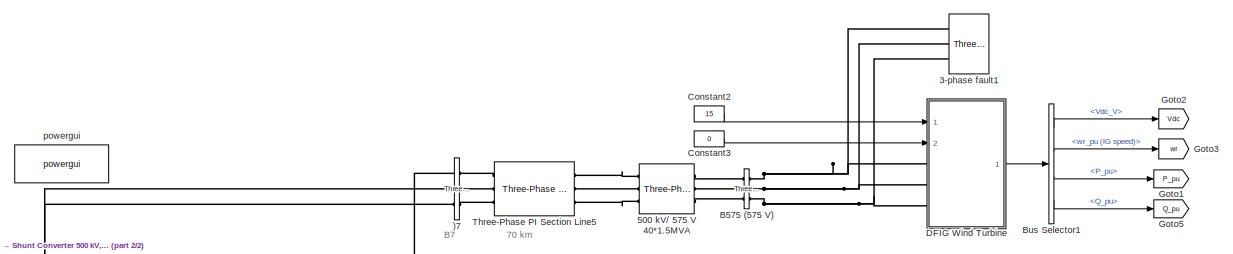
[diagram: root canvas - part 1/2, full width, top band]
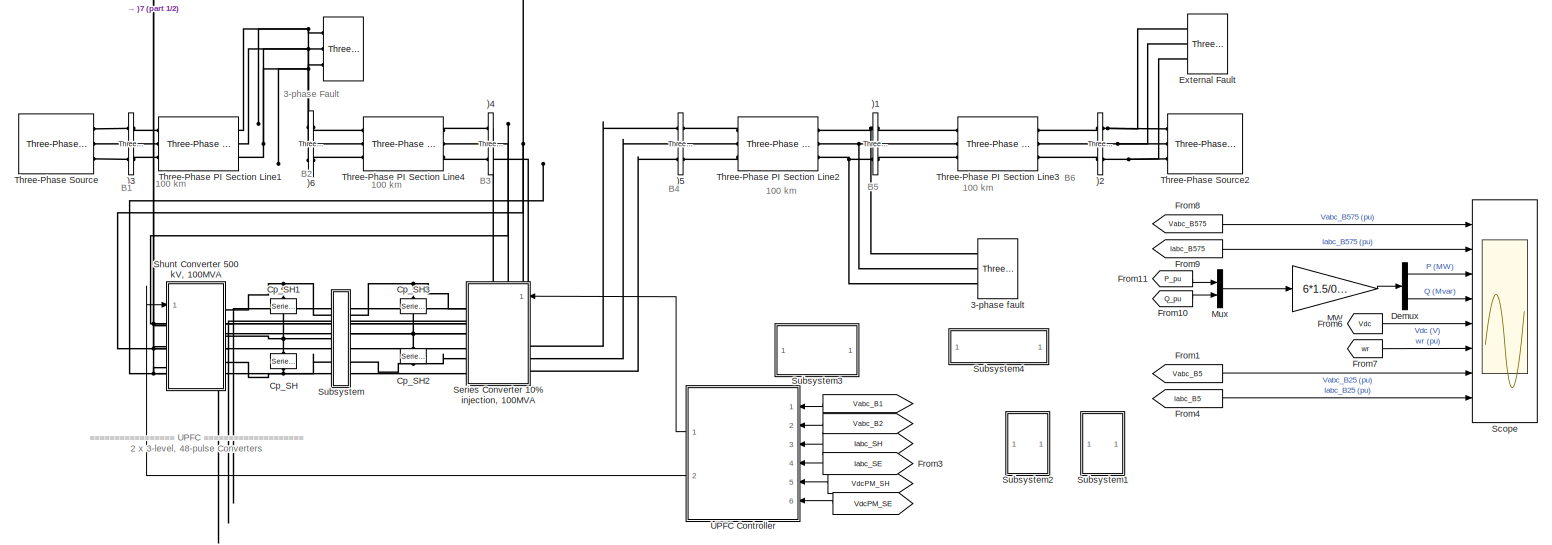
[diagram: root canvas - part 2/2, full width, middle band]
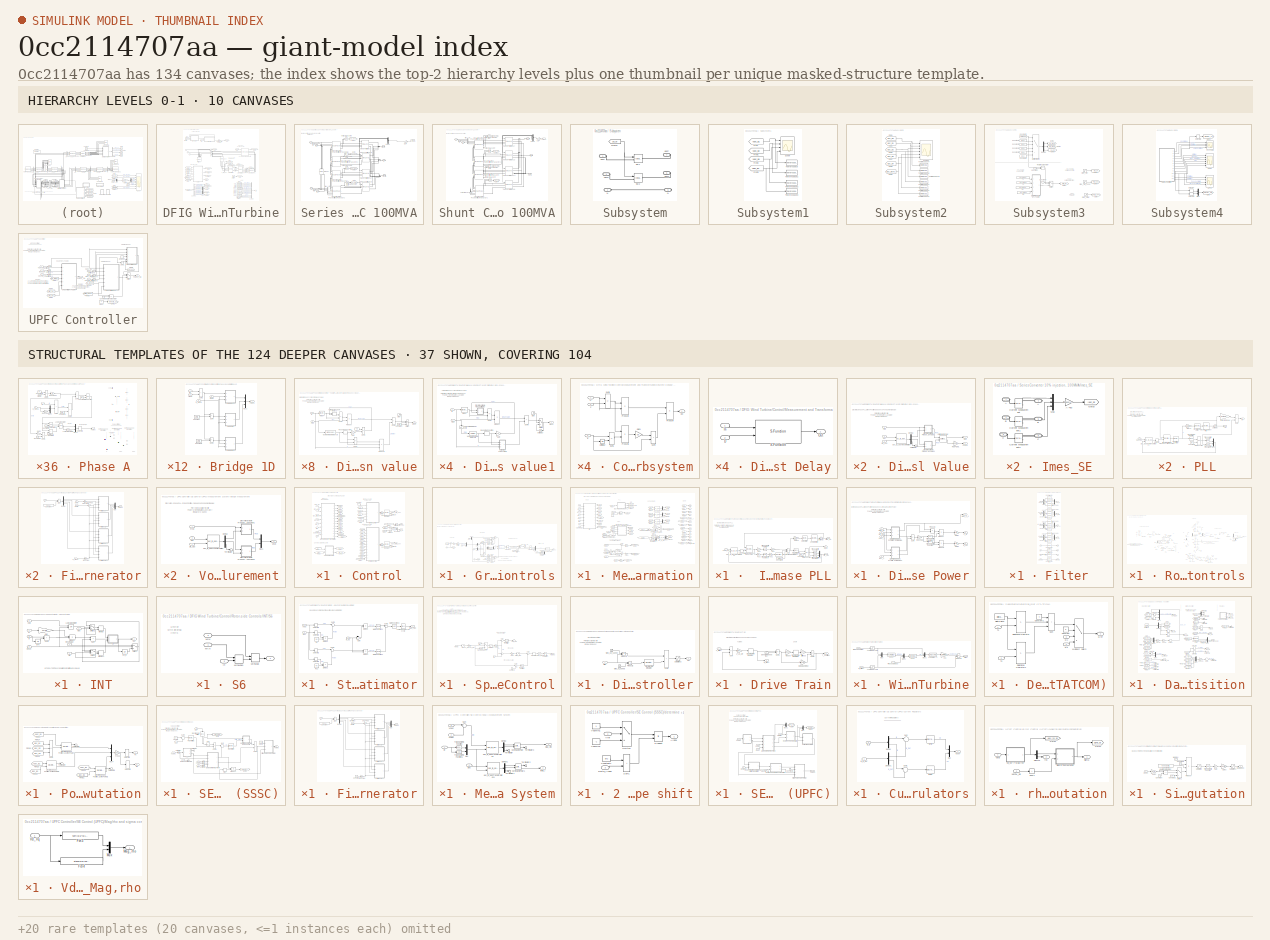
[diagram: thumbnail index - top-2 hierarchy levels (10 canvases) + 37 structural-template representatives of the remaining 124 canvases]
MODEL slx_0cc2114707aa
KIND model
CONFIG AbsTol = auto
CONFIG EnableMultiTasking = off
CONFIG FixedStep = auto
CONFIG MaxStep = auto
CONFIG MinStep = auto
CONFIG RelTol = 1e-3
CONFIG SampleTimeConstraint = Unconstrained
CONFIG SolverName = VariableStepAuto
CONFIG StartTime = 0.0
CONFIG StopTime = 0.5
BLOCK [From]  
  GotoTag = Vabc_B1
  NameLocation = top
  TagVisibility = global
BLOCK [From]   
  GotoTag = Iabc_SH
  NameLocation = top
  TagVisibility = global
BLOCK [From]    
  GotoTag = Vabc_B2
  NameLocation = top
  TagVisibility = global
BLOCK [Reference]       REF=spsThreePhaseFaultLib/Three-Phase Fault
  Ports = [0, 0, 0, 0, 0, 3]
  SourceBlock = spsThreePhaseFaultLib/Three-Phase Fault
  SourceProductBaseCode = PS
  SourceType = Three-Phase Fault
BLOCK [From]      
  GotoTag = VdcPM_SH
  NameLocation = top
  TagVisibility = global
BLOCK [From]        
  GotoTag = VdcPM_SE
  NameLocation = top
  TagVisibility = global
BLOCK [Reference]   External Fault  REF=spsThreePhaseFaultLib/Three-Phase Fault
  Ports = [0, 0, 0, 0, 0, 3]
  SourceBlock = spsThreePhaseFaultLib/Three-Phase Fault
  SourceProductBaseCode = PS
  SourceType = Three-Phase Fault
BLOCK [Reference] )1  REF=spsThreePhaseVIMeasurementLib/Three-Phase
V-I Measurement
  Ports = [0, 0, 0, 0, 0, 3, 3]
  SourceBlock = spsThreePhaseVIMeasurementLib/Three-Phase\nV-I Measurement
  SourceProductBaseCode = PS
  SourceType = Three-Phase VI Measurement
BLOCK [Reference] )2  REF=spsThreePhaseVIMeasurementLib/Three-Phase
V-I Measurement
  Ports = [0, 0, 0, 0, 0, 3, 3]
  SourceBlock = spsThreePhaseVIMeasurementLib/Three-Phase\nV-I Measurement
  SourceProductBaseCode = PS
  SourceType = Three-Phase VI Measurement
BLOCK [Reference] )3  REF=spsThreePhaseVIMeasurementLib/Three-Phase
V-I Measurement
  Ports = [0, 0, 0, 0, 0, 3, 3]
  SourceBlock = spsThreePhaseVIMeasurementLib/Three-Phase\nV-I Measurement
  SourceProductBaseCode = PS
  SourceType = Three-Phase VI Measurement
BLOCK [Reference] )4  REF=spsThreePhaseVIMeasurementLib/Three-Phase
V-I Measurement
  Ports = [0, 0, 0, 0, 0, 3, 3]
  SourceBlock = spsThreePhaseVIMeasurementLib/Three-Phase\nV-I Measurement
  SourceProductBaseCode = PS
  SourceType = Three-Phase VI Measurement
BLOCK [Reference] )5  REF=spsThreePhaseVIMeasurementLib/Three-Phase
V-I Measurement
  Ports = [0, 0, 0, 0, 0, 3, 3]
  SourceBlock = spsThreePhaseVIMeasurementLib/Three-Phase\nV-I Measurement
  SourceProductBaseCode = PS
  SourceType = Three-Phase VI Measurement
BLOCK [Reference] )6  REF=spsThreePhaseVIMeasurementLib/Three-Phase
V-I Measurement
  Ports = [0, 0, 0, 0, 0, 3, 3]
  SourceBlock = spsThreePhaseVIMeasurementLib/Three-Phase\nV-I Measurement
  SourceProductBaseCode = PS
  SourceType = Three-Phase VI Measurement
BLOCK [Reference] )7  REF=spsThreePhaseVIMeasurementLib/Three-Phase
V-I Measurement
  Ports = [0, 0, 0, 0, 0, 3, 3]
  SourceBlock = spsThreePhaseVIMeasurementLib/Three-Phase\nV-I Measurement
  SourceProductBaseCode = PS
  SourceType = Three-Phase VI Measurement
BLOCK [Reference] 3-phase fault  REF=spsThreePhaseFaultLib/Three-Phase Fault
  Ports = [0, 0, 0, 0, 0, 3]
  SourceBlock = spsThreePhaseFaultLib/Three-Phase Fault
  SourceProductBaseCode = PS
  SourceType = Three-Phase Fault
BLOCK [Reference] 3-phase fault1  REF=spsThreePhaseFaultLib/Three-Phase Fault
  Ports = [0, 0, 0, 0, 0, 3]
  SourceBlock = spsThreePhaseFaultLib/Three-Phase Fault
  SourceProductBaseCode = PS
  SourceType = Three-Phase Fault
BLOCK [Reference] 500 kV// 575 V 40*1.5MVA  REF=spsThreePhaseTransformerTwoWindingsLib/Three-Phase
Transformer
(Two Windings)
  AttributesFormatString = \n
  Ports = [0, 0, 0, 0, 0, 3, 3]
  SourceBlock = spsThreePhaseTransformerTwoWindingsLib/Three-Phase\nTransformer\n(Two Windings)
  SourceProductBaseCode = PS
  SourceType = Three-Phase Transformer (Two Windings)
BLOCK [Reference] B575 (575 V)  REF=spsThreePhaseVIMeasurementLib/Three-Phase
V-I Measurement
  Ports = [0, 0, 0, 0, 0, 3, 3]
  SourceBlock = spsThreePhaseVIMeasurementLib/Three-Phase\nV-I Measurement
  SourceProductBaseCode = PS
  SourceType = Three-Phase VI Measurement
BLOCK [BusSelector] Bus Selector1
  OutputSignals = Vdc_V,wr_pu (IG speed),PQ_pu.P_pu,PQ_pu.Q_pu
  Ports = [1, 4]
BLOCK [Constant] Constant2
  Value = 15
BLOCK [Constant] Constant3
  Value = 0
BLOCK [Reference] Cp_SH  REF=spsSeriesRLCBranchLib/Series RLC Branch
  AttributesFormatString = \n
  NameLocation = left
  Ports = [0, 0, 0, 0, 0, 1, 1]
  SourceBlock = spsSeriesRLCBranchLib/Series RLC Branch
  SourceProductBaseCode = PS
  SourceType = Series RLC Branch
BLOCK [Reference] Cp_SH1  REF=spsSeriesRLCBranchLib/Series RLC Branch
  AttributesFormatString = \n
  NameLocation = left
  Ports = [0, 0, 0, 0, 0, 1, 1]
  SourceBlock = spsSeriesRLCBranchLib/Series RLC Branch
  SourceProductBaseCode = PS
  SourceType = Series RLC Branch
BLOCK [Reference] Cp_SH2  REF=spsSeriesRLCBranchLib/Series RLC Branch
  AttributesFormatString = \n
  NameLocation = left
  Ports = [0, 0, 0, 0, 0, 1, 1]
  SourceBlock = spsSeriesRLCBranchLib/Series RLC Branch
  SourceProductBaseCode = PS
  SourceType = Series RLC Branch
BLOCK [Reference] Cp_SH3  REF=spsSeriesRLCBranchLib/Series RLC Branch
  AttributesFormatString = \n
  NameLocation = left
  Ports = [0, 0, 0, 0, 0, 1, 1]
  SourceBlock = spsSeriesRLCBranchLib/Series RLC Branch
  SourceProductBaseCode = PS
  SourceType = Series RLC Branch
BLOCK [SubSystem] DFIG Wind Turbine
  LoadFcn = %find_system(gcs,'FollowLinks', 'on', 'LookUnderMasks', 'all');
  Ports = [2, 1, 0, 0, 0, 3]
  RequestExecContextInheritance = off
BLOCK [PMIOPort] DFIG Wind Turbine/A
  Side = Left
  Tag = PMCPort
BLOCK [Reference] DFIG Wind Turbine/Asynchronous Machine pu Units  REF=spsAsynchronousMachinepuUnitsLib/Asynchronous Machine
pu Units
  Ports = [1, 1, 0, 0, 0, 3, 3]
  SourceBlock = spsAsynchronousMachinepuUnitsLib/Asynchronous Machine\npu Units
  SourceProductBaseCode = PS
  SourceType = Asynchronous Machine
BLOCK [PMIOPort] DFIG Wind Turbine/B
  Port = 2
  Side = Left
  Tag = PMCPort
BLOCK [Reference] DFIG Wind Turbine/B1  REF=spsThreePhaseVIMeasurementLib/Three-Phase
V-I Measurement
  Ports = [0, 1, 0, 0, 0, 3, 3]
  SourceBlock = spsThreePhaseVIMeasurementLib/Three-Phase\nV-I Measurement
  SourceProductBaseCode = PS
  SourceType = Three-Phase VI Measurement
BLOCK [Reference] DFIG Wind Turbine/B_grid_conv  REF=spsThreePhaseVIMeasurementLib/Three-Phase
V-I Measurement
  Ports = [0, 2, 0, 0, 0, 3, 3]
  SourceBlock = spsThreePhaseVIMeasurementLib/Three-Phase\nV-I Measurement
  SourceProductBaseCode = PS
  SourceType = Three-Phase VI Measurement
BLOCK [Reference] DFIG Wind Turbine/B_rotor_conv  REF=spsThreePhaseVIMeasurementLib/Three-Phase
V-I Measurement
  Ports = [0, 1, 0, 0, 0, 3, 3]
  SourceBlock = spsThreePhaseVIMeasurementLib/Three-Phase\nV-I Measurement
  SourceProductBaseCode = PS
  SourceType = Three-Phase VI Measurement
BLOCK [BusCreator] DFIG Wind Turbine/Bus Creator
  DisplayOption = bar
  InheritFromInputs = on
  Inputs = 13
  Ports = [13, 1]
BLOCK [BusSelector] DFIG Wind Turbine/Bus Selector
  OutputSignals = Mechanical.Rotor speed (wm),Mechanical.Rotor angle thetam (rad),Stator measurements.Stator current is_a (pu),Stator measurements.Stator current is_b (pu),Stator measurements.Stator current is_c (pu),Rotor measurements.Rotor current ir_a (pu),Rotor measurements.Rotor current ir_b (pu),Rotor measurements.Rotor current ir_c (pu),Mechanical.Electromagnetic torque Te (pu)
  Ports = [1, 9]
BLOCK [PMIOPort] DFIG Wind Turbine/C
  Port = 3
  Side = Left
  Tag = PMCPort
BLOCK [Reference] DFIG Wind Turbine/C1  REF=spsSeriesRLCBranchLib/Series RLC Branch
  NameLocation = left
  Ports = [0, 0, 0, 0, 0, 1, 1]
  SourceBlock = spsSeriesRLCBranchLib/Series RLC Branch
  SourceProductBaseCode = PS
  SourceType = Series RLC Branch
BLOCK [Reference] DFIG Wind Turbine/Choke   REF=spsThreePhaseSeriesRLCBranchLib/Three-Phase
Series RLC Branch
  AttributesFormatString = \n
  NameLocation = left
  Ports = [0, 0, 0, 0, 0, 3, 3]
  SourceBlock = spsThreePhaseSeriesRLCBranchLib/Three-Phase\nSeries RLC Branch
  SourceProductBaseCode = PS
  SourceType = Three-Phase Series RLC Branch
BLOCK [SubSystem] DFIG Wind Turbine/Control
  Ports = [8, 4]
  RequestExecContextInheritance = off
BLOCK [BusCreator] DFIG Wind Turbine/Control/Bus Creator
  DisplayOption = bar
  InheritFromInputs = on
  Inputs = 2
  Ports = [2, 1]
BLOCK [Constant] DFIG Wind Turbine/Control/Constant1
  Value = 0
BLOCK [Reference] DFIG Wind Turbine/Control/Discrete 3-phase PWM Generator  REF=powerlib_extras/Discrete 
Control Blocks/Discrete 3-phase
PWM Generator
  Ports = [1, 2]
  SourceBlock = powerlib_extras/Discrete \nControl Blocks/Discrete 3-phase\nPWM Generator
  SourceProductBaseCode = PS
  SourceType = Discrete 3-phase PWM Generator (2- or 3-level)
BLOCK [Reference] DFIG Wind Turbine/Control/Discrete 3-phase PWM Generator   REF=powerlib_extras/Discrete 
Control Blocks/Discrete 3-phase
PWM Generator
  Ports = [1, 2]
  SourceBlock = powerlib_extras/Discrete \nControl Blocks/Discrete 3-phase\nPWM Generator
  SourceProductBaseCode = PS
  SourceType = Discrete 3-phase PWM Generator (2- or 3-level)
BLOCK [From] DFIG Wind Turbine/Control/From1
  CloseFcn = tagdialog Close
  GotoTag = Idq_gc
BLOCK [From] DFIG Wind Turbine/Control/From10
  CloseFcn = tagdialog Close
  GotoTag = r_angle_transform
BLOCK [From] DFIG Wind Turbine/Control/From11
  CloseFcn = tagdialog Close
  GotoTag = Pitch_deg
BLOCK [From] DFIG Wind Turbine/Control/From12
  CloseFcn = tagdialog Close
  GotoTag = wr
BLOCK [From] DFIG Wind Turbine/Control/From13
  CloseFcn = tagdialog Close
  GotoTag = Qmeas
BLOCK [From] DFIG Wind Turbine/Control/From14
  CloseFcn = tagdialog Close
  GotoTag = Vmeas
BLOCK [From] DFIG Wind Turbine/Control/From16
  CloseFcn = tagdialog Close
  GotoTag = Pmeas
BLOCK [From] DFIG Wind Turbine/Control/From17
  CloseFcn = tagdialog Close
  GotoTag = Qmeas
BLOCK [From] DFIG Wind Turbine/Control/From18
  CloseFcn = tagdialog Close
  GotoTag = Vdqs
BLOCK [From] DFIG Wind Turbine/Control/From2
  CloseFcn = tagdialog Close
  GotoTag = Vdc_meas_V
BLOCK [From] DFIG Wind Turbine/Control/From20
  CloseFcn = tagdialog Close
  GotoTag = Idqr
BLOCK [From] DFIG Wind Turbine/Control/From21
  CloseFcn = tagdialog Close
  GotoTag = Idqs
BLOCK [From] DFIG Wind Turbine/Control/From22
  CloseFcn = tagdialog Close
  GotoTag = w
BLOCK [From] DFIG Wind Turbine/Control/From23
  CloseFcn = tagdialog Close
  GotoTag = Pmeas
BLOCK [From] DFIG Wind Turbine/Control/From3
  CloseFcn = tagdialog Close
  GotoTag = Vdc_meas_V
BLOCK [From] DFIG Wind Turbine/Control/From4
  CloseFcn = tagdialog Close
  GotoTag = Vdqs
BLOCK [From] DFIG Wind Turbine/Control/From5
  CloseFcn = tagdialog Close
  GotoTag = w
BLOCK [From] DFIG Wind Turbine/Control/From6
  CloseFcn = tagdialog Close
  GotoTag = wr
BLOCK [From] DFIG Wind Turbine/Control/From7
  CloseFcn = tagdialog Close
  GotoTag = Tem_cmd
BLOCK [From] DFIG Wind Turbine/Control/From8
  CloseFcn = tagdialog Close
  GotoTag = Qref
BLOCK [From] DFIG Wind Turbine/Control/From9
  CloseFcn = tagdialog Close
  GotoTag = Theta_PLL
BLOCK [Goto] DFIG Wind Turbine/Control/Goto1
  GotoTag = Theta_PLL
BLOCK [Goto] DFIG Wind Turbine/Control/Goto10
  GotoTag = Idq_gc
BLOCK [Goto] DFIG Wind Turbine/Control/Goto11
  GotoTag = Idqs
BLOCK [Goto] DFIG Wind Turbine/Control/Goto12
  GotoTag = Idqr
BLOCK [Goto] DFIG Wind Turbine/Control/Goto13
  GotoTag = w
BLOCK [Goto] DFIG Wind Turbine/Control/Goto14
  GotoTag = Vmeas
BLOCK [Goto] DFIG Wind Turbine/Control/Goto15
  GotoTag = Pmeas
BLOCK [Goto] DFIG Wind Turbine/Control/Goto16
  GotoTag = Pitch_deg
BLOCK [Goto] DFIG Wind Turbine/Control/Goto17
  GotoTag = Qmeas
BLOCK [Goto] DFIG Wind Turbine/Control/Goto2
  GotoTag = Vdc_meas_V
BLOCK [Goto] DFIG Wind Turbine/Control/Goto4
  GotoTag = wr
BLOCK [Goto] DFIG Wind Turbine/Control/Goto5
  GotoTag = Tem_cmd
BLOCK [Goto] DFIG Wind Turbine/Control/Goto6
  GotoTag = Qref
BLOCK [Goto] DFIG Wind Turbine/Control/Goto7
  GotoTag = r_angle_transform
BLOCK [Goto] DFIG Wind Turbine/Control/Goto9
  GotoTag = Vdqs
BLOCK [SubSystem] DFIG Wind Turbine/Control/Grid-side Controls
  Ports = [6, 1]
  RequestExecContextInheritance = off
BLOCK [Gain] DFIG Wind Turbine/Control/Grid-side Controls/->pu
  Gain = 1/Vdc_nom
BLOCK [Saturate] DFIG Wind Turbine/Control/Grid-side Controls/0-Mod_index_max_grid
  LowerLimit = 0
  NameLocation = top
  UpperLimit = Mod_index_max_grid
BLOCK [Saturate] DFIG Wind Turbine/Control/Grid-side Controls/Avoid division by zero
  LowerLimit = 1e-6
  UpperLimit = inf
BLOCK [Reference] DFIG Wind Turbine/Control/Grid-side Controls/Cartesian to Polar1  REF=simulink_extras/Transformations/Cartesian to
Polar
  Ports = [2, 2]
  SourceBlock = simulink_extras/Transformations/Cartesian to\nPolar
  SourceProductBaseCode = SL
  SourceType = Cart2Polar
BLOCK [Constant] DFIG Wind Turbine/Control/Grid-side Controls/Constant1
  Value = L_RL
BLOCK [Constant] DFIG Wind Turbine/Control/Grid-side Controls/Constant2
  Value = L_RL
BLOCK [Constant] DFIG Wind Turbine/Control/Grid-side Controls/Constant3
  Value = R_RL
BLOCK [Constant] DFIG Wind Turbine/Control/Grid-side Controls/Constant4
  Value = R_RL
BLOCK [Demux] DFIG Wind Turbine/Control/Grid-side Controls/Demux
  DisplayOption = none
  Outputs = 2
  Ports = [1, 2]
BLOCK [Demux] DFIG Wind Turbine/Control/Grid-side Controls/Demux1
  DisplayOption = none
  Outputs = 2
  Ports = [1, 2]
BLOCK [Demux] DFIG Wind Turbine/Control/Grid-side Controls/Demux2
  DisplayOption = none
  Outputs = 2
  Ports = [1, 2]
BLOCK [Demux] DFIG Wind Turbine/Control/Grid-side Controls/Demux3
  DisplayOption = none
  Outputs = 2
  Ports = [1, 2]
BLOCK [Reference] DFIG Wind Turbine/Control/Grid-side Controls/Discrete PI Controller  REF=powerlib_extras/Discrete 
Control Blocks/Discrete
PI Controller
  Ports = [1, 1]
  SourceBlock = powerlib_extras/Discrete \nControl Blocks/Discrete\nPI Controller
  SourceProductBaseCode = PS
  SourceType = Discrete PI Controller
BLOCK [Reference] DFIG Wind Turbine/Control/Grid-side Controls/Discrete PI Controller1  REF=powerlib_extras/Discrete 
Control Blocks/Discrete
PI Controller
  Ports = [1, 1]
  SourceBlock = powerlib_extras/Discrete \nControl Blocks/Discrete\nPI Controller
  SourceProductBaseCode = PS
  SourceType = Discrete PI Controller
BLOCK [From] DFIG Wind Turbine/Control/Grid-side Controls/From10
  CloseFcn = tagdialog Close
  GotoTag = id_ref
BLOCK [From] DFIG Wind Turbine/Control/Grid-side Controls/From2
  CloseFcn = tagdialog Close
  GotoTag = w
BLOCK [From] DFIG Wind Turbine/Control/Grid-side Controls/From3
  CloseFcn = tagdialog Close
  GotoTag = iq_ref
BLOCK [From] DFIG Wind Turbine/Control/Grid-side Controls/From4
  CloseFcn = tagdialog Close
  GotoTag = iq_ref
BLOCK [From] DFIG Wind Turbine/Control/Grid-side Controls/From5
  CloseFcn = tagdialog Close
  GotoTag = w
BLOCK [From] DFIG Wind Turbine/Control/Grid-side Controls/From6
  CloseFcn = tagdialog Close
  GotoTag = id_ref
BLOCK [From] DFIG Wind Turbine/Control/Grid-side Controls/From7
  CloseFcn = tagdialog Close
  GotoTag = Vdc
BLOCK [Goto] DFIG Wind Turbine/Control/Grid-side Controls/Goto2
  GotoTag = iq_ref
BLOCK [Goto] DFIG Wind Turbine/Control/Grid-side Controls/Goto3
  GotoTag = id_ref
BLOCK [Goto] DFIG Wind Turbine/Control/Grid-side Controls/Goto4
  GotoTag = w
BLOCK [Goto] DFIG Wind Turbine/Control/Grid-side Controls/Goto5
  GotoTag = Vdc
BLOCK [Inport] DFIG Wind Turbine/Control/Grid-side Controls/Idq_gc
  Port = 2
BLOCK [Inport] DFIG Wind Turbine/Control/Grid-side Controls/Iq_ref
BLOCK [Constant] DFIG Wind Turbine/Control/Grid-side Controls/K
  Value = Vnom*2*sqrt(2/3)
BLOCK [Mux] DFIG Wind Turbine/Control/Grid-side Controls/Mux
  DisplayOption = bar
  Inputs = 2
  Ports = [2, 1]
BLOCK [Mux] DFIG Wind Turbine/Control/Grid-side Controls/Mux2
  DisplayOption = bar
  Inputs = 2
  Ports = [2, 1]
BLOCK [Mux] DFIG Wind Turbine/Control/Grid-side Controls/Mux4
  DisplayOption = bar
  Inputs = 3
  Ports = [3, 1]
BLOCK [Mux] DFIG Wind Turbine/Control/Grid-side Controls/Mux5
  DisplayOption = bar
  Inputs = 2
  Ports = [2, 1]
BLOCK [Reference] DFIG Wind Turbine/Control/Grid-side Controls/Polar to Cartesian  REF=simulink_extras/Transformations/Polar to
Cartesian
  Ports = [2, 2]
  SourceBlock = simulink_extras/Transformations/Polar to\nCartesian
  SourceProductBaseCode = SL
  SourceType = Polar2Cart
BLOCK [Product] DFIG Wind Turbine/Control/Grid-side Controls/Product
  InputSameDT = on
  Inputs = 3
  OutDataTypeStr = Inherit: Same as first input
  Ports = [3, 1]
  SaturateOnIntegerOverflow = on
BLOCK [Product] DFIG Wind Turbine/Control/Grid-side Controls/Product1
  InputSameDT = on
  Inputs = 3
  OutDataTypeStr = Inherit: Same as first input
  Ports = [3, 1]
  SaturateOnIntegerOverflow = on
BLOCK [Product] DFIG Wind Turbine/Control/Grid-side Controls/Product2
  InputSameDT = on
  OutDataTypeStr = Inherit: Same as first input
  Ports = [2, 1]
  SaturateOnIntegerOverflow = on
BLOCK [Product] DFIG Wind Turbine/Control/Grid-side Controls/Product3
  InputSameDT = on
  OutDataTypeStr = Inherit: Same as first input
  Ports = [2, 1]
  SaturateOnIntegerOverflow = on
BLOCK [Product] DFIG Wind Turbine/Control/Grid-side Controls/Product4
  InputSameDT = on
  Inputs = **/
  OutDataTypeStr = Inherit: Same as first input
  Ports = [3, 1]
  SaturateOnIntegerOverflow = on
BLOCK [Sum] DFIG Wind Turbine/Control/Grid-side Controls/Sum1
  InputSameDT = on
  Inputs = +-
  OutDataTypeStr = Inherit: Same as first input
  Ports = [2, 1]
  SaturateOnIntegerOverflow = on
BLOCK [Sum] DFIG Wind Turbine/Control/Grid-side Controls/Sum2
  InputSameDT = on
  Inputs = -+|
  OutDataTypeStr = Inherit: Same as first input
  Ports = [2, 1]
  SaturateOnIntegerOverflow = on
BLOCK [Sum] DFIG Wind Turbine/Control/Grid-side Controls/Sum3
  InputSameDT = on
  Inputs = ||++-
  OutDataTypeStr = Inherit: Same as first input
  Ports = [3, 1]
  SaturateOnIntegerOverflow = on
BLOCK [Sum] DFIG Wind Turbine/Control/Grid-side Controls/Sum4
  InputSameDT = on
  Inputs = |+-
  OutDataTypeStr = Inherit: Same as first input
  Ports = [2, 1]
  SaturateOnIntegerOverflow = on
BLOCK [Sum] DFIG Wind Turbine/Control/Grid-side Controls/Sum5
  InputSameDT = on
  Inputs = |--+
  OutDataTypeStr = Inherit: Same as first input
  Ports = [3, 1]
  SaturateOnIntegerOverflow = on
BLOCK [Sum] DFIG Wind Turbine/Control/Grid-side Controls/Sum6
  InputSameDT = on
  Inputs = |-+
  OutDataTypeStr = Inherit: Same as first input
  Ports = [2, 1]
  SaturateOnIntegerOverflow = on
BLOCK [Sum] DFIG Wind Turbine/Control/Grid-side Controls/Sum7
  InputSameDT = on
  Inputs = |+-
  OutDataTypeStr = Inherit: Same as first input
  Ports = [2, 1]
  SaturateOnIntegerOverflow = on
BLOCK [Inport] DFIG Wind Turbine/Control/Grid-side Controls/Theta_PLL
  Port = 6
BLOCK [Trigonometry] DFIG Wind Turbine/Control/Grid-side Controls/Trigonometric Function2
  Ports = [1, 1]
BLOCK [Trigonometry] DFIG Wind Turbine/Control/Grid-side Controls/Trigonometric Function3
  Operator = cos
  Ports = [1, 1]
BLOCK [Outport] DFIG Wind Turbine/Control/Grid-side Controls/Uctrl_grid_conv
  VectorParamsAs1DForOutWhenUnconnected = off
BLOCK [Constant] DFIG Wind Turbine/Control/Grid-side Controls/V0
  Value = 0
BLOCK [Inport] DFIG Wind Turbine/Control/Grid-side Controls/Vdc
  Port = 5
BLOCK [Constant] DFIG Wind Turbine/Control/Grid-side Controls/Vdc_ref (V)
  NameLocation = top
  Value = Vdc_nom
BLOCK [Inport] DFIG Wind Turbine/Control/Grid-side Controls/Vdqs
  Port = 4
BLOCK [Reference] DFIG Wind Turbine/Control/Grid-side Controls/dq0_to_abc Transformation  REF=powerlib_extras/Measurements/dq0_to_abc
Transformation
  Ports = [2, 1]
  SourceBlock = powerlib_extras/Measurements/dq0_to_abc\nTransformation
  SourceProductBaseCode = PS
  SourceType = dq0 to abc Transformation
BLOCK [Inport] DFIG Wind Turbine/Control/Grid-side Controls/w
  Port = 3
BLOCK [Inport] DFIG Wind Turbine/Control/Iabc_grid_conv
  Port = 3
BLOCK [Inport] DFIG Wind Turbine/Control/Iabc_rotor
  Port = 4
BLOCK [Inport] DFIG Wind Turbine/Control/Iabc_stator
  Port = 2
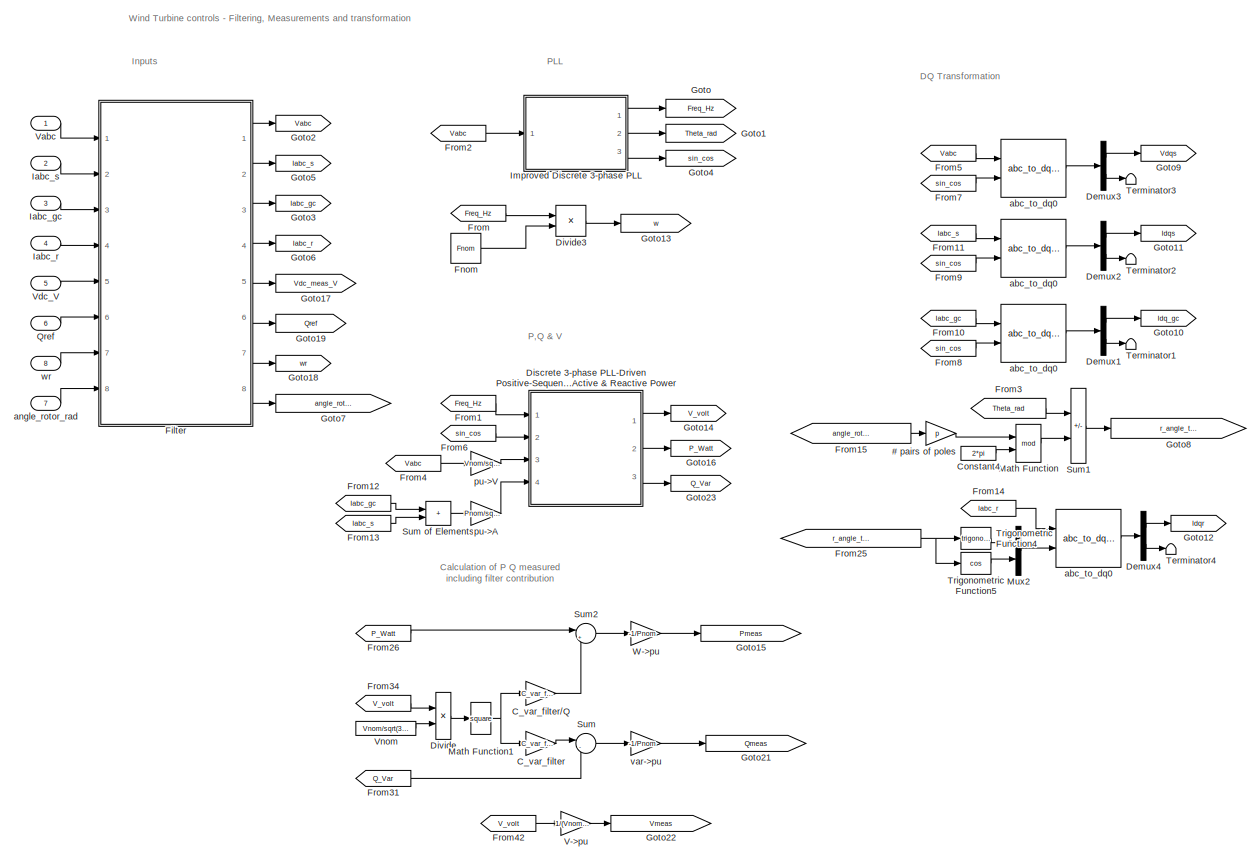
[diagram: DFIG Wind Turbine/Control/Measurement and Transformation - part 1/2, most of the canvas]
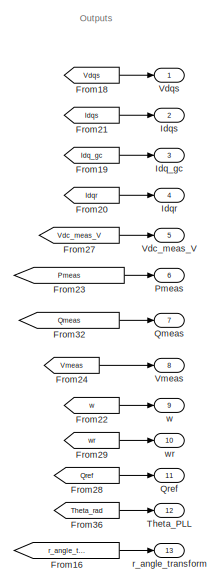
[diagram: DFIG Wind Turbine/Control/Measurement and Transformation - part 2/2, middle right region]
BLOCK [SubSystem] DFIG Wind Turbine/Control/Measurement and Transformation
  Ports = [8, 13]
  RequestExecContextInheritance = off
BLOCK [Reference] DFIG Wind Turbine/Control/Measurement and Transformation/   abc_to_dq0      REF=powerlib_extras/Measurements/abc_to_dq0
Transformation
  Ports = [2, 1]
  SourceBlock = powerlib_extras/Measurements/abc_to_dq0\nTransformation
  SourceProductBaseCode = PS
  SourceType = abc to dq0 Transformation
BLOCK [SubSystem] DFIG Wind Turbine/Control/Measurement and Transformation/ Improved Discrete 3-phase PLL
  OpenFcn = power_openblockproxy();
  Ports = [1, 3]
  RequestExecContextInheritance = off
BLOCK [Reference] DFIG Wind Turbine/Control/Measurement and Transformation/ Improved Discrete 3-phase PLL/2nd-Order Filter  REF=powerlib_extras/Discrete 
Control Blocks/Discrete 
2nd-Order
Filter
  Ports = [1, 1]
  SourceBlock = powerlib_extras/Discrete \nControl Blocks/Discrete \n2nd-Order\nFilter
  SourceProductBaseCode = PS
  SourceType = Discrete 2nd-Order Filter
BLOCK [Constant] DFIG Wind Turbine/Control/Measurement and Transformation/ Improved Discrete 3-phase PLL/Constant1
  NameLocation = top
  Value = 2*pi*Finit
BLOCK [Constant] DFIG Wind Turbine/Control/Measurement and Transformation/ Improved Discrete 3-phase PLL/Constant4
  NameLocation = top
  Value = 2*pi
BLOCK [DiscreteIntegrator] DFIG Wind Turbine/Control/Measurement and Transformation/ Improved Discrete 3-phase PLL/Discrete-Time Integrator
  ICPrevOutput = DiscIntNeverNeededParam
  ICPrevScaledInput = DiscIntNeverNeededParam
  Ports = [1, 1]
  SampleTime = Ts
BLOCK [DiscreteIntegrator] DFIG Wind Turbine/Control/Measurement and Transformation/ Improved Discrete 3-phase PLL/Discrete-Time Integrator1
  ICPrevOutput = DiscIntNeverNeededParam
  ICPrevScaledInput = DiscIntNeverNeededParam
  LimitOutput = on
  LowerSaturationLimit = -2*pi*5
  Ports = [1, 1]
  SampleTime = Ts
  UpperSaturationLimit = 2*pi*5
  gainval = 1
BLOCK [Outport] DFIG Wind Turbine/Control/Measurement and Transformation/ Improved Discrete 3-phase PLL/Freq_Hz
  VectorParamsAs1DForOutWhenUnconnected = off
BLOCK [Gain] DFIG Wind Turbine/Control/Measurement and Transformation/ Improved Discrete 3-phase PLL/Gain10
  Gain = 1/2/pi
  OutDataTypeStr = Inherit: Same as input
  ParamDataTypeStr = Inherit: Same as input
  SaturateOnIntegerOverflow = on
BLOCK [Gain] DFIG Wind Turbine/Control/Measurement and Transformation/ Improved Discrete 3-phase PLL/Kp1
  Gain = Kp2
  OutDataTypeStr = Inherit: Same as input
  ParamDataTypeStr = Inherit: Same as input
  SaturateOnIntegerOverflow = on
BLOCK [Gain] DFIG Wind Turbine/Control/Measurement and Transformation/ Improved Discrete 3-phase PLL/Kp2
  Gain = Ki2
  OutDataTypeStr = Inherit: Same as input
  ParamDataTypeStr = Inherit: Same as input
  SaturateOnIntegerOverflow = on
BLOCK [Gain] DFIG Wind Turbine/Control/Measurement and Transformation/ Improved Discrete 3-phase PLL/Kp3
  Gain = Ki1
  OutDataTypeStr = Inherit: Same as input
  ParamDataTypeStr = Inherit: Same as input
  SaturateOnIntegerOverflow = on
BLOCK [Gain] DFIG Wind Turbine/Control/Measurement and Transformation/ Improved Discrete 3-phase PLL/Kp4
  Gain = Kp1
  OutDataTypeStr = Inherit: Same as input
  ParamDataTypeStr = Inherit: Same as input
  SaturateOnIntegerOverflow = on
BLOCK [Math] DFIG Wind Turbine/Control/Measurement and Transformation/ Improved Discrete 3-phase PLL/Math Function
  Operator = mod
  Ports = [2, 1]
  SignedPower = on
BLOCK [Mux] DFIG Wind Turbine/Control/Measurement and Transformation/ Improved Discrete 3-phase PLL/Mux2
  DisplayOption = bar
  Inputs = 2
  Ports = [2, 1]
BLOCK [Reference] DFIG Wind Turbine/Control/Measurement and Transformation/ Improved Discrete 3-phase PLL/Rate Limiter  REF=powerlib_extras/Discrete 
Control Blocks/Discrete
Rate Limiter
  Ports = [1, 1]
  SourceBlock = powerlib_extras/Discrete \nControl Blocks/Discrete\nRate Limiter
  SourceProductBaseCode = PS
  SourceType = Discrete Rate Limiter
BLOCK [Selector] DFIG Wind Turbine/Control/Measurement and Transformation/ Improved Discrete 3-phase PLL/Selector
  IndexOptions = Index vector (dialog)
  Indices = 2
  InputPortWidth = 3
  OutputSizes = 1
  Ports = [1, 1]
BLOCK [Outport] DFIG Wind Turbine/Control/Measurement and Transformation/ Improved Discrete 3-phase PLL/Sin_Cos
  Port = 3
  VectorParamsAs1DForOutWhenUnconnected = off
BLOCK [Sum] DFIG Wind Turbine/Control/Measurement and Transformation/ Improved Discrete 3-phase PLL/Sum
  IconShape = rectangular
  Inputs = +++
  Ports = [3, 1]
BLOCK [Trigonometry] DFIG Wind Turbine/Control/Measurement and Transformation/ Improved Discrete 3-phase PLL/Trigonometric Function
  Ports = [1, 1]
BLOCK [Trigonometry] DFIG Wind Turbine/Control/Measurement and Transformation/ Improved Discrete 3-phase PLL/Trigonometric Function1
  Operator = atan
  Ports = [1, 1]
BLOCK [Trigonometry] DFIG Wind Turbine/Control/Measurement and Transformation/ Improved Discrete 3-phase PLL/Trigonometric Function2
  Operator = cos
  Ports = [1, 1]
BLOCK [Trigonometry] DFIG Wind Turbine/Control/Measurement and Transformation/ Improved Discrete 3-phase PLL/Trigonometric Function3
  Operator = atan
  Ports = [1, 1]
BLOCK [UnitDelay] DFIG Wind Turbine/Control/Measurement and Transformation/ Improved Discrete 3-phase PLL/Unit Delay
  HasFrameUpgradeWarning = on
  InitialCondition = Finit
  SampleTime = Ts
BLOCK [Inport] DFIG Wind Turbine/Control/Measurement and Transformation/ Improved Discrete 3-phase PLL/Vabc_pu
  PortDimensions = 3
BLOCK [Reference] DFIG Wind Turbine/Control/Measurement and Transformation/ Improved Discrete 3-phase PLL/Variable Frequency Mean value  REF=powerlib_extras/Discrete
Measurements/Discrete
Variable Frequency
Mean value
  Ports = [2, 1]
  SourceBlock = powerlib_extras/Discrete\nMeasurements/Discrete\nVariable Frequency\nMean value
  SourceProductBaseCode = PS
  SourceType = Discrete Variable-Frequency Mean Value
BLOCK [Reference] DFIG Wind Turbine/Control/Measurement and Transformation/ Improved Discrete 3-phase PLL/abc_to_dq0 Transformation  REF=powerlib_extras/Measurements/abc_to_dq0
Transformation
  Ports = [2, 1]
  SourceBlock = powerlib_extras/Measurements/abc_to_dq0\nTransformation
  SourceProductBaseCode = PS
  SourceType = abc to dq0 Transformation
BLOCK [Outport] DFIG Wind Turbine/Control/Measurement and Transformation/ Improved Discrete 3-phase PLL/wt_rad
  Port = 2
  VectorParamsAs1DForOutWhenUnconnected = off
BLOCK [Gain] DFIG Wind Turbine/Control/Measurement and Transformation/# pairs of poles
  Gain = p
  NameLocation = top
  OutDataTypeStr = Inherit: Same as input
  ParamDataTypeStr = Inherit: Same as input
  SaturateOnIntegerOverflow = on
BLOCK [Gain] DFIG Wind Turbine/Control/Measurement and Transformation/C_var_filter
  Gain = C_var_filter
  OutDataTypeStr = Inherit: Same as input
  ParamDataTypeStr = Inherit: Same as input
  SaturateOnIntegerOverflow = on
BLOCK [Gain] DFIG Wind Turbine/Control/Measurement and Transformation/C_var_filter//Q
  Gain = C_var_filter/Q_filter
  NameLocation = top
  OutDataTypeStr = Inherit: Same as input
  ParamDataTypeStr = Inherit: Same as input
  SaturateOnIntegerOverflow = on
BLOCK [Constant] DFIG Wind Turbine/Control/Measurement and Transformation/Constant4
  NameLocation = top
  Value = 2*pi
BLOCK [Demux] DFIG Wind Turbine/Control/Measurement and Transformation/Demux1
  DisplayOption = none
  Outputs = [2 1]
  Ports = [1, 2]
BLOCK [Demux] DFIG Wind Turbine/Control/Measurement and Transformation/Demux2
  DisplayOption = none
  Outputs = [2 1]
  Ports = [1, 2]
BLOCK [Demux] DFIG Wind Turbine/Control/Measurement and Transformation/Demux3
  DisplayOption = none
  Outputs = [2 1]
  Ports = [1, 2]
BLOCK [Demux] DFIG Wind Turbine/Control/Measurement and Transformation/Demux4
  DisplayOption = none
  Outputs = [2 1]
  Ports = [1, 2]
BLOCK [SubSystem] DFIG Wind Turbine/Control/Measurement and Transformation/Discrete 3-phase PLL-Driven Positive-Sequence Active & Reactive Power
  OpenFcn = power_openblockproxy();
  Ports = [4, 3]
  RequestExecContextInheritance = off
BLOCK [Gain] DFIG Wind Turbine/Control/Measurement and Transformation/Discrete 3-phase PLL-Driven Positive-Sequence Active & Reactive Power/Deg->Rad
  Gain = pi/180
  OutDataTypeStr = Inherit: Same as input
  ParamDataTypeStr = Inherit: Same as input
  SaturateOnIntegerOverflow = on
BLOCK [SubSystem] DFIG Wind Turbine/Control/Measurement and Transformation/Discrete 3-phase PLL-Driven Positive-Sequence Active & Reactive Power/Discrete 3-phase PLL-Driven Positive-Sequence Fundamental Value
  OpenFcn = power_openblockproxy();
  Ports = [3, 2]
  RequestExecContextInheritance = off
BLOCK [Reference] DFIG Wind Turbine/Control/Measurement and Transformation/Discrete 3-phase PLL-Driven Positive-Sequence Active & Reactive Power/Discrete 3-phase PLL-Driven Positive-Sequence Fundamental Value/Cartesian to Polar  REF=simulink_extras/Transformations/Cartesian to
Polar
  Ports = [2, 2]
  SourceBlock = simulink_extras/Transformations/Cartesian to\nPolar
  SourceProductBaseCode = SL
  SourceType = Cart2Polar
BLOCK [Demux] DFIG Wind Turbine/Control/Measurement and Transformation/Discrete 3-phase PLL-Driven Positive-Sequence Active & Reactive Power/Discrete 3-phase PLL-Driven Positive-Sequence Fundamental Value/Demux
  DisplayOption = none
  Outputs = 3
  Ports = [1, 3]
BLOCK [SubSystem] DFIG Wind Turbine/Control/Measurement and Transformation/Discrete 3-phase PLL-Driven Positive-Sequence Active & Reactive Power/Discrete 3-phase PLL-Driven Positive-Sequence Fundamental Value/Discrete Variable Frequency Mean value1
  OpenFcn = power_openblockproxy();
  Ports = [2, 1]
  RequestExecContextInheritance = off
BLOCK [SubSystem] DFIG Wind Turbine/Control/Measurement and Transformation/Discrete 3-phase PLL-Driven Positive-Sequence Active & Reactive Power/Discrete 3-phase PLL-Driven Positive-Sequence Fundamental Value/Discrete Variable Frequency Mean value1/Correction subsystem
  Ports = [3, 1]
  RequestExecContextInheritance = off
BLOCK [Inport] DFIG Wind Turbine/Control/Measurement and Transformation/Discrete 3-phase PLL-Driven Positive-Sequence Active & Reactive Power/Discrete 3-phase PLL-Driven Positive-Sequence Fundamental Value/Discrete Variable Frequency Mean value1/Correction subsystem/F
  Port = 2
BLOCK [Gain] DFIG Wind Turbine/Control/Measurement and Transformation/Discrete 3-phase PLL-Driven Positive-Sequence Active & Reactive Power/Discrete 3-phase PLL-Driven Positive-Sequence Fundamental Value/Discrete Variable Frequency Mean value1/Correction subsystem/Gain1
  Gain = 0.5
  OutDataTypeStr = Inherit: Same as input
  ParamDataTypeStr = Inherit: Same as input
  SaturateOnIntegerOverflow = on
BLOCK [Inport] DFIG Wind Turbine/Control/Measurement and Transformation/Discrete 3-phase PLL-Driven Positive-Sequence Active & Reactive Power/Discrete 3-phase PLL-Driven Positive-Sequence Fundamental Value/Discrete Variable Frequency Mean value1/Correction subsystem/In
  Port = 3
BLOCK [Inport] DFIG Wind Turbine/Control/Measurement and Transformation/Discrete 3-phase PLL-Driven Positive-Sequence Active & Reactive Power/Discrete 3-phase PLL-Driven Positive-Sequence Fundamental Value/Discrete Variable Frequency Mean value1/Correction subsystem/N
BLOCK [Outport] DFIG Wind Turbine/Control/Measurement and Transformation/Discrete 3-phase PLL-Driven Positive-Sequence Active & Reactive Power/Discrete 3-phase PLL-Driven Positive-Sequence Fundamental Value/Discrete Variable Frequency Mean value1/Correction subsystem/Out
  VectorParamsAs1DForOutWhenUnconnected = off
BLOCK [Product] DFIG Wind Turbine/Control/Measurement and Transformation/Discrete 3-phase PLL-Driven Positive-Sequence Active & Reactive Power/Discrete 3-phase PLL-Driven Positive-Sequence Fundamental Value/Discrete Variable Frequency Mean value1/Correction subsystem/Product2
  InputSameDT = on
  Inputs = */
  OutDataTypeStr = Inherit: Same as first input
  Ports = [2, 1]
  SaturateOnIntegerOverflow = on
BLOCK [Product] DFIG Wind Turbine/Control/Measurement and Transformation/Discrete 3-phase PLL-Driven Positive-Sequence Active & Reactive Power/Discrete 3-phase PLL-Driven Positive-Sequence Fundamental Value/Discrete Variable Frequency Mean value1/Correction subsystem/Product4
  InputSameDT = on
  Inputs = **
  OutDataTypeStr = Inherit: Same as first input
  Ports = [2, 1]
  SaturateOnIntegerOverflow = on
BLOCK [Product] DFIG Wind Turbine/Control/Measurement and Transformation/Discrete 3-phase PLL-Driven Positive-Sequence Active & Reactive Power/Discrete 3-phase PLL-Driven Positive-Sequence Fundamental Value/Discrete Variable Frequency Mean value1/Correction subsystem/Product5
  InputSameDT = on
  Inputs = **
  OutDataTypeStr = Inherit: Same as first input
  Ports = [2, 1]
  SaturateOnIntegerOverflow = on
BLOCK [Sum] DFIG Wind Turbine/Control/Measurement and Transformation/Discrete 3-phase PLL-Driven Positive-Sequence Active & Reactive Power/Discrete 3-phase PLL-Driven Positive-Sequence Fundamental Value/Discrete Variable Frequency Mean value1/Correction subsystem/Sum1
  IconShape = rectangular
  InputSameDT = on
  Inputs = +-
  OutDataTypeStr = Inherit: Same as first input
  Ports = [2, 1]
  SaturateOnIntegerOverflow = on
BLOCK [Sum] DFIG Wind Turbine/Control/Measurement and Transformation/Discrete 3-phase PLL-Driven Positive-Sequence Active & Reactive Power/Discrete 3-phase PLL-Driven Positive-Sequence Fundamental Value/Discrete Variable Frequency Mean value1/Correction subsystem/Sum4
  IconShape = rectangular
  InputSameDT = on
  OutDataTypeStr = Inherit: Same as first input
  Ports = [2, 1]
  SaturateOnIntegerOverflow = on
BLOCK [Sum] DFIG Wind Turbine/Control/Measurement and Transformation/Discrete 3-phase PLL-Driven Positive-Sequence Active & Reactive Power/Discrete 3-phase PLL-Driven Positive-Sequence Fundamental Value/Discrete Variable Frequency Mean value1/Correction subsystem/Sum5
  IconShape = rectangular
  InputSameDT = on
  Inputs = +-
  OutDataTypeStr = Inherit: Same as first input
  Ports = [2, 1]
  SaturateOnIntegerOverflow = on
BLOCK [UnitDelay] DFIG Wind Turbine/Control/Measurement and Transformation/Discrete 3-phase PLL-Driven Positive-Sequence Active & Reactive Power/Discrete 3-phase PLL-Driven Positive-Sequence Fundamental Value/Discrete Variable Frequency Mean value1/Correction subsystem/Unit Delay
  HasFrameUpgradeWarning = on
  SampleTime = Ts
BLOCK [SubSystem] DFIG Wind Turbine/Control/Measurement and Transformation/Discrete 3-phase PLL-Driven Positive-Sequence Active & Reactive Power/Discrete 3-phase PLL-Driven Positive-Sequence Fundamental Value/Discrete Variable Frequency Mean value1/Discrete Variable Transport Delay
  NameLocation = top
  Ports = [2, 1]
  RequestExecContextInheritance = off
BLOCK [Inport] DFIG Wind Turbine/Control/Measurement and Transformation/Discrete 3-phase PLL-Driven Positive-Sequence Active & Reactive Power/Discrete 3-phase PLL-Driven Positive-Sequence Fundamental Value/Discrete Variable Frequency Mean value1/Discrete Variable Transport Delay/D
  Port = 2
BLOCK [Inport] DFIG Wind Turbine/Control/Measurement and Transformation/Discrete 3-phase PLL-Driven Positive-Sequence Active & Reactive Power/Discrete 3-phase PLL-Driven Positive-Sequence Fundamental Value/Discrete Variable Frequency Mean value1/Discrete Variable Transport Delay/In
BLOCK [Outport] DFIG Wind Turbine/Control/Measurement and Transformation/Discrete 3-phase PLL-Driven Positive-Sequence Active & Reactive Power/Discrete 3-phase PLL-Driven Positive-Sequence Fundamental Value/Discrete Variable Frequency Mean value1/Discrete Variable Transport Delay/Out
  VectorParamsAs1DForOutWhenUnconnected = off
BLOCK [S-Function] DFIG Wind Turbine/Control/Measurement and Transformation/Discrete 3-phase PLL-Driven Positive-Sequence Active & Reactive Power/Discrete 3-phase PLL-Driven Positive-Sequence Fundamental Value/Discrete Variable Frequency Mean value1/Discrete Variable Transport Delay/S-Function 
  EnableBusSupport = off
  FunctionName = discreteVariableTransportDelay
  Parameters = MaxDelay,Ts,InitialValue
  Ports = [2, 1]
  SFcnIsStateOwnerBlock = off
  SFunctionDeploymentMode = off
BLOCK [Inport] DFIG Wind Turbine/Control/Measurement and Transformation/Discrete 3-phase PLL-Driven Positive-Sequence Active & Reactive Power/Discrete 3-phase PLL-Driven Positive-Sequence Fundamental Value/Discrete Variable Frequency Mean value1/Freq
  PortDimensions = 1
BLOCK [Gain] DFIG Wind Turbine/Control/Measurement and Transformation/Discrete 3-phase PLL-Driven Positive-Sequence Active & Reactive Power/Discrete 3-phase PLL-Driven Positive-Sequence Fundamental Value/Discrete Variable Frequency Mean value1/Gain
  Gain = Ts
  OutDataTypeStr = Inherit: Same as input
  ParamDataTypeStr = Inherit: Same as input
  SaturateOnIntegerOverflow = on
BLOCK [Inport] DFIG Wind Turbine/Control/Measurement and Transformation/Discrete 3-phase PLL-Driven Positive-Sequence Active & Reactive Power/Discrete 3-phase PLL-Driven Positive-Sequence Fundamental Value/Discrete Variable Frequency Mean value1/In
  Port = 2
  PortDimensions = 1
BLOCK [DiscreteIntegrator] DFIG Wind Turbine/Control/Measurement and Transformation/Discrete 3-phase PLL-Driven Positive-Sequence Active & Reactive Power/Discrete 3-phase PLL-Driven Positive-Sequence Fundamental Value/Discrete Variable Frequency Mean value1/Integ4
  ICPrevOutput = DiscIntNeverNeededParam
  ICPrevScaledInput = DiscIntNeverNeededParam
  IntegratorMethod = Integration: Trapezoidal
  Ports = [1, 1]
  SampleTime = Ts
BLOCK [Outport] DFIG Wind Turbine/Control/Measurement and Transformation/Discrete 3-phase PLL-Driven Positive-Sequence Active & Reactive Power/Discrete 3-phase PLL-Driven Positive-Sequence Fundamental Value/Discrete Variable Frequency Mean value1/Mean
  VectorParamsAs1DForOutWhenUnconnected = off
BLOCK [Fcn] DFIG Wind Turbine/Control/Measurement and Transformation/Discrete 3-phase PLL-Driven Positive-Sequence Active & Reactive Power/Discrete 3-phase PLL-Driven Positive-Sequence Fundamental Value/Discrete Variable Frequency Mean value1/Number of samples per cycle
  Expr = 1/u[1]/Ts
BLOCK [Product] DFIG Wind Turbine/Control/Measurement and Transformation/Discrete 3-phase PLL-Driven Positive-Sequence Active & Reactive Power/Discrete 3-phase PLL-Driven Positive-Sequence Fundamental Value/Discrete Variable Frequency Mean value1/Product
  InputSameDT = on
  OutDataTypeStr = Inherit: Same as first input
  Ports = [2, 1]
  SaturateOnIntegerOverflow = on
BLOCK [Rounding] DFIG Wind Turbine/Control/Measurement and Transformation/Discrete 3-phase PLL-Driven Positive-Sequence Active & Reactive Power/Discrete 3-phase PLL-Driven Positive-Sequence Fundamental Value/Discrete Variable Frequency Mean value1/Rounding Function
  NameLocation = top
  Operator = ceil
BLOCK [Step] DFIG Wind Turbine/Control/Measurement and Transformation/Discrete 3-phase PLL-Driven Positive-Sequence Active & Reactive Power/Discrete 3-phase PLL-Driven Positive-Sequence Fundamental Value/Discrete Variable Frequency Mean value1/Step
  SampleTime = Ts
  Time = 1/Finit
BLOCK [Sum] DFIG Wind Turbine/Control/Measurement and Transformation/Discrete 3-phase PLL-Driven Positive-Sequence Active & Reactive Power/Discrete 3-phase PLL-Driven Positive-Sequence Fundamental Value/Discrete Variable Frequency Mean value1/Sum5
  IconShape = rectangular
  InputSameDT = on
  OutDataTypeStr = Inherit: Same as first input
  Ports = [2, 1]
  SaturateOnIntegerOverflow = on
BLOCK [Sum] DFIG Wind Turbine/Control/Measurement and Transformation/Discrete 3-phase PLL-Driven Positive-Sequence Active & Reactive Power/Discrete 3-phase PLL-Driven Positive-Sequence Fundamental Value/Discrete Variable Frequency Mean value1/Sum7
  IconShape = rectangular
  InputSameDT = on
  Inputs = -+
  OutDataTypeStr = Inherit: Same as first input
  Ports = [2, 1]
  SaturateOnIntegerOverflow = on
BLOCK [Switch] DFIG Wind Turbine/Control/Measurement and Transformation/Discrete 3-phase PLL-Driven Positive-Sequence Active & Reactive Power/Discrete 3-phase PLL-Driven Positive-Sequence Fundamental Value/Discrete Variable Frequency Mean value1/Switch
  SaturateOnIntegerOverflow = off
  Threshold = 0.5
BLOCK [Saturate] DFIG Wind Turbine/Control/Measurement and Transformation/Discrete 3-phase PLL-Driven Positive-Sequence Active & Reactive Power/Discrete 3-phase PLL-Driven Positive-Sequence Fundamental Value/Discrete Variable Frequency Mean value1/To avoid division by zero
  LowerLimit = 1e-6
  NameLocation = right
  UpperLimit = 1e6
BLOCK [UnitDelay] DFIG Wind Turbine/Control/Measurement and Transformation/Discrete 3-phase PLL-Driven Positive-Sequence Active & Reactive Power/Discrete 3-phase PLL-Driven Positive-Sequence Fundamental Value/Discrete Variable Frequency Mean value1/Unit Delay
  HasFrameUpgradeWarning = on
  InitialCondition = Vinit
  SampleTime = Ts
BLOCK [SubSystem] DFIG Wind Turbine/Control/Measurement and Transformation/Discrete 3-phase PLL-Driven Positive-Sequence Active & Reactive Power/Discrete 3-phase PLL-Driven Positive-Sequence Fundamental Value/Discrete Variable Frequency Mean value2
  OpenFcn = power_openblockproxy();
  Ports = [2, 1]
  RequestExecContextInheritance = off
BLOCK [SubSystem] DFIG Wind Turbine/Control/Measurement and Transformation/Discrete 3-phase PLL-Driven Positive-Sequence Active & Reactive Power/Discrete 3-phase PLL-Driven Positive-Sequence Fundamental Value/Discrete Variable Frequency Mean value2/Correction subsystem
  Ports = [3, 1]
  RequestExecContextInheritance = off
BLOCK [Inport] DFIG Wind Turbine/Control/Measurement and Transformation/Discrete 3-phase PLL-Driven Positive-Sequence Active & Reactive Power/Discrete 3-phase PLL-Driven Positive-Sequence Fundamental Value/Discrete Variable Frequency Mean value2/Correction subsystem/F
  Port = 2
BLOCK [Gain] DFIG Wind Turbine/Control/Measurement and Transformation/Discrete 3-phase PLL-Driven Positive-Sequence Active & Reactive Power/Discrete 3-phase PLL-Driven Positive-Sequence Fundamental Value/Discrete Variable Frequency Mean value2/Correction subsystem/Gain1
  Gain = 0.5
  OutDataTypeStr = Inherit: Same as input
  ParamDataTypeStr = Inherit: Same as input
  SaturateOnIntegerOverflow = on
BLOCK [Inport] DFIG Wind Turbine/Control/Measurement and Transformation/Discrete 3-phase PLL-Driven Positive-Sequence Active & Reactive Power/Discrete 3-phase PLL-Driven Positive-Sequence Fundamental Value/Discrete Variable Frequency Mean value2/Correction subsystem/In
  Port = 3
BLOCK [Inport] DFIG Wind Turbine/Control/Measurement and Transformation/Discrete 3-phase PLL-Driven Positive-Sequence Active & Reactive Power/Discrete 3-phase PLL-Driven Positive-Sequence Fundamental Value/Discrete Variable Frequency Mean value2/Correction subsystem/N
BLOCK [Outport] DFIG Wind Turbine/Control/Measurement and Transformation/Discrete 3-phase PLL-Driven Positive-Sequence Active & Reactive Power/Discrete 3-phase PLL-Driven Positive-Sequence Fundamental Value/Discrete Variable Frequency Mean value2/Correction subsystem/Out
  VectorParamsAs1DForOutWhenUnconnected = off
BLOCK [Product] DFIG Wind Turbine/Control/Measurement and Transformation/Discrete 3-phase PLL-Driven Positive-Sequence Active & Reactive Power/Discrete 3-phase PLL-Driven Positive-Sequence Fundamental Value/Discrete Variable Frequency Mean value2/Correction subsystem/Product2
  InputSameDT = on
  Inputs = */
  OutDataTypeStr = Inherit: Same as first input
  Ports = [2, 1]
  SaturateOnIntegerOverflow = on
BLOCK [Product] DFIG Wind Turbine/Control/Measurement and Transformation/Discrete 3-phase PLL-Driven Positive-Sequence Active & Reactive Power/Discrete 3-phase PLL-Driven Positive-Sequence Fundamental Value/Discrete Variable Frequency Mean value2/Correction subsystem/Product4
  InputSameDT = on
  Inputs = **
  OutDataTypeStr = Inherit: Same as first input
  Ports = [2, 1]
  SaturateOnIntegerOverflow = on
BLOCK [Product] DFIG Wind Turbine/Control/Measurement and Transformation/Discrete 3-phase PLL-Driven Positive-Sequence Active & Reactive Power/Discrete 3-phase PLL-Driven Positive-Sequence Fundamental Value/Discrete Variable Frequency Mean value2/Correction subsystem/Product5
  InputSameDT = on
  Inputs = **
  OutDataTypeStr = Inherit: Same as first input
  Ports = [2, 1]
  SaturateOnIntegerOverflow = on
BLOCK [Sum] DFIG Wind Turbine/Control/Measurement and Transformation/Discrete 3-phase PLL-Driven Positive-Sequence Active & Reactive Power/Discrete 3-phase PLL-Driven Positive-Sequence Fundamental Value/Discrete Variable Frequency Mean value2/Correction subsystem/Sum1
  IconShape = rectangular
  InputSameDT = on
  Inputs = +-
  OutDataTypeStr = Inherit: Same as first input
  Ports = [2, 1]
  SaturateOnIntegerOverflow = on
BLOCK [Sum] DFIG Wind Turbine/Control/Measurement and Transformation/Discrete 3-phase PLL-Driven Positive-Sequence Active & Reactive Power/Discrete 3-phase PLL-Driven Positive-Sequence Fundamental Value/Discrete Variable Frequency Mean value2/Correction subsystem/Sum4
  IconShape = rectangular
  InputSameDT = on
  OutDataTypeStr = Inherit: Same as first input
  Ports = [2, 1]
  SaturateOnIntegerOverflow = on
BLOCK [Sum] DFIG Wind Turbine/Control/Measurement and Transformation/Discrete 3-phase PLL-Driven Positive-Sequence Active & Reactive Power/Discrete 3-phase PLL-Driven Positive-Sequence Fundamental Value/Discrete Variable Frequency Mean value2/Correction subsystem/Sum5
  IconShape = rectangular
  InputSameDT = on
  Inputs = +-
  OutDataTypeStr = Inherit: Same as first input
  Ports = [2, 1]
  SaturateOnIntegerOverflow = on
BLOCK [UnitDelay] DFIG Wind Turbine/Control/Measurement and Transformation/Discrete 3-phase PLL-Driven Positive-Sequence Active & Reactive Power/Discrete 3-phase PLL-Driven Positive-Sequence Fundamental Value/Discrete Variable Frequency Mean value2/Correction subsystem/Unit Delay
  HasFrameUpgradeWarning = on
  SampleTime = Ts
BLOCK [SubSystem] DFIG Wind Turbine/Control/Measurement and Transformation/Discrete 3-phase PLL-Driven Positive-Sequence Active & Reactive Power/Discrete 3-phase PLL-Driven Positive-Sequence Fundamental Value/Discrete Variable Frequency Mean value2/Discrete Variable Transport Delay
  NameLocation = top
  Ports = [2, 1]
  RequestExecContextInheritance = off
BLOCK [Inport] DFIG Wind Turbine/Control/Measurement and Transformation/Discrete 3-phase PLL-Driven Positive-Sequence Active & Reactive Power/Discrete 3-phase PLL-Driven Positive-Sequence Fundamental Value/Discrete Variable Frequency Mean value2/Discrete Variable Transport Delay/D
  Port = 2
BLOCK [Inport] DFIG Wind Turbine/Control/Measurement and Transformation/Discrete 3-phase PLL-Driven Positive-Sequence Active & Reactive Power/Discrete 3-phase PLL-Driven Positive-Sequence Fundamental Value/Discrete Variable Frequency Mean value2/Discrete Variable Transport Delay/In
BLOCK [Outport] DFIG Wind Turbine/Control/Measurement and Transformation/Discrete 3-phase PLL-Driven Positive-Sequence Active & Reactive Power/Discrete 3-phase PLL-Driven Positive-Sequence Fundamental Value/Discrete Variable Frequency Mean value2/Discrete Variable Transport Delay/Out
  VectorParamsAs1DForOutWhenUnconnected = off
BLOCK [S-Function] DFIG Wind Turbine/Control/Measurement and Transformation/Discrete 3-phase PLL-Driven Positive-Sequence Active & Reactive Power/Discrete 3-phase PLL-Driven Positive-Sequence Fundamental Value/Discrete Variable Frequency Mean value2/Discrete Variable Transport Delay/S-Function 
  EnableBusSupport = off
  FunctionName = discreteVariableTransportDelay
  Parameters = MaxDelay,Ts,InitialValue
  Ports = [2, 1]
  SFcnIsStateOwnerBlock = off
  SFunctionDeploymentMode = off
BLOCK [Inport] DFIG Wind Turbine/Control/Measurement and Transformation/Discrete 3-phase PLL-Driven Positive-Sequence Active & Reactive Power/Discrete 3-phase PLL-Driven Positive-Sequence Fundamental Value/Discrete Variable Frequency Mean value2/Freq
  PortDimensions = 1
BLOCK [Gain] DFIG Wind Turbine/Control/Measurement and Transformation/Discrete 3-phase PLL-Driven Positive-Sequence Active & Reactive Power/Discrete 3-phase PLL-Driven Positive-Sequence Fundamental Value/Discrete Variable Frequency Mean value2/Gain
  Gain = Ts
  OutDataTypeStr = Inherit: Same as input
  ParamDataTypeStr = Inherit: Same as input
  SaturateOnIntegerOverflow = on
BLOCK [Inport] DFIG Wind Turbine/Control/Measurement and Transformation/Discrete 3-phase PLL-Driven Positive-Sequence Active & Reactive Power/Discrete 3-phase PLL-Driven Positive-Sequence Fundamental Value/Discrete Variable Frequency Mean value2/In
  Port = 2
  PortDimensions = 1
BLOCK [DiscreteIntegrator] DFIG Wind Turbine/Control/Measurement and Transformation/Discrete 3-phase PLL-Driven Positive-Sequence Active & Reactive Power/Discrete 3-phase PLL-Driven Positive-Sequence Fundamental Value/Discrete Variable Frequency Mean value2/Integ4
  ICPrevOutput = DiscIntNeverNeededParam
  ICPrevScaledInput = DiscIntNeverNeededParam
  IntegratorMethod = Integration: Trapezoidal
  Ports = [1, 1]
  SampleTime = Ts
BLOCK [Outport] DFIG Wind Turbine/Control/Measurement and Transformation/Discrete 3-phase PLL-Driven Positive-Sequence Active & Reactive Power/Discrete 3-phase PLL-Driven Positive-Sequence Fundamental Value/Discrete Variable Frequency Mean value2/Mean
  VectorParamsAs1DForOutWhenUnconnected = off
BLOCK [Fcn] DFIG Wind Turbine/Control/Measurement and Transformation/Discrete 3-phase PLL-Driven Positive-Sequence Active & Reactive Power/Discrete 3-phase PLL-Driven Positive-Sequence Fundamental Value/Discrete Variable Frequency Mean value2/Number of samples per cycle
  Expr = 1/u[1]/Ts
BLOCK [Product] DFIG Wind Turbine/Control/Measurement and Transformation/Discrete 3-phase PLL-Driven Positive-Sequence Active & Reactive Power/Discrete 3-phase PLL-Driven Positive-Sequence Fundamental Value/Discrete Variable Frequency Mean value2/Product
  InputSameDT = on
  OutDataTypeStr = Inherit: Same as first input
  Ports = [2, 1]
  SaturateOnIntegerOverflow = on
BLOCK [Rounding] DFIG Wind Turbine/Control/Measurement and Transformation/Discrete 3-phase PLL-Driven Positive-Sequence Active & Reactive Power/Discrete 3-phase PLL-Driven Positive-Sequence Fundamental Value/Discrete Variable Frequency Mean value2/Rounding Function
  NameLocation = top
  Operator = ceil
BLOCK [Step] DFIG Wind Turbine/Control/Measurement and Transformation/Discrete 3-phase PLL-Driven Positive-Sequence Active & Reactive Power/Discrete 3-phase PLL-Driven Positive-Sequence Fundamental Value/Discrete Variable Frequency Mean value2/Step
  SampleTime = Ts
  Time = 1/Finit
BLOCK [Sum] DFIG Wind Turbine/Control/Measurement and Transformation/Discrete 3-phase PLL-Driven Positive-Sequence Active & Reactive Power/Discrete 3-phase PLL-Driven Positive-Sequence Fundamental Value/Discrete Variable Frequency Mean value2/Sum5
  IconShape = rectangular
  InputSameDT = on
  OutDataTypeStr = Inherit: Same as first input
  Ports = [2, 1]
  SaturateOnIntegerOverflow = on
BLOCK [Sum] DFIG Wind Turbine/Control/Measurement and Transformation/Discrete 3-phase PLL-Driven Positive-Sequence Active & Reactive Power/Discrete 3-phase PLL-Driven Positive-Sequence Fundamental Value/Discrete Variable Frequency Mean value2/Sum7
  IconShape = rectangular
  InputSameDT = on
  Inputs = -+
  OutDataTypeStr = Inherit: Same as first input
  Ports = [2, 1]
  SaturateOnIntegerOverflow = on
BLOCK [Switch] DFIG Wind Turbine/Control/Measurement and Transformation/Discrete 3-phase PLL-Driven Positive-Sequence Active & Reactive Power/Discrete 3-phase PLL-Driven Positive-Sequence Fundamental Value/Discrete Variable Frequency Mean value2/Switch
  SaturateOnIntegerOverflow = off
  Threshold = 0.5
BLOCK [Saturate] DFIG Wind Turbine/Control/Measurement and Transformation/Discrete 3-phase PLL-Driven Positive-Sequence Active & Reactive Power/Discrete 3-phase PLL-Driven Positive-Sequence Fundamental Value/Discrete Variable Frequency Mean value2/To avoid division by zero
  LowerLimit = 1e-6
  NameLocation = right
  UpperLimit = 1e6
BLOCK [UnitDelay] DFIG Wind Turbine/Control/Measurement and Transformation/Discrete 3-phase PLL-Driven Positive-Sequence Active & Reactive Power/Discrete 3-phase PLL-Driven Positive-Sequence Fundamental Value/Discrete Variable Frequency Mean value2/Unit Delay
  HasFrameUpgradeWarning = on
  InitialCondition = Vinit
  SampleTime = Ts
BLOCK [Inport] DFIG Wind Turbine/Control/Measurement and Transformation/Discrete 3-phase PLL-Driven Positive-Sequence Active & Reactive Power/Discrete 3-phase PLL-Driven Positive-Sequence Fundamental Value/Freq
BLOCK [Outport] DFIG Wind Turbine/Control/Measurement and Transformation/Discrete 3-phase PLL-Driven Positive-Sequence Active & Reactive Power/Discrete 3-phase PLL-Driven Positive-Sequence Fundamental Value/Mag
  VectorParamsAs1DForOutWhenUnconnected = off
BLOCK [Outport] DFIG Wind Turbine/Control/Measurement and Transformation/Discrete 3-phase PLL-Driven Positive-Sequence Active & Reactive Power/Discrete 3-phase PLL-Driven Positive-Sequence Fundamental Value/Phase
  Port = 2
  VectorParamsAs1DForOutWhenUnconnected = off
BLOCK [Gain] DFIG Wind Turbine/Control/Measurement and Transformation/Discrete 3-phase PLL-Driven Positive-Sequence Active & Reactive Power/Discrete 3-phase PLL-Driven Positive-Sequence Fundamental Value/Rad->Deg.
  Gain = 180/pi
  OutDataTypeStr = Inherit: Same as input
  ParamDataTypeStr = Inherit: Same as input
  SaturateOnIntegerOverflow = on
BLOCK [Inport] DFIG Wind Turbine/Control/Measurement and Transformation/Discrete 3-phase PLL-Driven Positive-Sequence Active & Reactive Power/Discrete 3-phase PLL-Driven Positive-Sequence Fundamental Value/Sin_Cos
  Port = 2
  PortDimensions = 2
BLOCK [Terminator] DFIG Wind Turbine/Control/Measurement and Transformation/Discrete 3-phase PLL-Driven Positive-Sequence Active & Reactive Power/Discrete 3-phase PLL-Driven Positive-Sequence Fundamental Value/Terminator
BLOCK [Inport] DFIG Wind Turbine/Control/Measurement and Transformation/Discrete 3-phase PLL-Driven Positive-Sequence Active & Reactive Power/Discrete 3-phase PLL-Driven Positive-Sequence Fundamental Value/abc
  Port = 3
  PortDimensions = 3
BLOCK [Reference] DFIG Wind Turbine/Control/Measurement and Transformation/Discrete 3-phase PLL-Driven Positive-Sequence Active & Reactive Power/Discrete 3-phase PLL-Driven Positive-Sequence Fundamental Value/abc_to_dq0 Transformation  REF=powerlib_extras/Measurements/abc_to_dq0
Transformation
  Ports = [2, 1]
  SourceBlock = powerlib_extras/Measurements/abc_to_dq0\nTransformation
  SourceProductBaseCode = PS
  SourceType = abc to dq0 Transformation
BLOCK [SubSystem] DFIG Wind Turbine/Control/Measurement and Transformation/Discrete 3-phase PLL-Driven Positive-Sequence Active & Reactive Power/Discrete 3-phase PLL-Driven Positive-Sequence Fundamental Value2
  OpenFcn = power_openblockproxy();
  Ports = [3, 2]
  RequestExecContextInheritance = off
BLOCK [Reference] DFIG Wind Turbine/Control/Measurement and Transformation/Discrete 3-phase PLL-Driven Positive-Sequence Active & Reactive Power/Discrete 3-phase PLL-Driven Positive-Sequence Fundamental Value2/Cartesian to Polar  REF=simulink_extras/Transformations/Cartesian to
Polar
  Ports = [2, 2]
  SourceBlock = simulink_extras/Transformations/Cartesian to\nPolar
  SourceProductBaseCode = SL
  SourceType = Cart2Polar
BLOCK [Demux] DFIG Wind Turbine/Control/Measurement and Transformation/Discrete 3-phase PLL-Driven Positive-Sequence Active & Reactive Power/Discrete 3-phase PLL-Driven Positive-Sequence Fundamental Value2/Demux
  DisplayOption = none
  Outputs = 3
  Ports = [1, 3]
BLOCK [SubSystem] DFIG Wind Turbine/Control/Measurement and Transformation/Discrete 3-phase PLL-Driven Positive-Sequence Active & Reactive Power/Discrete 3-phase PLL-Driven Positive-Sequence Fundamental Value2/Discrete Variable Frequency Mean value1
  OpenFcn = power_openblockproxy();
  Ports = [2, 1]
  RequestExecContextInheritance = off
BLOCK [SubSystem] DFIG Wind Turbine/Control/Measurement and Transformation/Discrete 3-phase PLL-Driven Positive-Sequence Active & Reactive Power/Discrete 3-phase PLL-Driven Positive-Sequence Fundamental Value2/Discrete Variable Frequency Mean value1/Correction subsystem
  Ports = [3, 1]
  RequestExecContextInheritance = off
BLOCK [Inport] DFIG Wind Turbine/Control/Measurement and Transformation/Discrete 3-phase PLL-Driven Positive-Sequence Active & Reactive Power/Discrete 3-phase PLL-Driven Positive-Sequence Fundamental Value2/Discrete Variable Frequency Mean value1/Correction subsystem/F
  Port = 2
BLOCK [Gain] DFIG Wind Turbine/Control/Measurement and Transformation/Discrete 3-phase PLL-Driven Positive-Sequence Active & Reactive Power/Discrete 3-phase PLL-Driven Positive-Sequence Fundamental Value2/Discrete Variable Frequency Mean value1/Correction subsystem/Gain1
  Gain = 0.5
  OutDataTypeStr = Inherit: Same as input
  ParamDataTypeStr = Inherit: Same as input
  SaturateOnIntegerOverflow = on
BLOCK [Inport] DFIG Wind Turbine/Control/Measurement and Transformation/Discrete 3-phase PLL-Driven Positive-Sequence Active & Reactive Power/Discrete 3-phase PLL-Driven Positive-Sequence Fundamental Value2/Discrete Variable Frequency Mean value1/Correction subsystem/In
  Port = 3
BLOCK [Inport] DFIG Wind Turbine/Control/Measurement and Transformation/Discrete 3-phase PLL-Driven Positive-Sequence Active & Reactive Power/Discrete 3-phase PLL-Driven Positive-Sequence Fundamental Value2/Discrete Variable Frequency Mean value1/Correction subsystem/N
BLOCK [Outport] DFIG Wind Turbine/Control/Measurement and Transformation/Discrete 3-phase PLL-Driven Positive-Sequence Active & Reactive Power/Discrete 3-phase PLL-Driven Positive-Sequence Fundamental Value2/Discrete Variable Frequency Mean value1/Correction subsystem/Out
  VectorParamsAs1DForOutWhenUnconnected = off
BLOCK [Product] DFIG Wind Turbine/Control/Measurement and Transformation/Discrete 3-phase PLL-Driven Positive-Sequence Active & Reactive Power/Discrete 3-phase PLL-Driven Positive-Sequence Fundamental Value2/Discrete Variable Frequency Mean value1/Correction subsystem/Product2
  InputSameDT = on
  Inputs = */
  OutDataTypeStr = Inherit: Same as first input
  Ports = [2, 1]
  SaturateOnIntegerOverflow = on
BLOCK [Product] DFIG Wind Turbine/Control/Measurement and Transformation/Discrete 3-phase PLL-Driven Positive-Sequence Active & Reactive Power/Discrete 3-phase PLL-Driven Positive-Sequence Fundamental Value2/Discrete Variable Frequency Mean value1/Correction subsystem/Product4
  InputSameDT = on
  Inputs = **
  OutDataTypeStr = Inherit: Same as first input
  Ports = [2, 1]
  SaturateOnIntegerOverflow = on
BLOCK [Product] DFIG Wind Turbine/Control/Measurement and Transformation/Discrete 3-phase PLL-Driven Positive-Sequence Active & Reactive Power/Discrete 3-phase PLL-Driven Positive-Sequence Fundamental Value2/Discrete Variable Frequency Mean value1/Correction subsystem/Product5
  InputSameDT = on
  Inputs = **
  OutDataTypeStr = Inherit: Same as first input
  Ports = [2, 1]
  SaturateOnIntegerOverflow = on
BLOCK [Sum] DFIG Wind Turbine/Control/Measurement and Transformation/Discrete 3-phase PLL-Driven Positive-Sequence Active & Reactive Power/Discrete 3-phase PLL-Driven Positive-Sequence Fundamental Value2/Discrete Variable Frequency Mean value1/Correction subsystem/Sum1
  IconShape = rectangular
  InputSameDT = on
  Inputs = +-
  OutDataTypeStr = Inherit: Same as first input
  Ports = [2, 1]
  SaturateOnIntegerOverflow = on
BLOCK [Sum] DFIG Wind Turbine/Control/Measurement and Transformation/Discrete 3-phase PLL-Driven Positive-Sequence Active & Reactive Power/Discrete 3-phase PLL-Driven Positive-Sequence Fundamental Value2/Discrete Variable Frequency Mean value1/Correction subsystem/Sum4
  IconShape = rectangular
  InputSameDT = on
  OutDataTypeStr = Inherit: Same as first input
  Ports = [2, 1]
  SaturateOnIntegerOverflow = on
BLOCK [Sum] DFIG Wind Turbine/Control/Measurement and Transformation/Discrete 3-phase PLL-Driven Positive-Sequence Active & Reactive Power/Discrete 3-phase PLL-Driven Positive-Sequence Fundamental Value2/Discrete Variable Frequency Mean value1/Correction subsystem/Sum5
  IconShape = rectangular
  InputSameDT = on
  Inputs = +-
  OutDataTypeStr = Inherit: Same as first input
  Ports = [2, 1]
  SaturateOnIntegerOverflow = on
BLOCK [UnitDelay] DFIG Wind Turbine/Control/Measurement and Transformation/Discrete 3-phase PLL-Driven Positive-Sequence Active & Reactive Power/Discrete 3-phase PLL-Driven Positive-Sequence Fundamental Value2/Discrete Variable Frequency Mean value1/Correction subsystem/Unit Delay
  HasFrameUpgradeWarning = on
  SampleTime = Ts
BLOCK [SubSystem] DFIG Wind Turbine/Control/Measurement and Transformation/Discrete 3-phase PLL-Driven Positive-Sequence Active & Reactive Power/Discrete 3-phase PLL-Driven Positive-Sequence Fundamental Value2/Discrete Variable Frequency Mean value1/Discrete Variable Transport Delay
  NameLocation = top
  Ports = [2, 1]
  RequestExecContextInheritance = off
BLOCK [Inport] DFIG Wind Turbine/Control/Measurement and Transformation/Discrete 3-phase PLL-Driven Positive-Sequence Active & Reactive Power/Discrete 3-phase PLL-Driven Positive-Sequence Fundamental Value2/Discrete Variable Frequency Mean value1/Discrete Variable Transport Delay/D
  Port = 2
BLOCK [Inport] DFIG Wind Turbine/Control/Measurement and Transformation/Discrete 3-phase PLL-Driven Positive-Sequence Active & Reactive Power/Discrete 3-phase PLL-Driven Positive-Sequence Fundamental Value2/Discrete Variable Frequency Mean value1/Discrete Variable Transport Delay/In
BLOCK [Outport] DFIG Wind Turbine/Control/Measurement and Transformation/Discrete 3-phase PLL-Driven Positive-Sequence Active & Reactive Power/Discrete 3-phase PLL-Driven Positive-Sequence Fundamental Value2/Discrete Variable Frequency Mean value1/Discrete Variable Transport Delay/Out
  VectorParamsAs1DForOutWhenUnconnected = off
BLOCK [S-Function] DFIG Wind Turbine/Control/Measurement and Transformation/Discrete 3-phase PLL-Driven Positive-Sequence Active & Reactive Power/Discrete 3-phase PLL-Driven Positive-Sequence Fundamental Value2/Discrete Variable Frequency Mean value1/Discrete Variable Transport Delay/S-Function 
  EnableBusSupport = off
  FunctionName = discreteVariableTransportDelay
  Parameters = MaxDelay,Ts,InitialValue
  Ports = [2, 1]
  SFcnIsStateOwnerBlock = off
  SFunctionDeploymentMode = off
BLOCK [Inport] DFIG Wind Turbine/Control/Measurement and Transformation/Discrete 3-phase PLL-Driven Positive-Sequence Active & Reactive Power/Discrete 3-phase PLL-Driven Positive-Sequence Fundamental Value2/Discrete Variable Frequency Mean value1/Freq
  PortDimensions = 1
BLOCK [Gain] DFIG Wind Turbine/Control/Measurement and Transformation/Discrete 3-phase PLL-Driven Positive-Sequence Active & Reactive Power/Discrete 3-phase PLL-Driven Positive-Sequence Fundamental Value2/Discrete Variable Frequency Mean value1/Gain
  Gain = Ts
  OutDataTypeStr = Inherit: Same as input
  ParamDataTypeStr = Inherit: Same as input
  SaturateOnIntegerOverflow = on
BLOCK [Inport] DFIG Wind Turbine/Control/Measurement and Transformation/Discrete 3-phase PLL-Driven Positive-Sequence Active & Reactive Power/Discrete 3-phase PLL-Driven Positive-Sequence Fundamental Value2/Discrete Variable Frequency Mean value1/In
  Port = 2
  PortDimensions = 1
BLOCK [DiscreteIntegrator] DFIG Wind Turbine/Control/Measurement and Transformation/Discrete 3-phase PLL-Driven Positive-Sequence Active & Reactive Power/Discrete 3-phase PLL-Driven Positive-Sequence Fundamental Value2/Discrete Variable Frequency Mean value1/Integ4
  ICPrevOutput = DiscIntNeverNeededParam
  ICPrevScaledInput = DiscIntNeverNeededParam
  IntegratorMethod = Integration: Trapezoidal
  Ports = [1, 1]
  SampleTime = Ts
BLOCK [Outport] DFIG Wind Turbine/Control/Measurement and Transformation/Discrete 3-phase PLL-Driven Positive-Sequence Active & Reactive Power/Discrete 3-phase PLL-Driven Positive-Sequence Fundamental Value2/Discrete Variable Frequency Mean value1/Mean
  VectorParamsAs1DForOutWhenUnconnected = off
BLOCK [Fcn] DFIG Wind Turbine/Control/Measurement and Transformation/Discrete 3-phase PLL-Driven Positive-Sequence Active & Reactive Power/Discrete 3-phase PLL-Driven Positive-Sequence Fundamental Value2/Discrete Variable Frequency Mean value1/Number of samples per cycle
  Expr = 1/u[1]/Ts
BLOCK [Product] DFIG Wind Turbine/Control/Measurement and Transformation/Discrete 3-phase PLL-Driven Positive-Sequence Active & Reactive Power/Discrete 3-phase PLL-Driven Positive-Sequence Fundamental Value2/Discrete Variable Frequency Mean value1/Product
  InputSameDT = on
  OutDataTypeStr = Inherit: Same as first input
  Ports = [2, 1]
  SaturateOnIntegerOverflow = on
BLOCK [Rounding] DFIG Wind Turbine/Control/Measurement and Transformation/Discrete 3-phase PLL-Driven Positive-Sequence Active & Reactive Power/Discrete 3-phase PLL-Driven Positive-Sequence Fundamental Value2/Discrete Variable Frequency Mean value1/Rounding Function
  NameLocation = top
  Operator = ceil
BLOCK [Step] DFIG Wind Turbine/Control/Measurement and Transformation/Discrete 3-phase PLL-Driven Positive-Sequence Active & Reactive Power/Discrete 3-phase PLL-Driven Positive-Sequence Fundamental Value2/Discrete Variable Frequency Mean value1/Step
  SampleTime = Ts
  Time = 1/Finit
BLOCK [Sum] DFIG Wind Turbine/Control/Measurement and Transformation/Discrete 3-phase PLL-Driven Positive-Sequence Active & Reactive Power/Discrete 3-phase PLL-Driven Positive-Sequence Fundamental Value2/Discrete Variable Frequency Mean value1/Sum5
  IconShape = rectangular
  InputSameDT = on
  OutDataTypeStr = Inherit: Same as first input
  Ports = [2, 1]
  SaturateOnIntegerOverflow = on
BLOCK [Sum] DFIG Wind Turbine/Control/Measurement and Transformation/Discrete 3-phase PLL-Driven Positive-Sequence Active & Reactive Power/Discrete 3-phase PLL-Driven Positive-Sequence Fundamental Value2/Discrete Variable Frequency Mean value1/Sum7
  IconShape = rectangular
  InputSameDT = on
  Inputs = -+
  OutDataTypeStr = Inherit: Same as first input
  Ports = [2, 1]
  SaturateOnIntegerOverflow = on
BLOCK [Switch] DFIG Wind Turbine/Control/Measurement and Transformation/Discrete 3-phase PLL-Driven Positive-Sequence Active & Reactive Power/Discrete 3-phase PLL-Driven Positive-Sequence Fundamental Value2/Discrete Variable Frequency Mean value1/Switch
  SaturateOnIntegerOverflow = off
  Threshold = 0.5
BLOCK [Saturate] DFIG Wind Turbine/Control/Measurement and Transformation/Discrete 3-phase PLL-Driven Positive-Sequence Active & Reactive Power/Discrete 3-phase PLL-Driven Positive-Sequence Fundamental Value2/Discrete Variable Frequency Mean value1/To avoid division by zero
  LowerLimit = 1e-6
  NameLocation = right
  UpperLimit = 1e6
BLOCK [UnitDelay] DFIG Wind Turbine/Control/Measurement and Transformation/Discrete 3-phase PLL-Driven Positive-Sequence Active & Reactive Power/Discrete 3-phase PLL-Driven Positive-Sequence Fundamental Value2/Discrete Variable Frequency Mean value1/Unit Delay
  HasFrameUpgradeWarning = on
  InitialCondition = Vinit
  SampleTime = Ts
BLOCK [SubSystem] DFIG Wind Turbine/Control/Measurement and Transformation/Discrete 3-phase PLL-Driven Positive-Sequence Active & Reactive Power/Discrete 3-phase PLL-Driven Positive-Sequence Fundamental Value2/Discrete Variable Frequency Mean value2
  OpenFcn = power_openblockproxy();
  Ports = [2, 1]
  RequestExecContextInheritance = off
BLOCK [SubSystem] DFIG Wind Turbine/Control/Measurement and Transformation/Discrete 3-phase PLL-Driven Positive-Sequence Active & Reactive Power/Discrete 3-phase PLL-Driven Positive-Sequence Fundamental Value2/Discrete Variable Frequency Mean value2/Correction subsystem
  Ports = [3, 1]
  RequestExecContextInheritance = off
BLOCK [Inport] DFIG Wind Turbine/Control/Measurement and Transformation/Discrete 3-phase PLL-Driven Positive-Sequence Active & Reactive Power/Discrete 3-phase PLL-Driven Positive-Sequence Fundamental Value2/Discrete Variable Frequency Mean value2/Correction subsystem/F
  Port = 2
BLOCK [Gain] DFIG Wind Turbine/Control/Measurement and Transformation/Discrete 3-phase PLL-Driven Positive-Sequence Active & Reactive Power/Discrete 3-phase PLL-Driven Positive-Sequence Fundamental Value2/Discrete Variable Frequency Mean value2/Correction subsystem/Gain1
  Gain = 0.5
  OutDataTypeStr = Inherit: Same as input
  ParamDataTypeStr = Inherit: Same as input
  SaturateOnIntegerOverflow = on
BLOCK [Inport] DFIG Wind Turbine/Control/Measurement and Transformation/Discrete 3-phase PLL-Driven Positive-Sequence Active & Reactive Power/Discrete 3-phase PLL-Driven Positive-Sequence Fundamental Value2/Discrete Variable Frequency Mean value2/Correction subsystem/In
  Port = 3
BLOCK [Inport] DFIG Wind Turbine/Control/Measurement and Transformation/Discrete 3-phase PLL-Driven Positive-Sequence Active & Reactive Power/Discrete 3-phase PLL-Driven Positive-Sequence Fundamental Value2/Discrete Variable Frequency Mean value2/Correction subsystem/N
BLOCK [Outport] DFIG Wind Turbine/Control/Measurement and Transformation/Discrete 3-phase PLL-Driven Positive-Sequence Active & Reactive Power/Discrete 3-phase PLL-Driven Positive-Sequence Fundamental Value2/Discrete Variable Frequency Mean value2/Correction subsystem/Out
  VectorParamsAs1DForOutWhenUnconnected = off
BLOCK [Product] DFIG Wind Turbine/Control/Measurement and Transformation/Discrete 3-phase PLL-Driven Positive-Sequence Active & Reactive Power/Discrete 3-phase PLL-Driven Positive-Sequence Fundamental Value2/Discrete Variable Frequency Mean value2/Correction subsystem/Product2
  InputSameDT = on
  Inputs = */
  OutDataTypeStr = Inherit: Same as first input
  Ports = [2, 1]
  SaturateOnIntegerOverflow = on
BLOCK [Product] DFIG Wind Turbine/Control/Measurement and Transformation/Discrete 3-phase PLL-Driven Positive-Sequence Active & Reactive Power/Discrete 3-phase PLL-Driven Positive-Sequence Fundamental Value2/Discrete Variable Frequency Mean value2/Correction subsystem/Product4
  InputSameDT = on
  Inputs = **
  OutDataTypeStr = Inherit: Same as first input
  Ports = [2, 1]
  SaturateOnIntegerOverflow = on
BLOCK [Product] DFIG Wind Turbine/Control/Measurement and Transformation/Discrete 3-phase PLL-Driven Positive-Sequence Active & Reactive Power/Discrete 3-phase PLL-Driven Positive-Sequence Fundamental Value2/Discrete Variable Frequency Mean value2/Correction subsystem/Product5
  InputSameDT = on
  Inputs = **
  OutDataTypeStr = Inherit: Same as first input
  Ports = [2, 1]
  SaturateOnIntegerOverflow = on
BLOCK [Sum] DFIG Wind Turbine/Control/Measurement and Transformation/Discrete 3-phase PLL-Driven Positive-Sequence Active & Reactive Power/Discrete 3-phase PLL-Driven Positive-Sequence Fundamental Value2/Discrete Variable Frequency Mean value2/Correction subsystem/Sum1
  IconShape = rectangular
  InputSameDT = on
  Inputs = +-
  OutDataTypeStr = Inherit: Same as first input
  Ports = [2, 1]
  SaturateOnIntegerOverflow = on
BLOCK [Sum] DFIG Wind Turbine/Control/Measurement and Transformation/Discrete 3-phase PLL-Driven Positive-Sequence Active & Reactive Power/Discrete 3-phase PLL-Driven Positive-Sequence Fundamental Value2/Discrete Variable Frequency Mean value2/Correction subsystem/Sum4
  IconShape = rectangular
  InputSameDT = on
  OutDataTypeStr = Inherit: Same as first input
  Ports = [2, 1]
  SaturateOnIntegerOverflow = on
BLOCK [Sum] DFIG Wind Turbine/Control/Measurement and Transformation/Discrete 3-phase PLL-Driven Positive-Sequence Active & Reactive Power/Discrete 3-phase PLL-Driven Positive-Sequence Fundamental Value2/Discrete Variable Frequency Mean value2/Correction subsystem/Sum5
  IconShape = rectangular
  InputSameDT = on
  Inputs = +-
  OutDataTypeStr = Inherit: Same as first input
  Ports = [2, 1]
  SaturateOnIntegerOverflow = on
BLOCK [UnitDelay] DFIG Wind Turbine/Control/Measurement and Transformation/Discrete 3-phase PLL-Driven Positive-Sequence Active & Reactive Power/Discrete 3-phase PLL-Driven Positive-Sequence Fundamental Value2/Discrete Variable Frequency Mean value2/Correction subsystem/Unit Delay
  HasFrameUpgradeWarning = on
  SampleTime = Ts
BLOCK [SubSystem] DFIG Wind Turbine/Control/Measurement and Transformation/Discrete 3-phase PLL-Driven Positive-Sequence Active & Reactive Power/Discrete 3-phase PLL-Driven Positive-Sequence Fundamental Value2/Discrete Variable Frequency Mean value2/Discrete Variable Transport Delay
  NameLocation = top
  Ports = [2, 1]
  RequestExecContextInheritance = off
BLOCK [Inport] DFIG Wind Turbine/Control/Measurement and Transformation/Discrete 3-phase PLL-Driven Positive-Sequence Active & Reactive Power/Discrete 3-phase PLL-Driven Positive-Sequence Fundamental Value2/Discrete Variable Frequency Mean value2/Discrete Variable Transport Delay/D
  Port = 2
BLOCK [Inport] DFIG Wind Turbine/Control/Measurement and Transformation/Discrete 3-phase PLL-Driven Positive-Sequence Active & Reactive Power/Discrete 3-phase PLL-Driven Positive-Sequence Fundamental Value2/Discrete Variable Frequency Mean value2/Discrete Variable Transport Delay/In
BLOCK [Outport] DFIG Wind Turbine/Control/Measurement and Transformation/Discrete 3-phase PLL-Driven Positive-Sequence Active & Reactive Power/Discrete 3-phase PLL-Driven Positive-Sequence Fundamental Value2/Discrete Variable Frequency Mean value2/Discrete Variable Transport Delay/Out
  VectorParamsAs1DForOutWhenUnconnected = off
BLOCK [S-Function] DFIG Wind Turbine/Control/Measurement and Transformation/Discrete 3-phase PLL-Driven Positive-Sequence Active & Reactive Power/Discrete 3-phase PLL-Driven Positive-Sequence Fundamental Value2/Discrete Variable Frequency Mean value2/Discrete Variable Transport Delay/S-Function 
  EnableBusSupport = off
  FunctionName = discreteVariableTransportDelay
  Parameters = MaxDelay,Ts,InitialValue
  Ports = [2, 1]
  SFcnIsStateOwnerBlock = off
  SFunctionDeploymentMode = off
BLOCK [Inport] DFIG Wind Turbine/Control/Measurement and Transformation/Discrete 3-phase PLL-Driven Positive-Sequence Active & Reactive Power/Discrete 3-phase PLL-Driven Positive-Sequence Fundamental Value2/Discrete Variable Frequency Mean value2/Freq
  PortDimensions = 1
BLOCK [Gain] DFIG Wind Turbine/Control/Measurement and Transformation/Discrete 3-phase PLL-Driven Positive-Sequence Active & Reactive Power/Discrete 3-phase PLL-Driven Positive-Sequence Fundamental Value2/Discrete Variable Frequency Mean value2/Gain
  Gain = Ts
  OutDataTypeStr = Inherit: Same as input
  ParamDataTypeStr = Inherit: Same as input
  SaturateOnIntegerOverflow = on
BLOCK [Inport] DFIG Wind Turbine/Control/Measurement and Transformation/Discrete 3-phase PLL-Driven Positive-Sequence Active & Reactive Power/Discrete 3-phase PLL-Driven Positive-Sequence Fundamental Value2/Discrete Variable Frequency Mean value2/In
  Port = 2
  PortDimensions = 1
BLOCK [DiscreteIntegrator] DFIG Wind Turbine/Control/Measurement and Transformation/Discrete 3-phase PLL-Driven Positive-Sequence Active & Reactive Power/Discrete 3-phase PLL-Driven Positive-Sequence Fundamental Value2/Discrete Variable Frequency Mean value2/Integ4
  ICPrevOutput = DiscIntNeverNeededParam
  ICPrevScaledInput = DiscIntNeverNeededParam
  IntegratorMethod = Integration: Trapezoidal
  Ports = [1, 1]
  SampleTime = Ts
BLOCK [Outport] DFIG Wind Turbine/Control/Measurement and Transformation/Discrete 3-phase PLL-Driven Positive-Sequence Active & Reactive Power/Discrete 3-phase PLL-Driven Positive-Sequence Fundamental Value2/Discrete Variable Frequency Mean value2/Mean
  VectorParamsAs1DForOutWhenUnconnected = off
BLOCK [Fcn] DFIG Wind Turbine/Control/Measurement and Transformation/Discrete 3-phase PLL-Driven Positive-Sequence Active & Reactive Power/Discrete 3-phase PLL-Driven Positive-Sequence Fundamental Value2/Discrete Variable Frequency Mean value2/Number of samples per cycle
  Expr = 1/u[1]/Ts
BLOCK [Product] DFIG Wind Turbine/Control/Measurement and Transformation/Discrete 3-phase PLL-Driven Positive-Sequence Active & Reactive Power/Discrete 3-phase PLL-Driven Positive-Sequence Fundamental Value2/Discrete Variable Frequency Mean value2/Product
  InputSameDT = on
  OutDataTypeStr = Inherit: Same as first input
  Ports = [2, 1]
  SaturateOnIntegerOverflow = on
BLOCK [Rounding] DFIG Wind Turbine/Control/Measurement and Transformation/Discrete 3-phase PLL-Driven Positive-Sequence Active & Reactive Power/Discrete 3-phase PLL-Driven Positive-Sequence Fundamental Value2/Discrete Variable Frequency Mean value2/Rounding Function
  NameLocation = top
  Operator = ceil
BLOCK [Step] DFIG Wind Turbine/Control/Measurement and Transformation/Discrete 3-phase PLL-Driven Positive-Sequence Active & Reactive Power/Discrete 3-phase PLL-Driven Positive-Sequence Fundamental Value2/Discrete Variable Frequency Mean value2/Step
  SampleTime = Ts
  Time = 1/Finit
BLOCK [Sum] DFIG Wind Turbine/Control/Measurement and Transformation/Discrete 3-phase PLL-Driven Positive-Sequence Active & Reactive Power/Discrete 3-phase PLL-Driven Positive-Sequence Fundamental Value2/Discrete Variable Frequency Mean value2/Sum5
  IconShape = rectangular
  InputSameDT = on
  OutDataTypeStr = Inherit: Same as first input
  Ports = [2, 1]
  SaturateOnIntegerOverflow = on
BLOCK [Sum] DFIG Wind Turbine/Control/Measurement and Transformation/Discrete 3-phase PLL-Driven Positive-Sequence Active & Reactive Power/Discrete 3-phase PLL-Driven Positive-Sequence Fundamental Value2/Discrete Variable Frequency Mean value2/Sum7
  IconShape = rectangular
  InputSameDT = on
  Inputs = -+
  OutDataTypeStr = Inherit: Same as first input
  Ports = [2, 1]
  SaturateOnIntegerOverflow = on
BLOCK [Switch] DFIG Wind Turbine/Control/Measurement and Transformation/Discrete 3-phase PLL-Driven Positive-Sequence Active & Reactive Power/Discrete 3-phase PLL-Driven Positive-Sequence Fundamental Value2/Discrete Variable Frequency Mean value2/Switch
  SaturateOnIntegerOverflow = off
  Threshold = 0.5
BLOCK [Saturate] DFIG Wind Turbine/Control/Measurement and Transformation/Discrete 3-phase PLL-Driven Positive-Sequence Active & Reactive Power/Discrete 3-phase PLL-Driven Positive-Sequence Fundamental Value2/Discrete Variable Frequency Mean value2/To avoid division by zero
  LowerLimit = 1e-6
  NameLocation = right
  UpperLimit = 1e6
BLOCK [UnitDelay] DFIG Wind Turbine/Control/Measurement and Transformation/Discrete 3-phase PLL-Driven Positive-Sequence Active & Reactive Power/Discrete 3-phase PLL-Driven Positive-Sequence Fundamental Value2/Discrete Variable Frequency Mean value2/Unit Delay
  HasFrameUpgradeWarning = on
  InitialCondition = Vinit
  SampleTime = Ts
BLOCK [Inport] DFIG Wind Turbine/Control/Measurement and Transformation/Discrete 3-phase PLL-Driven Positive-Sequence Active & Reactive Power/Discrete 3-phase PLL-Driven Positive-Sequence Fundamental Value2/Freq
BLOCK [Outport] DFIG Wind Turbine/Control/Measurement and Transformation/Discrete 3-phase PLL-Driven Positive-Sequence Active & Reactive Power/Discrete 3-phase PLL-Driven Positive-Sequence Fundamental Value2/Mag
  VectorParamsAs1DForOutWhenUnconnected = off
BLOCK [Outport] DFIG Wind Turbine/Control/Measurement and Transformation/Discrete 3-phase PLL-Driven Positive-Sequence Active & Reactive Power/Discrete 3-phase PLL-Driven Positive-Sequence Fundamental Value2/Phase
  Port = 2
  VectorParamsAs1DForOutWhenUnconnected = off
BLOCK [Gain] DFIG Wind Turbine/Control/Measurement and Transformation/Discrete 3-phase PLL-Driven Positive-Sequence Active & Reactive Power/Discrete 3-phase PLL-Driven Positive-Sequence Fundamental Value2/Rad->Deg.
  Gain = 180/pi
  OutDataTypeStr = Inherit: Same as input
  ParamDataTypeStr = Inherit: Same as input
  SaturateOnIntegerOverflow = on
BLOCK [Inport] DFIG Wind Turbine/Control/Measurement and Transformation/Discrete 3-phase PLL-Driven Positive-Sequence Active & Reactive Power/Discrete 3-phase PLL-Driven Positive-Sequence Fundamental Value2/Sin_Cos
  Port = 2
  PortDimensions = 2
BLOCK [Terminator] DFIG Wind Turbine/Control/Measurement and Transformation/Discrete 3-phase PLL-Driven Positive-Sequence Active & Reactive Power/Discrete 3-phase PLL-Driven Positive-Sequence Fundamental Value2/Terminator
BLOCK [Inport] DFIG Wind Turbine/Control/Measurement and Transformation/Discrete 3-phase PLL-Driven Positive-Sequence Active & Reactive Power/Discrete 3-phase PLL-Driven Positive-Sequence Fundamental Value2/abc
  Port = 3
  PortDimensions = 3
BLOCK [Reference] DFIG Wind Turbine/Control/Measurement and Transformation/Discrete 3-phase PLL-Driven Positive-Sequence Active & Reactive Power/Discrete 3-phase PLL-Driven Positive-Sequence Fundamental Value2/abc_to_dq0 Transformation  REF=powerlib_extras/Measurements/abc_to_dq0
Transformation
  Ports = [2, 1]
  SourceBlock = powerlib_extras/Measurements/abc_to_dq0\nTransformation
  SourceProductBaseCode = PS
  SourceType = abc to dq0 Transformation
BLOCK [Inport] DFIG Wind Turbine/Control/Measurement and Transformation/Discrete 3-phase PLL-Driven Positive-Sequence Active & Reactive Power/Freq_Hz
  PortDimensions = 1
BLOCK [Gain] DFIG Wind Turbine/Control/Measurement and Transformation/Discrete 3-phase PLL-Driven Positive-Sequence Active & Reactive Power/Gain1
  Gain = 3/2
  OutDataTypeStr = Inherit: Same as input
  ParamDataTypeStr = Inherit: Same as input
  SaturateOnIntegerOverflow = on
BLOCK [Gain] DFIG Wind Turbine/Control/Measurement and Transformation/Discrete 3-phase PLL-Driven Positive-Sequence Active & Reactive Power/Gain2
  Gain = 3/2
  OutDataTypeStr = Inherit: Same as input
  ParamDataTypeStr = Inherit: Same as input
  SaturateOnIntegerOverflow = on
BLOCK [Inport] DFIG Wind Turbine/Control/Measurement and Transformation/Discrete 3-phase PLL-Driven Positive-Sequence Active & Reactive Power/Iabc_A
  Port = 4
  PortDimensions = 3
BLOCK [Outport] DFIG Wind Turbine/Control/Measurement and Transformation/Discrete 3-phase PLL-Driven Positive-Sequence Active & Reactive Power/Mag_V_V
  VectorParamsAs1DForOutWhenUnconnected = off
BLOCK [Outport] DFIG Wind Turbine/Control/Measurement and Transformation/Discrete 3-phase PLL-Driven Positive-Sequence Active & Reactive Power/P_W
  Port = 2
  VectorParamsAs1DForOutWhenUnconnected = off
BLOCK [Product] DFIG Wind Turbine/Control/Measurement and Transformation/Discrete 3-phase PLL-Driven Positive-Sequence Active & Reactive Power/Product
  InputSameDT = on
  OutDataTypeStr = Inherit: Same as first input
  Ports = [2, 1]
  SaturateOnIntegerOverflow = on
BLOCK [Product] DFIG Wind Turbine/Control/Measurement and Transformation/Discrete 3-phase PLL-Driven Positive-Sequence Active & Reactive Power/Product1
  InputSameDT = on
  OutDataTypeStr = Inherit: Same as first input
  Ports = [2, 1]
  SaturateOnIntegerOverflow = on
BLOCK [Product] DFIG Wind Turbine/Control/Measurement and Transformation/Discrete 3-phase PLL-Driven Positive-Sequence Active & Reactive Power/Product2
  InputSameDT = on
  OutDataTypeStr = Inherit: Same as first input
  Ports = [2, 1]
  SaturateOnIntegerOverflow = on
BLOCK [Outport] DFIG Wind Turbine/Control/Measurement and Transformation/Discrete 3-phase PLL-Driven Positive-Sequence Active & Reactive Power/Q_Var
  Port = 3
  VectorParamsAs1DForOutWhenUnconnected = off
BLOCK [Inport] DFIG Wind Turbine/Control/Measurement and Transformation/Discrete 3-phase PLL-Driven Positive-Sequence Active & Reactive Power/Sin_Cos
  Port = 2
  PortDimensions = 2
BLOCK [Sum] DFIG Wind Turbine/Control/Measurement and Transformation/Discrete 3-phase PLL-Driven Positive-Sequence Active & Reactive Power/Sum
  IconShape = rectangular
  InputSameDT = on
  Inputs = +-
  OutDataTypeStr = Inherit: Same as first input
  Ports = [2, 1]
  SaturateOnIntegerOverflow = on
BLOCK [Trigonometry] DFIG Wind Turbine/Control/Measurement and Transformation/Discrete 3-phase PLL-Driven Positive-Sequence Active & Reactive Power/Trigonometric Function
  Ports = [1, 1]
BLOCK [Trigonometry] DFIG Wind Turbine/Control/Measurement and Transformation/Discrete 3-phase PLL-Driven Positive-Sequence Active & Reactive Power/Trigonometric Function1
  Operator = cos
  Ports = [1, 1]
BLOCK [Inport] DFIG Wind Turbine/Control/Measurement and Transformation/Discrete 3-phase PLL-Driven Positive-Sequence Active & Reactive Power/Vabc_V
  Port = 3
  PortDimensions = 3
BLOCK [Product] DFIG Wind Turbine/Control/Measurement and Transformation/Divide
  Inputs = */
  Ports = [2, 1]
BLOCK [Product] DFIG Wind Turbine/Control/Measurement and Transformation/Divide3
  Inputs = */
  Ports = [2, 1]
BLOCK [SubSystem] DFIG Wind Turbine/Control/Measurement and Transformation/Filter
  Ports = [8, 8]
  RequestExecContextInheritance = off
BLOCK [Demux] DFIG Wind Turbine/Control/Measurement and Transformation/Filter/Demux
  DisplayOption = none
  Outputs = 3
  Ports = [1, 3]
BLOCK [Demux] DFIG Wind Turbine/Control/Measurement and Transformation/Filter/Demux1
  DisplayOption = none
  Outputs = 3
  Ports = [1, 3]
BLOCK [Demux] DFIG Wind Turbine/Control/Measurement and Transformation/Filter/Demux2
  DisplayOption = none
  Outputs = 3
  Ports = [1, 3]
BLOCK [Demux] DFIG Wind Turbine/Control/Measurement and Transformation/Filter/Demux3
  DisplayOption = none
  Outputs = 3
  Ports = [1, 3]
BLOCK [Reference] DFIG Wind Turbine/Control/Measurement and Transformation/Filter/Discrete 2nd-Order Filter1  REF=powerlib_extras/Discrete 
Control Blocks/Discrete 
2nd-Order
Filter
  Ports = [1, 1]
  SourceBlock = powerlib_extras/Discrete \nControl Blocks/Discrete \n2nd-Order\nFilter
  SourceProductBaseCode = PS
  SourceType = Discrete 2nd-Order Filter
BLOCK [Reference] DFIG Wind Turbine/Control/Measurement and Transformation/Filter/Discrete 2nd-Order Filter10  REF=powerlib_extras/Discrete 
Control Blocks/Discrete 
2nd-Order
Filter
  Ports = [1, 1]
  SourceBlock = powerlib_extras/Discrete \nControl Blocks/Discrete \n2nd-Order\nFilter
  SourceProductBaseCode = PS
  SourceType = Discrete 2nd-Order Filter
BLOCK [Reference] DFIG Wind Turbine/Control/Measurement and Transformation/Filter/Discrete 2nd-Order Filter11  REF=powerlib_extras/Discrete 
Control Blocks/Discrete 
2nd-Order
Filter
  Ports = [1, 1]
  SourceBlock = powerlib_extras/Discrete \nControl Blocks/Discrete \n2nd-Order\nFilter
  SourceProductBaseCode = PS
  SourceType = Discrete 2nd-Order Filter
BLOCK [Reference] DFIG Wind Turbine/Control/Measurement and Transformation/Filter/Discrete 2nd-Order Filter12  REF=powerlib_extras/Discrete 
Control Blocks/Discrete 
2nd-Order
Filter
  Ports = [1, 1]
  SourceBlock = powerlib_extras/Discrete \nControl Blocks/Discrete \n2nd-Order\nFilter
  SourceProductBaseCode = PS
  SourceType = Discrete 2nd-Order Filter
BLOCK [Reference] DFIG Wind Turbine/Control/Measurement and Transformation/Filter/Discrete 2nd-Order Filter13  REF=powerlib_extras/Discrete 
Control Blocks/Discrete 
2nd-Order
Filter
  Ports = [1, 1]
  SourceBlock = powerlib_extras/Discrete \nControl Blocks/Discrete \n2nd-Order\nFilter
  SourceProductBaseCode = PS
  SourceType = Discrete 2nd-Order Filter
BLOCK [Reference] DFIG Wind Turbine/Control/Measurement and Transformation/Filter/Discrete 2nd-Order Filter14  REF=powerlib_extras/Discrete 
Control Blocks/Discrete 
2nd-Order
Filter
  Ports = [1, 1]
  SourceBlock = powerlib_extras/Discrete \nControl Blocks/Discrete \n2nd-Order\nFilter
  SourceProductBaseCode = PS
  SourceType = Discrete 2nd-Order Filter
BLOCK [Reference] DFIG Wind Turbine/Control/Measurement and Transformation/Filter/Discrete 2nd-Order Filter15  REF=powerlib_extras/Discrete 
Control Blocks/Discrete 
2nd-Order
Filter
  Ports = [1, 1]
  SourceBlock = powerlib_extras/Discrete \nControl Blocks/Discrete \n2nd-Order\nFilter
  SourceProductBaseCode = PS
  SourceType = Discrete 2nd-Order Filter
BLOCK [Reference] DFIG Wind Turbine/Control/Measurement and Transformation/Filter/Discrete 2nd-Order Filter16  REF=powerlib_extras/Discrete 
Control Blocks/Discrete 
2nd-Order
Filter
  Ports = [1, 1]
  SourceBlock = powerlib_extras/Discrete \nControl Blocks/Discrete \n2nd-Order\nFilter
  SourceProductBaseCode = PS
  SourceType = Discrete 2nd-Order Filter
BLOCK [Reference] DFIG Wind Turbine/Control/Measurement and Transformation/Filter/Discrete 2nd-Order Filter2  REF=powerlib_extras/Discrete 
Control Blocks/Discrete 
2nd-Order
Filter
  Ports = [1, 1]
  SourceBlock = powerlib_extras/Discrete \nControl Blocks/Discrete \n2nd-Order\nFilter
  SourceProductBaseCode = PS
  SourceType = Discrete 2nd-Order Filter
BLOCK [Reference] DFIG Wind Turbine/Control/Measurement and Transformation/Filter/Discrete 2nd-Order Filter3  REF=powerlib_extras/Discrete 
Control Blocks/Discrete 
2nd-Order
Filter
  Ports = [1, 1]
  SourceBlock = powerlib_extras/Discrete \nControl Blocks/Discrete \n2nd-Order\nFilter
  SourceProductBaseCode = PS
  SourceType = Discrete 2nd-Order Filter
BLOCK [Reference] DFIG Wind Turbine/Control/Measurement and Transformation/Filter/Discrete 2nd-Order Filter4  REF=powerlib_extras/Discrete 
Control Blocks/Discrete 
2nd-Order
Filter
  Ports = [1, 1]
  SourceBlock = powerlib_extras/Discrete \nControl Blocks/Discrete \n2nd-Order\nFilter
  SourceProductBaseCode = PS
  SourceType = Discrete 2nd-Order Filter
BLOCK [Reference] DFIG Wind Turbine/Control/Measurement and Transformation/Filter/Discrete 2nd-Order Filter5  REF=powerlib_extras/Discrete 
Control Blocks/Discrete 
2nd-Order
Filter
  Ports = [1, 1]
  SourceBlock = powerlib_extras/Discrete \nControl Blocks/Discrete \n2nd-Order\nFilter
  SourceProductBaseCode = PS
  SourceType = Discrete 2nd-Order Filter
BLOCK [Reference] DFIG Wind Turbine/Control/Measurement and Transformation/Filter/Discrete 2nd-Order Filter6  REF=powerlib_extras/Discrete 
Control Blocks/Discrete 
2nd-Order
Filter
  Ports = [1, 1]
  SourceBlock = powerlib_extras/Discrete \nControl Blocks/Discrete \n2nd-Order\nFilter
  SourceProductBaseCode = PS
  SourceType = Discrete 2nd-Order Filter
BLOCK [Reference] DFIG Wind Turbine/Control/Measurement and Transformation/Filter/Discrete 2nd-Order Filter7  REF=powerlib_extras/Discrete 
Control Blocks/Discrete 
2nd-Order
Filter
  Ports = [1, 1]
  SourceBlock = powerlib_extras/Discrete \nControl Blocks/Discrete \n2nd-Order\nFilter
  SourceProductBaseCode = PS
  SourceType = Discrete 2nd-Order Filter
BLOCK [Reference] DFIG Wind Turbine/Control/Measurement and Transformation/Filter/Discrete 2nd-Order Filter8  REF=powerlib_extras/Discrete 
Control Blocks/Discrete 
2nd-Order
Filter
  Ports = [1, 1]
  SourceBlock = powerlib_extras/Discrete \nControl Blocks/Discrete \n2nd-Order\nFilter
  SourceProductBaseCode = PS
  SourceType = Discrete 2nd-Order Filter
BLOCK [Reference] DFIG Wind Turbine/Control/Measurement and Transformation/Filter/Discrete 2nd-Order Filter9  REF=powerlib_extras/Discrete 
Control Blocks/Discrete 
2nd-Order
Filter
  Ports = [1, 1]
  SourceBlock = powerlib_extras/Discrete \nControl Blocks/Discrete \n2nd-Order\nFilter
  SourceProductBaseCode = PS
  SourceType = Discrete 2nd-Order Filter
BLOCK [Inport] DFIG Wind Turbine/Control/Measurement and Transformation/Filter/Iabc_grid_conv
  Port = 3
BLOCK [Outport] DFIG Wind Turbine/Control/Measurement and Transformation/Filter/Iabc_grid_conv 
  Port = 3
  VectorParamsAs1DForOutWhenUnconnected = off
BLOCK [Inport] DFIG Wind Turbine/Control/Measurement and Transformation/Filter/Iabc_rotor
  Port = 4
BLOCK [Outport] DFIG Wind Turbine/Control/Measurement and Transformation/Filter/Iabc_rotor 
  Port = 4
  VectorParamsAs1DForOutWhenUnconnected = off
BLOCK [Inport] DFIG Wind Turbine/Control/Measurement and Transformation/Filter/Iabc_stator
  Port = 2
BLOCK [Outport] DFIG Wind Turbine/Control/Measurement and Transformation/Filter/Iabc_stator 
  Port = 2
  VectorParamsAs1DForOutWhenUnconnected = off
BLOCK [Mux] DFIG Wind Turbine/Control/Measurement and Transformation/Filter/Mux
  DisplayOption = bar
  Inputs = 3
  Ports = [3, 1]
BLOCK [Mux] DFIG Wind Turbine/Control/Measurement and Transformation/Filter/Mux1
  DisplayOption = bar
  Inputs = 3
  Ports = [3, 1]
BLOCK [Mux] DFIG Wind Turbine/Control/Measurement and Transformation/Filter/Mux2
  DisplayOption = bar
  Inputs = 3
  Ports = [3, 1]
BLOCK [Mux] DFIG Wind Turbine/Control/Measurement and Transformation/Filter/Mux3
  DisplayOption = bar
  Inputs = 3
  Ports = [3, 1]
BLOCK [Inport] DFIG Wind Turbine/Control/Measurement and Transformation/Filter/Qref
  Port = 6
BLOCK [Outport] DFIG Wind Turbine/Control/Measurement and Transformation/Filter/Qref 
  Port = 6
  VectorParamsAs1DForOutWhenUnconnected = off
BLOCK [Inport] DFIG Wind Turbine/Control/Measurement and Transformation/Filter/Vabc_B1
BLOCK [Outport] DFIG Wind Turbine/Control/Measurement and Transformation/Filter/Vabc_B1 
  VectorParamsAs1DForOutWhenUnconnected = off
BLOCK [Inport] DFIG Wind Turbine/Control/Measurement and Transformation/Filter/Vdc
  Port = 5
BLOCK [Outport] DFIG Wind Turbine/Control/Measurement and Transformation/Filter/Vdc 
  Port = 5
  VectorParamsAs1DForOutWhenUnconnected = off
BLOCK [Inport] DFIG Wind Turbine/Control/Measurement and Transformation/Filter/angle_rotor
  Port = 8
BLOCK [Outport] DFIG Wind Turbine/Control/Measurement and Transformation/Filter/angle_rotor 
  Port = 8
  VectorParamsAs1DForOutWhenUnconnected = off
BLOCK [Inport] DFIG Wind Turbine/Control/Measurement and Transformation/Filter/wr
  Port = 7
BLOCK [Outport] DFIG Wind Turbine/Control/Measurement and Transformation/Filter/wr 
  Port = 7
  VectorParamsAs1DForOutWhenUnconnected = off
BLOCK [Constant] DFIG Wind Turbine/Control/Measurement and Transformation/Fnom
  Value = Fnom
BLOCK [From] DFIG Wind Turbine/Control/Measurement and Transformation/From
  CloseFcn = tagdialog Close
  GotoTag = Freq_Hz
BLOCK [From] DFIG Wind Turbine/Control/Measurement and Transformation/From1
  CloseFcn = tagdialog Close
  GotoTag = Freq_Hz
BLOCK [From] DFIG Wind Turbine/Control/Measurement and Transformation/From10
  CloseFcn = tagdialog Close
  GotoTag = Iabc_gc
BLOCK [From] DFIG Wind Turbine/Control/Measurement and Transformation/From11
  CloseFcn = tagdialog Close
  GotoTag = Iabc_s
BLOCK [From] DFIG Wind Turbine/Control/Measurement and Transformation/From12
  CloseFcn = tagdialog Close
  GotoTag = Iabc_gc
BLOCK [From] DFIG Wind Turbine/Control/Measurement and Transformation/From13
  CloseFcn = tagdialog Close
  GotoTag = Iabc_s
BLOCK [From] DFIG Wind Turbine/Control/Measurement and Transformation/From14
  CloseFcn = tagdialog Close
  GotoTag = Iabc_r
BLOCK [From] DFIG Wind Turbine/Control/Measurement and Transformation/From15
  CloseFcn = tagdialog Close
  GotoTag = angle_rotor_rad
BLOCK [From] DFIG Wind Turbine/Control/Measurement and Transformation/From16
  CloseFcn = tagdialog Close
  GotoTag = r_angle_transform
BLOCK [From] DFIG Wind Turbine/Control/Measurement and Transformation/From18
  CloseFcn = tagdialog Close
  GotoTag = Vdqs
BLOCK [From] DFIG Wind Turbine/Control/Measurement and Transformation/From19
  CloseFcn = tagdialog Close
  GotoTag = Idq_gc
BLOCK [From] DFIG Wind Turbine/Control/Measurement and Transformation/From2
  CloseFcn = tagdialog Close
  GotoTag = Vabc
BLOCK [From] DFIG Wind Turbine/Control/Measurement and Transformation/From20
  CloseFcn = tagdialog Close
  GotoTag = Idqr
BLOCK [From] DFIG Wind Turbine/Control/Measurement and Transformation/From21
  CloseFcn = tagdialog Close
  GotoTag = Idqs
BLOCK [From] DFIG Wind Turbine/Control/Measurement and Transformation/From22
  CloseFcn = tagdialog Close
  GotoTag = w
BLOCK [From] DFIG Wind Turbine/Control/Measurement and Transformation/From23
  CloseFcn = tagdialog Close
  GotoTag = Pmeas
BLOCK [From] DFIG Wind Turbine/Control/Measurement and Transformation/From24
  CloseFcn = tagdialog Close
  GotoTag = Vmeas
BLOCK [From] DFIG Wind Turbine/Control/Measurement and Transformation/From25
  CloseFcn = tagdialog Close
  GotoTag = r_angle_transform
BLOCK [From] DFIG Wind Turbine/Control/Measurement and Transformation/From26
  CloseFcn = tagdialog Close
  GotoTag = P_Watt
BLOCK [From] DFIG Wind Turbine/Control/Measurement and Transformation/From27
  CloseFcn = tagdialog Close
  GotoTag = Vdc_meas_V
BLOCK [From] DFIG Wind Turbine/Control/Measurement and Transformation/From28
  CloseFcn = tagdialog Close
  GotoTag = Qref
BLOCK [From] DFIG Wind Turbine/Control/Measurement and Transformation/From29
  CloseFcn = tagdialog Close
  GotoTag = wr
BLOCK [From] DFIG Wind Turbine/Control/Measurement and Transformation/From3
  CloseFcn = tagdialog Close
  GotoTag = Theta_rad
BLOCK [From] DFIG Wind Turbine/Control/Measurement and Transformation/From31
  CloseFcn = tagdialog Close
  GotoTag = Q_Var
BLOCK [From] DFIG Wind Turbine/Control/Measurement and Transformation/From32
  CloseFcn = tagdialog Close
  GotoTag = Qmeas
BLOCK [From] DFIG Wind Turbine/Control/Measurement and Transformation/From34
  CloseFcn = tagdialog Close
  GotoTag = V_volt
BLOCK [From] DFIG Wind Turbine/Control/Measurement and Transformation/From36
  CloseFcn = tagdialog Close
  GotoTag = Theta_rad
BLOCK [From] DFIG Wind Turbine/Control/Measurement and Transformation/From4
  CloseFcn = tagdialog Close
  GotoTag = Vabc
BLOCK [From] DFIG Wind Turbine/Control/Measurement and Transformation/From42
  CloseFcn = tagdialog Close
  GotoTag = V_volt
BLOCK [From] DFIG Wind Turbine/Control/Measurement and Transformation/From5
  CloseFcn = tagdialog Close
  GotoTag = Vabc
BLOCK [From] DFIG Wind Turbine/Control/Measurement and Transformation/From6
  CloseFcn = tagdialog Close
  GotoTag = sin_cos
BLOCK [From] DFIG Wind Turbine/Control/Measurement and Transformation/From7
  CloseFcn = tagdialog Close
  GotoTag = sin_cos
BLOCK [From] DFIG Wind Turbine/Control/Measurement and Transformation/From8
  CloseFcn = tagdialog Close
  GotoTag = sin_cos
BLOCK [From] DFIG Wind Turbine/Control/Measurement and Transformation/From9
  CloseFcn = tagdialog Close
  GotoTag = sin_cos
BLOCK [Goto] DFIG Wind Turbine/Control/Measurement and Transformation/Goto
  GotoTag = Freq_Hz
BLOCK [Goto] DFIG Wind Turbine/Control/Measurement and Transformation/Goto1
  GotoTag = Theta_rad
BLOCK [Goto] DFIG Wind Turbine/Control/Measurement and Transformation/Goto10
  GotoTag = Idq_gc
BLOCK [Goto] DFIG Wind Turbine/Control/Measurement and Transformation/Goto11
  GotoTag = Idqs
BLOCK [Goto] DFIG Wind Turbine/Control/Measurement and Transformation/Goto12
  GotoTag = Idqr
BLOCK [Goto] DFIG Wind Turbine/Control/Measurement and Transformation/Goto13
  GotoTag = w
BLOCK [Goto] DFIG Wind Turbine/Control/Measurement and Transformation/Goto14
  GotoTag = V_volt
BLOCK [Goto] DFIG Wind Turbine/Control/Measurement and Transformation/Goto15
  GotoTag = Pmeas
BLOCK [Goto] DFIG Wind Turbine/Control/Measurement and Transformation/Goto16
  GotoTag = P_Watt
BLOCK [Goto] DFIG Wind Turbine/Control/Measurement and Transformation/Goto17
  GotoTag = Vdc_meas_V
BLOCK [Goto] DFIG Wind Turbine/Control/Measurement and Transformation/Goto18
  GotoTag = wr
BLOCK [Goto] DFIG Wind Turbine/Control/Measurement and Transformation/Goto19
  GotoTag = Qref
BLOCK [Goto] DFIG Wind Turbine/Control/Measurement and Transformation/Goto2
  GotoTag = Vabc
BLOCK [Goto] DFIG Wind Turbine/Control/Measurement and Transformation/Goto21
  GotoTag = Qmeas
BLOCK [Goto] DFIG Wind Turbine/Control/Measurement and Transformation/Goto22
  GotoTag = Vmeas
BLOCK [Goto] DFIG Wind Turbine/Control/Measurement and Transformation/Goto23
  GotoTag = Q_Var
BLOCK [Goto] DFIG Wind Turbine/Control/Measurement and Transformation/Goto3
  GotoTag = Iabc_gc
BLOCK [Goto] DFIG Wind Turbine/Control/Measurement and Transformation/Goto4
  GotoTag = sin_cos
BLOCK [Goto] DFIG Wind Turbine/Control/Measurement and Transformation/Goto5
  GotoTag = Iabc_s
BLOCK [Goto] DFIG Wind Turbine/Control/Measurement and Transformation/Goto6
  GotoTag = Iabc_r
BLOCK [Goto] DFIG Wind Turbine/Control/Measurement and Transformation/Goto7
  GotoTag = angle_rotor_rad
BLOCK [Goto] DFIG Wind Turbine/Control/Measurement and Transformation/Goto8
  GotoTag = r_angle_transform
BLOCK [Goto] DFIG Wind Turbine/Control/Measurement and Transformation/Goto9
  GotoTag = Vdqs
BLOCK [Inport] DFIG Wind Turbine/Control/Measurement and Transformation/Iabc_gc
  Port = 3
BLOCK [Inport] DFIG Wind Turbine/Control/Measurement and Transformation/Iabc_r
  Port = 4
BLOCK [Inport] DFIG Wind Turbine/Control/Measurement and Transformation/Iabc_s
  Port = 2
BLOCK [Outport] DFIG Wind Turbine/Control/Measurement and Transformation/Idq_gc
  Port = 3
  VectorParamsAs1DForOutWhenUnconnected = off
BLOCK [Outport] DFIG Wind Turbine/Control/Measurement and Transformation/Idqr
  Port = 4
  VectorParamsAs1DForOutWhenUnconnected = off
BLOCK [Outport] DFIG Wind Turbine/Control/Measurement and Transformation/Idqs
  Port = 2
  VectorParamsAs1DForOutWhenUnconnected = off
BLOCK [Math] DFIG Wind Turbine/Control/Measurement and Transformation/Math Function
  Operator = mod
  Ports = [2, 1]
  SignedPower = on
BLOCK [Math] DFIG Wind Turbine/Control/Measurement and Transformation/Math Function1
  Operator = square
  Ports = [1, 1]
  SignedPower = on
BLOCK [Mux] DFIG Wind Turbine/Control/Measurement and Transformation/Mux2
  DisplayOption = bar
  Inputs = 2
  Ports = [2, 1]
BLOCK [Outport] DFIG Wind Turbine/Control/Measurement and Transformation/Pmeas
  Port = 6
  VectorParamsAs1DForOutWhenUnconnected = off
BLOCK [Outport] DFIG Wind Turbine/Control/Measurement and Transformation/Qmeas
  Port = 7
  VectorParamsAs1DForOutWhenUnconnected = off
BLOCK [Inport] DFIG Wind Turbine/Control/Measurement and Transformation/Qref
  Port = 6
BLOCK [Outport] DFIG Wind Turbine/Control/Measurement and Transformation/Qref 
  Port = 11
  VectorParamsAs1DForOutWhenUnconnected = off
BLOCK [Sum] DFIG Wind Turbine/Control/Measurement and Transformation/Sum
  Inputs = |-+
  Ports = [2, 1]
BLOCK [Sum] DFIG Wind Turbine/Control/Measurement and Transformation/Sum of Elements
  IconShape = rectangular
  Ports = [2, 1]
BLOCK [Sum] DFIG Wind Turbine/Control/Measurement and Transformation/Sum1
  IconShape = rectangular
  InputSameDT = on
  Inputs = +-
  OutDataTypeStr = Inherit: Same as first input
  Ports = [2, 1]
  SaturateOnIntegerOverflow = on
BLOCK [Sum] DFIG Wind Turbine/Control/Measurement and Transformation/Sum2
  Inputs = |++
  Ports = [2, 1]
BLOCK [Terminator] DFIG Wind Turbine/Control/Measurement and Transformation/Terminator1
BLOCK [Terminator] DFIG Wind Turbine/Control/Measurement and Transformation/Terminator2
BLOCK [Terminator] DFIG Wind Turbine/Control/Measurement and Transformation/Terminator3
BLOCK [Terminator] DFIG Wind Turbine/Control/Measurement and Transformation/Terminator4
BLOCK [Outport] DFIG Wind Turbine/Control/Measurement and Transformation/Theta_PLL
  Port = 12
  VectorParamsAs1DForOutWhenUnconnected = off
BLOCK [Trigonometry] DFIG Wind Turbine/Control/Measurement and Transformation/Trigonometric Function4
  Ports = [1, 1]
BLOCK [Trigonometry] DFIG Wind Turbine/Control/Measurement and Transformation/Trigonometric Function5
  Operator = cos
  Ports = [1, 1]
BLOCK [Gain] DFIG Wind Turbine/Control/Measurement and Transformation/V->pu
  Gain = 1/(Vnom/sqrt(3)*sqrt(2))
  OutDataTypeStr = Inherit: Same as input
  ParamDataTypeStr = Inherit: Same as input
  SaturateOnIntegerOverflow = on
BLOCK [Inport] DFIG Wind Turbine/Control/Measurement and Transformation/Vabc
BLOCK [Inport] DFIG Wind Turbine/Control/Measurement and Transformation/Vdc_V
  Port = 5
BLOCK [Outport] DFIG Wind Turbine/Control/Measurement and Transformation/Vdc_meas_V
  Port = 5
  VectorParamsAs1DForOutWhenUnconnected = off
BLOCK [Outport] DFIG Wind Turbine/Control/Measurement and Transformation/Vdqs
  VectorParamsAs1DForOutWhenUnconnected = off
BLOCK [Outport] DFIG Wind Turbine/Control/Measurement and Transformation/Vmeas
  Port = 8
  VectorParamsAs1DForOutWhenUnconnected = off
BLOCK [Constant] DFIG Wind Turbine/Control/Measurement and Transformation/Vnom
  Value = Vnom/sqrt(3)*sqrt(2)
BLOCK [Gain] DFIG Wind Turbine/Control/Measurement and Transformation/W->pu
  Gain = -1/Pnom
  OutDataTypeStr = Inherit: Same as input
  ParamDataTypeStr = Inherit: Same as input
  SaturateOnIntegerOverflow = on
BLOCK [Reference] DFIG Wind Turbine/Control/Measurement and Transformation/abc_to_dq0  REF=powerlib_extras/Measurements/abc_to_dq0
Transformation
  Ports = [2, 1]
  SourceBlock = powerlib_extras/Measurements/abc_to_dq0\nTransformation
  SourceProductBaseCode = PS
  SourceType = abc to dq0 Transformation
BLOCK [Reference] DFIG Wind Turbine/Control/Measurement and Transformation/abc_to_dq0   REF=powerlib_extras/Measurements/abc_to_dq0
Transformation
  Ports = [2, 1]
  SourceBlock = powerlib_extras/Measurements/abc_to_dq0\nTransformation
  SourceProductBaseCode = PS
  SourceType = abc to dq0 Transformation
BLOCK [Reference] DFIG Wind Turbine/Control/Measurement and Transformation/abc_to_dq0    REF=powerlib_extras/Measurements/abc_to_dq0
Transformation
  Ports = [2, 1]
  SourceBlock = powerlib_extras/Measurements/abc_to_dq0\nTransformation
  SourceProductBaseCode = PS
  SourceType = abc to dq0 Transformation
BLOCK [Inport] DFIG Wind Turbine/Control/Measurement and Transformation/angle_rotor_rad
  Port = 7
BLOCK [Gain] DFIG Wind Turbine/Control/Measurement and Transformation/pu->A
  Gain = Pnom/sqrt(3)/Vnom*sqrt(2)
  OutDataTypeStr = Inherit: Same as input
  ParamDataTypeStr = Inherit: Same as input
  SaturateOnIntegerOverflow = on
BLOCK [Gain] DFIG Wind Turbine/Control/Measurement and Transformation/pu->V
  Gain = Vnom/sqrt(3)*sqrt(2)
  OutDataTypeStr = Inherit: Same as input
  ParamDataTypeStr = Inherit: Same as input
  SaturateOnIntegerOverflow = on
BLOCK [Outport] DFIG Wind Turbine/Control/Measurement and Transformation/r_angle_transform
  Port = 13
  VectorParamsAs1DForOutWhenUnconnected = off
BLOCK [Gain] DFIG Wind Turbine/Control/Measurement and Transformation/var->pu 
  Gain = -1/Pnom
  OutDataTypeStr = Inherit: Same as input
  ParamDataTypeStr = Inherit: Same as input
  SaturateOnIntegerOverflow = on
BLOCK [Outport] DFIG Wind Turbine/Control/Measurement and Transformation/w
  Port = 9
  VectorParamsAs1DForOutWhenUnconnected = off
BLOCK [Inport] DFIG Wind Turbine/Control/Measurement and Transformation/wr
  Port = 8
BLOCK [Outport] DFIG Wind Turbine/Control/Measurement and Transformation/wr 
  Port = 10
  VectorParamsAs1DForOutWhenUnconnected = off
BLOCK [Outport] DFIG Wind Turbine/Control/PQ_pu
  Port = 4
  VectorParamsAs1DForOutWhenUnconnected = off
BLOCK [Outport] DFIG Wind Turbine/Control/Pitch_deg
  Port = 3
  VectorParamsAs1DForOutWhenUnconnected = off
BLOCK [Outport] DFIG Wind Turbine/Control/Pulses_grid_conv
  VectorParamsAs1DForOutWhenUnconnected = off
BLOCK [Outport] DFIG Wind Turbine/Control/Pulses_rotor_conv
  Port = 2
  VectorParamsAs1DForOutWhenUnconnected = off
BLOCK [Inport] DFIG Wind Turbine/Control/Qref
  Port = 6
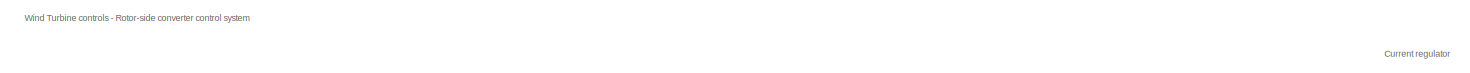
[diagram: DFIG Wind Turbine/Control/Rotor-side Controls - part 1/4, top left region]
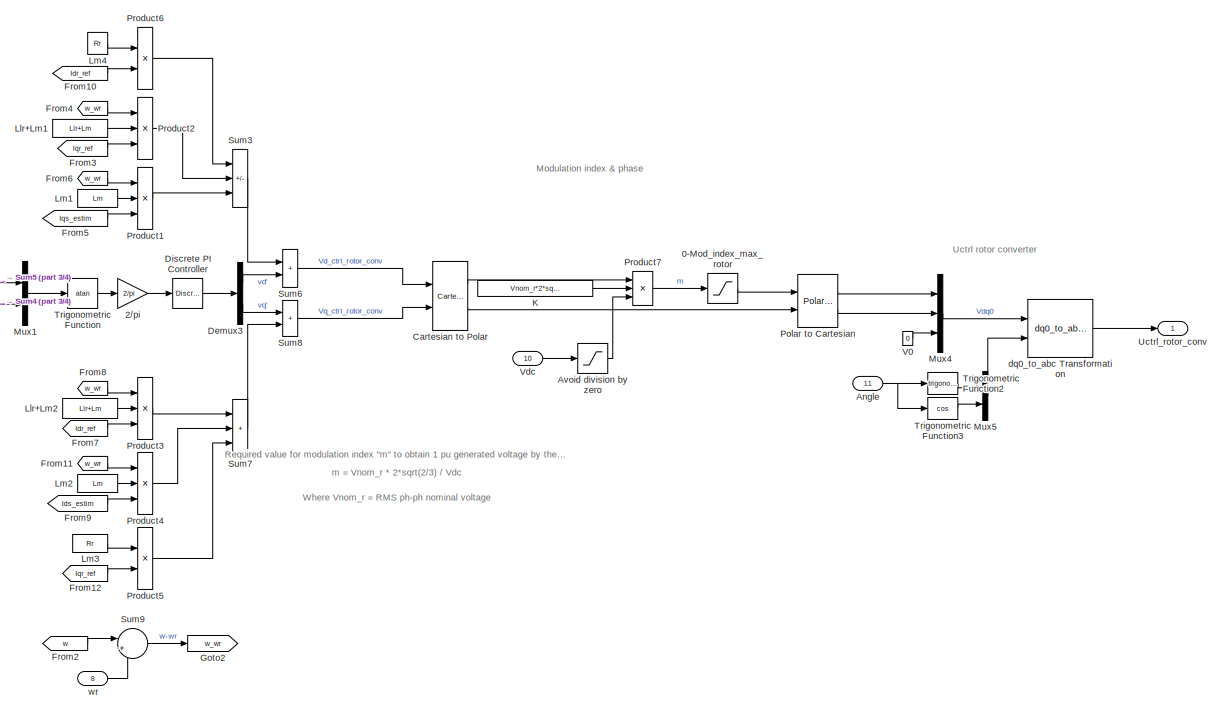
[diagram: DFIG Wind Turbine/Control/Rotor-side Controls - part 2/4, middle right region]
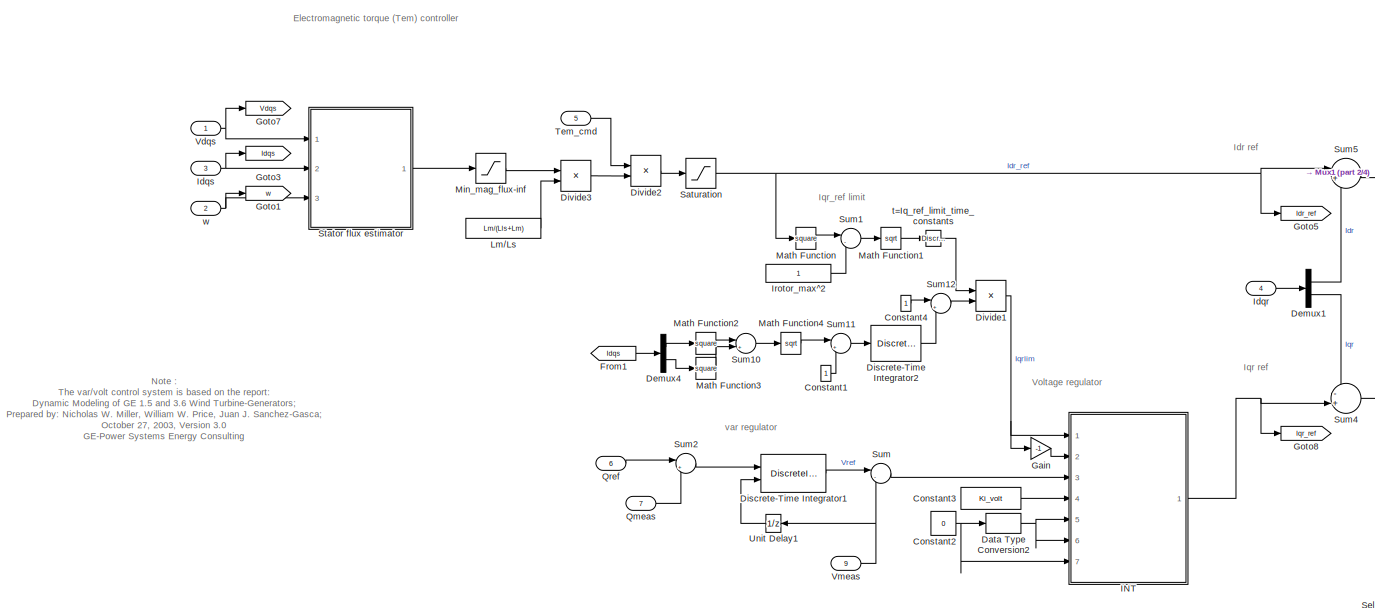
[diagram: DFIG Wind Turbine/Control/Rotor-side Controls - part 3/4, middle left region]
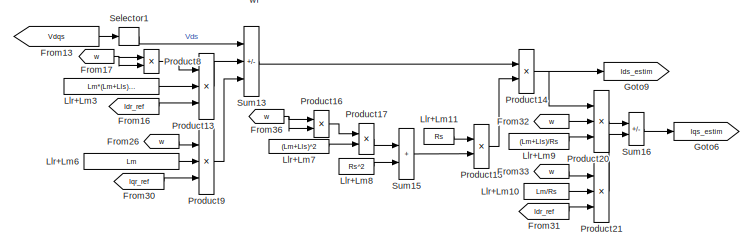
[diagram: DFIG Wind Turbine/Control/Rotor-side Controls - part 4/4, bottom center region]
BLOCK [SubSystem] DFIG Wind Turbine/Control/Rotor-side Controls
  Ports = [11, 1]
  RequestExecContextInheritance = off
BLOCK [Saturate] DFIG Wind Turbine/Control/Rotor-side Controls/0-Mod_index_max_rotor
  LowerLimit = 0
  NameLocation = top
  UpperLimit = Mod_index_max_rotor
BLOCK [Gain] DFIG Wind Turbine/Control/Rotor-side Controls/2//pi
  Gain = 2/pi
BLOCK [Inport] DFIG Wind Turbine/Control/Rotor-side Controls/Angle
  Port = 11
BLOCK [Saturate] DFIG Wind Turbine/Control/Rotor-side Controls/Avoid division by zero
  LowerLimit = 1e-6
  UpperLimit = inf
BLOCK [Reference] DFIG Wind Turbine/Control/Rotor-side Controls/Cartesian to Polar  REF=simulink_extras/Transformations/Cartesian to
Polar
  Ports = [2, 2]
  SourceBlock = simulink_extras/Transformations/Cartesian to\nPolar
  SourceProductBaseCode = SL
  SourceType = Cart2Polar
BLOCK [Constant] DFIG Wind Turbine/Control/Rotor-side Controls/Constant1
BLOCK [Constant] DFIG Wind Turbine/Control/Rotor-side Controls/Constant2
  Value = 0
BLOCK [Constant] DFIG Wind Turbine/Control/Rotor-side Controls/Constant3
  Value = Ki_volt
BLOCK [Constant] DFIG Wind Turbine/Control/Rotor-side Controls/Constant4
BLOCK [DataTypeConversion] DFIG Wind Turbine/Control/Rotor-side Controls/Data Type Conversion2
  OutDataTypeStr = boolean
  RndMeth = Floor
  SaturateOnIntegerOverflow = off
BLOCK [Demux] DFIG Wind Turbine/Control/Rotor-side Controls/Demux1
  DisplayOption = none
  Outputs = 2
  Ports = [1, 2]
BLOCK [Demux] DFIG Wind Turbine/Control/Rotor-side Controls/Demux3
  DisplayOption = none
  Outputs = 2
  Ports = [1, 2]
BLOCK [Demux] DFIG Wind Turbine/Control/Rotor-side Controls/Demux4
  DisplayOption = none
  Outputs = 2
  Ports = [1, 2]
BLOCK [Reference] DFIG Wind Turbine/Control/Rotor-side Controls/Discrete PI Controller  REF=powerlib_extras/Discrete 
Control Blocks/Discrete
PI Controller
  Ports = [1, 1]
  SourceBlock = powerlib_extras/Discrete \nControl Blocks/Discrete\nPI Controller
  SourceProductBaseCode = PS
  SourceType = Discrete PI Controller
BLOCK [DiscreteIntegrator] DFIG Wind Turbine/Control/Rotor-side Controls/Discrete-Time Integrator1
  ICPrevOutput = DiscIntNeverNeededParam
  ICPrevScaledInput = DiscIntNeverNeededParam
  InitialCondition = 1
  InitialConditionSource = external
  LimitOutput = on
  LowerSaturationLimit = Min_var_reg
  Ports = [2, 1]
  SampleTime = Ts
  UpperSaturationLimit = Max_var_reg
  gainval = Ki_var
BLOCK [DiscreteIntegrator] DFIG Wind Turbine/Control/Rotor-side Controls/Discrete-Time Integrator2
  ICPrevOutput = DiscIntNeverNeededParam
  ICPrevScaledInput = DiscIntNeverNeededParam
  LimitOutput = on
  LowerSaturationLimit = 0
  Ports = [1, 1]
  SampleTime = Ts
  UpperSaturationLimit = 1
  gainval = 10
BLOCK [Product] DFIG Wind Turbine/Control/Rotor-side Controls/Divide1
  Inputs = **
  Ports = [2, 1]
BLOCK [Product] DFIG Wind Turbine/Control/Rotor-side Controls/Divide2
  Inputs = */
  Ports = [2, 1]
BLOCK [Product] DFIG Wind Turbine/Control/Rotor-side Controls/Divide3
  Inputs = **
  Ports = [2, 1]
BLOCK [From] DFIG Wind Turbine/Control/Rotor-side Controls/From1
  CloseFcn = tagdialog Close
  GotoTag = Idqs
BLOCK [From] DFIG Wind Turbine/Control/Rotor-side Controls/From10
  CloseFcn = tagdialog Close
  GotoTag = Idr_ref
BLOCK [From] DFIG Wind Turbine/Control/Rotor-side Controls/From11
  CloseFcn = tagdialog Close
  GotoTag = w_wr
BLOCK [From] DFIG Wind Turbine/Control/Rotor-side Controls/From12
  CloseFcn = tagdialog Close
  GotoTag = Iqr_ref
BLOCK [From] DFIG Wind Turbine/Control/Rotor-side Controls/From13
  CloseFcn = tagdialog Close
  GotoTag = Vdqs
BLOCK [From] DFIG Wind Turbine/Control/Rotor-side Controls/From16
  CloseFcn = tagdialog Close
  GotoTag = Idr_ref
BLOCK [From] DFIG Wind Turbine/Control/Rotor-side Controls/From17
  CloseFcn = tagdialog Close
  GotoTag = w
BLOCK [From] DFIG Wind Turbine/Control/Rotor-side Controls/From2
  CloseFcn = tagdialog Close
  GotoTag = w
BLOCK [From] DFIG Wind Turbine/Control/Rotor-side Controls/From26
  CloseFcn = tagdialog Close
  GotoTag = w
BLOCK [From] DFIG Wind Turbine/Control/Rotor-side Controls/From3
  CloseFcn = tagdialog Close
  GotoTag = Iqr_ref
BLOCK [From] DFIG Wind Turbine/Control/Rotor-side Controls/From30
  CloseFcn = tagdialog Close
  GotoTag = Iqr_ref
BLOCK [From] DFIG Wind Turbine/Control/Rotor-side Controls/From31
  CloseFcn = tagdialog Close
  GotoTag = Idr_ref
BLOCK [From] DFIG Wind Turbine/Control/Rotor-side Controls/From32
  CloseFcn = tagdialog Close
  GotoTag = w
BLOCK [From] DFIG Wind Turbine/Control/Rotor-side Controls/From33
  CloseFcn = tagdialog Close
  GotoTag = w
BLOCK [From] DFIG Wind Turbine/Control/Rotor-side Controls/From36
  CloseFcn = tagdialog Close
  GotoTag = w
BLOCK [From] DFIG Wind Turbine/Control/Rotor-side Controls/From4
  CloseFcn = tagdialog Close
  GotoTag = w_wr
BLOCK [From] DFIG Wind Turbine/Control/Rotor-side Controls/From5
  CloseFcn = tagdialog Close
  GotoTag = Iqs_estim
BLOCK [From] DFIG Wind Turbine/Control/Rotor-side Controls/From6
  CloseFcn = tagdialog Close
  GotoTag = w_wr
BLOCK [From] DFIG Wind Turbine/Control/Rotor-side Controls/From7
  CloseFcn = tagdialog Close
  GotoTag = Idr_ref
BLOCK [From] DFIG Wind Turbine/Control/Rotor-side Controls/From8
  CloseFcn = tagdialog Close
  GotoTag = w_wr
BLOCK [From] DFIG Wind Turbine/Control/Rotor-side Controls/From9
  CloseFcn = tagdialog Close
  GotoTag = Ids_estim
BLOCK [Gain] DFIG Wind Turbine/Control/Rotor-side Controls/Gain
  Gain = -1
  OutDataTypeStr = Inherit: Same as input
  ParamDataTypeStr = Inherit: Same as input
  SaturateOnIntegerOverflow = on
BLOCK [Goto] DFIG Wind Turbine/Control/Rotor-side Controls/Goto1
  GotoTag = w
BLOCK [Goto] DFIG Wind Turbine/Control/Rotor-side Controls/Goto2
  GotoTag = w_wr
BLOCK [Goto] DFIG Wind Turbine/Control/Rotor-side Controls/Goto3
  GotoTag = Idqs
BLOCK [Goto] DFIG Wind Turbine/Control/Rotor-side Controls/Goto5
  GotoTag = Idr_ref
BLOCK [Goto] DFIG Wind Turbine/Control/Rotor-side Controls/Goto6
  GotoTag = Iqs_estim
BLOCK [Goto] DFIG Wind Turbine/Control/Rotor-side Controls/Goto7
  GotoTag = Vdqs
BLOCK [Goto] DFIG Wind Turbine/Control/Rotor-side Controls/Goto8
  GotoTag = Iqr_ref
BLOCK [Goto] DFIG Wind Turbine/Control/Rotor-side Controls/Goto9
  GotoTag = Ids_estim
BLOCK [SubSystem] DFIG Wind Turbine/Control/Rotor-side Controls/INT
  Ports = [7, 1]
  RequestExecContextInheritance = off
BLOCK [Gain] DFIG Wind Turbine/Control/Rotor-side Controls/INT/Gain
  Gain = Ts* 0.5
  OutDataTypeStr = Inherit: Same as input
  ParamDataTypeStr = Inherit: Same as input
  SaturateOnIntegerOverflow = on
BLOCK [Inport] DFIG Wind Turbine/Control/Rotor-side Controls/INT/Hold
  Port = 5
BLOCK [UnitDelay] DFIG Wind Turbine/Control/Rotor-side Controls/INT/IC = 0
  HasFrameUpgradeWarning = on
  SampleTime = Ts
BLOCK [UnitDelay] DFIG Wind Turbine/Control/Rotor-side Controls/INT/IC = i_ic
  HasFrameUpgradeWarning = on
  SampleTime = Ts
BLOCK [Inport] DFIG Wind Turbine/Control/Rotor-side Controls/INT/In
  Port = 3
BLOCK [Inport] DFIG Wind Turbine/Control/Rotor-side Controls/INT/Ki
  Port = 4
BLOCK [Logic] DFIG Wind Turbine/Control/Rotor-side Controls/INT/Logical Operator4
  Operator = OR
  Ports = [2, 1]
BLOCK [Inport] DFIG Wind Turbine/Control/Rotor-side Controls/INT/Max
BLOCK [Inport] DFIG Wind Turbine/Control/Rotor-side Controls/INT/Min
  Port = 2
BLOCK [MinMax] DFIG Wind Turbine/Control/Rotor-side Controls/INT/MinMax
  InputSameDT = on
  Inputs = 2
  Ports = [2, 1]
  SaturateOnIntegerOverflow = on
BLOCK [MinMax] DFIG Wind Turbine/Control/Rotor-side Controls/INT/MinMax1
  Function = max
  InputSameDT = on
  Inputs = 2
  Ports = [2, 1]
  SaturateOnIntegerOverflow = on
BLOCK [Outport] DFIG Wind Turbine/Control/Rotor-side Controls/INT/Out
  InitialOutput = 0
  VectorParamsAs1DForOutWhenUnconnected = off
BLOCK [Product] DFIG Wind Turbine/Control/Rotor-side Controls/INT/Product
  OutDataTypeStr = Inherit: Same as first input
  Ports = [2, 1]
  SaturateOnIntegerOverflow = on
BLOCK [Inport] DFIG Wind Turbine/Control/Rotor-side Controls/INT/Reset
  Port = 6
BLOCK [Inport] DFIG Wind Turbine/Control/Rotor-side Controls/INT/Reset Value
  NameLocation = top
  Port = 7
BLOCK [SubSystem] DFIG Wind Turbine/Control/Rotor-side Controls/INT/S6
  Ports = [3, 1]
  RequestExecContextInheritance = off
BLOCK [Outport] DFIG Wind Turbine/Control/Rotor-side Controls/INT/S6/  
  InitialOutput = 0
  VectorParamsAs1DForOutWhenUnconnected = off
BLOCK [Inport] DFIG Wind Turbine/Control/Rotor-side Controls/INT/S6/In
  Port = 2
BLOCK [Inport] DFIG Wind Turbine/Control/Rotor-side Controls/INT/S6/MAX
BLOCK [Inport] DFIG Wind Turbine/Control/Rotor-side Controls/INT/S6/MIN
  Port = 3
BLOCK [MinMax] DFIG Wind Turbine/Control/Rotor-side Controls/INT/S6/MinMax
  Function = max
  InputSameDT = on
  Inputs = 2
  Ports = [2, 1]
  SaturateOnIntegerOverflow = on
BLOCK [MinMax] DFIG Wind Turbine/Control/Rotor-side Controls/INT/S6/MinMax1
  InputSameDT = on
  Inputs = 2
  Ports = [2, 1]
  SaturateOnIntegerOverflow = on
BLOCK [Sum] DFIG Wind Turbine/Control/Rotor-side Controls/INT/Sum
  IconShape = rectangular
  InputSameDT = on
  OutDataTypeStr = Inherit: Same as first input
  Ports = [2, 1]
  SaturateOnIntegerOverflow = on
BLOCK [Sum] DFIG Wind Turbine/Control/Rotor-side Controls/INT/Sum1
  IconShape = rectangular
  InputSameDT = on
  OutDataTypeStr = Inherit: Same as first input
  Ports = [2, 1]
  SaturateOnIntegerOverflow = on
BLOCK [Switch] DFIG Wind Turbine/Control/Rotor-side Controls/INT/Switch2
  Threshold = 0.5
BLOCK [Switch] DFIG Wind Turbine/Control/Rotor-side Controls/INT/Switch3
  Threshold = 0.5
BLOCK [Switch] DFIG Wind Turbine/Control/Rotor-side Controls/INT/Switch7
  Threshold = 0.5
BLOCK [Inport] DFIG Wind Turbine/Control/Rotor-side Controls/Idqr
  NameLocation = top
  Port = 4
BLOCK [Inport] DFIG Wind Turbine/Control/Rotor-side Controls/Idqs
  Port = 3
BLOCK [Constant] DFIG Wind Turbine/Control/Rotor-side Controls/Irotor_max^2
BLOCK [Constant] DFIG Wind Turbine/Control/Rotor-side Controls/K
  Value = Vnom_r*2*sqrt(2/3)
BLOCK [Constant] DFIG Wind Turbine/Control/Rotor-side Controls/Llr+Lm1
  Value = Llr+Lm
BLOCK [Constant] DFIG Wind Turbine/Control/Rotor-side Controls/Llr+Lm10
  Value = Lm/Rs
BLOCK [Constant] DFIG Wind Turbine/Control/Rotor-side Controls/Llr+Lm11
  Value = Rs
BLOCK [Constant] DFIG Wind Turbine/Control/Rotor-side Controls/Llr+Lm2
  Value = Llr+Lm
BLOCK [Constant] DFIG Wind Turbine/Control/Rotor-side Controls/Llr+Lm3
  Value = Lm*(Lm+Lls)/Rs
BLOCK [Constant] DFIG Wind Turbine/Control/Rotor-side Controls/Llr+Lm6
  Value = Lm
BLOCK [Constant] DFIG Wind Turbine/Control/Rotor-side Controls/Llr+Lm7
  Value = (Lm+Lls)^2
BLOCK [Constant] DFIG Wind Turbine/Control/Rotor-side Controls/Llr+Lm8
  Value = Rs^2
BLOCK [Constant] DFIG Wind Turbine/Control/Rotor-side Controls/Llr+Lm9
  Value = (Lm+Lls)/Rs
BLOCK [Constant] DFIG Wind Turbine/Control/Rotor-side Controls/Lm//Ls
  Value = Lm/(Lls+Lm)
BLOCK [Constant] DFIG Wind Turbine/Control/Rotor-side Controls/Lm1
  Value = Lm
BLOCK [Constant] DFIG Wind Turbine/Control/Rotor-side Controls/Lm2
  Value = Lm
BLOCK [Constant] DFIG Wind Turbine/Control/Rotor-side Controls/Lm3
  Value = Rr
BLOCK [Constant] DFIG Wind Turbine/Control/Rotor-side Controls/Lm4
  Value = Rr
  VectorParams1D = off
BLOCK [Math] DFIG Wind Turbine/Control/Rotor-side Controls/Math Function
  Operator = square
  Ports = [1, 1]
  SignedPower = on
BLOCK [Math] DFIG Wind Turbine/Control/Rotor-side Controls/Math Function1
  Operator = sqrt
  Ports = [1, 1]
  SignedPower = on
BLOCK [Math] DFIG Wind Turbine/Control/Rotor-side Controls/Math Function2
  Operator = square
  Ports = [1, 1]
  SignedPower = on
BLOCK [Math] DFIG Wind Turbine/Control/Rotor-side Controls/Math Function3
  Operator = square
  Ports = [1, 1]
  SignedPower = on
BLOCK [Math] DFIG Wind Turbine/Control/Rotor-side Controls/Math Function4
  Operator = sqrt
  Ports = [1, 1]
  SignedPower = on
BLOCK [Saturate] DFIG Wind Turbine/Control/Rotor-side Controls/Min_mag_flux-inf
  LowerLimit = Min_mag_flux
  UpperLimit = inf
BLOCK [Mux] DFIG Wind Turbine/Control/Rotor-side Controls/Mux1
  DisplayOption = bar
  Inputs = 2
  Ports = [2, 1]
BLOCK [Mux] DFIG Wind Turbine/Control/Rotor-side Controls/Mux4
  DisplayOption = bar
  Inputs = 3
  Ports = [3, 1]
BLOCK [Mux] DFIG Wind Turbine/Control/Rotor-side Controls/Mux5
  DisplayOption = bar
  Inputs = 2
  Ports = [2, 1]
BLOCK [Reference] DFIG Wind Turbine/Control/Rotor-side Controls/Polar to Cartesian  REF=simulink_extras/Transformations/Polar to
Cartesian
  Ports = [2, 2]
  SourceBlock = simulink_extras/Transformations/Polar to\nCartesian
  SourceProductBaseCode = SL
  SourceType = Polar2Cart
BLOCK [Product] DFIG Wind Turbine/Control/Rotor-side Controls/Product1
  Inputs = 3
  OutDataTypeStr = Inherit: Same as first input
  Ports = [3, 1]
  SaturateOnIntegerOverflow = on
BLOCK [Product] DFIG Wind Turbine/Control/Rotor-side Controls/Product13
  Inputs = 3
  OutDataTypeStr = Inherit: Same as first input
  Ports = [3, 1]
  SaturateOnIntegerOverflow = on
BLOCK [Product] DFIG Wind Turbine/Control/Rotor-side Controls/Product14
  OutDataTypeStr = Inherit: Same as first input
  Ports = [2, 1]
  SaturateOnIntegerOverflow = on
BLOCK [Product] DFIG Wind Turbine/Control/Rotor-side Controls/Product16
  OutDataTypeStr = Inherit: Same as first input
  Ports = [2, 1]
  SaturateOnIntegerOverflow = on
BLOCK [Product] DFIG Wind Turbine/Control/Rotor-side Controls/Product17
  OutDataTypeStr = Inherit: Same as first input
  Ports = [2, 1]
  SaturateOnIntegerOverflow = on
BLOCK [Product] DFIG Wind Turbine/Control/Rotor-side Controls/Product18
  Inputs = */
  OutDataTypeStr = Inherit: Same as first input
  Ports = [2, 1]
  SaturateOnIntegerOverflow = on
BLOCK [Product] DFIG Wind Turbine/Control/Rotor-side Controls/Product2
  Inputs = 3
  OutDataTypeStr = Inherit: Same as first input
  Ports = [3, 1]
  SaturateOnIntegerOverflow = on
BLOCK [Product] DFIG Wind Turbine/Control/Rotor-side Controls/Product20
  Inputs = 3
  OutDataTypeStr = Inherit: Same as first input
  Ports = [3, 1]
  SaturateOnIntegerOverflow = on
BLOCK [Product] DFIG Wind Turbine/Control/Rotor-side Controls/Product21
  Inputs = 3
  OutDataTypeStr = Inherit: Same as first input
  Ports = [3, 1]
  SaturateOnIntegerOverflow = on
BLOCK [Product] DFIG Wind Turbine/Control/Rotor-side Controls/Product3
  Inputs = 3
  OutDataTypeStr = Inherit: Same as first input
  Ports = [3, 1]
  SaturateOnIntegerOverflow = on
BLOCK [Product] DFIG Wind Turbine/Control/Rotor-side Controls/Product4
  Inputs = 3
  OutDataTypeStr = Inherit: Same as first input
  Ports = [3, 1]
  SaturateOnIntegerOverflow = on
BLOCK [Product] DFIG Wind Turbine/Control/Rotor-side Controls/Product5
  OutDataTypeStr = Inherit: Same as first input
  Ports = [2, 1]
  SaturateOnIntegerOverflow = on
BLOCK [Product] DFIG Wind Turbine/Control/Rotor-side Controls/Product6
  OutDataTypeStr = Inherit: Same as first input
  Ports = [2, 1]
  SaturateOnIntegerOverflow = on
BLOCK [Product] DFIG Wind Turbine/Control/Rotor-side Controls/Product7
  InputSameDT = on
  Inputs = **/
  OutDataTypeStr = Inherit: Same as first input
  Ports = [3, 1]
  SaturateOnIntegerOverflow = on
BLOCK [Product] DFIG Wind Turbine/Control/Rotor-side Controls/Product8
  OutDataTypeStr = Inherit: Same as first input
  Ports = [2, 1]
  SaturateOnIntegerOverflow = on
BLOCK [Product] DFIG Wind Turbine/Control/Rotor-side Controls/Product9
  Inputs = 3
  OutDataTypeStr = Inherit: Same as first input
  Ports = [3, 1]
  SaturateOnIntegerOverflow = on
BLOCK [Inport] DFIG Wind Turbine/Control/Rotor-side Controls/Qmeas
  Port = 7
BLOCK [Inport] DFIG Wind Turbine/Control/Rotor-side Controls/Qref
  Port = 6
BLOCK [Saturate] DFIG Wind Turbine/Control/Rotor-side Controls/Saturation
  LowerLimit = 0
  UpperLimit = Max_Idr_ref
BLOCK [Selector] DFIG Wind Turbine/Control/Rotor-side Controls/Selector1
  IndexOptions = Index vector (dialog)
  Indices = 1
  InputPortWidth = 2
  OutputSizes = [(-2)]
  Ports = [1, 1]
BLOCK [SubSystem] DFIG Wind Turbine/Control/Rotor-side Controls/Stator flux estimator
  Ports = [3, 1]
  RequestExecContextInheritance = off
BLOCK [Product] DFIG Wind Turbine/Control/Rotor-side Controls/Stator flux estimator/Divide1
  Inputs = */
  Ports = [2, 1]
BLOCK [Product] DFIG Wind Turbine/Control/Rotor-side Controls/Stator flux estimator/Divide2
  Inputs = **
  Ports = [2, 1]
BLOCK [Product] DFIG Wind Turbine/Control/Rotor-side Controls/Stator flux estimator/Divide4
  Inputs = */
  Ports = [2, 1]
BLOCK [Product] DFIG Wind Turbine/Control/Rotor-side Controls/Stator flux estimator/Divide6
  Inputs = **
  Ports = [2, 1]
BLOCK [Gain] DFIG Wind Turbine/Control/Rotor-side Controls/Stator flux estimator/Gain
  Gain = -1
BLOCK [Inport] DFIG Wind Turbine/Control/Rotor-side Controls/Stator flux estimator/Idqs
  Port = 2
BLOCK [Reference] DFIG Wind Turbine/Control/Rotor-side Controls/Stator flux estimator/Lowpass Tau=1//4 cycle  REF=powerlib_extras/Discrete 
Control Blocks/Discrete
1st-Order
Filter
  Ports = [1, 1]
  SourceBlock = powerlib_extras/Discrete \nControl Blocks/Discrete\n1st-Order\nFilter
  SourceProductBaseCode = PS
  SourceType = Discrete 1st-Order Filter
BLOCK [Outport] DFIG Wind Turbine/Control/Rotor-side Controls/Stator flux estimator/Mag_Flux
  VectorParamsAs1DForOutWhenUnconnected = off
BLOCK [Math] DFIG Wind Turbine/Control/Rotor-side Controls/Stator flux estimator/Math Function1
  Operator = square
  Ports = [1, 1]
  SignedPower = on
BLOCK [Math] DFIG Wind Turbine/Control/Rotor-side Controls/Stator flux estimator/Math Function2
  Operator = square
  Ports = [1, 1]
  SignedPower = on
BLOCK [Math] DFIG Wind Turbine/Control/Rotor-side Controls/Stator flux estimator/Math Function3
  Operator = sqrt
  Ports = [1, 1]
  SignedPower = on
BLOCK [Constant] DFIG Wind Turbine/Control/Rotor-side Controls/Stator flux estimator/Rs
  Value = Rs
BLOCK [Constant] DFIG Wind Turbine/Control/Rotor-side Controls/Stator flux estimator/Rs2
  Value = Rs
BLOCK [Selector] DFIG Wind Turbine/Control/Rotor-side Controls/Stator flux estimator/Selector1
  IndexOptions = Index vector (dialog)
  Indices = 2
  InputPortWidth = 2
  OutputSizes = 1
  Ports = [1, 1]
BLOCK [Selector] DFIG Wind Turbine/Control/Rotor-side Controls/Stator flux estimator/Selector2
  IndexOptions = Index vector (dialog)
  Indices = 1
  InputPortWidth = 2
  OutputSizes = 1
  Ports = [1, 1]
BLOCK [Selector] DFIG Wind Turbine/Control/Rotor-side Controls/Stator flux estimator/Selector3
  IndexOptions = Index vector (dialog)
  Indices = 2
  InputPortWidth = 2
  OutputSizes = 1
  Ports = [1, 1]
BLOCK [Selector] DFIG Wind Turbine/Control/Rotor-side Controls/Stator flux estimator/Selector4
  IndexOptions = Index vector (dialog)
  Indices = 1
  InputPortWidth = 2
  OutputSizes = 1
  Ports = [1, 1]
BLOCK [Sum] DFIG Wind Turbine/Control/Rotor-side Controls/Stator flux estimator/Sum1
  Inputs = |++
  Ports = [2, 1]
BLOCK [Sum] DFIG Wind Turbine/Control/Rotor-side Controls/Stator flux estimator/Sum2
  Inputs = |+-
  Ports = [2, 1]
BLOCK [Sum] DFIG Wind Turbine/Control/Rotor-side Controls/Stator flux estimator/Sum3
  Inputs = |+-
  Ports = [2, 1]
BLOCK [Inport] DFIG Wind Turbine/Control/Rotor-side Controls/Stator flux estimator/Vdqs
BLOCK [Inport] DFIG Wind Turbine/Control/Rotor-side Controls/Stator flux estimator/w_pu
  Port = 3
BLOCK [Sum] DFIG Wind Turbine/Control/Rotor-side Controls/Sum
  InputSameDT = on
  Inputs = |-+
  OutDataTypeStr = Inherit: Same as first input
  Ports = [2, 1]
  SaturateOnIntegerOverflow = on
BLOCK [Sum] DFIG Wind Turbine/Control/Rotor-side Controls/Sum1
  InputSameDT = on
  Inputs = |-+
  OutDataTypeStr = Inherit: Same as first input
  Ports = [2, 1]
  SaturateOnIntegerOverflow = on
BLOCK [Sum] DFIG Wind Turbine/Control/Rotor-side Controls/Sum10
  InputSameDT = on
  Inputs = |++
  OutDataTypeStr = Inherit: Same as first input
  Ports = [2, 1]
  SaturateOnIntegerOverflow = on
BLOCK [Sum] DFIG Wind Turbine/Control/Rotor-side Controls/Sum11
  InputSameDT = on
  Inputs = |+-
  OutDataTypeStr = Inherit: Same as first input
  Ports = [2, 1]
  SaturateOnIntegerOverflow = on
BLOCK [Sum] DFIG Wind Turbine/Control/Rotor-side Controls/Sum12
  InputSameDT = on
  Inputs = |+-
  OutDataTypeStr = Inherit: Same as first input
  Ports = [2, 1]
  SaturateOnIntegerOverflow = on
BLOCK [Sum] DFIG Wind Turbine/Control/Rotor-side Controls/Sum13
  IconShape = rectangular
  InputSameDT = on
  Inputs = +-+
  OutDataTypeStr = Inherit: Same as first input
  Ports = [3, 1]
  SaturateOnIntegerOverflow = on
BLOCK [Sum] DFIG Wind Turbine/Control/Rotor-side Controls/Sum15
  IconShape = rectangular
  InputSameDT = on
  OutDataTypeStr = Inherit: Same as first input
  Ports = [2, 1]
  SaturateOnIntegerOverflow = on
BLOCK [Sum] DFIG Wind Turbine/Control/Rotor-side Controls/Sum16
  IconShape = rectangular
  InputSameDT = on
  Inputs = --
  OutDataTypeStr = Inherit: Same as first input
  Ports = [2, 1]
  SaturateOnIntegerOverflow = on
BLOCK [Sum] DFIG Wind Turbine/Control/Rotor-side Controls/Sum2
  InputSameDT = on
  Inputs = |+-
  OutDataTypeStr = Inherit: Same as first input
  Ports = [2, 1]
  SaturateOnIntegerOverflow = on
BLOCK [Sum] DFIG Wind Turbine/Control/Rotor-side Controls/Sum3
  IconShape = rectangular
  InputSameDT = on
  Inputs = +--
  OutDataTypeStr = Inherit: Same as first input
  Ports = [3, 1]
  SaturateOnIntegerOverflow = on
BLOCK [Sum] DFIG Wind Turbine/Control/Rotor-side Controls/Sum4
  InputSameDT = on
  Inputs = -+|
  OutDataTypeStr = Inherit: Same as first input
  Ports = [2, 1]
  SaturateOnIntegerOverflow = on
BLOCK [Sum] DFIG Wind Turbine/Control/Rotor-side Controls/Sum5
  InputSameDT = on
  Inputs = |+-
  OutDataTypeStr = Inherit: Same as first input
  Ports = [2, 1]
  SaturateOnIntegerOverflow = on
BLOCK [Sum] DFIG Wind Turbine/Control/Rotor-side Controls/Sum6
  IconShape = rectangular
  InputSameDT = on
  OutDataTypeStr = Inherit: Same as first input
  Ports = [2, 1]
  SaturateOnIntegerOverflow = on
BLOCK [Sum] DFIG Wind Turbine/Control/Rotor-side Controls/Sum7
  IconShape = rectangular
  InputSameDT = on
  Inputs = +++
  OutDataTypeStr = Inherit: Same as first input
  Ports = [3, 1]
  SaturateOnIntegerOverflow = on
BLOCK [Sum] DFIG Wind Turbine/Control/Rotor-side Controls/Sum8
  IconShape = rectangular
  InputSameDT = on
  OutDataTypeStr = Inherit: Same as first input
  Ports = [2, 1]
  SaturateOnIntegerOverflow = on
BLOCK [Sum] DFIG Wind Turbine/Control/Rotor-side Controls/Sum9
  InputSameDT = on
  Inputs = |+-
  OutDataTypeStr = Inherit: Same as first input
  Ports = [2, 1]
  SaturateOnIntegerOverflow = on
BLOCK [Inport] DFIG Wind Turbine/Control/Rotor-side Controls/Tem_cmd
  Port = 5
BLOCK [Trigonometry] DFIG Wind Turbine/Control/Rotor-side Controls/Trigonometric Function
  Operator = atan
  Ports = [1, 1]
BLOCK [Trigonometry] DFIG Wind Turbine/Control/Rotor-side Controls/Trigonometric Function2
  Ports = [1, 1]
BLOCK [Trigonometry] DFIG Wind Turbine/Control/Rotor-side Controls/Trigonometric Function3
  Operator = cos
  Ports = [1, 1]
BLOCK [Outport] DFIG Wind Turbine/Control/Rotor-side Controls/Uctrl_rotor_conv
  VectorParamsAs1DForOutWhenUnconnected = off
BLOCK [UnitDelay] DFIG Wind Turbine/Control/Rotor-side Controls/Unit Delay1
  HasFrameUpgradeWarning = on
  InitialCondition = 1
  SampleTime = Ts
BLOCK [Constant] DFIG Wind Turbine/Control/Rotor-side Controls/V0
  Value = 0
BLOCK [Inport] DFIG Wind Turbine/Control/Rotor-side Controls/Vdc
  Port = 10
BLOCK [Inport] DFIG Wind Turbine/Control/Rotor-side Controls/Vdqs
BLOCK [Inport] DFIG Wind Turbine/Control/Rotor-side Controls/Vmeas
  Port = 9
BLOCK [Reference] DFIG Wind Turbine/Control/Rotor-side Controls/dq0_to_abc Transformation  REF=powerlib_extras/Measurements/dq0_to_abc
Transformation
  Ports = [2, 1]
  SourceBlock = powerlib_extras/Measurements/dq0_to_abc\nTransformation
  SourceProductBaseCode = PS
  SourceType = dq0 to abc Transformation
BLOCK [Reference] DFIG Wind Turbine/Control/Rotor-side Controls/t=Iq_ref_limit_time_constants  REF=powerlib_extras/Discrete 
Control Blocks/Discrete
1st-Order
Filter
  Ports = [1, 1]
  SourceBlock = powerlib_extras/Discrete \nControl Blocks/Discrete\n1st-Order\nFilter
  SourceProductBaseCode = PS
  SourceType = Discrete 1st-Order Filter
BLOCK [Inport] DFIG Wind Turbine/Control/Rotor-side Controls/w
  Port = 2
BLOCK [Inport] DFIG Wind Turbine/Control/Rotor-side Controls/wr
  Port = 8
BLOCK [SubSystem] DFIG Wind Turbine/Control/Speed & Pitch Control
  Ports = [2, 2]
  RequestExecContextInheritance = off
BLOCK [Saturate] DFIG Wind Turbine/Control/Speed & Pitch Control/0-inf
  LowerLimit = 0
  UpperLimit = inf
BLOCK [Saturate] DFIG Wind Turbine/Control/Speed & Pitch Control/0-pitch_max
  LowerLimit = 0
  UpperLimit = pitch_max
BLOCK [Saturate] DFIG Wind Turbine/Control/Speed & Pitch Control/0-pitch_max 
  LowerLimit = 0
  UpperLimit = pitch_max
BLOCK [Constant] DFIG Wind Turbine/Control/Speed & Pitch Control/Constant2
BLOCK [SubSystem] DFIG Wind Turbine/Control/Speed & Pitch Control/Discrete PI Controller
  DialogController = POWERSYS.PowerSysDialog
  Ports = [1, 1]
  RequestExecContextInheritance = off
BLOCK [DiscreteIntegrator] DFIG Wind Turbine/Control/Speed & Pitch Control/Discrete PI Controller/Discrete-Time Integrator
  ICPrevOutput = DiscIntNeverNeededParam
  ICPrevScaledInput = DiscIntNeverNeededParam
  InitialCondition = Init
  LimitOutput = on
  LowerSaturationLimit = LowerLimit
  Ports = [1, 1]
  SampleTime = Ts
  UpperSaturationLimit = UpperLimit
BLOCK [Inport] DFIG Wind Turbine/Control/Speed & Pitch Control/Discrete PI Controller/Error
BLOCK [Outport] DFIG Wind Turbine/Control/Speed & Pitch Control/Discrete PI Controller/Out
  InitialOutput = 0
  VectorParamsAs1DForOutWhenUnconnected = off
BLOCK [Product] DFIG Wind Turbine/Control/Speed & Pitch Control/Discrete PI Controller/Product1
  Ports = [2, 1]
  RndMeth = Zero
BLOCK [Product] DFIG Wind Turbine/Control/Speed & Pitch Control/Discrete PI Controller/Product2
  Ports = [2, 1]
  RndMeth = Zero
BLOCK [Saturate] DFIG Wind Turbine/Control/Speed & Pitch Control/Discrete PI Controller/Saturation2
  LowerLimit = LowerLimit
  NameLocation = top
  UpperLimit = UpperLimit
BLOCK [Step] DFIG Wind Turbine/Control/Speed & Pitch Control/Discrete PI Controller/Step_Ki_speed
  After = Ki
  Before = Ki
  SampleTime = Ts
  Time = 999
BLOCK [Step] DFIG Wind Turbine/Control/Speed & Pitch Control/Discrete PI Controller/Step_Kp_speed
  After = Kp
  Before = Kp
  SampleTime = Ts
  Time = 999
BLOCK [Sum] DFIG Wind Turbine/Control/Speed & Pitch Control/Discrete PI Controller/Sum6
  IconShape = rectangular
  InputSameDT = on
  OutDataTypeStr = Inherit: Same as first input
  Ports = [2, 1]
  SaturateOnIntegerOverflow = on
BLOCK [Reference] DFIG Wind Turbine/Control/Speed & Pitch Control/Discrete PI Controller1  REF=powerlib_extras/Discrete 
Control Blocks/Discrete
PI Controller
  Ports = [1, 1]
  SourceBlock = powerlib_extras/Discrete \nControl Blocks/Discrete\nPI Controller
  SourceProductBaseCode = PS
  SourceType = Discrete PI Controller
BLOCK [Gain] DFIG Wind Turbine/Control/Speed & Pitch Control/Gain2
  Gain = Kp_pitch
  OutDataTypeStr = Inherit: Same as input
  ParamDataTypeStr = Inherit: Same as input
  SaturateOnIntegerOverflow = on
BLOCK [Outport] DFIG Wind Turbine/Control/Speed & Pitch Control/Pitch (deg)
  Port = 2
  VectorParamsAs1DForOutWhenUnconnected = off
BLOCK [Inport] DFIG Wind Turbine/Control/Speed & Pitch Control/Pmeas
  Port = 2
BLOCK [RateLimiter] DFIG Wind Turbine/Control/Speed & Pitch Control/Rate Limiter   1
  FallingSlewLimit = -pitch_rate
  RisingSlewLimit = pitch_rate
BLOCK [Saturate] DFIG Wind Turbine/Control/Speed & Pitch Control/Saturation
  LowerLimit = Speed_min
  UpperLimit = Speed_max
BLOCK [Sum] DFIG Wind Turbine/Control/Speed & Pitch Control/Sum
  Inputs = -+
  Ports = [2, 1]
  SaturateOnIntegerOverflow = on
BLOCK [Sum] DFIG Wind Turbine/Control/Speed & Pitch Control/Sum1
  Inputs = |+-
  Ports = [2, 1]
BLOCK [Sum] DFIG Wind Turbine/Control/Speed & Pitch Control/Sum2
  Inputs = |+-
  Ports = [2, 1]
  SaturateOnIntegerOverflow = on
BLOCK [Sum] DFIG Wind Turbine/Control/Speed & Pitch Control/Sum3
  Inputs = |++
  Ports = [2, 1]
BLOCK [Switch] DFIG Wind Turbine/Control/Speed & Pitch Control/Switch
  InputSameDT = off
  SaturateOnIntegerOverflow = off
  Threshold = 0.75
BLOCK [Outport] DFIG Wind Turbine/Control/Speed & Pitch Control/Tem_cmd
  VectorParamsAs1DForOutWhenUnconnected = off
BLOCK [Fcn] DFIG Wind Turbine/Control/Speed & Pitch Control/Tracking Curve
  Expr = -0.67*u(1)^2+1.42*u(1)+0.51
BLOCK [Gain] DFIG Wind Turbine/Control/Speed & Pitch Control/pu_elec->pu_mec
  Gain = Pnom/Pmec
BLOCK [Reference] DFIG Wind Turbine/Control/Speed & Pitch Control/t=Pitch_time_constant  REF=powerlib_extras/Discrete 
Control Blocks/Discrete
1st-Order
Filter
  Ports = [1, 1]
  SourceBlock = powerlib_extras/Discrete \nControl Blocks/Discrete\n1st-Order\nFilter
  SourceProductBaseCode = PS
  SourceType = Discrete 1st-Order Filter
BLOCK [Reference] DFIG Wind Turbine/Control/Speed & Pitch Control/t=T_speed  REF=powerlib_extras/Discrete 
Control Blocks/Discrete
1st-Order
Filter
  Ports = [1, 1]
  SourceBlock = powerlib_extras/Discrete \nControl Blocks/Discrete\n1st-Order\nFilter
  SourceProductBaseCode = PS
  SourceType = Discrete 1st-Order Filter
BLOCK [Inport] DFIG Wind Turbine/Control/Speed & Pitch Control/wr
BLOCK [Constant] DFIG Wind Turbine/Control/Speed & Pitch Control/wref
  Value = 1.2
BLOCK [Terminator] DFIG Wind Turbine/Control/Terminator
BLOCK [Terminator] DFIG Wind Turbine/Control/Terminator1
BLOCK [UnitDelay] DFIG Wind Turbine/Control/Unit Delay1
  HasFrameUpgradeWarning = on
  SampleTime = Ts
BLOCK [UnitDelay] DFIG Wind Turbine/Control/Unit Delay2
  HasFrameUpgradeWarning = on
  SampleTime = Ts
BLOCK [UnitDelay] DFIG Wind Turbine/Control/Unit Delay4
  HasFrameUpgradeWarning = on
  SampleTime = Ts
BLOCK [UnitDelay] DFIG Wind Turbine/Control/Unit Delay5
  HasFrameUpgradeWarning = on
  SampleTime = Ts
BLOCK [UnitDelay] DFIG Wind Turbine/Control/Unit Delay6
  HasFrameUpgradeWarning = on
  SampleTime = Ts
BLOCK [Inport] DFIG Wind Turbine/Control/Vabc_B1
BLOCK [Inport] DFIG Wind Turbine/Control/Vdc_V
  Port = 5
BLOCK [Inport] DFIG Wind Turbine/Control/angle_rotor_rad
  Port = 7
BLOCK [Inport] DFIG Wind Turbine/Control/wr
  Port = 8
BLOCK [SubSystem] DFIG Wind Turbine/Drive Train
  Ports = [2, 2]
  RequestExecContextInheritance = off
BLOCK [Gain] DFIG Wind Turbine/Drive Train/1_2H_WT
  Gain = 1/(2*H_WT)
  OutDataTypeStr = Inherit: Same as input
  ParamDataTypeStr = Inherit: Same as input
  SaturateOnIntegerOverflow = on
BLOCK [DiscreteIntegrator] DFIG Wind Turbine/Drive Train/Discrete-Time Integrator
  ICPrevOutput = DiscIntNeverNeededParam
  ICPrevScaledInput = DiscIntNeverNeededParam
  InitialCondition = w_wt0
  Ports = [1, 1]
  SampleTime = Ts
BLOCK [DiscreteIntegrator] DFIG Wind Turbine/Drive Train/Discrete-Time Integrator1
  ICPrevOutput = DiscIntNeverNeededParam
  ICPrevScaledInput = DiscIntNeverNeededParam
  InitialCondition = torque0/Ksh
  Ports = [1, 1]
  SampleTime = Ts
BLOCK [Inport] DFIG Wind Turbine/Drive Train/Generator speed (pu)
  Port = 2
BLOCK [Gain] DFIG Wind Turbine/Drive Train/Mutual damping
  Gain = D_mutual
  OutDataTypeStr = Inherit: Same as input
  ParamDataTypeStr = Inherit: Same as input
  SaturateOnIntegerOverflow = on
BLOCK [Gain] DFIG Wind Turbine/Drive Train/Stiffness
  Gain = Ksh
  OutDataTypeStr = Inherit: Same as input
  ParamDataTypeStr = Inherit: Same as input
  SaturateOnIntegerOverflow = on
BLOCK [Sum] DFIG Wind Turbine/Drive Train/Sum
  IconShape = rectangular
  InputSameDT = on
  Inputs = +-
  OutDataTypeStr = Inherit: Same as first input
  Ports = [2, 1]
  SaturateOnIntegerOverflow = on
BLOCK [Sum] DFIG Wind Turbine/Drive Train/Sum1
  IconShape = rectangular
  InputSameDT = on
  Inputs = +-
  OutDataTypeStr = Inherit: Same as first input
  Ports = [2, 1]
  SaturateOnIntegerOverflow = on
BLOCK [Sum] DFIG Wind Turbine/Drive Train/Sum2
  IconShape = rectangular
  InputSameDT = on
  OutDataTypeStr = Inherit: Same as first input
  Ports = [2, 1]
  SaturateOnIntegerOverflow = on
BLOCK [Outport] DFIG Wind Turbine/Drive Train/T_shaft (pu)
  Port = 2
  VectorParamsAs1DForOutWhenUnconnected = off
BLOCK [Inport] DFIG Wind Turbine/Drive Train/T_wt (pu)
BLOCK [Outport] DFIG Wind Turbine/Drive Train/W_wt (pu)
  VectorParamsAs1DForOutWhenUnconnected = off
BLOCK [Gain] DFIG Wind Turbine/Drive Train/wbase
  Gain = wbase
  OutDataTypeStr = Inherit: Same as input
  ParamDataTypeStr = Inherit: Same as input
  SaturateOnIntegerOverflow = on
BLOCK [Reference] DFIG Wind Turbine/Filter Q=50  REF=spsThreePhaseSeriesRLCLoadLib/Three-Phase
Series RLC Load
  AttributesFormatString = \n
  NameLocation = left
  Ports = [0, 0, 0, 0, 0, 3]
  SourceBlock = spsThreePhaseSeriesRLCLoadLib/Three-Phase\nSeries RLC Load
  SourceProductBaseCode = PS
  SourceType = Three-Phase Series RLC Load
BLOCK [From] DFIG Wind Turbine/From
  CloseFcn = tagdialog Close
  GotoTag = wr
BLOCK [From] DFIG Wind Turbine/From1
  CloseFcn = tagdialog Close
  GotoTag = Vdc_V
BLOCK [From] DFIG Wind Turbine/From10
  CloseFcn = tagdialog Close
  GotoTag = Iabc_rotor
BLOCK [From] DFIG Wind Turbine/From11
  CloseFcn = tagdialog Close
  GotoTag = angle_rotor_rad
BLOCK [From] DFIG Wind Turbine/From12
  CloseFcn = tagdialog Close
  GotoTag = Pulses_grid_conv
BLOCK [From] DFIG Wind Turbine/From13
  CloseFcn = tagdialog Close
  GotoTag = wr
BLOCK [From] DFIG Wind Turbine/From14
  CloseFcn = tagdialog Close
  GotoTag = Tm
BLOCK [From] DFIG Wind Turbine/From15
  CloseFcn = tagdialog Close
  GotoTag = Vabc_B1
BLOCK [From] DFIG Wind Turbine/From16
  CloseFcn = tagdialog Close
  GotoTag = wr
BLOCK [From] DFIG Wind Turbine/From17
  CloseFcn = tagdialog Close
  GotoTag = Pulses_rotor_conv
BLOCK [From] DFIG Wind Turbine/From18
  CloseFcn = tagdialog Close
  GotoTag = Pitch_deg
BLOCK [From] DFIG Wind Turbine/From2
  CloseFcn = tagdialog Close
  GotoTag = Tm
BLOCK [From] DFIG Wind Turbine/From21
  CloseFcn = tagdialog Close
  GotoTag = Iabc_grid_conv
BLOCK [From] DFIG Wind Turbine/From22
  CloseFcn = tagdialog Close
  GotoTag = Vdc_V
BLOCK [From] DFIG Wind Turbine/From23
  CloseFcn = tagdialog Close
  GotoTag = Vabc_grid_conv
BLOCK [From] DFIG Wind Turbine/From24
  CloseFcn = tagdialog Close
  GotoTag = PQ_pu
BLOCK [From] DFIG Wind Turbine/From25
  CloseFcn = tagdialog Close
  GotoTag = Tem
BLOCK [From] DFIG Wind Turbine/From26
  CloseFcn = tagdialog Close
  GotoTag = AsyncMac_sig
BLOCK [From] DFIG Wind Turbine/From27
  CloseFcn = tagdialog Close
  GotoTag = TurbineSpeed
BLOCK [From] DFIG Wind Turbine/From3
  CloseFcn = tagdialog Close
  GotoTag = Iabc_grid_conv
BLOCK [From] DFIG Wind Turbine/From4
  CloseFcn = tagdialog Close
  GotoTag = Vabc_B1
BLOCK [From] DFIG Wind Turbine/From5
  CloseFcn = tagdialog Close
  GotoTag = Iabc_rotor
BLOCK [From] DFIG Wind Turbine/From6
  CloseFcn = tagdialog Close
  GotoTag = Vabc_rotor
BLOCK [From] DFIG Wind Turbine/From7
  CloseFcn = tagdialog Close
  GotoTag = Pitch_deg
BLOCK [From] DFIG Wind Turbine/From8
  CloseFcn = tagdialog Close
  GotoTag = Iabc_stator
BLOCK [From] DFIG Wind Turbine/From9
  CloseFcn = tagdialog Close
  GotoTag = Iabc_stator
BLOCK [Goto] DFIG Wind Turbine/Goto1
  GotoTag = Tm
BLOCK [Goto] DFIG Wind Turbine/Goto10
  GotoTag = angle_rotor_rad
BLOCK [Goto] DFIG Wind Turbine/Goto11
  GotoTag = wr
BLOCK [Goto] DFIG Wind Turbine/Goto12
  GotoTag = Vabc_rotor
BLOCK [Goto] DFIG Wind Turbine/Goto13
  GotoTag = Vabc_grid_conv
BLOCK [Goto] DFIG Wind Turbine/Goto14
  GotoTag = PQ_pu
BLOCK [Goto] DFIG Wind Turbine/Goto16
  GotoTag = AsyncMac_sig
BLOCK [Goto] DFIG Wind Turbine/Goto18
  GotoTag = Pulses_grid_conv
BLOCK [Goto] DFIG Wind Turbine/Goto2
  GotoTag = Pulses_rotor_conv
BLOCK [Goto] DFIG Wind Turbine/Goto3
  GotoTag = Pitch_deg
BLOCK [Goto] DFIG Wind Turbine/Goto4
  GotoTag = Tem
BLOCK [Goto] DFIG Wind Turbine/Goto5
  GotoTag = Iabc_rotor
BLOCK [Goto] DFIG Wind Turbine/Goto6
  GotoTag = Vdc_V
BLOCK [Goto] DFIG Wind Turbine/Goto7
  GotoTag = Vabc_B1
BLOCK [Goto] DFIG Wind Turbine/Goto8
  GotoTag = Iabc_grid_conv
BLOCK [Goto] DFIG Wind Turbine/Goto9
  GotoTag = Iabc_stator
BLOCK [Reference] DFIG Wind Turbine/Multimeter  REF=spsMultimeterLib/Multimeter
  Ports = [0, 1]
  SourceBlock = spsMultimeterLib/Multimeter
  SourceProductBaseCode = PS
  SourceType = MultimeterPSB
BLOCK [Mux] DFIG Wind Turbine/Mux
  DisplayOption = bar
  Inputs = 3
  Ports = [3, 1]
BLOCK [Mux] DFIG Wind Turbine/Mux1
  DisplayOption = bar
  Inputs = 3
  Ports = [3, 1]
BLOCK [Gain] DFIG Wind Turbine/Power base for the Generator
  Gain = -Pmec/Pnom
  OutDataTypeStr = Inherit: Same as input
  ParamDataTypeStr = Inherit: Same as input
  SaturateOnIntegerOverflow = on
BLOCK [Inport] DFIG Wind Turbine/Qref_pu
  Port = 2
BLOCK [Reference] DFIG Wind Turbine/Universal Bridge  REF=spsUniversalBridgeLib/Universal Bridge
  Ports = [1, 0, 0, 0, 0, 3, 2]
  SourceBlock = spsUniversalBridgeLib/Universal Bridge
  SourceProductBaseCode = PS
  SourceType = Universal Bridge
BLOCK [Reference] DFIG Wind Turbine/Universal Bridge1  REF=spsUniversalBridgeLib/Universal Bridge
  Ports = [1, 0, 0, 0, 0, 3, 2]
  SourceBlock = spsUniversalBridgeLib/Universal Bridge
  SourceProductBaseCode = PS
  SourceType = Universal Bridge
BLOCK [Reference] DFIG Wind Turbine/Vnom_r//Vnom Z=0%  REF=spsThreePhaseTransformerTwoWindingsLib/Three-Phase
Transformer
(Two Windings)
  Ports = [0, 0, 0, 0, 0, 3, 3]
  SourceBlock = spsThreePhaseTransformerTwoWindingsLib/Three-Phase\nTransformer\n(Two Windings)
  SourceProductBaseCode = PS
  SourceType = Three-Phase Transformer (Two Windings)
BLOCK [Inport] DFIG Wind Turbine/Wind (m//s) 
BLOCK [SubSystem] DFIG Wind Turbine/Wind Turbine
  OpenFcn = power_openblockproxy();
  Ports = [3, 1]
  RequestExecContextInheritance = off
BLOCK [Gain] DFIG Wind Turbine/Wind Turbine/->pu
  Gain = 1/Prated
BLOCK [Saturate] DFIG Wind Turbine/Wind Turbine/Avoid div. by zero
  LowerLimit = eps
  UpperLimit = inf
BLOCK [Saturate] DFIG Wind Turbine/Wind Turbine/Avoid div. by zero 
  LowerLimit = eps
  UpperLimit = inf
BLOCK [Fcn] DFIG Wind Turbine/Wind Turbine/Fcn1
  Expr = K1*u[2]/u[1]
BLOCK [Fcn] DFIG Wind Turbine/Wind Turbine/Fcn2
  Expr = c1*(c6*u[1] + (-c4 - c3*(2.5 + u[2]) + c2*(1/(u[1] + c7*(2.5 + u[2])) -c8/(1 + (2.5 + u[2])^3)))/exp(c5*(1/(u[1] + c7*(2.5 + u[2])) - c8/(1 + (2.5 + u[2])^3))))
BLOCK [Fcn] DFIG Wind Turbine/Wind Turbine/K2*Cp*wind^3 
  Expr = K2*u[1]^3*u[2]
BLOCK [Mux] DFIG Wind Turbine/Wind Turbine/Mux
  DisplayOption = bar
  Inputs = 2
  Ports = [2, 1]
BLOCK [Mux] DFIG Wind Turbine/Wind Turbine/Mux1
  DisplayOption = bar
  Inputs = 2
  Ports = [2, 1]
BLOCK [Mux] DFIG Wind Turbine/Wind Turbine/Mux2
  DisplayOption = bar
  Inputs = 2
  Ports = [2, 1]
BLOCK [Inport] DFIG Wind Turbine/Wind Turbine/Pitch angle (deg)
  Port = 2
BLOCK [Product] DFIG Wind Turbine/Wind Turbine/Product2
  InputSameDT = on
  Inputs = */
  OutDataTypeStr = Inherit: Same as first input
  Ports = [2, 1]
  SaturateOnIntegerOverflow = on
BLOCK [Outport] DFIG Wind Turbine/Wind Turbine/Tt (pu)
  VectorParamsAs1DForOutWhenUnconnected = off
BLOCK [Inport] DFIG Wind Turbine/Wind Turbine/W_wt (pu)
BLOCK [Inport] DFIG Wind Turbine/Wind Turbine/Wind speed (m//s)
  Port = 3
BLOCK [Outport] DFIG Wind Turbine/m
  VectorParamsAs1DForOutWhenUnconnected = off
BLOCK [Demux] Demux
  Outputs = 2
  Ports = [1, 2]
BLOCK [From] From1
  CloseFcn = tagdialog Close
  GotoTag = Vabc_B5
  TagVisibility = global
BLOCK [From] From10
  CloseFcn = tagdialog Close
  GotoTag = Q_pu
BLOCK [From] From11
  CloseFcn = tagdialog Close
  GotoTag = P_pu
BLOCK [From] From3
  GotoTag = Iabc_SE
  NameLocation = top
  TagVisibility = global
BLOCK [From] From4
  CloseFcn = tagdialog Close
  GotoTag = Iabc_B5
  TagVisibility = global
BLOCK [From] From6
  CloseFcn = tagdialog Close
  GotoTag = Vdc
BLOCK [From] From7
  CloseFcn = tagdialog Close
  GotoTag = wr
BLOCK [From] From8
  CloseFcn = tagdialog Close
  GotoTag = Vabc_B575
  TagVisibility = global
BLOCK [From] From9
  CloseFcn = tagdialog Close
  GotoTag = Iabc_B575
  TagVisibility = global
BLOCK [Goto] Goto1
  GotoTag = P_pu
BLOCK [Goto] Goto2
  GotoTag = Vdc
BLOCK [Goto] Goto3
  GotoTag = wr
BLOCK [Goto] Goto5
  GotoTag = Q_pu
BLOCK [Gain] MW
  Gain = 6*1.5/0.9
  OutDataTypeStr = Inherit: Same as input
  ParamDataTypeStr = Inherit: Same as input
  SaturateOnIntegerOverflow = on
BLOCK [Mux] Mux
  DisplayOption = bar
  Inputs = 2
  Ports = [2, 1]
BLOCK [Scope] Scope
  Floating = off
  NumInputPorts = 8
  Ports = [8]
  ScopeSpecificationString = Simulink.scopes.TimeScopeBlockCfg('CurrentConfiguration', extmgr.ConfigurationSet(extmgr.Configuration('Core','General UI',true),extmgr.Configuration('Core','Source UI',true),extmgr.Configuration('Sources','WiredSimulink',true,'DataLoggingSaveFormat','Array','DataLoggingDecimation','1','DataLoggingDecimateData',true,'DataLoggingVariableName','ScopeData2'),extmgr.Configuration('Visuals','Time Domai...<+6735ch>
BLOCK [SubSystem] Series Converter 10% injection, 100MVA
  Ports = [1, 0, 0, 0, 0, 6, 3]
  RequestExecContextInheritance = off
  ShowPortLabels = none
BLOCK [PMIOPort] Series Converter 10% injection, 100MVA/A1 
  Side = Left
BLOCK [PMIOPort] Series Converter 10% injection, 100MVA/A2 
  Port = 4
  Side = Left
BLOCK [PMIOPort] Series Converter 10% injection, 100MVA/B1 
  Port = 2
  Side = Left
BLOCK [PMIOPort] Series Converter 10% injection, 100MVA/B2 
  Port = 5
  Side = Left
BLOCK [Reference] Series Converter 10% injection, 100MVA/Breaker  REF=spsThreePhaseBreakerLib/Three-Phase Breaker
  AttributesFormatString = \n
  NameLocation = right
  Ports = [0, 0, 0, 0, 0, 3, 3]
  SourceBlock = spsThreePhaseBreakerLib/Three-Phase Breaker
  SourceProductBaseCode = PS
  SourceType = Three-Phase Breaker
BLOCK [PMIOPort] Series Converter 10% injection, 100MVA/C1
  Port = 3
  Side = Left
BLOCK [PMIOPort] Series Converter 10% injection, 100MVA/C2 
  Port = 6
  Side = Left
BLOCK [Demux] Series Converter 10% injection, 100MVA/Demux
  DisplayOption = none
  Outputs = [12 12 12 12]
  Ports = [1, 4]
BLOCK [Gain] Series Converter 10% injection, 100MVA/Gain
  NameLocation = top
  ParamDataTypeStr = double
BLOCK [Goto] Series Converter 10% injection, 100MVA/Goto1
  GotoTag = Van_Tr1Yse
  TagVisibility = global
BLOCK [Goto] Series Converter 10% injection, 100MVA/Goto2
  GotoTag = Van_Tr2Yse
  TagVisibility = global
BLOCK [Goto] Series Converter 10% injection, 100MVA/Goto3
  GotoTag = Vab_Tr1Dse
  TagVisibility = global
BLOCK [Goto] Series Converter 10% injection, 100MVA/Goto4
  GotoTag = Vab_Tr2Dse
  TagVisibility = global
BLOCK [SubSystem] Series Converter 10% injection, 100MVA/Imes_SE
  Ports = [0, 0, 0, 0, 0, 3, 3]
  RequestExecContextInheritance = off
BLOCK [PMIOPort] Series Converter 10% injection, 100MVA/Imes_SE/ A
  Port = 4
  Side = Right
BLOCK [PMIOPort] Series Converter 10% injection, 100MVA/Imes_SE/ B
  Port = 5
  Side = Right
BLOCK [PMIOPort] Series Converter 10% injection, 100MVA/Imes_SE/ C
  Port = 6
  Side = Right
BLOCK [PMIOPort] Series Converter 10% injection, 100MVA/Imes_SE/A 
  Side = Left
BLOCK [Gain] Series Converter 10% injection, 100MVA/Imes_SE/A->pu
  Gain = 500e3*sqrt(3)/100e6/sqrt(2)
  OutDataTypeStr = Inherit: Same as input
  ParamDataTypeStr = Inherit: Same as input
  SaturateOnIntegerOverflow = on
BLOCK [PMIOPort] Series Converter 10% injection, 100MVA/Imes_SE/B 
  Port = 2
  Side = Left
BLOCK [PMIOPort] Series Converter 10% injection, 100MVA/Imes_SE/C 
  Port = 3
  Side = Left
BLOCK [Reference] Series Converter 10% injection, 100MVA/Imes_SE/Current Measurement  REF=spsCurrentMeasurementLib/Current Measurement
  AttributesFormatString = \n
  Ports = [0, 1, 0, 0, 0, 1, 1]
  SourceBlock = spsCurrentMeasurementLib/Current Measurement
  SourceProductBaseCode = PS
  SourceType = Current Measurement
  Tag = PoWeRsYsTeMmEaSuReMeNt
BLOCK [Reference] Series Converter 10% injection, 100MVA/Imes_SE/Current Measurement1  REF=spsCurrentMeasurementLib/Current Measurement
  AttributesFormatString = \n
  Ports = [0, 1, 0, 0, 0, 1, 1]
  SourceBlock = spsCurrentMeasurementLib/Current Measurement
  SourceProductBaseCode = PS
  SourceType = Current Measurement
  Tag = PoWeRsYsTeMmEaSuReMeNt
BLOCK [Reference] Series Converter 10% injection, 100MVA/Imes_SE/Current Measurement2  REF=spsCurrentMeasurementLib/Current Measurement
  AttributesFormatString = \n
  Ports = [0, 1, 0, 0, 0, 1, 1]
  SourceBlock = spsCurrentMeasurementLib/Current Measurement
  SourceProductBaseCode = PS
  SourceType = Current Measurement
  Tag = PoWeRsYsTeMmEaSuReMeNt
BLOCK [Goto] Series Converter 10% injection, 100MVA/Imes_SE/Goto3
  GotoTag = Iabc_SE
  TagVisibility = global
BLOCK [Mux] Series Converter 10% injection, 100MVA/Imes_SE/Mux
  DisplayOption = bar
  Inputs = 3
  Ports = [3, 1]
BLOCK [PMIOPort] Series Converter 10% injection, 100MVA/N
  Port = 8
  Side = Right
BLOCK [Inport] Series Converter 10% injection, 100MVA/Pulses
  PortDimensions = 48
BLOCK [Reference] Series Converter 10% injection, 100MVA/Three-Level Bridge 12Y  REF=spsThreeLevelBridgeLib/Three-Level Bridge
  AttributesFormatString = \n
  Ports = [1, 0, 0, 0, 0, 3, 3]
  SourceBlock = spsThreeLevelBridgeLib/Three-Level Bridge
  SourceProductBaseCode = PS
  SourceType = Three-Level Bridge
BLOCK [Reference] Series Converter 10% injection, 100MVA/Three-Level Bridge 1D  REF=spsThreeLevelBridgeLib/Three-Level Bridge
  AttributesFormatString = \n
  Ports = [1, 0, 0, 0, 0, 3, 3]
  SourceBlock = spsThreeLevelBridgeLib/Three-Level Bridge
  SourceProductBaseCode = PS
  SourceType = Three-Level Bridge
BLOCK [Reference] Series Converter 10% injection, 100MVA/Three-Level Bridge 1Y  REF=spsThreeLevelBridgeLib/Three-Level Bridge
  AttributesFormatString = \n
  Ports = [1, 0, 0, 0, 0, 3, 3]
  SourceBlock = spsThreeLevelBridgeLib/Three-Level Bridge
  SourceProductBaseCode = PS
  SourceType = Three-Level Bridge
BLOCK [Reference] Series Converter 10% injection, 100MVA/Three-Level Bridge 2D  REF=spsThreeLevelBridgeLib/Three-Level Bridge
  AttributesFormatString = \n
  Ports = [1, 0, 0, 0, 0, 3, 3]
  SourceBlock = spsThreeLevelBridgeLib/Three-Level Bridge
  SourceProductBaseCode = PS
  SourceType = Three-Level Bridge
BLOCK [PMIOPort] Series Converter 10% injection, 100MVA/VdcM
  Port = 9
  Side = Right
BLOCK [PMIOPort] Series Converter 10% injection, 100MVA/VdcP
  Port = 7
  Side = Right
BLOCK [Reference] Series Converter 10% injection, 100MVA/Voltage Measurement  REF=spsVoltageMeasurementLib/Voltage Measurement
  AttributesFormatString = \n
  Ports = [0, 1, 0, 0, 0, 2]
  SourceBlock = spsVoltageMeasurementLib/Voltage Measurement
  SourceProductBaseCode = PS
  SourceType = Voltage Measurement
  Tag = PoWeRsYsTeMmEaSuReMeNt
BLOCK [Reference] Series Converter 10% injection, 100MVA/Voltage Measurement1  REF=spsVoltageMeasurementLib/Voltage Measurement
  AttributesFormatString = \n
  Ports = [0, 1, 0, 0, 0, 2]
  SourceBlock = spsVoltageMeasurementLib/Voltage Measurement
  SourceProductBaseCode = PS
  SourceType = Voltage Measurement
  Tag = PoWeRsYsTeMmEaSuReMeNt
BLOCK [Reference] Series Converter 10% injection, 100MVA/Voltage Measurement2  REF=spsVoltageMeasurementLib/Voltage Measurement
  AttributesFormatString = \n
  Ports = [0, 1, 0, 0, 0, 2]
  SourceBlock = spsVoltageMeasurementLib/Voltage Measurement
  SourceProductBaseCode = PS
  SourceType = Voltage Measurement
  Tag = PoWeRsYsTeMmEaSuReMeNt
BLOCK [Reference] Series Converter 10% injection, 100MVA/Voltage Measurement3  REF=spsVoltageMeasurementLib/Voltage Measurement
  AttributesFormatString = \n
  Ports = [0, 1, 0, 0, 0, 2]
  SourceBlock = spsVoltageMeasurementLib/Voltage Measurement
  SourceProductBaseCode = PS
  SourceType = Voltage Measurement
  Tag = PoWeRsYsTeMmEaSuReMeNt
BLOCK [Reference] Series Converter 10% injection, 100MVA/Zigzag transformer Phase-Shifting of +7.5 deg. Tr1Y  REF=spsZigzagPhaseShiftingTransformerLib/Zigzag
Phase-Shifting Transformer
  AttributesFormatString = \n
  Ports = [0, 0, 0, 0, 0, 6, 4]
  SourceBlock = spsZigzagPhaseShiftingTransformerLib/Zigzag\nPhase-Shifting Transformer
  SourceProductBaseCode = PS
  SourceType = Zigzag Phase-Shifting Transformer
BLOCK [Reference] Series Converter 10% injection, 100MVA/Zigzag transformer Phase-Shifting of +7.5 deg. Tr1Y1  REF=spsZigzagPhaseShiftingTransformerLib/Zigzag
Phase-Shifting Transformer
  AttributesFormatString = \n
  Ports = [0, 0, 0, 0, 0, 6, 3]
  SourceBlock = spsZigzagPhaseShiftingTransformerLib/Zigzag\nPhase-Shifting Transformer
  SourceProductBaseCode = PS
  SourceType = Zigzag Phase-Shifting Transformer
BLOCK [Reference] Series Converter 10% injection, 100MVA/Zigzag transformer Phase-Shifting of -7.5 deg. Tr1Y2  REF=spsZigzagPhaseShiftingTransformerLib/Zigzag
Phase-Shifting Transformer
  AttributesFormatString = \n
  Ports = [0, 0, 0, 0, 0, 6, 3]
  SourceBlock = spsZigzagPhaseShiftingTransformerLib/Zigzag\nPhase-Shifting Transformer
  SourceProductBaseCode = PS
  SourceType = Zigzag Phase-Shifting Transformer
BLOCK [Reference] Series Converter 10% injection, 100MVA/Zigzag transformer Phase-Shifting of -7.5 deg. Tr2Y  REF=spsZigzagPhaseShiftingTransformerLib/Zigzag
Phase-Shifting Transformer
  AttributesFormatString = \n
  Ports = [0, 0, 0, 0, 0, 6, 4]
  SourceBlock = spsZigzagPhaseShiftingTransformerLib/Zigzag\nPhase-Shifting Transformer
  SourceProductBaseCode = PS
  SourceType = Zigzag Phase-Shifting Transformer
BLOCK [SubSystem] Shunt Converter 500 kV, 100MVA
  Ports = [1, 0, 0, 0, 0, 3, 3]
  RequestExecContextInheritance = off
  ShowPortLabels = none
BLOCK [PMIOPort] Shunt Converter 500 kV, 100MVA/A
  Port = 4
  Side = Left
BLOCK [PMIOPort] Shunt Converter 500 kV, 100MVA/B
  Port = 5
  Side = Left
BLOCK [PMIOPort] Shunt Converter 500 kV, 100MVA/C
  Port = 6
  Side = Left
BLOCK [Demux] Shunt Converter 500 kV, 100MVA/Demux
  DisplayOption = none
  Outputs = [12 12 12 12]
  Ports = [1, 4]
BLOCK [Gain] Shunt Converter 500 kV, 100MVA/Gain
  NameLocation = top
  ParamDataTypeStr = double
BLOCK [Goto] Shunt Converter 500 kV, 100MVA/Goto1
  GotoTag = Van_Tr1Y
  TagVisibility = global
BLOCK [Goto] Shunt Converter 500 kV, 100MVA/Goto2
  GotoTag = Van_Tr2Y
  TagVisibility = global
BLOCK [Goto] Shunt Converter 500 kV, 100MVA/Goto3
  GotoTag = Vab_Tr1D
  TagVisibility = global
BLOCK [Goto] Shunt Converter 500 kV, 100MVA/Goto4
  GotoTag = Vab_Tr2D
  TagVisibility = global
BLOCK [SubSystem] Shunt Converter 500 kV, 100MVA/Imes_SH
  Ports = [0, 0, 0, 0, 0, 3, 3]
  RequestExecContextInheritance = off
BLOCK [PMIOPort] Shunt Converter 500 kV, 100MVA/Imes_SH/ A
  Port = 4
  Side = Right
BLOCK [PMIOPort] Shunt Converter 500 kV, 100MVA/Imes_SH/ B
  Port = 5
  Side = Right
BLOCK [PMIOPort] Shunt Converter 500 kV, 100MVA/Imes_SH/ C
  Port = 6
  Side = Right
BLOCK [PMIOPort] Shunt Converter 500 kV, 100MVA/Imes_SH/A 
  Side = Left
BLOCK [Gain] Shunt Converter 500 kV, 100MVA/Imes_SH/A->pu
  Gain = 500e3*sqrt(3)/100e6/sqrt(2)
  OutDataTypeStr = Inherit: Same as input
  ParamDataTypeStr = Inherit: Same as input
  SaturateOnIntegerOverflow = on
BLOCK [PMIOPort] Shunt Converter 500 kV, 100MVA/Imes_SH/B 
  Port = 2
  Side = Left
BLOCK [PMIOPort] Shunt Converter 500 kV, 100MVA/Imes_SH/C 
  Port = 3
  Side = Left
BLOCK [Reference] Shunt Converter 500 kV, 100MVA/Imes_SH/Current Measurement  REF=spsCurrentMeasurementLib/Current Measurement
  AttributesFormatString = \n
  Ports = [0, 1, 0, 0, 0, 1, 1]
  SourceBlock = spsCurrentMeasurementLib/Current Measurement
  SourceProductBaseCode = PS
  SourceType = Current Measurement
  Tag = PoWeRsYsTeMmEaSuReMeNt
BLOCK [Reference] Shunt Converter 500 kV, 100MVA/Imes_SH/Current Measurement1  REF=spsCurrentMeasurementLib/Current Measurement
  AttributesFormatString = \n
  Ports = [0, 1, 0, 0, 0, 1, 1]
  SourceBlock = spsCurrentMeasurementLib/Current Measurement
  SourceProductBaseCode = PS
  SourceType = Current Measurement
  Tag = PoWeRsYsTeMmEaSuReMeNt
BLOCK [Reference] Shunt Converter 500 kV, 100MVA/Imes_SH/Current Measurement2  REF=spsCurrentMeasurementLib/Current Measurement
  AttributesFormatString = \n
  Ports = [0, 1, 0, 0, 0, 1, 1]
  SourceBlock = spsCurrentMeasurementLib/Current Measurement
  SourceProductBaseCode = PS
  SourceType = Current Measurement
  Tag = PoWeRsYsTeMmEaSuReMeNt
BLOCK [Goto] Shunt Converter 500 kV, 100MVA/Imes_SH/Goto3
  GotoTag = Iabc_SH
  TagVisibility = global
BLOCK [Mux] Shunt Converter 500 kV, 100MVA/Imes_SH/Mux
  DisplayOption = bar
  Inputs = 3
  Ports = [3, 1]
BLOCK [PMIOPort] Shunt Converter 500 kV, 100MVA/N
  Port = 2
  Side = Right
BLOCK [Inport] Shunt Converter 500 kV, 100MVA/Pulses
  PortDimensions = 48
BLOCK [Reference] Shunt Converter 500 kV, 100MVA/Three-Level Bridge 12Y  REF=spsThreeLevelBridgeLib/Three-Level Bridge
  AttributesFormatString = \n
  Ports = [1, 0, 0, 0, 0, 3, 3]
  SourceBlock = spsThreeLevelBridgeLib/Three-Level Bridge
  SourceProductBaseCode = PS
  SourceType = Three-Level Bridge
BLOCK [Reference] Shunt Converter 500 kV, 100MVA/Three-Level Bridge 1D  REF=spsThreeLevelBridgeLib/Three-Level Bridge
  AttributesFormatString = \n
  Ports = [1, 0, 0, 0, 0, 3, 3]
  SourceBlock = spsThreeLevelBridgeLib/Three-Level Bridge
  SourceProductBaseCode = PS
  SourceType = Three-Level Bridge
BLOCK [Reference] Shunt Converter 500 kV, 100MVA/Three-Level Bridge 1Y  REF=spsThreeLevelBridgeLib/Three-Level Bridge
  AttributesFormatString = \n
  Ports = [1, 0, 0, 0, 0, 3, 3]
  SourceBlock = spsThreeLevelBridgeLib/Three-Level Bridge
  SourceProductBaseCode = PS
  SourceType = Three-Level Bridge
BLOCK [Reference] Shunt Converter 500 kV, 100MVA/Three-Level Bridge 2D  REF=spsThreeLevelBridgeLib/Three-Level Bridge
  AttributesFormatString = \n
  Ports = [1, 0, 0, 0, 0, 3, 3]
  SourceBlock = spsThreeLevelBridgeLib/Three-Level Bridge
  SourceProductBaseCode = PS
  SourceType = Three-Level Bridge
BLOCK [PMIOPort] Shunt Converter 500 kV, 100MVA/VdcM
  Port = 3
  Side = Right
BLOCK [PMIOPort] Shunt Converter 500 kV, 100MVA/VdcP
  Side = Right
BLOCK [Reference] Shunt Converter 500 kV, 100MVA/Voltage Measurement  REF=spsVoltageMeasurementLib/Voltage Measurement
  AttributesFormatString = \n
  Ports = [0, 1, 0, 0, 0, 2]
  SourceBlock = spsVoltageMeasurementLib/Voltage Measurement
  SourceProductBaseCode = PS
  SourceType = Voltage Measurement
  Tag = PoWeRsYsTeMmEaSuReMeNt
BLOCK [Reference] Shunt Converter 500 kV, 100MVA/Voltage Measurement1  REF=spsVoltageMeasurementLib/Voltage Measurement
  AttributesFormatString = \n
  Ports = [0, 1, 0, 0, 0, 2]
  SourceBlock = spsVoltageMeasurementLib/Voltage Measurement
  SourceProductBaseCode = PS
  SourceType = Voltage Measurement
  Tag = PoWeRsYsTeMmEaSuReMeNt
BLOCK [Reference] Shunt Converter 500 kV, 100MVA/Voltage Measurement2  REF=spsVoltageMeasurementLib/Voltage Measurement
  AttributesFormatString = \n
  Ports = [0, 1, 0, 0, 0, 2]
  SourceBlock = spsVoltageMeasurementLib/Voltage Measurement
  SourceProductBaseCode = PS
  SourceType = Voltage Measurement
  Tag = PoWeRsYsTeMmEaSuReMeNt
BLOCK [Reference] Shunt Converter 500 kV, 100MVA/Voltage Measurement3  REF=spsVoltageMeasurementLib/Voltage Measurement
  AttributesFormatString = \n
  Ports = [0, 1, 0, 0, 0, 2]
  SourceBlock = spsVoltageMeasurementLib/Voltage Measurement
  SourceProductBaseCode = PS
  SourceType = Voltage Measurement
  Tag = PoWeRsYsTeMmEaSuReMeNt
BLOCK [Reference] Shunt Converter 500 kV, 100MVA/Zigzag transformer Phase-Shifting of +7.5 deg. Tr1Y  REF=spsZigzagPhaseShiftingTransformerLib/Zigzag
Phase-Shifting Transformer
  AttributesFormatString = \n
  Ports = [0, 0, 0, 0, 0, 6, 4]
  SourceBlock = spsZigzagPhaseShiftingTransformerLib/Zigzag\nPhase-Shifting Transformer
  SourceProductBaseCode = PS
  SourceType = Zigzag Phase-Shifting Transformer
BLOCK [Reference] Shunt Converter 500 kV, 100MVA/Zigzag transformer Phase-Shifting of +7.5 deg. Tr1Y1  REF=spsZigzagPhaseShiftingTransformerLib/Zigzag
Phase-Shifting Transformer
  AttributesFormatString = \n
  Ports = [0, 0, 0, 0, 0, 6, 3]
  SourceBlock = spsZigzagPhaseShiftingTransformerLib/Zigzag\nPhase-Shifting Transformer
  SourceProductBaseCode = PS
  SourceType = Zigzag Phase-Shifting Transformer
BLOCK [Reference] Shunt Converter 500 kV, 100MVA/Zigzag transformer Phase-Shifting of -7.5 deg. Tr1Y2  REF=spsZigzagPhaseShiftingTransformerLib/Zigzag
Phase-Shifting Transformer
  AttributesFormatString = \n
  Ports = [0, 0, 0, 0, 0, 6, 3]
  SourceBlock = spsZigzagPhaseShiftingTransformerLib/Zigzag\nPhase-Shifting Transformer
  SourceProductBaseCode = PS
  SourceType = Zigzag Phase-Shifting Transformer
BLOCK [Reference] Shunt Converter 500 kV, 100MVA/Zigzag transformer Phase-Shifting of -7.5 deg. Tr2Y  REF=spsZigzagPhaseShiftingTransformerLib/Zigzag
Phase-Shifting Transformer
  AttributesFormatString = \n
  Ports = [0, 0, 0, 0, 0, 6, 4]
  SourceBlock = spsZigzagPhaseShiftingTransformerLib/Zigzag\nPhase-Shifting Transformer
  SourceProductBaseCode = PS
  SourceType = Zigzag Phase-Shifting Transformer
BLOCK [Reference] Shunt Converter 500 kV, 100MVA/output Ground1  REF=spsGroundLib/Ground
  AttributesFormatString = \n
  NameLocation = right
  Ports = [0, 0, 0, 0, 0, 1, 1]
  SourceBlock = spsGroundLib/Ground
  SourceProductBaseCode = PS
  SourceType = Ground
BLOCK [SubSystem] Subsystem
  Ports = [0, 0, 0, 0, 0, 3, 3]
  RequestExecContextInheritance = off
BLOCK [PMIOPort] Subsystem/ N
  Port = 5
  Side = Right
BLOCK [PMIOPort] Subsystem/ VdcM
  Port = 6
  Side = Right
BLOCK [PMIOPort] Subsystem/ VdcP
  Port = 4
  Side = Right
BLOCK [From] Subsystem/From5
  CloseFcn = tagdialog Close
  GotoTag = Sw_On
  TagVisibility = global
BLOCK [PMIOPort] Subsystem/N 
  Port = 2
  Side = Left
BLOCK [Reference] Subsystem/Sw1  REF=spsIdealSwitchLib/Ideal Switch
  AttributesFormatString = \n
  Ports = [1, 0, 0, 0, 0, 1, 1]
  SourceBlock = spsIdealSwitchLib/Ideal Switch
  SourceProductBaseCode = PS
  SourceType = Ideal Switch
BLOCK [Reference] Subsystem/Sw2  REF=spsIdealSwitchLib/Ideal Switch
  AttributesFormatString = \n
  Ports = [1, 0, 0, 0, 0, 1, 1]
  SourceBlock = spsIdealSwitchLib/Ideal Switch
  SourceProductBaseCode = PS
  SourceType = Ideal Switch
BLOCK [PMIOPort] Subsystem/VdcM 
  Port = 3
  Side = Left
BLOCK [PMIOPort] Subsystem/VdcP 
  Side = Left
BLOCK [SubSystem] Subsystem1
  Ports = []
  RequestExecContextInheritance = off
BLOCK [From] Subsystem1/From
  GotoTag = Vabc_B1
  TagVisibility = global
BLOCK [From] Subsystem1/From1
  GotoTag = Vabc_B2
  TagVisibility = global
BLOCK [From] Subsystem1/From2
  GotoTag = Vabc_B3
  TagVisibility = global
BLOCK [From] Subsystem1/From3
  GotoTag = Vabc_B4
  TagVisibility = global
BLOCK [Scope] Subsystem1/Scope
  Floating = off
  NumInputPorts = 4
  Ports = [4]
  ScopeSpecificationString = Simulink.scopes.TimeScopeBlockCfg('CurrentConfiguration', extmgr.ConfigurationSet(extmgr.Configuration('Core','General UI',true),extmgr.Configuration('Core','Source UI',true),extmgr.Configuration('Sources','WiredSimulink',true,'DataLoggingSaveFormat','StructureWithTime','DataLoggingLimitDataPoints',true,'DataLoggingDecimation','1','DataLoggingDecimateData',true),extmgr.Configuration('Visuals','Tim...<+3815ch>
BLOCK [ToWorkspace] Subsystem1/To Workspace
  MaxDataPoints = inf
  Ports = [1]
  SampleTime = -1
  SaveFormat = Structure
  VariableName = x1
BLOCK [ToWorkspace] Subsystem1/To Workspace1
  MaxDataPoints = inf
  Ports = [1]
  SampleTime = -1
  SaveFormat = Structure
  VariableName = x2
BLOCK [ToWorkspace] Subsystem1/To Workspace2
  MaxDataPoints = inf
  Ports = [1]
  SampleTime = -1
  SaveFormat = Structure
  VariableName = x3
BLOCK [ToWorkspace] Subsystem1/To Workspace3
  MaxDataPoints = inf
  Ports = [1]
  SampleTime = -1
  SaveFormat = Structure
  VariableName = x4
BLOCK [SubSystem] Subsystem2
  Ports = []
  RequestExecContextInheritance = off
BLOCK [From] Subsystem2/From1
  GotoTag = Iabc_BS
  TagVisibility = global
BLOCK [From] Subsystem2/From2
  GotoTag = Iabc_B575
  TagVisibility = global
BLOCK [From] Subsystem2/From4
  GotoTag = Iabc_B1
  TagVisibility = global
BLOCK [From] Subsystem2/From5
  GotoTag = Iabc_B4
  TagVisibility = global
BLOCK [From] Subsystem2/From6
  GotoTag = Iabc_B2
  TagVisibility = global
BLOCK [From] Subsystem2/From7
  GotoTag = Iabc_B3
  TagVisibility = global
BLOCK [Scope] Subsystem2/Scope1
  Floating = off
  NumInputPorts = 6
  Ports = [6]
  ScopeSpecificationString = Simulink.scopes.TimeScopeBlockCfg('CurrentConfiguration', extmgr.ConfigurationSet(extmgr.Configuration('Core','General UI',true),extmgr.Configuration('Core','Source UI',true),extmgr.Configuration('Sources','WiredSimulink',true,'DataLoggingVariableName','ScopeData1','DataLoggingSaveFormat','StructureWithTime','DataLoggingLimitDataPoints',true,'DataLoggingDecimation','1','DataLoggingDecimateData',tr...<+5278ch>
BLOCK [ToWorkspace] Subsystem2/To Workspace1
  MaxDataPoints = inf
  Ports = [1]
  SampleTime = -1
  SaveFormat = Structure
  VariableName = x
BLOCK [ToWorkspace] Subsystem2/To Workspace2
  MaxDataPoints = inf
  Ports = [1]
  SampleTime = -1
  SaveFormat = Structure
  VariableName = x9
BLOCK [ToWorkspace] Subsystem2/To Workspace4
  MaxDataPoints = inf
  Ports = [1]
  SampleTime = -1
  SaveFormat = Structure
  VariableName = x5
BLOCK [ToWorkspace] Subsystem2/To Workspace5
  MaxDataPoints = inf
  Ports = [1]
  SampleTime = -1
  SaveFormat = Structure
  VariableName = x6
BLOCK [ToWorkspace] Subsystem2/To Workspace6
  MaxDataPoints = inf
  Ports = [1]
  SampleTime = -1
  SaveFormat = Structure
  VariableName = x7
BLOCK [ToWorkspace] Subsystem2/To Workspace7
  MaxDataPoints = inf
  Ports = [1]
  SampleTime = -1
  SaveFormat = Structure
  VariableName = x8
BLOCK [SubSystem] Subsystem3
  Ports = []
  RequestExecContextInheritance = off
BLOCK [Constant] Subsystem3/Constant
  Value = 3
BLOCK [Constant] Subsystem3/Constant1
  Value = [ 2 1 0]
BLOCK [Constant] Subsystem3/Constant2
  Value = OpMode
BLOCK [Constant] Subsystem3/Constant3
  Value = [ 1 1 0]
BLOCK [Constant] Subsystem3/Constant4
  Value = [ 2 2 0]
BLOCK [Constant] Subsystem3/Constant5
  Value = [ 1 2 0]
BLOCK [Constant] Subsystem3/Constant6
  Value = [ 1 0 1]
BLOCK [Constant] Subsystem3/Constant7
  Value = 0
BLOCK [Demux] Subsystem3/Demux
  DisplayOption = none
  Outputs = 3
  Ports = [1, 3]
BLOCK [SubSystem] Subsystem3/Determine_Qref (STATCOM)
  Ports = [4, 1]
  RequestExecContextInheritance = off
BLOCK [Constant] Subsystem3/Determine_Qref (STATCOM)/Constant
  Value = 0
BLOCK [Constant] Subsystem3/Determine_Qref (STATCOM)/Constant1
BLOCK [DigitalClock] Subsystem3/Determine_Qref (STATCOM)/Digital Clock
  SampleTime = 3.255e-005
BLOCK [MultiPortSwitch] Subsystem3/Determine_Qref (STATCOM)/Multiport Switch
  InputSameDT = off
  Ports = [4, 1]
BLOCK [Inport] Subsystem3/Determine_Qref (STATCOM)/Q1
  Port = 3
BLOCK [Inport] Subsystem3/Determine_Qref (STATCOM)/Q2
  Port = 4
BLOCK [Outport] Subsystem3/Determine_Qref (STATCOM)/Qref
BLOCK [RelationalOperator] Subsystem3/Determine_Qref (STATCOM)/Relational Operator
  InputSameDT = off
  Operator = >
  Ports = [2, 1]
BLOCK [RelationalOperator] Subsystem3/Determine_Qref (STATCOM)/Relational Operator1
  InputSameDT = off
  Operator = >
  Ports = [2, 1]
BLOCK [Sum] Subsystem3/Determine_Qref (STATCOM)/Sum
  IconShape = rectangular
  Inputs = +++
  Ports = [3, 1]
  SaturateOnIntegerOverflow = on
BLOCK [Inport] Subsystem3/Determine_Qref (STATCOM)/T1
BLOCK [Inport] Subsystem3/Determine_Qref (STATCOM)/T2
  Port = 2
BLOCK [Goto] Subsystem3/Goto1
  GotoTag = SE_Mode
  TagVisibility = global
BLOCK [Goto] Subsystem3/Goto2
  GotoTag = SH_Mode
  TagVisibility = global
BLOCK [Goto] Subsystem3/Goto3
  GotoTag = Sw_On
  TagVisibility = global
BLOCK [Goto] Subsystem3/Goto4
  GotoTag = Qref_SH
  TagVisibility = global
BLOCK [Goto] Subsystem3/Goto5
  GotoTag = Vref_SH
  TagVisibility = global
BLOCK [Goto] Subsystem3/Goto6
  GotoTag = Vinj_SSSC
  TagVisibility = global
BLOCK [Goto] Subsystem3/Goto7
  GotoTag = PQref_UPFC
  TagVisibility = global
BLOCK [MultiPortSwitch] Subsystem3/Multiport Switch
  InputSameDT = off
  Inputs = 5
  Ports = [6, 1]
BLOCK [Constant] Subsystem3/Q1
  Value = Par_VarControl(3)
BLOCK [Constant] Subsystem3/Q2
  Value = Par_VarControl(4)
BLOCK [RelationalOperator] Subsystem3/Relational Operator
  InputSameDT = off
  Operator = ==
  Ports = [2, 1]
BLOCK [Step] Subsystem3/Step_PQref
  After = [Par_UPFC_Pref(2) Par_UPFC_Qref(2) ]
  Before = [Par_UPFC_Pref(1) Par_UPFC_Qref(1) ]
  SampleTime = 0
  Time = [Par_UPFC_Pref(3) Par_UPFC_Qref(3) ]
BLOCK [Step] Subsystem3/Step_Vinj_SSSC
  After = Par_SSSC(2)
  Before = Par_SSSC(1)
  SampleTime = 0
  Time = Par_SSSC(3)
BLOCK [Step] Subsystem3/Step_Vref
  After = Par_Vref(2)
  Before = Par_Vref(1)
  SampleTime = 0
  Time = Par_Vref(3)
BLOCK [Switch] Subsystem3/Switch
  InputSameDT = off
  Threshold = 0.5
BLOCK [Constant] Subsystem3/T1
  Value = Par_VarControl(1)
BLOCK [Constant] Subsystem3/T2
  Value = Par_VarControl(2)
BLOCK [SubSystem] Subsystem4
  Ports = []
  RequestExecContextInheritance = off
BLOCK [SubSystem] Subsystem4/Data Acquisition
  Ports = [0, 12]
  RequestExecContextInheritance = off
BLOCK [Demux] Subsystem4/Data Acquisition/Demux
  DisplayOption = none
  Outputs = [2 2]
  Ports = [1, 2]
BLOCK [Demux] Subsystem4/Data Acquisition/Demux1
  DisplayOption = none
  Outputs = 2
  Ports = [1, 2]
BLOCK [Reference] Subsystem4/Data Acquisition/Discrete Mean value  REF=powerlib_extras/Discrete
Measurements/Discrete 
Mean value
  Ports = [1, 1]
  SourceBlock = powerlib_extras/Discrete\nMeasurements/Discrete \nMean value
  SourceProductBaseCode = PS
  SourceType = Discrete Mean value
BLOCK [From] Subsystem4/Data Acquisition/From
  CloseFcn = tagdialog Close
  GotoTag = Van_Tr1Y
  TagVisibility = global
BLOCK [From] Subsystem4/Data Acquisition/From1
  CloseFcn = tagdialog Close
  GotoTag = Vab_Tr1D
  TagVisibility = global
BLOCK [From] Subsystem4/Data Acquisition/From10
  CloseFcn = tagdialog Close
  GotoTag = IdqIdqref_SE
  TagVisibility = global
BLOCK [From] Subsystem4/Data Acquisition/From11
  CloseFcn = tagdialog Close
  GotoTag = Mag_rho_SE
  TagVisibility = global
BLOCK [From] Subsystem4/Data Acquisition/From12
  CloseFcn = tagdialog Close
  GotoTag = Sigma_SE
  TagVisibility = global
BLOCK [From] Subsystem4/Data Acquisition/From13
  CloseFcn = tagdialog Close
  GotoTag = MagVinj_SSSC
  TagVisibility = global
BLOCK [From] Subsystem4/Data Acquisition/From14
  CloseFcn = tagdialog Close
  GotoTag = Qref_SH
  TagVisibility = global
BLOCK [From] Subsystem4/Data Acquisition/From15
  CloseFcn = tagdialog Close
  GotoTag = PQ_SH
  TagVisibility = global
BLOCK [From] Subsystem4/Data Acquisition/From16
  CloseFcn = tagdialog Close
  GotoTag = Iabc_SE
  TagVisibility = global
BLOCK [From] Subsystem4/Data Acquisition/From17
  CloseFcn = tagdialog Close
  GotoTag = Vabc_B1
  NameLocation = top
  TagVisibility = global
BLOCK [From] Subsystem4/Data Acquisition/From18
  CloseFcn = tagdialog Close
  GotoTag = Vabc_B2
  NameLocation = top
  TagVisibility = global
BLOCK [From] Subsystem4/Data Acquisition/From19
  CloseFcn = tagdialog Close
  GotoTag = PQ_SE
  TagVisibility = global
BLOCK [From] Subsystem4/Data Acquisition/From2
  CloseFcn = tagdialog Close
  GotoTag = Van_Tr2Y
  TagVisibility = global
BLOCK [From] Subsystem4/Data Acquisition/From20
  CloseFcn = tagdialog Close
  GotoTag = Vref_SSSC
  TagVisibility = global
BLOCK [From] Subsystem4/Data Acquisition/From22
  CloseFcn = tagdialog Close
  GotoTag = Van_Tr1Yse
  TagVisibility = global
BLOCK [From] Subsystem4/Data Acquisition/From23
  CloseFcn = tagdialog Close
  GotoTag = Vab_Tr1Dse
  TagVisibility = global
BLOCK [From] Subsystem4/Data Acquisition/From24
  CloseFcn = tagdialog Close
  GotoTag = Van_Tr2Yse
  TagVisibility = global
BLOCK [From] Subsystem4/Data Acquisition/From25
  CloseFcn = tagdialog Close
  GotoTag = Vab_Tr2Dse
  TagVisibility = global
BLOCK [From] Subsystem4/Data Acquisition/From26
  CloseFcn = tagdialog Close
  GotoTag = Vabc_B4
  TagVisibility = global
BLOCK [From] Subsystem4/Data Acquisition/From3
  CloseFcn = tagdialog Close
  GotoTag = Vab_Tr2D
  TagVisibility = global
BLOCK [From] Subsystem4/Data Acquisition/From4
  CloseFcn = tagdialog Close
  GotoTag = Iabc_SH
  TagVisibility = global
BLOCK [From] Subsystem4/Data Acquisition/From5
  CloseFcn = tagdialog Close
  GotoTag = Vabc_B1
  TagVisibility = global
BLOCK [From] Subsystem4/Data Acquisition/From6
  CloseFcn = tagdialog Close
  GotoTag = IqIqref_SH
  TagVisibility = global
BLOCK [From] Subsystem4/Data Acquisition/From7
  CloseFcn = tagdialog Close
  GotoTag = VmesVref_SH
  TagVisibility = global
BLOCK [From] Subsystem4/Data Acquisition/From8
  CloseFcn = tagdialog Close
  GotoTag = alpha_SH
  TagVisibility = global
BLOCK [From] Subsystem4/Data Acquisition/From9
  CloseFcn = tagdialog Close
  GotoTag = PQ_SH
  TagVisibility = global
BLOCK [Goto] Subsystem4/Data Acquisition/Goto1
  GotoTag = VdcPM_SH
  TagVisibility = global
BLOCK [Goto] Subsystem4/Data Acquisition/Goto2
  GotoTag = VdcPM_SE
  TagVisibility = global
BLOCK [Outport] Subsystem4/Data Acquisition/Iabc_SE
  Port = 6
BLOCK [Reference] Subsystem4/Data Acquisition/Multimeter  REF=spsMultimeterLib/Multimeter
  AttributesFormatString = \n
  Ports = [0, 1]
  SourceBlock = spsMultimeterLib/Multimeter
  SourceProductBaseCode = PS
  SourceType = MultimeterPSB
  Tag = PoWeRsYsTeMmEaSuReMeNt
BLOCK [Mux] Subsystem4/Data Acquisition/Mux1
  DisplayOption = bar
  Inputs = 3
  NameLocation = top
  Ports = [3, 1]
BLOCK [Mux] Subsystem4/Data Acquisition/Mux2
  DisplayOption = bar
  Inputs = 2
  NameLocation = top
  Ports = [2, 1]
BLOCK [Mux] Subsystem4/Data Acquisition/Mux3
  DisplayOption = bar
  NameLocation = top
  Ports = [4, 1]
BLOCK [Mux] Subsystem4/Data Acquisition/Mux4
  DisplayOption = bar
  Inputs = 2
  NameLocation = top
  Ports = [2, 1]
BLOCK [Mux] Subsystem4/Data Acquisition/Mux5
  DisplayOption = bar
  NameLocation = top
  Ports = [4, 1]
BLOCK [Outport] Subsystem4/Data Acquisition/P_L123
  Port = 9
BLOCK [Outport] Subsystem4/Data Acquisition/P_Pref_SE
  Port = 11
BLOCK [SubSystem] Subsystem4/Data Acquisition/Power Computation
  Ports = [0, 2]
  RequestExecContextInheritance = off
BLOCK [Reference] Subsystem4/Data Acquisition/Power Computation/Discrete 3-phase Positive-Sequence Active & Reactive Power  REF=powerlib_extras/Discrete
Measurements/Discrete 3-phase 
Positive-Sequence 
Active & Reactive Power
  Ports = [2, 2]
  SourceBlock = powerlib_extras/Discrete\nMeasurements/Discrete 3-phase \nPositive-Sequence \nActive & Reactive Power
  SourceProductBaseCode = PS
  SourceType = Discrete 3-phase Positive-Sequence Active & Reactive Power
BLOCK [Reference] Subsystem4/Data Acquisition/Power Computation/Discrete 3-phase Positive-Sequence Active & Reactive Power1  REF=powerlib_extras/Discrete
Measurements/Discrete 3-phase 
Positive-Sequence 
Active & Reactive Power
  Ports = [2, 2]
  SourceBlock = powerlib_extras/Discrete\nMeasurements/Discrete 3-phase \nPositive-Sequence \nActive & Reactive Power
  SourceProductBaseCode = PS
  SourceType = Discrete 3-phase Positive-Sequence Active & Reactive Power
BLOCK [Reference] Subsystem4/Data Acquisition/Power Computation/Discrete 3-phase Positive-Sequence Active & Reactive Power2  REF=powerlib_extras/Discrete
Measurements/Discrete 3-phase 
Positive-Sequence 
Active & Reactive Power
  Ports = [2, 2]
  SourceBlock = powerlib_extras/Discrete\nMeasurements/Discrete 3-phase \nPositive-Sequence \nActive & Reactive Power
  SourceProductBaseCode = PS
  SourceType = Discrete 3-phase Positive-Sequence Active & Reactive Power
BLOCK [From] Subsystem4/Data Acquisition/Power Computation/From14
  CloseFcn = tagdialog Close
  GotoTag = Iabc_B1
  TagVisibility = global
BLOCK [From] Subsystem4/Data Acquisition/Power Computation/From15
  CloseFcn = tagdialog Close
  GotoTag = Iabc_SE
  TagVisibility = global
BLOCK [From] Subsystem4/Data Acquisition/Power Computation/From16
  CloseFcn = tagdialog Close
  GotoTag = Iabc_SH
  TagVisibility = global
BLOCK [From] Subsystem4/Data Acquisition/Power Computation/From17
  CloseFcn = tagdialog Close
  GotoTag = Vabc_B1
  TagVisibility = global
BLOCK [From] Subsystem4/Data Acquisition/Power Computation/From18
  CloseFcn = tagdialog Close
  GotoTag = Vabc_B2
  TagVisibility = global
BLOCK [From] Subsystem4/Data Acquisition/Power Computation/From19
  CloseFcn = tagdialog Close
  GotoTag = Iabc_B2
  TagVisibility = global
BLOCK [From] Subsystem4/Data Acquisition/Power Computation/From20
  CloseFcn = tagdialog Close
  GotoTag = Vabc_B3
  TagVisibility = global
BLOCK [From] Subsystem4/Data Acquisition/Power Computation/From21
  CloseFcn = tagdialog Close
  GotoTag = Iabc_B3
  TagVisibility = global
BLOCK [Mux] Subsystem4/Data Acquisition/Power Computation/Mux4
  DisplayOption = bar
  Inputs = 3
  NameLocation = top
  Ports = [3, 1]
BLOCK [Outport] Subsystem4/Data Acquisition/Power Computation/Ps
BLOCK [Outport] Subsystem4/Data Acquisition/Power Computation/Qs
  Port = 2
BLOCK [Selector] Subsystem4/Data Acquisition/Power Computation/Selector2
  IndexOptions = Index vector (dialog)
  Indices = [1 3 5]
  InputPortWidth = 6
  OutputSizes = 1
  Ports = [1, 1]
BLOCK [Selector] Subsystem4/Data Acquisition/Power Computation/Selector3
  IndexOptions = Index vector (dialog)
  Indices = [1 3 5]+1
  InputPortWidth = 6
  OutputSizes = 1
  Ports = [1, 1]
BLOCK [Sum] Subsystem4/Data Acquisition/Power Computation/Sum1
  IconShape = rectangular
  InputSameDT = on
  Inputs = +--
  OutDataTypeStr = Inherit: Same as first input
  Ports = [3, 1]
  SaturateOnIntegerOverflow = on
BLOCK [Terminator] Subsystem4/Data Acquisition/Power Computation/Terminator1
BLOCK [Terminator] Subsystem4/Data Acquisition/Power Computation/Terminator2
BLOCK [Terminator] Subsystem4/Data Acquisition/Power Computation/Terminator4
BLOCK [Gain] Subsystem4/Data Acquisition/Power Computation/V>pu2
  Gain = 2/3*100
  OutDataTypeStr = Inherit: Same as input
  ParamDataTypeStr = Inherit: Same as input
  SaturateOnIntegerOverflow = on
BLOCK [Outport] Subsystem4/Data Acquisition/Q_L123
  Port = 10
BLOCK [Outport] Subsystem4/Data Acquisition/Q_Qref_SE
  Port = 12
BLOCK [Outport] Subsystem4/Data Acquisition/Q_Qref_SH
  Port = 3
BLOCK [Selector] Subsystem4/Data Acquisition/Selector
  IndexOptions = Index vector (dialog)
  Indices = 1
  InputPortWidth = 3
  OutputSizes = 1
  Ports = [1, 1]
BLOCK [Selector] Subsystem4/Data Acquisition/Selector1
  IndexOptions = Index vector (dialog)
  Indices = 1
  InputPortWidth = 3
  OutputSizes = 1
  Ports = [1, 1]
BLOCK [Selector] Subsystem4/Data Acquisition/Selector2
  IndexOptions = Index vector (dialog)
  Indices = [1 3]
  InputPortWidth = 4
  OutputSizes = 1
  Ports = [1, 1]
BLOCK [Selector] Subsystem4/Data Acquisition/Selector3
  IndexOptions = Index vector (dialog)
  Indices = [2 4]
  InputPortWidth = 4
  OutputSizes = 1
  Ports = [1, 1]
BLOCK [Selector] Subsystem4/Data Acquisition/Selector4
  IndexOptions = Index vector (dialog)
  Indices = 2
  InputPortWidth = 2
  OutputSizes = 1
  Ports = [1, 1]
BLOCK [Sum] Subsystem4/Data Acquisition/Sum1
  IconShape = rectangular
  InputSameDT = on
  Inputs = +-
  OutDataTypeStr = Inherit: Same as first input
  Ports = [2, 1]
  SaturateOnIntegerOverflow = on
BLOCK [Sum] Subsystem4/Data Acquisition/Sum12
  InputSameDT = on
  Inputs = 1
  OutDataTypeStr = Inherit: Same as first input
  Ports = [1, 1]
  SaturateOnIntegerOverflow = on
BLOCK [Sum] Subsystem4/Data Acquisition/Sum2
  InputSameDT = on
  Inputs = 1
  OutDataTypeStr = Inherit: Same as first input
  Ports = [1, 1]
  SaturateOnIntegerOverflow = on
BLOCK [Sum] Subsystem4/Data Acquisition/Sum3
  InputSameDT = on
  Inputs = 1
  OutDataTypeStr = Inherit: Same as first input
  Ports = [1, 1]
  SaturateOnIntegerOverflow = on
BLOCK [Sum] Subsystem4/Data Acquisition/Sum4
  InputSameDT = on
  Inputs = 1
  OutDataTypeStr = Inherit: Same as first input
  Ports = [1, 1]
  SaturateOnIntegerOverflow = on
BLOCK [Terminator] Subsystem4/Data Acquisition/Terminator
BLOCK [Terminator] Subsystem4/Data Acquisition/Terminator1
BLOCK [Terminator] Subsystem4/Data Acquisition/Terminator2
BLOCK [Terminator] Subsystem4/Data Acquisition/Terminator3
BLOCK [Terminator] Subsystem4/Data Acquisition/Terminator4
BLOCK [Terminator] Subsystem4/Data Acquisition/Terminator5
BLOCK [Terminator] Subsystem4/Data Acquisition/Terminator6
BLOCK [Terminator] Subsystem4/Data Acquisition/Terminator7
BLOCK [Terminator] Subsystem4/Data Acquisition/Terminator8
BLOCK [Gain] Subsystem4/Data Acquisition/V>pu4
  Gain = 1/(500e3/sqrt(3)*sqrt(2)) * 500/4/15
  OutDataTypeStr = Inherit: Same as input
  ParamDataTypeStr = Inherit: Same as input
  SaturateOnIntegerOverflow = on
BLOCK [Outport] Subsystem4/Data Acquisition/Vdc_SE
  Port = 8
BLOCK [Outport] Subsystem4/Data Acquisition/Vdc_SH
  Port = 2
BLOCK [Outport] Subsystem4/Data Acquisition/Vinj_SE
  Port = 5
BLOCK [Outport] Subsystem4/Data Acquisition/VmeasVref_SH
  Port = 4
BLOCK [Outport] Subsystem4/Data Acquisition/Vmeas_Vref_SSSC
  Port = 7
BLOCK [Outport] Subsystem4/Data Acquisition/VsVpI_SH
BLOCK [Gain] Subsystem4/Data Acquisition/pp->pn
  Gain = [1 1/sqrt(3) 1 1/sqrt(3)]
  OutDataTypeStr = Inherit: Same as input
  ParamDataTypeStr = Inherit: Same as input
  SaturateOnIntegerOverflow = on
BLOCK [Gain] Subsystem4/Data Acquisition/pp->pn1
  Gain = [1 1/sqrt(3) 1 1/sqrt(3)]
  OutDataTypeStr = Inherit: Same as input
  ParamDataTypeStr = Inherit: Same as input
  SaturateOnIntegerOverflow = on
BLOCK [Goto] Subsystem4/Goto
  GotoTag = Display_PQ
  TagVisibility = global
BLOCK [Goto] Subsystem4/Goto1
  GotoTag = Display_V1
  TagVisibility = global
BLOCK [Mux] Subsystem4/Mux
  DisplayOption = bar
  Inputs = 2
  Ports = [2, 1]
BLOCK [Scope] Subsystem4/SSSC
  Floating = off
  NumInputPorts = 6
  Ports = [6]
  ScopeSpecificationString = Simulink.scopes.TimeScopeBlockCfg('CurrentConfiguration', extmgr.ConfigurationSet(extmgr.Configuration('Core','General UI',true),extmgr.Configuration('Core','Source UI',true),extmgr.Configuration('Sources','WiredSimulink',true,'DataLogging',true,'DataLoggingVariableName','SSSC1','DataLoggingSaveFormat','StructureWithTime','SampleTime','0.0005','DataLoggingDecimation','1','DataLoggingDecimateData',...<+5348ch>
BLOCK [Scope] Subsystem4/STATCOM
  Floating = off
  NumInputPorts = 4
  Ports = [4]
  ScopeSpecificationString = Simulink.scopes.TimeScopeBlockCfg('CurrentConfiguration', extmgr.ConfigurationSet(extmgr.Configuration('Core','General UI',true),extmgr.Configuration('Core','Source UI',true),extmgr.Configuration('Sources','WiredSimulink',true,'DataLoggingVariableName','STATCOM1','DataLoggingSaveFormat','StructureWithTime','SampleTime','(5e-005)*2','DataLoggingDecimation','1','DataLoggingDecimateData',true),extmgr...<+3834ch>
BLOCK [Selector] Subsystem4/Selector
  IndexOptions = Index vector (dialog)
  Indices = 2
  InputPortWidth = 3
  OutputSizes = 1
  Ports = [1, 1]
BLOCK [Selector] Subsystem4/Selector1
  IndexOptions = Index vector (dialog)
  Indices = 2
  InputPortWidth = 3
  OutputSizes = 1
  Ports = [1, 1]
BLOCK [Selector] Subsystem4/Selector2
  IndexOptions = Index vector (dialog)
  Indices = 1
  InputPortWidth = 2
  OutputSizes = 1
  Ports = [1, 1]
BLOCK [Scope] Subsystem4/UPFC
  Floating = off
  NumInputPorts = 4
  Ports = [4]
  ScopeSpecificationString = Simulink.scopes.TimeScopeBlockCfg('CurrentConfiguration', extmgr.ConfigurationSet(extmgr.Configuration('Core','General UI',true),extmgr.Configuration('Core','Source UI',true),extmgr.Configuration('Sources','WiredSimulink',true,'DataLoggingVariableName','UPFC1','DataLoggingSaveFormat','StructureWithTime','SampleTime','(5e-005)*2','DataLoggingDecimation','1','DataLoggingDecimateData',true),extmgr.Co...<+3891ch>
BLOCK [Reference] Three-Phase PI Section Line1  REF=spsThreePhasePISectionLineLib/Three-Phase
PI Section Line
  AttributesFormatString = \n
  Ports = [0, 0, 0, 0, 0, 3, 3]
  SourceBlock = spsThreePhasePISectionLineLib/Three-Phase\nPI Section Line
  SourceProductBaseCode = PS
  SourceType = Three-Phase PI Section Line
BLOCK [Reference] Three-Phase PI Section Line2  REF=spsThreePhasePISectionLineLib/Three-Phase
PI Section Line
  AttributesFormatString = \n
  Ports = [0, 0, 0, 0, 0, 3, 3]
  SourceBlock = spsThreePhasePISectionLineLib/Three-Phase\nPI Section Line
  SourceProductBaseCode = PS
  SourceType = Three-Phase PI Section Line
BLOCK [Reference] Three-Phase PI Section Line3  REF=spsThreePhasePISectionLineLib/Three-Phase
PI Section Line
  AttributesFormatString = \n
  Ports = [0, 0, 0, 0, 0, 3, 3]
  SourceBlock = spsThreePhasePISectionLineLib/Three-Phase\nPI Section Line
  SourceProductBaseCode = PS
  SourceType = Three-Phase PI Section Line
BLOCK [Reference] Three-Phase PI Section Line4  REF=spsThreePhasePISectionLineLib/Three-Phase
PI Section Line
  AttributesFormatString = \n
  Ports = [0, 0, 0, 0, 0, 3, 3]
  SourceBlock = spsThreePhasePISectionLineLib/Three-Phase\nPI Section Line
  SourceProductBaseCode = PS
  SourceType = Three-Phase PI Section Line
BLOCK [Reference] Three-Phase PI Section Line5  REF=spsThreePhasePISectionLineLib/Three-Phase
PI Section Line
  AttributesFormatString = \n
  Ports = [0, 0, 0, 0, 0, 3, 3]
  SourceBlock = spsThreePhasePISectionLineLib/Three-Phase\nPI Section Line
  SourceProductBaseCode = PS
  SourceType = Three-Phase PI Section Line
BLOCK [Reference] Three-Phase Source  REF=spsThreePhaseSourceLib/Three-Phase Source
  Ports = [0, 0, 0, 0, 0, 0, 3]
  SourceBlock = spsThreePhaseSourceLib/Three-Phase Source
  SourceProductBaseCode = PS
  SourceType = Three-Phase Source
BLOCK [Reference] Three-Phase Source2  REF=spsThreePhaseSourceLib/Three-Phase Source
  NameLocation = top
  Ports = [0, 0, 0, 0, 0, 0, 3]
  SourceBlock = spsThreePhaseSourceLib/Three-Phase Source
  SourceProductBaseCode = PS
  SourceType = Three-Phase Source
BLOCK [SubSystem] UPFC Controller
  Ports = [6, 2]
  RequestExecContextInheritance = off
BLOCK [Constant] UPFC Controller/Constant
  Value = 2
BLOCK [From] UPFC Controller/From
  CloseFcn = tagdialog Close
  GotoTag = SH_Mode
  TagVisibility = global
BLOCK [From] UPFC Controller/From1
  CloseFcn = tagdialog Close
  GotoTag = SE_Mode
  TagVisibility = global
BLOCK [From] UPFC Controller/From2
  CloseFcn = tagdialog Close
  GotoTag = Vref_SH
  TagVisibility = global
BLOCK [From] UPFC Controller/From3
  CloseFcn = tagdialog Close
  GotoTag = PQref_UPFC
  TagVisibility = global
BLOCK [From] UPFC Controller/From4
  CloseFcn = tagdialog Close
  GotoTag = Qref_SH
  TagVisibility = global
BLOCK [From] UPFC Controller/From8
  CloseFcn = tagdialog Close
  GotoTag = Vinj_SSSC
  TagVisibility = global
BLOCK [Goto] UPFC Controller/Goto2
  GotoTag = rhoRamp_On
  TagVisibility = global
BLOCK [Inport] UPFC Controller/Iabc_SE
  Port = 4
  PortDimensions = 3
BLOCK [Inport] UPFC Controller/Iabc_SH 
  Port = 3
  PortDimensions = 3
BLOCK [Constant] UPFC Controller/ON = 4
  Value = 0
BLOCK [Constant] UPFC Controller/OpMode
BLOCK [Outport] UPFC Controller/Pulses_SE
BLOCK [Outport] UPFC Controller/Pulses_SH
  Port = 2
BLOCK [RelationalOperator] UPFC Controller/Relational Operator
  InputSameDT = off
  Operator = ==
  Ports = [2, 1]
BLOCK [SubSystem] UPFC Controller/SE Control (SSSC)
  Ports = [6, 1]
  RequestExecContextInheritance = off
BLOCK [Abs] UPFC Controller/SE Control (SSSC)/Abs
BLOCK [Reference] UPFC Controller/SE Control (SSSC)/Discrete Rate Limiter  REF=powerlib_extras/Discrete 
Control Blocks/Discrete
Rate Limiter
  NameLocation = right
  Ports = [1, 1]
  SourceBlock = powerlib_extras/Discrete \nControl Blocks/Discrete\nRate Limiter
  SourceProductBaseCode = PS
  SourceType = Discrete Rate Limiter
BLOCK [SubSystem] UPFC Controller/SE Control (SSSC)/Firing Pulses Generator
  Ports = [3, 1]
  RequestExecContextInheritance = off
BLOCK [Gain] UPFC Controller/SE Control (SSSC)/Firing Pulses Generator/ Deg->Rad
  Gain = pi/180
  OutDataTypeStr = Inherit: Same as input
  ParamDataTypeStr = Inherit: Same as input
  SaturateOnIntegerOverflow = on
BLOCK [Inport] UPFC Controller/SE Control (SSSC)/Firing Pulses Generator/Alpha(rad)
  Port = 2
  PortDimensions = 1
BLOCK [SubSystem] UPFC Controller/SE Control (SSSC)/Firing Pulses Generator/Bridge 1D
  Ports = [4, 1]
  RequestExecContextInheritance = off
BLOCK [Inport] UPFC Controller/SE Control (SSSC)/Firing Pulses Generator/Bridge 1D/Alpha
  Port = 2
  PortDimensions = 1
BLOCK [Constant] UPFC Controller/SE Control (SSSC)/Firing Pulses Generator/Bridge 1D/Constant
  Value = -2*pi/3
BLOCK [Constant] UPFC Controller/SE Control (SSSC)/Firing Pulses Generator/Bridge 1D/Constant1
  Value = 2*pi/3
BLOCK [Inport] UPFC Controller/SE Control (SSSC)/Firing Pulses Generator/Bridge 1D/D_Alpha
  Port = 4
  PortDimensions = 1
BLOCK [Mux] UPFC Controller/SE Control (SSSC)/Firing Pulses Generator/Bridge 1D/Mux1
  DisplayOption = bar
  Inputs = [4 4 4]
  Ports = [3, 1]
BLOCK [SubSystem] UPFC Controller/SE Control (SSSC)/Firing Pulses Generator/Bridge 1D/Phase A
  Ports = [3, 1]
  RequestExecContextInheritance = off
BLOCK [Constant] UPFC Controller/SE Control (SSSC)/Firing Pulses Generator/Bridge 1D/Phase A/Constant1
  Value = [0 -pi]
BLOCK [Constant] UPFC Controller/SE Control (SSSC)/Firing Pulses Generator/Bridge 1D/Phase A/Constant2
  Value = 2*pi
BLOCK [Constant] UPFC Controller/SE Control (SSSC)/Firing Pulses Generator/Bridge 1D/Phase A/Constant3
  Value = 0
BLOCK [Constant] UPFC Controller/SE Control (SSSC)/Firing Pulses Generator/Bridge 1D/Phase A/Constant8
  Value = pi
BLOCK [Constant] UPFC Controller/SE Control (SSSC)/Firing Pulses Generator/Bridge 1D/Phase A/Constant9
  Value = pi
BLOCK [Inport] UPFC Controller/SE Control (SSSC)/Firing Pulses Generator/Bridge 1D/Phase A/D_Alpha
  Port = 3
  PortDimensions = 1
BLOCK [Gain] UPFC Controller/SE Control (SSSC)/Firing Pulses Generator/Bridge 1D/Phase A/Deg->Rad2
  Gain = 0.5
  OutDataTypeStr = Inherit: Same as input
  ParamDataTypeStr = Inherit: Same as input
  SaturateOnIntegerOverflow = on
BLOCK [Gain] UPFC Controller/SE Control (SSSC)/Firing Pulses Generator/Bridge 1D/Phase A/Deg->Rad3
  Gain = -1
  OutDataTypeStr = Inherit: Same as input
  ParamDataTypeStr = Inherit: Same as input
  SaturateOnIntegerOverflow = on
BLOCK [Gain] UPFC Controller/SE Control (SSSC)/Firing Pulses Generator/Bridge 1D/Phase A/Gain3
  Gain = 2
  OutDataTypeStr = Inherit: Same as input
  ParamDataTypeStr = Inherit: Same as input
  SaturateOnIntegerOverflow = on
BLOCK [Logic] UPFC Controller/SE Control (SSSC)/Firing Pulses Generator/Bridge 1D/Phase A/Logical Operator
  Ports = [2, 1]
BLOCK [Logic] UPFC Controller/SE Control (SSSC)/Firing Pulses Generator/Bridge 1D/Phase A/Logical Operator2
  Operator = NOT
  Ports = [1, 1]
BLOCK [Math] UPFC Controller/SE Control (SSSC)/Firing Pulses Generator/Bridge 1D/Phase A/Math Function
  Operator = mod
  Ports = [2, 1]
  SignedPower = on
BLOCK [Mux] UPFC Controller/SE Control (SSSC)/Firing Pulses Generator/Bridge 1D/Phase A/Mux3
  DisplayOption = bar
  Inputs = [2 2]
  Ports = [2, 1]
BLOCK [Mux] UPFC Controller/SE Control (SSSC)/Firing Pulses Generator/Bridge 1D/Phase A/Mux4
  DisplayOption = bar
  Inputs = 2
  Ports = [2, 1]
BLOCK [Outport] UPFC Controller/SE Control (SSSC)/Firing Pulses Generator/Bridge 1D/Phase A/Pulses
BLOCK [RelationalOperator] UPFC Controller/SE Control (SSSC)/Firing Pulses Generator/Bridge 1D/Phase A/Relational Operator
  Ports = [2, 1]
BLOCK [RelationalOperator] UPFC Controller/SE Control (SSSC)/Firing Pulses Generator/Bridge 1D/Phase A/Relational Operator1
  Operator = <
  Ports = [2, 1]
BLOCK [Selector] UPFC Controller/SE Control (SSSC)/Firing Pulses Generator/Bridge 1D/Phase A/Selector3
  IndexOptions = Index vector (dialog)
  Indices = [4 1 2 3]
  InputPortWidth = 4
  OutputSizes = 1
  Ports = [1, 1]
BLOCK [Sum] UPFC Controller/SE Control (SSSC)/Firing Pulses Generator/Bridge 1D/Phase A/Sum2
  IconShape = rectangular
  InputSameDT = on
  OutDataTypeStr = Inherit: Same as first input
  Ports = [2, 1]
  SaturateOnIntegerOverflow = on
BLOCK [Sum] UPFC Controller/SE Control (SSSC)/Firing Pulses Generator/Bridge 1D/Phase A/Sum3
  IconShape = rectangular
  InputSameDT = on
  Inputs = +-
  OutDataTypeStr = Inherit: Same as first input
  Ports = [2, 1]
  SaturateOnIntegerOverflow = on
BLOCK [Sum] UPFC Controller/SE Control (SSSC)/Firing Pulses Generator/Bridge 1D/Phase A/Sum4
  IconShape = rectangular
  InputSameDT = on
  OutDataTypeStr = Inherit: Same as first input
  Ports = [2, 1]
  SaturateOnIntegerOverflow = on
BLOCK [Sum] UPFC Controller/SE Control (SSSC)/Firing Pulses Generator/Bridge 1D/Phase A/Sum5
  IconShape = rectangular
  InputSameDT = on
  OutDataTypeStr = Inherit: Same as first input
  Ports = [2, 1]
  SaturateOnIntegerOverflow = on
BLOCK [Sum] UPFC Controller/SE Control (SSSC)/Firing Pulses Generator/Bridge 1D/Phase A/Sum6
  IconShape = rectangular
  InputSameDT = on
  OutDataTypeStr = Inherit: Same as first input
  Ports = [2, 1]
  SaturateOnIntegerOverflow = on
BLOCK [Inport] UPFC Controller/SE Control (SSSC)/Firing Pulses Generator/Bridge 1D/Phase A/sigma
  Port = 2
  PortDimensions = 1
BLOCK [Inport] UPFC Controller/SE Control (SSSC)/Firing Pulses Generator/Bridge 1D/Phase A/wt
  PortDimensions = 1
BLOCK [SubSystem] UPFC Controller/SE Control (SSSC)/Firing Pulses Generator/Bridge 1D/Phase B
  Ports = [3, 1]
  RequestExecContextInheritance = off
BLOCK [Constant] UPFC Controller/SE Control (SSSC)/Firing Pulses Generator/Bridge 1D/Phase B/Constant1
  Value = [0 -pi]
BLOCK [Constant] UPFC Controller/SE Control (SSSC)/Firing Pulses Generator/Bridge 1D/Phase B/Constant2
  Value = 2*pi
BLOCK [Constant] UPFC Controller/SE Control (SSSC)/Firing Pulses Generator/Bridge 1D/Phase B/Constant3
  Value = 0
BLOCK [Constant] UPFC Controller/SE Control (SSSC)/Firing Pulses Generator/Bridge 1D/Phase B/Constant8
  Value = pi
BLOCK [Constant] UPFC Controller/SE Control (SSSC)/Firing Pulses Generator/Bridge 1D/Phase B/Constant9
  Value = pi
BLOCK [Inport] UPFC Controller/SE Control (SSSC)/Firing Pulses Generator/Bridge 1D/Phase B/D_Alpha
  Port = 3
  PortDimensions = 1
BLOCK [Gain] UPFC Controller/SE Control (SSSC)/Firing Pulses Generator/Bridge 1D/Phase B/Deg->Rad2
  Gain = 0.5
  OutDataTypeStr = Inherit: Same as input
  ParamDataTypeStr = Inherit: Same as input
  SaturateOnIntegerOverflow = on
BLOCK [Gain] UPFC Controller/SE Control (SSSC)/Firing Pulses Generator/Bridge 1D/Phase B/Deg->Rad3
  Gain = -1
  OutDataTypeStr = Inherit: Same as input
  ParamDataTypeStr = Inherit: Same as input
  SaturateOnIntegerOverflow = on
BLOCK [Gain] UPFC Controller/SE Control (SSSC)/Firing Pulses Generator/Bridge 1D/Phase B/Gain3
  Gain = 2
  OutDataTypeStr = Inherit: Same as input
  ParamDataTypeStr = Inherit: Same as input
  SaturateOnIntegerOverflow = on
BLOCK [Logic] UPFC Controller/SE Control (SSSC)/Firing Pulses Generator/Bridge 1D/Phase B/Logical Operator
  Ports = [2, 1]
BLOCK [Logic] UPFC Controller/SE Control (SSSC)/Firing Pulses Generator/Bridge 1D/Phase B/Logical Operator2
  Operator = NOT
  Ports = [1, 1]
BLOCK [Math] UPFC Controller/SE Control (SSSC)/Firing Pulses Generator/Bridge 1D/Phase B/Math Function
  Operator = mod
  Ports = [2, 1]
  SignedPower = on
BLOCK [Mux] UPFC Controller/SE Control (SSSC)/Firing Pulses Generator/Bridge 1D/Phase B/Mux3
  DisplayOption = bar
  Inputs = [2 2]
  Ports = [2, 1]
BLOCK [Mux] UPFC Controller/SE Control (SSSC)/Firing Pulses Generator/Bridge 1D/Phase B/Mux4
  DisplayOption = bar
  Inputs = 2
  Ports = [2, 1]
BLOCK [Outport] UPFC Controller/SE Control (SSSC)/Firing Pulses Generator/Bridge 1D/Phase B/Pulses
BLOCK [RelationalOperator] UPFC Controller/SE Control (SSSC)/Firing Pulses Generator/Bridge 1D/Phase B/Relational Operator
  Ports = [2, 1]
BLOCK [RelationalOperator] UPFC Controller/SE Control (SSSC)/Firing Pulses Generator/Bridge 1D/Phase B/Relational Operator1
  Operator = <
  Ports = [2, 1]
BLOCK [Selector] UPFC Controller/SE Control (SSSC)/Firing Pulses Generator/Bridge 1D/Phase B/Selector3
  IndexOptions = Index vector (dialog)
  Indices = [4 1 2 3]
  InputPortWidth = 4
  OutputSizes = 1
  Ports = [1, 1]
BLOCK [Sum] UPFC Controller/SE Control (SSSC)/Firing Pulses Generator/Bridge 1D/Phase B/Sum2
  IconShape = rectangular
  InputSameDT = on
  OutDataTypeStr = Inherit: Same as first input
  Ports = [2, 1]
  SaturateOnIntegerOverflow = on
BLOCK [Sum] UPFC Controller/SE Control (SSSC)/Firing Pulses Generator/Bridge 1D/Phase B/Sum3
  IconShape = rectangular
  InputSameDT = on
  Inputs = +-
  OutDataTypeStr = Inherit: Same as first input
  Ports = [2, 1]
  SaturateOnIntegerOverflow = on
BLOCK [Sum] UPFC Controller/SE Control (SSSC)/Firing Pulses Generator/Bridge 1D/Phase B/Sum4
  IconShape = rectangular
  InputSameDT = on
  OutDataTypeStr = Inherit: Same as first input
  Ports = [2, 1]
  SaturateOnIntegerOverflow = on
BLOCK [Sum] UPFC Controller/SE Control (SSSC)/Firing Pulses Generator/Bridge 1D/Phase B/Sum5
  IconShape = rectangular
  InputSameDT = on
  OutDataTypeStr = Inherit: Same as first input
  Ports = [2, 1]
  SaturateOnIntegerOverflow = on
BLOCK [Sum] UPFC Controller/SE Control (SSSC)/Firing Pulses Generator/Bridge 1D/Phase B/Sum6
  IconShape = rectangular
  InputSameDT = on
  OutDataTypeStr = Inherit: Same as first input
  Ports = [2, 1]
  SaturateOnIntegerOverflow = on
BLOCK [Inport] UPFC Controller/SE Control (SSSC)/Firing Pulses Generator/Bridge 1D/Phase B/sigma
  Port = 2
  PortDimensions = 1
BLOCK [Inport] UPFC Controller/SE Control (SSSC)/Firing Pulses Generator/Bridge 1D/Phase B/wt
  PortDimensions = 1
BLOCK [SubSystem] UPFC Controller/SE Control (SSSC)/Firing Pulses Generator/Bridge 1D/Phase C
  Ports = [3, 1]
  RequestExecContextInheritance = off
BLOCK [Constant] UPFC Controller/SE Control (SSSC)/Firing Pulses Generator/Bridge 1D/Phase C/Constant1
  Value = [0 -pi]
BLOCK [Constant] UPFC Controller/SE Control (SSSC)/Firing Pulses Generator/Bridge 1D/Phase C/Constant2
  Value = 2*pi
BLOCK [Constant] UPFC Controller/SE Control (SSSC)/Firing Pulses Generator/Bridge 1D/Phase C/Constant3
  Value = 0
BLOCK [Constant] UPFC Controller/SE Control (SSSC)/Firing Pulses Generator/Bridge 1D/Phase C/Constant8
  Value = pi
BLOCK [Constant] UPFC Controller/SE Control (SSSC)/Firing Pulses Generator/Bridge 1D/Phase C/Constant9
  Value = pi
BLOCK [Inport] UPFC Controller/SE Control (SSSC)/Firing Pulses Generator/Bridge 1D/Phase C/D_Alpha
  Port = 3
  PortDimensions = 1
BLOCK [Gain] UPFC Controller/SE Control (SSSC)/Firing Pulses Generator/Bridge 1D/Phase C/Deg->Rad2
  Gain = 0.5
  OutDataTypeStr = Inherit: Same as input
  ParamDataTypeStr = Inherit: Same as input
  SaturateOnIntegerOverflow = on
BLOCK [Gain] UPFC Controller/SE Control (SSSC)/Firing Pulses Generator/Bridge 1D/Phase C/Deg->Rad3
  Gain = -1
  OutDataTypeStr = Inherit: Same as input
  ParamDataTypeStr = Inherit: Same as input
  SaturateOnIntegerOverflow = on
BLOCK [Gain] UPFC Controller/SE Control (SSSC)/Firing Pulses Generator/Bridge 1D/Phase C/Gain3
  Gain = 2
  OutDataTypeStr = Inherit: Same as input
  ParamDataTypeStr = Inherit: Same as input
  SaturateOnIntegerOverflow = on
BLOCK [Logic] UPFC Controller/SE Control (SSSC)/Firing Pulses Generator/Bridge 1D/Phase C/Logical Operator
  Ports = [2, 1]
BLOCK [Logic] UPFC Controller/SE Control (SSSC)/Firing Pulses Generator/Bridge 1D/Phase C/Logical Operator2
  Operator = NOT
  Ports = [1, 1]
BLOCK [Math] UPFC Controller/SE Control (SSSC)/Firing Pulses Generator/Bridge 1D/Phase C/Math Function
  Operator = mod
  Ports = [2, 1]
  SignedPower = on
BLOCK [Mux] UPFC Controller/SE Control (SSSC)/Firing Pulses Generator/Bridge 1D/Phase C/Mux3
  DisplayOption = bar
  Inputs = [2 2]
  Ports = [2, 1]
BLOCK [Mux] UPFC Controller/SE Control (SSSC)/Firing Pulses Generator/Bridge 1D/Phase C/Mux4
  DisplayOption = bar
  Inputs = 2
  Ports = [2, 1]
BLOCK [Outport] UPFC Controller/SE Control (SSSC)/Firing Pulses Generator/Bridge 1D/Phase C/Pulses
BLOCK [RelationalOperator] UPFC Controller/SE Control (SSSC)/Firing Pulses Generator/Bridge 1D/Phase C/Relational Operator
  Ports = [2, 1]
BLOCK [RelationalOperator] UPFC Controller/SE Control (SSSC)/Firing Pulses Generator/Bridge 1D/Phase C/Relational Operator1
  Operator = <
  Ports = [2, 1]
BLOCK [Selector] UPFC Controller/SE Control (SSSC)/Firing Pulses Generator/Bridge 1D/Phase C/Selector3
  IndexOptions = Index vector (dialog)
  Indices = [4 1 2 3]
  InputPortWidth = 4
  OutputSizes = 1
  Ports = [1, 1]
BLOCK [Sum] UPFC Controller/SE Control (SSSC)/Firing Pulses Generator/Bridge 1D/Phase C/Sum2
  IconShape = rectangular
  InputSameDT = on
  OutDataTypeStr = Inherit: Same as first input
  Ports = [2, 1]
  SaturateOnIntegerOverflow = on
BLOCK [Sum] UPFC Controller/SE Control (SSSC)/Firing Pulses Generator/Bridge 1D/Phase C/Sum3
  IconShape = rectangular
  InputSameDT = on
  Inputs = +-
  OutDataTypeStr = Inherit: Same as first input
  Ports = [2, 1]
  SaturateOnIntegerOverflow = on
BLOCK [Sum] UPFC Controller/SE Control (SSSC)/Firing Pulses Generator/Bridge 1D/Phase C/Sum4
  IconShape = rectangular
  InputSameDT = on
  OutDataTypeStr = Inherit: Same as first input
  Ports = [2, 1]
  SaturateOnIntegerOverflow = on
BLOCK [Sum] UPFC Controller/SE Control (SSSC)/Firing Pulses Generator/Bridge 1D/Phase C/Sum5
  IconShape = rectangular
  InputSameDT = on
  OutDataTypeStr = Inherit: Same as first input
  Ports = [2, 1]
  SaturateOnIntegerOverflow = on
BLOCK [Sum] UPFC Controller/SE Control (SSSC)/Firing Pulses Generator/Bridge 1D/Phase C/Sum6
  IconShape = rectangular
  InputSameDT = on
  OutDataTypeStr = Inherit: Same as first input
  Ports = [2, 1]
  SaturateOnIntegerOverflow = on
BLOCK [Inport] UPFC Controller/SE Control (SSSC)/Firing Pulses Generator/Bridge 1D/Phase C/sigma
  Port = 2
  PortDimensions = 1
BLOCK [Inport] UPFC Controller/SE Control (SSSC)/Firing Pulses Generator/Bridge 1D/Phase C/wt
  PortDimensions = 1
BLOCK [Outport] UPFC Controller/SE Control (SSSC)/Firing Pulses Generator/Bridge 1D/Pulses
BLOCK [Inport] UPFC Controller/SE Control (SSSC)/Firing Pulses Generator/Bridge 1D/Sigma
  Port = 3
  PortDimensions = 1
BLOCK [Sum] UPFC Controller/SE Control (SSSC)/Firing Pulses Generator/Bridge 1D/Sum
  IconShape = rectangular
  InputSameDT = on
  OutDataTypeStr = Inherit: Same as first input
  Ports = [2, 1]
  SaturateOnIntegerOverflow = on
BLOCK [Sum] UPFC Controller/SE Control (SSSC)/Firing Pulses Generator/Bridge 1D/Sum1
  IconShape = rectangular
  InputSameDT = on
  OutDataTypeStr = Inherit: Same as first input
  Ports = [2, 1]
  SaturateOnIntegerOverflow = on
BLOCK [Sum] UPFC Controller/SE Control (SSSC)/Firing Pulses Generator/Bridge 1D/Sum2
  IconShape = rectangular
  InputSameDT = on
  OutDataTypeStr = Inherit: Same as first input
  Ports = [2, 1]
  SaturateOnIntegerOverflow = on
BLOCK [Inport] UPFC Controller/SE Control (SSSC)/Firing Pulses Generator/Bridge 1D/wt
  NameLocation = top
  PortDimensions = 1
BLOCK [SubSystem] UPFC Controller/SE Control (SSSC)/Firing Pulses Generator/Bridge 1Y 
  Ports = [4, 1]
  RequestExecContextInheritance = off
BLOCK [Inport] UPFC Controller/SE Control (SSSC)/Firing Pulses Generator/Bridge 1Y /Alpha
  Port = 2
  PortDimensions = 1
BLOCK [Constant] UPFC Controller/SE Control (SSSC)/Firing Pulses Generator/Bridge 1Y /Constant
  Value = -2*pi/3
BLOCK [Constant] UPFC Controller/SE Control (SSSC)/Firing Pulses Generator/Bridge 1Y /Constant1
  Value = 2*pi/3
BLOCK [Inport] UPFC Controller/SE Control (SSSC)/Firing Pulses Generator/Bridge 1Y /D_Alpha
  Port = 4
  PortDimensions = 1
BLOCK [Mux] UPFC Controller/SE Control (SSSC)/Firing Pulses Generator/Bridge 1Y /Mux1
  DisplayOption = bar
  Inputs = [4 4 4]
  Ports = [3, 1]
BLOCK [SubSystem] UPFC Controller/SE Control (SSSC)/Firing Pulses Generator/Bridge 1Y /Phase A
  Ports = [3, 1]
  RequestExecContextInheritance = off
BLOCK [Constant] UPFC Controller/SE Control (SSSC)/Firing Pulses Generator/Bridge 1Y /Phase A/Constant1
  Value = [0 -pi]
BLOCK [Constant] UPFC Controller/SE Control (SSSC)/Firing Pulses Generator/Bridge 1Y /Phase A/Constant2
  Value = 2*pi
BLOCK [Constant] UPFC Controller/SE Control (SSSC)/Firing Pulses Generator/Bridge 1Y /Phase A/Constant3
  Value = 0
BLOCK [Constant] UPFC Controller/SE Control (SSSC)/Firing Pulses Generator/Bridge 1Y /Phase A/Constant8
  Value = pi
BLOCK [Constant] UPFC Controller/SE Control (SSSC)/Firing Pulses Generator/Bridge 1Y /Phase A/Constant9
  Value = pi
BLOCK [Inport] UPFC Controller/SE Control (SSSC)/Firing Pulses Generator/Bridge 1Y /Phase A/D_Alpha
  Port = 3
  PortDimensions = 1
BLOCK [Gain] UPFC Controller/SE Control (SSSC)/Firing Pulses Generator/Bridge 1Y /Phase A/Deg->Rad2
  Gain = 0.5
  OutDataTypeStr = Inherit: Same as input
  ParamDataTypeStr = Inherit: Same as input
  SaturateOnIntegerOverflow = on
BLOCK [Gain] UPFC Controller/SE Control (SSSC)/Firing Pulses Generator/Bridge 1Y /Phase A/Deg->Rad3
  Gain = -1
  OutDataTypeStr = Inherit: Same as input
  ParamDataTypeStr = Inherit: Same as input
  SaturateOnIntegerOverflow = on
BLOCK [Gain] UPFC Controller/SE Control (SSSC)/Firing Pulses Generator/Bridge 1Y /Phase A/Gain3
  Gain = 2
  OutDataTypeStr = Inherit: Same as input
  ParamDataTypeStr = Inherit: Same as input
  SaturateOnIntegerOverflow = on
BLOCK [Logic] UPFC Controller/SE Control (SSSC)/Firing Pulses Generator/Bridge 1Y /Phase A/Logical Operator
  Ports = [2, 1]
BLOCK [Logic] UPFC Controller/SE Control (SSSC)/Firing Pulses Generator/Bridge 1Y /Phase A/Logical Operator2
  Operator = NOT
  Ports = [1, 1]
BLOCK [Math] UPFC Controller/SE Control (SSSC)/Firing Pulses Generator/Bridge 1Y /Phase A/Math Function
  Operator = mod
  Ports = [2, 1]
  SignedPower = on
BLOCK [Mux] UPFC Controller/SE Control (SSSC)/Firing Pulses Generator/Bridge 1Y /Phase A/Mux3
  DisplayOption = bar
  Inputs = [2 2]
  Ports = [2, 1]
BLOCK [Mux] UPFC Controller/SE Control (SSSC)/Firing Pulses Generator/Bridge 1Y /Phase A/Mux4
  DisplayOption = bar
  Inputs = 2
  Ports = [2, 1]
BLOCK [Outport] UPFC Controller/SE Control (SSSC)/Firing Pulses Generator/Bridge 1Y /Phase A/Pulses
BLOCK [RelationalOperator] UPFC Controller/SE Control (SSSC)/Firing Pulses Generator/Bridge 1Y /Phase A/Relational Operator
  Ports = [2, 1]
BLOCK [RelationalOperator] UPFC Controller/SE Control (SSSC)/Firing Pulses Generator/Bridge 1Y /Phase A/Relational Operator1
  Operator = <
  Ports = [2, 1]
BLOCK [Selector] UPFC Controller/SE Control (SSSC)/Firing Pulses Generator/Bridge 1Y /Phase A/Selector3
  IndexOptions = Index vector (dialog)
  Indices = [4 1 2 3]
  InputPortWidth = 4
  OutputSizes = 1
  Ports = [1, 1]
BLOCK [Sum] UPFC Controller/SE Control (SSSC)/Firing Pulses Generator/Bridge 1Y /Phase A/Sum2
  IconShape = rectangular
  InputSameDT = on
  OutDataTypeStr = Inherit: Same as first input
  Ports = [2, 1]
  SaturateOnIntegerOverflow = on
BLOCK [Sum] UPFC Controller/SE Control (SSSC)/Firing Pulses Generator/Bridge 1Y /Phase A/Sum3
  IconShape = rectangular
  InputSameDT = on
  Inputs = +-
  OutDataTypeStr = Inherit: Same as first input
  Ports = [2, 1]
  SaturateOnIntegerOverflow = on
BLOCK [Sum] UPFC Controller/SE Control (SSSC)/Firing Pulses Generator/Bridge 1Y /Phase A/Sum4
  IconShape = rectangular
  InputSameDT = on
  OutDataTypeStr = Inherit: Same as first input
  Ports = [2, 1]
  SaturateOnIntegerOverflow = on
BLOCK [Sum] UPFC Controller/SE Control (SSSC)/Firing Pulses Generator/Bridge 1Y /Phase A/Sum5
  IconShape = rectangular
  InputSameDT = on
  OutDataTypeStr = Inherit: Same as first input
  Ports = [2, 1]
  SaturateOnIntegerOverflow = on
BLOCK [Sum] UPFC Controller/SE Control (SSSC)/Firing Pulses Generator/Bridge 1Y /Phase A/Sum6
  IconShape = rectangular
  InputSameDT = on
  OutDataTypeStr = Inherit: Same as first input
  Ports = [2, 1]
  SaturateOnIntegerOverflow = on
BLOCK [Inport] UPFC Controller/SE Control (SSSC)/Firing Pulses Generator/Bridge 1Y /Phase A/sigma
  Port = 2
  PortDimensions = 1
BLOCK [Inport] UPFC Controller/SE Control (SSSC)/Firing Pulses Generator/Bridge 1Y /Phase A/wt
  PortDimensions = 1
BLOCK [SubSystem] UPFC Controller/SE Control (SSSC)/Firing Pulses Generator/Bridge 1Y /Phase B
  Ports = [3, 1]
  RequestExecContextInheritance = off
BLOCK [Constant] UPFC Controller/SE Control (SSSC)/Firing Pulses Generator/Bridge 1Y /Phase B/Constant1
  Value = [0 -pi]
BLOCK [Constant] UPFC Controller/SE Control (SSSC)/Firing Pulses Generator/Bridge 1Y /Phase B/Constant2
  Value = 2*pi
BLOCK [Constant] UPFC Controller/SE Control (SSSC)/Firing Pulses Generator/Bridge 1Y /Phase B/Constant3
  Value = 0
BLOCK [Constant] UPFC Controller/SE Control (SSSC)/Firing Pulses Generator/Bridge 1Y /Phase B/Constant8
  Value = pi
BLOCK [Constant] UPFC Controller/SE Control (SSSC)/Firing Pulses Generator/Bridge 1Y /Phase B/Constant9
  Value = pi
BLOCK [Inport] UPFC Controller/SE Control (SSSC)/Firing Pulses Generator/Bridge 1Y /Phase B/D_Alpha
  Port = 3
  PortDimensions = 1
BLOCK [Gain] UPFC Controller/SE Control (SSSC)/Firing Pulses Generator/Bridge 1Y /Phase B/Deg->Rad2
  Gain = 0.5
  OutDataTypeStr = Inherit: Same as input
  ParamDataTypeStr = Inherit: Same as input
  SaturateOnIntegerOverflow = on
BLOCK [Gain] UPFC Controller/SE Control (SSSC)/Firing Pulses Generator/Bridge 1Y /Phase B/Deg->Rad3
  Gain = -1
  OutDataTypeStr = Inherit: Same as input
  ParamDataTypeStr = Inherit: Same as input
  SaturateOnIntegerOverflow = on
BLOCK [Gain] UPFC Controller/SE Control (SSSC)/Firing Pulses Generator/Bridge 1Y /Phase B/Gain3
  Gain = 2
  OutDataTypeStr = Inherit: Same as input
  ParamDataTypeStr = Inherit: Same as input
  SaturateOnIntegerOverflow = on
BLOCK [Logic] UPFC Controller/SE Control (SSSC)/Firing Pulses Generator/Bridge 1Y /Phase B/Logical Operator
  Ports = [2, 1]
BLOCK [Logic] UPFC Controller/SE Control (SSSC)/Firing Pulses Generator/Bridge 1Y /Phase B/Logical Operator2
  Operator = NOT
  Ports = [1, 1]
BLOCK [Math] UPFC Controller/SE Control (SSSC)/Firing Pulses Generator/Bridge 1Y /Phase B/Math Function
  Operator = mod
  Ports = [2, 1]
  SignedPower = on
BLOCK [Mux] UPFC Controller/SE Control (SSSC)/Firing Pulses Generator/Bridge 1Y /Phase B/Mux3
  DisplayOption = bar
  Inputs = [2 2]
  Ports = [2, 1]
BLOCK [Mux] UPFC Controller/SE Control (SSSC)/Firing Pulses Generator/Bridge 1Y /Phase B/Mux4
  DisplayOption = bar
  Inputs = 2
  Ports = [2, 1]
BLOCK [Outport] UPFC Controller/SE Control (SSSC)/Firing Pulses Generator/Bridge 1Y /Phase B/Pulses
BLOCK [RelationalOperator] UPFC Controller/SE Control (SSSC)/Firing Pulses Generator/Bridge 1Y /Phase B/Relational Operator
  Ports = [2, 1]
BLOCK [RelationalOperator] UPFC Controller/SE Control (SSSC)/Firing Pulses Generator/Bridge 1Y /Phase B/Relational Operator1
  Operator = <
  Ports = [2, 1]
BLOCK [Selector] UPFC Controller/SE Control (SSSC)/Firing Pulses Generator/Bridge 1Y /Phase B/Selector3
  IndexOptions = Index vector (dialog)
  Indices = [4 1 2 3]
  InputPortWidth = 4
  OutputSizes = 1
  Ports = [1, 1]
BLOCK [Sum] UPFC Controller/SE Control (SSSC)/Firing Pulses Generator/Bridge 1Y /Phase B/Sum2
  IconShape = rectangular
  InputSameDT = on
  OutDataTypeStr = Inherit: Same as first input
  Ports = [2, 1]
  SaturateOnIntegerOverflow = on
BLOCK [Sum] UPFC Controller/SE Control (SSSC)/Firing Pulses Generator/Bridge 1Y /Phase B/Sum3
  IconShape = rectangular
  InputSameDT = on
  Inputs = +-
  OutDataTypeStr = Inherit: Same as first input
  Ports = [2, 1]
  SaturateOnIntegerOverflow = on
BLOCK [Sum] UPFC Controller/SE Control (SSSC)/Firing Pulses Generator/Bridge 1Y /Phase B/Sum4
  IconShape = rectangular
  InputSameDT = on
  OutDataTypeStr = Inherit: Same as first input
  Ports = [2, 1]
  SaturateOnIntegerOverflow = on
BLOCK [Sum] UPFC Controller/SE Control (SSSC)/Firing Pulses Generator/Bridge 1Y /Phase B/Sum5
  IconShape = rectangular
  InputSameDT = on
  OutDataTypeStr = Inherit: Same as first input
  Ports = [2, 1]
  SaturateOnIntegerOverflow = on
BLOCK [Sum] UPFC Controller/SE Control (SSSC)/Firing Pulses Generator/Bridge 1Y /Phase B/Sum6
  IconShape = rectangular
  InputSameDT = on
  OutDataTypeStr = Inherit: Same as first input
  Ports = [2, 1]
  SaturateOnIntegerOverflow = on
BLOCK [Inport] UPFC Controller/SE Control (SSSC)/Firing Pulses Generator/Bridge 1Y /Phase B/sigma
  Port = 2
  PortDimensions = 1
BLOCK [Inport] UPFC Controller/SE Control (SSSC)/Firing Pulses Generator/Bridge 1Y /Phase B/wt
  PortDimensions = 1
BLOCK [SubSystem] UPFC Controller/SE Control (SSSC)/Firing Pulses Generator/Bridge 1Y /Phase C
  Ports = [3, 1]
  RequestExecContextInheritance = off
BLOCK [Constant] UPFC Controller/SE Control (SSSC)/Firing Pulses Generator/Bridge 1Y /Phase C/Constant1
  Value = [0 -pi]
BLOCK [Constant] UPFC Controller/SE Control (SSSC)/Firing Pulses Generator/Bridge 1Y /Phase C/Constant2
  Value = 2*pi
BLOCK [Constant] UPFC Controller/SE Control (SSSC)/Firing Pulses Generator/Bridge 1Y /Phase C/Constant3
  Value = 0
BLOCK [Constant] UPFC Controller/SE Control (SSSC)/Firing Pulses Generator/Bridge 1Y /Phase C/Constant8
  Value = pi
BLOCK [Constant] UPFC Controller/SE Control (SSSC)/Firing Pulses Generator/Bridge 1Y /Phase C/Constant9
  Value = pi
BLOCK [Inport] UPFC Controller/SE Control (SSSC)/Firing Pulses Generator/Bridge 1Y /Phase C/D_Alpha
  Port = 3
  PortDimensions = 1
BLOCK [Gain] UPFC Controller/SE Control (SSSC)/Firing Pulses Generator/Bridge 1Y /Phase C/Deg->Rad2
  Gain = 0.5
  OutDataTypeStr = Inherit: Same as input
  ParamDataTypeStr = Inherit: Same as input
  SaturateOnIntegerOverflow = on
BLOCK [Gain] UPFC Controller/SE Control (SSSC)/Firing Pulses Generator/Bridge 1Y /Phase C/Deg->Rad3
  Gain = -1
  OutDataTypeStr = Inherit: Same as input
  ParamDataTypeStr = Inherit: Same as input
  SaturateOnIntegerOverflow = on
BLOCK [Gain] UPFC Controller/SE Control (SSSC)/Firing Pulses Generator/Bridge 1Y /Phase C/Gain3
  Gain = 2
  OutDataTypeStr = Inherit: Same as input
  ParamDataTypeStr = Inherit: Same as input
  SaturateOnIntegerOverflow = on
BLOCK [Logic] UPFC Controller/SE Control (SSSC)/Firing Pulses Generator/Bridge 1Y /Phase C/Logical Operator
  Ports = [2, 1]
BLOCK [Logic] UPFC Controller/SE Control (SSSC)/Firing Pulses Generator/Bridge 1Y /Phase C/Logical Operator2
  Operator = NOT
  Ports = [1, 1]
BLOCK [Math] UPFC Controller/SE Control (SSSC)/Firing Pulses Generator/Bridge 1Y /Phase C/Math Function
  Operator = mod
  Ports = [2, 1]
  SignedPower = on
BLOCK [Mux] UPFC Controller/SE Control (SSSC)/Firing Pulses Generator/Bridge 1Y /Phase C/Mux3
  DisplayOption = bar
  Inputs = [2 2]
  Ports = [2, 1]
BLOCK [Mux] UPFC Controller/SE Control (SSSC)/Firing Pulses Generator/Bridge 1Y /Phase C/Mux4
  DisplayOption = bar
  Inputs = 2
  Ports = [2, 1]
BLOCK [Outport] UPFC Controller/SE Control (SSSC)/Firing Pulses Generator/Bridge 1Y /Phase C/Pulses
BLOCK [RelationalOperator] UPFC Controller/SE Control (SSSC)/Firing Pulses Generator/Bridge 1Y /Phase C/Relational Operator
  Ports = [2, 1]
BLOCK [RelationalOperator] UPFC Controller/SE Control (SSSC)/Firing Pulses Generator/Bridge 1Y /Phase C/Relational Operator1
  Operator = <
  Ports = [2, 1]
BLOCK [Selector] UPFC Controller/SE Control (SSSC)/Firing Pulses Generator/Bridge 1Y /Phase C/Selector3
  IndexOptions = Index vector (dialog)
  Indices = [4 1 2 3]
  InputPortWidth = 4
  OutputSizes = 1
  Ports = [1, 1]
BLOCK [Sum] UPFC Controller/SE Control (SSSC)/Firing Pulses Generator/Bridge 1Y /Phase C/Sum2
  IconShape = rectangular
  InputSameDT = on
  OutDataTypeStr = Inherit: Same as first input
  Ports = [2, 1]
  SaturateOnIntegerOverflow = on
BLOCK [Sum] UPFC Controller/SE Control (SSSC)/Firing Pulses Generator/Bridge 1Y /Phase C/Sum3
  IconShape = rectangular
  InputSameDT = on
  Inputs = +-
  OutDataTypeStr = Inherit: Same as first input
  Ports = [2, 1]
  SaturateOnIntegerOverflow = on
BLOCK [Sum] UPFC Controller/SE Control (SSSC)/Firing Pulses Generator/Bridge 1Y /Phase C/Sum4
  IconShape = rectangular
  InputSameDT = on
  OutDataTypeStr = Inherit: Same as first input
  Ports = [2, 1]
  SaturateOnIntegerOverflow = on
BLOCK [Sum] UPFC Controller/SE Control (SSSC)/Firing Pulses Generator/Bridge 1Y /Phase C/Sum5
  IconShape = rectangular
  InputSameDT = on
  OutDataTypeStr = Inherit: Same as first input
  Ports = [2, 1]
  SaturateOnIntegerOverflow = on
BLOCK [Sum] UPFC Controller/SE Control (SSSC)/Firing Pulses Generator/Bridge 1Y /Phase C/Sum6
  IconShape = rectangular
  InputSameDT = on
  OutDataTypeStr = Inherit: Same as first input
  Ports = [2, 1]
  SaturateOnIntegerOverflow = on
BLOCK [Inport] UPFC Controller/SE Control (SSSC)/Firing Pulses Generator/Bridge 1Y /Phase C/sigma
  Port = 2
  PortDimensions = 1
BLOCK [Inport] UPFC Controller/SE Control (SSSC)/Firing Pulses Generator/Bridge 1Y /Phase C/wt
  PortDimensions = 1
BLOCK [Outport] UPFC Controller/SE Control (SSSC)/Firing Pulses Generator/Bridge 1Y /Pulses
BLOCK [Inport] UPFC Controller/SE Control (SSSC)/Firing Pulses Generator/Bridge 1Y /Sigma
  Port = 3
  PortDimensions = 1
BLOCK [Sum] UPFC Controller/SE Control (SSSC)/Firing Pulses Generator/Bridge 1Y /Sum
  IconShape = rectangular
  InputSameDT = on
  OutDataTypeStr = Inherit: Same as first input
  Ports = [2, 1]
  SaturateOnIntegerOverflow = on
BLOCK [Sum] UPFC Controller/SE Control (SSSC)/Firing Pulses Generator/Bridge 1Y /Sum1
  IconShape = rectangular
  InputSameDT = on
  OutDataTypeStr = Inherit: Same as first input
  Ports = [2, 1]
  SaturateOnIntegerOverflow = on
BLOCK [Sum] UPFC Controller/SE Control (SSSC)/Firing Pulses Generator/Bridge 1Y /Sum2
  IconShape = rectangular
  InputSameDT = on
  OutDataTypeStr = Inherit: Same as first input
  Ports = [2, 1]
  SaturateOnIntegerOverflow = on
BLOCK [Inport] UPFC Controller/SE Control (SSSC)/Firing Pulses Generator/Bridge 1Y /wt
  NameLocation = top
  PortDimensions = 1
BLOCK [SubSystem] UPFC Controller/SE Control (SSSC)/Firing Pulses Generator/Bridge 2D
  Ports = [4, 1]
  RequestExecContextInheritance = off
BLOCK [Inport] UPFC Controller/SE Control (SSSC)/Firing Pulses Generator/Bridge 2D/Alpha
  Port = 2
  PortDimensions = 1
BLOCK [Constant] UPFC Controller/SE Control (SSSC)/Firing Pulses Generator/Bridge 2D/Constant
  Value = -2*pi/3
BLOCK [Constant] UPFC Controller/SE Control (SSSC)/Firing Pulses Generator/Bridge 2D/Constant1
  Value = 2*pi/3
BLOCK [Inport] UPFC Controller/SE Control (SSSC)/Firing Pulses Generator/Bridge 2D/D_Alpha
  Port = 4
  PortDimensions = 1
BLOCK [Mux] UPFC Controller/SE Control (SSSC)/Firing Pulses Generator/Bridge 2D/Mux1
  DisplayOption = bar
  Inputs = [4 4 4]
  Ports = [3, 1]
BLOCK [SubSystem] UPFC Controller/SE Control (SSSC)/Firing Pulses Generator/Bridge 2D/Phase A
  Ports = [3, 1]
  RequestExecContextInheritance = off
BLOCK [Constant] UPFC Controller/SE Control (SSSC)/Firing Pulses Generator/Bridge 2D/Phase A/Constant1
  Value = [0 -pi]
BLOCK [Constant] UPFC Controller/SE Control (SSSC)/Firing Pulses Generator/Bridge 2D/Phase A/Constant2
  Value = 2*pi
BLOCK [Constant] UPFC Controller/SE Control (SSSC)/Firing Pulses Generator/Bridge 2D/Phase A/Constant3
  Value = 0
BLOCK [Constant] UPFC Controller/SE Control (SSSC)/Firing Pulses Generator/Bridge 2D/Phase A/Constant8
  Value = pi
BLOCK [Constant] UPFC Controller/SE Control (SSSC)/Firing Pulses Generator/Bridge 2D/Phase A/Constant9
  Value = pi
BLOCK [Inport] UPFC Controller/SE Control (SSSC)/Firing Pulses Generator/Bridge 2D/Phase A/D_Alpha
  Port = 3
  PortDimensions = 1
BLOCK [Gain] UPFC Controller/SE Control (SSSC)/Firing Pulses Generator/Bridge 2D/Phase A/Deg->Rad2
  Gain = 0.5
  OutDataTypeStr = Inherit: Same as input
  ParamDataTypeStr = Inherit: Same as input
  SaturateOnIntegerOverflow = on
BLOCK [Gain] UPFC Controller/SE Control (SSSC)/Firing Pulses Generator/Bridge 2D/Phase A/Deg->Rad3
  Gain = -1
  OutDataTypeStr = Inherit: Same as input
  ParamDataTypeStr = Inherit: Same as input
  SaturateOnIntegerOverflow = on
BLOCK [Gain] UPFC Controller/SE Control (SSSC)/Firing Pulses Generator/Bridge 2D/Phase A/Gain3
  Gain = 2
  OutDataTypeStr = Inherit: Same as input
  ParamDataTypeStr = Inherit: Same as input
  SaturateOnIntegerOverflow = on
BLOCK [Logic] UPFC Controller/SE Control (SSSC)/Firing Pulses Generator/Bridge 2D/Phase A/Logical Operator
  Ports = [2, 1]
BLOCK [Logic] UPFC Controller/SE Control (SSSC)/Firing Pulses Generator/Bridge 2D/Phase A/Logical Operator2
  Operator = NOT
  Ports = [1, 1]
BLOCK [Math] UPFC Controller/SE Control (SSSC)/Firing Pulses Generator/Bridge 2D/Phase A/Math Function
  Operator = mod
  Ports = [2, 1]
  SignedPower = on
BLOCK [Mux] UPFC Controller/SE Control (SSSC)/Firing Pulses Generator/Bridge 2D/Phase A/Mux3
  DisplayOption = bar
  Inputs = [2 2]
  Ports = [2, 1]
BLOCK [Mux] UPFC Controller/SE Control (SSSC)/Firing Pulses Generator/Bridge 2D/Phase A/Mux4
  DisplayOption = bar
  Inputs = 2
  Ports = [2, 1]
BLOCK [Outport] UPFC Controller/SE Control (SSSC)/Firing Pulses Generator/Bridge 2D/Phase A/Pulses
BLOCK [RelationalOperator] UPFC Controller/SE Control (SSSC)/Firing Pulses Generator/Bridge 2D/Phase A/Relational Operator
  Ports = [2, 1]
BLOCK [RelationalOperator] UPFC Controller/SE Control (SSSC)/Firing Pulses Generator/Bridge 2D/Phase A/Relational Operator1
  Operator = <
  Ports = [2, 1]
BLOCK [Selector] UPFC Controller/SE Control (SSSC)/Firing Pulses Generator/Bridge 2D/Phase A/Selector3
  IndexOptions = Index vector (dialog)
  Indices = [4 1 2 3]
  InputPortWidth = 4
  OutputSizes = 1
  Ports = [1, 1]
BLOCK [Sum] UPFC Controller/SE Control (SSSC)/Firing Pulses Generator/Bridge 2D/Phase A/Sum2
  IconShape = rectangular
  InputSameDT = on
  OutDataTypeStr = Inherit: Same as first input
  Ports = [2, 1]
  SaturateOnIntegerOverflow = on
BLOCK [Sum] UPFC Controller/SE Control (SSSC)/Firing Pulses Generator/Bridge 2D/Phase A/Sum3
  IconShape = rectangular
  InputSameDT = on
  Inputs = +-
  OutDataTypeStr = Inherit: Same as first input
  Ports = [2, 1]
  SaturateOnIntegerOverflow = on
BLOCK [Sum] UPFC Controller/SE Control (SSSC)/Firing Pulses Generator/Bridge 2D/Phase A/Sum4
  IconShape = rectangular
  InputSameDT = on
  OutDataTypeStr = Inherit: Same as first input
  Ports = [2, 1]
  SaturateOnIntegerOverflow = on
BLOCK [Sum] UPFC Controller/SE Control (SSSC)/Firing Pulses Generator/Bridge 2D/Phase A/Sum5
  IconShape = rectangular
  InputSameDT = on
  OutDataTypeStr = Inherit: Same as first input
  Ports = [2, 1]
  SaturateOnIntegerOverflow = on
BLOCK [Sum] UPFC Controller/SE Control (SSSC)/Firing Pulses Generator/Bridge 2D/Phase A/Sum6
  IconShape = rectangular
  InputSameDT = on
  OutDataTypeStr = Inherit: Same as first input
  Ports = [2, 1]
  SaturateOnIntegerOverflow = on
BLOCK [Inport] UPFC Controller/SE Control (SSSC)/Firing Pulses Generator/Bridge 2D/Phase A/sigma
  Port = 2
  PortDimensions = 1
BLOCK [Inport] UPFC Controller/SE Control (SSSC)/Firing Pulses Generator/Bridge 2D/Phase A/wt
  PortDimensions = 1
BLOCK [SubSystem] UPFC Controller/SE Control (SSSC)/Firing Pulses Generator/Bridge 2D/Phase B
  Ports = [3, 1]
  RequestExecContextInheritance = off
BLOCK [Constant] UPFC Controller/SE Control (SSSC)/Firing Pulses Generator/Bridge 2D/Phase B/Constant1
  Value = [0 -pi]
BLOCK [Constant] UPFC Controller/SE Control (SSSC)/Firing Pulses Generator/Bridge 2D/Phase B/Constant2
  Value = 2*pi
BLOCK [Constant] UPFC Controller/SE Control (SSSC)/Firing Pulses Generator/Bridge 2D/Phase B/Constant3
  Value = 0
BLOCK [Constant] UPFC Controller/SE Control (SSSC)/Firing Pulses Generator/Bridge 2D/Phase B/Constant8
  Value = pi
BLOCK [Constant] UPFC Controller/SE Control (SSSC)/Firing Pulses Generator/Bridge 2D/Phase B/Constant9
  Value = pi
BLOCK [Inport] UPFC Controller/SE Control (SSSC)/Firing Pulses Generator/Bridge 2D/Phase B/D_Alpha
  Port = 3
  PortDimensions = 1
BLOCK [Gain] UPFC Controller/SE Control (SSSC)/Firing Pulses Generator/Bridge 2D/Phase B/Deg->Rad2
  Gain = 0.5
  OutDataTypeStr = Inherit: Same as input
  ParamDataTypeStr = Inherit: Same as input
  SaturateOnIntegerOverflow = on
BLOCK [Gain] UPFC Controller/SE Control (SSSC)/Firing Pulses Generator/Bridge 2D/Phase B/Deg->Rad3
  Gain = -1
  OutDataTypeStr = Inherit: Same as input
  ParamDataTypeStr = Inherit: Same as input
  SaturateOnIntegerOverflow = on
BLOCK [Gain] UPFC Controller/SE Control (SSSC)/Firing Pulses Generator/Bridge 2D/Phase B/Gain3
  Gain = 2
  OutDataTypeStr = Inherit: Same as input
  ParamDataTypeStr = Inherit: Same as input
  SaturateOnIntegerOverflow = on
BLOCK [Logic] UPFC Controller/SE Control (SSSC)/Firing Pulses Generator/Bridge 2D/Phase B/Logical Operator
  Ports = [2, 1]
BLOCK [Logic] UPFC Controller/SE Control (SSSC)/Firing Pulses Generator/Bridge 2D/Phase B/Logical Operator2
  Operator = NOT
  Ports = [1, 1]
BLOCK [Math] UPFC Controller/SE Control (SSSC)/Firing Pulses Generator/Bridge 2D/Phase B/Math Function
  Operator = mod
  Ports = [2, 1]
  SignedPower = on
BLOCK [Mux] UPFC Controller/SE Control (SSSC)/Firing Pulses Generator/Bridge 2D/Phase B/Mux3
  DisplayOption = bar
  Inputs = [2 2]
  Ports = [2, 1]
BLOCK [Mux] UPFC Controller/SE Control (SSSC)/Firing Pulses Generator/Bridge 2D/Phase B/Mux4
  DisplayOption = bar
  Inputs = 2
  Ports = [2, 1]
BLOCK [Outport] UPFC Controller/SE Control (SSSC)/Firing Pulses Generator/Bridge 2D/Phase B/Pulses
BLOCK [RelationalOperator] UPFC Controller/SE Control (SSSC)/Firing Pulses Generator/Bridge 2D/Phase B/Relational Operator
  Ports = [2, 1]
BLOCK [RelationalOperator] UPFC Controller/SE Control (SSSC)/Firing Pulses Generator/Bridge 2D/Phase B/Relational Operator1
  Operator = <
  Ports = [2, 1]
BLOCK [Selector] UPFC Controller/SE Control (SSSC)/Firing Pulses Generator/Bridge 2D/Phase B/Selector3
  IndexOptions = Index vector (dialog)
  Indices = [4 1 2 3]
  InputPortWidth = 4
  OutputSizes = 1
  Ports = [1, 1]
BLOCK [Sum] UPFC Controller/SE Control (SSSC)/Firing Pulses Generator/Bridge 2D/Phase B/Sum2
  IconShape = rectangular
  InputSameDT = on
  OutDataTypeStr = Inherit: Same as first input
  Ports = [2, 1]
  SaturateOnIntegerOverflow = on
BLOCK [Sum] UPFC Controller/SE Control (SSSC)/Firing Pulses Generator/Bridge 2D/Phase B/Sum3
  IconShape = rectangular
  InputSameDT = on
  Inputs = +-
  OutDataTypeStr = Inherit: Same as first input
  Ports = [2, 1]
  SaturateOnIntegerOverflow = on
BLOCK [Sum] UPFC Controller/SE Control (SSSC)/Firing Pulses Generator/Bridge 2D/Phase B/Sum4
  IconShape = rectangular
  InputSameDT = on
  OutDataTypeStr = Inherit: Same as first input
  Ports = [2, 1]
  SaturateOnIntegerOverflow = on
BLOCK [Sum] UPFC Controller/SE Control (SSSC)/Firing Pulses Generator/Bridge 2D/Phase B/Sum5
  IconShape = rectangular
  InputSameDT = on
  OutDataTypeStr = Inherit: Same as first input
  Ports = [2, 1]
  SaturateOnIntegerOverflow = on
BLOCK [Sum] UPFC Controller/SE Control (SSSC)/Firing Pulses Generator/Bridge 2D/Phase B/Sum6
  IconShape = rectangular
  InputSameDT = on
  OutDataTypeStr = Inherit: Same as first input
  Ports = [2, 1]
  SaturateOnIntegerOverflow = on
BLOCK [Inport] UPFC Controller/SE Control (SSSC)/Firing Pulses Generator/Bridge 2D/Phase B/sigma
  Port = 2
  PortDimensions = 1
BLOCK [Inport] UPFC Controller/SE Control (SSSC)/Firing Pulses Generator/Bridge 2D/Phase B/wt
  PortDimensions = 1
BLOCK [SubSystem] UPFC Controller/SE Control (SSSC)/Firing Pulses Generator/Bridge 2D/Phase C
  Ports = [3, 1]
  RequestExecContextInheritance = off
BLOCK [Constant] UPFC Controller/SE Control (SSSC)/Firing Pulses Generator/Bridge 2D/Phase C/Constant1
  Value = [0 -pi]
BLOCK [Constant] UPFC Controller/SE Control (SSSC)/Firing Pulses Generator/Bridge 2D/Phase C/Constant2
  Value = 2*pi
BLOCK [Constant] UPFC Controller/SE Control (SSSC)/Firing Pulses Generator/Bridge 2D/Phase C/Constant3
  Value = 0
BLOCK [Constant] UPFC Controller/SE Control (SSSC)/Firing Pulses Generator/Bridge 2D/Phase C/Constant8
  Value = pi
BLOCK [Constant] UPFC Controller/SE Control (SSSC)/Firing Pulses Generator/Bridge 2D/Phase C/Constant9
  Value = pi
BLOCK [Inport] UPFC Controller/SE Control (SSSC)/Firing Pulses Generator/Bridge 2D/Phase C/D_Alpha
  Port = 3
  PortDimensions = 1
BLOCK [Gain] UPFC Controller/SE Control (SSSC)/Firing Pulses Generator/Bridge 2D/Phase C/Deg->Rad2
  Gain = 0.5
  OutDataTypeStr = Inherit: Same as input
  ParamDataTypeStr = Inherit: Same as input
  SaturateOnIntegerOverflow = on
BLOCK [Gain] UPFC Controller/SE Control (SSSC)/Firing Pulses Generator/Bridge 2D/Phase C/Deg->Rad3
  Gain = -1
  OutDataTypeStr = Inherit: Same as input
  ParamDataTypeStr = Inherit: Same as input
  SaturateOnIntegerOverflow = on
BLOCK [Gain] UPFC Controller/SE Control (SSSC)/Firing Pulses Generator/Bridge 2D/Phase C/Gain3
  Gain = 2
  OutDataTypeStr = Inherit: Same as input
  ParamDataTypeStr = Inherit: Same as input
  SaturateOnIntegerOverflow = on
BLOCK [Logic] UPFC Controller/SE Control (SSSC)/Firing Pulses Generator/Bridge 2D/Phase C/Logical Operator
  Ports = [2, 1]
BLOCK [Logic] UPFC Controller/SE Control (SSSC)/Firing Pulses Generator/Bridge 2D/Phase C/Logical Operator2
  Operator = NOT
  Ports = [1, 1]
BLOCK [Math] UPFC Controller/SE Control (SSSC)/Firing Pulses Generator/Bridge 2D/Phase C/Math Function
  Operator = mod
  Ports = [2, 1]
  SignedPower = on
BLOCK [Mux] UPFC Controller/SE Control (SSSC)/Firing Pulses Generator/Bridge 2D/Phase C/Mux3
  DisplayOption = bar
  Inputs = [2 2]
  Ports = [2, 1]
BLOCK [Mux] UPFC Controller/SE Control (SSSC)/Firing Pulses Generator/Bridge 2D/Phase C/Mux4
  DisplayOption = bar
  Inputs = 2
  Ports = [2, 1]
BLOCK [Outport] UPFC Controller/SE Control (SSSC)/Firing Pulses Generator/Bridge 2D/Phase C/Pulses
BLOCK [RelationalOperator] UPFC Controller/SE Control (SSSC)/Firing Pulses Generator/Bridge 2D/Phase C/Relational Operator
  Ports = [2, 1]
BLOCK [RelationalOperator] UPFC Controller/SE Control (SSSC)/Firing Pulses Generator/Bridge 2D/Phase C/Relational Operator1
  Operator = <
  Ports = [2, 1]
BLOCK [Selector] UPFC Controller/SE Control (SSSC)/Firing Pulses Generator/Bridge 2D/Phase C/Selector3
  IndexOptions = Index vector (dialog)
  Indices = [4 1 2 3]
  InputPortWidth = 4
  OutputSizes = 1
  Ports = [1, 1]
BLOCK [Sum] UPFC Controller/SE Control (SSSC)/Firing Pulses Generator/Bridge 2D/Phase C/Sum2
  IconShape = rectangular
  InputSameDT = on
  OutDataTypeStr = Inherit: Same as first input
  Ports = [2, 1]
  SaturateOnIntegerOverflow = on
BLOCK [Sum] UPFC Controller/SE Control (SSSC)/Firing Pulses Generator/Bridge 2D/Phase C/Sum3
  IconShape = rectangular
  InputSameDT = on
  Inputs = +-
  OutDataTypeStr = Inherit: Same as first input
  Ports = [2, 1]
  SaturateOnIntegerOverflow = on
BLOCK [Sum] UPFC Controller/SE Control (SSSC)/Firing Pulses Generator/Bridge 2D/Phase C/Sum4
  IconShape = rectangular
  InputSameDT = on
  OutDataTypeStr = Inherit: Same as first input
  Ports = [2, 1]
  SaturateOnIntegerOverflow = on
BLOCK [Sum] UPFC Controller/SE Control (SSSC)/Firing Pulses Generator/Bridge 2D/Phase C/Sum5
  IconShape = rectangular
  InputSameDT = on
  OutDataTypeStr = Inherit: Same as first input
  Ports = [2, 1]
  SaturateOnIntegerOverflow = on
BLOCK [Sum] UPFC Controller/SE Control (SSSC)/Firing Pulses Generator/Bridge 2D/Phase C/Sum6
  IconShape = rectangular
  InputSameDT = on
  OutDataTypeStr = Inherit: Same as first input
  Ports = [2, 1]
  SaturateOnIntegerOverflow = on
BLOCK [Inport] UPFC Controller/SE Control (SSSC)/Firing Pulses Generator/Bridge 2D/Phase C/sigma
  Port = 2
  PortDimensions = 1
BLOCK [Inport] UPFC Controller/SE Control (SSSC)/Firing Pulses Generator/Bridge 2D/Phase C/wt
  PortDimensions = 1
BLOCK [Outport] UPFC Controller/SE Control (SSSC)/Firing Pulses Generator/Bridge 2D/Pulses
BLOCK [Inport] UPFC Controller/SE Control (SSSC)/Firing Pulses Generator/Bridge 2D/Sigma
  Port = 3
  PortDimensions = 1
BLOCK [Sum] UPFC Controller/SE Control (SSSC)/Firing Pulses Generator/Bridge 2D/Sum
  IconShape = rectangular
  InputSameDT = on
  OutDataTypeStr = Inherit: Same as first input
  Ports = [2, 1]
  SaturateOnIntegerOverflow = on
BLOCK [Sum] UPFC Controller/SE Control (SSSC)/Firing Pulses Generator/Bridge 2D/Sum1
  IconShape = rectangular
  InputSameDT = on
  OutDataTypeStr = Inherit: Same as first input
  Ports = [2, 1]
  SaturateOnIntegerOverflow = on
BLOCK [Sum] UPFC Controller/SE Control (SSSC)/Firing Pulses Generator/Bridge 2D/Sum2
  IconShape = rectangular
  InputSameDT = on
  OutDataTypeStr = Inherit: Same as first input
  Ports = [2, 1]
  SaturateOnIntegerOverflow = on
BLOCK [Inport] UPFC Controller/SE Control (SSSC)/Firing Pulses Generator/Bridge 2D/wt
  NameLocation = top
  PortDimensions = 1
BLOCK [SubSystem] UPFC Controller/SE Control (SSSC)/Firing Pulses Generator/Bridge 2Y
  Ports = [4, 1]
  RequestExecContextInheritance = off
BLOCK [Inport] UPFC Controller/SE Control (SSSC)/Firing Pulses Generator/Bridge 2Y/Alpha
  Port = 2
  PortDimensions = 1
BLOCK [Constant] UPFC Controller/SE Control (SSSC)/Firing Pulses Generator/Bridge 2Y/Constant
  Value = -2*pi/3
BLOCK [Constant] UPFC Controller/SE Control (SSSC)/Firing Pulses Generator/Bridge 2Y/Constant1
  Value = 2*pi/3
BLOCK [Inport] UPFC Controller/SE Control (SSSC)/Firing Pulses Generator/Bridge 2Y/D_Alpha
  Port = 4
  PortDimensions = 1
BLOCK [Mux] UPFC Controller/SE Control (SSSC)/Firing Pulses Generator/Bridge 2Y/Mux1
  DisplayOption = bar
  Inputs = [4 4 4]
  Ports = [3, 1]
BLOCK [SubSystem] UPFC Controller/SE Control (SSSC)/Firing Pulses Generator/Bridge 2Y/Phase A
  Ports = [3, 1]
  RequestExecContextInheritance = off
BLOCK [Constant] UPFC Controller/SE Control (SSSC)/Firing Pulses Generator/Bridge 2Y/Phase A/Constant1
  Value = [0 -pi]
BLOCK [Constant] UPFC Controller/SE Control (SSSC)/Firing Pulses Generator/Bridge 2Y/Phase A/Constant2
  Value = 2*pi
BLOCK [Constant] UPFC Controller/SE Control (SSSC)/Firing Pulses Generator/Bridge 2Y/Phase A/Constant3
  Value = 0
BLOCK [Constant] UPFC Controller/SE Control (SSSC)/Firing Pulses Generator/Bridge 2Y/Phase A/Constant8
  Value = pi
BLOCK [Constant] UPFC Controller/SE Control (SSSC)/Firing Pulses Generator/Bridge 2Y/Phase A/Constant9
  Value = pi
BLOCK [Inport] UPFC Controller/SE Control (SSSC)/Firing Pulses Generator/Bridge 2Y/Phase A/D_Alpha
  Port = 3
  PortDimensions = 1
BLOCK [Gain] UPFC Controller/SE Control (SSSC)/Firing Pulses Generator/Bridge 2Y/Phase A/Deg->Rad2
  Gain = 0.5
  OutDataTypeStr = Inherit: Same as input
  ParamDataTypeStr = Inherit: Same as input
  SaturateOnIntegerOverflow = on
BLOCK [Gain] UPFC Controller/SE Control (SSSC)/Firing Pulses Generator/Bridge 2Y/Phase A/Deg->Rad3
  Gain = -1
  OutDataTypeStr = Inherit: Same as input
  ParamDataTypeStr = Inherit: Same as input
  SaturateOnIntegerOverflow = on
BLOCK [Gain] UPFC Controller/SE Control (SSSC)/Firing Pulses Generator/Bridge 2Y/Phase A/Gain3
  Gain = 2
  OutDataTypeStr = Inherit: Same as input
  ParamDataTypeStr = Inherit: Same as input
  SaturateOnIntegerOverflow = on
BLOCK [Logic] UPFC Controller/SE Control (SSSC)/Firing Pulses Generator/Bridge 2Y/Phase A/Logical Operator
  Ports = [2, 1]
BLOCK [Logic] UPFC Controller/SE Control (SSSC)/Firing Pulses Generator/Bridge 2Y/Phase A/Logical Operator2
  Operator = NOT
  Ports = [1, 1]
BLOCK [Math] UPFC Controller/SE Control (SSSC)/Firing Pulses Generator/Bridge 2Y/Phase A/Math Function
  Operator = mod
  Ports = [2, 1]
  SignedPower = on
BLOCK [Mux] UPFC Controller/SE Control (SSSC)/Firing Pulses Generator/Bridge 2Y/Phase A/Mux3
  DisplayOption = bar
  Inputs = [2 2]
  Ports = [2, 1]
BLOCK [Mux] UPFC Controller/SE Control (SSSC)/Firing Pulses Generator/Bridge 2Y/Phase A/Mux4
  DisplayOption = bar
  Inputs = 2
  Ports = [2, 1]
BLOCK [Outport] UPFC Controller/SE Control (SSSC)/Firing Pulses Generator/Bridge 2Y/Phase A/Pulses
BLOCK [RelationalOperator] UPFC Controller/SE Control (SSSC)/Firing Pulses Generator/Bridge 2Y/Phase A/Relational Operator
  Ports = [2, 1]
BLOCK [RelationalOperator] UPFC Controller/SE Control (SSSC)/Firing Pulses Generator/Bridge 2Y/Phase A/Relational Operator1
  Operator = <
  Ports = [2, 1]
BLOCK [Selector] UPFC Controller/SE Control (SSSC)/Firing Pulses Generator/Bridge 2Y/Phase A/Selector3
  IndexOptions = Index vector (dialog)
  Indices = [4 1 2 3]
  InputPortWidth = 4
  OutputSizes = 1
  Ports = [1, 1]
BLOCK [Sum] UPFC Controller/SE Control (SSSC)/Firing Pulses Generator/Bridge 2Y/Phase A/Sum2
  IconShape = rectangular
  InputSameDT = on
  OutDataTypeStr = Inherit: Same as first input
  Ports = [2, 1]
  SaturateOnIntegerOverflow = on
BLOCK [Sum] UPFC Controller/SE Control (SSSC)/Firing Pulses Generator/Bridge 2Y/Phase A/Sum3
  IconShape = rectangular
  InputSameDT = on
  Inputs = +-
  OutDataTypeStr = Inherit: Same as first input
  Ports = [2, 1]
  SaturateOnIntegerOverflow = on
BLOCK [Sum] UPFC Controller/SE Control (SSSC)/Firing Pulses Generator/Bridge 2Y/Phase A/Sum4
  IconShape = rectangular
  InputSameDT = on
  OutDataTypeStr = Inherit: Same as first input
  Ports = [2, 1]
  SaturateOnIntegerOverflow = on
BLOCK [Sum] UPFC Controller/SE Control (SSSC)/Firing Pulses Generator/Bridge 2Y/Phase A/Sum5
  IconShape = rectangular
  InputSameDT = on
  OutDataTypeStr = Inherit: Same as first input
  Ports = [2, 1]
  SaturateOnIntegerOverflow = on
BLOCK [Sum] UPFC Controller/SE Control (SSSC)/Firing Pulses Generator/Bridge 2Y/Phase A/Sum6
  IconShape = rectangular
  InputSameDT = on
  OutDataTypeStr = Inherit: Same as first input
  Ports = [2, 1]
  SaturateOnIntegerOverflow = on
BLOCK [Inport] UPFC Controller/SE Control (SSSC)/Firing Pulses Generator/Bridge 2Y/Phase A/sigma
  Port = 2
  PortDimensions = 1
BLOCK [Inport] UPFC Controller/SE Control (SSSC)/Firing Pulses Generator/Bridge 2Y/Phase A/wt
  PortDimensions = 1
BLOCK [SubSystem] UPFC Controller/SE Control (SSSC)/Firing Pulses Generator/Bridge 2Y/Phase B
  Ports = [3, 1]
  RequestExecContextInheritance = off
BLOCK [Constant] UPFC Controller/SE Control (SSSC)/Firing Pulses Generator/Bridge 2Y/Phase B/Constant1
  Value = [0 -pi]
BLOCK [Constant] UPFC Controller/SE Control (SSSC)/Firing Pulses Generator/Bridge 2Y/Phase B/Constant2
  Value = 2*pi
BLOCK [Constant] UPFC Controller/SE Control (SSSC)/Firing Pulses Generator/Bridge 2Y/Phase B/Constant3
  Value = 0
BLOCK [Constant] UPFC Controller/SE Control (SSSC)/Firing Pulses Generator/Bridge 2Y/Phase B/Constant8
  Value = pi
BLOCK [Constant] UPFC Controller/SE Control (SSSC)/Firing Pulses Generator/Bridge 2Y/Phase B/Constant9
  Value = pi
BLOCK [Inport] UPFC Controller/SE Control (SSSC)/Firing Pulses Generator/Bridge 2Y/Phase B/D_Alpha
  Port = 3
  PortDimensions = 1
BLOCK [Gain] UPFC Controller/SE Control (SSSC)/Firing Pulses Generator/Bridge 2Y/Phase B/Deg->Rad2
  Gain = 0.5
  OutDataTypeStr = Inherit: Same as input
  ParamDataTypeStr = Inherit: Same as input
  SaturateOnIntegerOverflow = on
BLOCK [Gain] UPFC Controller/SE Control (SSSC)/Firing Pulses Generator/Bridge 2Y/Phase B/Deg->Rad3
  Gain = -1
  OutDataTypeStr = Inherit: Same as input
  ParamDataTypeStr = Inherit: Same as input
  SaturateOnIntegerOverflow = on
BLOCK [Gain] UPFC Controller/SE Control (SSSC)/Firing Pulses Generator/Bridge 2Y/Phase B/Gain3
  Gain = 2
  OutDataTypeStr = Inherit: Same as input
  ParamDataTypeStr = Inherit: Same as input
  SaturateOnIntegerOverflow = on
BLOCK [Logic] UPFC Controller/SE Control (SSSC)/Firing Pulses Generator/Bridge 2Y/Phase B/Logical Operator
  Ports = [2, 1]
BLOCK [Logic] UPFC Controller/SE Control (SSSC)/Firing Pulses Generator/Bridge 2Y/Phase B/Logical Operator2
  Operator = NOT
  Ports = [1, 1]
BLOCK [Math] UPFC Controller/SE Control (SSSC)/Firing Pulses Generator/Bridge 2Y/Phase B/Math Function
  Operator = mod
  Ports = [2, 1]
  SignedPower = on
BLOCK [Mux] UPFC Controller/SE Control (SSSC)/Firing Pulses Generator/Bridge 2Y/Phase B/Mux3
  DisplayOption = bar
  Inputs = [2 2]
  Ports = [2, 1]
BLOCK [Mux] UPFC Controller/SE Control (SSSC)/Firing Pulses Generator/Bridge 2Y/Phase B/Mux4
  DisplayOption = bar
  Inputs = 2
  Ports = [2, 1]
BLOCK [Outport] UPFC Controller/SE Control (SSSC)/Firing Pulses Generator/Bridge 2Y/Phase B/Pulses
BLOCK [RelationalOperator] UPFC Controller/SE Control (SSSC)/Firing Pulses Generator/Bridge 2Y/Phase B/Relational Operator
  Ports = [2, 1]
BLOCK [RelationalOperator] UPFC Controller/SE Control (SSSC)/Firing Pulses Generator/Bridge 2Y/Phase B/Relational Operator1
  Operator = <
  Ports = [2, 1]
BLOCK [Selector] UPFC Controller/SE Control (SSSC)/Firing Pulses Generator/Bridge 2Y/Phase B/Selector3
  IndexOptions = Index vector (dialog)
  Indices = [4 1 2 3]
  InputPortWidth = 4
  OutputSizes = 1
  Ports = [1, 1]
BLOCK [Sum] UPFC Controller/SE Control (SSSC)/Firing Pulses Generator/Bridge 2Y/Phase B/Sum2
  IconShape = rectangular
  InputSameDT = on
  OutDataTypeStr = Inherit: Same as first input
  Ports = [2, 1]
  SaturateOnIntegerOverflow = on
BLOCK [Sum] UPFC Controller/SE Control (SSSC)/Firing Pulses Generator/Bridge 2Y/Phase B/Sum3
  IconShape = rectangular
  InputSameDT = on
  Inputs = +-
  OutDataTypeStr = Inherit: Same as first input
  Ports = [2, 1]
  SaturateOnIntegerOverflow = on
BLOCK [Sum] UPFC Controller/SE Control (SSSC)/Firing Pulses Generator/Bridge 2Y/Phase B/Sum4
  IconShape = rectangular
  InputSameDT = on
  OutDataTypeStr = Inherit: Same as first input
  Ports = [2, 1]
  SaturateOnIntegerOverflow = on
BLOCK [Sum] UPFC Controller/SE Control (SSSC)/Firing Pulses Generator/Bridge 2Y/Phase B/Sum5
  IconShape = rectangular
  InputSameDT = on
  OutDataTypeStr = Inherit: Same as first input
  Ports = [2, 1]
  SaturateOnIntegerOverflow = on
BLOCK [Sum] UPFC Controller/SE Control (SSSC)/Firing Pulses Generator/Bridge 2Y/Phase B/Sum6
  IconShape = rectangular
  InputSameDT = on
  OutDataTypeStr = Inherit: Same as first input
  Ports = [2, 1]
  SaturateOnIntegerOverflow = on
BLOCK [Inport] UPFC Controller/SE Control (SSSC)/Firing Pulses Generator/Bridge 2Y/Phase B/sigma
  Port = 2
  PortDimensions = 1
BLOCK [Inport] UPFC Controller/SE Control (SSSC)/Firing Pulses Generator/Bridge 2Y/Phase B/wt
  PortDimensions = 1
BLOCK [SubSystem] UPFC Controller/SE Control (SSSC)/Firing Pulses Generator/Bridge 2Y/Phase C
  Ports = [3, 1]
  RequestExecContextInheritance = off
BLOCK [Constant] UPFC Controller/SE Control (SSSC)/Firing Pulses Generator/Bridge 2Y/Phase C/Constant1
  Value = [0 -pi]
BLOCK [Constant] UPFC Controller/SE Control (SSSC)/Firing Pulses Generator/Bridge 2Y/Phase C/Constant2
  Value = 2*pi
BLOCK [Constant] UPFC Controller/SE Control (SSSC)/Firing Pulses Generator/Bridge 2Y/Phase C/Constant3
  Value = 0
BLOCK [Constant] UPFC Controller/SE Control (SSSC)/Firing Pulses Generator/Bridge 2Y/Phase C/Constant8
  Value = pi
BLOCK [Constant] UPFC Controller/SE Control (SSSC)/Firing Pulses Generator/Bridge 2Y/Phase C/Constant9
  Value = pi
BLOCK [Inport] UPFC Controller/SE Control (SSSC)/Firing Pulses Generator/Bridge 2Y/Phase C/D_Alpha
  Port = 3
  PortDimensions = 1
BLOCK [Gain] UPFC Controller/SE Control (SSSC)/Firing Pulses Generator/Bridge 2Y/Phase C/Deg->Rad2
  Gain = 0.5
  OutDataTypeStr = Inherit: Same as input
  ParamDataTypeStr = Inherit: Same as input
  SaturateOnIntegerOverflow = on
BLOCK [Gain] UPFC Controller/SE Control (SSSC)/Firing Pulses Generator/Bridge 2Y/Phase C/Deg->Rad3
  Gain = -1
  OutDataTypeStr = Inherit: Same as input
  ParamDataTypeStr = Inherit: Same as input
  SaturateOnIntegerOverflow = on
BLOCK [Gain] UPFC Controller/SE Control (SSSC)/Firing Pulses Generator/Bridge 2Y/Phase C/Gain3
  Gain = 2
  OutDataTypeStr = Inherit: Same as input
  ParamDataTypeStr = Inherit: Same as input
  SaturateOnIntegerOverflow = on
BLOCK [Logic] UPFC Controller/SE Control (SSSC)/Firing Pulses Generator/Bridge 2Y/Phase C/Logical Operator
  Ports = [2, 1]
BLOCK [Logic] UPFC Controller/SE Control (SSSC)/Firing Pulses Generator/Bridge 2Y/Phase C/Logical Operator2
  Operator = NOT
  Ports = [1, 1]
BLOCK [Math] UPFC Controller/SE Control (SSSC)/Firing Pulses Generator/Bridge 2Y/Phase C/Math Function
  Operator = mod
  Ports = [2, 1]
  SignedPower = on
BLOCK [Mux] UPFC Controller/SE Control (SSSC)/Firing Pulses Generator/Bridge 2Y/Phase C/Mux3
  DisplayOption = bar
  Inputs = [2 2]
  Ports = [2, 1]
BLOCK [Mux] UPFC Controller/SE Control (SSSC)/Firing Pulses Generator/Bridge 2Y/Phase C/Mux4
  DisplayOption = bar
  Inputs = 2
  Ports = [2, 1]
BLOCK [Outport] UPFC Controller/SE Control (SSSC)/Firing Pulses Generator/Bridge 2Y/Phase C/Pulses
BLOCK [RelationalOperator] UPFC Controller/SE Control (SSSC)/Firing Pulses Generator/Bridge 2Y/Phase C/Relational Operator
  Ports = [2, 1]
BLOCK [RelationalOperator] UPFC Controller/SE Control (SSSC)/Firing Pulses Generator/Bridge 2Y/Phase C/Relational Operator1
  Operator = <
  Ports = [2, 1]
BLOCK [Selector] UPFC Controller/SE Control (SSSC)/Firing Pulses Generator/Bridge 2Y/Phase C/Selector3
  IndexOptions = Index vector (dialog)
  Indices = [4 1 2 3]
  InputPortWidth = 4
  OutputSizes = 1
  Ports = [1, 1]
BLOCK [Sum] UPFC Controller/SE Control (SSSC)/Firing Pulses Generator/Bridge 2Y/Phase C/Sum2
  IconShape = rectangular
  InputSameDT = on
  OutDataTypeStr = Inherit: Same as first input
  Ports = [2, 1]
  SaturateOnIntegerOverflow = on
BLOCK [Sum] UPFC Controller/SE Control (SSSC)/Firing Pulses Generator/Bridge 2Y/Phase C/Sum3
  IconShape = rectangular
  InputSameDT = on
  Inputs = +-
  OutDataTypeStr = Inherit: Same as first input
  Ports = [2, 1]
  SaturateOnIntegerOverflow = on
BLOCK [Sum] UPFC Controller/SE Control (SSSC)/Firing Pulses Generator/Bridge 2Y/Phase C/Sum4
  IconShape = rectangular
  InputSameDT = on
  OutDataTypeStr = Inherit: Same as first input
  Ports = [2, 1]
  SaturateOnIntegerOverflow = on
BLOCK [Sum] UPFC Controller/SE Control (SSSC)/Firing Pulses Generator/Bridge 2Y/Phase C/Sum5
  IconShape = rectangular
  InputSameDT = on
  OutDataTypeStr = Inherit: Same as first input
  Ports = [2, 1]
  SaturateOnIntegerOverflow = on
BLOCK [Sum] UPFC Controller/SE Control (SSSC)/Firing Pulses Generator/Bridge 2Y/Phase C/Sum6
  IconShape = rectangular
  InputSameDT = on
  OutDataTypeStr = Inherit: Same as first input
  Ports = [2, 1]
  SaturateOnIntegerOverflow = on
BLOCK [Inport] UPFC Controller/SE Control (SSSC)/Firing Pulses Generator/Bridge 2Y/Phase C/sigma
  Port = 2
  PortDimensions = 1
BLOCK [Inport] UPFC Controller/SE Control (SSSC)/Firing Pulses Generator/Bridge 2Y/Phase C/wt
  PortDimensions = 1
BLOCK [Outport] UPFC Controller/SE Control (SSSC)/Firing Pulses Generator/Bridge 2Y/Pulses
BLOCK [Inport] UPFC Controller/SE Control (SSSC)/Firing Pulses Generator/Bridge 2Y/Sigma
  Port = 3
  PortDimensions = 1
BLOCK [Sum] UPFC Controller/SE Control (SSSC)/Firing Pulses Generator/Bridge 2Y/Sum
  IconShape = rectangular
  InputSameDT = on
  OutDataTypeStr = Inherit: Same as first input
  Ports = [2, 1]
  SaturateOnIntegerOverflow = on
BLOCK [Sum] UPFC Controller/SE Control (SSSC)/Firing Pulses Generator/Bridge 2Y/Sum1
  IconShape = rectangular
  InputSameDT = on
  OutDataTypeStr = Inherit: Same as first input
  Ports = [2, 1]
  SaturateOnIntegerOverflow = on
BLOCK [Sum] UPFC Controller/SE Control (SSSC)/Firing Pulses Generator/Bridge 2Y/Sum2
  IconShape = rectangular
  InputSameDT = on
  OutDataTypeStr = Inherit: Same as first input
  Ports = [2, 1]
  SaturateOnIntegerOverflow = on
BLOCK [Inport] UPFC Controller/SE Control (SSSC)/Firing Pulses Generator/Bridge 2Y/wt
  NameLocation = top
  PortDimensions = 1
BLOCK [Constant] UPFC Controller/SE Control (SSSC)/Firing Pulses Generator/Constant
  Value = [0 -30 -15 -45]*pi/180 + 7.5*pi/180
BLOCK [Constant] UPFC Controller/SE Control (SSSC)/Firing Pulses Generator/Constant1
  Value = 0
BLOCK [Gain] UPFC Controller/SE Control (SSSC)/Firing Pulses Generator/Deg->Rad 
  Gain = pi/180
  NameLocation = top
  OutDataTypeStr = Inherit: Same as input
  ParamDataTypeStr = Inherit: Same as input
  SaturateOnIntegerOverflow = on
BLOCK [Demux] UPFC Controller/SE Control (SSSC)/Firing Pulses Generator/Demux
  DisplayOption = none
  Ports = [1, 4]
BLOCK [Mux] UPFC Controller/SE Control (SSSC)/Firing Pulses Generator/Mux
  DisplayOption = bar
  Inputs = [12 12 12 12]
  Ports = [4, 1]
BLOCK [Outport] UPFC Controller/SE Control (SSSC)/Firing Pulses Generator/Pulses
BLOCK [Inport] UPFC Controller/SE Control (SSSC)/Firing Pulses Generator/Sigma
  PortDimensions = 1
BLOCK [Sum] UPFC Controller/SE Control (SSSC)/Firing Pulses Generator/Sum
  IconShape = rectangular
  InputSameDT = on
  OutDataTypeStr = Inherit: Same as first input
  Ports = [2, 1]
  SaturateOnIntegerOverflow = on
BLOCK [Inport] UPFC Controller/SE Control (SSSC)/Firing Pulses Generator/wt
  Port = 3
  PortDimensions = 1
BLOCK [Goto] UPFC Controller/SE Control (SSSC)/Goto
  GotoTag = Vref_SSSC
  TagVisibility = global
BLOCK [Goto] UPFC Controller/SE Control (SSSC)/Goto1
  GotoTag = MagVinj_SSSC
  TagVisibility = global
BLOCK [Inport] UPFC Controller/SE Control (SSSC)/Iabc
  Port = 3
  PortDimensions = 3
BLOCK [SubSystem] UPFC Controller/SE Control (SSSC)/Measurement System
  Ports = [4, 2]
  RequestExecContextInheritance = off
BLOCK [Reference] UPFC Controller/SE Control (SSSC)/Measurement System/Cartesian to Polar  REF=simulink_extras/Transformations/Cartesian to
Polar
  Ports = [2, 2]
  SourceBlock = simulink_extras/Transformations/Cartesian to\nPolar
  SourceProductBaseCode = SL
  SourceType = Cart2Polar
BLOCK [Reference] UPFC Controller/SE Control (SSSC)/Measurement System/Cartesian to Polar1  REF=simulink_extras/Transformations/Cartesian to
Polar
  Ports = [2, 2]
  SourceBlock = simulink_extras/Transformations/Cartesian to\nPolar
  SourceProductBaseCode = SL
  SourceType = Cart2Polar
BLOCK [Demux] UPFC Controller/SE Control (SSSC)/Measurement System/Demux
  DisplayOption = none
  Outputs = 3
  Ports = [1, 3]
BLOCK [Demux] UPFC Controller/SE Control (SSSC)/Measurement System/Demux1
  DisplayOption = none
  Outputs = 3
  Ports = [1, 3]
BLOCK [Inport] UPFC Controller/SE Control (SSSC)/Measurement System/Iabc
  Port = 4
  PortDimensions = 3
BLOCK [Outport] UPFC Controller/SE Control (SSSC)/Measurement System/Mag_Vinj
BLOCK [Mux] UPFC Controller/SE Control (SSSC)/Measurement System/Mux
  DisplayOption = bar
  Inputs = 2
  Ports = [2, 1]
BLOCK [Sum] UPFC Controller/SE Control (SSSC)/Measurement System/Sum
  Inputs = |+-
  Ports = [2, 1]
  SaturateOnIntegerOverflow = on
BLOCK [Terminator] UPFC Controller/SE Control (SSSC)/Measurement System/Terminator
BLOCK [Terminator] UPFC Controller/SE Control (SSSC)/Measurement System/Terminator1
BLOCK [Terminator] UPFC Controller/SE Control (SSSC)/Measurement System/Terminator2
BLOCK [Terminator] UPFC Controller/SE Control (SSSC)/Measurement System/Terminator3
BLOCK [Trigonometry] UPFC Controller/SE Control (SSSC)/Measurement System/Trigonometric Function
  Ports = [1, 1]
BLOCK [Trigonometry] UPFC Controller/SE Control (SSSC)/Measurement System/Trigonometric Function1
  Operator = cos
  Ports = [1, 1]
BLOCK [Inport] UPFC Controller/SE Control (SSSC)/Measurement System/V1abc
  Port = 2
  PortDimensions = 3
BLOCK [Inport] UPFC Controller/SE Control (SSSC)/Measurement System/V2abc
  Port = 3
  PortDimensions = 3
BLOCK [Reference] UPFC Controller/SE Control (SSSC)/Measurement System/abc_to_dq0 Transformation  REF=powerlib_extras/Measurements/abc_to_dq0
Transformation
  Ports = [2, 1]
  SourceBlock = powerlib_extras/Measurements/abc_to_dq0\nTransformation
  SourceProductBaseCode = PS
  SourceType = abc to dq0 Transformation
BLOCK [Reference] UPFC Controller/SE Control (SSSC)/Measurement System/abc_to_dq0 Transformation1  REF=powerlib_extras/Measurements/abc_to_dq0
Transformation
  Ports = [2, 1]
  SourceBlock = powerlib_extras/Measurements/abc_to_dq0\nTransformation
  SourceProductBaseCode = PS
  SourceType = abc to dq0 Transformation
BLOCK [Outport] UPFC Controller/SE Control (SSSC)/Measurement System/theta_I
  Port = 2
BLOCK [Inport] UPFC Controller/SE Control (SSSC)/Measurement System/wt
  PortDimensions = 1
BLOCK [Inport] UPFC Controller/SE Control (SSSC)/OpMode
  Port = 4
  PortDimensions = 1
BLOCK [Reference] UPFC Controller/SE Control (SSSC)/PI Controller  REF=powerlib_extras/Discrete 
Control Blocks/Discrete
PI Controller
  Ports = [1, 1]
  SourceBlock = powerlib_extras/Discrete \nControl Blocks/Discrete\nPI Controller
  SourceProductBaseCode = PS
  SourceType = Discrete PI Controller
BLOCK [Reference] UPFC Controller/SE Control (SSSC)/PI Controller1  REF=powerlib_extras/Discrete 
Control Blocks/Discrete
PI Controller
  Ports = [1, 1]
  SourceBlock = powerlib_extras/Discrete \nControl Blocks/Discrete\nPI Controller
  SourceProductBaseCode = PS
  SourceType = Discrete PI Controller
BLOCK [SubSystem] UPFC Controller/SE Control (SSSC)/PLL
  NameLocation = top
  Ports = [1, 2]
  RequestExecContextInheritance = off
BLOCK [Constant] UPFC Controller/SE Control (SSSC)/PLL/Constant4
  NameLocation = top
  Value = 2*pi
BLOCK [Gain] UPFC Controller/SE Control (SSSC)/PLL/Correction for delay
  Gain = Nstep*Ts*2*pi
  OutDataTypeStr = Inherit: Same as input
  ParamDataTypeStr = Inherit: Same as input
  SaturateOnIntegerOverflow = on
BLOCK [Reference] UPFC Controller/SE Control (SSSC)/PLL/Discrete 2nd-Order Filter  REF=powerlib_extras/Discrete 
Control Blocks/Discrete 
2nd-Order
Filter
  Ports = [1, 1]
  SourceBlock = powerlib_extras/Discrete \nControl Blocks/Discrete \n2nd-Order\nFilter
  SourceProductBaseCode = PS
  SourceType = Discrete 2nd-Order Filter
BLOCK [Reference] UPFC Controller/SE Control (SSSC)/PLL/Discrete PI Controller  REF=powerlib_extras/Discrete 
Control Blocks/Discrete
PI Controller
  Ports = [1, 1]
  SourceBlock = powerlib_extras/Discrete \nControl Blocks/Discrete\nPI Controller
  SourceProductBaseCode = PS
  SourceType = Discrete PI Controller
BLOCK [Reference] UPFC Controller/SE Control (SSSC)/PLL/Discrete Rate Limiter  REF=powerlib_extras/Discrete 
Control Blocks/Discrete
Rate Limiter
  Ports = [1, 1]
  SourceBlock = powerlib_extras/Discrete \nControl Blocks/Discrete\nRate Limiter
  SourceProductBaseCode = PS
  SourceType = Discrete Rate Limiter
BLOCK [Reference] UPFC Controller/SE Control (SSSC)/PLL/Discrete Variable Frequency Mean value  REF=powerlib_extras/Discrete
Measurements/Discrete
Variable Frequency
Mean value
  Ports = [2, 1]
  SourceBlock = powerlib_extras/Discrete\nMeasurements/Discrete\nVariable Frequency\nMean value
  SourceProductBaseCode = PS
  SourceType = Discrete Variable-Frequency Mean Value
BLOCK [DiscreteIntegrator] UPFC Controller/SE Control (SSSC)/PLL/Discrete-Time Integrator
  ICPrevOutput = DiscIntNeverNeededParam
  ICPrevScaledInput = DiscIntNeverNeededParam
  InitialCondition = Phase_Init*pi/180
  Ports = [1, 1]
  SampleTime = Ts
BLOCK [Outport] UPFC Controller/SE Control (SSSC)/PLL/Freq
BLOCK [Gain] UPFC Controller/SE Control (SSSC)/PLL/Gain10
  Gain = 1/2/pi
  OutDataTypeStr = Inherit: Same as input
  ParamDataTypeStr = Inherit: Same as input
  SaturateOnIntegerOverflow = on
BLOCK [Math] UPFC Controller/SE Control (SSSC)/PLL/Math Function
  Operator = mod
  Ports = [2, 1]
  SignedPower = on
BLOCK [Mux] UPFC Controller/SE Control (SSSC)/PLL/Mux2
  DisplayOption = bar
  Inputs = 2
  Ports = [2, 1]
BLOCK [Selector] UPFC Controller/SE Control (SSSC)/PLL/Selector
  IndexOptions = Index vector (dialog)
  Indices = 2
  InputPortWidth = 3
  OutputSizes = 1
  Ports = [1, 1]
BLOCK [Sum] UPFC Controller/SE Control (SSSC)/PLL/Sum
  IconShape = rectangular
  InputSameDT = on
  OutDataTypeStr = Inherit: Same as first input
  Ports = [2, 1]
  SaturateOnIntegerOverflow = on
BLOCK [Trigonometry] UPFC Controller/SE Control (SSSC)/PLL/Trigonometric Function
  Ports = [1, 1]
BLOCK [Trigonometry] UPFC Controller/SE Control (SSSC)/PLL/Trigonometric Function2
  Operator = cos
  Ports = [1, 1]
BLOCK [UnitDelay] UPFC Controller/SE Control (SSSC)/PLL/Unit Delay
  InitialCondition = Finit
  SampleTime = Ts
BLOCK [Inport] UPFC Controller/SE Control (SSSC)/PLL/Vabc (pu)
  PortDimensions = 3
BLOCK [Reference] UPFC Controller/SE Control (SSSC)/PLL/abc_to_dq0 Transformation  REF=powerlib_extras/Measurements/abc_to_dq0
Transformation
  Ports = [2, 1]
  SourceBlock = powerlib_extras/Measurements/abc_to_dq0\nTransformation
  SourceProductBaseCode = PS
  SourceType = abc to dq0 Transformation
BLOCK [Outport] UPFC Controller/SE Control (SSSC)/PLL/wt
  Port = 2
BLOCK [Product] UPFC Controller/SE Control (SSSC)/Product
  OutDataTypeStr = Inherit: Same as first input
  Ports = [2, 1]
  SaturateOnIntegerOverflow = on
BLOCK [Outport] UPFC Controller/SE Control (SSSC)/Pulses
BLOCK [Constant] UPFC Controller/SE Control (SSSC)/Sigma
  NameLocation = top
  Value = 172.5
BLOCK [Signum] UPFC Controller/SE Control (SSSC)/Sign
BLOCK [Sum] UPFC Controller/SE Control (SSSC)/Sum
  Inputs = |+-
  Ports = [2, 1]
  SaturateOnIntegerOverflow = on
BLOCK [Sum] UPFC Controller/SE Control (SSSC)/Sum2
  IconShape = rectangular
  Ports = [2, 1]
  SaturateOnIntegerOverflow = on
BLOCK [Sum] UPFC Controller/SE Control (SSSC)/Sum3
  IconShape = rectangular
  Ports = [2, 1]
  SaturateOnIntegerOverflow = on
BLOCK [Sum] UPFC Controller/SE Control (SSSC)/Sum4
  Inputs = |+-
  Ports = [2, 1]
  SaturateOnIntegerOverflow = on
BLOCK [Terminator] UPFC Controller/SE Control (SSSC)/Terminator
BLOCK [Terminator] UPFC Controller/SE Control (SSSC)/Terminator1
BLOCK [UnitDelay] UPFC Controller/SE Control (SSSC)/Unit Delay
  SampleTime = 0.0005
BLOCK [UnitDelay] UPFC Controller/SE Control (SSSC)/Unit Delay1
  SampleTime = 0.0005
BLOCK [UnitDelay] UPFC Controller/SE Control (SSSC)/Unit Delay3
  SampleTime = 0.0005
BLOCK [Inport] UPFC Controller/SE Control (SSSC)/V1abc
  PortDimensions = 3
BLOCK [Inport] UPFC Controller/SE Control (SSSC)/V2abc
  Port = 2
  PortDimensions = 3
BLOCK [Inport] UPFC Controller/SE Control (SSSC)/Vdc
  Port = 6
  PortDimensions = 1
BLOCK [Constant] UPFC Controller/SE Control (SSSC)/Vdcmin
  NameLocation = top
  Value = 500
BLOCK [Inport] UPFC Controller/SE Control (SSSC)/Vref
  Port = 5
  PortDimensions = 1
BLOCK [SubSystem] UPFC Controller/SE Control (SSSC)/determine +pi//2 or -pi//2 phase shift
  Ports = [2, 1]
  RequestExecContextInheritance = off
BLOCK [Outport] UPFC Controller/SE Control (SSSC)/determine +pi//2 or -pi//2 phase shift/Alpha
BLOCK [Constant] UPFC Controller/SE Control (SSSC)/determine +pi//2 or -pi//2 phase shift/Constant1
  Value = pi/2
BLOCK [Inport] UPFC Controller/SE Control (SSSC)/determine +pi//2 or -pi//2 phase shift/Delta_Alpha
  Port = 2
BLOCK [Product] UPFC Controller/SE Control (SSSC)/determine +pi//2 or -pi//2 phase shift/Product
  OutDataTypeStr = Inherit: Same as first input
  Ports = [2, 1]
  SaturateOnIntegerOverflow = on
BLOCK [Sum] UPFC Controller/SE Control (SSSC)/determine +pi//2 or -pi//2 phase shift/Sum1
  IconShape = rectangular
  Ports = [2, 1]
  SaturateOnIntegerOverflow = on
BLOCK [Switch] UPFC Controller/SE Control (SSSC)/determine +pi//2 or -pi//2 phase shift/Switch
  InputSameDT = off
BLOCK [Constant] UPFC Controller/SE Control (SSSC)/determine +pi//2 or -pi//2 phase shift/Vdcmin1
  NameLocation = top
BLOCK [Constant] UPFC Controller/SE Control (SSSC)/determine +pi//2 or -pi//2 phase shift/Vdcmin2
  NameLocation = top
  Value = -1
BLOCK [Inport] UPFC Controller/SE Control (SSSC)/determine +pi//2 or -pi//2 phase shift/Vref
BLOCK [SubSystem] UPFC Controller/SE Control (UPFC)
  Ports = [6, 1]
  RequestExecContextInheritance = off
BLOCK [Constant] UPFC Controller/SE Control (UPFC)/Constant2
  Value = 0
BLOCK [SubSystem] UPFC Controller/SE Control (UPFC)/Current Regulators
  Ports = [2, 1]
  RequestExecContextInheritance = off
BLOCK [Demux] UPFC Controller/SE Control (UPFC)/Current Regulators/Demux
  DisplayOption = none
  Outputs = 2
  Ports = [1, 2]
BLOCK [Demux] UPFC Controller/SE Control (UPFC)/Current Regulators/Demux1
  DisplayOption = none
  Outputs = 2
  Ports = [1, 2]
BLOCK [Reference] UPFC Controller/SE Control (UPFC)/Current Regulators/Id PID  REF=powerlib_extras/Discrete 
Control Blocks/Discrete
PID Controller
  Ports = [1, 1]
  SourceBlock = powerlib_extras/Discrete \nControl Blocks/Discrete\nPID Controller
  SourceProductBaseCode = PS
  SourceType = Discrete PID Controller
BLOCK [Reference] UPFC Controller/SE Control (UPFC)/Current Regulators/Id PID1  REF=powerlib_extras/Discrete 
Control Blocks/Discrete
PID Controller
  Ports = [1, 1]
  SourceBlock = powerlib_extras/Discrete \nControl Blocks/Discrete\nPID Controller
  SourceProductBaseCode = PS
  SourceType = Discrete PID Controller
BLOCK [Inport] UPFC Controller/SE Control (UPFC)/Current Regulators/Id_Iq
  Port = 2
  PortDimensions = 2
BLOCK [Inport] UPFC Controller/SE Control (UPFC)/Current Regulators/Id_Iq_Ref
  PortDimensions = 2
BLOCK [Mux] UPFC Controller/SE Control (UPFC)/Current Regulators/Mux
  DisplayOption = bar
  Inputs = 2
  Ports = [2, 1]
BLOCK [Sum] UPFC Controller/SE Control (UPFC)/Current Regulators/Sum
  InputSameDT = on
  Inputs = |-+
  OutDataTypeStr = Inherit: Same as first input
  Ports = [2, 1]
  SaturateOnIntegerOverflow = on
BLOCK [Sum] UPFC Controller/SE Control (UPFC)/Current Regulators/Sum1
  InputSameDT = on
  Inputs = |-+
  OutDataTypeStr = Inherit: Same as first input
  Ports = [2, 1]
  SaturateOnIntegerOverflow = on
BLOCK [Outport] UPFC Controller/SE Control (UPFC)/Current Regulators/VdVq*
BLOCK [SubSystem] UPFC Controller/SE Control (UPFC)/Firing Pulses Generator
  Ports = [4, 1]
  RequestExecContextInheritance = off
BLOCK [Gain] UPFC Controller/SE Control (UPFC)/Firing Pulses Generator/ Deg->Rad
  Gain = pi/180
  OutDataTypeStr = Inherit: Same as input
  ParamDataTypeStr = Inherit: Same as input
  SaturateOnIntegerOverflow = on
BLOCK [Inport] UPFC Controller/SE Control (UPFC)/Firing Pulses Generator/Alpha
  Port = 3
  PortDimensions = 1
BLOCK [SubSystem] UPFC Controller/SE Control (UPFC)/Firing Pulses Generator/Bridge 1D
  Ports = [4, 1]
  RequestExecContextInheritance = off
BLOCK [Inport] UPFC Controller/SE Control (UPFC)/Firing Pulses Generator/Bridge 1D/Alpha
  Port = 2
  PortDimensions = 1
BLOCK [Constant] UPFC Controller/SE Control (UPFC)/Firing Pulses Generator/Bridge 1D/Constant
  Value = -2*pi/3
BLOCK [Constant] UPFC Controller/SE Control (UPFC)/Firing Pulses Generator/Bridge 1D/Constant1
  Value = 2*pi/3
BLOCK [Inport] UPFC Controller/SE Control (UPFC)/Firing Pulses Generator/Bridge 1D/D_Alpha
  Port = 4
  PortDimensions = 1
BLOCK [Mux] UPFC Controller/SE Control (UPFC)/Firing Pulses Generator/Bridge 1D/Mux1
  DisplayOption = bar
  Inputs = [4 4 4]
  Ports = [3, 1]
BLOCK [SubSystem] UPFC Controller/SE Control (UPFC)/Firing Pulses Generator/Bridge 1D/Phase A
  Ports = [3, 1]
  RequestExecContextInheritance = off
BLOCK [Constant] UPFC Controller/SE Control (UPFC)/Firing Pulses Generator/Bridge 1D/Phase A/Constant1
  Value = [0 -pi]
BLOCK [Constant] UPFC Controller/SE Control (UPFC)/Firing Pulses Generator/Bridge 1D/Phase A/Constant2
  Value = 2*pi
BLOCK [Constant] UPFC Controller/SE Control (UPFC)/Firing Pulses Generator/Bridge 1D/Phase A/Constant3
  Value = 0
BLOCK [Constant] UPFC Controller/SE Control (UPFC)/Firing Pulses Generator/Bridge 1D/Phase A/Constant8
  Value = pi
BLOCK [Constant] UPFC Controller/SE Control (UPFC)/Firing Pulses Generator/Bridge 1D/Phase A/Constant9
  Value = pi
BLOCK [Inport] UPFC Controller/SE Control (UPFC)/Firing Pulses Generator/Bridge 1D/Phase A/D_Alpha
  Port = 3
  PortDimensions = 1
BLOCK [Gain] UPFC Controller/SE Control (UPFC)/Firing Pulses Generator/Bridge 1D/Phase A/Deg->Rad2
  Gain = 0.5
  OutDataTypeStr = Inherit: Same as input
  ParamDataTypeStr = Inherit: Same as input
  SaturateOnIntegerOverflow = on
BLOCK [Gain] UPFC Controller/SE Control (UPFC)/Firing Pulses Generator/Bridge 1D/Phase A/Deg->Rad3
  Gain = -1
  OutDataTypeStr = Inherit: Same as input
  ParamDataTypeStr = Inherit: Same as input
  SaturateOnIntegerOverflow = on
BLOCK [Gain] UPFC Controller/SE Control (UPFC)/Firing Pulses Generator/Bridge 1D/Phase A/Gain3
  Gain = 2
  OutDataTypeStr = Inherit: Same as input
  ParamDataTypeStr = Inherit: Same as input
  SaturateOnIntegerOverflow = on
BLOCK [Logic] UPFC Controller/SE Control (UPFC)/Firing Pulses Generator/Bridge 1D/Phase A/Logical Operator
  Ports = [2, 1]
BLOCK [Logic] UPFC Controller/SE Control (UPFC)/Firing Pulses Generator/Bridge 1D/Phase A/Logical Operator2
  Operator = NOT
  Ports = [1, 1]
BLOCK [Math] UPFC Controller/SE Control (UPFC)/Firing Pulses Generator/Bridge 1D/Phase A/Math Function
  Operator = mod
  Ports = [2, 1]
  SignedPower = on
BLOCK [Mux] UPFC Controller/SE Control (UPFC)/Firing Pulses Generator/Bridge 1D/Phase A/Mux3
  DisplayOption = bar
  Inputs = [2 2]
  Ports = [2, 1]
BLOCK [Mux] UPFC Controller/SE Control (UPFC)/Firing Pulses Generator/Bridge 1D/Phase A/Mux4
  DisplayOption = bar
  Inputs = 2
  Ports = [2, 1]
BLOCK [Outport] UPFC Controller/SE Control (UPFC)/Firing Pulses Generator/Bridge 1D/Phase A/Pulses
BLOCK [RelationalOperator] UPFC Controller/SE Control (UPFC)/Firing Pulses Generator/Bridge 1D/Phase A/Relational Operator
  Ports = [2, 1]
BLOCK [RelationalOperator] UPFC Controller/SE Control (UPFC)/Firing Pulses Generator/Bridge 1D/Phase A/Relational Operator1
  Operator = <
  Ports = [2, 1]
BLOCK [Selector] UPFC Controller/SE Control (UPFC)/Firing Pulses Generator/Bridge 1D/Phase A/Selector3
  IndexOptions = Index vector (dialog)
  Indices = [4 1 2 3]
  InputPortWidth = 4
  OutputSizes = 1
  Ports = [1, 1]
BLOCK [Sum] UPFC Controller/SE Control (UPFC)/Firing Pulses Generator/Bridge 1D/Phase A/Sum2
  IconShape = rectangular
  InputSameDT = on
  OutDataTypeStr = Inherit: Same as first input
  Ports = [2, 1]
  SaturateOnIntegerOverflow = on
BLOCK [Sum] UPFC Controller/SE Control (UPFC)/Firing Pulses Generator/Bridge 1D/Phase A/Sum3
  IconShape = rectangular
  InputSameDT = on
  Inputs = +-
  OutDataTypeStr = Inherit: Same as first input
  Ports = [2, 1]
  SaturateOnIntegerOverflow = on
BLOCK [Sum] UPFC Controller/SE Control (UPFC)/Firing Pulses Generator/Bridge 1D/Phase A/Sum4
  IconShape = rectangular
  InputSameDT = on
  OutDataTypeStr = Inherit: Same as first input
  Ports = [2, 1]
  SaturateOnIntegerOverflow = on
BLOCK [Sum] UPFC Controller/SE Control (UPFC)/Firing Pulses Generator/Bridge 1D/Phase A/Sum5
  IconShape = rectangular
  InputSameDT = on
  OutDataTypeStr = Inherit: Same as first input
  Ports = [2, 1]
  SaturateOnIntegerOverflow = on
BLOCK [Sum] UPFC Controller/SE Control (UPFC)/Firing Pulses Generator/Bridge 1D/Phase A/Sum6
  IconShape = rectangular
  InputSameDT = on
  OutDataTypeStr = Inherit: Same as first input
  Ports = [2, 1]
  SaturateOnIntegerOverflow = on
BLOCK [Inport] UPFC Controller/SE Control (UPFC)/Firing Pulses Generator/Bridge 1D/Phase A/sigma
  Port = 2
  PortDimensions = 1
BLOCK [Inport] UPFC Controller/SE Control (UPFC)/Firing Pulses Generator/Bridge 1D/Phase A/wt
  PortDimensions = 1
BLOCK [SubSystem] UPFC Controller/SE Control (UPFC)/Firing Pulses Generator/Bridge 1D/Phase B
  Ports = [3, 1]
  RequestExecContextInheritance = off
BLOCK [Constant] UPFC Controller/SE Control (UPFC)/Firing Pulses Generator/Bridge 1D/Phase B/Constant1
  Value = [0 -pi]
BLOCK [Constant] UPFC Controller/SE Control (UPFC)/Firing Pulses Generator/Bridge 1D/Phase B/Constant2
  Value = 2*pi
BLOCK [Constant] UPFC Controller/SE Control (UPFC)/Firing Pulses Generator/Bridge 1D/Phase B/Constant3
  Value = 0
BLOCK [Constant] UPFC Controller/SE Control (UPFC)/Firing Pulses Generator/Bridge 1D/Phase B/Constant8
  Value = pi
BLOCK [Constant] UPFC Controller/SE Control (UPFC)/Firing Pulses Generator/Bridge 1D/Phase B/Constant9
  Value = pi
BLOCK [Inport] UPFC Controller/SE Control (UPFC)/Firing Pulses Generator/Bridge 1D/Phase B/D_Alpha
  Port = 3
  PortDimensions = 1
BLOCK [Gain] UPFC Controller/SE Control (UPFC)/Firing Pulses Generator/Bridge 1D/Phase B/Deg->Rad2
  Gain = 0.5
  OutDataTypeStr = Inherit: Same as input
  ParamDataTypeStr = Inherit: Same as input
  SaturateOnIntegerOverflow = on
BLOCK [Gain] UPFC Controller/SE Control (UPFC)/Firing Pulses Generator/Bridge 1D/Phase B/Deg->Rad3
  Gain = -1
  OutDataTypeStr = Inherit: Same as input
  ParamDataTypeStr = Inherit: Same as input
  SaturateOnIntegerOverflow = on
BLOCK [Gain] UPFC Controller/SE Control (UPFC)/Firing Pulses Generator/Bridge 1D/Phase B/Gain3
  Gain = 2
  OutDataTypeStr = Inherit: Same as input
  ParamDataTypeStr = Inherit: Same as input
  SaturateOnIntegerOverflow = on
BLOCK [Logic] UPFC Controller/SE Control (UPFC)/Firing Pulses Generator/Bridge 1D/Phase B/Logical Operator
  Ports = [2, 1]
BLOCK [Logic] UPFC Controller/SE Control (UPFC)/Firing Pulses Generator/Bridge 1D/Phase B/Logical Operator2
  Operator = NOT
  Ports = [1, 1]
BLOCK [Math] UPFC Controller/SE Control (UPFC)/Firing Pulses Generator/Bridge 1D/Phase B/Math Function
  Operator = mod
  Ports = [2, 1]
  SignedPower = on
BLOCK [Mux] UPFC Controller/SE Control (UPFC)/Firing Pulses Generator/Bridge 1D/Phase B/Mux3
  DisplayOption = bar
  Inputs = [2 2]
  Ports = [2, 1]
BLOCK [Mux] UPFC Controller/SE Control (UPFC)/Firing Pulses Generator/Bridge 1D/Phase B/Mux4
  DisplayOption = bar
  Inputs = 2
  Ports = [2, 1]
BLOCK [Outport] UPFC Controller/SE Control (UPFC)/Firing Pulses Generator/Bridge 1D/Phase B/Pulses
BLOCK [RelationalOperator] UPFC Controller/SE Control (UPFC)/Firing Pulses Generator/Bridge 1D/Phase B/Relational Operator
  Ports = [2, 1]
BLOCK [RelationalOperator] UPFC Controller/SE Control (UPFC)/Firing Pulses Generator/Bridge 1D/Phase B/Relational Operator1
  Operator = <
  Ports = [2, 1]
BLOCK [Selector] UPFC Controller/SE Control (UPFC)/Firing Pulses Generator/Bridge 1D/Phase B/Selector3
  IndexOptions = Index vector (dialog)
  Indices = [4 1 2 3]
  InputPortWidth = 4
  OutputSizes = 1
  Ports = [1, 1]
BLOCK [Sum] UPFC Controller/SE Control (UPFC)/Firing Pulses Generator/Bridge 1D/Phase B/Sum2
  IconShape = rectangular
  InputSameDT = on
  OutDataTypeStr = Inherit: Same as first input
  Ports = [2, 1]
  SaturateOnIntegerOverflow = on
BLOCK [Sum] UPFC Controller/SE Control (UPFC)/Firing Pulses Generator/Bridge 1D/Phase B/Sum3
  IconShape = rectangular
  InputSameDT = on
  Inputs = +-
  OutDataTypeStr = Inherit: Same as first input
  Ports = [2, 1]
  SaturateOnIntegerOverflow = on
BLOCK [Sum] UPFC Controller/SE Control (UPFC)/Firing Pulses Generator/Bridge 1D/Phase B/Sum4
  IconShape = rectangular
  InputSameDT = on
  OutDataTypeStr = Inherit: Same as first input
  Ports = [2, 1]
  SaturateOnIntegerOverflow = on
BLOCK [Sum] UPFC Controller/SE Control (UPFC)/Firing Pulses Generator/Bridge 1D/Phase B/Sum5
  IconShape = rectangular
  InputSameDT = on
  OutDataTypeStr = Inherit: Same as first input
  Ports = [2, 1]
  SaturateOnIntegerOverflow = on
BLOCK [Sum] UPFC Controller/SE Control (UPFC)/Firing Pulses Generator/Bridge 1D/Phase B/Sum6
  IconShape = rectangular
  InputSameDT = on
  OutDataTypeStr = Inherit: Same as first input
  Ports = [2, 1]
  SaturateOnIntegerOverflow = on
BLOCK [Inport] UPFC Controller/SE Control (UPFC)/Firing Pulses Generator/Bridge 1D/Phase B/sigma
  Port = 2
  PortDimensions = 1
BLOCK [Inport] UPFC Controller/SE Control (UPFC)/Firing Pulses Generator/Bridge 1D/Phase B/wt
  PortDimensions = 1
BLOCK [SubSystem] UPFC Controller/SE Control (UPFC)/Firing Pulses Generator/Bridge 1D/Phase C
  Ports = [3, 1]
  RequestExecContextInheritance = off
BLOCK [Constant] UPFC Controller/SE Control (UPFC)/Firing Pulses Generator/Bridge 1D/Phase C/Constant1
  Value = [0 -pi]
BLOCK [Constant] UPFC Controller/SE Control (UPFC)/Firing Pulses Generator/Bridge 1D/Phase C/Constant2
  Value = 2*pi
BLOCK [Constant] UPFC Controller/SE Control (UPFC)/Firing Pulses Generator/Bridge 1D/Phase C/Constant3
  Value = 0
BLOCK [Constant] UPFC Controller/SE Control (UPFC)/Firing Pulses Generator/Bridge 1D/Phase C/Constant8
  Value = pi
BLOCK [Constant] UPFC Controller/SE Control (UPFC)/Firing Pulses Generator/Bridge 1D/Phase C/Constant9
  Value = pi
BLOCK [Inport] UPFC Controller/SE Control (UPFC)/Firing Pulses Generator/Bridge 1D/Phase C/D_Alpha
  Port = 3
  PortDimensions = 1
BLOCK [Gain] UPFC Controller/SE Control (UPFC)/Firing Pulses Generator/Bridge 1D/Phase C/Deg->Rad2
  Gain = 0.5
  OutDataTypeStr = Inherit: Same as input
  ParamDataTypeStr = Inherit: Same as input
  SaturateOnIntegerOverflow = on
BLOCK [Gain] UPFC Controller/SE Control (UPFC)/Firing Pulses Generator/Bridge 1D/Phase C/Deg->Rad3
  Gain = -1
  OutDataTypeStr = Inherit: Same as input
  ParamDataTypeStr = Inherit: Same as input
  SaturateOnIntegerOverflow = on
BLOCK [Gain] UPFC Controller/SE Control (UPFC)/Firing Pulses Generator/Bridge 1D/Phase C/Gain3
  Gain = 2
  OutDataTypeStr = Inherit: Same as input
  ParamDataTypeStr = Inherit: Same as input
  SaturateOnIntegerOverflow = on
BLOCK [Logic] UPFC Controller/SE Control (UPFC)/Firing Pulses Generator/Bridge 1D/Phase C/Logical Operator
  Ports = [2, 1]
BLOCK [Logic] UPFC Controller/SE Control (UPFC)/Firing Pulses Generator/Bridge 1D/Phase C/Logical Operator2
  Operator = NOT
  Ports = [1, 1]
BLOCK [Math] UPFC Controller/SE Control (UPFC)/Firing Pulses Generator/Bridge 1D/Phase C/Math Function
  Operator = mod
  Ports = [2, 1]
  SignedPower = on
BLOCK [Mux] UPFC Controller/SE Control (UPFC)/Firing Pulses Generator/Bridge 1D/Phase C/Mux3
  DisplayOption = bar
  Inputs = [2 2]
  Ports = [2, 1]
BLOCK [Mux] UPFC Controller/SE Control (UPFC)/Firing Pulses Generator/Bridge 1D/Phase C/Mux4
  DisplayOption = bar
  Inputs = 2
  Ports = [2, 1]
BLOCK [Outport] UPFC Controller/SE Control (UPFC)/Firing Pulses Generator/Bridge 1D/Phase C/Pulses
BLOCK [RelationalOperator] UPFC Controller/SE Control (UPFC)/Firing Pulses Generator/Bridge 1D/Phase C/Relational Operator
  Ports = [2, 1]
BLOCK [RelationalOperator] UPFC Controller/SE Control (UPFC)/Firing Pulses Generator/Bridge 1D/Phase C/Relational Operator1
  Operator = <
  Ports = [2, 1]
BLOCK [Selector] UPFC Controller/SE Control (UPFC)/Firing Pulses Generator/Bridge 1D/Phase C/Selector3
  IndexOptions = Index vector (dialog)
  Indices = [4 1 2 3]
  InputPortWidth = 4
  OutputSizes = 1
  Ports = [1, 1]
BLOCK [Sum] UPFC Controller/SE Control (UPFC)/Firing Pulses Generator/Bridge 1D/Phase C/Sum2
  IconShape = rectangular
  InputSameDT = on
  OutDataTypeStr = Inherit: Same as first input
  Ports = [2, 1]
  SaturateOnIntegerOverflow = on
BLOCK [Sum] UPFC Controller/SE Control (UPFC)/Firing Pulses Generator/Bridge 1D/Phase C/Sum3
  IconShape = rectangular
  InputSameDT = on
  Inputs = +-
  OutDataTypeStr = Inherit: Same as first input
  Ports = [2, 1]
  SaturateOnIntegerOverflow = on
BLOCK [Sum] UPFC Controller/SE Control (UPFC)/Firing Pulses Generator/Bridge 1D/Phase C/Sum4
  IconShape = rectangular
  InputSameDT = on
  OutDataTypeStr = Inherit: Same as first input
  Ports = [2, 1]
  SaturateOnIntegerOverflow = on
BLOCK [Sum] UPFC Controller/SE Control (UPFC)/Firing Pulses Generator/Bridge 1D/Phase C/Sum5
  IconShape = rectangular
  InputSameDT = on
  OutDataTypeStr = Inherit: Same as first input
  Ports = [2, 1]
  SaturateOnIntegerOverflow = on
BLOCK [Sum] UPFC Controller/SE Control (UPFC)/Firing Pulses Generator/Bridge 1D/Phase C/Sum6
  IconShape = rectangular
  InputSameDT = on
  OutDataTypeStr = Inherit: Same as first input
  Ports = [2, 1]
  SaturateOnIntegerOverflow = on
BLOCK [Inport] UPFC Controller/SE Control (UPFC)/Firing Pulses Generator/Bridge 1D/Phase C/sigma
  Port = 2
  PortDimensions = 1
BLOCK [Inport] UPFC Controller/SE Control (UPFC)/Firing Pulses Generator/Bridge 1D/Phase C/wt
  PortDimensions = 1
BLOCK [Outport] UPFC Controller/SE Control (UPFC)/Firing Pulses Generator/Bridge 1D/Pulses
BLOCK [Inport] UPFC Controller/SE Control (UPFC)/Firing Pulses Generator/Bridge 1D/Sigma
  Port = 3
  PortDimensions = 1
BLOCK [Sum] UPFC Controller/SE Control (UPFC)/Firing Pulses Generator/Bridge 1D/Sum
  IconShape = rectangular
  InputSameDT = on
  OutDataTypeStr = Inherit: Same as first input
  Ports = [2, 1]
  SaturateOnIntegerOverflow = on
BLOCK [Sum] UPFC Controller/SE Control (UPFC)/Firing Pulses Generator/Bridge 1D/Sum1
  IconShape = rectangular
  InputSameDT = on
  OutDataTypeStr = Inherit: Same as first input
  Ports = [2, 1]
  SaturateOnIntegerOverflow = on
BLOCK [Sum] UPFC Controller/SE Control (UPFC)/Firing Pulses Generator/Bridge 1D/Sum2
  IconShape = rectangular
  InputSameDT = on
  OutDataTypeStr = Inherit: Same as first input
  Ports = [2, 1]
  SaturateOnIntegerOverflow = on
BLOCK [Inport] UPFC Controller/SE Control (UPFC)/Firing Pulses Generator/Bridge 1D/wt
  NameLocation = top
  PortDimensions = 1
BLOCK [SubSystem] UPFC Controller/SE Control (UPFC)/Firing Pulses Generator/Bridge 1Y 
  Ports = [4, 1]
  RequestExecContextInheritance = off
BLOCK [Inport] UPFC Controller/SE Control (UPFC)/Firing Pulses Generator/Bridge 1Y /Alpha
  Port = 2
  PortDimensions = 1
BLOCK [Constant] UPFC Controller/SE Control (UPFC)/Firing Pulses Generator/Bridge 1Y /Constant
  Value = -2*pi/3
BLOCK [Constant] UPFC Controller/SE Control (UPFC)/Firing Pulses Generator/Bridge 1Y /Constant1
  Value = 2*pi/3
BLOCK [Inport] UPFC Controller/SE Control (UPFC)/Firing Pulses Generator/Bridge 1Y /D_Alpha
  Port = 4
  PortDimensions = 1
BLOCK [Mux] UPFC Controller/SE Control (UPFC)/Firing Pulses Generator/Bridge 1Y /Mux1
  DisplayOption = bar
  Inputs = [4 4 4]
  Ports = [3, 1]
BLOCK [SubSystem] UPFC Controller/SE Control (UPFC)/Firing Pulses Generator/Bridge 1Y /Phase A
  Ports = [3, 1]
  RequestExecContextInheritance = off
BLOCK [Constant] UPFC Controller/SE Control (UPFC)/Firing Pulses Generator/Bridge 1Y /Phase A/Constant1
  Value = [0 -pi]
BLOCK [Constant] UPFC Controller/SE Control (UPFC)/Firing Pulses Generator/Bridge 1Y /Phase A/Constant2
  Value = 2*pi
BLOCK [Constant] UPFC Controller/SE Control (UPFC)/Firing Pulses Generator/Bridge 1Y /Phase A/Constant3
  Value = 0
BLOCK [Constant] UPFC Controller/SE Control (UPFC)/Firing Pulses Generator/Bridge 1Y /Phase A/Constant8
  Value = pi
BLOCK [Constant] UPFC Controller/SE Control (UPFC)/Firing Pulses Generator/Bridge 1Y /Phase A/Constant9
  Value = pi
BLOCK [Inport] UPFC Controller/SE Control (UPFC)/Firing Pulses Generator/Bridge 1Y /Phase A/D_Alpha
  Port = 3
  PortDimensions = 1
BLOCK [Gain] UPFC Controller/SE Control (UPFC)/Firing Pulses Generator/Bridge 1Y /Phase A/Deg->Rad2
  Gain = 0.5
  OutDataTypeStr = Inherit: Same as input
  ParamDataTypeStr = Inherit: Same as input
  SaturateOnIntegerOverflow = on
BLOCK [Gain] UPFC Controller/SE Control (UPFC)/Firing Pulses Generator/Bridge 1Y /Phase A/Deg->Rad3
  Gain = -1
  OutDataTypeStr = Inherit: Same as input
  ParamDataTypeStr = Inherit: Same as input
  SaturateOnIntegerOverflow = on
BLOCK [Gain] UPFC Controller/SE Control (UPFC)/Firing Pulses Generator/Bridge 1Y /Phase A/Gain3
  Gain = 2
  OutDataTypeStr = Inherit: Same as input
  ParamDataTypeStr = Inherit: Same as input
  SaturateOnIntegerOverflow = on
BLOCK [Logic] UPFC Controller/SE Control (UPFC)/Firing Pulses Generator/Bridge 1Y /Phase A/Logical Operator
  Ports = [2, 1]
BLOCK [Logic] UPFC Controller/SE Control (UPFC)/Firing Pulses Generator/Bridge 1Y /Phase A/Logical Operator2
  Operator = NOT
  Ports = [1, 1]
BLOCK [Math] UPFC Controller/SE Control (UPFC)/Firing Pulses Generator/Bridge 1Y /Phase A/Math Function
  Operator = mod
  Ports = [2, 1]
  SignedPower = on
BLOCK [Mux] UPFC Controller/SE Control (UPFC)/Firing Pulses Generator/Bridge 1Y /Phase A/Mux3
  DisplayOption = bar
  Inputs = [2 2]
  Ports = [2, 1]
BLOCK [Mux] UPFC Controller/SE Control (UPFC)/Firing Pulses Generator/Bridge 1Y /Phase A/Mux4
  DisplayOption = bar
  Inputs = 2
  Ports = [2, 1]
BLOCK [Outport] UPFC Controller/SE Control (UPFC)/Firing Pulses Generator/Bridge 1Y /Phase A/Pulses
BLOCK [RelationalOperator] UPFC Controller/SE Control (UPFC)/Firing Pulses Generator/Bridge 1Y /Phase A/Relational Operator
  Ports = [2, 1]
BLOCK [RelationalOperator] UPFC Controller/SE Control (UPFC)/Firing Pulses Generator/Bridge 1Y /Phase A/Relational Operator1
  Operator = <
  Ports = [2, 1]
BLOCK [Selector] UPFC Controller/SE Control (UPFC)/Firing Pulses Generator/Bridge 1Y /Phase A/Selector3
  IndexOptions = Index vector (dialog)
  Indices = [4 1 2 3]
  InputPortWidth = 4
  OutputSizes = 1
  Ports = [1, 1]
BLOCK [Sum] UPFC Controller/SE Control (UPFC)/Firing Pulses Generator/Bridge 1Y /Phase A/Sum2
  IconShape = rectangular
  InputSameDT = on
  OutDataTypeStr = Inherit: Same as first input
  Ports = [2, 1]
  SaturateOnIntegerOverflow = on
BLOCK [Sum] UPFC Controller/SE Control (UPFC)/Firing Pulses Generator/Bridge 1Y /Phase A/Sum3
  IconShape = rectangular
  InputSameDT = on
  Inputs = +-
  OutDataTypeStr = Inherit: Same as first input
  Ports = [2, 1]
  SaturateOnIntegerOverflow = on
BLOCK [Sum] UPFC Controller/SE Control (UPFC)/Firing Pulses Generator/Bridge 1Y /Phase A/Sum4
  IconShape = rectangular
  InputSameDT = on
  OutDataTypeStr = Inherit: Same as first input
  Ports = [2, 1]
  SaturateOnIntegerOverflow = on
BLOCK [Sum] UPFC Controller/SE Control (UPFC)/Firing Pulses Generator/Bridge 1Y /Phase A/Sum5
  IconShape = rectangular
  InputSameDT = on
  OutDataTypeStr = Inherit: Same as first input
  Ports = [2, 1]
  SaturateOnIntegerOverflow = on
BLOCK [Sum] UPFC Controller/SE Control (UPFC)/Firing Pulses Generator/Bridge 1Y /Phase A/Sum6
  IconShape = rectangular
  InputSameDT = on
  OutDataTypeStr = Inherit: Same as first input
  Ports = [2, 1]
  SaturateOnIntegerOverflow = on
BLOCK [Inport] UPFC Controller/SE Control (UPFC)/Firing Pulses Generator/Bridge 1Y /Phase A/sigma
  Port = 2
  PortDimensions = 1
BLOCK [Inport] UPFC Controller/SE Control (UPFC)/Firing Pulses Generator/Bridge 1Y /Phase A/wt
  PortDimensions = 1
BLOCK [SubSystem] UPFC Controller/SE Control (UPFC)/Firing Pulses Generator/Bridge 1Y /Phase B
  Ports = [3, 1]
  RequestExecContextInheritance = off
BLOCK [Constant] UPFC Controller/SE Control (UPFC)/Firing Pulses Generator/Bridge 1Y /Phase B/Constant1
  Value = [0 -pi]
BLOCK [Constant] UPFC Controller/SE Control (UPFC)/Firing Pulses Generator/Bridge 1Y /Phase B/Constant2
  Value = 2*pi
BLOCK [Constant] UPFC Controller/SE Control (UPFC)/Firing Pulses Generator/Bridge 1Y /Phase B/Constant3
  Value = 0
BLOCK [Constant] UPFC Controller/SE Control (UPFC)/Firing Pulses Generator/Bridge 1Y /Phase B/Constant8
  Value = pi
BLOCK [Constant] UPFC Controller/SE Control (UPFC)/Firing Pulses Generator/Bridge 1Y /Phase B/Constant9
  Value = pi
BLOCK [Inport] UPFC Controller/SE Control (UPFC)/Firing Pulses Generator/Bridge 1Y /Phase B/D_Alpha
  Port = 3
  PortDimensions = 1
BLOCK [Gain] UPFC Controller/SE Control (UPFC)/Firing Pulses Generator/Bridge 1Y /Phase B/Deg->Rad2
  Gain = 0.5
  OutDataTypeStr = Inherit: Same as input
  ParamDataTypeStr = Inherit: Same as input
  SaturateOnIntegerOverflow = on
BLOCK [Gain] UPFC Controller/SE Control (UPFC)/Firing Pulses Generator/Bridge 1Y /Phase B/Deg->Rad3
  Gain = -1
  OutDataTypeStr = Inherit: Same as input
  ParamDataTypeStr = Inherit: Same as input
  SaturateOnIntegerOverflow = on
BLOCK [Gain] UPFC Controller/SE Control (UPFC)/Firing Pulses Generator/Bridge 1Y /Phase B/Gain3
  Gain = 2
  OutDataTypeStr = Inherit: Same as input
  ParamDataTypeStr = Inherit: Same as input
  SaturateOnIntegerOverflow = on
BLOCK [Logic] UPFC Controller/SE Control (UPFC)/Firing Pulses Generator/Bridge 1Y /Phase B/Logical Operator
  Ports = [2, 1]
BLOCK [Logic] UPFC Controller/SE Control (UPFC)/Firing Pulses Generator/Bridge 1Y /Phase B/Logical Operator2
  Operator = NOT
  Ports = [1, 1]
BLOCK [Math] UPFC Controller/SE Control (UPFC)/Firing Pulses Generator/Bridge 1Y /Phase B/Math Function
  Operator = mod
  Ports = [2, 1]
  SignedPower = on
BLOCK [Mux] UPFC Controller/SE Control (UPFC)/Firing Pulses Generator/Bridge 1Y /Phase B/Mux3
  DisplayOption = bar
  Inputs = [2 2]
  Ports = [2, 1]
BLOCK [Mux] UPFC Controller/SE Control (UPFC)/Firing Pulses Generator/Bridge 1Y /Phase B/Mux4
  DisplayOption = bar
  Inputs = 2
  Ports = [2, 1]
BLOCK [Outport] UPFC Controller/SE Control (UPFC)/Firing Pulses Generator/Bridge 1Y /Phase B/Pulses
BLOCK [RelationalOperator] UPFC Controller/SE Control (UPFC)/Firing Pulses Generator/Bridge 1Y /Phase B/Relational Operator
  Ports = [2, 1]
BLOCK [RelationalOperator] UPFC Controller/SE Control (UPFC)/Firing Pulses Generator/Bridge 1Y /Phase B/Relational Operator1
  Operator = <
  Ports = [2, 1]
BLOCK [Selector] UPFC Controller/SE Control (UPFC)/Firing Pulses Generator/Bridge 1Y /Phase B/Selector3
  IndexOptions = Index vector (dialog)
  Indices = [4 1 2 3]
  InputPortWidth = 4
  OutputSizes = 1
  Ports = [1, 1]
BLOCK [Sum] UPFC Controller/SE Control (UPFC)/Firing Pulses Generator/Bridge 1Y /Phase B/Sum2
  IconShape = rectangular
  InputSameDT = on
  OutDataTypeStr = Inherit: Same as first input
  Ports = [2, 1]
  SaturateOnIntegerOverflow = on
BLOCK [Sum] UPFC Controller/SE Control (UPFC)/Firing Pulses Generator/Bridge 1Y /Phase B/Sum3
  IconShape = rectangular
  InputSameDT = on
  Inputs = +-
  OutDataTypeStr = Inherit: Same as first input
  Ports = [2, 1]
  SaturateOnIntegerOverflow = on
BLOCK [Sum] UPFC Controller/SE Control (UPFC)/Firing Pulses Generator/Bridge 1Y /Phase B/Sum4
  IconShape = rectangular
  InputSameDT = on
  OutDataTypeStr = Inherit: Same as first input
  Ports = [2, 1]
  SaturateOnIntegerOverflow = on
BLOCK [Sum] UPFC Controller/SE Control (UPFC)/Firing Pulses Generator/Bridge 1Y /Phase B/Sum5
  IconShape = rectangular
  InputSameDT = on
  OutDataTypeStr = Inherit: Same as first input
  Ports = [2, 1]
  SaturateOnIntegerOverflow = on
BLOCK [Sum] UPFC Controller/SE Control (UPFC)/Firing Pulses Generator/Bridge 1Y /Phase B/Sum6
  IconShape = rectangular
  InputSameDT = on
  OutDataTypeStr = Inherit: Same as first input
  Ports = [2, 1]
  SaturateOnIntegerOverflow = on
BLOCK [Inport] UPFC Controller/SE Control (UPFC)/Firing Pulses Generator/Bridge 1Y /Phase B/sigma
  Port = 2
  PortDimensions = 1
BLOCK [Inport] UPFC Controller/SE Control (UPFC)/Firing Pulses Generator/Bridge 1Y /Phase B/wt
  PortDimensions = 1
BLOCK [SubSystem] UPFC Controller/SE Control (UPFC)/Firing Pulses Generator/Bridge 1Y /Phase C
  Ports = [3, 1]
  RequestExecContextInheritance = off
BLOCK [Constant] UPFC Controller/SE Control (UPFC)/Firing Pulses Generator/Bridge 1Y /Phase C/Constant1
  Value = [0 -pi]
BLOCK [Constant] UPFC Controller/SE Control (UPFC)/Firing Pulses Generator/Bridge 1Y /Phase C/Constant2
  Value = 2*pi
BLOCK [Constant] UPFC Controller/SE Control (UPFC)/Firing Pulses Generator/Bridge 1Y /Phase C/Constant3
  Value = 0
BLOCK [Constant] UPFC Controller/SE Control (UPFC)/Firing Pulses Generator/Bridge 1Y /Phase C/Constant8
  Value = pi
BLOCK [Constant] UPFC Controller/SE Control (UPFC)/Firing Pulses Generator/Bridge 1Y /Phase C/Constant9
  Value = pi
BLOCK [Inport] UPFC Controller/SE Control (UPFC)/Firing Pulses Generator/Bridge 1Y /Phase C/D_Alpha
  Port = 3
  PortDimensions = 1
BLOCK [Gain] UPFC Controller/SE Control (UPFC)/Firing Pulses Generator/Bridge 1Y /Phase C/Deg->Rad2
  Gain = 0.5
  OutDataTypeStr = Inherit: Same as input
  ParamDataTypeStr = Inherit: Same as input
  SaturateOnIntegerOverflow = on
BLOCK [Gain] UPFC Controller/SE Control (UPFC)/Firing Pulses Generator/Bridge 1Y /Phase C/Deg->Rad3
  Gain = -1
  OutDataTypeStr = Inherit: Same as input
  ParamDataTypeStr = Inherit: Same as input
  SaturateOnIntegerOverflow = on
BLOCK [Gain] UPFC Controller/SE Control (UPFC)/Firing Pulses Generator/Bridge 1Y /Phase C/Gain3
  Gain = 2
  OutDataTypeStr = Inherit: Same as input
  ParamDataTypeStr = Inherit: Same as input
  SaturateOnIntegerOverflow = on
BLOCK [Logic] UPFC Controller/SE Control (UPFC)/Firing Pulses Generator/Bridge 1Y /Phase C/Logical Operator
  Ports = [2, 1]
BLOCK [Logic] UPFC Controller/SE Control (UPFC)/Firing Pulses Generator/Bridge 1Y /Phase C/Logical Operator2
  Operator = NOT
  Ports = [1, 1]
BLOCK [Math] UPFC Controller/SE Control (UPFC)/Firing Pulses Generator/Bridge 1Y /Phase C/Math Function
  Operator = mod
  Ports = [2, 1]
  SignedPower = on
BLOCK [Mux] UPFC Controller/SE Control (UPFC)/Firing Pulses Generator/Bridge 1Y /Phase C/Mux3
  DisplayOption = bar
  Inputs = [2 2]
  Ports = [2, 1]
BLOCK [Mux] UPFC Controller/SE Control (UPFC)/Firing Pulses Generator/Bridge 1Y /Phase C/Mux4
  DisplayOption = bar
  Inputs = 2
  Ports = [2, 1]
BLOCK [Outport] UPFC Controller/SE Control (UPFC)/Firing Pulses Generator/Bridge 1Y /Phase C/Pulses
BLOCK [RelationalOperator] UPFC Controller/SE Control (UPFC)/Firing Pulses Generator/Bridge 1Y /Phase C/Relational Operator
  Ports = [2, 1]
BLOCK [RelationalOperator] UPFC Controller/SE Control (UPFC)/Firing Pulses Generator/Bridge 1Y /Phase C/Relational Operator1
  Operator = <
  Ports = [2, 1]
BLOCK [Selector] UPFC Controller/SE Control (UPFC)/Firing Pulses Generator/Bridge 1Y /Phase C/Selector3
  IndexOptions = Index vector (dialog)
  Indices = [4 1 2 3]
  InputPortWidth = 4
  OutputSizes = 1
  Ports = [1, 1]
BLOCK [Sum] UPFC Controller/SE Control (UPFC)/Firing Pulses Generator/Bridge 1Y /Phase C/Sum2
  IconShape = rectangular
  InputSameDT = on
  OutDataTypeStr = Inherit: Same as first input
  Ports = [2, 1]
  SaturateOnIntegerOverflow = on
BLOCK [Sum] UPFC Controller/SE Control (UPFC)/Firing Pulses Generator/Bridge 1Y /Phase C/Sum3
  IconShape = rectangular
  InputSameDT = on
  Inputs = +-
  OutDataTypeStr = Inherit: Same as first input
  Ports = [2, 1]
  SaturateOnIntegerOverflow = on
BLOCK [Sum] UPFC Controller/SE Control (UPFC)/Firing Pulses Generator/Bridge 1Y /Phase C/Sum4
  IconShape = rectangular
  InputSameDT = on
  OutDataTypeStr = Inherit: Same as first input
  Ports = [2, 1]
  SaturateOnIntegerOverflow = on
BLOCK [Sum] UPFC Controller/SE Control (UPFC)/Firing Pulses Generator/Bridge 1Y /Phase C/Sum5
  IconShape = rectangular
  InputSameDT = on
  OutDataTypeStr = Inherit: Same as first input
  Ports = [2, 1]
  SaturateOnIntegerOverflow = on
BLOCK [Sum] UPFC Controller/SE Control (UPFC)/Firing Pulses Generator/Bridge 1Y /Phase C/Sum6
  IconShape = rectangular
  InputSameDT = on
  OutDataTypeStr = Inherit: Same as first input
  Ports = [2, 1]
  SaturateOnIntegerOverflow = on
BLOCK [Inport] UPFC Controller/SE Control (UPFC)/Firing Pulses Generator/Bridge 1Y /Phase C/sigma
  Port = 2
  PortDimensions = 1
BLOCK [Inport] UPFC Controller/SE Control (UPFC)/Firing Pulses Generator/Bridge 1Y /Phase C/wt
  PortDimensions = 1
BLOCK [Outport] UPFC Controller/SE Control (UPFC)/Firing Pulses Generator/Bridge 1Y /Pulses
BLOCK [Inport] UPFC Controller/SE Control (UPFC)/Firing Pulses Generator/Bridge 1Y /Sigma
  Port = 3
  PortDimensions = 1
BLOCK [Sum] UPFC Controller/SE Control (UPFC)/Firing Pulses Generator/Bridge 1Y /Sum
  IconShape = rectangular
  InputSameDT = on
  OutDataTypeStr = Inherit: Same as first input
  Ports = [2, 1]
  SaturateOnIntegerOverflow = on
BLOCK [Sum] UPFC Controller/SE Control (UPFC)/Firing Pulses Generator/Bridge 1Y /Sum1
  IconShape = rectangular
  InputSameDT = on
  OutDataTypeStr = Inherit: Same as first input
  Ports = [2, 1]
  SaturateOnIntegerOverflow = on
BLOCK [Sum] UPFC Controller/SE Control (UPFC)/Firing Pulses Generator/Bridge 1Y /Sum2
  IconShape = rectangular
  InputSameDT = on
  OutDataTypeStr = Inherit: Same as first input
  Ports = [2, 1]
  SaturateOnIntegerOverflow = on
BLOCK [Inport] UPFC Controller/SE Control (UPFC)/Firing Pulses Generator/Bridge 1Y /wt
  NameLocation = top
  PortDimensions = 1
BLOCK [SubSystem] UPFC Controller/SE Control (UPFC)/Firing Pulses Generator/Bridge 2D
  Ports = [4, 1]
  RequestExecContextInheritance = off
BLOCK [Inport] UPFC Controller/SE Control (UPFC)/Firing Pulses Generator/Bridge 2D/Alpha
  Port = 2
  PortDimensions = 1
BLOCK [Constant] UPFC Controller/SE Control (UPFC)/Firing Pulses Generator/Bridge 2D/Constant
  Value = -2*pi/3
BLOCK [Constant] UPFC Controller/SE Control (UPFC)/Firing Pulses Generator/Bridge 2D/Constant1
  Value = 2*pi/3
BLOCK [Inport] UPFC Controller/SE Control (UPFC)/Firing Pulses Generator/Bridge 2D/D_Alpha
  Port = 4
  PortDimensions = 1
BLOCK [Mux] UPFC Controller/SE Control (UPFC)/Firing Pulses Generator/Bridge 2D/Mux1
  DisplayOption = bar
  Inputs = [4 4 4]
  Ports = [3, 1]
BLOCK [SubSystem] UPFC Controller/SE Control (UPFC)/Firing Pulses Generator/Bridge 2D/Phase A
  Ports = [3, 1]
  RequestExecContextInheritance = off
BLOCK [Constant] UPFC Controller/SE Control (UPFC)/Firing Pulses Generator/Bridge 2D/Phase A/Constant1
  Value = [0 -pi]
BLOCK [Constant] UPFC Controller/SE Control (UPFC)/Firing Pulses Generator/Bridge 2D/Phase A/Constant2
  Value = 2*pi
BLOCK [Constant] UPFC Controller/SE Control (UPFC)/Firing Pulses Generator/Bridge 2D/Phase A/Constant3
  Value = 0
BLOCK [Constant] UPFC Controller/SE Control (UPFC)/Firing Pulses Generator/Bridge 2D/Phase A/Constant8
  Value = pi
BLOCK [Constant] UPFC Controller/SE Control (UPFC)/Firing Pulses Generator/Bridge 2D/Phase A/Constant9
  Value = pi
BLOCK [Inport] UPFC Controller/SE Control (UPFC)/Firing Pulses Generator/Bridge 2D/Phase A/D_Alpha
  Port = 3
  PortDimensions = 1
BLOCK [Gain] UPFC Controller/SE Control (UPFC)/Firing Pulses Generator/Bridge 2D/Phase A/Deg->Rad2
  Gain = 0.5
  OutDataTypeStr = Inherit: Same as input
  ParamDataTypeStr = Inherit: Same as input
  SaturateOnIntegerOverflow = on
BLOCK [Gain] UPFC Controller/SE Control (UPFC)/Firing Pulses Generator/Bridge 2D/Phase A/Deg->Rad3
  Gain = -1
  OutDataTypeStr = Inherit: Same as input
  ParamDataTypeStr = Inherit: Same as input
  SaturateOnIntegerOverflow = on
BLOCK [Gain] UPFC Controller/SE Control (UPFC)/Firing Pulses Generator/Bridge 2D/Phase A/Gain3
  Gain = 2
  OutDataTypeStr = Inherit: Same as input
  ParamDataTypeStr = Inherit: Same as input
  SaturateOnIntegerOverflow = on
BLOCK [Logic] UPFC Controller/SE Control (UPFC)/Firing Pulses Generator/Bridge 2D/Phase A/Logical Operator
  Ports = [2, 1]
BLOCK [Logic] UPFC Controller/SE Control (UPFC)/Firing Pulses Generator/Bridge 2D/Phase A/Logical Operator2
  Operator = NOT
  Ports = [1, 1]
BLOCK [Math] UPFC Controller/SE Control (UPFC)/Firing Pulses Generator/Bridge 2D/Phase A/Math Function
  Operator = mod
  Ports = [2, 1]
  SignedPower = on
BLOCK [Mux] UPFC Controller/SE Control (UPFC)/Firing Pulses Generator/Bridge 2D/Phase A/Mux3
  DisplayOption = bar
  Inputs = [2 2]
  Ports = [2, 1]
BLOCK [Mux] UPFC Controller/SE Control (UPFC)/Firing Pulses Generator/Bridge 2D/Phase A/Mux4
  DisplayOption = bar
  Inputs = 2
  Ports = [2, 1]
BLOCK [Outport] UPFC Controller/SE Control (UPFC)/Firing Pulses Generator/Bridge 2D/Phase A/Pulses
BLOCK [RelationalOperator] UPFC Controller/SE Control (UPFC)/Firing Pulses Generator/Bridge 2D/Phase A/Relational Operator
  Ports = [2, 1]
BLOCK [RelationalOperator] UPFC Controller/SE Control (UPFC)/Firing Pulses Generator/Bridge 2D/Phase A/Relational Operator1
  Operator = <
  Ports = [2, 1]
BLOCK [Selector] UPFC Controller/SE Control (UPFC)/Firing Pulses Generator/Bridge 2D/Phase A/Selector3
  IndexOptions = Index vector (dialog)
  Indices = [4 1 2 3]
  InputPortWidth = 4
  OutputSizes = 1
  Ports = [1, 1]
BLOCK [Sum] UPFC Controller/SE Control (UPFC)/Firing Pulses Generator/Bridge 2D/Phase A/Sum2
  IconShape = rectangular
  InputSameDT = on
  OutDataTypeStr = Inherit: Same as first input
  Ports = [2, 1]
  SaturateOnIntegerOverflow = on
BLOCK [Sum] UPFC Controller/SE Control (UPFC)/Firing Pulses Generator/Bridge 2D/Phase A/Sum3
  IconShape = rectangular
  InputSameDT = on
  Inputs = +-
  OutDataTypeStr = Inherit: Same as first input
  Ports = [2, 1]
  SaturateOnIntegerOverflow = on
BLOCK [Sum] UPFC Controller/SE Control (UPFC)/Firing Pulses Generator/Bridge 2D/Phase A/Sum4
  IconShape = rectangular
  InputSameDT = on
  OutDataTypeStr = Inherit: Same as first input
  Ports = [2, 1]
  SaturateOnIntegerOverflow = on
BLOCK [Sum] UPFC Controller/SE Control (UPFC)/Firing Pulses Generator/Bridge 2D/Phase A/Sum5
  IconShape = rectangular
  InputSameDT = on
  OutDataTypeStr = Inherit: Same as first input
  Ports = [2, 1]
  SaturateOnIntegerOverflow = on
BLOCK [Sum] UPFC Controller/SE Control (UPFC)/Firing Pulses Generator/Bridge 2D/Phase A/Sum6
  IconShape = rectangular
  InputSameDT = on
  OutDataTypeStr = Inherit: Same as first input
  Ports = [2, 1]
  SaturateOnIntegerOverflow = on
BLOCK [Inport] UPFC Controller/SE Control (UPFC)/Firing Pulses Generator/Bridge 2D/Phase A/sigma
  Port = 2
  PortDimensions = 1
BLOCK [Inport] UPFC Controller/SE Control (UPFC)/Firing Pulses Generator/Bridge 2D/Phase A/wt
  PortDimensions = 1
BLOCK [SubSystem] UPFC Controller/SE Control (UPFC)/Firing Pulses Generator/Bridge 2D/Phase B
  Ports = [3, 1]
  RequestExecContextInheritance = off
BLOCK [Constant] UPFC Controller/SE Control (UPFC)/Firing Pulses Generator/Bridge 2D/Phase B/Constant1
  Value = [0 -pi]
BLOCK [Constant] UPFC Controller/SE Control (UPFC)/Firing Pulses Generator/Bridge 2D/Phase B/Constant2
  Value = 2*pi
BLOCK [Constant] UPFC Controller/SE Control (UPFC)/Firing Pulses Generator/Bridge 2D/Phase B/Constant3
  Value = 0
BLOCK [Constant] UPFC Controller/SE Control (UPFC)/Firing Pulses Generator/Bridge 2D/Phase B/Constant8
  Value = pi
BLOCK [Constant] UPFC Controller/SE Control (UPFC)/Firing Pulses Generator/Bridge 2D/Phase B/Constant9
  Value = pi
BLOCK [Inport] UPFC Controller/SE Control (UPFC)/Firing Pulses Generator/Bridge 2D/Phase B/D_Alpha
  Port = 3
  PortDimensions = 1
BLOCK [Gain] UPFC Controller/SE Control (UPFC)/Firing Pulses Generator/Bridge 2D/Phase B/Deg->Rad2
  Gain = 0.5
  OutDataTypeStr = Inherit: Same as input
  ParamDataTypeStr = Inherit: Same as input
  SaturateOnIntegerOverflow = on
BLOCK [Gain] UPFC Controller/SE Control (UPFC)/Firing Pulses Generator/Bridge 2D/Phase B/Deg->Rad3
  Gain = -1
  OutDataTypeStr = Inherit: Same as input
  ParamDataTypeStr = Inherit: Same as input
  SaturateOnIntegerOverflow = on
BLOCK [Gain] UPFC Controller/SE Control (UPFC)/Firing Pulses Generator/Bridge 2D/Phase B/Gain3
  Gain = 2
  OutDataTypeStr = Inherit: Same as input
  ParamDataTypeStr = Inherit: Same as input
  SaturateOnIntegerOverflow = on
BLOCK [Logic] UPFC Controller/SE Control (UPFC)/Firing Pulses Generator/Bridge 2D/Phase B/Logical Operator
  Ports = [2, 1]
BLOCK [Logic] UPFC Controller/SE Control (UPFC)/Firing Pulses Generator/Bridge 2D/Phase B/Logical Operator2
  Operator = NOT
  Ports = [1, 1]
BLOCK [Math] UPFC Controller/SE Control (UPFC)/Firing Pulses Generator/Bridge 2D/Phase B/Math Function
  Operator = mod
  Ports = [2, 1]
  SignedPower = on
BLOCK [Mux] UPFC Controller/SE Control (UPFC)/Firing Pulses Generator/Bridge 2D/Phase B/Mux3
  DisplayOption = bar
  Inputs = [2 2]
  Ports = [2, 1]
BLOCK [Mux] UPFC Controller/SE Control (UPFC)/Firing Pulses Generator/Bridge 2D/Phase B/Mux4
  DisplayOption = bar
  Inputs = 2
  Ports = [2, 1]
BLOCK [Outport] UPFC Controller/SE Control (UPFC)/Firing Pulses Generator/Bridge 2D/Phase B/Pulses
BLOCK [RelationalOperator] UPFC Controller/SE Control (UPFC)/Firing Pulses Generator/Bridge 2D/Phase B/Relational Operator
  Ports = [2, 1]
BLOCK [RelationalOperator] UPFC Controller/SE Control (UPFC)/Firing Pulses Generator/Bridge 2D/Phase B/Relational Operator1
  Operator = <
  Ports = [2, 1]
BLOCK [Selector] UPFC Controller/SE Control (UPFC)/Firing Pulses Generator/Bridge 2D/Phase B/Selector3
  IndexOptions = Index vector (dialog)
  Indices = [4 1 2 3]
  InputPortWidth = 4
  OutputSizes = 1
  Ports = [1, 1]
BLOCK [Sum] UPFC Controller/SE Control (UPFC)/Firing Pulses Generator/Bridge 2D/Phase B/Sum2
  IconShape = rectangular
  InputSameDT = on
  OutDataTypeStr = Inherit: Same as first input
  Ports = [2, 1]
  SaturateOnIntegerOverflow = on
BLOCK [Sum] UPFC Controller/SE Control (UPFC)/Firing Pulses Generator/Bridge 2D/Phase B/Sum3
  IconShape = rectangular
  InputSameDT = on
  Inputs = +-
  OutDataTypeStr = Inherit: Same as first input
  Ports = [2, 1]
  SaturateOnIntegerOverflow = on
BLOCK [Sum] UPFC Controller/SE Control (UPFC)/Firing Pulses Generator/Bridge 2D/Phase B/Sum4
  IconShape = rectangular
  InputSameDT = on
  OutDataTypeStr = Inherit: Same as first input
  Ports = [2, 1]
  SaturateOnIntegerOverflow = on
BLOCK [Sum] UPFC Controller/SE Control (UPFC)/Firing Pulses Generator/Bridge 2D/Phase B/Sum5
  IconShape = rectangular
  InputSameDT = on
  OutDataTypeStr = Inherit: Same as first input
  Ports = [2, 1]
  SaturateOnIntegerOverflow = on
BLOCK [Sum] UPFC Controller/SE Control (UPFC)/Firing Pulses Generator/Bridge 2D/Phase B/Sum6
  IconShape = rectangular
  InputSameDT = on
  OutDataTypeStr = Inherit: Same as first input
  Ports = [2, 1]
  SaturateOnIntegerOverflow = on
BLOCK [Inport] UPFC Controller/SE Control (UPFC)/Firing Pulses Generator/Bridge 2D/Phase B/sigma
  Port = 2
  PortDimensions = 1
BLOCK [Inport] UPFC Controller/SE Control (UPFC)/Firing Pulses Generator/Bridge 2D/Phase B/wt
  PortDimensions = 1
BLOCK [SubSystem] UPFC Controller/SE Control (UPFC)/Firing Pulses Generator/Bridge 2D/Phase C
  Ports = [3, 1]
  RequestExecContextInheritance = off
BLOCK [Constant] UPFC Controller/SE Control (UPFC)/Firing Pulses Generator/Bridge 2D/Phase C/Constant1
  Value = [0 -pi]
BLOCK [Constant] UPFC Controller/SE Control (UPFC)/Firing Pulses Generator/Bridge 2D/Phase C/Constant2
  Value = 2*pi
BLOCK [Constant] UPFC Controller/SE Control (UPFC)/Firing Pulses Generator/Bridge 2D/Phase C/Constant3
  Value = 0
BLOCK [Constant] UPFC Controller/SE Control (UPFC)/Firing Pulses Generator/Bridge 2D/Phase C/Constant8
  Value = pi
BLOCK [Constant] UPFC Controller/SE Control (UPFC)/Firing Pulses Generator/Bridge 2D/Phase C/Constant9
  Value = pi
BLOCK [Inport] UPFC Controller/SE Control (UPFC)/Firing Pulses Generator/Bridge 2D/Phase C/D_Alpha
  Port = 3
  PortDimensions = 1
BLOCK [Gain] UPFC Controller/SE Control (UPFC)/Firing Pulses Generator/Bridge 2D/Phase C/Deg->Rad2
  Gain = 0.5
  OutDataTypeStr = Inherit: Same as input
  ParamDataTypeStr = Inherit: Same as input
  SaturateOnIntegerOverflow = on
BLOCK [Gain] UPFC Controller/SE Control (UPFC)/Firing Pulses Generator/Bridge 2D/Phase C/Deg->Rad3
  Gain = -1
  OutDataTypeStr = Inherit: Same as input
  ParamDataTypeStr = Inherit: Same as input
  SaturateOnIntegerOverflow = on
BLOCK [Gain] UPFC Controller/SE Control (UPFC)/Firing Pulses Generator/Bridge 2D/Phase C/Gain3
  Gain = 2
  OutDataTypeStr = Inherit: Same as input
  ParamDataTypeStr = Inherit: Same as input
  SaturateOnIntegerOverflow = on
BLOCK [Logic] UPFC Controller/SE Control (UPFC)/Firing Pulses Generator/Bridge 2D/Phase C/Logical Operator
  Ports = [2, 1]
BLOCK [Logic] UPFC Controller/SE Control (UPFC)/Firing Pulses Generator/Bridge 2D/Phase C/Logical Operator2
  Operator = NOT
  Ports = [1, 1]
BLOCK [Math] UPFC Controller/SE Control (UPFC)/Firing Pulses Generator/Bridge 2D/Phase C/Math Function
  Operator = mod
  Ports = [2, 1]
  SignedPower = on
BLOCK [Mux] UPFC Controller/SE Control (UPFC)/Firing Pulses Generator/Bridge 2D/Phase C/Mux3
  DisplayOption = bar
  Inputs = [2 2]
  Ports = [2, 1]
BLOCK [Mux] UPFC Controller/SE Control (UPFC)/Firing Pulses Generator/Bridge 2D/Phase C/Mux4
  DisplayOption = bar
  Inputs = 2
  Ports = [2, 1]
BLOCK [Outport] UPFC Controller/SE Control (UPFC)/Firing Pulses Generator/Bridge 2D/Phase C/Pulses
BLOCK [RelationalOperator] UPFC Controller/SE Control (UPFC)/Firing Pulses Generator/Bridge 2D/Phase C/Relational Operator
  Ports = [2, 1]
BLOCK [RelationalOperator] UPFC Controller/SE Control (UPFC)/Firing Pulses Generator/Bridge 2D/Phase C/Relational Operator1
  Operator = <
  Ports = [2, 1]
BLOCK [Selector] UPFC Controller/SE Control (UPFC)/Firing Pulses Generator/Bridge 2D/Phase C/Selector3
  IndexOptions = Index vector (dialog)
  Indices = [4 1 2 3]
  InputPortWidth = 4
  OutputSizes = 1
  Ports = [1, 1]
BLOCK [Sum] UPFC Controller/SE Control (UPFC)/Firing Pulses Generator/Bridge 2D/Phase C/Sum2
  IconShape = rectangular
  InputSameDT = on
  OutDataTypeStr = Inherit: Same as first input
  Ports = [2, 1]
  SaturateOnIntegerOverflow = on
BLOCK [Sum] UPFC Controller/SE Control (UPFC)/Firing Pulses Generator/Bridge 2D/Phase C/Sum3
  IconShape = rectangular
  InputSameDT = on
  Inputs = +-
  OutDataTypeStr = Inherit: Same as first input
  Ports = [2, 1]
  SaturateOnIntegerOverflow = on
BLOCK [Sum] UPFC Controller/SE Control (UPFC)/Firing Pulses Generator/Bridge 2D/Phase C/Sum4
  IconShape = rectangular
  InputSameDT = on
  OutDataTypeStr = Inherit: Same as first input
  Ports = [2, 1]
  SaturateOnIntegerOverflow = on
BLOCK [Sum] UPFC Controller/SE Control (UPFC)/Firing Pulses Generator/Bridge 2D/Phase C/Sum5
  IconShape = rectangular
  InputSameDT = on
  OutDataTypeStr = Inherit: Same as first input
  Ports = [2, 1]
  SaturateOnIntegerOverflow = on
BLOCK [Sum] UPFC Controller/SE Control (UPFC)/Firing Pulses Generator/Bridge 2D/Phase C/Sum6
  IconShape = rectangular
  InputSameDT = on
  OutDataTypeStr = Inherit: Same as first input
  Ports = [2, 1]
  SaturateOnIntegerOverflow = on
BLOCK [Inport] UPFC Controller/SE Control (UPFC)/Firing Pulses Generator/Bridge 2D/Phase C/sigma
  Port = 2
  PortDimensions = 1
BLOCK [Inport] UPFC Controller/SE Control (UPFC)/Firing Pulses Generator/Bridge 2D/Phase C/wt
  PortDimensions = 1
BLOCK [Outport] UPFC Controller/SE Control (UPFC)/Firing Pulses Generator/Bridge 2D/Pulses
BLOCK [Inport] UPFC Controller/SE Control (UPFC)/Firing Pulses Generator/Bridge 2D/Sigma
  Port = 3
  PortDimensions = 1
BLOCK [Sum] UPFC Controller/SE Control (UPFC)/Firing Pulses Generator/Bridge 2D/Sum
  IconShape = rectangular
  InputSameDT = on
  OutDataTypeStr = Inherit: Same as first input
  Ports = [2, 1]
  SaturateOnIntegerOverflow = on
BLOCK [Sum] UPFC Controller/SE Control (UPFC)/Firing Pulses Generator/Bridge 2D/Sum1
  IconShape = rectangular
  InputSameDT = on
  OutDataTypeStr = Inherit: Same as first input
  Ports = [2, 1]
  SaturateOnIntegerOverflow = on
BLOCK [Sum] UPFC Controller/SE Control (UPFC)/Firing Pulses Generator/Bridge 2D/Sum2
  IconShape = rectangular
  InputSameDT = on
  OutDataTypeStr = Inherit: Same as first input
  Ports = [2, 1]
  SaturateOnIntegerOverflow = on
BLOCK [Inport] UPFC Controller/SE Control (UPFC)/Firing Pulses Generator/Bridge 2D/wt
  NameLocation = top
  PortDimensions = 1
BLOCK [SubSystem] UPFC Controller/SE Control (UPFC)/Firing Pulses Generator/Bridge 2Y
  Ports = [4, 1]
  RequestExecContextInheritance = off
BLOCK [Inport] UPFC Controller/SE Control (UPFC)/Firing Pulses Generator/Bridge 2Y/Alpha
  Port = 2
  PortDimensions = 1
BLOCK [Constant] UPFC Controller/SE Control (UPFC)/Firing Pulses Generator/Bridge 2Y/Constant
  Value = -2*pi/3
BLOCK [Constant] UPFC Controller/SE Control (UPFC)/Firing Pulses Generator/Bridge 2Y/Constant1
  Value = 2*pi/3
BLOCK [Inport] UPFC Controller/SE Control (UPFC)/Firing Pulses Generator/Bridge 2Y/D_Alpha
  Port = 4
  PortDimensions = 1
BLOCK [Mux] UPFC Controller/SE Control (UPFC)/Firing Pulses Generator/Bridge 2Y/Mux1
  DisplayOption = bar
  Inputs = [4 4 4]
  Ports = [3, 1]
BLOCK [SubSystem] UPFC Controller/SE Control (UPFC)/Firing Pulses Generator/Bridge 2Y/Phase A
  Ports = [3, 1]
  RequestExecContextInheritance = off
BLOCK [Constant] UPFC Controller/SE Control (UPFC)/Firing Pulses Generator/Bridge 2Y/Phase A/Constant1
  Value = [0 -pi]
BLOCK [Constant] UPFC Controller/SE Control (UPFC)/Firing Pulses Generator/Bridge 2Y/Phase A/Constant2
  Value = 2*pi
BLOCK [Constant] UPFC Controller/SE Control (UPFC)/Firing Pulses Generator/Bridge 2Y/Phase A/Constant3
  Value = 0
BLOCK [Constant] UPFC Controller/SE Control (UPFC)/Firing Pulses Generator/Bridge 2Y/Phase A/Constant8
  Value = pi
BLOCK [Constant] UPFC Controller/SE Control (UPFC)/Firing Pulses Generator/Bridge 2Y/Phase A/Constant9
  Value = pi
BLOCK [Inport] UPFC Controller/SE Control (UPFC)/Firing Pulses Generator/Bridge 2Y/Phase A/D_Alpha
  Port = 3
  PortDimensions = 1
BLOCK [Gain] UPFC Controller/SE Control (UPFC)/Firing Pulses Generator/Bridge 2Y/Phase A/Deg->Rad2
  Gain = 0.5
  OutDataTypeStr = Inherit: Same as input
  ParamDataTypeStr = Inherit: Same as input
  SaturateOnIntegerOverflow = on
BLOCK [Gain] UPFC Controller/SE Control (UPFC)/Firing Pulses Generator/Bridge 2Y/Phase A/Deg->Rad3
  Gain = -1
  OutDataTypeStr = Inherit: Same as input
  ParamDataTypeStr = Inherit: Same as input
  SaturateOnIntegerOverflow = on
BLOCK [Gain] UPFC Controller/SE Control (UPFC)/Firing Pulses Generator/Bridge 2Y/Phase A/Gain3
  Gain = 2
  OutDataTypeStr = Inherit: Same as input
  ParamDataTypeStr = Inherit: Same as input
  SaturateOnIntegerOverflow = on
BLOCK [Logic] UPFC Controller/SE Control (UPFC)/Firing Pulses Generator/Bridge 2Y/Phase A/Logical Operator
  Ports = [2, 1]
BLOCK [Logic] UPFC Controller/SE Control (UPFC)/Firing Pulses Generator/Bridge 2Y/Phase A/Logical Operator2
  Operator = NOT
  Ports = [1, 1]
BLOCK [Math] UPFC Controller/SE Control (UPFC)/Firing Pulses Generator/Bridge 2Y/Phase A/Math Function
  Operator = mod
  Ports = [2, 1]
  SignedPower = on
BLOCK [Mux] UPFC Controller/SE Control (UPFC)/Firing Pulses Generator/Bridge 2Y/Phase A/Mux3
  DisplayOption = bar
  Inputs = [2 2]
  Ports = [2, 1]
BLOCK [Mux] UPFC Controller/SE Control (UPFC)/Firing Pulses Generator/Bridge 2Y/Phase A/Mux4
  DisplayOption = bar
  Inputs = 2
  Ports = [2, 1]
BLOCK [Outport] UPFC Controller/SE Control (UPFC)/Firing Pulses Generator/Bridge 2Y/Phase A/Pulses
BLOCK [RelationalOperator] UPFC Controller/SE Control (UPFC)/Firing Pulses Generator/Bridge 2Y/Phase A/Relational Operator
  Ports = [2, 1]
BLOCK [RelationalOperator] UPFC Controller/SE Control (UPFC)/Firing Pulses Generator/Bridge 2Y/Phase A/Relational Operator1
  Operator = <
  Ports = [2, 1]
BLOCK [Selector] UPFC Controller/SE Control (UPFC)/Firing Pulses Generator/Bridge 2Y/Phase A/Selector3
  IndexOptions = Index vector (dialog)
  Indices = [4 1 2 3]
  InputPortWidth = 4
  OutputSizes = 1
  Ports = [1, 1]
BLOCK [Sum] UPFC Controller/SE Control (UPFC)/Firing Pulses Generator/Bridge 2Y/Phase A/Sum2
  IconShape = rectangular
  InputSameDT = on
  OutDataTypeStr = Inherit: Same as first input
  Ports = [2, 1]
  SaturateOnIntegerOverflow = on
BLOCK [Sum] UPFC Controller/SE Control (UPFC)/Firing Pulses Generator/Bridge 2Y/Phase A/Sum3
  IconShape = rectangular
  InputSameDT = on
  Inputs = +-
  OutDataTypeStr = Inherit: Same as first input
  Ports = [2, 1]
  SaturateOnIntegerOverflow = on
BLOCK [Sum] UPFC Controller/SE Control (UPFC)/Firing Pulses Generator/Bridge 2Y/Phase A/Sum4
  IconShape = rectangular
  InputSameDT = on
  OutDataTypeStr = Inherit: Same as first input
  Ports = [2, 1]
  SaturateOnIntegerOverflow = on
BLOCK [Sum] UPFC Controller/SE Control (UPFC)/Firing Pulses Generator/Bridge 2Y/Phase A/Sum5
  IconShape = rectangular
  InputSameDT = on
  OutDataTypeStr = Inherit: Same as first input
  Ports = [2, 1]
  SaturateOnIntegerOverflow = on
BLOCK [Sum] UPFC Controller/SE Control (UPFC)/Firing Pulses Generator/Bridge 2Y/Phase A/Sum6
  IconShape = rectangular
  InputSameDT = on
  OutDataTypeStr = Inherit: Same as first input
  Ports = [2, 1]
  SaturateOnIntegerOverflow = on
BLOCK [Inport] UPFC Controller/SE Control (UPFC)/Firing Pulses Generator/Bridge 2Y/Phase A/sigma
  Port = 2
  PortDimensions = 1
BLOCK [Inport] UPFC Controller/SE Control (UPFC)/Firing Pulses Generator/Bridge 2Y/Phase A/wt
  PortDimensions = 1
BLOCK [SubSystem] UPFC Controller/SE Control (UPFC)/Firing Pulses Generator/Bridge 2Y/Phase B
  Ports = [3, 1]
  RequestExecContextInheritance = off
BLOCK [Constant] UPFC Controller/SE Control (UPFC)/Firing Pulses Generator/Bridge 2Y/Phase B/Constant1
  Value = [0 -pi]
BLOCK [Constant] UPFC Controller/SE Control (UPFC)/Firing Pulses Generator/Bridge 2Y/Phase B/Constant2
  Value = 2*pi
BLOCK [Constant] UPFC Controller/SE Control (UPFC)/Firing Pulses Generator/Bridge 2Y/Phase B/Constant3
  Value = 0
BLOCK [Constant] UPFC Controller/SE Control (UPFC)/Firing Pulses Generator/Bridge 2Y/Phase B/Constant8
  Value = pi
BLOCK [Constant] UPFC Controller/SE Control (UPFC)/Firing Pulses Generator/Bridge 2Y/Phase B/Constant9
  Value = pi
BLOCK [Inport] UPFC Controller/SE Control (UPFC)/Firing Pulses Generator/Bridge 2Y/Phase B/D_Alpha
  Port = 3
  PortDimensions = 1
BLOCK [Gain] UPFC Controller/SE Control (UPFC)/Firing Pulses Generator/Bridge 2Y/Phase B/Deg->Rad2
  Gain = 0.5
  OutDataTypeStr = Inherit: Same as input
  ParamDataTypeStr = Inherit: Same as input
  SaturateOnIntegerOverflow = on
BLOCK [Gain] UPFC Controller/SE Control (UPFC)/Firing Pulses Generator/Bridge 2Y/Phase B/Deg->Rad3
  Gain = -1
  OutDataTypeStr = Inherit: Same as input
  ParamDataTypeStr = Inherit: Same as input
  SaturateOnIntegerOverflow = on
BLOCK [Gain] UPFC Controller/SE Control (UPFC)/Firing Pulses Generator/Bridge 2Y/Phase B/Gain3
  Gain = 2
  OutDataTypeStr = Inherit: Same as input
  ParamDataTypeStr = Inherit: Same as input
  SaturateOnIntegerOverflow = on
BLOCK [Logic] UPFC Controller/SE Control (UPFC)/Firing Pulses Generator/Bridge 2Y/Phase B/Logical Operator
  Ports = [2, 1]
BLOCK [Logic] UPFC Controller/SE Control (UPFC)/Firing Pulses Generator/Bridge 2Y/Phase B/Logical Operator2
  Operator = NOT
  Ports = [1, 1]
BLOCK [Math] UPFC Controller/SE Control (UPFC)/Firing Pulses Generator/Bridge 2Y/Phase B/Math Function
  Operator = mod
  Ports = [2, 1]
  SignedPower = on
BLOCK [Mux] UPFC Controller/SE Control (UPFC)/Firing Pulses Generator/Bridge 2Y/Phase B/Mux3
  DisplayOption = bar
  Inputs = [2 2]
  Ports = [2, 1]
BLOCK [Mux] UPFC Controller/SE Control (UPFC)/Firing Pulses Generator/Bridge 2Y/Phase B/Mux4
  DisplayOption = bar
  Inputs = 2
  Ports = [2, 1]
BLOCK [Outport] UPFC Controller/SE Control (UPFC)/Firing Pulses Generator/Bridge 2Y/Phase B/Pulses
BLOCK [RelationalOperator] UPFC Controller/SE Control (UPFC)/Firing Pulses Generator/Bridge 2Y/Phase B/Relational Operator
  Ports = [2, 1]
BLOCK [RelationalOperator] UPFC Controller/SE Control (UPFC)/Firing Pulses Generator/Bridge 2Y/Phase B/Relational Operator1
  Operator = <
  Ports = [2, 1]
BLOCK [Selector] UPFC Controller/SE Control (UPFC)/Firing Pulses Generator/Bridge 2Y/Phase B/Selector3
  IndexOptions = Index vector (dialog)
  Indices = [4 1 2 3]
  InputPortWidth = 4
  OutputSizes = 1
  Ports = [1, 1]
BLOCK [Sum] UPFC Controller/SE Control (UPFC)/Firing Pulses Generator/Bridge 2Y/Phase B/Sum2
  IconShape = rectangular
  InputSameDT = on
  OutDataTypeStr = Inherit: Same as first input
  Ports = [2, 1]
  SaturateOnIntegerOverflow = on
BLOCK [Sum] UPFC Controller/SE Control (UPFC)/Firing Pulses Generator/Bridge 2Y/Phase B/Sum3
  IconShape = rectangular
  InputSameDT = on
  Inputs = +-
  OutDataTypeStr = Inherit: Same as first input
  Ports = [2, 1]
  SaturateOnIntegerOverflow = on
BLOCK [Sum] UPFC Controller/SE Control (UPFC)/Firing Pulses Generator/Bridge 2Y/Phase B/Sum4
  IconShape = rectangular
  InputSameDT = on
  OutDataTypeStr = Inherit: Same as first input
  Ports = [2, 1]
  SaturateOnIntegerOverflow = on
BLOCK [Sum] UPFC Controller/SE Control (UPFC)/Firing Pulses Generator/Bridge 2Y/Phase B/Sum5
  IconShape = rectangular
  InputSameDT = on
  OutDataTypeStr = Inherit: Same as first input
  Ports = [2, 1]
  SaturateOnIntegerOverflow = on
BLOCK [Sum] UPFC Controller/SE Control (UPFC)/Firing Pulses Generator/Bridge 2Y/Phase B/Sum6
  IconShape = rectangular
  InputSameDT = on
  OutDataTypeStr = Inherit: Same as first input
  Ports = [2, 1]
  SaturateOnIntegerOverflow = on
BLOCK [Inport] UPFC Controller/SE Control (UPFC)/Firing Pulses Generator/Bridge 2Y/Phase B/sigma
  Port = 2
  PortDimensions = 1
BLOCK [Inport] UPFC Controller/SE Control (UPFC)/Firing Pulses Generator/Bridge 2Y/Phase B/wt
  PortDimensions = 1
BLOCK [SubSystem] UPFC Controller/SE Control (UPFC)/Firing Pulses Generator/Bridge 2Y/Phase C
  Ports = [3, 1]
  RequestExecContextInheritance = off
BLOCK [Constant] UPFC Controller/SE Control (UPFC)/Firing Pulses Generator/Bridge 2Y/Phase C/Constant1
  Value = [0 -pi]
BLOCK [Constant] UPFC Controller/SE Control (UPFC)/Firing Pulses Generator/Bridge 2Y/Phase C/Constant2
  Value = 2*pi
BLOCK [Constant] UPFC Controller/SE Control (UPFC)/Firing Pulses Generator/Bridge 2Y/Phase C/Constant3
  Value = 0
BLOCK [Constant] UPFC Controller/SE Control (UPFC)/Firing Pulses Generator/Bridge 2Y/Phase C/Constant8
  Value = pi
BLOCK [Constant] UPFC Controller/SE Control (UPFC)/Firing Pulses Generator/Bridge 2Y/Phase C/Constant9
  Value = pi
BLOCK [Inport] UPFC Controller/SE Control (UPFC)/Firing Pulses Generator/Bridge 2Y/Phase C/D_Alpha
  Port = 3
  PortDimensions = 1
BLOCK [Gain] UPFC Controller/SE Control (UPFC)/Firing Pulses Generator/Bridge 2Y/Phase C/Deg->Rad2
  Gain = 0.5
  OutDataTypeStr = Inherit: Same as input
  ParamDataTypeStr = Inherit: Same as input
  SaturateOnIntegerOverflow = on
BLOCK [Gain] UPFC Controller/SE Control (UPFC)/Firing Pulses Generator/Bridge 2Y/Phase C/Deg->Rad3
  Gain = -1
  OutDataTypeStr = Inherit: Same as input
  ParamDataTypeStr = Inherit: Same as input
  SaturateOnIntegerOverflow = on
BLOCK [Gain] UPFC Controller/SE Control (UPFC)/Firing Pulses Generator/Bridge 2Y/Phase C/Gain3
  Gain = 2
  OutDataTypeStr = Inherit: Same as input
  ParamDataTypeStr = Inherit: Same as input
  SaturateOnIntegerOverflow = on
BLOCK [Logic] UPFC Controller/SE Control (UPFC)/Firing Pulses Generator/Bridge 2Y/Phase C/Logical Operator
  Ports = [2, 1]
BLOCK [Logic] UPFC Controller/SE Control (UPFC)/Firing Pulses Generator/Bridge 2Y/Phase C/Logical Operator2
  Operator = NOT
  Ports = [1, 1]
BLOCK [Math] UPFC Controller/SE Control (UPFC)/Firing Pulses Generator/Bridge 2Y/Phase C/Math Function
  Operator = mod
  Ports = [2, 1]
  SignedPower = on
BLOCK [Mux] UPFC Controller/SE Control (UPFC)/Firing Pulses Generator/Bridge 2Y/Phase C/Mux3
  DisplayOption = bar
  Inputs = [2 2]
  Ports = [2, 1]
BLOCK [Mux] UPFC Controller/SE Control (UPFC)/Firing Pulses Generator/Bridge 2Y/Phase C/Mux4
  DisplayOption = bar
  Inputs = 2
  Ports = [2, 1]
BLOCK [Outport] UPFC Controller/SE Control (UPFC)/Firing Pulses Generator/Bridge 2Y/Phase C/Pulses
BLOCK [RelationalOperator] UPFC Controller/SE Control (UPFC)/Firing Pulses Generator/Bridge 2Y/Phase C/Relational Operator
  Ports = [2, 1]
BLOCK [RelationalOperator] UPFC Controller/SE Control (UPFC)/Firing Pulses Generator/Bridge 2Y/Phase C/Relational Operator1
  Operator = <
  Ports = [2, 1]
BLOCK [Selector] UPFC Controller/SE Control (UPFC)/Firing Pulses Generator/Bridge 2Y/Phase C/Selector3
  IndexOptions = Index vector (dialog)
  Indices = [4 1 2 3]
  InputPortWidth = 4
  OutputSizes = 1
  Ports = [1, 1]
BLOCK [Sum] UPFC Controller/SE Control (UPFC)/Firing Pulses Generator/Bridge 2Y/Phase C/Sum2
  IconShape = rectangular
  InputSameDT = on
  OutDataTypeStr = Inherit: Same as first input
  Ports = [2, 1]
  SaturateOnIntegerOverflow = on
BLOCK [Sum] UPFC Controller/SE Control (UPFC)/Firing Pulses Generator/Bridge 2Y/Phase C/Sum3
  IconShape = rectangular
  InputSameDT = on
  Inputs = +-
  OutDataTypeStr = Inherit: Same as first input
  Ports = [2, 1]
  SaturateOnIntegerOverflow = on
BLOCK [Sum] UPFC Controller/SE Control (UPFC)/Firing Pulses Generator/Bridge 2Y/Phase C/Sum4
  IconShape = rectangular
  InputSameDT = on
  OutDataTypeStr = Inherit: Same as first input
  Ports = [2, 1]
  SaturateOnIntegerOverflow = on
BLOCK [Sum] UPFC Controller/SE Control (UPFC)/Firing Pulses Generator/Bridge 2Y/Phase C/Sum5
  IconShape = rectangular
  InputSameDT = on
  OutDataTypeStr = Inherit: Same as first input
  Ports = [2, 1]
  SaturateOnIntegerOverflow = on
BLOCK [Sum] UPFC Controller/SE Control (UPFC)/Firing Pulses Generator/Bridge 2Y/Phase C/Sum6
  IconShape = rectangular
  InputSameDT = on
  OutDataTypeStr = Inherit: Same as first input
  Ports = [2, 1]
  SaturateOnIntegerOverflow = on
BLOCK [Inport] UPFC Controller/SE Control (UPFC)/Firing Pulses Generator/Bridge 2Y/Phase C/sigma
  Port = 2
  PortDimensions = 1
BLOCK [Inport] UPFC Controller/SE Control (UPFC)/Firing Pulses Generator/Bridge 2Y/Phase C/wt
  PortDimensions = 1
BLOCK [Outport] UPFC Controller/SE Control (UPFC)/Firing Pulses Generator/Bridge 2Y/Pulses
BLOCK [Inport] UPFC Controller/SE Control (UPFC)/Firing Pulses Generator/Bridge 2Y/Sigma
  Port = 3
  PortDimensions = 1
BLOCK [Sum] UPFC Controller/SE Control (UPFC)/Firing Pulses Generator/Bridge 2Y/Sum
  IconShape = rectangular
  InputSameDT = on
  OutDataTypeStr = Inherit: Same as first input
  Ports = [2, 1]
  SaturateOnIntegerOverflow = on
BLOCK [Sum] UPFC Controller/SE Control (UPFC)/Firing Pulses Generator/Bridge 2Y/Sum1
  IconShape = rectangular
  InputSameDT = on
  OutDataTypeStr = Inherit: Same as first input
  Ports = [2, 1]
  SaturateOnIntegerOverflow = on
BLOCK [Sum] UPFC Controller/SE Control (UPFC)/Firing Pulses Generator/Bridge 2Y/Sum2
  IconShape = rectangular
  InputSameDT = on
  OutDataTypeStr = Inherit: Same as first input
  Ports = [2, 1]
  SaturateOnIntegerOverflow = on
BLOCK [Inport] UPFC Controller/SE Control (UPFC)/Firing Pulses Generator/Bridge 2Y/wt
  NameLocation = top
  PortDimensions = 1
BLOCK [Constant] UPFC Controller/SE Control (UPFC)/Firing Pulses Generator/Constant
  Value = [0 -30 -15 -45]*pi/180 + 7.5*pi/180
BLOCK [Inport] UPFC Controller/SE Control (UPFC)/Firing Pulses Generator/D_Alpha
  NameLocation = top
  Port = 2
  PortDimensions = 1
BLOCK [Gain] UPFC Controller/SE Control (UPFC)/Firing Pulses Generator/Deg->Rad
  Gain = pi/180
  NameLocation = top
  OutDataTypeStr = Inherit: Same as input
  ParamDataTypeStr = Inherit: Same as input
  SaturateOnIntegerOverflow = on
BLOCK [Gain] UPFC Controller/SE Control (UPFC)/Firing Pulses Generator/Deg->Rad 
  Gain = pi/180
  NameLocation = top
  OutDataTypeStr = Inherit: Same as input
  ParamDataTypeStr = Inherit: Same as input
  SaturateOnIntegerOverflow = on
BLOCK [Demux] UPFC Controller/SE Control (UPFC)/Firing Pulses Generator/Demux
  DisplayOption = none
  Ports = [1, 4]
BLOCK [Mux] UPFC Controller/SE Control (UPFC)/Firing Pulses Generator/Mux
  DisplayOption = bar
  Inputs = [12 12 12 12]
  Ports = [4, 1]
BLOCK [Outport] UPFC Controller/SE Control (UPFC)/Firing Pulses Generator/Pulses
BLOCK [Inport] UPFC Controller/SE Control (UPFC)/Firing Pulses Generator/Sigma
  PortDimensions = 1
BLOCK [Sum] UPFC Controller/SE Control (UPFC)/Firing Pulses Generator/Sum
  IconShape = rectangular
  InputSameDT = on
  OutDataTypeStr = Inherit: Same as first input
  Ports = [2, 1]
  SaturateOnIntegerOverflow = on
BLOCK [Inport] UPFC Controller/SE Control (UPFC)/Firing Pulses Generator/wt
  Port = 4
  PortDimensions = 1
BLOCK [Goto] UPFC Controller/SE Control (UPFC)/Goto
  GotoTag = PQ_SE
  TagVisibility = global
BLOCK [Goto] UPFC Controller/SE Control (UPFC)/Goto3
  GotoTag = IdqIdqref_SE
  TagVisibility = global
BLOCK [Inport] UPFC Controller/SE Control (UPFC)/I2abc
  Port = 3
  PortDimensions = 3
BLOCK [SubSystem] UPFC Controller/SE Control (UPFC)/Mag//rho and sigma computation
  Ports = [2, 2]
  RequestExecContextInheritance = off
BLOCK [Demux] UPFC Controller/SE Control (UPFC)/Mag//rho and sigma computation/Demux
  DisplayOption = none
  Outputs = 2
  Ports = [1, 2]
BLOCK [Goto] UPFC Controller/SE Control (UPFC)/Mag//rho and sigma computation/Goto1
  GotoTag = Sigma_SE
  TagVisibility = global
BLOCK [Goto] UPFC Controller/SE Control (UPFC)/Mag//rho and sigma computation/Goto2
  GotoTag = Mag_rho_SE
  TagVisibility = global
BLOCK [Outport] UPFC Controller/SE Control (UPFC)/Mag//rho and sigma computation/Sigma
BLOCK [SubSystem] UPFC Controller/SE Control (UPFC)/Mag//rho and sigma computation/Sigma Computation
  Ports = [2, 1]
  RequestExecContextInheritance = off
BLOCK [Constant] UPFC Controller/SE Control (UPFC)/Mag//rho and sigma computation/Sigma Computation/Constant
  Value = 0
BLOCK [Constant] UPFC Controller/SE Control (UPFC)/Mag//rho and sigma computation/Sigma Computation/Constant1
  Value = 1e-6
BLOCK [Constant] UPFC Controller/SE Control (UPFC)/Mag//rho and sigma computation/Sigma Computation/Constant2
  Value = pi
BLOCK [Constant] UPFC Controller/SE Control (UPFC)/Mag//rho and sigma computation/Sigma Computation/Constant3
  Value = 500e3/sqrt(3)*sqrt(2)
BLOCK [Gain] UPFC Controller/SE Control (UPFC)/Mag//rho and sigma computation/Sigma Computation/Gain
  Gain = 2
  OutDataTypeStr = Inherit: Same as input
  ParamDataTypeStr = Inherit: Same as input
  SaturateOnIntegerOverflow = on
BLOCK [Gain] UPFC Controller/SE Control (UPFC)/Mag//rho and sigma computation/Sigma Computation/Gain2
  Gain = 4*2
  OutDataTypeStr = Inherit: Same as input
  ParamDataTypeStr = Inherit: Same as input
  SaturateOnIntegerOverflow = on
BLOCK [Gain] UPFC Controller/SE Control (UPFC)/Mag//rho and sigma computation/Sigma Computation/Gain3
  Gain = 180/pi
  OutDataTypeStr = Inherit: Same as input
  ParamDataTypeStr = Inherit: Same as input
  SaturateOnIntegerOverflow = on
BLOCK [Inport] UPFC Controller/SE Control (UPFC)/Mag//rho and sigma computation/Sigma Computation/Mag (pu)
  PortDimensions = 1
BLOCK [Product] UPFC Controller/SE Control (UPFC)/Mag//rho and sigma computation/Sigma Computation/Product
  InputSameDT = on
  Inputs = ***/
  OutDataTypeStr = Inherit: Same as first input
  Ports = [4, 1]
  SaturateOnIntegerOverflow = on
BLOCK [RelationalOperator] UPFC Controller/SE Control (UPFC)/Mag//rho and sigma computation/Sigma Computation/Relational Operator
  Operator = ~=
  Ports = [2, 1]
BLOCK [Saturate] UPFC Controller/SE Control (UPFC)/Mag//rho and sigma computation/Sigma Computation/Saturation
  LowerLimit = 0
  UpperLimit = 1
BLOCK [Saturate] UPFC Controller/SE Control (UPFC)/Mag//rho and sigma computation/Sigma Computation/Saturation1
  LowerLimit = 0
  UpperLimit = 172.5
BLOCK [Switch] UPFC Controller/SE Control (UPFC)/Mag//rho and sigma computation/Sigma Computation/Switch1
  Threshold = 0.5
BLOCK [Trigonometry] UPFC Controller/SE Control (UPFC)/Mag//rho and sigma computation/Sigma Computation/Trigonometric Function
  Operator = asin
  Ports = [1, 1]
BLOCK [Inport] UPFC Controller/SE Control (UPFC)/Mag//rho and sigma computation/Sigma Computation/Vdc (V)
  Port = 2
  PortDimensions = 1
BLOCK [Outport] UPFC Controller/SE Control (UPFC)/Mag//rho and sigma computation/Sigma Computation/sigma (deg)
BLOCK [Sum] UPFC Controller/SE Control (UPFC)/Mag//rho and sigma computation/Sum1
  IconShape = rectangular
  InputSameDT = on
  Inputs = 1
  OutDataTypeStr = Inherit: Same as first input
  Ports = [1, 1]
  SaturateOnIntegerOverflow = on
BLOCK [Inport] UPFC Controller/SE Control (UPFC)/Mag//rho and sigma computation/VdVq
BLOCK [SubSystem] UPFC Controller/SE Control (UPFC)/Mag//rho and sigma computation/Vd_Vq--> Mag,rho
  Ports = [1, 1]
  RequestExecContextInheritance = off
BLOCK [Fcn] UPFC Controller/SE Control (UPFC)/Mag//rho and sigma computation/Vd_Vq--> Mag,rho/Fcn3
  Expr = sqrt(u[1]*u[1]+u[2]*u[2])
BLOCK [Fcn] UPFC Controller/SE Control (UPFC)/Mag//rho and sigma computation/Vd_Vq--> Mag,rho/Fcn4
  Expr = atan2(u[2]+1e-6,u[1])*180/pi
BLOCK [Outport] UPFC Controller/SE Control (UPFC)/Mag//rho and sigma computation/Vd_Vq--> Mag,rho/Mag_rho
BLOCK [Mux] UPFC Controller/SE Control (UPFC)/Mag//rho and sigma computation/Vd_Vq--> Mag,rho/Mux
  DisplayOption = bar
  Inputs = 2
  Ports = [2, 1]
BLOCK [Inport] UPFC Controller/SE Control (UPFC)/Mag//rho and sigma computation/Vd_Vq--> Mag,rho/Vd_Vq
  PortDimensions = 2
BLOCK [Inport] UPFC Controller/SE Control (UPFC)/Mag//rho and sigma computation/VdcPM_SE
  Port = 2
  PortDimensions = 2
BLOCK [Outport] UPFC Controller/SE Control (UPFC)/Mag//rho and sigma computation/rho
  Port = 2
BLOCK [SubSystem] UPFC Controller/SE Control (UPFC)/Measurement System
  Ports = [4, 3]
  RequestExecContextInheritance = off
BLOCK [Inport] UPFC Controller/SE Control (UPFC)/Measurement System/Freq
  PortDimensions = 1
BLOCK [Inport] UPFC Controller/SE Control (UPFC)/Measurement System/Iabc
  Port = 4
  PortDimensions = 3
BLOCK [Outport] UPFC Controller/SE Control (UPFC)/Measurement System/Id_Iq
  Port = 3
BLOCK [Mux] UPFC Controller/SE Control (UPFC)/Measurement System/Mux
  DisplayOption = bar
  Inputs = 2
  Ports = [2, 1]
BLOCK [Outport] UPFC Controller/SE Control (UPFC)/Measurement System/PQ
BLOCK [SubSystem] UPFC Controller/SE Control (UPFC)/Measurement System/PQ Computaion
  Ports = [2, 1]
  RequestExecContextInheritance = off
BLOCK [Demux] UPFC Controller/SE Control (UPFC)/Measurement System/PQ Computaion/Demux1
  DisplayOption = none
  Outputs = 2
  Ports = [1, 2]
BLOCK [Demux] UPFC Controller/SE Control (UPFC)/Measurement System/PQ Computaion/Demux2
  DisplayOption = none
  Outputs = 2
  Ports = [1, 2]
BLOCK [Inport] UPFC Controller/SE Control (UPFC)/Measurement System/PQ Computaion/Id_Iq
  Port = 2
  PortDimensions = 2
BLOCK [Mux] UPFC Controller/SE Control (UPFC)/Measurement System/PQ Computaion/Mux2
  DisplayOption = bar
  Inputs = 2
  Ports = [2, 1]
BLOCK [Outport] UPFC Controller/SE Control (UPFC)/Measurement System/PQ Computaion/P_Q
BLOCK [Product] UPFC Controller/SE Control (UPFC)/Measurement System/PQ Computaion/Product2
  InputSameDT = on
  OutDataTypeStr = Inherit: Same as first input
  Ports = [2, 1]
  SaturateOnIntegerOverflow = on
BLOCK [Product] UPFC Controller/SE Control (UPFC)/Measurement System/PQ Computaion/Product3
  InputSameDT = on
  OutDataTypeStr = Inherit: Same as first input
  Ports = [2, 1]
  SaturateOnIntegerOverflow = on
BLOCK [Product] UPFC Controller/SE Control (UPFC)/Measurement System/PQ Computaion/Product4
  InputSameDT = on
  OutDataTypeStr = Inherit: Same as first input
  Ports = [2, 1]
  SaturateOnIntegerOverflow = on
BLOCK [Product] UPFC Controller/SE Control (UPFC)/Measurement System/PQ Computaion/Product5
  InputSameDT = on
  OutDataTypeStr = Inherit: Same as first input
  Ports = [2, 1]
  SaturateOnIntegerOverflow = on
BLOCK [Sum] UPFC Controller/SE Control (UPFC)/Measurement System/PQ Computaion/Sum
  IconShape = rectangular
  InputSameDT = on
  OutDataTypeStr = Inherit: Same as first input
  Ports = [2, 1]
  SaturateOnIntegerOverflow = on
BLOCK [Sum] UPFC Controller/SE Control (UPFC)/Measurement System/PQ Computaion/Sum1
  IconShape = rectangular
  InputSameDT = on
  Inputs = +-
  OutDataTypeStr = Inherit: Same as first input
  Ports = [2, 1]
  SaturateOnIntegerOverflow = on
BLOCK [Inport] UPFC Controller/SE Control (UPFC)/Measurement System/PQ Computaion/Vd_Vq
  PortDimensions = 2
BLOCK [Selector] UPFC Controller/SE Control (UPFC)/Measurement System/Selector
  IndexOptions = Index vector (dialog)
  Indices = [1 2]
  InputPortWidth = 3
  OutputSizes = 1
  Ports = [1, 1]
BLOCK [Trigonometry] UPFC Controller/SE Control (UPFC)/Measurement System/Trigonometric Function
  Ports = [1, 1]
BLOCK [Trigonometry] UPFC Controller/SE Control (UPFC)/Measurement System/Trigonometric Function1
  Operator = cos
  Ports = [1, 1]
BLOCK [Inport] UPFC Controller/SE Control (UPFC)/Measurement System/Vabc
  Port = 3
  PortDimensions = 3
BLOCK [Outport] UPFC Controller/SE Control (UPFC)/Measurement System/Vd_Vq
  Port = 2
BLOCK [SubSystem] UPFC Controller/SE Control (UPFC)/Measurement System/Voltage Measurement
  Ports = [3, 1]
  RequestExecContextInheritance = off
BLOCK [Demux] UPFC Controller/SE Control (UPFC)/Measurement System/Voltage Measurement/Demux
  DisplayOption = none
  Outputs = 3
  Ports = [1, 3]
BLOCK [SubSystem] UPFC Controller/SE Control (UPFC)/Measurement System/Voltage Measurement/Discrete Variable Frequency Mean value1
  Ports = [2, 1]
  RequestExecContextInheritance = off
BLOCK [Constant] UPFC Controller/SE Control (UPFC)/Measurement System/Voltage Measurement/Discrete Variable Frequency Mean value1/Constant
  Value = Vinit
BLOCK [Inport] UPFC Controller/SE Control (UPFC)/Measurement System/Voltage Measurement/Discrete Variable Frequency Mean value1/Freq
BLOCK [Gain] UPFC Controller/SE Control (UPFC)/Measurement System/Voltage Measurement/Discrete Variable Frequency Mean value1/Gain
  Gain = Ts
  OutDataTypeStr = Inherit: Same as input
  ParamDataTypeStr = Inherit: Same as input
  SaturateOnIntegerOverflow = on
BLOCK [Inport] UPFC Controller/SE Control (UPFC)/Measurement System/Voltage Measurement/Discrete Variable Frequency Mean value1/In
  Port = 2
BLOCK [DiscreteIntegrator] UPFC Controller/SE Control (UPFC)/Measurement System/Voltage Measurement/Discrete Variable Frequency Mean value1/Integ4
  ICPrevOutput = DiscIntNeverNeededParam
  ICPrevScaledInput = DiscIntNeverNeededParam
  IntegratorMethod = Integration: Trapezoidal
  Ports = [1, 1]
  SampleTime = Ts
BLOCK [Constant] UPFC Controller/SE Control (UPFC)/Measurement System/Voltage Measurement/Discrete Variable Frequency Mean value1/K2
  Value = Ts/2
BLOCK [Outport] UPFC Controller/SE Control (UPFC)/Measurement System/Voltage Measurement/Discrete Variable Frequency Mean value1/Mean
BLOCK [Fcn] UPFC Controller/SE Control (UPFC)/Measurement System/Voltage Measurement/Discrete Variable Frequency Mean value1/Number of sample//cycle
  Expr = 1/(u[1]+1e-6)/Ts
BLOCK [Product] UPFC Controller/SE Control (UPFC)/Measurement System/Voltage Measurement/Discrete Variable Frequency Mean value1/Product
  InputSameDT = on
  OutDataTypeStr = Inherit: Same as first input
  Ports = [2, 1]
  SaturateOnIntegerOverflow = on
BLOCK [Product] UPFC Controller/SE Control (UPFC)/Measurement System/Voltage Measurement/Discrete Variable Frequency Mean value1/Product1
  InputSameDT = on
  Inputs = */*
  OutDataTypeStr = Inherit: Same as first input
  Ports = [3, 1]
  SaturateOnIntegerOverflow = on
BLOCK [Rounding] UPFC Controller/SE Control (UPFC)/Measurement System/Voltage Measurement/Discrete Variable Frequency Mean value1/Rounding Function
  NameLocation = top
  Operator = round
BLOCK [Step] UPFC Controller/SE Control (UPFC)/Measurement System/Voltage Measurement/Discrete Variable Frequency Mean value1/Step
  SampleTime = Ts
  Time = 1/Finit
BLOCK [Sum] UPFC Controller/SE Control (UPFC)/Measurement System/Voltage Measurement/Discrete Variable Frequency Mean value1/Sum3
  IconShape = rectangular
  InputSameDT = on
  Inputs = -+
  OutDataTypeStr = Inherit: Same as first input
  Ports = [2, 1]
  SaturateOnIntegerOverflow = on
BLOCK [Sum] UPFC Controller/SE Control (UPFC)/Measurement System/Voltage Measurement/Discrete Variable Frequency Mean value1/Sum4
  IconShape = rectangular
  InputSameDT = on
  Inputs = -+
  OutDataTypeStr = Inherit: Same as first input
  Ports = [2, 1]
  SaturateOnIntegerOverflow = on
BLOCK [Sum] UPFC Controller/SE Control (UPFC)/Measurement System/Voltage Measurement/Discrete Variable Frequency Mean value1/Sum5
  IconShape = rectangular
  InputSameDT = on
  OutDataTypeStr = Inherit: Same as first input
  Ports = [2, 1]
  SaturateOnIntegerOverflow = on
BLOCK [Sum] UPFC Controller/SE Control (UPFC)/Measurement System/Voltage Measurement/Discrete Variable Frequency Mean value1/Sum7
  IconShape = rectangular
  InputSameDT = on
  Inputs = -+
  OutDataTypeStr = Inherit: Same as first input
  Ports = [2, 1]
  SaturateOnIntegerOverflow = on
BLOCK [Switch] UPFC Controller/SE Control (UPFC)/Measurement System/Voltage Measurement/Discrete Variable Frequency Mean value1/Switch
  Threshold = 0.5
BLOCK [VariableTransportDelay] UPFC Controller/SE Control (UPFC)/Measurement System/Voltage Measurement/Discrete Variable Frequency Mean value1/Variable Transport Delay2
  MaximumDelay = 20e-3
  Ports = [2, 1]
BLOCK [SubSystem] UPFC Controller/SE Control (UPFC)/Measurement System/Voltage Measurement/Discrete Variable Frequency Mean value2
  Ports = [2, 1]
  RequestExecContextInheritance = off
BLOCK [Constant] UPFC Controller/SE Control (UPFC)/Measurement System/Voltage Measurement/Discrete Variable Frequency Mean value2/Constant
  Value = Vinit
BLOCK [Inport] UPFC Controller/SE Control (UPFC)/Measurement System/Voltage Measurement/Discrete Variable Frequency Mean value2/Freq
BLOCK [Gain] UPFC Controller/SE Control (UPFC)/Measurement System/Voltage Measurement/Discrete Variable Frequency Mean value2/Gain
  Gain = Ts
  OutDataTypeStr = Inherit: Same as input
  ParamDataTypeStr = Inherit: Same as input
  SaturateOnIntegerOverflow = on
BLOCK [Inport] UPFC Controller/SE Control (UPFC)/Measurement System/Voltage Measurement/Discrete Variable Frequency Mean value2/In
  Port = 2
BLOCK [DiscreteIntegrator] UPFC Controller/SE Control (UPFC)/Measurement System/Voltage Measurement/Discrete Variable Frequency Mean value2/Integ4
  ICPrevOutput = DiscIntNeverNeededParam
  ICPrevScaledInput = DiscIntNeverNeededParam
  IntegratorMethod = Integration: Trapezoidal
  Ports = [1, 1]
  SampleTime = Ts
BLOCK [Constant] UPFC Controller/SE Control (UPFC)/Measurement System/Voltage Measurement/Discrete Variable Frequency Mean value2/K2
  Value = Ts/2
BLOCK [Outport] UPFC Controller/SE Control (UPFC)/Measurement System/Voltage Measurement/Discrete Variable Frequency Mean value2/Mean
BLOCK [Fcn] UPFC Controller/SE Control (UPFC)/Measurement System/Voltage Measurement/Discrete Variable Frequency Mean value2/Number of sample//cycle
  Expr = 1/(u[1]+1e-6)/Ts
BLOCK [Product] UPFC Controller/SE Control (UPFC)/Measurement System/Voltage Measurement/Discrete Variable Frequency Mean value2/Product
  InputSameDT = on
  OutDataTypeStr = Inherit: Same as first input
  Ports = [2, 1]
  SaturateOnIntegerOverflow = on
BLOCK [Product] UPFC Controller/SE Control (UPFC)/Measurement System/Voltage Measurement/Discrete Variable Frequency Mean value2/Product1
  InputSameDT = on
  Inputs = */*
  OutDataTypeStr = Inherit: Same as first input
  Ports = [3, 1]
  SaturateOnIntegerOverflow = on
BLOCK [Rounding] UPFC Controller/SE Control (UPFC)/Measurement System/Voltage Measurement/Discrete Variable Frequency Mean value2/Rounding Function
  NameLocation = top
  Operator = round
BLOCK [Step] UPFC Controller/SE Control (UPFC)/Measurement System/Voltage Measurement/Discrete Variable Frequency Mean value2/Step
  SampleTime = Ts
  Time = 1/Finit
BLOCK [Sum] UPFC Controller/SE Control (UPFC)/Measurement System/Voltage Measurement/Discrete Variable Frequency Mean value2/Sum3
  IconShape = rectangular
  InputSameDT = on
  Inputs = -+
  OutDataTypeStr = Inherit: Same as first input
  Ports = [2, 1]
  SaturateOnIntegerOverflow = on
BLOCK [Sum] UPFC Controller/SE Control (UPFC)/Measurement System/Voltage Measurement/Discrete Variable Frequency Mean value2/Sum4
  IconShape = rectangular
  InputSameDT = on
  Inputs = -+
  OutDataTypeStr = Inherit: Same as first input
  Ports = [2, 1]
  SaturateOnIntegerOverflow = on
BLOCK [Sum] UPFC Controller/SE Control (UPFC)/Measurement System/Voltage Measurement/Discrete Variable Frequency Mean value2/Sum5
  IconShape = rectangular
  InputSameDT = on
  OutDataTypeStr = Inherit: Same as first input
  Ports = [2, 1]
  SaturateOnIntegerOverflow = on
BLOCK [Sum] UPFC Controller/SE Control (UPFC)/Measurement System/Voltage Measurement/Discrete Variable Frequency Mean value2/Sum7
  IconShape = rectangular
  InputSameDT = on
  Inputs = -+
  OutDataTypeStr = Inherit: Same as first input
  Ports = [2, 1]
  SaturateOnIntegerOverflow = on
BLOCK [Switch] UPFC Controller/SE Control (UPFC)/Measurement System/Voltage Measurement/Discrete Variable Frequency Mean value2/Switch
  Threshold = 0.5
BLOCK [VariableTransportDelay] UPFC Controller/SE Control (UPFC)/Measurement System/Voltage Measurement/Discrete Variable Frequency Mean value2/Variable Transport Delay2
  MaximumDelay = 20e-3
  Ports = [2, 1]
BLOCK [Inport] UPFC Controller/SE Control (UPFC)/Measurement System/Voltage Measurement/Freq
BLOCK [Mux] UPFC Controller/SE Control (UPFC)/Measurement System/Voltage Measurement/Mux1
  Inputs = 2
  Ports = [2, 1]
BLOCK [Inport] UPFC Controller/SE Control (UPFC)/Measurement System/Voltage Measurement/Sin_Cos
  Port = 2
  PortDimensions = 2
BLOCK [Terminator] UPFC Controller/SE Control (UPFC)/Measurement System/Voltage Measurement/Terminator
BLOCK [Outport] UPFC Controller/SE Control (UPFC)/Measurement System/Voltage Measurement/VdVq
BLOCK [Inport] UPFC Controller/SE Control (UPFC)/Measurement System/Voltage Measurement/abc
  Port = 3
  PortDimensions = 3
BLOCK [Reference] UPFC Controller/SE Control (UPFC)/Measurement System/Voltage Measurement/abc_to_dq0 Transformation  REF=powerlib_extras/Measurements/abc_to_dq0
Transformation
  Ports = [2, 1]
  SourceBlock = powerlib_extras/Measurements/abc_to_dq0\nTransformation
  SourceProductBaseCode = PS
  SourceType = abc to dq0 Transformation
BLOCK [SubSystem] UPFC Controller/SE Control (UPFC)/Measurement System/Voltage Measurement1
  Ports = [3, 1]
  RequestExecContextInheritance = off
BLOCK [Demux] UPFC Controller/SE Control (UPFC)/Measurement System/Voltage Measurement1/Demux
  DisplayOption = none
  Outputs = 3
  Ports = [1, 3]
BLOCK [SubSystem] UPFC Controller/SE Control (UPFC)/Measurement System/Voltage Measurement1/Discrete Variable Frequency Mean value1
  Ports = [2, 1]
  RequestExecContextInheritance = off
BLOCK [Constant] UPFC Controller/SE Control (UPFC)/Measurement System/Voltage Measurement1/Discrete Variable Frequency Mean value1/Constant
  Value = Vinit
BLOCK [Inport] UPFC Controller/SE Control (UPFC)/Measurement System/Voltage Measurement1/Discrete Variable Frequency Mean value1/Freq
BLOCK [Gain] UPFC Controller/SE Control (UPFC)/Measurement System/Voltage Measurement1/Discrete Variable Frequency Mean value1/Gain
  Gain = Ts
  OutDataTypeStr = Inherit: Same as input
  ParamDataTypeStr = Inherit: Same as input
  SaturateOnIntegerOverflow = on
BLOCK [Inport] UPFC Controller/SE Control (UPFC)/Measurement System/Voltage Measurement1/Discrete Variable Frequency Mean value1/In
  Port = 2
BLOCK [DiscreteIntegrator] UPFC Controller/SE Control (UPFC)/Measurement System/Voltage Measurement1/Discrete Variable Frequency Mean value1/Integ4
  ICPrevOutput = DiscIntNeverNeededParam
  ICPrevScaledInput = DiscIntNeverNeededParam
  IntegratorMethod = Integration: Trapezoidal
  Ports = [1, 1]
  SampleTime = Ts
BLOCK [Constant] UPFC Controller/SE Control (UPFC)/Measurement System/Voltage Measurement1/Discrete Variable Frequency Mean value1/K2
  Value = Ts/2
BLOCK [Outport] UPFC Controller/SE Control (UPFC)/Measurement System/Voltage Measurement1/Discrete Variable Frequency Mean value1/Mean
BLOCK [Fcn] UPFC Controller/SE Control (UPFC)/Measurement System/Voltage Measurement1/Discrete Variable Frequency Mean value1/Number of sample//cycle
  Expr = 1/(u[1]+1e-6)/Ts
BLOCK [Product] UPFC Controller/SE Control (UPFC)/Measurement System/Voltage Measurement1/Discrete Variable Frequency Mean value1/Product
  InputSameDT = on
  OutDataTypeStr = Inherit: Same as first input
  Ports = [2, 1]
  SaturateOnIntegerOverflow = on
BLOCK [Product] UPFC Controller/SE Control (UPFC)/Measurement System/Voltage Measurement1/Discrete Variable Frequency Mean value1/Product1
  InputSameDT = on
  Inputs = */*
  OutDataTypeStr = Inherit: Same as first input
  Ports = [3, 1]
  SaturateOnIntegerOverflow = on
BLOCK [Rounding] UPFC Controller/SE Control (UPFC)/Measurement System/Voltage Measurement1/Discrete Variable Frequency Mean value1/Rounding Function
  NameLocation = top
  Operator = round
BLOCK [Step] UPFC Controller/SE Control (UPFC)/Measurement System/Voltage Measurement1/Discrete Variable Frequency Mean value1/Step
  SampleTime = Ts
  Time = 1/Finit
BLOCK [Sum] UPFC Controller/SE Control (UPFC)/Measurement System/Voltage Measurement1/Discrete Variable Frequency Mean value1/Sum3
  IconShape = rectangular
  InputSameDT = on
  Inputs = -+
  OutDataTypeStr = Inherit: Same as first input
  Ports = [2, 1]
  SaturateOnIntegerOverflow = on
BLOCK [Sum] UPFC Controller/SE Control (UPFC)/Measurement System/Voltage Measurement1/Discrete Variable Frequency Mean value1/Sum4
  IconShape = rectangular
  InputSameDT = on
  Inputs = -+
  OutDataTypeStr = Inherit: Same as first input
  Ports = [2, 1]
  SaturateOnIntegerOverflow = on
BLOCK [Sum] UPFC Controller/SE Control (UPFC)/Measurement System/Voltage Measurement1/Discrete Variable Frequency Mean value1/Sum5
  IconShape = rectangular
  InputSameDT = on
  OutDataTypeStr = Inherit: Same as first input
  Ports = [2, 1]
  SaturateOnIntegerOverflow = on
BLOCK [Sum] UPFC Controller/SE Control (UPFC)/Measurement System/Voltage Measurement1/Discrete Variable Frequency Mean value1/Sum7
  IconShape = rectangular
  InputSameDT = on
  Inputs = -+
  OutDataTypeStr = Inherit: Same as first input
  Ports = [2, 1]
  SaturateOnIntegerOverflow = on
BLOCK [Switch] UPFC Controller/SE Control (UPFC)/Measurement System/Voltage Measurement1/Discrete Variable Frequency Mean value1/Switch
  Threshold = 0.5
BLOCK [VariableTransportDelay] UPFC Controller/SE Control (UPFC)/Measurement System/Voltage Measurement1/Discrete Variable Frequency Mean value1/Variable Transport Delay2
  MaximumDelay = 20e-3
  Ports = [2, 1]
BLOCK [SubSystem] UPFC Controller/SE Control (UPFC)/Measurement System/Voltage Measurement1/Discrete Variable Frequency Mean value2
  Ports = [2, 1]
  RequestExecContextInheritance = off
BLOCK [Constant] UPFC Controller/SE Control (UPFC)/Measurement System/Voltage Measurement1/Discrete Variable Frequency Mean value2/Constant
  Value = Vinit
BLOCK [Inport] UPFC Controller/SE Control (UPFC)/Measurement System/Voltage Measurement1/Discrete Variable Frequency Mean value2/Freq
BLOCK [Gain] UPFC Controller/SE Control (UPFC)/Measurement System/Voltage Measurement1/Discrete Variable Frequency Mean value2/Gain
  Gain = Ts
  OutDataTypeStr = Inherit: Same as input
  ParamDataTypeStr = Inherit: Same as input
  SaturateOnIntegerOverflow = on
BLOCK [Inport] UPFC Controller/SE Control (UPFC)/Measurement System/Voltage Measurement1/Discrete Variable Frequency Mean value2/In
  Port = 2
BLOCK [DiscreteIntegrator] UPFC Controller/SE Control (UPFC)/Measurement System/Voltage Measurement1/Discrete Variable Frequency Mean value2/Integ4
  ICPrevOutput = DiscIntNeverNeededParam
  ICPrevScaledInput = DiscIntNeverNeededParam
  IntegratorMethod = Integration: Trapezoidal
  Ports = [1, 1]
  SampleTime = Ts
BLOCK [Constant] UPFC Controller/SE Control (UPFC)/Measurement System/Voltage Measurement1/Discrete Variable Frequency Mean value2/K2
  Value = Ts/2
BLOCK [Outport] UPFC Controller/SE Control (UPFC)/Measurement System/Voltage Measurement1/Discrete Variable Frequency Mean value2/Mean
BLOCK [Fcn] UPFC Controller/SE Control (UPFC)/Measurement System/Voltage Measurement1/Discrete Variable Frequency Mean value2/Number of sample//cycle
  Expr = 1/(u[1]+1e-6)/Ts
BLOCK [Product] UPFC Controller/SE Control (UPFC)/Measurement System/Voltage Measurement1/Discrete Variable Frequency Mean value2/Product
  InputSameDT = on
  OutDataTypeStr = Inherit: Same as first input
  Ports = [2, 1]
  SaturateOnIntegerOverflow = on
BLOCK [Product] UPFC Controller/SE Control (UPFC)/Measurement System/Voltage Measurement1/Discrete Variable Frequency Mean value2/Product1
  InputSameDT = on
  Inputs = */*
  OutDataTypeStr = Inherit: Same as first input
  Ports = [3, 1]
  SaturateOnIntegerOverflow = on
BLOCK [Rounding] UPFC Controller/SE Control (UPFC)/Measurement System/Voltage Measurement1/Discrete Variable Frequency Mean value2/Rounding Function
  NameLocation = top
  Operator = round
BLOCK [Step] UPFC Controller/SE Control (UPFC)/Measurement System/Voltage Measurement1/Discrete Variable Frequency Mean value2/Step
  SampleTime = Ts
  Time = 1/Finit
BLOCK [Sum] UPFC Controller/SE Control (UPFC)/Measurement System/Voltage Measurement1/Discrete Variable Frequency Mean value2/Sum3
  IconShape = rectangular
  InputSameDT = on
  Inputs = -+
  OutDataTypeStr = Inherit: Same as first input
  Ports = [2, 1]
  SaturateOnIntegerOverflow = on
BLOCK [Sum] UPFC Controller/SE Control (UPFC)/Measurement System/Voltage Measurement1/Discrete Variable Frequency Mean value2/Sum4
  IconShape = rectangular
  InputSameDT = on
  Inputs = -+
  OutDataTypeStr = Inherit: Same as first input
  Ports = [2, 1]
  SaturateOnIntegerOverflow = on
BLOCK [Sum] UPFC Controller/SE Control (UPFC)/Measurement System/Voltage Measurement1/Discrete Variable Frequency Mean value2/Sum5
  IconShape = rectangular
  InputSameDT = on
  OutDataTypeStr = Inherit: Same as first input
  Ports = [2, 1]
  SaturateOnIntegerOverflow = on
BLOCK [Sum] UPFC Controller/SE Control (UPFC)/Measurement System/Voltage Measurement1/Discrete Variable Frequency Mean value2/Sum7
  IconShape = rectangular
  InputSameDT = on
  Inputs = -+
  OutDataTypeStr = Inherit: Same as first input
  Ports = [2, 1]
  SaturateOnIntegerOverflow = on
BLOCK [Switch] UPFC Controller/SE Control (UPFC)/Measurement System/Voltage Measurement1/Discrete Variable Frequency Mean value2/Switch
  Threshold = 0.5
BLOCK [VariableTransportDelay] UPFC Controller/SE Control (UPFC)/Measurement System/Voltage Measurement1/Discrete Variable Frequency Mean value2/Variable Transport Delay2
  MaximumDelay = 20e-3
  Ports = [2, 1]
BLOCK [Inport] UPFC Controller/SE Control (UPFC)/Measurement System/Voltage Measurement1/Freq
BLOCK [Outport] UPFC Controller/SE Control (UPFC)/Measurement System/Voltage Measurement1/IdIq
BLOCK [Mux] UPFC Controller/SE Control (UPFC)/Measurement System/Voltage Measurement1/Mux1
  Inputs = 2
  Ports = [2, 1]
BLOCK [Inport] UPFC Controller/SE Control (UPFC)/Measurement System/Voltage Measurement1/Sin_Cos
  Port = 2
  PortDimensions = 2
BLOCK [Terminator] UPFC Controller/SE Control (UPFC)/Measurement System/Voltage Measurement1/Terminator
BLOCK [Inport] UPFC Controller/SE Control (UPFC)/Measurement System/Voltage Measurement1/abc
  Port = 3
  PortDimensions = 3
BLOCK [Reference] UPFC Controller/SE Control (UPFC)/Measurement System/Voltage Measurement1/abc_to_dq0 Transformation  REF=powerlib_extras/Measurements/abc_to_dq0
Transformation
  Ports = [2, 1]
  SourceBlock = powerlib_extras/Measurements/abc_to_dq0\nTransformation
  SourceProductBaseCode = PS
  SourceType = abc to dq0 Transformation
BLOCK [Reference] UPFC Controller/SE Control (UPFC)/Measurement System/abc_to_dq0 Transformation  REF=powerlib_extras/Measurements/abc_to_dq0
Transformation
  Ports = [2, 1]
  SourceBlock = powerlib_extras/Measurements/abc_to_dq0\nTransformation
  SourceProductBaseCode = PS
  SourceType = abc to dq0 Transformation
BLOCK [Inport] UPFC Controller/SE Control (UPFC)/Measurement System/wt
  Port = 2
  PortDimensions = 1
BLOCK [Mux] UPFC Controller/SE Control (UPFC)/Mux
  DisplayOption = bar
  Inputs = [2 2]
  Ports = [2, 1]
BLOCK [Mux] UPFC Controller/SE Control (UPFC)/Mux1
  DisplayOption = bar
  Inputs = [2 2]
  Ports = [2, 1]
BLOCK [Inport] UPFC Controller/SE Control (UPFC)/OpMode
  Port = 5
  PortDimensions = 1
BLOCK [SubSystem] UPFC Controller/SE Control (UPFC)/PLL
  Ports = [1, 2]
  RequestExecContextInheritance = off
BLOCK [Constant] UPFC Controller/SE Control (UPFC)/PLL/Constant4
  NameLocation = top
  Value = 2*pi
BLOCK [Gain] UPFC Controller/SE Control (UPFC)/PLL/Correction for delay
  Gain = Nstep*Ts*2*pi
  OutDataTypeStr = Inherit: Same as input
  ParamDataTypeStr = Inherit: Same as input
  SaturateOnIntegerOverflow = on
BLOCK [Reference] UPFC Controller/SE Control (UPFC)/PLL/Discrete 2nd-Order Filter  REF=powerlib_extras/Discrete 
Control Blocks/Discrete 
2nd-Order
Filter
  Ports = [1, 1]
  SourceBlock = powerlib_extras/Discrete \nControl Blocks/Discrete \n2nd-Order\nFilter
  SourceProductBaseCode = PS
  SourceType = Discrete 2nd-Order Filter
BLOCK [Reference] UPFC Controller/SE Control (UPFC)/PLL/Discrete PI Controller  REF=powerlib_extras/Discrete 
Control Blocks/Discrete
PI Controller
  Ports = [1, 1]
  SourceBlock = powerlib_extras/Discrete \nControl Blocks/Discrete\nPI Controller
  SourceProductBaseCode = PS
  SourceType = Discrete PI Controller
BLOCK [Reference] UPFC Controller/SE Control (UPFC)/PLL/Discrete Rate Limiter  REF=powerlib_extras/Discrete 
Control Blocks/Discrete
Rate Limiter
  Ports = [1, 1]
  SourceBlock = powerlib_extras/Discrete \nControl Blocks/Discrete\nRate Limiter
  SourceProductBaseCode = PS
  SourceType = Discrete Rate Limiter
BLOCK [Reference] UPFC Controller/SE Control (UPFC)/PLL/Discrete Variable Frequency Mean value  REF=powerlib_extras/Discrete
Measurements/Discrete
Variable Frequency
Mean value
  Ports = [2, 1]
  SourceBlock = powerlib_extras/Discrete\nMeasurements/Discrete\nVariable Frequency\nMean value
  SourceProductBaseCode = PS
  SourceType = Discrete Variable-Frequency Mean Value
BLOCK [DiscreteIntegrator] UPFC Controller/SE Control (UPFC)/PLL/Discrete-Time Integrator
  ICPrevOutput = DiscIntNeverNeededParam
  ICPrevScaledInput = DiscIntNeverNeededParam
  InitialCondition = Phase_Init*pi/180
  Ports = [1, 1]
  SampleTime = Ts
BLOCK [Outport] UPFC Controller/SE Control (UPFC)/PLL/Freq
BLOCK [Gain] UPFC Controller/SE Control (UPFC)/PLL/Gain10
  Gain = 1/2/pi
  OutDataTypeStr = Inherit: Same as input
  ParamDataTypeStr = Inherit: Same as input
  SaturateOnIntegerOverflow = on
BLOCK [Math] UPFC Controller/SE Control (UPFC)/PLL/Math Function
  Operator = mod
  Ports = [2, 1]
  SignedPower = on
BLOCK [Mux] UPFC Controller/SE Control (UPFC)/PLL/Mux2
  DisplayOption = bar
  Inputs = 2
  Ports = [2, 1]
BLOCK [Selector] UPFC Controller/SE Control (UPFC)/PLL/Selector
  IndexOptions = Index vector (dialog)
  Indices = 2
  InputPortWidth = 3
  OutputSizes = 1
  Ports = [1, 1]
BLOCK [Sum] UPFC Controller/SE Control (UPFC)/PLL/Sum
  IconShape = rectangular
  InputSameDT = on
  OutDataTypeStr = Inherit: Same as first input
  Ports = [2, 1]
  SaturateOnIntegerOverflow = on
BLOCK [Trigonometry] UPFC Controller/SE Control (UPFC)/PLL/Trigonometric Function
  Ports = [1, 1]
BLOCK [Trigonometry] UPFC Controller/SE Control (UPFC)/PLL/Trigonometric Function2
  Operator = cos
  Ports = [1, 1]
BLOCK [UnitDelay] UPFC Controller/SE Control (UPFC)/PLL/Unit Delay
  InitialCondition = Finit
  SampleTime = Ts
BLOCK [Inport] UPFC Controller/SE Control (UPFC)/PLL/Vabc (pu)
  PortDimensions = 3
BLOCK [Reference] UPFC Controller/SE Control (UPFC)/PLL/abc_to_dq0 Transformation  REF=powerlib_extras/Measurements/abc_to_dq0
Transformation
  Ports = [2, 1]
  SourceBlock = powerlib_extras/Measurements/abc_to_dq0\nTransformation
  SourceProductBaseCode = PS
  SourceType = abc to dq0 Transformation
BLOCK [Outport] UPFC Controller/SE Control (UPFC)/PLL/wt
  Port = 2
BLOCK [Inport] UPFC Controller/SE Control (UPFC)/PrefQref
  Port = 6
  PortDimensions = 2
BLOCK [Outport] UPFC Controller/SE Control (UPFC)/Pulses
BLOCK [SubSystem] UPFC Controller/SE Control (UPFC)/Reference Computation
  Ports = [2, 1]
  RequestExecContextInheritance = off
BLOCK [Constant] UPFC Controller/SE Control (UPFC)/Reference Computation/Constant
  Value = 1e-6
BLOCK [Constant] UPFC Controller/SE Control (UPFC)/Reference Computation/Constant1
  Value = 0
BLOCK [Demux] UPFC Controller/SE Control (UPFC)/Reference Computation/Demux1
  DisplayOption = none
  Outputs = 2
  Ports = [1, 2]
BLOCK [Demux] UPFC Controller/SE Control (UPFC)/Reference Computation/Demux2
  DisplayOption = none
  Outputs = 2
  Ports = [1, 2]
BLOCK [Fcn] UPFC Controller/SE Control (UPFC)/Reference Computation/Fcn3
  Expr = u[1]*u[1]+u[2]*u[2]
BLOCK [Outport] UPFC Controller/SE Control (UPFC)/Reference Computation/Id*_Iq*
BLOCK [Mux] UPFC Controller/SE Control (UPFC)/Reference Computation/Mux3
  DisplayOption = bar
  Inputs = 2
  Ports = [2, 1]
BLOCK [Inport] UPFC Controller/SE Control (UPFC)/Reference Computation/Pref_Qref
  PortDimensions = 2
BLOCK [Product] UPFC Controller/SE Control (UPFC)/Reference Computation/Product2
  InputSameDT = on
  OutDataTypeStr = Inherit: Same as first input
  Ports = [2, 1]
  SaturateOnIntegerOverflow = on
BLOCK [Product] UPFC Controller/SE Control (UPFC)/Reference Computation/Product3
  InputSameDT = on
  OutDataTypeStr = Inherit: Same as first input
  Ports = [2, 1]
  SaturateOnIntegerOverflow = on
BLOCK [Product] UPFC Controller/SE Control (UPFC)/Reference Computation/Product4
  InputSameDT = on
  OutDataTypeStr = Inherit: Same as first input
  Ports = [2, 1]
  SaturateOnIntegerOverflow = on
BLOCK [Product] UPFC Controller/SE Control (UPFC)/Reference Computation/Product5
  InputSameDT = on
  OutDataTypeStr = Inherit: Same as first input
  Ports = [2, 1]
  SaturateOnIntegerOverflow = on
BLOCK [Product] UPFC Controller/SE Control (UPFC)/Reference Computation/Product6
  InputSameDT = on
  Inputs = */
  OutDataTypeStr = Inherit: Same as first input
  Ports = [2, 1]
  SaturateOnIntegerOverflow = on
BLOCK [Reference] UPFC Controller/SE Control (UPFC)/Reference Computation/Rate Limiter   REF=powerlib_extras/Discrete 
Control Blocks/Discrete
Rate Limiter
  Ports = [1, 1]
  SourceBlock = powerlib_extras/Discrete \nControl Blocks/Discrete\nRate Limiter
  SourceProductBaseCode = PS
  SourceType = Discrete Rate Limiter
BLOCK [Reference] UPFC Controller/SE Control (UPFC)/Reference Computation/Rate Limiter    REF=powerlib_extras/Discrete 
Control Blocks/Discrete
Rate Limiter
  Ports = [1, 1]
  SourceBlock = powerlib_extras/Discrete \nControl Blocks/Discrete\nRate Limiter
  SourceProductBaseCode = PS
  SourceType = Discrete Rate Limiter
BLOCK [RelationalOperator] UPFC Controller/SE Control (UPFC)/Reference Computation/Relational Operator
  Operator = ~=
  Ports = [2, 1]
BLOCK [Sum] UPFC Controller/SE Control (UPFC)/Reference Computation/Sum
  IconShape = rectangular
  InputSameDT = on
  OutDataTypeStr = Inherit: Same as first input
  Ports = [2, 1]
  SaturateOnIntegerOverflow = on
BLOCK [Sum] UPFC Controller/SE Control (UPFC)/Reference Computation/Sum1
  IconShape = rectangular
  InputSameDT = on
  Inputs = +-
  OutDataTypeStr = Inherit: Same as first input
  Ports = [2, 1]
  SaturateOnIntegerOverflow = on
BLOCK [Switch] UPFC Controller/SE Control (UPFC)/Reference Computation/Switch
  Threshold = 0.5
BLOCK [Inport] UPFC Controller/SE Control (UPFC)/Reference Computation/Vd_Vq
  Port = 2
  PortDimensions = 2
BLOCK [Inport] UPFC Controller/SE Control (UPFC)/V1abc
  PortDimensions = 3
BLOCK [Inport] UPFC Controller/SE Control (UPFC)/V2abc
  Port = 2
  PortDimensions = 3
BLOCK [SubSystem] UPFC Controller/SE Control (UPFC)/Vd,Vq Selection (Auto//Man) and Limit Computation
  Ports = [2, 1]
  RequestExecContextInheritance = off
BLOCK [Constant] UPFC Controller/SE Control (UPFC)/Vd,Vq Selection (Auto//Man) and Limit Computation/Constant10
  Value = rhoInj
BLOCK [Constant] UPFC Controller/SE Control (UPFC)/Vd,Vq Selection (Auto//Man) and Limit Computation/Constant9
  Value = MagInj
BLOCK [From] UPFC Controller/SE Control (UPFC)/Vd,Vq Selection (Auto//Man) and Limit Computation/From8
  CloseFcn = tagdialog Close
  GotoTag = rhoRamp_On
  TagVisibility = global
BLOCK [Constant] UPFC Controller/SE Control (UPFC)/Vd,Vq Selection (Auto//Man) and Limit Computation/Mag_ramp (pu)
  Value = 0.1
BLOCK [Inport] UPFC Controller/SE Control (UPFC)/Vd,Vq Selection (Auto//Man) and Limit Computation/OpMode
  Port = 2
  PortDimensions = 1
BLOCK [Switch] UPFC Controller/SE Control (UPFC)/Vd,Vq Selection (Auto//Man) and Limit Computation/Switch2
  Threshold = 0.5
BLOCK [Switch] UPFC Controller/SE Control (UPFC)/Vd,Vq Selection (Auto//Man) and Limit Computation/Switch3
  Threshold = 0.5
BLOCK [SubSystem] UPFC Controller/SE Control (UPFC)/Vd,Vq Selection (Auto//Man) and Limit Computation/Vd,Vq Selection and Limit Computation
  Ports = [4, 1]
  RequestExecContextInheritance = off
BLOCK [Inport] UPFC Controller/SE Control (UPFC)/Vd,Vq Selection (Auto//Man) and Limit Computation/Vd,Vq Selection and Limit Computation/Mag* (man)
  Port = 3
  PortDimensions = 1
BLOCK [Mux] UPFC Controller/SE Control (UPFC)/Vd,Vq Selection (Auto//Man) and Limit Computation/Vd,Vq Selection and Limit Computation/Mux
  DisplayOption = bar
  Inputs = 2
  Ports = [2, 1]
BLOCK [Inport] UPFC Controller/SE Control (UPFC)/Vd,Vq Selection (Auto//Man) and Limit Computation/Vd,Vq Selection and Limit Computation/OpMode
  Port = 2
  PortDimensions = 1
BLOCK [Product] UPFC Controller/SE Control (UPFC)/Vd,Vq Selection (Auto//Man) and Limit Computation/Vd,Vq Selection and Limit Computation/Product
  InputSameDT = on
  OutDataTypeStr = Inherit: Same as first input
  Ports = [2, 1]
  SaturateOnIntegerOverflow = on
BLOCK [Reference] UPFC Controller/SE Control (UPFC)/Vd,Vq Selection (Auto//Man) and Limit Computation/Vd,Vq Selection and Limit Computation/Rate Limiter 3  REF=powerlib_extras/Discrete 
Control Blocks/Discrete
Rate Limiter
  Ports = [1, 1]
  SourceBlock = powerlib_extras/Discrete \nControl Blocks/Discrete\nRate Limiter
  SourceProductBaseCode = PS
  SourceType = Discrete Rate Limiter
BLOCK [Switch] UPFC Controller/SE Control (UPFC)/Vd,Vq Selection (Auto//Man) and Limit Computation/Vd,Vq Selection and Limit Computation/Switch
  Threshold = 0.5
BLOCK [Trigonometry] UPFC Controller/SE Control (UPFC)/Vd,Vq Selection (Auto//Man) and Limit Computation/Vd,Vq Selection and Limit Computation/Trigonometric Function
  Ports = [1, 1]
BLOCK [Trigonometry] UPFC Controller/SE Control (UPFC)/Vd,Vq Selection (Auto//Man) and Limit Computation/Vd,Vq Selection and Limit Computation/Trigonometric Function1
  Operator = cos
  Ports = [1, 1]
BLOCK [SubSystem] UPFC Controller/SE Control (UPFC)/Vd,Vq Selection (Auto//Man) and Limit Computation/Vd,Vq Selection and Limit Computation/Vd,Vq Limit Computation
  Ports = [1, 1]
  RequestExecContextInheritance = off
BLOCK [Saturate] UPFC Controller/SE Control (UPFC)/Vd,Vq Selection (Auto//Man) and Limit Computation/Vd,Vq Selection and Limit Computation/Vd,Vq Limit Computation/Avoid div 0
  LowerLimit = 1e-6
  UpperLimit = 1e6
BLOCK [Demux] UPFC Controller/SE Control (UPFC)/Vd,Vq Selection (Auto//Man) and Limit Computation/Vd,Vq Selection and Limit Computation/Vd,Vq Limit Computation/Demux
  DisplayOption = none
  Outputs = 2
  Ports = [1, 2]
BLOCK [Constant] UPFC Controller/SE Control (UPFC)/Vd,Vq Selection (Auto//Man) and Limit Computation/Vd,Vq Selection and Limit Computation/Vd,Vq Limit Computation/Mag_Limit
  Value = 0.105
BLOCK [Math] UPFC Controller/SE Control (UPFC)/Vd,Vq Selection (Auto//Man) and Limit Computation/Vd,Vq Selection and Limit Computation/Vd,Vq Limit Computation/Math Function1
  Operator = hypot
  Ports = [2, 1]
  SignedPower = on
BLOCK [Product] UPFC Controller/SE Control (UPFC)/Vd,Vq Selection (Auto//Man) and Limit Computation/Vd,Vq Selection and Limit Computation/Vd,Vq Limit Computation/Product2
  InputSameDT = on
  Inputs = */
  OutDataTypeStr = Inherit: Same as first input
  Ports = [2, 1]
  SaturateOnIntegerOverflow = on
BLOCK [Product] UPFC Controller/SE Control (UPFC)/Vd,Vq Selection (Auto//Man) and Limit Computation/Vd,Vq Selection and Limit Computation/Vd,Vq Limit Computation/Product3
  InputSameDT = on
  OutDataTypeStr = Inherit: Same as first input
  Ports = [2, 1]
  SaturateOnIntegerOverflow = on
BLOCK [RelationalOperator] UPFC Controller/SE Control (UPFC)/Vd,Vq Selection (Auto//Man) and Limit Computation/Vd,Vq Selection and Limit Computation/Vd,Vq Limit Computation/Relational Operator2
  Operator = >
  Ports = [2, 1]
BLOCK [Switch] UPFC Controller/SE Control (UPFC)/Vd,Vq Selection (Auto//Man) and Limit Computation/Vd,Vq Selection and Limit Computation/Vd,Vq Limit Computation/Switch2
  Threshold = 0.5
BLOCK [Outport] UPFC Controller/SE Control (UPFC)/Vd,Vq Selection (Auto//Man) and Limit Computation/Vd,Vq Selection and Limit Computation/Vd,Vq Limit Computation/VdVq
BLOCK [Inport] UPFC Controller/SE Control (UPFC)/Vd,Vq Selection (Auto//Man) and Limit Computation/Vd,Vq Selection and Limit Computation/Vd,Vq Limit Computation/VdVq*
  PortDimensions = 2
BLOCK [Outport] UPFC Controller/SE Control (UPFC)/Vd,Vq Selection (Auto//Man) and Limit Computation/Vd,Vq Selection and Limit Computation/VdVq
BLOCK [Inport] UPFC Controller/SE Control (UPFC)/Vd,Vq Selection (Auto//Man) and Limit Computation/Vd,Vq Selection and Limit Computation/Vd_Vq(auto)*
  PortDimensions = 2
BLOCK [Gain] UPFC Controller/SE Control (UPFC)/Vd,Vq Selection (Auto//Man) and Limit Computation/Vd,Vq Selection and Limit Computation/deg->rad
  Gain = pi/180
  OutDataTypeStr = Inherit: Same as input
  ParamDataTypeStr = Inherit: Same as input
  SaturateOnIntegerOverflow = on
BLOCK [Inport] UPFC Controller/SE Control (UPFC)/Vd,Vq Selection (Auto//Man) and Limit Computation/Vd,Vq Selection and Limit Computation/rho* (man)
  Port = 4
  PortDimensions = 1
BLOCK [Inport] UPFC Controller/SE Control (UPFC)/Vd,Vq Selection (Auto//Man) and Limit Computation/VdVq*
  PortDimensions = 2
BLOCK [Outport] UPFC Controller/SE Control (UPFC)/Vd,Vq Selection (Auto//Man) and Limit Computation/VdVq_inj
BLOCK [Reference] UPFC Controller/SE Control (UPFC)/Vd,Vq Selection (Auto//Man) and Limit Computation/rho_ramp (deg)  REF=simulink/Sources/Ramp
  Ports = [0, 1]
  SourceBlock = simulink/Sources/Ramp
  SourceProductBaseCode = SL
  SourceType = Ramp
BLOCK [Inport] UPFC Controller/SE Control (UPFC)/VdcPM_SE
  Port = 4
  PortDimensions = 2
BLOCK [SubSystem] UPFC Controller/SH Control (STATCOM)
  Ports = [6, 1]
  RequestExecContextInheritance = off
BLOCK [SubSystem] UPFC Controller/SH Control (STATCOM)/Current Regulator
  Ports = [2, 1]
  RequestExecContextInheritance = off
BLOCK [Outport] UPFC Controller/SH Control (STATCOM)/Current Regulator/Alpha
  InitialOutput = 0
BLOCK [Reference] UPFC Controller/SH Control (STATCOM)/Current Regulator/Discrete PI Controller  REF=powerlib_extras/Discrete 
Control Blocks/Discrete
PI Controller
  Ports = [1, 1]
  SourceBlock = powerlib_extras/Discrete \nControl Blocks/Discrete\nPI Controller
  SourceProductBaseCode = PS
  SourceType = Discrete PI Controller
BLOCK [Inport] UPFC Controller/SH Control (STATCOM)/Current Regulator/Iq
  Port = 2
BLOCK [Inport] UPFC Controller/SH Control (STATCOM)/Current Regulator/Iq_Ref
BLOCK [Sum] UPFC Controller/SH Control (STATCOM)/Current Regulator/Sum
  InputSameDT = on
  Inputs = -+|
  OutDataTypeStr = Inherit: Same as first input
  Ports = [2, 1]
  SaturateOnIntegerOverflow = on
BLOCK [SubSystem] UPFC Controller/SH Control (STATCOM)/DC Balance Regulator
  Ports = [2, 1]
  RequestExecContextInheritance = off
BLOCK [SubSystem] UPFC Controller/SH Control (STATCOM)/DC Balance Regulator/ Mean value
  Ports = [1, 1]
  RequestExecContextInheritance = off
BLOCK [Constant] UPFC Controller/SH Control (STATCOM)/DC Balance Regulator/ Mean value/Constant
  Value = Vinit
BLOCK [Constant] UPFC Controller/SH Control (STATCOM)/DC Balance Regulator/ Mean value/Constant1
  Value = Correction
BLOCK [Inport] UPFC Controller/SH Control (STATCOM)/DC Balance Regulator/ Mean value/In
BLOCK [DiscreteIntegrator] UPFC Controller/SH Control (STATCOM)/DC Balance Regulator/ Mean value/Integ4
  ICPrevOutput = DiscIntNeverNeededParam
  ICPrevScaledInput = DiscIntNeverNeededParam
  IntegratorMethod = Integration: Trapezoidal
  Ports = [1, 1]
  SampleTime = Ts
BLOCK [Constant] UPFC Controller/SH Control (STATCOM)/DC Balance Regulator/ Mean value/K2
  Value = Freq
BLOCK [Outport] UPFC Controller/SH Control (STATCOM)/DC Balance Regulator/ Mean value/Mean
BLOCK [Product] UPFC Controller/SH Control (STATCOM)/DC Balance Regulator/ Mean value/Product
  InputSameDT = on
  OutDataTypeStr = Inherit: Same as first input
  Ports = [2, 1]
  SaturateOnIntegerOverflow = on
BLOCK [Product] UPFC Controller/SH Control (STATCOM)/DC Balance Regulator/ Mean value/Product1
  InputSameDT = on
  Inputs = **
  OutDataTypeStr = Inherit: Same as first input
  Ports = [2, 1]
  SaturateOnIntegerOverflow = on
BLOCK [Step] UPFC Controller/SH Control (STATCOM)/DC Balance Regulator/ Mean value/Step
  SampleTime = Ts
  Time = 1/Freq
BLOCK [Sum] UPFC Controller/SH Control (STATCOM)/DC Balance Regulator/ Mean value/Sum5
  IconShape = rectangular
  InputSameDT = on
  OutDataTypeStr = Inherit: Same as first input
  Ports = [2, 1]
  SaturateOnIntegerOverflow = on
BLOCK [Sum] UPFC Controller/SH Control (STATCOM)/DC Balance Regulator/ Mean value/Sum7
  IconShape = rectangular
  InputSameDT = on
  Inputs = -+
  OutDataTypeStr = Inherit: Same as first input
  Ports = [2, 1]
  SaturateOnIntegerOverflow = on
BLOCK [Switch] UPFC Controller/SH Control (STATCOM)/DC Balance Regulator/ Mean value/Switch
  Threshold = 0.5
BLOCK [TransportDelay] UPFC Controller/SH Control (STATCOM)/DC Balance Regulator/ Mean value/Transport Delay
  DelayTime = Delay
  NameLocation = top
  Ports = [1, 1]
BLOCK [Inport] UPFC Controller/SH Control (STATCOM)/DC Balance Regulator/+//-Vdc//2
  Port = 2
  PortDimensions = 2
BLOCK [Abs] UPFC Controller/SH Control (STATCOM)/DC Balance Regulator/Abs
BLOCK [Outport] UPFC Controller/SH Control (STATCOM)/DC Balance Regulator/D_Alpha
BLOCK [Constant] UPFC Controller/SH Control (STATCOM)/DC Balance Regulator/D_Alpha(Manual)
  Value = 0
BLOCK [Constant] UPFC Controller/SH Control (STATCOM)/DC Balance Regulator/D_Alpha1
  Value = 0
BLOCK [Constant] UPFC Controller/SH Control (STATCOM)/DC Balance Regulator/D_Alpha2
  Value = 0
BLOCK [Constant] UPFC Controller/SH Control (STATCOM)/DC Balance Regulator/D_Alpha5
  Value = 0.1
BLOCK [Demux] UPFC Controller/SH Control (STATCOM)/DC Balance Regulator/Demux
  DisplayOption = none
  Outputs = 2
  Ports = [1, 2]
BLOCK [Gain] UPFC Controller/SH Control (STATCOM)/DC Balance Regulator/Gain
  Gain = 0
  OutDataTypeStr = Inherit: Same as input
  ParamDataTypeStr = Inherit: Same as input
  SaturateOnIntegerOverflow = on
BLOCK [Gain] UPFC Controller/SH Control (STATCOM)/DC Balance Regulator/Gain1
  Gain = -1
  OutDataTypeStr = Inherit: Same as input
  ParamDataTypeStr = Inherit: Same as input
  SaturateOnIntegerOverflow = on
BLOCK [Inport] UPFC Controller/SH Control (STATCOM)/DC Balance Regulator/Iq_avg
  PortDimensions = 1
BLOCK [Constant] UPFC Controller/SH Control (STATCOM)/DC Balance Regulator/Mode
BLOCK [MultiPortSwitch] UPFC Controller/SH Control (STATCOM)/DC Balance Regulator/Multiport Switch
  Ports = [4, 1]
BLOCK [SubSystem] UPFC Controller/SH Control (STATCOM)/DC Balance Regulator/PI Regulator
  Ports = [2, 1]
  RequestExecContextInheritance = off
BLOCK [DiscreteIntegrator] UPFC Controller/SH Control (STATCOM)/DC Balance Regulator/PI Regulator/Discrete-Time Integrator
  ExternalReset = rising
  ICPrevOutput = DiscIntNeverNeededParam
  ICPrevScaledInput = DiscIntNeverNeededParam
  InitialCondition = Init
  LimitOutput = on
  LowerSaturationLimit = LowerLimit
  Ports = [2, 1]
  SampleTime = Ts
  UpperSaturationLimit = UpperLimit
BLOCK [Inport] UPFC Controller/SH Control (STATCOM)/DC Balance Regulator/PI Regulator/Error
BLOCK [Gain] UPFC Controller/SH Control (STATCOM)/DC Balance Regulator/PI Regulator/Kp4
  Gain = Kp
  OutDataTypeStr = Inherit: Same as input
  ParamDataTypeStr = Inherit: Same as input
  SaturateOnIntegerOverflow = on
BLOCK [Gain] UPFC Controller/SH Control (STATCOM)/DC Balance Regulator/PI Regulator/Kp5
  Gain = Ki
  OutDataTypeStr = Inherit: Same as input
  ParamDataTypeStr = Inherit: Same as input
  SaturateOnIntegerOverflow = on
BLOCK [Outport] UPFC Controller/SH Control (STATCOM)/DC Balance Regulator/PI Regulator/Out
  InitialOutput = 0
BLOCK [Inport] UPFC Controller/SH Control (STATCOM)/DC Balance Regulator/PI Regulator/Reset
  Port = 2
BLOCK [Saturate] UPFC Controller/SH Control (STATCOM)/DC Balance Regulator/PI Regulator/Saturation2
  LowerLimit = LowerLimit
  NameLocation = top
  UpperLimit = UpperLimit
BLOCK [Sum] UPFC Controller/SH Control (STATCOM)/DC Balance Regulator/PI Regulator/Sum6
  IconShape = rectangular
  InputSameDT = on
  OutDataTypeStr = Inherit: Same as first input
  Ports = [2, 1]
  SaturateOnIntegerOverflow = on
BLOCK [RelationalOperator] UPFC Controller/SH Control (STATCOM)/DC Balance Regulator/Relational Operator
  Operator = <=
  Ports = [2, 1]
BLOCK [RelationalOperator] UPFC Controller/SH Control (STATCOM)/DC Balance Regulator/Relational Operator1
  Operator = <
  Ports = [2, 1]
BLOCK [Sum] UPFC Controller/SH Control (STATCOM)/DC Balance Regulator/Sum2
  IconShape = rectangular
  InputSameDT = on
  Inputs = -+
  OutDataTypeStr = Inherit: Same as first input
  Ports = [2, 1]
  SaturateOnIntegerOverflow = on
BLOCK [Switch] UPFC Controller/SH Control (STATCOM)/DC Balance Regulator/Switch
  Threshold = 0.5
BLOCK [Switch] UPFC Controller/SH Control (STATCOM)/DC Balance Regulator/Switch1
  Threshold = 0.5
BLOCK [SubSystem] UPFC Controller/SH Control (STATCOM)/Firing Pulses Generator
  Ports = [4, 1]
  RequestExecContextInheritance = off
BLOCK [Gain] UPFC Controller/SH Control (STATCOM)/Firing Pulses Generator/ Deg->Rad
  Gain = pi/180
  OutDataTypeStr = Inherit: Same as input
  ParamDataTypeStr = Inherit: Same as input
  SaturateOnIntegerOverflow = on
BLOCK [Inport] UPFC Controller/SH Control (STATCOM)/Firing Pulses Generator/Alpha
  PortDimensions = 1
BLOCK [SubSystem] UPFC Controller/SH Control (STATCOM)/Firing Pulses Generator/Bridge 1D
  Ports = [4, 1]
  RequestExecContextInheritance = off
BLOCK [Inport] UPFC Controller/SH Control (STATCOM)/Firing Pulses Generator/Bridge 1D/Alpha
  Port = 2
  PortDimensions = 1
BLOCK [Constant] UPFC Controller/SH Control (STATCOM)/Firing Pulses Generator/Bridge 1D/Constant
  Value = -2*pi/3
BLOCK [Constant] UPFC Controller/SH Control (STATCOM)/Firing Pulses Generator/Bridge 1D/Constant1
  Value = 2*pi/3
BLOCK [Inport] UPFC Controller/SH Control (STATCOM)/Firing Pulses Generator/Bridge 1D/D_Alpha
  Port = 4
  PortDimensions = 1
BLOCK [Mux] UPFC Controller/SH Control (STATCOM)/Firing Pulses Generator/Bridge 1D/Mux1
  DisplayOption = bar
  Inputs = [4 4 4]
  Ports = [3, 1]
BLOCK [SubSystem] UPFC Controller/SH Control (STATCOM)/Firing Pulses Generator/Bridge 1D/Phase A
  Ports = [3, 1]
  RequestExecContextInheritance = off
BLOCK [Constant] UPFC Controller/SH Control (STATCOM)/Firing Pulses Generator/Bridge 1D/Phase A/Constant1
  Value = [0 -pi]
BLOCK [Constant] UPFC Controller/SH Control (STATCOM)/Firing Pulses Generator/Bridge 1D/Phase A/Constant2
  Value = 2*pi
BLOCK [Constant] UPFC Controller/SH Control (STATCOM)/Firing Pulses Generator/Bridge 1D/Phase A/Constant3
  Value = 0
BLOCK [Constant] UPFC Controller/SH Control (STATCOM)/Firing Pulses Generator/Bridge 1D/Phase A/Constant8
  Value = pi
BLOCK [Constant] UPFC Controller/SH Control (STATCOM)/Firing Pulses Generator/Bridge 1D/Phase A/Constant9
  Value = pi
BLOCK [Inport] UPFC Controller/SH Control (STATCOM)/Firing Pulses Generator/Bridge 1D/Phase A/D_Alpha
  Port = 3
  PortDimensions = 1
BLOCK [Gain] UPFC Controller/SH Control (STATCOM)/Firing Pulses Generator/Bridge 1D/Phase A/Deg->Rad2
  Gain = 0.5
  OutDataTypeStr = Inherit: Same as input
  ParamDataTypeStr = Inherit: Same as input
  SaturateOnIntegerOverflow = on
BLOCK [Gain] UPFC Controller/SH Control (STATCOM)/Firing Pulses Generator/Bridge 1D/Phase A/Deg->Rad3
  Gain = -1
  OutDataTypeStr = Inherit: Same as input
  ParamDataTypeStr = Inherit: Same as input
  SaturateOnIntegerOverflow = on
BLOCK [Gain] UPFC Controller/SH Control (STATCOM)/Firing Pulses Generator/Bridge 1D/Phase A/Gain3
  Gain = 2
  OutDataTypeStr = Inherit: Same as input
  ParamDataTypeStr = Inherit: Same as input
  SaturateOnIntegerOverflow = on
BLOCK [Logic] UPFC Controller/SH Control (STATCOM)/Firing Pulses Generator/Bridge 1D/Phase A/Logical Operator
  Ports = [2, 1]
BLOCK [Logic] UPFC Controller/SH Control (STATCOM)/Firing Pulses Generator/Bridge 1D/Phase A/Logical Operator2
  Operator = NOT
  Ports = [1, 1]
BLOCK [Math] UPFC Controller/SH Control (STATCOM)/Firing Pulses Generator/Bridge 1D/Phase A/Math Function
  Operator = mod
  Ports = [2, 1]
  SignedPower = on
BLOCK [Mux] UPFC Controller/SH Control (STATCOM)/Firing Pulses Generator/Bridge 1D/Phase A/Mux3
  DisplayOption = bar
  Inputs = [2 2]
  Ports = [2, 1]
BLOCK [Mux] UPFC Controller/SH Control (STATCOM)/Firing Pulses Generator/Bridge 1D/Phase A/Mux4
  DisplayOption = bar
  Inputs = 2
  Ports = [2, 1]
BLOCK [Outport] UPFC Controller/SH Control (STATCOM)/Firing Pulses Generator/Bridge 1D/Phase A/Pulses
BLOCK [RelationalOperator] UPFC Controller/SH Control (STATCOM)/Firing Pulses Generator/Bridge 1D/Phase A/Relational Operator
  Ports = [2, 1]
BLOCK [RelationalOperator] UPFC Controller/SH Control (STATCOM)/Firing Pulses Generator/Bridge 1D/Phase A/Relational Operator1
  Operator = <
  Ports = [2, 1]
BLOCK [Selector] UPFC Controller/SH Control (STATCOM)/Firing Pulses Generator/Bridge 1D/Phase A/Selector3
  IndexOptions = Index vector (dialog)
  Indices = [4 1 2 3]
  InputPortWidth = 4
  OutputSizes = 1
  Ports = [1, 1]
BLOCK [Sum] UPFC Controller/SH Control (STATCOM)/Firing Pulses Generator/Bridge 1D/Phase A/Sum2
  IconShape = rectangular
  InputSameDT = on
  OutDataTypeStr = Inherit: Same as first input
  Ports = [2, 1]
  SaturateOnIntegerOverflow = on
BLOCK [Sum] UPFC Controller/SH Control (STATCOM)/Firing Pulses Generator/Bridge 1D/Phase A/Sum3
  IconShape = rectangular
  InputSameDT = on
  Inputs = +-
  OutDataTypeStr = Inherit: Same as first input
  Ports = [2, 1]
  SaturateOnIntegerOverflow = on
BLOCK [Sum] UPFC Controller/SH Control (STATCOM)/Firing Pulses Generator/Bridge 1D/Phase A/Sum4
  IconShape = rectangular
  InputSameDT = on
  OutDataTypeStr = Inherit: Same as first input
  Ports = [2, 1]
  SaturateOnIntegerOverflow = on
BLOCK [Sum] UPFC Controller/SH Control (STATCOM)/Firing Pulses Generator/Bridge 1D/Phase A/Sum5
  IconShape = rectangular
  InputSameDT = on
  OutDataTypeStr = Inherit: Same as first input
  Ports = [2, 1]
  SaturateOnIntegerOverflow = on
BLOCK [Sum] UPFC Controller/SH Control (STATCOM)/Firing Pulses Generator/Bridge 1D/Phase A/Sum6
  IconShape = rectangular
  InputSameDT = on
  OutDataTypeStr = Inherit: Same as first input
  Ports = [2, 1]
  SaturateOnIntegerOverflow = on
BLOCK [Inport] UPFC Controller/SH Control (STATCOM)/Firing Pulses Generator/Bridge 1D/Phase A/sigma
  Port = 2
  PortDimensions = 1
BLOCK [Inport] UPFC Controller/SH Control (STATCOM)/Firing Pulses Generator/Bridge 1D/Phase A/wt
  PortDimensions = 1
BLOCK [SubSystem] UPFC Controller/SH Control (STATCOM)/Firing Pulses Generator/Bridge 1D/Phase B
  Ports = [3, 1]
  RequestExecContextInheritance = off
BLOCK [Constant] UPFC Controller/SH Control (STATCOM)/Firing Pulses Generator/Bridge 1D/Phase B/Constant1
  Value = [0 -pi]
BLOCK [Constant] UPFC Controller/SH Control (STATCOM)/Firing Pulses Generator/Bridge 1D/Phase B/Constant2
  Value = 2*pi
BLOCK [Constant] UPFC Controller/SH Control (STATCOM)/Firing Pulses Generator/Bridge 1D/Phase B/Constant3
  Value = 0
BLOCK [Constant] UPFC Controller/SH Control (STATCOM)/Firing Pulses Generator/Bridge 1D/Phase B/Constant8
  Value = pi
BLOCK [Constant] UPFC Controller/SH Control (STATCOM)/Firing Pulses Generator/Bridge 1D/Phase B/Constant9
  Value = pi
BLOCK [Inport] UPFC Controller/SH Control (STATCOM)/Firing Pulses Generator/Bridge 1D/Phase B/D_Alpha
  Port = 3
  PortDimensions = 1
BLOCK [Gain] UPFC Controller/SH Control (STATCOM)/Firing Pulses Generator/Bridge 1D/Phase B/Deg->Rad2
  Gain = 0.5
  OutDataTypeStr = Inherit: Same as input
  ParamDataTypeStr = Inherit: Same as input
  SaturateOnIntegerOverflow = on
BLOCK [Gain] UPFC Controller/SH Control (STATCOM)/Firing Pulses Generator/Bridge 1D/Phase B/Deg->Rad3
  Gain = -1
  OutDataTypeStr = Inherit: Same as input
  ParamDataTypeStr = Inherit: Same as input
  SaturateOnIntegerOverflow = on
BLOCK [Gain] UPFC Controller/SH Control (STATCOM)/Firing Pulses Generator/Bridge 1D/Phase B/Gain3
  Gain = 2
  OutDataTypeStr = Inherit: Same as input
  ParamDataTypeStr = Inherit: Same as input
  SaturateOnIntegerOverflow = on
BLOCK [Logic] UPFC Controller/SH Control (STATCOM)/Firing Pulses Generator/Bridge 1D/Phase B/Logical Operator
  Ports = [2, 1]
BLOCK [Logic] UPFC Controller/SH Control (STATCOM)/Firing Pulses Generator/Bridge 1D/Phase B/Logical Operator2
  Operator = NOT
  Ports = [1, 1]
BLOCK [Math] UPFC Controller/SH Control (STATCOM)/Firing Pulses Generator/Bridge 1D/Phase B/Math Function
  Operator = mod
  Ports = [2, 1]
  SignedPower = on
BLOCK [Mux] UPFC Controller/SH Control (STATCOM)/Firing Pulses Generator/Bridge 1D/Phase B/Mux3
  DisplayOption = bar
  Inputs = [2 2]
  Ports = [2, 1]
BLOCK [Mux] UPFC Controller/SH Control (STATCOM)/Firing Pulses Generator/Bridge 1D/Phase B/Mux4
  DisplayOption = bar
  Inputs = 2
  Ports = [2, 1]
BLOCK [Outport] UPFC Controller/SH Control (STATCOM)/Firing Pulses Generator/Bridge 1D/Phase B/Pulses
BLOCK [RelationalOperator] UPFC Controller/SH Control (STATCOM)/Firing Pulses Generator/Bridge 1D/Phase B/Relational Operator
  Ports = [2, 1]
BLOCK [RelationalOperator] UPFC Controller/SH Control (STATCOM)/Firing Pulses Generator/Bridge 1D/Phase B/Relational Operator1
  Operator = <
  Ports = [2, 1]
BLOCK [Selector] UPFC Controller/SH Control (STATCOM)/Firing Pulses Generator/Bridge 1D/Phase B/Selector3
  IndexOptions = Index vector (dialog)
  Indices = [4 1 2 3]
  InputPortWidth = 4
  OutputSizes = 1
  Ports = [1, 1]
BLOCK [Sum] UPFC Controller/SH Control (STATCOM)/Firing Pulses Generator/Bridge 1D/Phase B/Sum2
  IconShape = rectangular
  InputSameDT = on
  OutDataTypeStr = Inherit: Same as first input
  Ports = [2, 1]
  SaturateOnIntegerOverflow = on
BLOCK [Sum] UPFC Controller/SH Control (STATCOM)/Firing Pulses Generator/Bridge 1D/Phase B/Sum3
  IconShape = rectangular
  InputSameDT = on
  Inputs = +-
  OutDataTypeStr = Inherit: Same as first input
  Ports = [2, 1]
  SaturateOnIntegerOverflow = on
BLOCK [Sum] UPFC Controller/SH Control (STATCOM)/Firing Pulses Generator/Bridge 1D/Phase B/Sum4
  IconShape = rectangular
  InputSameDT = on
  OutDataTypeStr = Inherit: Same as first input
  Ports = [2, 1]
  SaturateOnIntegerOverflow = on
BLOCK [Sum] UPFC Controller/SH Control (STATCOM)/Firing Pulses Generator/Bridge 1D/Phase B/Sum5
  IconShape = rectangular
  InputSameDT = on
  OutDataTypeStr = Inherit: Same as first input
  Ports = [2, 1]
  SaturateOnIntegerOverflow = on
BLOCK [Sum] UPFC Controller/SH Control (STATCOM)/Firing Pulses Generator/Bridge 1D/Phase B/Sum6
  IconShape = rectangular
  InputSameDT = on
  OutDataTypeStr = Inherit: Same as first input
  Ports = [2, 1]
  SaturateOnIntegerOverflow = on
BLOCK [Inport] UPFC Controller/SH Control (STATCOM)/Firing Pulses Generator/Bridge 1D/Phase B/sigma
  Port = 2
  PortDimensions = 1
BLOCK [Inport] UPFC Controller/SH Control (STATCOM)/Firing Pulses Generator/Bridge 1D/Phase B/wt
  PortDimensions = 1
BLOCK [SubSystem] UPFC Controller/SH Control (STATCOM)/Firing Pulses Generator/Bridge 1D/Phase C
  Ports = [3, 1]
  RequestExecContextInheritance = off
BLOCK [Constant] UPFC Controller/SH Control (STATCOM)/Firing Pulses Generator/Bridge 1D/Phase C/Constant1
  Value = [0 -pi]
BLOCK [Constant] UPFC Controller/SH Control (STATCOM)/Firing Pulses Generator/Bridge 1D/Phase C/Constant2
  Value = 2*pi
BLOCK [Constant] UPFC Controller/SH Control (STATCOM)/Firing Pulses Generator/Bridge 1D/Phase C/Constant3
  Value = 0
BLOCK [Constant] UPFC Controller/SH Control (STATCOM)/Firing Pulses Generator/Bridge 1D/Phase C/Constant8
  Value = pi
BLOCK [Constant] UPFC Controller/SH Control (STATCOM)/Firing Pulses Generator/Bridge 1D/Phase C/Constant9
  Value = pi
BLOCK [Inport] UPFC Controller/SH Control (STATCOM)/Firing Pulses Generator/Bridge 1D/Phase C/D_Alpha
  Port = 3
  PortDimensions = 1
BLOCK [Gain] UPFC Controller/SH Control (STATCOM)/Firing Pulses Generator/Bridge 1D/Phase C/Deg->Rad2
  Gain = 0.5
  OutDataTypeStr = Inherit: Same as input
  ParamDataTypeStr = Inherit: Same as input
  SaturateOnIntegerOverflow = on
BLOCK [Gain] UPFC Controller/SH Control (STATCOM)/Firing Pulses Generator/Bridge 1D/Phase C/Deg->Rad3
  Gain = -1
  OutDataTypeStr = Inherit: Same as input
  ParamDataTypeStr = Inherit: Same as input
  SaturateOnIntegerOverflow = on
BLOCK [Gain] UPFC Controller/SH Control (STATCOM)/Firing Pulses Generator/Bridge 1D/Phase C/Gain3
  Gain = 2
  OutDataTypeStr = Inherit: Same as input
  ParamDataTypeStr = Inherit: Same as input
  SaturateOnIntegerOverflow = on
BLOCK [Logic] UPFC Controller/SH Control (STATCOM)/Firing Pulses Generator/Bridge 1D/Phase C/Logical Operator
  Ports = [2, 1]
BLOCK [Logic] UPFC Controller/SH Control (STATCOM)/Firing Pulses Generator/Bridge 1D/Phase C/Logical Operator2
  Operator = NOT
  Ports = [1, 1]
BLOCK [Math] UPFC Controller/SH Control (STATCOM)/Firing Pulses Generator/Bridge 1D/Phase C/Math Function
  Operator = mod
  Ports = [2, 1]
  SignedPower = on
BLOCK [Mux] UPFC Controller/SH Control (STATCOM)/Firing Pulses Generator/Bridge 1D/Phase C/Mux3
  DisplayOption = bar
  Inputs = [2 2]
  Ports = [2, 1]
BLOCK [Mux] UPFC Controller/SH Control (STATCOM)/Firing Pulses Generator/Bridge 1D/Phase C/Mux4
  DisplayOption = bar
  Inputs = 2
  Ports = [2, 1]
BLOCK [Outport] UPFC Controller/SH Control (STATCOM)/Firing Pulses Generator/Bridge 1D/Phase C/Pulses
BLOCK [RelationalOperator] UPFC Controller/SH Control (STATCOM)/Firing Pulses Generator/Bridge 1D/Phase C/Relational Operator
  Ports = [2, 1]
BLOCK [RelationalOperator] UPFC Controller/SH Control (STATCOM)/Firing Pulses Generator/Bridge 1D/Phase C/Relational Operator1
  Operator = <
  Ports = [2, 1]
BLOCK [Selector] UPFC Controller/SH Control (STATCOM)/Firing Pulses Generator/Bridge 1D/Phase C/Selector3
  IndexOptions = Index vector (dialog)
  Indices = [4 1 2 3]
  InputPortWidth = 4
  OutputSizes = 1
  Ports = [1, 1]
BLOCK [Sum] UPFC Controller/SH Control (STATCOM)/Firing Pulses Generator/Bridge 1D/Phase C/Sum2
  IconShape = rectangular
  InputSameDT = on
  OutDataTypeStr = Inherit: Same as first input
  Ports = [2, 1]
  SaturateOnIntegerOverflow = on
BLOCK [Sum] UPFC Controller/SH Control (STATCOM)/Firing Pulses Generator/Bridge 1D/Phase C/Sum3
  IconShape = rectangular
  InputSameDT = on
  Inputs = +-
  OutDataTypeStr = Inherit: Same as first input
  Ports = [2, 1]
  SaturateOnIntegerOverflow = on
BLOCK [Sum] UPFC Controller/SH Control (STATCOM)/Firing Pulses Generator/Bridge 1D/Phase C/Sum4
  IconShape = rectangular
  InputSameDT = on
  OutDataTypeStr = Inherit: Same as first input
  Ports = [2, 1]
  SaturateOnIntegerOverflow = on
BLOCK [Sum] UPFC Controller/SH Control (STATCOM)/Firing Pulses Generator/Bridge 1D/Phase C/Sum5
  IconShape = rectangular
  InputSameDT = on
  OutDataTypeStr = Inherit: Same as first input
  Ports = [2, 1]
  SaturateOnIntegerOverflow = on
BLOCK [Sum] UPFC Controller/SH Control (STATCOM)/Firing Pulses Generator/Bridge 1D/Phase C/Sum6
  IconShape = rectangular
  InputSameDT = on
  OutDataTypeStr = Inherit: Same as first input
  Ports = [2, 1]
  SaturateOnIntegerOverflow = on
BLOCK [Inport] UPFC Controller/SH Control (STATCOM)/Firing Pulses Generator/Bridge 1D/Phase C/sigma
  Port = 2
  PortDimensions = 1
BLOCK [Inport] UPFC Controller/SH Control (STATCOM)/Firing Pulses Generator/Bridge 1D/Phase C/wt
  PortDimensions = 1
BLOCK [Outport] UPFC Controller/SH Control (STATCOM)/Firing Pulses Generator/Bridge 1D/Pulses
BLOCK [Inport] UPFC Controller/SH Control (STATCOM)/Firing Pulses Generator/Bridge 1D/Sigma
  Port = 3
  PortDimensions = 1
BLOCK [Sum] UPFC Controller/SH Control (STATCOM)/Firing Pulses Generator/Bridge 1D/Sum
  IconShape = rectangular
  InputSameDT = on
  OutDataTypeStr = Inherit: Same as first input
  Ports = [2, 1]
  SaturateOnIntegerOverflow = on
BLOCK [Sum] UPFC Controller/SH Control (STATCOM)/Firing Pulses Generator/Bridge 1D/Sum1
  IconShape = rectangular
  InputSameDT = on
  OutDataTypeStr = Inherit: Same as first input
  Ports = [2, 1]
  SaturateOnIntegerOverflow = on
BLOCK [Sum] UPFC Controller/SH Control (STATCOM)/Firing Pulses Generator/Bridge 1D/Sum2
  IconShape = rectangular
  InputSameDT = on
  OutDataTypeStr = Inherit: Same as first input
  Ports = [2, 1]
  SaturateOnIntegerOverflow = on
BLOCK [Inport] UPFC Controller/SH Control (STATCOM)/Firing Pulses Generator/Bridge 1D/wt
  NameLocation = top
  PortDimensions = 1
BLOCK [SubSystem] UPFC Controller/SH Control (STATCOM)/Firing Pulses Generator/Bridge 1Y 
  Ports = [4, 1]
  RequestExecContextInheritance = off
BLOCK [Inport] UPFC Controller/SH Control (STATCOM)/Firing Pulses Generator/Bridge 1Y /Alpha
  Port = 2
  PortDimensions = 1
BLOCK [Constant] UPFC Controller/SH Control (STATCOM)/Firing Pulses Generator/Bridge 1Y /Constant
  Value = -2*pi/3
BLOCK [Constant] UPFC Controller/SH Control (STATCOM)/Firing Pulses Generator/Bridge 1Y /Constant1
  Value = 2*pi/3
BLOCK [Inport] UPFC Controller/SH Control (STATCOM)/Firing Pulses Generator/Bridge 1Y /D_Alpha
  Port = 4
  PortDimensions = 1
BLOCK [Mux] UPFC Controller/SH Control (STATCOM)/Firing Pulses Generator/Bridge 1Y /Mux1
  DisplayOption = bar
  Inputs = [4 4 4]
  Ports = [3, 1]
BLOCK [SubSystem] UPFC Controller/SH Control (STATCOM)/Firing Pulses Generator/Bridge 1Y /Phase A
  Ports = [3, 1]
  RequestExecContextInheritance = off
BLOCK [Constant] UPFC Controller/SH Control (STATCOM)/Firing Pulses Generator/Bridge 1Y /Phase A/Constant1
  Value = [0 -pi]
BLOCK [Constant] UPFC Controller/SH Control (STATCOM)/Firing Pulses Generator/Bridge 1Y /Phase A/Constant2
  Value = 2*pi
BLOCK [Constant] UPFC Controller/SH Control (STATCOM)/Firing Pulses Generator/Bridge 1Y /Phase A/Constant3
  Value = 0
BLOCK [Constant] UPFC Controller/SH Control (STATCOM)/Firing Pulses Generator/Bridge 1Y /Phase A/Constant8
  Value = pi
BLOCK [Constant] UPFC Controller/SH Control (STATCOM)/Firing Pulses Generator/Bridge 1Y /Phase A/Constant9
  Value = pi
BLOCK [Inport] UPFC Controller/SH Control (STATCOM)/Firing Pulses Generator/Bridge 1Y /Phase A/D_Alpha
  Port = 3
  PortDimensions = 1
BLOCK [Gain] UPFC Controller/SH Control (STATCOM)/Firing Pulses Generator/Bridge 1Y /Phase A/Deg->Rad2
  Gain = 0.5
  OutDataTypeStr = Inherit: Same as input
  ParamDataTypeStr = Inherit: Same as input
  SaturateOnIntegerOverflow = on
BLOCK [Gain] UPFC Controller/SH Control (STATCOM)/Firing Pulses Generator/Bridge 1Y /Phase A/Deg->Rad3
  Gain = -1
  OutDataTypeStr = Inherit: Same as input
  ParamDataTypeStr = Inherit: Same as input
  SaturateOnIntegerOverflow = on
BLOCK [Gain] UPFC Controller/SH Control (STATCOM)/Firing Pulses Generator/Bridge 1Y /Phase A/Gain3
  Gain = 2
  OutDataTypeStr = Inherit: Same as input
  ParamDataTypeStr = Inherit: Same as input
  SaturateOnIntegerOverflow = on
BLOCK [Logic] UPFC Controller/SH Control (STATCOM)/Firing Pulses Generator/Bridge 1Y /Phase A/Logical Operator
  Ports = [2, 1]
BLOCK [Logic] UPFC Controller/SH Control (STATCOM)/Firing Pulses Generator/Bridge 1Y /Phase A/Logical Operator2
  Operator = NOT
  Ports = [1, 1]
BLOCK [Math] UPFC Controller/SH Control (STATCOM)/Firing Pulses Generator/Bridge 1Y /Phase A/Math Function
  Operator = mod
  Ports = [2, 1]
  SignedPower = on
BLOCK [Mux] UPFC Controller/SH Control (STATCOM)/Firing Pulses Generator/Bridge 1Y /Phase A/Mux3
  DisplayOption = bar
  Inputs = [2 2]
  Ports = [2, 1]
BLOCK [Mux] UPFC Controller/SH Control (STATCOM)/Firing Pulses Generator/Bridge 1Y /Phase A/Mux4
  DisplayOption = bar
  Inputs = 2
  Ports = [2, 1]
BLOCK [Outport] UPFC Controller/SH Control (STATCOM)/Firing Pulses Generator/Bridge 1Y /Phase A/Pulses
BLOCK [RelationalOperator] UPFC Controller/SH Control (STATCOM)/Firing Pulses Generator/Bridge 1Y /Phase A/Relational Operator
  Ports = [2, 1]
BLOCK [RelationalOperator] UPFC Controller/SH Control (STATCOM)/Firing Pulses Generator/Bridge 1Y /Phase A/Relational Operator1
  Operator = <
  Ports = [2, 1]
BLOCK [Selector] UPFC Controller/SH Control (STATCOM)/Firing Pulses Generator/Bridge 1Y /Phase A/Selector3
  IndexOptions = Index vector (dialog)
  Indices = [4 1 2 3]
  InputPortWidth = 4
  OutputSizes = 1
  Ports = [1, 1]
BLOCK [Sum] UPFC Controller/SH Control (STATCOM)/Firing Pulses Generator/Bridge 1Y /Phase A/Sum2
  IconShape = rectangular
  InputSameDT = on
  OutDataTypeStr = Inherit: Same as first input
  Ports = [2, 1]
  SaturateOnIntegerOverflow = on
BLOCK [Sum] UPFC Controller/SH Control (STATCOM)/Firing Pulses Generator/Bridge 1Y /Phase A/Sum3
  IconShape = rectangular
  InputSameDT = on
  Inputs = +-
  OutDataTypeStr = Inherit: Same as first input
  Ports = [2, 1]
  SaturateOnIntegerOverflow = on
BLOCK [Sum] UPFC Controller/SH Control (STATCOM)/Firing Pulses Generator/Bridge 1Y /Phase A/Sum4
  IconShape = rectangular
  InputSameDT = on
  OutDataTypeStr = Inherit: Same as first input
  Ports = [2, 1]
  SaturateOnIntegerOverflow = on
BLOCK [Sum] UPFC Controller/SH Control (STATCOM)/Firing Pulses Generator/Bridge 1Y /Phase A/Sum5
  IconShape = rectangular
  InputSameDT = on
  OutDataTypeStr = Inherit: Same as first input
  Ports = [2, 1]
  SaturateOnIntegerOverflow = on
BLOCK [Sum] UPFC Controller/SH Control (STATCOM)/Firing Pulses Generator/Bridge 1Y /Phase A/Sum6
  IconShape = rectangular
  InputSameDT = on
  OutDataTypeStr = Inherit: Same as first input
  Ports = [2, 1]
  SaturateOnIntegerOverflow = on
BLOCK [Inport] UPFC Controller/SH Control (STATCOM)/Firing Pulses Generator/Bridge 1Y /Phase A/sigma
  Port = 2
  PortDimensions = 1
BLOCK [Inport] UPFC Controller/SH Control (STATCOM)/Firing Pulses Generator/Bridge 1Y /Phase A/wt
  PortDimensions = 1
BLOCK [SubSystem] UPFC Controller/SH Control (STATCOM)/Firing Pulses Generator/Bridge 1Y /Phase B
  Ports = [3, 1]
  RequestExecContextInheritance = off
BLOCK [Constant] UPFC Controller/SH Control (STATCOM)/Firing Pulses Generator/Bridge 1Y /Phase B/Constant1
  Value = [0 -pi]
BLOCK [Constant] UPFC Controller/SH Control (STATCOM)/Firing Pulses Generator/Bridge 1Y /Phase B/Constant2
  Value = 2*pi
BLOCK [Constant] UPFC Controller/SH Control (STATCOM)/Firing Pulses Generator/Bridge 1Y /Phase B/Constant3
  Value = 0
BLOCK [Constant] UPFC Controller/SH Control (STATCOM)/Firing Pulses Generator/Bridge 1Y /Phase B/Constant8
  Value = pi
BLOCK [Constant] UPFC Controller/SH Control (STATCOM)/Firing Pulses Generator/Bridge 1Y /Phase B/Constant9
  Value = pi
BLOCK [Inport] UPFC Controller/SH Control (STATCOM)/Firing Pulses Generator/Bridge 1Y /Phase B/D_Alpha
  Port = 3
  PortDimensions = 1
BLOCK [Gain] UPFC Controller/SH Control (STATCOM)/Firing Pulses Generator/Bridge 1Y /Phase B/Deg->Rad2
  Gain = 0.5
  OutDataTypeStr = Inherit: Same as input
  ParamDataTypeStr = Inherit: Same as input
  SaturateOnIntegerOverflow = on
BLOCK [Gain] UPFC Controller/SH Control (STATCOM)/Firing Pulses Generator/Bridge 1Y /Phase B/Deg->Rad3
  Gain = -1
  OutDataTypeStr = Inherit: Same as input
  ParamDataTypeStr = Inherit: Same as input
  SaturateOnIntegerOverflow = on
BLOCK [Gain] UPFC Controller/SH Control (STATCOM)/Firing Pulses Generator/Bridge 1Y /Phase B/Gain3
  Gain = 2
  OutDataTypeStr = Inherit: Same as input
  ParamDataTypeStr = Inherit: Same as input
  SaturateOnIntegerOverflow = on
BLOCK [Logic] UPFC Controller/SH Control (STATCOM)/Firing Pulses Generator/Bridge 1Y /Phase B/Logical Operator
  Ports = [2, 1]
BLOCK [Logic] UPFC Controller/SH Control (STATCOM)/Firing Pulses Generator/Bridge 1Y /Phase B/Logical Operator2
  Operator = NOT
  Ports = [1, 1]
BLOCK [Math] UPFC Controller/SH Control (STATCOM)/Firing Pulses Generator/Bridge 1Y /Phase B/Math Function
  Operator = mod
  Ports = [2, 1]
  SignedPower = on
BLOCK [Mux] UPFC Controller/SH Control (STATCOM)/Firing Pulses Generator/Bridge 1Y /Phase B/Mux3
  DisplayOption = bar
  Inputs = [2 2]
  Ports = [2, 1]
BLOCK [Mux] UPFC Controller/SH Control (STATCOM)/Firing Pulses Generator/Bridge 1Y /Phase B/Mux4
  DisplayOption = bar
  Inputs = 2
  Ports = [2, 1]
BLOCK [Outport] UPFC Controller/SH Control (STATCOM)/Firing Pulses Generator/Bridge 1Y /Phase B/Pulses
BLOCK [RelationalOperator] UPFC Controller/SH Control (STATCOM)/Firing Pulses Generator/Bridge 1Y /Phase B/Relational Operator
  Ports = [2, 1]
BLOCK [RelationalOperator] UPFC Controller/SH Control (STATCOM)/Firing Pulses Generator/Bridge 1Y /Phase B/Relational Operator1
  Operator = <
  Ports = [2, 1]
BLOCK [Selector] UPFC Controller/SH Control (STATCOM)/Firing Pulses Generator/Bridge 1Y /Phase B/Selector3
  IndexOptions = Index vector (dialog)
  Indices = [4 1 2 3]
  InputPortWidth = 4
  OutputSizes = 1
  Ports = [1, 1]
BLOCK [Sum] UPFC Controller/SH Control (STATCOM)/Firing Pulses Generator/Bridge 1Y /Phase B/Sum2
  IconShape = rectangular
  InputSameDT = on
  OutDataTypeStr = Inherit: Same as first input
  Ports = [2, 1]
  SaturateOnIntegerOverflow = on
BLOCK [Sum] UPFC Controller/SH Control (STATCOM)/Firing Pulses Generator/Bridge 1Y /Phase B/Sum3
  IconShape = rectangular
  InputSameDT = on
  Inputs = +-
  OutDataTypeStr = Inherit: Same as first input
  Ports = [2, 1]
  SaturateOnIntegerOverflow = on
BLOCK [Sum] UPFC Controller/SH Control (STATCOM)/Firing Pulses Generator/Bridge 1Y /Phase B/Sum4
  IconShape = rectangular
  InputSameDT = on
  OutDataTypeStr = Inherit: Same as first input
  Ports = [2, 1]
  SaturateOnIntegerOverflow = on
BLOCK [Sum] UPFC Controller/SH Control (STATCOM)/Firing Pulses Generator/Bridge 1Y /Phase B/Sum5
  IconShape = rectangular
  InputSameDT = on
  OutDataTypeStr = Inherit: Same as first input
  Ports = [2, 1]
  SaturateOnIntegerOverflow = on
BLOCK [Sum] UPFC Controller/SH Control (STATCOM)/Firing Pulses Generator/Bridge 1Y /Phase B/Sum6
  IconShape = rectangular
  InputSameDT = on
  OutDataTypeStr = Inherit: Same as first input
  Ports = [2, 1]
  SaturateOnIntegerOverflow = on
BLOCK [Inport] UPFC Controller/SH Control (STATCOM)/Firing Pulses Generator/Bridge 1Y /Phase B/sigma
  Port = 2
  PortDimensions = 1
BLOCK [Inport] UPFC Controller/SH Control (STATCOM)/Firing Pulses Generator/Bridge 1Y /Phase B/wt
  PortDimensions = 1
BLOCK [SubSystem] UPFC Controller/SH Control (STATCOM)/Firing Pulses Generator/Bridge 1Y /Phase C
  Ports = [3, 1]
  RequestExecContextInheritance = off
BLOCK [Constant] UPFC Controller/SH Control (STATCOM)/Firing Pulses Generator/Bridge 1Y /Phase C/Constant1
  Value = [0 -pi]
BLOCK [Constant] UPFC Controller/SH Control (STATCOM)/Firing Pulses Generator/Bridge 1Y /Phase C/Constant2
  Value = 2*pi
BLOCK [Constant] UPFC Controller/SH Control (STATCOM)/Firing Pulses Generator/Bridge 1Y /Phase C/Constant3
  Value = 0
BLOCK [Constant] UPFC Controller/SH Control (STATCOM)/Firing Pulses Generator/Bridge 1Y /Phase C/Constant8
  Value = pi
BLOCK [Constant] UPFC Controller/SH Control (STATCOM)/Firing Pulses Generator/Bridge 1Y /Phase C/Constant9
  Value = pi
BLOCK [Inport] UPFC Controller/SH Control (STATCOM)/Firing Pulses Generator/Bridge 1Y /Phase C/D_Alpha
  Port = 3
  PortDimensions = 1
BLOCK [Gain] UPFC Controller/SH Control (STATCOM)/Firing Pulses Generator/Bridge 1Y /Phase C/Deg->Rad2
  Gain = 0.5
  OutDataTypeStr = Inherit: Same as input
  ParamDataTypeStr = Inherit: Same as input
  SaturateOnIntegerOverflow = on
BLOCK [Gain] UPFC Controller/SH Control (STATCOM)/Firing Pulses Generator/Bridge 1Y /Phase C/Deg->Rad3
  Gain = -1
  OutDataTypeStr = Inherit: Same as input
  ParamDataTypeStr = Inherit: Same as input
  SaturateOnIntegerOverflow = on
BLOCK [Gain] UPFC Controller/SH Control (STATCOM)/Firing Pulses Generator/Bridge 1Y /Phase C/Gain3
  Gain = 2
  OutDataTypeStr = Inherit: Same as input
  ParamDataTypeStr = Inherit: Same as input
  SaturateOnIntegerOverflow = on
BLOCK [Logic] UPFC Controller/SH Control (STATCOM)/Firing Pulses Generator/Bridge 1Y /Phase C/Logical Operator
  Ports = [2, 1]
BLOCK [Logic] UPFC Controller/SH Control (STATCOM)/Firing Pulses Generator/Bridge 1Y /Phase C/Logical Operator2
  Operator = NOT
  Ports = [1, 1]
BLOCK [Math] UPFC Controller/SH Control (STATCOM)/Firing Pulses Generator/Bridge 1Y /Phase C/Math Function
  Operator = mod
  Ports = [2, 1]
  SignedPower = on
BLOCK [Mux] UPFC Controller/SH Control (STATCOM)/Firing Pulses Generator/Bridge 1Y /Phase C/Mux3
  DisplayOption = bar
  Inputs = [2 2]
  Ports = [2, 1]
BLOCK [Mux] UPFC Controller/SH Control (STATCOM)/Firing Pulses Generator/Bridge 1Y /Phase C/Mux4
  DisplayOption = bar
  Inputs = 2
  Ports = [2, 1]
BLOCK [Outport] UPFC Controller/SH Control (STATCOM)/Firing Pulses Generator/Bridge 1Y /Phase C/Pulses
BLOCK [RelationalOperator] UPFC Controller/SH Control (STATCOM)/Firing Pulses Generator/Bridge 1Y /Phase C/Relational Operator
  Ports = [2, 1]
BLOCK [RelationalOperator] UPFC Controller/SH Control (STATCOM)/Firing Pulses Generator/Bridge 1Y /Phase C/Relational Operator1
  Operator = <
  Ports = [2, 1]
BLOCK [Selector] UPFC Controller/SH Control (STATCOM)/Firing Pulses Generator/Bridge 1Y /Phase C/Selector3
  IndexOptions = Index vector (dialog)
  Indices = [4 1 2 3]
  InputPortWidth = 4
  OutputSizes = 1
  Ports = [1, 1]
BLOCK [Sum] UPFC Controller/SH Control (STATCOM)/Firing Pulses Generator/Bridge 1Y /Phase C/Sum2
  IconShape = rectangular
  InputSameDT = on
  OutDataTypeStr = Inherit: Same as first input
  Ports = [2, 1]
  SaturateOnIntegerOverflow = on
BLOCK [Sum] UPFC Controller/SH Control (STATCOM)/Firing Pulses Generator/Bridge 1Y /Phase C/Sum3
  IconShape = rectangular
  InputSameDT = on
  Inputs = +-
  OutDataTypeStr = Inherit: Same as first input
  Ports = [2, 1]
  SaturateOnIntegerOverflow = on
BLOCK [Sum] UPFC Controller/SH Control (STATCOM)/Firing Pulses Generator/Bridge 1Y /Phase C/Sum4
  IconShape = rectangular
  InputSameDT = on
  OutDataTypeStr = Inherit: Same as first input
  Ports = [2, 1]
  SaturateOnIntegerOverflow = on
BLOCK [Sum] UPFC Controller/SH Control (STATCOM)/Firing Pulses Generator/Bridge 1Y /Phase C/Sum5
  IconShape = rectangular
  InputSameDT = on
  OutDataTypeStr = Inherit: Same as first input
  Ports = [2, 1]
  SaturateOnIntegerOverflow = on
BLOCK [Sum] UPFC Controller/SH Control (STATCOM)/Firing Pulses Generator/Bridge 1Y /Phase C/Sum6
  IconShape = rectangular
  InputSameDT = on
  OutDataTypeStr = Inherit: Same as first input
  Ports = [2, 1]
  SaturateOnIntegerOverflow = on
BLOCK [Inport] UPFC Controller/SH Control (STATCOM)/Firing Pulses Generator/Bridge 1Y /Phase C/sigma
  Port = 2
  PortDimensions = 1
BLOCK [Inport] UPFC Controller/SH Control (STATCOM)/Firing Pulses Generator/Bridge 1Y /Phase C/wt
  PortDimensions = 1
BLOCK [Outport] UPFC Controller/SH Control (STATCOM)/Firing Pulses Generator/Bridge 1Y /Pulses
BLOCK [Inport] UPFC Controller/SH Control (STATCOM)/Firing Pulses Generator/Bridge 1Y /Sigma
  Port = 3
  PortDimensions = 1
BLOCK [Sum] UPFC Controller/SH Control (STATCOM)/Firing Pulses Generator/Bridge 1Y /Sum
  IconShape = rectangular
  InputSameDT = on
  OutDataTypeStr = Inherit: Same as first input
  Ports = [2, 1]
  SaturateOnIntegerOverflow = on
BLOCK [Sum] UPFC Controller/SH Control (STATCOM)/Firing Pulses Generator/Bridge 1Y /Sum1
  IconShape = rectangular
  InputSameDT = on
  OutDataTypeStr = Inherit: Same as first input
  Ports = [2, 1]
  SaturateOnIntegerOverflow = on
BLOCK [Sum] UPFC Controller/SH Control (STATCOM)/Firing Pulses Generator/Bridge 1Y /Sum2
  IconShape = rectangular
  InputSameDT = on
  OutDataTypeStr = Inherit: Same as first input
  Ports = [2, 1]
  SaturateOnIntegerOverflow = on
BLOCK [Inport] UPFC Controller/SH Control (STATCOM)/Firing Pulses Generator/Bridge 1Y /wt
  NameLocation = top
  PortDimensions = 1
BLOCK [SubSystem] UPFC Controller/SH Control (STATCOM)/Firing Pulses Generator/Bridge 2D
  Ports = [4, 1]
  RequestExecContextInheritance = off
BLOCK [Inport] UPFC Controller/SH Control (STATCOM)/Firing Pulses Generator/Bridge 2D/Alpha
  Port = 2
  PortDimensions = 1
BLOCK [Constant] UPFC Controller/SH Control (STATCOM)/Firing Pulses Generator/Bridge 2D/Constant
  Value = -2*pi/3
BLOCK [Constant] UPFC Controller/SH Control (STATCOM)/Firing Pulses Generator/Bridge 2D/Constant1
  Value = 2*pi/3
BLOCK [Inport] UPFC Controller/SH Control (STATCOM)/Firing Pulses Generator/Bridge 2D/D_Alpha
  Port = 4
  PortDimensions = 1
BLOCK [Mux] UPFC Controller/SH Control (STATCOM)/Firing Pulses Generator/Bridge 2D/Mux1
  DisplayOption = bar
  Inputs = [4 4 4]
  Ports = [3, 1]
BLOCK [SubSystem] UPFC Controller/SH Control (STATCOM)/Firing Pulses Generator/Bridge 2D/Phase A
  Ports = [3, 1]
  RequestExecContextInheritance = off
BLOCK [Constant] UPFC Controller/SH Control (STATCOM)/Firing Pulses Generator/Bridge 2D/Phase A/Constant1
  Value = [0 -pi]
BLOCK [Constant] UPFC Controller/SH Control (STATCOM)/Firing Pulses Generator/Bridge 2D/Phase A/Constant2
  Value = 2*pi
BLOCK [Constant] UPFC Controller/SH Control (STATCOM)/Firing Pulses Generator/Bridge 2D/Phase A/Constant3
  Value = 0
BLOCK [Constant] UPFC Controller/SH Control (STATCOM)/Firing Pulses Generator/Bridge 2D/Phase A/Constant8
  Value = pi
BLOCK [Constant] UPFC Controller/SH Control (STATCOM)/Firing Pulses Generator/Bridge 2D/Phase A/Constant9
  Value = pi
BLOCK [Inport] UPFC Controller/SH Control (STATCOM)/Firing Pulses Generator/Bridge 2D/Phase A/D_Alpha
  Port = 3
  PortDimensions = 1
BLOCK [Gain] UPFC Controller/SH Control (STATCOM)/Firing Pulses Generator/Bridge 2D/Phase A/Deg->Rad2
  Gain = 0.5
  OutDataTypeStr = Inherit: Same as input
  ParamDataTypeStr = Inherit: Same as input
  SaturateOnIntegerOverflow = on
BLOCK [Gain] UPFC Controller/SH Control (STATCOM)/Firing Pulses Generator/Bridge 2D/Phase A/Deg->Rad3
  Gain = -1
  OutDataTypeStr = Inherit: Same as input
  ParamDataTypeStr = Inherit: Same as input
  SaturateOnIntegerOverflow = on
BLOCK [Gain] UPFC Controller/SH Control (STATCOM)/Firing Pulses Generator/Bridge 2D/Phase A/Gain3
  Gain = 2
  OutDataTypeStr = Inherit: Same as input
  ParamDataTypeStr = Inherit: Same as input
  SaturateOnIntegerOverflow = on
BLOCK [Logic] UPFC Controller/SH Control (STATCOM)/Firing Pulses Generator/Bridge 2D/Phase A/Logical Operator
  Ports = [2, 1]
BLOCK [Logic] UPFC Controller/SH Control (STATCOM)/Firing Pulses Generator/Bridge 2D/Phase A/Logical Operator2
  Operator = NOT
  Ports = [1, 1]
BLOCK [Math] UPFC Controller/SH Control (STATCOM)/Firing Pulses Generator/Bridge 2D/Phase A/Math Function
  Operator = mod
  Ports = [2, 1]
  SignedPower = on
BLOCK [Mux] UPFC Controller/SH Control (STATCOM)/Firing Pulses Generator/Bridge 2D/Phase A/Mux3
  DisplayOption = bar
  Inputs = [2 2]
  Ports = [2, 1]
BLOCK [Mux] UPFC Controller/SH Control (STATCOM)/Firing Pulses Generator/Bridge 2D/Phase A/Mux4
  DisplayOption = bar
  Inputs = 2
  Ports = [2, 1]
BLOCK [Outport] UPFC Controller/SH Control (STATCOM)/Firing Pulses Generator/Bridge 2D/Phase A/Pulses
BLOCK [RelationalOperator] UPFC Controller/SH Control (STATCOM)/Firing Pulses Generator/Bridge 2D/Phase A/Relational Operator
  Ports = [2, 1]
BLOCK [RelationalOperator] UPFC Controller/SH Control (STATCOM)/Firing Pulses Generator/Bridge 2D/Phase A/Relational Operator1
  Operator = <
  Ports = [2, 1]
BLOCK [Selector] UPFC Controller/SH Control (STATCOM)/Firing Pulses Generator/Bridge 2D/Phase A/Selector3
  IndexOptions = Index vector (dialog)
  Indices = [4 1 2 3]
  InputPortWidth = 4
  OutputSizes = 1
  Ports = [1, 1]
BLOCK [Sum] UPFC Controller/SH Control (STATCOM)/Firing Pulses Generator/Bridge 2D/Phase A/Sum2
  IconShape = rectangular
  InputSameDT = on
  OutDataTypeStr = Inherit: Same as first input
  Ports = [2, 1]
  SaturateOnIntegerOverflow = on
BLOCK [Sum] UPFC Controller/SH Control (STATCOM)/Firing Pulses Generator/Bridge 2D/Phase A/Sum3
  IconShape = rectangular
  InputSameDT = on
  Inputs = +-
  OutDataTypeStr = Inherit: Same as first input
  Ports = [2, 1]
  SaturateOnIntegerOverflow = on
BLOCK [Sum] UPFC Controller/SH Control (STATCOM)/Firing Pulses Generator/Bridge 2D/Phase A/Sum4
  IconShape = rectangular
  InputSameDT = on
  OutDataTypeStr = Inherit: Same as first input
  Ports = [2, 1]
  SaturateOnIntegerOverflow = on
BLOCK [Sum] UPFC Controller/SH Control (STATCOM)/Firing Pulses Generator/Bridge 2D/Phase A/Sum5
  IconShape = rectangular
  InputSameDT = on
  OutDataTypeStr = Inherit: Same as first input
  Ports = [2, 1]
  SaturateOnIntegerOverflow = on
BLOCK [Sum] UPFC Controller/SH Control (STATCOM)/Firing Pulses Generator/Bridge 2D/Phase A/Sum6
  IconShape = rectangular
  InputSameDT = on
  OutDataTypeStr = Inherit: Same as first input
  Ports = [2, 1]
  SaturateOnIntegerOverflow = on
BLOCK [Inport] UPFC Controller/SH Control (STATCOM)/Firing Pulses Generator/Bridge 2D/Phase A/sigma
  Port = 2
  PortDimensions = 1
BLOCK [Inport] UPFC Controller/SH Control (STATCOM)/Firing Pulses Generator/Bridge 2D/Phase A/wt
  PortDimensions = 1
BLOCK [SubSystem] UPFC Controller/SH Control (STATCOM)/Firing Pulses Generator/Bridge 2D/Phase B
  Ports = [3, 1]
  RequestExecContextInheritance = off
BLOCK [Constant] UPFC Controller/SH Control (STATCOM)/Firing Pulses Generator/Bridge 2D/Phase B/Constant1
  Value = [0 -pi]
BLOCK [Constant] UPFC Controller/SH Control (STATCOM)/Firing Pulses Generator/Bridge 2D/Phase B/Constant2
  Value = 2*pi
BLOCK [Constant] UPFC Controller/SH Control (STATCOM)/Firing Pulses Generator/Bridge 2D/Phase B/Constant3
  Value = 0
BLOCK [Constant] UPFC Controller/SH Control (STATCOM)/Firing Pulses Generator/Bridge 2D/Phase B/Constant8
  Value = pi
BLOCK [Constant] UPFC Controller/SH Control (STATCOM)/Firing Pulses Generator/Bridge 2D/Phase B/Constant9
  Value = pi
BLOCK [Inport] UPFC Controller/SH Control (STATCOM)/Firing Pulses Generator/Bridge 2D/Phase B/D_Alpha
  Port = 3
  PortDimensions = 1
BLOCK [Gain] UPFC Controller/SH Control (STATCOM)/Firing Pulses Generator/Bridge 2D/Phase B/Deg->Rad2
  Gain = 0.5
  OutDataTypeStr = Inherit: Same as input
  ParamDataTypeStr = Inherit: Same as input
  SaturateOnIntegerOverflow = on
BLOCK [Gain] UPFC Controller/SH Control (STATCOM)/Firing Pulses Generator/Bridge 2D/Phase B/Deg->Rad3
  Gain = -1
  OutDataTypeStr = Inherit: Same as input
  ParamDataTypeStr = Inherit: Same as input
  SaturateOnIntegerOverflow = on
BLOCK [Gain] UPFC Controller/SH Control (STATCOM)/Firing Pulses Generator/Bridge 2D/Phase B/Gain3
  Gain = 2
  OutDataTypeStr = Inherit: Same as input
  ParamDataTypeStr = Inherit: Same as input
  SaturateOnIntegerOverflow = on
BLOCK [Logic] UPFC Controller/SH Control (STATCOM)/Firing Pulses Generator/Bridge 2D/Phase B/Logical Operator
  Ports = [2, 1]
BLOCK [Logic] UPFC Controller/SH Control (STATCOM)/Firing Pulses Generator/Bridge 2D/Phase B/Logical Operator2
  Operator = NOT
  Ports = [1, 1]
BLOCK [Math] UPFC Controller/SH Control (STATCOM)/Firing Pulses Generator/Bridge 2D/Phase B/Math Function
  Operator = mod
  Ports = [2, 1]
  SignedPower = on
BLOCK [Mux] UPFC Controller/SH Control (STATCOM)/Firing Pulses Generator/Bridge 2D/Phase B/Mux3
  DisplayOption = bar
  Inputs = [2 2]
  Ports = [2, 1]
BLOCK [Mux] UPFC Controller/SH Control (STATCOM)/Firing Pulses Generator/Bridge 2D/Phase B/Mux4
  DisplayOption = bar
  Inputs = 2
  Ports = [2, 1]
BLOCK [Outport] UPFC Controller/SH Control (STATCOM)/Firing Pulses Generator/Bridge 2D/Phase B/Pulses
BLOCK [RelationalOperator] UPFC Controller/SH Control (STATCOM)/Firing Pulses Generator/Bridge 2D/Phase B/Relational Operator
  Ports = [2, 1]
BLOCK [RelationalOperator] UPFC Controller/SH Control (STATCOM)/Firing Pulses Generator/Bridge 2D/Phase B/Relational Operator1
  Operator = <
  Ports = [2, 1]
BLOCK [Selector] UPFC Controller/SH Control (STATCOM)/Firing Pulses Generator/Bridge 2D/Phase B/Selector3
  IndexOptions = Index vector (dialog)
  Indices = [4 1 2 3]
  InputPortWidth = 4
  OutputSizes = 1
  Ports = [1, 1]
BLOCK [Sum] UPFC Controller/SH Control (STATCOM)/Firing Pulses Generator/Bridge 2D/Phase B/Sum2
  IconShape = rectangular
  InputSameDT = on
  OutDataTypeStr = Inherit: Same as first input
  Ports = [2, 1]
  SaturateOnIntegerOverflow = on
BLOCK [Sum] UPFC Controller/SH Control (STATCOM)/Firing Pulses Generator/Bridge 2D/Phase B/Sum3
  IconShape = rectangular
  InputSameDT = on
  Inputs = +-
  OutDataTypeStr = Inherit: Same as first input
  Ports = [2, 1]
  SaturateOnIntegerOverflow = on
BLOCK [Sum] UPFC Controller/SH Control (STATCOM)/Firing Pulses Generator/Bridge 2D/Phase B/Sum4
  IconShape = rectangular
  InputSameDT = on
  OutDataTypeStr = Inherit: Same as first input
  Ports = [2, 1]
  SaturateOnIntegerOverflow = on
BLOCK [Sum] UPFC Controller/SH Control (STATCOM)/Firing Pulses Generator/Bridge 2D/Phase B/Sum5
  IconShape = rectangular
  InputSameDT = on
  OutDataTypeStr = Inherit: Same as first input
  Ports = [2, 1]
  SaturateOnIntegerOverflow = on
BLOCK [Sum] UPFC Controller/SH Control (STATCOM)/Firing Pulses Generator/Bridge 2D/Phase B/Sum6
  IconShape = rectangular
  InputSameDT = on
  OutDataTypeStr = Inherit: Same as first input
  Ports = [2, 1]
  SaturateOnIntegerOverflow = on
BLOCK [Inport] UPFC Controller/SH Control (STATCOM)/Firing Pulses Generator/Bridge 2D/Phase B/sigma
  Port = 2
  PortDimensions = 1
BLOCK [Inport] UPFC Controller/SH Control (STATCOM)/Firing Pulses Generator/Bridge 2D/Phase B/wt
  PortDimensions = 1
BLOCK [SubSystem] UPFC Controller/SH Control (STATCOM)/Firing Pulses Generator/Bridge 2D/Phase C
  Ports = [3, 1]
  RequestExecContextInheritance = off
BLOCK [Constant] UPFC Controller/SH Control (STATCOM)/Firing Pulses Generator/Bridge 2D/Phase C/Constant1
  Value = [0 -pi]
BLOCK [Constant] UPFC Controller/SH Control (STATCOM)/Firing Pulses Generator/Bridge 2D/Phase C/Constant2
  Value = 2*pi
BLOCK [Constant] UPFC Controller/SH Control (STATCOM)/Firing Pulses Generator/Bridge 2D/Phase C/Constant3
  Value = 0
BLOCK [Constant] UPFC Controller/SH Control (STATCOM)/Firing Pulses Generator/Bridge 2D/Phase C/Constant8
  Value = pi
BLOCK [Constant] UPFC Controller/SH Control (STATCOM)/Firing Pulses Generator/Bridge 2D/Phase C/Constant9
  Value = pi
BLOCK [Inport] UPFC Controller/SH Control (STATCOM)/Firing Pulses Generator/Bridge 2D/Phase C/D_Alpha
  Port = 3
  PortDimensions = 1
BLOCK [Gain] UPFC Controller/SH Control (STATCOM)/Firing Pulses Generator/Bridge 2D/Phase C/Deg->Rad2
  Gain = 0.5
  OutDataTypeStr = Inherit: Same as input
  ParamDataTypeStr = Inherit: Same as input
  SaturateOnIntegerOverflow = on
BLOCK [Gain] UPFC Controller/SH Control (STATCOM)/Firing Pulses Generator/Bridge 2D/Phase C/Deg->Rad3
  Gain = -1
  OutDataTypeStr = Inherit: Same as input
  ParamDataTypeStr = Inherit: Same as input
  SaturateOnIntegerOverflow = on
BLOCK [Gain] UPFC Controller/SH Control (STATCOM)/Firing Pulses Generator/Bridge 2D/Phase C/Gain3
  Gain = 2
  OutDataTypeStr = Inherit: Same as input
  ParamDataTypeStr = Inherit: Same as input
  SaturateOnIntegerOverflow = on
BLOCK [Logic] UPFC Controller/SH Control (STATCOM)/Firing Pulses Generator/Bridge 2D/Phase C/Logical Operator
  Ports = [2, 1]
BLOCK [Logic] UPFC Controller/SH Control (STATCOM)/Firing Pulses Generator/Bridge 2D/Phase C/Logical Operator2
  Operator = NOT
  Ports = [1, 1]
BLOCK [Math] UPFC Controller/SH Control (STATCOM)/Firing Pulses Generator/Bridge 2D/Phase C/Math Function
  Operator = mod
  Ports = [2, 1]
  SignedPower = on
BLOCK [Mux] UPFC Controller/SH Control (STATCOM)/Firing Pulses Generator/Bridge 2D/Phase C/Mux3
  DisplayOption = bar
  Inputs = [2 2]
  Ports = [2, 1]
BLOCK [Mux] UPFC Controller/SH Control (STATCOM)/Firing Pulses Generator/Bridge 2D/Phase C/Mux4
  DisplayOption = bar
  Inputs = 2
  Ports = [2, 1]
BLOCK [Outport] UPFC Controller/SH Control (STATCOM)/Firing Pulses Generator/Bridge 2D/Phase C/Pulses
BLOCK [RelationalOperator] UPFC Controller/SH Control (STATCOM)/Firing Pulses Generator/Bridge 2D/Phase C/Relational Operator
  Ports = [2, 1]
BLOCK [RelationalOperator] UPFC Controller/SH Control (STATCOM)/Firing Pulses Generator/Bridge 2D/Phase C/Relational Operator1
  Operator = <
  Ports = [2, 1]
BLOCK [Selector] UPFC Controller/SH Control (STATCOM)/Firing Pulses Generator/Bridge 2D/Phase C/Selector3
  IndexOptions = Index vector (dialog)
  Indices = [4 1 2 3]
  InputPortWidth = 4
  OutputSizes = 1
  Ports = [1, 1]
BLOCK [Sum] UPFC Controller/SH Control (STATCOM)/Firing Pulses Generator/Bridge 2D/Phase C/Sum2
  IconShape = rectangular
  InputSameDT = on
  OutDataTypeStr = Inherit: Same as first input
  Ports = [2, 1]
  SaturateOnIntegerOverflow = on
BLOCK [Sum] UPFC Controller/SH Control (STATCOM)/Firing Pulses Generator/Bridge 2D/Phase C/Sum3
  IconShape = rectangular
  InputSameDT = on
  Inputs = +-
  OutDataTypeStr = Inherit: Same as first input
  Ports = [2, 1]
  SaturateOnIntegerOverflow = on
BLOCK [Sum] UPFC Controller/SH Control (STATCOM)/Firing Pulses Generator/Bridge 2D/Phase C/Sum4
  IconShape = rectangular
  InputSameDT = on
  OutDataTypeStr = Inherit: Same as first input
  Ports = [2, 1]
  SaturateOnIntegerOverflow = on
BLOCK [Sum] UPFC Controller/SH Control (STATCOM)/Firing Pulses Generator/Bridge 2D/Phase C/Sum5
  IconShape = rectangular
  InputSameDT = on
  OutDataTypeStr = Inherit: Same as first input
  Ports = [2, 1]
  SaturateOnIntegerOverflow = on
BLOCK [Sum] UPFC Controller/SH Control (STATCOM)/Firing Pulses Generator/Bridge 2D/Phase C/Sum6
  IconShape = rectangular
  InputSameDT = on
  OutDataTypeStr = Inherit: Same as first input
  Ports = [2, 1]
  SaturateOnIntegerOverflow = on
BLOCK [Inport] UPFC Controller/SH Control (STATCOM)/Firing Pulses Generator/Bridge 2D/Phase C/sigma
  Port = 2
  PortDimensions = 1
BLOCK [Inport] UPFC Controller/SH Control (STATCOM)/Firing Pulses Generator/Bridge 2D/Phase C/wt
  PortDimensions = 1
BLOCK [Outport] UPFC Controller/SH Control (STATCOM)/Firing Pulses Generator/Bridge 2D/Pulses
BLOCK [Inport] UPFC Controller/SH Control (STATCOM)/Firing Pulses Generator/Bridge 2D/Sigma
  Port = 3
  PortDimensions = 1
BLOCK [Sum] UPFC Controller/SH Control (STATCOM)/Firing Pulses Generator/Bridge 2D/Sum
  IconShape = rectangular
  InputSameDT = on
  OutDataTypeStr = Inherit: Same as first input
  Ports = [2, 1]
  SaturateOnIntegerOverflow = on
BLOCK [Sum] UPFC Controller/SH Control (STATCOM)/Firing Pulses Generator/Bridge 2D/Sum1
  IconShape = rectangular
  InputSameDT = on
  OutDataTypeStr = Inherit: Same as first input
  Ports = [2, 1]
  SaturateOnIntegerOverflow = on
BLOCK [Sum] UPFC Controller/SH Control (STATCOM)/Firing Pulses Generator/Bridge 2D/Sum2
  IconShape = rectangular
  InputSameDT = on
  OutDataTypeStr = Inherit: Same as first input
  Ports = [2, 1]
  SaturateOnIntegerOverflow = on
BLOCK [Inport] UPFC Controller/SH Control (STATCOM)/Firing Pulses Generator/Bridge 2D/wt
  NameLocation = top
  PortDimensions = 1
BLOCK [SubSystem] UPFC Controller/SH Control (STATCOM)/Firing Pulses Generator/Bridge 2Y
  Ports = [4, 1]
  RequestExecContextInheritance = off
BLOCK [Inport] UPFC Controller/SH Control (STATCOM)/Firing Pulses Generator/Bridge 2Y/Alpha
  Port = 2
  PortDimensions = 1
BLOCK [Constant] UPFC Controller/SH Control (STATCOM)/Firing Pulses Generator/Bridge 2Y/Constant
  Value = -2*pi/3
BLOCK [Constant] UPFC Controller/SH Control (STATCOM)/Firing Pulses Generator/Bridge 2Y/Constant1
  Value = 2*pi/3
BLOCK [Inport] UPFC Controller/SH Control (STATCOM)/Firing Pulses Generator/Bridge 2Y/D_Alpha
  Port = 4
  PortDimensions = 1
BLOCK [Mux] UPFC Controller/SH Control (STATCOM)/Firing Pulses Generator/Bridge 2Y/Mux1
  DisplayOption = bar
  Inputs = [4 4 4]
  Ports = [3, 1]
BLOCK [SubSystem] UPFC Controller/SH Control (STATCOM)/Firing Pulses Generator/Bridge 2Y/Phase A
  Ports = [3, 1]
  RequestExecContextInheritance = off
BLOCK [Constant] UPFC Controller/SH Control (STATCOM)/Firing Pulses Generator/Bridge 2Y/Phase A/Constant1
  Value = [0 -pi]
BLOCK [Constant] UPFC Controller/SH Control (STATCOM)/Firing Pulses Generator/Bridge 2Y/Phase A/Constant2
  Value = 2*pi
BLOCK [Constant] UPFC Controller/SH Control (STATCOM)/Firing Pulses Generator/Bridge 2Y/Phase A/Constant3
  Value = 0
BLOCK [Constant] UPFC Controller/SH Control (STATCOM)/Firing Pulses Generator/Bridge 2Y/Phase A/Constant8
  Value = pi
BLOCK [Constant] UPFC Controller/SH Control (STATCOM)/Firing Pulses Generator/Bridge 2Y/Phase A/Constant9
  Value = pi
BLOCK [Inport] UPFC Controller/SH Control (STATCOM)/Firing Pulses Generator/Bridge 2Y/Phase A/D_Alpha
  Port = 3
  PortDimensions = 1
BLOCK [Gain] UPFC Controller/SH Control (STATCOM)/Firing Pulses Generator/Bridge 2Y/Phase A/Deg->Rad2
  Gain = 0.5
  OutDataTypeStr = Inherit: Same as input
  ParamDataTypeStr = Inherit: Same as input
  SaturateOnIntegerOverflow = on
BLOCK [Gain] UPFC Controller/SH Control (STATCOM)/Firing Pulses Generator/Bridge 2Y/Phase A/Deg->Rad3
  Gain = -1
  OutDataTypeStr = Inherit: Same as input
  ParamDataTypeStr = Inherit: Same as input
  SaturateOnIntegerOverflow = on
BLOCK [Gain] UPFC Controller/SH Control (STATCOM)/Firing Pulses Generator/Bridge 2Y/Phase A/Gain3
  Gain = 2
  OutDataTypeStr = Inherit: Same as input
  ParamDataTypeStr = Inherit: Same as input
  SaturateOnIntegerOverflow = on
BLOCK [Logic] UPFC Controller/SH Control (STATCOM)/Firing Pulses Generator/Bridge 2Y/Phase A/Logical Operator
  Ports = [2, 1]
BLOCK [Logic] UPFC Controller/SH Control (STATCOM)/Firing Pulses Generator/Bridge 2Y/Phase A/Logical Operator2
  Operator = NOT
  Ports = [1, 1]
BLOCK [Math] UPFC Controller/SH Control (STATCOM)/Firing Pulses Generator/Bridge 2Y/Phase A/Math Function
  Operator = mod
  Ports = [2, 1]
  SignedPower = on
BLOCK [Mux] UPFC Controller/SH Control (STATCOM)/Firing Pulses Generator/Bridge 2Y/Phase A/Mux3
  DisplayOption = bar
  Inputs = [2 2]
  Ports = [2, 1]
BLOCK [Mux] UPFC Controller/SH Control (STATCOM)/Firing Pulses Generator/Bridge 2Y/Phase A/Mux4
  DisplayOption = bar
  Inputs = 2
  Ports = [2, 1]
BLOCK [Outport] UPFC Controller/SH Control (STATCOM)/Firing Pulses Generator/Bridge 2Y/Phase A/Pulses
BLOCK [RelationalOperator] UPFC Controller/SH Control (STATCOM)/Firing Pulses Generator/Bridge 2Y/Phase A/Relational Operator
  Ports = [2, 1]
BLOCK [RelationalOperator] UPFC Controller/SH Control (STATCOM)/Firing Pulses Generator/Bridge 2Y/Phase A/Relational Operator1
  Operator = <
  Ports = [2, 1]
BLOCK [Selector] UPFC Controller/SH Control (STATCOM)/Firing Pulses Generator/Bridge 2Y/Phase A/Selector3
  IndexOptions = Index vector (dialog)
  Indices = [4 1 2 3]
  InputPortWidth = 4
  OutputSizes = 1
  Ports = [1, 1]
BLOCK [Sum] UPFC Controller/SH Control (STATCOM)/Firing Pulses Generator/Bridge 2Y/Phase A/Sum2
  IconShape = rectangular
  InputSameDT = on
  OutDataTypeStr = Inherit: Same as first input
  Ports = [2, 1]
  SaturateOnIntegerOverflow = on
BLOCK [Sum] UPFC Controller/SH Control (STATCOM)/Firing Pulses Generator/Bridge 2Y/Phase A/Sum3
  IconShape = rectangular
  InputSameDT = on
  Inputs = +-
  OutDataTypeStr = Inherit: Same as first input
  Ports = [2, 1]
  SaturateOnIntegerOverflow = on
BLOCK [Sum] UPFC Controller/SH Control (STATCOM)/Firing Pulses Generator/Bridge 2Y/Phase A/Sum4
  IconShape = rectangular
  InputSameDT = on
  OutDataTypeStr = Inherit: Same as first input
  Ports = [2, 1]
  SaturateOnIntegerOverflow = on
BLOCK [Sum] UPFC Controller/SH Control (STATCOM)/Firing Pulses Generator/Bridge 2Y/Phase A/Sum5
  IconShape = rectangular
  InputSameDT = on
  OutDataTypeStr = Inherit: Same as first input
  Ports = [2, 1]
  SaturateOnIntegerOverflow = on
BLOCK [Sum] UPFC Controller/SH Control (STATCOM)/Firing Pulses Generator/Bridge 2Y/Phase A/Sum6
  IconShape = rectangular
  InputSameDT = on
  OutDataTypeStr = Inherit: Same as first input
  Ports = [2, 1]
  SaturateOnIntegerOverflow = on
BLOCK [Inport] UPFC Controller/SH Control (STATCOM)/Firing Pulses Generator/Bridge 2Y/Phase A/sigma
  Port = 2
  PortDimensions = 1
BLOCK [Inport] UPFC Controller/SH Control (STATCOM)/Firing Pulses Generator/Bridge 2Y/Phase A/wt
  PortDimensions = 1
BLOCK [SubSystem] UPFC Controller/SH Control (STATCOM)/Firing Pulses Generator/Bridge 2Y/Phase B
  Ports = [3, 1]
  RequestExecContextInheritance = off
BLOCK [Constant] UPFC Controller/SH Control (STATCOM)/Firing Pulses Generator/Bridge 2Y/Phase B/Constant1
  Value = [0 -pi]
BLOCK [Constant] UPFC Controller/SH Control (STATCOM)/Firing Pulses Generator/Bridge 2Y/Phase B/Constant2
  Value = 2*pi
BLOCK [Constant] UPFC Controller/SH Control (STATCOM)/Firing Pulses Generator/Bridge 2Y/Phase B/Constant3
  Value = 0
BLOCK [Constant] UPFC Controller/SH Control (STATCOM)/Firing Pulses Generator/Bridge 2Y/Phase B/Constant8
  Value = pi
BLOCK [Constant] UPFC Controller/SH Control (STATCOM)/Firing Pulses Generator/Bridge 2Y/Phase B/Constant9
  Value = pi
BLOCK [Inport] UPFC Controller/SH Control (STATCOM)/Firing Pulses Generator/Bridge 2Y/Phase B/D_Alpha
  Port = 3
  PortDimensions = 1
BLOCK [Gain] UPFC Controller/SH Control (STATCOM)/Firing Pulses Generator/Bridge 2Y/Phase B/Deg->Rad2
  Gain = 0.5
  OutDataTypeStr = Inherit: Same as input
  ParamDataTypeStr = Inherit: Same as input
  SaturateOnIntegerOverflow = on
BLOCK [Gain] UPFC Controller/SH Control (STATCOM)/Firing Pulses Generator/Bridge 2Y/Phase B/Deg->Rad3
  Gain = -1
  OutDataTypeStr = Inherit: Same as input
  ParamDataTypeStr = Inherit: Same as input
  SaturateOnIntegerOverflow = on
BLOCK [Gain] UPFC Controller/SH Control (STATCOM)/Firing Pulses Generator/Bridge 2Y/Phase B/Gain3
  Gain = 2
  OutDataTypeStr = Inherit: Same as input
  ParamDataTypeStr = Inherit: Same as input
  SaturateOnIntegerOverflow = on
BLOCK [Logic] UPFC Controller/SH Control (STATCOM)/Firing Pulses Generator/Bridge 2Y/Phase B/Logical Operator
  Ports = [2, 1]
BLOCK [Logic] UPFC Controller/SH Control (STATCOM)/Firing Pulses Generator/Bridge 2Y/Phase B/Logical Operator2
  Operator = NOT
  Ports = [1, 1]
BLOCK [Math] UPFC Controller/SH Control (STATCOM)/Firing Pulses Generator/Bridge 2Y/Phase B/Math Function
  Operator = mod
  Ports = [2, 1]
  SignedPower = on
BLOCK [Mux] UPFC Controller/SH Control (STATCOM)/Firing Pulses Generator/Bridge 2Y/Phase B/Mux3
  DisplayOption = bar
  Inputs = [2 2]
  Ports = [2, 1]
BLOCK [Mux] UPFC Controller/SH Control (STATCOM)/Firing Pulses Generator/Bridge 2Y/Phase B/Mux4
  DisplayOption = bar
  Inputs = 2
  Ports = [2, 1]
BLOCK [Outport] UPFC Controller/SH Control (STATCOM)/Firing Pulses Generator/Bridge 2Y/Phase B/Pulses
BLOCK [RelationalOperator] UPFC Controller/SH Control (STATCOM)/Firing Pulses Generator/Bridge 2Y/Phase B/Relational Operator
  Ports = [2, 1]
BLOCK [RelationalOperator] UPFC Controller/SH Control (STATCOM)/Firing Pulses Generator/Bridge 2Y/Phase B/Relational Operator1
  Operator = <
  Ports = [2, 1]
BLOCK [Selector] UPFC Controller/SH Control (STATCOM)/Firing Pulses Generator/Bridge 2Y/Phase B/Selector3
  IndexOptions = Index vector (dialog)
  Indices = [4 1 2 3]
  InputPortWidth = 4
  OutputSizes = 1
  Ports = [1, 1]
BLOCK [Sum] UPFC Controller/SH Control (STATCOM)/Firing Pulses Generator/Bridge 2Y/Phase B/Sum2
  IconShape = rectangular
  InputSameDT = on
  OutDataTypeStr = Inherit: Same as first input
  Ports = [2, 1]
  SaturateOnIntegerOverflow = on
BLOCK [Sum] UPFC Controller/SH Control (STATCOM)/Firing Pulses Generator/Bridge 2Y/Phase B/Sum3
  IconShape = rectangular
  InputSameDT = on
  Inputs = +-
  OutDataTypeStr = Inherit: Same as first input
  Ports = [2, 1]
  SaturateOnIntegerOverflow = on
BLOCK [Sum] UPFC Controller/SH Control (STATCOM)/Firing Pulses Generator/Bridge 2Y/Phase B/Sum4
  IconShape = rectangular
  InputSameDT = on
  OutDataTypeStr = Inherit: Same as first input
  Ports = [2, 1]
  SaturateOnIntegerOverflow = on
BLOCK [Sum] UPFC Controller/SH Control (STATCOM)/Firing Pulses Generator/Bridge 2Y/Phase B/Sum5
  IconShape = rectangular
  InputSameDT = on
  OutDataTypeStr = Inherit: Same as first input
  Ports = [2, 1]
  SaturateOnIntegerOverflow = on
BLOCK [Sum] UPFC Controller/SH Control (STATCOM)/Firing Pulses Generator/Bridge 2Y/Phase B/Sum6
  IconShape = rectangular
  InputSameDT = on
  OutDataTypeStr = Inherit: Same as first input
  Ports = [2, 1]
  SaturateOnIntegerOverflow = on
BLOCK [Inport] UPFC Controller/SH Control (STATCOM)/Firing Pulses Generator/Bridge 2Y/Phase B/sigma
  Port = 2
  PortDimensions = 1
BLOCK [Inport] UPFC Controller/SH Control (STATCOM)/Firing Pulses Generator/Bridge 2Y/Phase B/wt
  PortDimensions = 1
BLOCK [SubSystem] UPFC Controller/SH Control (STATCOM)/Firing Pulses Generator/Bridge 2Y/Phase C
  Ports = [3, 1]
  RequestExecContextInheritance = off
BLOCK [Constant] UPFC Controller/SH Control (STATCOM)/Firing Pulses Generator/Bridge 2Y/Phase C/Constant1
  Value = [0 -pi]
BLOCK [Constant] UPFC Controller/SH Control (STATCOM)/Firing Pulses Generator/Bridge 2Y/Phase C/Constant2
  Value = 2*pi
BLOCK [Constant] UPFC Controller/SH Control (STATCOM)/Firing Pulses Generator/Bridge 2Y/Phase C/Constant3
  Value = 0
BLOCK [Constant] UPFC Controller/SH Control (STATCOM)/Firing Pulses Generator/Bridge 2Y/Phase C/Constant8
  Value = pi
BLOCK [Constant] UPFC Controller/SH Control (STATCOM)/Firing Pulses Generator/Bridge 2Y/Phase C/Constant9
  Value = pi
BLOCK [Inport] UPFC Controller/SH Control (STATCOM)/Firing Pulses Generator/Bridge 2Y/Phase C/D_Alpha
  Port = 3
  PortDimensions = 1
BLOCK [Gain] UPFC Controller/SH Control (STATCOM)/Firing Pulses Generator/Bridge 2Y/Phase C/Deg->Rad2
  Gain = 0.5
  OutDataTypeStr = Inherit: Same as input
  ParamDataTypeStr = Inherit: Same as input
  SaturateOnIntegerOverflow = on
BLOCK [Gain] UPFC Controller/SH Control (STATCOM)/Firing Pulses Generator/Bridge 2Y/Phase C/Deg->Rad3
  Gain = -1
  OutDataTypeStr = Inherit: Same as input
  ParamDataTypeStr = Inherit: Same as input
  SaturateOnIntegerOverflow = on
BLOCK [Gain] UPFC Controller/SH Control (STATCOM)/Firing Pulses Generator/Bridge 2Y/Phase C/Gain3
  Gain = 2
  OutDataTypeStr = Inherit: Same as input
  ParamDataTypeStr = Inherit: Same as input
  SaturateOnIntegerOverflow = on
BLOCK [Logic] UPFC Controller/SH Control (STATCOM)/Firing Pulses Generator/Bridge 2Y/Phase C/Logical Operator
  Ports = [2, 1]
BLOCK [Logic] UPFC Controller/SH Control (STATCOM)/Firing Pulses Generator/Bridge 2Y/Phase C/Logical Operator2
  Operator = NOT
  Ports = [1, 1]
BLOCK [Math] UPFC Controller/SH Control (STATCOM)/Firing Pulses Generator/Bridge 2Y/Phase C/Math Function
  Operator = mod
  Ports = [2, 1]
  SignedPower = on
BLOCK [Mux] UPFC Controller/SH Control (STATCOM)/Firing Pulses Generator/Bridge 2Y/Phase C/Mux3
  DisplayOption = bar
  Inputs = [2 2]
  Ports = [2, 1]
BLOCK [Mux] UPFC Controller/SH Control (STATCOM)/Firing Pulses Generator/Bridge 2Y/Phase C/Mux4
  DisplayOption = bar
  Inputs = 2
  Ports = [2, 1]
BLOCK [Outport] UPFC Controller/SH Control (STATCOM)/Firing Pulses Generator/Bridge 2Y/Phase C/Pulses
BLOCK [RelationalOperator] UPFC Controller/SH Control (STATCOM)/Firing Pulses Generator/Bridge 2Y/Phase C/Relational Operator
  Ports = [2, 1]
BLOCK [RelationalOperator] UPFC Controller/SH Control (STATCOM)/Firing Pulses Generator/Bridge 2Y/Phase C/Relational Operator1
  Operator = <
  Ports = [2, 1]
BLOCK [Selector] UPFC Controller/SH Control (STATCOM)/Firing Pulses Generator/Bridge 2Y/Phase C/Selector3
  IndexOptions = Index vector (dialog)
  Indices = [4 1 2 3]
  InputPortWidth = 4
  OutputSizes = 1
  Ports = [1, 1]
BLOCK [Sum] UPFC Controller/SH Control (STATCOM)/Firing Pulses Generator/Bridge 2Y/Phase C/Sum2
  IconShape = rectangular
  InputSameDT = on
  OutDataTypeStr = Inherit: Same as first input
  Ports = [2, 1]
  SaturateOnIntegerOverflow = on
BLOCK [Sum] UPFC Controller/SH Control (STATCOM)/Firing Pulses Generator/Bridge 2Y/Phase C/Sum3
  IconShape = rectangular
  InputSameDT = on
  Inputs = +-
  OutDataTypeStr = Inherit: Same as first input
  Ports = [2, 1]
  SaturateOnIntegerOverflow = on
BLOCK [Sum] UPFC Controller/SH Control (STATCOM)/Firing Pulses Generator/Bridge 2Y/Phase C/Sum4
  IconShape = rectangular
  InputSameDT = on
  OutDataTypeStr = Inherit: Same as first input
  Ports = [2, 1]
  SaturateOnIntegerOverflow = on
BLOCK [Sum] UPFC Controller/SH Control (STATCOM)/Firing Pulses Generator/Bridge 2Y/Phase C/Sum5
  IconShape = rectangular
  InputSameDT = on
  OutDataTypeStr = Inherit: Same as first input
  Ports = [2, 1]
  SaturateOnIntegerOverflow = on
BLOCK [Sum] UPFC Controller/SH Control (STATCOM)/Firing Pulses Generator/Bridge 2Y/Phase C/Sum6
  IconShape = rectangular
  InputSameDT = on
  OutDataTypeStr = Inherit: Same as first input
  Ports = [2, 1]
  SaturateOnIntegerOverflow = on
BLOCK [Inport] UPFC Controller/SH Control (STATCOM)/Firing Pulses Generator/Bridge 2Y/Phase C/sigma
  Port = 2
  PortDimensions = 1
BLOCK [Inport] UPFC Controller/SH Control (STATCOM)/Firing Pulses Generator/Bridge 2Y/Phase C/wt
  PortDimensions = 1
BLOCK [Outport] UPFC Controller/SH Control (STATCOM)/Firing Pulses Generator/Bridge 2Y/Pulses
BLOCK [Inport] UPFC Controller/SH Control (STATCOM)/Firing Pulses Generator/Bridge 2Y/Sigma
  Port = 3
  PortDimensions = 1
BLOCK [Sum] UPFC Controller/SH Control (STATCOM)/Firing Pulses Generator/Bridge 2Y/Sum
  IconShape = rectangular
  InputSameDT = on
  OutDataTypeStr = Inherit: Same as first input
  Ports = [2, 1]
  SaturateOnIntegerOverflow = on
BLOCK [Sum] UPFC Controller/SH Control (STATCOM)/Firing Pulses Generator/Bridge 2Y/Sum1
  IconShape = rectangular
  InputSameDT = on
  OutDataTypeStr = Inherit: Same as first input
  Ports = [2, 1]
  SaturateOnIntegerOverflow = on
BLOCK [Sum] UPFC Controller/SH Control (STATCOM)/Firing Pulses Generator/Bridge 2Y/Sum2
  IconShape = rectangular
  InputSameDT = on
  OutDataTypeStr = Inherit: Same as first input
  Ports = [2, 1]
  SaturateOnIntegerOverflow = on
BLOCK [Inport] UPFC Controller/SH Control (STATCOM)/Firing Pulses Generator/Bridge 2Y/wt
  NameLocation = top
  PortDimensions = 1
BLOCK [Constant] UPFC Controller/SH Control (STATCOM)/Firing Pulses Generator/Constant
  Value = [0 -30 -15 -45]*pi/180 + 7.5*pi/180
BLOCK [Inport] UPFC Controller/SH Control (STATCOM)/Firing Pulses Generator/D_Alpha
  NameLocation = top
  Port = 4
  PortDimensions = 1
BLOCK [Gain] UPFC Controller/SH Control (STATCOM)/Firing Pulses Generator/Deg->Rad
  Gain = pi/180
  NameLocation = top
  OutDataTypeStr = Inherit: Same as input
  ParamDataTypeStr = Inherit: Same as input
  SaturateOnIntegerOverflow = on
BLOCK [Gain] UPFC Controller/SH Control (STATCOM)/Firing Pulses Generator/Deg->Rad 
  Gain = pi/180
  NameLocation = top
  OutDataTypeStr = Inherit: Same as input
  ParamDataTypeStr = Inherit: Same as input
  SaturateOnIntegerOverflow = on
BLOCK [Demux] UPFC Controller/SH Control (STATCOM)/Firing Pulses Generator/Demux
  DisplayOption = none
  Ports = [1, 4]
BLOCK [Mux] UPFC Controller/SH Control (STATCOM)/Firing Pulses Generator/Mux
  DisplayOption = bar
  Inputs = [12 12 12 12]
  Ports = [4, 1]
BLOCK [Outport] UPFC Controller/SH Control (STATCOM)/Firing Pulses Generator/Pulses
BLOCK [Inport] UPFC Controller/SH Control (STATCOM)/Firing Pulses Generator/Sigma
  Port = 2
  PortDimensions = 1
BLOCK [Sum] UPFC Controller/SH Control (STATCOM)/Firing Pulses Generator/Sum
  IconShape = rectangular
  InputSameDT = on
  OutDataTypeStr = Inherit: Same as first input
  Ports = [2, 1]
  SaturateOnIntegerOverflow = on
BLOCK [Inport] UPFC Controller/SH Control (STATCOM)/Firing Pulses Generator/wt
  Port = 3
  PortDimensions = 1
BLOCK [Goto] UPFC Controller/SH Control (STATCOM)/Goto
  GotoTag = VmesVref_SH
  TagVisibility = global
BLOCK [Goto] UPFC Controller/SH Control (STATCOM)/Goto1
  GotoTag = PQ_SH
  TagVisibility = global
BLOCK [Goto] UPFC Controller/SH Control (STATCOM)/Goto2
  GotoTag = IqIqref_SH
  TagVisibility = global
BLOCK [Goto] UPFC Controller/SH Control (STATCOM)/Goto3
  GotoTag = alpha_SH
  TagVisibility = global
BLOCK [Inport] UPFC Controller/SH Control (STATCOM)/Iabc_In
  Port = 2
  PortDimensions = 3
BLOCK [SubSystem] UPFC Controller/SH Control (STATCOM)/Iq Limit Computation and Iqref Selection
  Ports = [6, 1]
  RequestExecContextInheritance = off
BLOCK [Constant] UPFC Controller/SH Control (STATCOM)/Iq Limit Computation and Iqref Selection/Auto
BLOCK [Constant] UPFC Controller/SH Control (STATCOM)/Iq Limit Computation and Iqref Selection/Auto11
BLOCK [Constant] UPFC Controller/SH Control (STATCOM)/Iq Limit Computation and Iqref Selection/Auto4
BLOCK [Constant] UPFC Controller/SH Control (STATCOM)/Iq Limit Computation and Iqref Selection/Auto5
  Value = 0
BLOCK [Constant] UPFC Controller/SH Control (STATCOM)/Iq Limit Computation and Iqref Selection/Auto6
  Value = 2
BLOCK [Constant] UPFC Controller/SH Control (STATCOM)/Iq Limit Computation and Iqref Selection/Auto7
  Value = 0
BLOCK [Constant] UPFC Controller/SH Control (STATCOM)/Iq Limit Computation and Iqref Selection/Auto8
  Value = 3
BLOCK [Constant] UPFC Controller/SH Control (STATCOM)/Iq Limit Computation and Iqref Selection/Auto9
  Value = 0
BLOCK [Constant] UPFC Controller/SH Control (STATCOM)/Iq Limit Computation and Iqref Selection/Constant
  Value = 0
BLOCK [Constant] UPFC Controller/SH Control (STATCOM)/Iq Limit Computation and Iqref Selection/Constant1
  Value = 1e-5
BLOCK [Constant] UPFC Controller/SH Control (STATCOM)/Iq Limit Computation and Iqref Selection/Constant_I
  Value = 3
BLOCK [Constant] UPFC Controller/SH Control (STATCOM)/Iq Limit Computation and Iqref Selection/Constant_Q
  Value = 2
BLOCK [SubSystem] UPFC Controller/SH Control (STATCOM)/Iq Limit Computation and Iqref Selection/Determine desired Iq Limit
  Ports = [1, 1]
  RequestExecContextInheritance = off
BLOCK [Abs] UPFC Controller/SH Control (STATCOM)/Iq Limit Computation and Iqref Selection/Determine desired Iq Limit/Abs
BLOCK [Constant] UPFC Controller/SH Control (STATCOM)/Iq Limit Computation and Iqref Selection/Determine desired Iq Limit/Constant
BLOCK [Inport] UPFC Controller/SH Control (STATCOM)/Iq Limit Computation and Iqref Selection/Determine desired Iq Limit/Id
  PortDimensions = 1
BLOCK [Outport] UPFC Controller/SH Control (STATCOM)/Iq Limit Computation and Iqref Selection/Determine desired Iq Limit/IqLimit_Index
BLOCK [Relay] UPFC Controller/SH Control (STATCOM)/Iq Limit Computation and Iqref Selection/Determine desired Iq Limit/Limit at 0.3
  OffSwitchValue = 0.92
  OnSwitchValue = 0.97
BLOCK [Relay] UPFC Controller/SH Control (STATCOM)/Iq Limit Computation and Iqref Selection/Determine desired Iq Limit/Limit at 0.4
  OffSwitchValue = 0.86
  OnSwitchValue = 0.92
BLOCK [Relay] UPFC Controller/SH Control (STATCOM)/Iq Limit Computation and Iqref Selection/Determine desired Iq Limit/Limit at 0.5
  OffSwitchValue = 0.78
  OnSwitchValue = 0.86
BLOCK [Relay] UPFC Controller/SH Control (STATCOM)/Iq Limit Computation and Iqref Selection/Determine desired Iq Limit/Limit at 0.6
  OffSwitchValue = 0.68
  OnSwitchValue = 0.78
BLOCK [Relay] UPFC Controller/SH Control (STATCOM)/Iq Limit Computation and Iqref Selection/Determine desired Iq Limit/Limit at 0.7
  OffSwitchValue = 0.54
  OnSwitchValue = 0.68
BLOCK [Relay] UPFC Controller/SH Control (STATCOM)/Iq Limit Computation and Iqref Selection/Determine desired Iq Limit/Limit at 0.8
  OffSwitchValue = 0.32
  OnSwitchValue = 0.54
BLOCK [Relay] UPFC Controller/SH Control (STATCOM)/Iq Limit Computation and Iqref Selection/Determine desired Iq Limit/Limit at 0.9
  OffSwitchValue = 0.25
  OnSwitchValue = 0.32
BLOCK [Sum] UPFC Controller/SH Control (STATCOM)/Iq Limit Computation and Iqref Selection/Determine desired Iq Limit/Sum
  IconShape = rectangular
  InputSameDT = on
  Inputs = ++++++++
  OutDataTypeStr = Inherit: Same as first input
  Ports = [8, 1]
  SaturateOnIntegerOverflow = on
BLOCK [Gain] UPFC Controller/SH Control (STATCOM)/Iq Limit Computation and Iqref Selection/I ->pu//Pbase1
  Gain = -1
  OutDataTypeStr = Inherit: Same as input
  ParamDataTypeStr = Inherit: Same as input
  SaturateOnIntegerOverflow = on
BLOCK [Inport] UPFC Controller/SH Control (STATCOM)/Iq Limit Computation and Iqref Selection/Id
  Port = 6
BLOCK [Outport] UPFC Controller/SH Control (STATCOM)/Iq Limit Computation and Iqref Selection/Iqref
BLOCK [Inport] UPFC Controller/SH Control (STATCOM)/Iq Limit Computation and Iqref Selection/Iqref(Auto)
  Port = 2
BLOCK [Inport] UPFC Controller/SH Control (STATCOM)/Iq Limit Computation and Iqref Selection/Iqref1
  Port = 4
BLOCK [Mux] UPFC Controller/SH Control (STATCOM)/Iq Limit Computation and Iqref Selection/Mux
  DisplayOption = bar
  Inputs = 3
  Ports = [3, 1]
BLOCK [Inport] UPFC Controller/SH Control (STATCOM)/Iq Limit Computation and Iqref Selection/OpMode
  Port = 5
BLOCK [Product] UPFC Controller/SH Control (STATCOM)/Iq Limit Computation and Iqref Selection/Product
  InputSameDT = on
  Inputs = */
  OutDataTypeStr = Inherit: Same as first input
  Ports = [2, 1]
  SaturateOnIntegerOverflow = on
BLOCK [Constant] UPFC Controller/SH Control (STATCOM)/Iq Limit Computation and Iqref Selection/Qref (pu)2
  Value = 0
BLOCK [Inport] UPFC Controller/SH Control (STATCOM)/Iq Limit Computation and Iqref Selection/Qref1
  Port = 3
BLOCK [Reference] UPFC Controller/SH Control (STATCOM)/Iq Limit Computation and Iqref Selection/Rate Limiter   REF=powerlib_extras/Discrete 
Control Blocks/Discrete
Rate Limiter
  Ports = [1, 1]
  SourceBlock = powerlib_extras/Discrete \nControl Blocks/Discrete\nRate Limiter
  SourceProductBaseCode = PS
  SourceType = Discrete Rate Limiter
BLOCK [RelationalOperator] UPFC Controller/SH Control (STATCOM)/Iq Limit Computation and Iqref Selection/Relational Operator
  Operator = ==
  Ports = [2, 1]
BLOCK [RelationalOperator] UPFC Controller/SH Control (STATCOM)/Iq Limit Computation and Iqref Selection/Relational Operator1
  Operator = ==
  Ports = [2, 1]
BLOCK [RelationalOperator] UPFC Controller/SH Control (STATCOM)/Iq Limit Computation and Iqref Selection/Relational Operator2
  Operator = ==
  Ports = [2, 1]
BLOCK [RelationalOperator] UPFC Controller/SH Control (STATCOM)/Iq Limit Computation and Iqref Selection/Relational Operator3
  Operator = ==
  Ports = [2, 1]
BLOCK [MultiPortSwitch] UPFC Controller/SH Control (STATCOM)/Iq Limit Computation and Iqref Selection/Select Iqref
  Inputs = 4
  Ports = [5, 1]
BLOCK [SubSystem] UPFC Controller/SH Control (STATCOM)/Iq Limit Computation and Iqref Selection/Set actual Iqref based on IqLimit
  Ports = [2, 1]
  RequestExecContextInheritance = off
BLOCK [Gain] UPFC Controller/SH Control (STATCOM)/Iq Limit Computation and Iqref Selection/Set actual Iqref based on IqLimit/Gain2
  Gain = -1
  OutDataTypeStr = Inherit: Same as input
  ParamDataTypeStr = Inherit: Same as input
  SaturateOnIntegerOverflow = on
BLOCK [Inport] UPFC Controller/SH Control (STATCOM)/Iq Limit Computation and Iqref Selection/Set actual Iqref based on IqLimit/IqLimit
  Port = 2
BLOCK [Outport] UPFC Controller/SH Control (STATCOM)/Iq Limit Computation and Iqref Selection/Set actual Iqref based on IqLimit/Iqref
BLOCK [Inport] UPFC Controller/SH Control (STATCOM)/Iq Limit Computation and Iqref Selection/Set actual Iqref based on IqLimit/Iqref*
  PortDimensions = 1
BLOCK [Logic] UPFC Controller/SH Control (STATCOM)/Iq Limit Computation and Iqref Selection/Set actual Iqref based on IqLimit/Logical Operator
  Operator = OR
  Ports = [2, 1]
BLOCK [Product] UPFC Controller/SH Control (STATCOM)/Iq Limit Computation and Iqref Selection/Set actual Iqref based on IqLimit/Product
  InputSameDT = on
  OutDataTypeStr = Inherit: Same as first input
  Ports = [2, 1]
  SaturateOnIntegerOverflow = on
BLOCK [RelationalOperator] UPFC Controller/SH Control (STATCOM)/Iq Limit Computation and Iqref Selection/Set actual Iqref based on IqLimit/Relational Operator1
  Operator = >
  Ports = [2, 1]
BLOCK [RelationalOperator] UPFC Controller/SH Control (STATCOM)/Iq Limit Computation and Iqref Selection/Set actual Iqref based on IqLimit/Relational Operator2
  Operator = <
  Ports = [2, 1]
BLOCK [Signum] UPFC Controller/SH Control (STATCOM)/Iq Limit Computation and Iqref Selection/Set actual Iqref based on IqLimit/Sign
BLOCK [Switch] UPFC Controller/SH Control (STATCOM)/Iq Limit Computation and Iqref Selection/Set actual Iqref based on IqLimit/Switch1
  Threshold = 0.5
BLOCK [Sum] UPFC Controller/SH Control (STATCOM)/Iq Limit Computation and Iqref Selection/Sum1
  IconShape = rectangular
  InputSameDT = on
  Inputs = 1
  OutDataTypeStr = Inherit: Same as first input
  Ports = [1, 1]
  SaturateOnIntegerOverflow = on
BLOCK [Sum] UPFC Controller/SH Control (STATCOM)/Iq Limit Computation and Iqref Selection/Sum2
  IconShape = rectangular
  InputSameDT = on
  OutDataTypeStr = Inherit: Same as first input
  Ports = [2, 1]
  SaturateOnIntegerOverflow = on
BLOCK [Switch] UPFC Controller/SH Control (STATCOM)/Iq Limit Computation and Iqref Selection/Switch
  Threshold = 0.5
BLOCK [Switch] UPFC Controller/SH Control (STATCOM)/Iq Limit Computation and Iqref Selection/Switch1
  Threshold = 0.5
BLOCK [Switch] UPFC Controller/SH Control (STATCOM)/Iq Limit Computation and Iqref Selection/Switch2
  Threshold = 0.5
BLOCK [Switch] UPFC Controller/SH Control (STATCOM)/Iq Limit Computation and Iqref Selection/Switch3
  Threshold = 0.5
BLOCK [SubSystem] UPFC Controller/SH Control (STATCOM)/Iq Limit Computation and Iqref Selection/Update Iq Limit
  Ports = [1, 1]
  RequestExecContextInheritance = off
BLOCK [Constant] UPFC Controller/SH Control (STATCOM)/Iq Limit Computation and Iqref Selection/Update Iq Limit/Constant1
  Value = 0.8
BLOCK [Constant] UPFC Controller/SH Control (STATCOM)/Iq Limit Computation and Iqref Selection/Update Iq Limit/Constant10
  Value = -1e6
BLOCK [Constant] UPFC Controller/SH Control (STATCOM)/Iq Limit Computation and Iqref Selection/Update Iq Limit/Constant11
  Value = 3
BLOCK [Constant] UPFC Controller/SH Control (STATCOM)/Iq Limit Computation and Iqref Selection/Update Iq Limit/Constant2
  Value = 0.7
BLOCK [Constant] UPFC Controller/SH Control (STATCOM)/Iq Limit Computation and Iqref Selection/Update Iq Limit/Constant3
  Value = 0.6
BLOCK [Constant] UPFC Controller/SH Control (STATCOM)/Iq Limit Computation and Iqref Selection/Update Iq Limit/Constant4
  Value = 0.5
BLOCK [Constant] UPFC Controller/SH Control (STATCOM)/Iq Limit Computation and Iqref Selection/Update Iq Limit/Constant5
  Value = 0.4
BLOCK [Constant] UPFC Controller/SH Control (STATCOM)/Iq Limit Computation and Iqref Selection/Update Iq Limit/Constant6
BLOCK [Constant] UPFC Controller/SH Control (STATCOM)/Iq Limit Computation and Iqref Selection/Update Iq Limit/Constant7
  Value = 0.9
BLOCK [Constant] UPFC Controller/SH Control (STATCOM)/Iq Limit Computation and Iqref Selection/Update Iq Limit/Constant8
  Value = 0.3
BLOCK [Constant] UPFC Controller/SH Control (STATCOM)/Iq Limit Computation and Iqref Selection/Update Iq Limit/Constant9
  Value = 60
BLOCK [DiscreteIntegrator] UPFC Controller/SH Control (STATCOM)/Iq Limit Computation and Iqref Selection/Update Iq Limit/Discrete-Time Integrator
  ExternalReset = rising
  ICPrevOutput = DiscIntNeverNeededParam
  ICPrevScaledInput = DiscIntNeverNeededParam
  LimitOutput = on
  LowerSaturationLimit = 0
  Ports = [2, 1]
  SampleTime = Ts
  UpperSaturationLimit = 6.1
BLOCK [Outport] UPFC Controller/SH Control (STATCOM)/Iq Limit Computation and Iqref Selection/Update Iq Limit/IqLimit
BLOCK [Inport] UPFC Controller/SH Control (STATCOM)/Iq Limit Computation and Iqref Selection/Update Iq Limit/IqLimit_Index
BLOCK [Logic] UPFC Controller/SH Control (STATCOM)/Iq Limit Computation and Iqref Selection/Update Iq Limit/Logical Operator1
  Operator = OR
  Ports = [2, 1]
BLOCK [RelationalOperator] UPFC Controller/SH Control (STATCOM)/Iq Limit Computation and Iqref Selection/Update Iq Limit/Relational Operator3
  Operator = >
  Ports = [2, 1]
BLOCK [RelationalOperator] UPFC Controller/SH Control (STATCOM)/Iq Limit Computation and Iqref Selection/Update Iq Limit/Relational Operator4
  Operator = >
  Ports = [2, 1]
BLOCK [RelationalOperator] UPFC Controller/SH Control (STATCOM)/Iq Limit Computation and Iqref Selection/Update Iq Limit/Relational Operator5
  Operator = <
  Ports = [2, 1]
BLOCK [MultiPortSwitch] UPFC Controller/SH Control (STATCOM)/Iq Limit Computation and Iqref Selection/Update Iq Limit/Select actual Iq Limit
  Inputs = 8
  Ports = [9, 1]
BLOCK [Switch] UPFC Controller/SH Control (STATCOM)/Iq Limit Computation and Iqref Selection/Update Iq Limit/Switch
  Threshold = 0.5
BLOCK [Switch] UPFC Controller/SH Control (STATCOM)/Iq Limit Computation and Iqref Selection/Update Iq Limit/Switch2
  Threshold = 0.5
BLOCK [UnitDelay] UPFC Controller/SH Control (STATCOM)/Iq Limit Computation and Iqref Selection/Update Iq Limit/Unit Delay
  SampleTime = Ts
BLOCK [UnitDelay] UPFC Controller/SH Control (STATCOM)/Iq Limit Computation and Iqref Selection/Update Iq Limit/Unit Delay5
  InitialCondition = 1
  SampleTime = Ts
BLOCK [Inport] UPFC Controller/SH Control (STATCOM)/Iq Limit Computation and Iqref Selection/Vmes
BLOCK [SubSystem] UPFC Controller/SH Control (STATCOM)/Measurement System
  Ports = [4, 5]
  RequestExecContextInheritance = off
BLOCK [Reference] UPFC Controller/SH Control (STATCOM)/Measurement System/Discrete 2nd-Order Filter  REF=powerlib_extras/Discrete 
Control Blocks/Discrete 
2nd-Order
Filter
  Ports = [1, 1]
  SourceBlock = powerlib_extras/Discrete \nControl Blocks/Discrete \n2nd-Order\nFilter
  SourceProductBaseCode = PS
  SourceType = Discrete 2nd-Order Filter
BLOCK [Reference] UPFC Controller/SH Control (STATCOM)/Measurement System/Discrete 2nd-Order Filter1  REF=powerlib_extras/Discrete 
Control Blocks/Discrete 
2nd-Order
Filter
  Ports = [1, 1]
  SourceBlock = powerlib_extras/Discrete \nControl Blocks/Discrete \n2nd-Order\nFilter
  SourceProductBaseCode = PS
  SourceType = Discrete 2nd-Order Filter
BLOCK [Reference] UPFC Controller/SH Control (STATCOM)/Measurement System/Discrete Variable Frequency Mean value  REF=powerlib_extras/Discrete
Measurements/Discrete
Variable Frequency
Mean value
  Ports = [2, 1]
  SourceBlock = powerlib_extras/Discrete\nMeasurements/Discrete\nVariable Frequency\nMean value
  SourceProductBaseCode = PS
  SourceType = Discrete Variable-Frequency Mean Value
BLOCK [Inport] UPFC Controller/SH Control (STATCOM)/Measurement System/Freq
  Port = 3
  PortDimensions = 1
BLOCK [Inport] UPFC Controller/SH Control (STATCOM)/Measurement System/Iabc
  Port = 2
  PortDimensions = 3
BLOCK [Outport] UPFC Controller/SH Control (STATCOM)/Measurement System/Id
  Port = 5
BLOCK [Outport] UPFC Controller/SH Control (STATCOM)/Measurement System/Iq
  Port = 3
BLOCK [Outport] UPFC Controller/SH Control (STATCOM)/Measurement System/Iq_avg
  Port = 4
BLOCK [Mux] UPFC Controller/SH Control (STATCOM)/Measurement System/Mux
  DisplayOption = bar
  Inputs = 2
  Ports = [2, 1]
BLOCK [Outport] UPFC Controller/SH Control (STATCOM)/Measurement System/PQ
  Port = 2
BLOCK [SubSystem] UPFC Controller/SH Control (STATCOM)/Measurement System/PQ Computaion
  Ports = [3, 1]
  RequestExecContextInheritance = off
BLOCK [Demux] UPFC Controller/SH Control (STATCOM)/Measurement System/PQ Computaion/Demux1
  DisplayOption = none
  Outputs = 2
  Ports = [1, 2]
BLOCK [Demux] UPFC Controller/SH Control (STATCOM)/Measurement System/PQ Computaion/Demux2
  DisplayOption = none
  Outputs = 2
  Ports = [1, 2]
BLOCK [Inport] UPFC Controller/SH Control (STATCOM)/Measurement System/PQ Computaion/Freq
  Port = 3
  PortDimensions = 1
BLOCK [Inport] UPFC Controller/SH Control (STATCOM)/Measurement System/PQ Computaion/Id_Iq
  Port = 2
  PortDimensions = 2
BLOCK [Mux] UPFC Controller/SH Control (STATCOM)/Measurement System/PQ Computaion/Mux2
  DisplayOption = bar
  Inputs = 2
  Ports = [2, 1]
BLOCK [Outport] UPFC Controller/SH Control (STATCOM)/Measurement System/PQ Computaion/PQ(pu)
BLOCK [Product] UPFC Controller/SH Control (STATCOM)/Measurement System/PQ Computaion/Product2
  InputSameDT = on
  OutDataTypeStr = Inherit: Same as first input
  Ports = [2, 1]
  SaturateOnIntegerOverflow = on
BLOCK [Product] UPFC Controller/SH Control (STATCOM)/Measurement System/PQ Computaion/Product3
  InputSameDT = on
  OutDataTypeStr = Inherit: Same as first input
  Ports = [2, 1]
  SaturateOnIntegerOverflow = on
BLOCK [Product] UPFC Controller/SH Control (STATCOM)/Measurement System/PQ Computaion/Product4
  InputSameDT = on
  OutDataTypeStr = Inherit: Same as first input
  Ports = [2, 1]
  SaturateOnIntegerOverflow = on
BLOCK [Product] UPFC Controller/SH Control (STATCOM)/Measurement System/PQ Computaion/Product5
  InputSameDT = on
  OutDataTypeStr = Inherit: Same as first input
  Ports = [2, 1]
  SaturateOnIntegerOverflow = on
BLOCK [Sum] UPFC Controller/SH Control (STATCOM)/Measurement System/PQ Computaion/Sum
  IconShape = rectangular
  InputSameDT = on
  OutDataTypeStr = Inherit: Same as first input
  Ports = [2, 1]
  SaturateOnIntegerOverflow = on
BLOCK [Sum] UPFC Controller/SH Control (STATCOM)/Measurement System/PQ Computaion/Sum1
  IconShape = rectangular
  InputSameDT = on
  Inputs = +-
  OutDataTypeStr = Inherit: Same as first input
  Ports = [2, 1]
  SaturateOnIntegerOverflow = on
BLOCK [SubSystem] UPFC Controller/SH Control (STATCOM)/Measurement System/PQ Computaion/Variable Frequency Mean value
  Ports = [2, 1]
  RequestExecContextInheritance = off
BLOCK [Constant] UPFC Controller/SH Control (STATCOM)/Measurement System/PQ Computaion/Variable Frequency Mean value/Constant
  Value = Vinit
BLOCK [Inport] UPFC Controller/SH Control (STATCOM)/Measurement System/PQ Computaion/Variable Frequency Mean value/Freq
BLOCK [Gain] UPFC Controller/SH Control (STATCOM)/Measurement System/PQ Computaion/Variable Frequency Mean value/Gain
  Gain = Ts
  OutDataTypeStr = Inherit: Same as input
  ParamDataTypeStr = Inherit: Same as input
  SaturateOnIntegerOverflow = on
BLOCK [Inport] UPFC Controller/SH Control (STATCOM)/Measurement System/PQ Computaion/Variable Frequency Mean value/In
  Port = 2
BLOCK [DiscreteIntegrator] UPFC Controller/SH Control (STATCOM)/Measurement System/PQ Computaion/Variable Frequency Mean value/Integ4
  ICPrevOutput = DiscIntNeverNeededParam
  ICPrevScaledInput = DiscIntNeverNeededParam
  IntegratorMethod = Integration: Trapezoidal
  Ports = [1, 1]
  SampleTime = Ts
BLOCK [Constant] UPFC Controller/SH Control (STATCOM)/Measurement System/PQ Computaion/Variable Frequency Mean value/K2
  Value = Ts/2
BLOCK [Outport] UPFC Controller/SH Control (STATCOM)/Measurement System/PQ Computaion/Variable Frequency Mean value/Mean
BLOCK [Fcn] UPFC Controller/SH Control (STATCOM)/Measurement System/PQ Computaion/Variable Frequency Mean value/Number of sample//cycle
  Expr = 1/(u[1]+1e-6)/Ts
BLOCK [Product] UPFC Controller/SH Control (STATCOM)/Measurement System/PQ Computaion/Variable Frequency Mean value/Product
  InputSameDT = on
  OutDataTypeStr = Inherit: Same as first input
  Ports = [2, 1]
  SaturateOnIntegerOverflow = on
BLOCK [Product] UPFC Controller/SH Control (STATCOM)/Measurement System/PQ Computaion/Variable Frequency Mean value/Product1
  InputSameDT = on
  Inputs = */*
  OutDataTypeStr = Inherit: Same as first input
  Ports = [3, 1]
  SaturateOnIntegerOverflow = on
BLOCK [Rounding] UPFC Controller/SH Control (STATCOM)/Measurement System/PQ Computaion/Variable Frequency Mean value/Rounding Function
  NameLocation = top
  Operator = round
BLOCK [Step] UPFC Controller/SH Control (STATCOM)/Measurement System/PQ Computaion/Variable Frequency Mean value/Step
  SampleTime = Ts
  Time = 1/Finit
BLOCK [Sum] UPFC Controller/SH Control (STATCOM)/Measurement System/PQ Computaion/Variable Frequency Mean value/Sum3
  IconShape = rectangular
  InputSameDT = on
  Inputs = -+
  OutDataTypeStr = Inherit: Same as first input
  Ports = [2, 1]
  SaturateOnIntegerOverflow = on
BLOCK [Sum] UPFC Controller/SH Control (STATCOM)/Measurement System/PQ Computaion/Variable Frequency Mean value/Sum4
  IconShape = rectangular
  InputSameDT = on
  Inputs = -+
  OutDataTypeStr = Inherit: Same as first input
  Ports = [2, 1]
  SaturateOnIntegerOverflow = on
BLOCK [Sum] UPFC Controller/SH Control (STATCOM)/Measurement System/PQ Computaion/Variable Frequency Mean value/Sum5
  IconShape = rectangular
  InputSameDT = on
  OutDataTypeStr = Inherit: Same as first input
  Ports = [2, 1]
  SaturateOnIntegerOverflow = on
BLOCK [Sum] UPFC Controller/SH Control (STATCOM)/Measurement System/PQ Computaion/Variable Frequency Mean value/Sum7
  IconShape = rectangular
  InputSameDT = on
  Inputs = -+
  OutDataTypeStr = Inherit: Same as first input
  Ports = [2, 1]
  SaturateOnIntegerOverflow = on
BLOCK [Switch] UPFC Controller/SH Control (STATCOM)/Measurement System/PQ Computaion/Variable Frequency Mean value/Switch
  Threshold = 0.5
BLOCK [VariableTransportDelay] UPFC Controller/SH Control (STATCOM)/Measurement System/PQ Computaion/Variable Frequency Mean value/Variable Transport Delay2
  MaximumDelay = 20e-3
  Ports = [2, 1]
BLOCK [Inport] UPFC Controller/SH Control (STATCOM)/Measurement System/PQ Computaion/Vd_Vq
  PortDimensions = 2
BLOCK [Selector] UPFC Controller/SH Control (STATCOM)/Measurement System/Selector
  IndexOptions = Index vector (dialog)
  Indices = 2
  InputPortWidth = 2
  OutputSizes = 1
  Ports = [1, 1]
BLOCK [Selector] UPFC Controller/SH Control (STATCOM)/Measurement System/Selector1
  IndexOptions = Index vector (dialog)
  Indices = 1
  InputPortWidth = 2
  OutputSizes = 1
  Ports = [1, 1]
BLOCK [Selector] UPFC Controller/SH Control (STATCOM)/Measurement System/Selector2
  IndexOptions = Index vector (dialog)
  Indices = 1:2
  InputPortWidth = 3
  OutputSizes = 1
  Ports = [1, 1]
BLOCK [Trigonometry] UPFC Controller/SH Control (STATCOM)/Measurement System/Trigonometric Function
  Ports = [1, 1]
BLOCK [Trigonometry] UPFC Controller/SH Control (STATCOM)/Measurement System/Trigonometric Function1
  Operator = cos
  Ports = [1, 1]
BLOCK [Inport] UPFC Controller/SH Control (STATCOM)/Measurement System/Vabc
  PortDimensions = 3
BLOCK [Outport] UPFC Controller/SH Control (STATCOM)/Measurement System/Vmes
BLOCK [SubSystem] UPFC Controller/SH Control (STATCOM)/Measurement System/Voltage measurement (Positive sequence)
  Ports = [3, 2]
  RequestExecContextInheritance = off
BLOCK [Demux] UPFC Controller/SH Control (STATCOM)/Measurement System/Voltage measurement (Positive sequence)/Demux
  DisplayOption = none
  Outputs = 3
  Ports = [1, 3]
BLOCK [SubSystem] UPFC Controller/SH Control (STATCOM)/Measurement System/Voltage measurement (Positive sequence)/Discrete Variable Frequency Mean value1
  Ports = [2, 1]
  RequestExecContextInheritance = off
BLOCK [Constant] UPFC Controller/SH Control (STATCOM)/Measurement System/Voltage measurement (Positive sequence)/Discrete Variable Frequency Mean value1/Constant
  Value = Vinit
BLOCK [Inport] UPFC Controller/SH Control (STATCOM)/Measurement System/Voltage measurement (Positive sequence)/Discrete Variable Frequency Mean value1/Freq
BLOCK [Gain] UPFC Controller/SH Control (STATCOM)/Measurement System/Voltage measurement (Positive sequence)/Discrete Variable Frequency Mean value1/Gain
  Gain = Ts
  OutDataTypeStr = Inherit: Same as input
  ParamDataTypeStr = Inherit: Same as input
  SaturateOnIntegerOverflow = on
BLOCK [Inport] UPFC Controller/SH Control (STATCOM)/Measurement System/Voltage measurement (Positive sequence)/Discrete Variable Frequency Mean value1/In
  Port = 2
BLOCK [DiscreteIntegrator] UPFC Controller/SH Control (STATCOM)/Measurement System/Voltage measurement (Positive sequence)/Discrete Variable Frequency Mean value1/Integ4
  ICPrevOutput = DiscIntNeverNeededParam
  ICPrevScaledInput = DiscIntNeverNeededParam
  IntegratorMethod = Integration: Trapezoidal
  Ports = [1, 1]
  SampleTime = Ts
BLOCK [Constant] UPFC Controller/SH Control (STATCOM)/Measurement System/Voltage measurement (Positive sequence)/Discrete Variable Frequency Mean value1/K2
  Value = Ts/2
BLOCK [Outport] UPFC Controller/SH Control (STATCOM)/Measurement System/Voltage measurement (Positive sequence)/Discrete Variable Frequency Mean value1/Mean
BLOCK [Fcn] UPFC Controller/SH Control (STATCOM)/Measurement System/Voltage measurement (Positive sequence)/Discrete Variable Frequency Mean value1/Number of sample//cycle
  Expr = 1/(u[1]+1e-6)/Ts
BLOCK [Product] UPFC Controller/SH Control (STATCOM)/Measurement System/Voltage measurement (Positive sequence)/Discrete Variable Frequency Mean value1/Product
  InputSameDT = on
  OutDataTypeStr = Inherit: Same as first input
  Ports = [2, 1]
  SaturateOnIntegerOverflow = on
BLOCK [Product] UPFC Controller/SH Control (STATCOM)/Measurement System/Voltage measurement (Positive sequence)/Discrete Variable Frequency Mean value1/Product1
  InputSameDT = on
  Inputs = */*
  OutDataTypeStr = Inherit: Same as first input
  Ports = [3, 1]
  SaturateOnIntegerOverflow = on
BLOCK [Rounding] UPFC Controller/SH Control (STATCOM)/Measurement System/Voltage measurement (Positive sequence)/Discrete Variable Frequency Mean value1/Rounding Function
  NameLocation = top
  Operator = round
BLOCK [Step] UPFC Controller/SH Control (STATCOM)/Measurement System/Voltage measurement (Positive sequence)/Discrete Variable Frequency Mean value1/Step
  SampleTime = Ts
  Time = 1/Finit
BLOCK [Sum] UPFC Controller/SH Control (STATCOM)/Measurement System/Voltage measurement (Positive sequence)/Discrete Variable Frequency Mean value1/Sum3
  IconShape = rectangular
  InputSameDT = on
  Inputs = -+
  OutDataTypeStr = Inherit: Same as first input
  Ports = [2, 1]
  SaturateOnIntegerOverflow = on
BLOCK [Sum] UPFC Controller/SH Control (STATCOM)/Measurement System/Voltage measurement (Positive sequence)/Discrete Variable Frequency Mean value1/Sum4
  IconShape = rectangular
  InputSameDT = on
  Inputs = -+
  OutDataTypeStr = Inherit: Same as first input
  Ports = [2, 1]
  SaturateOnIntegerOverflow = on
BLOCK [Sum] UPFC Controller/SH Control (STATCOM)/Measurement System/Voltage measurement (Positive sequence)/Discrete Variable Frequency Mean value1/Sum5
  IconShape = rectangular
  InputSameDT = on
  OutDataTypeStr = Inherit: Same as first input
  Ports = [2, 1]
  SaturateOnIntegerOverflow = on
BLOCK [Sum] UPFC Controller/SH Control (STATCOM)/Measurement System/Voltage measurement (Positive sequence)/Discrete Variable Frequency Mean value1/Sum7
  IconShape = rectangular
  InputSameDT = on
  Inputs = -+
  OutDataTypeStr = Inherit: Same as first input
  Ports = [2, 1]
  SaturateOnIntegerOverflow = on
BLOCK [Switch] UPFC Controller/SH Control (STATCOM)/Measurement System/Voltage measurement (Positive sequence)/Discrete Variable Frequency Mean value1/Switch
  Threshold = 0.5
BLOCK [VariableTransportDelay] UPFC Controller/SH Control (STATCOM)/Measurement System/Voltage measurement (Positive sequence)/Discrete Variable Frequency Mean value1/Variable Transport Delay2
  MaximumDelay = 20e-3
  Ports = [2, 1]
BLOCK [SubSystem] UPFC Controller/SH Control (STATCOM)/Measurement System/Voltage measurement (Positive sequence)/Discrete Variable Frequency Mean value2
  Ports = [2, 1]
  RequestExecContextInheritance = off
BLOCK [Constant] UPFC Controller/SH Control (STATCOM)/Measurement System/Voltage measurement (Positive sequence)/Discrete Variable Frequency Mean value2/Constant
  Value = Vinit
BLOCK [Inport] UPFC Controller/SH Control (STATCOM)/Measurement System/Voltage measurement (Positive sequence)/Discrete Variable Frequency Mean value2/Freq
BLOCK [Gain] UPFC Controller/SH Control (STATCOM)/Measurement System/Voltage measurement (Positive sequence)/Discrete Variable Frequency Mean value2/Gain
  Gain = Ts
  OutDataTypeStr = Inherit: Same as input
  ParamDataTypeStr = Inherit: Same as input
  SaturateOnIntegerOverflow = on
BLOCK [Inport] UPFC Controller/SH Control (STATCOM)/Measurement System/Voltage measurement (Positive sequence)/Discrete Variable Frequency Mean value2/In
  Port = 2
BLOCK [DiscreteIntegrator] UPFC Controller/SH Control (STATCOM)/Measurement System/Voltage measurement (Positive sequence)/Discrete Variable Frequency Mean value2/Integ4
  ICPrevOutput = DiscIntNeverNeededParam
  ICPrevScaledInput = DiscIntNeverNeededParam
  IntegratorMethod = Integration: Trapezoidal
  Ports = [1, 1]
  SampleTime = Ts
BLOCK [Constant] UPFC Controller/SH Control (STATCOM)/Measurement System/Voltage measurement (Positive sequence)/Discrete Variable Frequency Mean value2/K2
  Value = Ts/2
BLOCK [Outport] UPFC Controller/SH Control (STATCOM)/Measurement System/Voltage measurement (Positive sequence)/Discrete Variable Frequency Mean value2/Mean
BLOCK [Fcn] UPFC Controller/SH Control (STATCOM)/Measurement System/Voltage measurement (Positive sequence)/Discrete Variable Frequency Mean value2/Number of sample//cycle
  Expr = 1/(u[1]+1e-6)/Ts
BLOCK [Product] UPFC Controller/SH Control (STATCOM)/Measurement System/Voltage measurement (Positive sequence)/Discrete Variable Frequency Mean value2/Product
  InputSameDT = on
  OutDataTypeStr = Inherit: Same as first input
  Ports = [2, 1]
  SaturateOnIntegerOverflow = on
BLOCK [Product] UPFC Controller/SH Control (STATCOM)/Measurement System/Voltage measurement (Positive sequence)/Discrete Variable Frequency Mean value2/Product1
  InputSameDT = on
  Inputs = */*
  OutDataTypeStr = Inherit: Same as first input
  Ports = [3, 1]
  SaturateOnIntegerOverflow = on
BLOCK [Rounding] UPFC Controller/SH Control (STATCOM)/Measurement System/Voltage measurement (Positive sequence)/Discrete Variable Frequency Mean value2/Rounding Function
  NameLocation = top
  Operator = round
BLOCK [Step] UPFC Controller/SH Control (STATCOM)/Measurement System/Voltage measurement (Positive sequence)/Discrete Variable Frequency Mean value2/Step
  SampleTime = Ts
  Time = 1/Finit
BLOCK [Sum] UPFC Controller/SH Control (STATCOM)/Measurement System/Voltage measurement (Positive sequence)/Discrete Variable Frequency Mean value2/Sum3
  IconShape = rectangular
  InputSameDT = on
  Inputs = -+
  OutDataTypeStr = Inherit: Same as first input
  Ports = [2, 1]
  SaturateOnIntegerOverflow = on
BLOCK [Sum] UPFC Controller/SH Control (STATCOM)/Measurement System/Voltage measurement (Positive sequence)/Discrete Variable Frequency Mean value2/Sum4
  IconShape = rectangular
  InputSameDT = on
  Inputs = -+
  OutDataTypeStr = Inherit: Same as first input
  Ports = [2, 1]
  SaturateOnIntegerOverflow = on
BLOCK [Sum] UPFC Controller/SH Control (STATCOM)/Measurement System/Voltage measurement (Positive sequence)/Discrete Variable Frequency Mean value2/Sum5
  IconShape = rectangular
  InputSameDT = on
  OutDataTypeStr = Inherit: Same as first input
  Ports = [2, 1]
  SaturateOnIntegerOverflow = on
BLOCK [Sum] UPFC Controller/SH Control (STATCOM)/Measurement System/Voltage measurement (Positive sequence)/Discrete Variable Frequency Mean value2/Sum7
  IconShape = rectangular
  InputSameDT = on
  Inputs = -+
  OutDataTypeStr = Inherit: Same as first input
  Ports = [2, 1]
  SaturateOnIntegerOverflow = on
BLOCK [Switch] UPFC Controller/SH Control (STATCOM)/Measurement System/Voltage measurement (Positive sequence)/Discrete Variable Frequency Mean value2/Switch
  Threshold = 0.5
BLOCK [VariableTransportDelay] UPFC Controller/SH Control (STATCOM)/Measurement System/Voltage measurement (Positive sequence)/Discrete Variable Frequency Mean value2/Variable Transport Delay2
  MaximumDelay = 20e-3
  Ports = [2, 1]
BLOCK [Fcn] UPFC Controller/SH Control (STATCOM)/Measurement System/Voltage measurement (Positive sequence)/Fcn3
  Expr = sqrt(u[1]*u[1]+u[2]*u[2])
BLOCK [Inport] UPFC Controller/SH Control (STATCOM)/Measurement System/Voltage measurement (Positive sequence)/Freq
  Port = 2
BLOCK [Outport] UPFC Controller/SH Control (STATCOM)/Measurement System/Voltage measurement (Positive sequence)/Mag
BLOCK [Mux] UPFC Controller/SH Control (STATCOM)/Measurement System/Voltage measurement (Positive sequence)/Mux1
  Inputs = 2
  Ports = [2, 1]
BLOCK [Selector] UPFC Controller/SH Control (STATCOM)/Measurement System/Voltage measurement (Positive sequence)/Selector
  IndexOptions = Index vector (dialog)
  Indices = [1 2]
  InputPortWidth = 3
  OutputSizes = 1
  Ports = [1, 1]
BLOCK [Inport] UPFC Controller/SH Control (STATCOM)/Measurement System/Voltage measurement (Positive sequence)/Sin_Cos
  Port = 3
  PortDimensions = 2
BLOCK [Terminator] UPFC Controller/SH Control (STATCOM)/Measurement System/Voltage measurement (Positive sequence)/Terminator
BLOCK [Outport] UPFC Controller/SH Control (STATCOM)/Measurement System/Voltage measurement (Positive sequence)/VdVq
  Port = 2
BLOCK [Inport] UPFC Controller/SH Control (STATCOM)/Measurement System/Voltage measurement (Positive sequence)/abc
  PortDimensions = 3
BLOCK [Reference] UPFC Controller/SH Control (STATCOM)/Measurement System/Voltage measurement (Positive sequence)/abc_to_dq0 Transformation  REF=powerlib_extras/Measurements/abc_to_dq0
Transformation
  Ports = [2, 1]
  SourceBlock = powerlib_extras/Measurements/abc_to_dq0\nTransformation
  SourceProductBaseCode = PS
  SourceType = abc to dq0 Transformation
BLOCK [Reference] UPFC Controller/SH Control (STATCOM)/Measurement System/abc_to_dq0 Transformation  REF=powerlib_extras/Measurements/abc_to_dq0
Transformation
  Ports = [2, 1]
  SourceBlock = powerlib_extras/Measurements/abc_to_dq0\nTransformation
  SourceProductBaseCode = PS
  SourceType = abc to dq0 Transformation
BLOCK [Inport] UPFC Controller/SH Control (STATCOM)/Measurement System/wt
  Port = 4
  PortDimensions = 1
BLOCK [Mux] UPFC Controller/SH Control (STATCOM)/Mux
  DisplayOption = bar
  Inputs = 2
  Ports = [2, 1]
BLOCK [Mux] UPFC Controller/SH Control (STATCOM)/Mux1
  DisplayOption = bar
  Inputs = 2
  Ports = [2, 1]
BLOCK [Inport] UPFC Controller/SH Control (STATCOM)/OpMode
  Port = 4
  PortDimensions = 1
BLOCK [SubSystem] UPFC Controller/SH Control (STATCOM)/PLL
  Ports = [1, 2]
  RequestExecContextInheritance = off
BLOCK [Constant] UPFC Controller/SH Control (STATCOM)/PLL/Constant4
  NameLocation = top
  Value = 2*pi
BLOCK [Gain] UPFC Controller/SH Control (STATCOM)/PLL/Correction for delay
  Gain = Nstep*Ts*2*pi
  OutDataTypeStr = Inherit: Same as input
  ParamDataTypeStr = Inherit: Same as input
  SaturateOnIntegerOverflow = on
BLOCK [Reference] UPFC Controller/SH Control (STATCOM)/PLL/Discrete 2nd-Order Filter  REF=powerlib_extras/Discrete 
Control Blocks/Discrete 
2nd-Order
Filter
  Ports = [1, 1]
  SourceBlock = powerlib_extras/Discrete \nControl Blocks/Discrete \n2nd-Order\nFilter
  SourceProductBaseCode = PS
  SourceType = Discrete 2nd-Order Filter
BLOCK [Reference] UPFC Controller/SH Control (STATCOM)/PLL/Discrete PI Controller  REF=powerlib_extras/Discrete 
Control Blocks/Discrete
PI Controller
  Ports = [1, 1]
  SourceBlock = powerlib_extras/Discrete \nControl Blocks/Discrete\nPI Controller
  SourceProductBaseCode = PS
  SourceType = Discrete PI Controller
BLOCK [Reference] UPFC Controller/SH Control (STATCOM)/PLL/Discrete Rate Limiter  REF=powerlib_extras/Discrete 
Control Blocks/Discrete
Rate Limiter
  Ports = [1, 1]
  SourceBlock = powerlib_extras/Discrete \nControl Blocks/Discrete\nRate Limiter
  SourceProductBaseCode = PS
  SourceType = Discrete Rate Limiter
BLOCK [SubSystem] UPFC Controller/SH Control (STATCOM)/PLL/Discrete Variable Frequency Mean value
  Ports = [2, 1]
  RequestExecContextInheritance = off
BLOCK [Constant] UPFC Controller/SH Control (STATCOM)/PLL/Discrete Variable Frequency Mean value/Constant
  Value = Vinit
BLOCK [Inport] UPFC Controller/SH Control (STATCOM)/PLL/Discrete Variable Frequency Mean value/Freq
BLOCK [Gain] UPFC Controller/SH Control (STATCOM)/PLL/Discrete Variable Frequency Mean value/Gain
  Gain = Ts
  OutDataTypeStr = Inherit: Same as input
  ParamDataTypeStr = Inherit: Same as input
  SaturateOnIntegerOverflow = on
BLOCK [Inport] UPFC Controller/SH Control (STATCOM)/PLL/Discrete Variable Frequency Mean value/In
  Port = 2
BLOCK [DiscreteIntegrator] UPFC Controller/SH Control (STATCOM)/PLL/Discrete Variable Frequency Mean value/Integ4
  ICPrevOutput = DiscIntNeverNeededParam
  ICPrevScaledInput = DiscIntNeverNeededParam
  IntegratorMethod = Integration: Trapezoidal
  Ports = [1, 1]
  SampleTime = Ts
BLOCK [Constant] UPFC Controller/SH Control (STATCOM)/PLL/Discrete Variable Frequency Mean value/K2
  Value = Ts/2
BLOCK [Outport] UPFC Controller/SH Control (STATCOM)/PLL/Discrete Variable Frequency Mean value/Mean
BLOCK [Fcn] UPFC Controller/SH Control (STATCOM)/PLL/Discrete Variable Frequency Mean value/Number of sample//cycle
  Expr = 1/(u[1]+1e-6)/Ts
BLOCK [Product] UPFC Controller/SH Control (STATCOM)/PLL/Discrete Variable Frequency Mean value/Product
  InputSameDT = on
  OutDataTypeStr = Inherit: Same as first input
  Ports = [2, 1]
  SaturateOnIntegerOverflow = on
BLOCK [Product] UPFC Controller/SH Control (STATCOM)/PLL/Discrete Variable Frequency Mean value/Product1
  InputSameDT = on
  Inputs = */*
  OutDataTypeStr = Inherit: Same as first input
  Ports = [3, 1]
  SaturateOnIntegerOverflow = on
BLOCK [Rounding] UPFC Controller/SH Control (STATCOM)/PLL/Discrete Variable Frequency Mean value/Rounding Function
  NameLocation = top
  Operator = round
BLOCK [Step] UPFC Controller/SH Control (STATCOM)/PLL/Discrete Variable Frequency Mean value/Step
  SampleTime = Ts
  Time = 1/Finit
BLOCK [Sum] UPFC Controller/SH Control (STATCOM)/PLL/Discrete Variable Frequency Mean value/Sum3
  IconShape = rectangular
  InputSameDT = on
  Inputs = -+
  OutDataTypeStr = Inherit: Same as first input
  Ports = [2, 1]
  SaturateOnIntegerOverflow = on
BLOCK [Sum] UPFC Controller/SH Control (STATCOM)/PLL/Discrete Variable Frequency Mean value/Sum4
  IconShape = rectangular
  InputSameDT = on
  Inputs = -+
  OutDataTypeStr = Inherit: Same as first input
  Ports = [2, 1]
  SaturateOnIntegerOverflow = on
BLOCK [Sum] UPFC Controller/SH Control (STATCOM)/PLL/Discrete Variable Frequency Mean value/Sum5
  IconShape = rectangular
  InputSameDT = on
  OutDataTypeStr = Inherit: Same as first input
  Ports = [2, 1]
  SaturateOnIntegerOverflow = on
BLOCK [Sum] UPFC Controller/SH Control (STATCOM)/PLL/Discrete Variable Frequency Mean value/Sum7
  IconShape = rectangular
  InputSameDT = on
  Inputs = -+
  OutDataTypeStr = Inherit: Same as first input
  Ports = [2, 1]
  SaturateOnIntegerOverflow = on
BLOCK [Switch] UPFC Controller/SH Control (STATCOM)/PLL/Discrete Variable Frequency Mean value/Switch
  Threshold = 0.5
BLOCK [VariableTransportDelay] UPFC Controller/SH Control (STATCOM)/PLL/Discrete Variable Frequency Mean value/Variable Transport Delay2
  MaximumDelay = 20e-3
  Ports = [2, 1]
BLOCK [DiscreteIntegrator] UPFC Controller/SH Control (STATCOM)/PLL/Discrete-Time Integrator
  ICPrevOutput = DiscIntNeverNeededParam
  ICPrevScaledInput = DiscIntNeverNeededParam
  InitialCondition = Phase_Init*pi/180
  Ports = [1, 1]
  SampleTime = Ts
BLOCK [Outport] UPFC Controller/SH Control (STATCOM)/PLL/Freq
BLOCK [Gain] UPFC Controller/SH Control (STATCOM)/PLL/Gain10
  Gain = 1/2/pi
  OutDataTypeStr = Inherit: Same as input
  ParamDataTypeStr = Inherit: Same as input
  SaturateOnIntegerOverflow = on
BLOCK [Math] UPFC Controller/SH Control (STATCOM)/PLL/Math Function
  Operator = mod
  Ports = [2, 1]
  SignedPower = on
BLOCK [Mux] UPFC Controller/SH Control (STATCOM)/PLL/Mux2
  DisplayOption = bar
  Inputs = 2
  Ports = [2, 1]
BLOCK [Selector] UPFC Controller/SH Control (STATCOM)/PLL/Selector
  IndexOptions = Index vector (dialog)
  Indices = 2
  InputPortWidth = 3
  OutputSizes = 1
  Ports = [1, 1]
BLOCK [Sum] UPFC Controller/SH Control (STATCOM)/PLL/Sum
  IconShape = rectangular
  InputSameDT = on
  OutDataTypeStr = Inherit: Same as first input
  Ports = [2, 1]
  SaturateOnIntegerOverflow = on
BLOCK [Trigonometry] UPFC Controller/SH Control (STATCOM)/PLL/Trigonometric Function
  Ports = [1, 1]
BLOCK [Trigonometry] UPFC Controller/SH Control (STATCOM)/PLL/Trigonometric Function2
  Operator = cos
  Ports = [1, 1]
BLOCK [UnitDelay] UPFC Controller/SH Control (STATCOM)/PLL/Unit Delay
  InitialCondition = Finit
  SampleTime = Ts
BLOCK [Inport] UPFC Controller/SH Control (STATCOM)/PLL/Vabc (pu)
  PortDimensions = 3
BLOCK [Reference] UPFC Controller/SH Control (STATCOM)/PLL/abc_to_dq0 Transformation  REF=powerlib_extras/Measurements/abc_to_dq0
Transformation
  Ports = [2, 1]
  SourceBlock = powerlib_extras/Measurements/abc_to_dq0\nTransformation
  SourceProductBaseCode = PS
  SourceType = abc to dq0 Transformation
BLOCK [Outport] UPFC Controller/SH Control (STATCOM)/PLL/wt
  Port = 2
BLOCK [Outport] UPFC Controller/SH Control (STATCOM)/Pulses
BLOCK [Inport] UPFC Controller/SH Control (STATCOM)/Qref
  Port = 5
  PortDimensions = 1
BLOCK [Constant] UPFC Controller/SH Control (STATCOM)/Qref (pu)1
  Value = Iqref1
BLOCK [Constant] UPFC Controller/SH Control (STATCOM)/Sigma (deg)
  NameLocation = top
  Value = 180-7.5
BLOCK [UnitDelay] UPFC Controller/SH Control (STATCOM)/Unit Delay3
  NameLocation = left
  SampleTime = Ts
BLOCK [Inport] UPFC Controller/SH Control (STATCOM)/Vabc_In
  PortDimensions = 3
BLOCK [Inport] UPFC Controller/SH Control (STATCOM)/VdcPN
  Port = 3
  PortDimensions = 2
BLOCK [SubSystem] UPFC Controller/SH Control (STATCOM)/Voltage Regulator
  Ports = [2, 1]
  RequestExecContextInheritance = off
BLOCK [DiscreteIntegrator] UPFC Controller/SH Control (STATCOM)/Voltage Regulator/Discrete-Time Integrator
  ICPrevOutput = DiscIntNeverNeededParam
  ICPrevScaledInput = DiscIntNeverNeededParam
  InitialCondition = Init
  LimitOutput = on
  LowerSaturationLimit = LowerLimit
  Ports = [1, 1]
  SampleTime = Ts
  UpperSaturationLimit = UpperLimit
BLOCK [Outport] UPFC Controller/SH Control (STATCOM)/Voltage Regulator/Iqref
  InitialOutput = 0
BLOCK [Gain] UPFC Controller/SH Control (STATCOM)/Voltage Regulator/Kp4
  Gain = Kp
  OutDataTypeStr = Inherit: Same as input
  ParamDataTypeStr = Inherit: Same as input
  SaturateOnIntegerOverflow = on
BLOCK [Gain] UPFC Controller/SH Control (STATCOM)/Voltage Regulator/Kp5
  Gain = Ki
  OutDataTypeStr = Inherit: Same as input
  ParamDataTypeStr = Inherit: Same as input
  SaturateOnIntegerOverflow = on
BLOCK [Gain] UPFC Controller/SH Control (STATCOM)/Voltage Regulator/Kp6
  Gain = Droop
  OutDataTypeStr = Inherit: Same as input
  ParamDataTypeStr = Inherit: Same as input
  SaturateOnIntegerOverflow = on
BLOCK [Saturate] UPFC Controller/SH Control (STATCOM)/Voltage Regulator/Saturation2
  LowerLimit = LowerLimit
  NameLocation = top
  UpperLimit = UpperLimit
BLOCK [Sum] UPFC Controller/SH Control (STATCOM)/Voltage Regulator/Sum1
  InputSameDT = on
  Inputs = |-+
  OutDataTypeStr = Inherit: Same as first input
  Ports = [2, 1]
  SaturateOnIntegerOverflow = on
BLOCK [Sum] UPFC Controller/SH Control (STATCOM)/Voltage Regulator/Sum6
  IconShape = rectangular
  InputSameDT = on
  OutDataTypeStr = Inherit: Same as first input
  Ports = [2, 1]
  SaturateOnIntegerOverflow = on
BLOCK [Sum] UPFC Controller/SH Control (STATCOM)/Voltage Regulator/Sum7
  InputSameDT = on
  Inputs = |+-
  OutDataTypeStr = Inherit: Same as first input
  Ports = [2, 1]
  SaturateOnIntegerOverflow = on
BLOCK [UnitDelay] UPFC Controller/SH Control (STATCOM)/Voltage Regulator/Unit Delay
  SampleTime = Ts
BLOCK [Inport] UPFC Controller/SH Control (STATCOM)/Voltage Regulator/Vmes
  Port = 2
BLOCK [Inport] UPFC Controller/SH Control (STATCOM)/Voltage Regulator/Vref
BLOCK [Inport] UPFC Controller/SH Control (STATCOM)/Vref
  Port = 6
  PortDimensions = 1
BLOCK [Sum] UPFC Controller/Sum1
  IconShape = rectangular
  InputSameDT = on
  Inputs = 1
  OutDataTypeStr = Inherit: Same as first input
  Ports = [1, 1]
  SaturateOnIntegerOverflow = on
BLOCK [Switch] UPFC Controller/Switch
  InputSameDT = off
  Threshold = 0.5
BLOCK [UnitDelay] UPFC Controller/Unit Delay
  SampleTime = 0.0005
BLOCK [UnitDelay] UPFC Controller/Unit Delay1
  SampleTime = 0.0005
BLOCK [UnitDelay] UPFC Controller/Unit Delay2
  SampleTime = 0.0005
BLOCK [UnitDelay] UPFC Controller/Unit Delay3
  SampleTime = 0.0005
BLOCK [UnitDelay] UPFC Controller/Unit Delay4
  SampleTime = 0.0005
BLOCK [UnitDelay] UPFC Controller/Unit Delay5
  SampleTime = 0.0005
BLOCK [Inport] UPFC Controller/Vabc_B1
  PortDimensions = 3
BLOCK [Inport] UPFC Controller/Vabc_B2
  Port = 2
  PortDimensions = 3
BLOCK [Inport] UPFC Controller/VdcPM_SE
  Port = 6
  PortDimensions = 2
BLOCK [Inport] UPFC Controller/VdcPM_SH 
  Port = 5
  PortDimensions = 2
BLOCK [Reference] powergui  REF=spspowerguiLib/powergui
  Ports = []
  Priority = 2
  SourceBlock = spspowerguiLib/powergui
  SourceProductBaseCode = PS
  SourceType = PSB option menu block
ANNOTATION (root): 100 km
ANNOTATION (root): 3-phase Fault
ANNOTATION (root): 70 km
ANNOTATION (root): ================= UPFC ==================== 2 x 3-level, 48-pulse Converters
ANNOTATION (root): B1
ANNOTATION (root): B2
ANNOTATION (root): B3
ANNOTATION (root): B4
ANNOTATION (root): B5
ANNOTATION (root): B6
ANNOTATION (root): B7
ANNOTATION DFIG Wind Turbine: Outputs
ANNOTATION DFIG Wind Turbine: AC-DC-AC Converter Average Model
ANNOTATION DFIG Wind Turbine: Turbine and Drive Train
ANNOTATION DFIG Wind Turbine: Wind Turbine Control
ANNOTATION DFIG Wind Turbine: Wound-Rotor Induction Generator
ANNOTATION DFIG Wind Turbine/Control: Filtering and Measurements
ANNOTATION DFIG Wind Turbine/Control: Grid-Side Converter Control System
ANNOTATION DFIG Wind Turbine/Control: Rotor-Side Converter Control System
ANNOTATION DFIG Wind Turbine/Control: Speed regulator & Pitch Control
ANNOTATION DFIG Wind Turbine/Control: Wind Turbine controls - GE DFIG 1.5MW
ANNOTATION DFIG Wind Turbine/Control/Grid-side Controls: Current regulator
ANNOTATION DFIG Wind Turbine/Control/Grid-side Controls: Modulation index & phase
ANNOTATION DFIG Wind Turbine/Control/Grid-side Controls: Required value for modulation index "m" to obtain 1 pu generated voltage by the converter:
ANNOTATION DFIG Wind Turbine/Control/Grid-side Controls: Uctrl grid converter
ANNOTATION DFIG Wind Turbine/Control/Grid-side Controls: Vdc regulator
ANNOTATION DFIG Wind Turbine/Control/Grid-side Controls: Where Vnom = RMS ph-ph nominal voltage
ANNOTATION DFIG Wind Turbine/Control/Grid-side Controls: Wind Turbine controls - Grid-side converter control system
ANNOTATION DFIG Wind Turbine/Control/Grid-side Controls: m = Vnom * 2*sqrt(2/3) / Vdc
ANNOTATION DFIG Wind Turbine/Control/Measurement and Transformation: Calculation of P Q measured including filter contribution
ANNOTATION DFIG Wind Turbine/Control/Measurement and Transformation: DQ Transformation
ANNOTATION DFIG Wind Turbine/Control/Measurement and Transformation: Inputs
ANNOTATION DFIG Wind Turbine/Control/Measurement and Transformation: Outputs
ANNOTATION DFIG Wind Turbine/Control/Measurement and Transformation: P,Q & V
ANNOTATION DFIG Wind Turbine/Control/Measurement and Transformation: PLL
ANNOTATION DFIG Wind Turbine/Control/Measurement and Transformation: Wind Turbine controls - Filtering, Measurements and transformation
ANNOTATION DFIG Wind Turbine/Control/Measurement and Transformation/ Improved Discrete 3-phase PLL: New Discrete 3-phase PLL
ANNOTATION DFIG Wind Turbine/Control/Measurement and Transformation/ Improved Discrete 3-phase PLL: Pierre Giroux, Gilbert Sybille, R. Gagnon Power System Laboratory, IREQ Hydro-Quebec
ANNOTATION DFIG Wind Turbine/Control/Measurement and Transformation/Discrete 3-phase PLL-Driven Positive-Sequence Active & Reactive Power: Discrete 3-phase PLL-driven Positive-Sequence Active & Reactive Power
ANNOTATION DFIG Wind Turbine/Control/Measurement and Transformation/Discrete 3-phase PLL-Driven Positive-Sequence Active & Reactive Power: Pierre Giroux, Gilbert Sybille Power System Simulation Laboratory IREQ, Hydro-Quebc
ANNOTATION DFIG Wind Turbine/Control/Measurement and Transformation/Discrete 3-phase PLL-Driven Positive-Sequence Active & Reactive Power/Discrete 3-phase PLL-Driven Positive-Sequence Fundamental Value: Discrete 3-phase PLL-Driven Positive-Sequence Fundamental Value
ANNOTATION DFIG Wind Turbine/Control/Measurement and Transformation/Discrete 3-phase PLL-Driven Positive-Sequence Active & Reactive Power/Discrete 3-phase PLL-Driven Positive-Sequence Fundamental Value: Pierre Giroux, Gilbert Sybille Power System Simulation Laboratory IREQ, Hydro-Quebc
ANNOTATION DFIG Wind Turbine/Control/Measurement and Transformation/Discrete 3-phase PLL-Driven Positive-Sequence Active & Reactive Power/Discrete 3-phase PLL-Driven Positive-Sequence Fundamental Value/Discrete Variable Frequency Mean value1: Pierre Giroux, Gilbert Sybille, Richard Gagnon Power System Simulation Laboratory IREQ, Hydro-Quebc
ANNOTATION DFIG Wind Turbine/Control/Measurement and Transformation/Discrete 3-phase PLL-Driven Positive-Sequence Active & Reactive Power/Discrete 3-phase PLL-Driven Positive-Sequence Fundamental Value/Discrete Variable Frequency Mean value1: Variable frequency - Discrete Mean Value
ANNOTATION DFIG Wind Turbine/Control/Measurement and Transformation/Discrete 3-phase PLL-Driven Positive-Sequence Active & Reactive Power/Discrete 3-phase PLL-Driven Positive-Sequence Fundamental Value/Discrete Variable Frequency Mean value2: Pierre Giroux, Gilbert Sybille, Richard Gagnon Power System Simulation Laboratory IREQ, Hydro-Quebc
ANNOTATION DFIG Wind Turbine/Control/Measurement and Transformation/Discrete 3-phase PLL-Driven Positive-Sequence Active & Reactive Power/Discrete 3-phase PLL-Driven Positive-Sequence Fundamental Value/Discrete Variable Frequency Mean value2: Variable frequency - Discrete Mean Value
ANNOTATION DFIG Wind Turbine/Control/Measurement and Transformation/Discrete 3-phase PLL-Driven Positive-Sequence Active & Reactive Power/Discrete 3-phase PLL-Driven Positive-Sequence Fundamental Value2: Discrete 3-phase PLL-Driven Positive-Sequence Fundamental Value
ANNOTATION DFIG Wind Turbine/Control/Measurement and Transformation/Discrete 3-phase PLL-Driven Positive-Sequence Active & Reactive Power/Discrete 3-phase PLL-Driven Positive-Sequence Fundamental Value2: Pierre Giroux, Gilbert Sybille Power System Simulation Laboratory IREQ, Hydro-Quebc
ANNOTATION DFIG Wind Turbine/Control/Measurement and Transformation/Discrete 3-phase PLL-Driven Positive-Sequence Active & Reactive Power/Discrete 3-phase PLL-Driven Positive-Sequence Fundamental Value2/Discrete Variable Frequency Mean value1: Pierre Giroux, Gilbert Sybille, Richard Gagnon Power System Simulation Laboratory IREQ, Hydro-Quebc
ANNOTATION DFIG Wind Turbine/Control/Measurement and Transformation/Discrete 3-phase PLL-Driven Positive-Sequence Active & Reactive Power/Discrete 3-phase PLL-Driven Positive-Sequence Fundamental Value2/Discrete Variable Frequency Mean value1: Variable frequency - Discrete Mean Value
ANNOTATION DFIG Wind Turbine/Control/Measurement and Transformation/Discrete 3-phase PLL-Driven Positive-Sequence Active & Reactive Power/Discrete 3-phase PLL-Driven Positive-Sequence Fundamental Value2/Discrete Variable Frequency Mean value2: Pierre Giroux, Gilbert Sybille, Richard Gagnon Power System Simulation Laboratory IREQ, Hydro-Quebc
ANNOTATION DFIG Wind Turbine/Control/Measurement and Transformation/Discrete 3-phase PLL-Driven Positive-Sequence Active & Reactive Power/Discrete 3-phase PLL-Driven Positive-Sequence Fundamental Value2/Discrete Variable Frequency Mean value2: Variable frequency - Discrete Mean Value
ANNOTATION DFIG Wind Turbine/Control/Rotor-side Controls: Current regulator
ANNOTATION DFIG Wind Turbine/Control/Rotor-side Controls: Electromagnetic torque (Tem) controller
ANNOTATION DFIG Wind Turbine/Control/Rotor-side Controls: Idr ref
ANNOTATION DFIG Wind Turbine/Control/Rotor-side Controls: Iqr ref
ANNOTATION DFIG Wind Turbine/Control/Rotor-side Controls: Iqr_ref limit
ANNOTATION DFIG Wind Turbine/Control/Rotor-side Controls: Modulation index & phase
ANNOTATION DFIG Wind Turbine/Control/Rotor-side Controls: Note : The var/volt control system is based on the report: Dynamic Modeling of GE 1.5 and 3.6 Wind Turbine-Generators; Prepared by: Nicholas W. Miller, William W. Price, Juan J. Sanchez-Gasca; October 27, 2003, Version 3.0 GE-Power Systems Energy Consulting <copyright redacted>
ANNOTATION DFIG Wind Turbine/Control/Rotor-side Controls: Required value for modulation index "m" to obtain 1 pu generated voltage by the converter:
ANNOTATION DFIG Wind Turbine/Control/Rotor-side Controls: Uctrl rotor converter
ANNOTATION DFIG Wind Turbine/Control/Rotor-side Controls: Voltage regulator
ANNOTATION DFIG Wind Turbine/Control/Rotor-side Controls: Where Vnom_r = RMS ph-ph nominal voltage
ANNOTATION DFIG Wind Turbine/Control/Rotor-side Controls: Wind Turbine controls - Rotor-side converter control system
ANNOTATION DFIG Wind Turbine/Control/Rotor-side Controls: m = Vnom_r * 2*sqrt(2/3) / Vdc
ANNOTATION DFIG Wind Turbine/Control/Rotor-side Controls: var regulator
ANNOTATION DFIG Wind Turbine/Control/Rotor-side Controls/INT: INTEGRATOR (Trapezoidal) with External limits & Reset & Hold
ANNOTATION DFIG Wind Turbine/Control/Rotor-side Controls/INT/S6: Limiter with external limits
ANNOTATION DFIG Wind Turbine/Control/Rotor-side Controls/Stator flux estimator: Quasi steady-state magnitude of flux at generator stator
ANNOTATION DFIG Wind Turbine/Control/Speed & Pitch Control: Note : This control system is based on the report: Dynamic Modeling of GE 1.5 and 3.6 Wind Turbine-Generators; Prepared by: Nicholas W. Miller, William W. Price, Juan J. Sanchez-Gasca; October 27, 2003, Version 3.0 GE-Power Systems Energy Consulting <copyright redacted>
ANNOTATION DFIG Wind Turbine/Control/Speed & Pitch Control: Pitch Compensation
ANNOTATION DFIG Wind Turbine/Control/Speed & Pitch Control: Pitch Control
ANNOTATION DFIG Wind Turbine/Control/Speed & Pitch Control: Speed Regulator (Torque control)
ANNOTATION DFIG Wind Turbine/Control/Speed & Pitch Control/Discrete PI Controller: Discrete PID Controller
ANNOTATION DFIG Wind Turbine/Control/Speed & Pitch Control/Discrete PI Controller: Pierre Giroux, Gilbert Sybille Power System Simulation Laboratory IREQ, Hydro-Quebc
ANNOTATION DFIG Wind Turbine/Drive Train: Shaft
ANNOTATION DFIG Wind Turbine/Drive Train: Turbine
ANNOTATION DFIG Wind Turbine/Drive Train: Wind turbine drive train based on a 2-masse model
ANNOTATION Series Converter 10% injection, 100MVA: 48-pulse Voltage-Sourced Converter (switches)
ANNOTATION Shunt Converter 500 kV, 100MVA: 48-pulse Voltage-Sourced Converter
ANNOTATION Subsystem3: +++++++++++++++++++++++++++++++++++++++++++++++++++++++++++++++++++++++++++++++++++++++++++++++++++++++++++++++++++
ANNOTATION Subsystem3: SSSC Voltage Injection
ANNOTATION Subsystem3: STATCOM VAR Control
ANNOTATION Subsystem3: STATCOM Voltage Control
ANNOTATION Subsystem3: UPFC Pref & Qref
ANNOTATION Subsystem4/Data Acquisition: Manitude and Angle of injected voltage
ANNOTATION Subsystem4/Data Acquisition: P Q Lines
ANNOTATION Subsystem4/Data Acquisition: Series Converter
ANNOTATION Subsystem4/Data Acquisition: Shunt Converter
ANNOTATION Subsystem4/Data Acquisition: | | | | | | | | | | | | | | | | | | | | | | | | | | | | | | | | | | | | | | | | | | |
ANNOTATION UPFC Controller: SHUNT: 1= Automatic (Voltage Regulation) 2 = Constant Reactive Power (Qref) 3 = Constant Reactive Current (Iqref)1
ANNOTATION UPFC Controller: Pierre Giroux, Gilbert Sybille Power System Simulation Laboratory IREQ, Hydro-Quebc
ANNOTATION UPFC Controller: SERIES (SSSC)
ANNOTATION UPFC Controller: SERIES (UPFC)
ANNOTATION UPFC Controller: SERIES: 0= Auto (Power Flow Control) 1 = Manual (Voltage Injection) 2 = SSSC Control
ANNOTATION UPFC Controller: SHUNT (STATCOM)
ANNOTATION UPFC Controller: UPFC Controller =============
ANNOTATION UPFC Controller/SE Control (SSSC): Pierre Giroux, Gilbert Sybille Power System Simulation Laboratory IREQ, Hydro-Quebc
ANNOTATION UPFC Controller/SE Control (SSSC): SSSC Controller
ANNOTATION UPFC Controller/SE Control (SSSC)/Firing Pulses Generator/Bridge 1D/Phase A: ******************
ANNOTATION UPFC Controller/SE Control (SSSC)/Firing Pulses Generator/Bridge 1D/Phase A: ******************************************
ANNOTATION UPFC Controller/SE Control (SSSC)/Firing Pulses Generator/Bridge 1D/Phase A: ********************************************
ANNOTATION UPFC Controller/SE Control (SSSC)/Firing Pulses Generator/Bridge 1D/Phase A: + Vdc -------------------------------
ANNOTATION UPFC Controller/SE Control (SSSC)/Firing Pulses Generator/Bridge 1D/Phase A: - Vdc -------------------------------
ANNOTATION UPFC Controller/SE Control (SSSC)/Firing Pulses Generator/Bridge 1D/Phase A: ---------- A
ANNOTATION UPFC Controller/SE Control (SSSC)/Firing Pulses Generator/Bridge 1D/Phase A: --------[D-NN]---------
ANNOTATION UPFC Controller/SE Control (SSSC)/Firing Pulses Generator/Bridge 1D/Phase A: --------[D_NP]---------
ANNOTATION UPFC Controller/SE Control (SSSC)/Firing Pulses Generator/Bridge 1D/Phase A: 0
ANNOTATION UPFC Controller/SE Control (SSSC)/Firing Pulses Generator/Bridge 1D/Phase A: 180
ANNOTATION UPFC Controller/SE Control (SSSC)/Firing Pulses Generator/Bridge 1D/Phase A: 360
ANNOTATION UPFC Controller/SE Control (SSSC)/Firing Pulses Generator/Bridge 1D/Phase A: I--------------------------------I-----------------------------I--
ANNOTATION UPFC Controller/SE Control (SSSC)/Firing Pulses Generator/Bridge 1D/Phase A: N -------
ANNOTATION UPFC Controller/SE Control (SSSC)/Firing Pulses Generator/Bridge 1D/Phase A: Normal 180deg Operation
ANNOTATION UPFC Controller/SE Control (SSSC)/Firing Pulses Generator/Bridge 1D/Phase A: Pulses timing ===========
ANNOTATION UPFC Controller/SE Control (SSSC)/Firing Pulses Generator/Bridge 1D/Phase A: Q1
ANNOTATION UPFC Controller/SE Control (SSSC)/Firing Pulses Generator/Bridge 1D/Phase A: Q1,Q2,Q3,Q4
ANNOTATION UPFC Controller/SE Control (SSSC)/Firing Pulses Generator/Bridge 1D/Phase A: Q2
ANNOTATION UPFC Controller/SE Control (SSSC)/Firing Pulses Generator/Bridge 1D/Phase A: Q2,Q3
ANNOTATION UPFC Controller/SE Control (SSSC)/Firing Pulses Generator/Bridge 1D/Phase A: Q3
ANNOTATION UPFC Controller/SE Control (SSSC)/Firing Pulses Generator/Bridge 1D/Phase A: Q4
ANNOTATION UPFC Controller/SE Control (SSSC)/Firing Pulses Generator/Bridge 1D/Phase A: Q4,Q1
ANNOTATION UPFC Controller/SE Control (SSSC)/Firing Pulses Generator/Bridge 1D/Phase A: | | [G4] | | |
ANNOTATION UPFC Controller/SE Control (SSSC)/Firing Pulses Generator/Bridge 1D/Phase A: | | [Q2] | |
ANNOTATION UPFC Controller/SE Control (SSSC)/Firing Pulses Generator/Bridge 1D/Phase A: | | [Q3] | |
ANNOTATION UPFC Controller/SE Control (SSSC)/Firing Pulses Generator/Bridge 1D/Phase A: | | |
ANNOTATION UPFC Controller/SE Control (SSSC)/Firing Pulses Generator/Bridge 1D/Phase A: | | | [Q1] | |
ANNOTATION UPFC Controller/SE Control (SSSC)/Firing Pulses Generator/Bridge 1D/Phase A: | | | | | | | | | | |
ANNOTATION UPFC Controller/SE Control (SSSC)/Firing Pulses Generator/Bridge 1D/Phase B: ******************
ANNOTATION UPFC Controller/SE Control (SSSC)/Firing Pulses Generator/Bridge 1D/Phase B: ******************************************
ANNOTATION UPFC Controller/SE Control (SSSC)/Firing Pulses Generator/Bridge 1D/Phase B: ********************************************
ANNOTATION UPFC Controller/SE Control (SSSC)/Firing Pulses Generator/Bridge 1D/Phase B: + Vdc -------------------------------
ANNOTATION UPFC Controller/SE Control (SSSC)/Firing Pulses Generator/Bridge 1D/Phase B: - Vdc -------------------------------
ANNOTATION UPFC Controller/SE Control (SSSC)/Firing Pulses Generator/Bridge 1D/Phase B: ---------- A
ANNOTATION UPFC Controller/SE Control (SSSC)/Firing Pulses Generator/Bridge 1D/Phase B: --------[D-NN]---------
ANNOTATION UPFC Controller/SE Control (SSSC)/Firing Pulses Generator/Bridge 1D/Phase B: --------[D_NP]---------
ANNOTATION UPFC Controller/SE Control (SSSC)/Firing Pulses Generator/Bridge 1D/Phase B: 0
ANNOTATION UPFC Controller/SE Control (SSSC)/Firing Pulses Generator/Bridge 1D/Phase B: 180
ANNOTATION UPFC Controller/SE Control (SSSC)/Firing Pulses Generator/Bridge 1D/Phase B: 360
ANNOTATION UPFC Controller/SE Control (SSSC)/Firing Pulses Generator/Bridge 1D/Phase B: I--------------------------------I-----------------------------I--
ANNOTATION UPFC Controller/SE Control (SSSC)/Firing Pulses Generator/Bridge 1D/Phase B: N -------
ANNOTATION UPFC Controller/SE Control (SSSC)/Firing Pulses Generator/Bridge 1D/Phase B: Normal 180deg Operation
ANNOTATION UPFC Controller/SE Control (SSSC)/Firing Pulses Generator/Bridge 1D/Phase B: Pulses timing ===========
ANNOTATION UPFC Controller/SE Control (SSSC)/Firing Pulses Generator/Bridge 1D/Phase B: Q1
ANNOTATION UPFC Controller/SE Control (SSSC)/Firing Pulses Generator/Bridge 1D/Phase B: Q1,Q2,Q3,Q4
ANNOTATION UPFC Controller/SE Control (SSSC)/Firing Pulses Generator/Bridge 1D/Phase B: Q2
ANNOTATION UPFC Controller/SE Control (SSSC)/Firing Pulses Generator/Bridge 1D/Phase B: Q2,Q3
ANNOTATION UPFC Controller/SE Control (SSSC)/Firing Pulses Generator/Bridge 1D/Phase B: Q3
ANNOTATION UPFC Controller/SE Control (SSSC)/Firing Pulses Generator/Bridge 1D/Phase B: Q4
ANNOTATION UPFC Controller/SE Control (SSSC)/Firing Pulses Generator/Bridge 1D/Phase B: Q4,Q1
ANNOTATION UPFC Controller/SE Control (SSSC)/Firing Pulses Generator/Bridge 1D/Phase B: | | [G4] | | |
ANNOTATION UPFC Controller/SE Control (SSSC)/Firing Pulses Generator/Bridge 1D/Phase B: | | [Q2] | |
ANNOTATION UPFC Controller/SE Control (SSSC)/Firing Pulses Generator/Bridge 1D/Phase B: | | [Q3] | |
ANNOTATION UPFC Controller/SE Control (SSSC)/Firing Pulses Generator/Bridge 1D/Phase B: | | |
ANNOTATION UPFC Controller/SE Control (SSSC)/Firing Pulses Generator/Bridge 1D/Phase B: | | | [Q1] | |
ANNOTATION UPFC Controller/SE Control (SSSC)/Firing Pulses Generator/Bridge 1D/Phase B: | | | | | | | | | | |
ANNOTATION UPFC Controller/SE Control (SSSC)/Firing Pulses Generator/Bridge 1D/Phase C: ******************
ANNOTATION UPFC Controller/SE Control (SSSC)/Firing Pulses Generator/Bridge 1D/Phase C: ******************************************
ANNOTATION UPFC Controller/SE Control (SSSC)/Firing Pulses Generator/Bridge 1D/Phase C: ********************************************
ANNOTATION UPFC Controller/SE Control (SSSC)/Firing Pulses Generator/Bridge 1D/Phase C: + Vdc -------------------------------
ANNOTATION UPFC Controller/SE Control (SSSC)/Firing Pulses Generator/Bridge 1D/Phase C: - Vdc -------------------------------
ANNOTATION UPFC Controller/SE Control (SSSC)/Firing Pulses Generator/Bridge 1D/Phase C: ---------- A
ANNOTATION UPFC Controller/SE Control (SSSC)/Firing Pulses Generator/Bridge 1D/Phase C: --------[D-NN]---------
ANNOTATION UPFC Controller/SE Control (SSSC)/Firing Pulses Generator/Bridge 1D/Phase C: --------[D_NP]---------
ANNOTATION UPFC Controller/SE Control (SSSC)/Firing Pulses Generator/Bridge 1D/Phase C: 0
ANNOTATION UPFC Controller/SE Control (SSSC)/Firing Pulses Generator/Bridge 1D/Phase C: 180
ANNOTATION UPFC Controller/SE Control (SSSC)/Firing Pulses Generator/Bridge 1D/Phase C: 360
ANNOTATION UPFC Controller/SE Control (SSSC)/Firing Pulses Generator/Bridge 1D/Phase C: I--------------------------------I-----------------------------I--
ANNOTATION UPFC Controller/SE Control (SSSC)/Firing Pulses Generator/Bridge 1D/Phase C: N -------
ANNOTATION UPFC Controller/SE Control (SSSC)/Firing Pulses Generator/Bridge 1D/Phase C: Normal 180deg Operation
ANNOTATION UPFC Controller/SE Control (SSSC)/Firing Pulses Generator/Bridge 1D/Phase C: Pulses timing ===========
ANNOTATION UPFC Controller/SE Control (SSSC)/Firing Pulses Generator/Bridge 1D/Phase C: Q1
ANNOTATION UPFC Controller/SE Control (SSSC)/Firing Pulses Generator/Bridge 1D/Phase C: Q1,Q2,Q3,Q4
ANNOTATION UPFC Controller/SE Control (SSSC)/Firing Pulses Generator/Bridge 1D/Phase C: Q2
ANNOTATION UPFC Controller/SE Control (SSSC)/Firing Pulses Generator/Bridge 1D/Phase C: Q2,Q3
ANNOTATION UPFC Controller/SE Control (SSSC)/Firing Pulses Generator/Bridge 1D/Phase C: Q3
ANNOTATION UPFC Controller/SE Control (SSSC)/Firing Pulses Generator/Bridge 1D/Phase C: Q4
ANNOTATION UPFC Controller/SE Control (SSSC)/Firing Pulses Generator/Bridge 1D/Phase C: Q4,Q1
ANNOTATION UPFC Controller/SE Control (SSSC)/Firing Pulses Generator/Bridge 1D/Phase C: | | [G4] | | |
ANNOTATION UPFC Controller/SE Control (SSSC)/Firing Pulses Generator/Bridge 1D/Phase C: | | [Q2] | |
ANNOTATION UPFC Controller/SE Control (SSSC)/Firing Pulses Generator/Bridge 1D/Phase C: | | [Q3] | |
ANNOTATION UPFC Controller/SE Control (SSSC)/Firing Pulses Generator/Bridge 1D/Phase C: | | |
ANNOTATION UPFC Controller/SE Control (SSSC)/Firing Pulses Generator/Bridge 1D/Phase C: | | | [Q1] | |
ANNOTATION UPFC Controller/SE Control (SSSC)/Firing Pulses Generator/Bridge 1D/Phase C: | | | | | | | | | | |
ANNOTATION UPFC Controller/SE Control (SSSC)/Firing Pulses Generator/Bridge 1Y /Phase A: ******************
ANNOTATION UPFC Controller/SE Control (SSSC)/Firing Pulses Generator/Bridge 1Y /Phase A: ******************************************
ANNOTATION UPFC Controller/SE Control (SSSC)/Firing Pulses Generator/Bridge 1Y /Phase A: ********************************************
ANNOTATION UPFC Controller/SE Control (SSSC)/Firing Pulses Generator/Bridge 1Y /Phase A: + Vdc -------------------------------
ANNOTATION UPFC Controller/SE Control (SSSC)/Firing Pulses Generator/Bridge 1Y /Phase A: - Vdc -------------------------------
ANNOTATION UPFC Controller/SE Control (SSSC)/Firing Pulses Generator/Bridge 1Y /Phase A: ---------- A
ANNOTATION UPFC Controller/SE Control (SSSC)/Firing Pulses Generator/Bridge 1Y /Phase A: --------[D-NN]---------
ANNOTATION UPFC Controller/SE Control (SSSC)/Firing Pulses Generator/Bridge 1Y /Phase A: --------[D_NP]---------
ANNOTATION UPFC Controller/SE Control (SSSC)/Firing Pulses Generator/Bridge 1Y /Phase A: 0
ANNOTATION UPFC Controller/SE Control (SSSC)/Firing Pulses Generator/Bridge 1Y /Phase A: 180
ANNOTATION UPFC Controller/SE Control (SSSC)/Firing Pulses Generator/Bridge 1Y /Phase A: 360
ANNOTATION UPFC Controller/SE Control (SSSC)/Firing Pulses Generator/Bridge 1Y /Phase A: I--------------------------------I-----------------------------I--
ANNOTATION UPFC Controller/SE Control (SSSC)/Firing Pulses Generator/Bridge 1Y /Phase A: N -------
ANNOTATION UPFC Controller/SE Control (SSSC)/Firing Pulses Generator/Bridge 1Y /Phase A: Normal 180deg Operation
ANNOTATION UPFC Controller/SE Control (SSSC)/Firing Pulses Generator/Bridge 1Y /Phase A: Pulses timing ===========
ANNOTATION UPFC Controller/SE Control (SSSC)/Firing Pulses Generator/Bridge 1Y /Phase A: Q1
ANNOTATION UPFC Controller/SE Control (SSSC)/Firing Pulses Generator/Bridge 1Y /Phase A: Q1,Q2,Q3,Q4
ANNOTATION UPFC Controller/SE Control (SSSC)/Firing Pulses Generator/Bridge 1Y /Phase A: Q2
ANNOTATION UPFC Controller/SE Control (SSSC)/Firing Pulses Generator/Bridge 1Y /Phase A: Q2,Q3
ANNOTATION UPFC Controller/SE Control (SSSC)/Firing Pulses Generator/Bridge 1Y /Phase A: Q3
ANNOTATION UPFC Controller/SE Control (SSSC)/Firing Pulses Generator/Bridge 1Y /Phase A: Q4
ANNOTATION UPFC Controller/SE Control (SSSC)/Firing Pulses Generator/Bridge 1Y /Phase A: Q4,Q1
ANNOTATION UPFC Controller/SE Control (SSSC)/Firing Pulses Generator/Bridge 1Y /Phase A: | | [G4] | | |
ANNOTATION UPFC Controller/SE Control (SSSC)/Firing Pulses Generator/Bridge 1Y /Phase A: | | [Q2] | |
ANNOTATION UPFC Controller/SE Control (SSSC)/Firing Pulses Generator/Bridge 1Y /Phase A: | | [Q3] | |
ANNOTATION UPFC Controller/SE Control (SSSC)/Firing Pulses Generator/Bridge 1Y /Phase A: | | |
ANNOTATION UPFC Controller/SE Control (SSSC)/Firing Pulses Generator/Bridge 1Y /Phase A: | | | [Q1] | |
ANNOTATION UPFC Controller/SE Control (SSSC)/Firing Pulses Generator/Bridge 1Y /Phase A: | | | | | | | | | | |
ANNOTATION UPFC Controller/SE Control (SSSC)/Firing Pulses Generator/Bridge 1Y /Phase B: ******************
ANNOTATION UPFC Controller/SE Control (SSSC)/Firing Pulses Generator/Bridge 1Y /Phase B: ******************************************
ANNOTATION UPFC Controller/SE Control (SSSC)/Firing Pulses Generator/Bridge 1Y /Phase B: ********************************************
ANNOTATION UPFC Controller/SE Control (SSSC)/Firing Pulses Generator/Bridge 1Y /Phase B: + Vdc -------------------------------
ANNOTATION UPFC Controller/SE Control (SSSC)/Firing Pulses Generator/Bridge 1Y /Phase B: - Vdc -------------------------------
ANNOTATION UPFC Controller/SE Control (SSSC)/Firing Pulses Generator/Bridge 1Y /Phase B: ---------- A
ANNOTATION UPFC Controller/SE Control (SSSC)/Firing Pulses Generator/Bridge 1Y /Phase B: --------[D-NN]---------
ANNOTATION UPFC Controller/SE Control (SSSC)/Firing Pulses Generator/Bridge 1Y /Phase B: --------[D_NP]---------
ANNOTATION UPFC Controller/SE Control (SSSC)/Firing Pulses Generator/Bridge 1Y /Phase B: 0
ANNOTATION UPFC Controller/SE Control (SSSC)/Firing Pulses Generator/Bridge 1Y /Phase B: 180
ANNOTATION UPFC Controller/SE Control (SSSC)/Firing Pulses Generator/Bridge 1Y /Phase B: 360
ANNOTATION UPFC Controller/SE Control (SSSC)/Firing Pulses Generator/Bridge 1Y /Phase B: I--------------------------------I-----------------------------I--
ANNOTATION UPFC Controller/SE Control (SSSC)/Firing Pulses Generator/Bridge 1Y /Phase B: N -------
ANNOTATION UPFC Controller/SE Control (SSSC)/Firing Pulses Generator/Bridge 1Y /Phase B: Normal 180deg Operation
ANNOTATION UPFC Controller/SE Control (SSSC)/Firing Pulses Generator/Bridge 1Y /Phase B: Pulses timing ===========
ANNOTATION UPFC Controller/SE Control (SSSC)/Firing Pulses Generator/Bridge 1Y /Phase B: Q1
ANNOTATION UPFC Controller/SE Control (SSSC)/Firing Pulses Generator/Bridge 1Y /Phase B: Q1,Q2,Q3,Q4
ANNOTATION UPFC Controller/SE Control (SSSC)/Firing Pulses Generator/Bridge 1Y /Phase B: Q2
ANNOTATION UPFC Controller/SE Control (SSSC)/Firing Pulses Generator/Bridge 1Y /Phase B: Q2,Q3
ANNOTATION UPFC Controller/SE Control (SSSC)/Firing Pulses Generator/Bridge 1Y /Phase B: Q3
ANNOTATION UPFC Controller/SE Control (SSSC)/Firing Pulses Generator/Bridge 1Y /Phase B: Q4
ANNOTATION UPFC Controller/SE Control (SSSC)/Firing Pulses Generator/Bridge 1Y /Phase B: Q4,Q1
ANNOTATION UPFC Controller/SE Control (SSSC)/Firing Pulses Generator/Bridge 1Y /Phase B: | | [G4] | | |
ANNOTATION UPFC Controller/SE Control (SSSC)/Firing Pulses Generator/Bridge 1Y /Phase B: | | [Q2] | |
ANNOTATION UPFC Controller/SE Control (SSSC)/Firing Pulses Generator/Bridge 1Y /Phase B: | | [Q3] | |
ANNOTATION UPFC Controller/SE Control (SSSC)/Firing Pulses Generator/Bridge 1Y /Phase B: | | |
ANNOTATION UPFC Controller/SE Control (SSSC)/Firing Pulses Generator/Bridge 1Y /Phase B: | | | [Q1] | |
ANNOTATION UPFC Controller/SE Control (SSSC)/Firing Pulses Generator/Bridge 1Y /Phase B: | | | | | | | | | | |
ANNOTATION UPFC Controller/SE Control (SSSC)/Firing Pulses Generator/Bridge 1Y /Phase C: ******************
ANNOTATION UPFC Controller/SE Control (SSSC)/Firing Pulses Generator/Bridge 1Y /Phase C: ******************************************
ANNOTATION UPFC Controller/SE Control (SSSC)/Firing Pulses Generator/Bridge 1Y /Phase C: ********************************************
ANNOTATION UPFC Controller/SE Control (SSSC)/Firing Pulses Generator/Bridge 1Y /Phase C: + Vdc -------------------------------
ANNOTATION UPFC Controller/SE Control (SSSC)/Firing Pulses Generator/Bridge 1Y /Phase C: - Vdc -------------------------------
ANNOTATION UPFC Controller/SE Control (SSSC)/Firing Pulses Generator/Bridge 1Y /Phase C: ---------- A
ANNOTATION UPFC Controller/SE Control (SSSC)/Firing Pulses Generator/Bridge 1Y /Phase C: --------[D-NN]---------
ANNOTATION UPFC Controller/SE Control (SSSC)/Firing Pulses Generator/Bridge 1Y /Phase C: --------[D_NP]---------
ANNOTATION UPFC Controller/SE Control (SSSC)/Firing Pulses Generator/Bridge 1Y /Phase C: 0
ANNOTATION UPFC Controller/SE Control (SSSC)/Firing Pulses Generator/Bridge 1Y /Phase C: 180
ANNOTATION UPFC Controller/SE Control (SSSC)/Firing Pulses Generator/Bridge 1Y /Phase C: 360
ANNOTATION UPFC Controller/SE Control (SSSC)/Firing Pulses Generator/Bridge 1Y /Phase C: I--------------------------------I-----------------------------I--
ANNOTATION UPFC Controller/SE Control (SSSC)/Firing Pulses Generator/Bridge 1Y /Phase C: N -------
ANNOTATION UPFC Controller/SE Control (SSSC)/Firing Pulses Generator/Bridge 1Y /Phase C: Normal 180deg Operation
ANNOTATION UPFC Controller/SE Control (SSSC)/Firing Pulses Generator/Bridge 1Y /Phase C: Pulses timing ===========
ANNOTATION UPFC Controller/SE Control (SSSC)/Firing Pulses Generator/Bridge 1Y /Phase C: Q1
ANNOTATION UPFC Controller/SE Control (SSSC)/Firing Pulses Generator/Bridge 1Y /Phase C: Q1,Q2,Q3,Q4
ANNOTATION UPFC Controller/SE Control (SSSC)/Firing Pulses Generator/Bridge 1Y /Phase C: Q2
ANNOTATION UPFC Controller/SE Control (SSSC)/Firing Pulses Generator/Bridge 1Y /Phase C: Q2,Q3
ANNOTATION UPFC Controller/SE Control (SSSC)/Firing Pulses Generator/Bridge 1Y /Phase C: Q3
ANNOTATION UPFC Controller/SE Control (SSSC)/Firing Pulses Generator/Bridge 1Y /Phase C: Q4
ANNOTATION UPFC Controller/SE Control (SSSC)/Firing Pulses Generator/Bridge 1Y /Phase C: Q4,Q1
ANNOTATION UPFC Controller/SE Control (SSSC)/Firing Pulses Generator/Bridge 1Y /Phase C: | | [G4] | | |
ANNOTATION UPFC Controller/SE Control (SSSC)/Firing Pulses Generator/Bridge 1Y /Phase C: | | [Q2] | |
ANNOTATION UPFC Controller/SE Control (SSSC)/Firing Pulses Generator/Bridge 1Y /Phase C: | | [Q3] | |
ANNOTATION UPFC Controller/SE Control (SSSC)/Firing Pulses Generator/Bridge 1Y /Phase C: | | |
ANNOTATION UPFC Controller/SE Control (SSSC)/Firing Pulses Generator/Bridge 1Y /Phase C: | | | [Q1] | |
ANNOTATION UPFC Controller/SE Control (SSSC)/Firing Pulses Generator/Bridge 1Y /Phase C: | | | | | | | | | | |
ANNOTATION UPFC Controller/SE Control (SSSC)/Firing Pulses Generator/Bridge 2D/Phase A: ******************
ANNOTATION UPFC Controller/SE Control (SSSC)/Firing Pulses Generator/Bridge 2D/Phase A: ******************************************
ANNOTATION UPFC Controller/SE Control (SSSC)/Firing Pulses Generator/Bridge 2D/Phase A: ********************************************
ANNOTATION UPFC Controller/SE Control (SSSC)/Firing Pulses Generator/Bridge 2D/Phase A: + Vdc -------------------------------
ANNOTATION UPFC Controller/SE Control (SSSC)/Firing Pulses Generator/Bridge 2D/Phase A: - Vdc -------------------------------
ANNOTATION UPFC Controller/SE Control (SSSC)/Firing Pulses Generator/Bridge 2D/Phase A: ---------- A
ANNOTATION UPFC Controller/SE Control (SSSC)/Firing Pulses Generator/Bridge 2D/Phase A: --------[D-NN]---------
ANNOTATION UPFC Controller/SE Control (SSSC)/Firing Pulses Generator/Bridge 2D/Phase A: --------[D_NP]---------
ANNOTATION UPFC Controller/SE Control (SSSC)/Firing Pulses Generator/Bridge 2D/Phase A: 0
ANNOTATION UPFC Controller/SE Control (SSSC)/Firing Pulses Generator/Bridge 2D/Phase A: 180
ANNOTATION UPFC Controller/SE Control (SSSC)/Firing Pulses Generator/Bridge 2D/Phase A: 360
ANNOTATION UPFC Controller/SE Control (SSSC)/Firing Pulses Generator/Bridge 2D/Phase A: I--------------------------------I-----------------------------I--
ANNOTATION UPFC Controller/SE Control (SSSC)/Firing Pulses Generator/Bridge 2D/Phase A: N -------
ANNOTATION UPFC Controller/SE Control (SSSC)/Firing Pulses Generator/Bridge 2D/Phase A: Normal 180deg Operation
ANNOTATION UPFC Controller/SE Control (SSSC)/Firing Pulses Generator/Bridge 2D/Phase A: Pulses timing ===========
ANNOTATION UPFC Controller/SE Control (SSSC)/Firing Pulses Generator/Bridge 2D/Phase A: Q1
ANNOTATION UPFC Controller/SE Control (SSSC)/Firing Pulses Generator/Bridge 2D/Phase A: Q1,Q2,Q3,Q4
ANNOTATION UPFC Controller/SE Control (SSSC)/Firing Pulses Generator/Bridge 2D/Phase A: Q2
ANNOTATION UPFC Controller/SE Control (SSSC)/Firing Pulses Generator/Bridge 2D/Phase A: Q2,Q3
ANNOTATION UPFC Controller/SE Control (SSSC)/Firing Pulses Generator/Bridge 2D/Phase A: Q3
ANNOTATION UPFC Controller/SE Control (SSSC)/Firing Pulses Generator/Bridge 2D/Phase A: Q4
ANNOTATION UPFC Controller/SE Control (SSSC)/Firing Pulses Generator/Bridge 2D/Phase A: Q4,Q1
ANNOTATION UPFC Controller/SE Control (SSSC)/Firing Pulses Generator/Bridge 2D/Phase A: | | [G4] | | |
ANNOTATION UPFC Controller/SE Control (SSSC)/Firing Pulses Generator/Bridge 2D/Phase A: | | [Q2] | |
ANNOTATION UPFC Controller/SE Control (SSSC)/Firing Pulses Generator/Bridge 2D/Phase A: | | [Q3] | |
ANNOTATION UPFC Controller/SE Control (SSSC)/Firing Pulses Generator/Bridge 2D/Phase A: | | |
ANNOTATION UPFC Controller/SE Control (SSSC)/Firing Pulses Generator/Bridge 2D/Phase A: | | | [Q1] | |
ANNOTATION UPFC Controller/SE Control (SSSC)/Firing Pulses Generator/Bridge 2D/Phase A: | | | | | | | | | | |
ANNOTATION UPFC Controller/SE Control (SSSC)/Firing Pulses Generator/Bridge 2D/Phase B: ******************
ANNOTATION UPFC Controller/SE Control (SSSC)/Firing Pulses Generator/Bridge 2D/Phase B: ******************************************
ANNOTATION UPFC Controller/SE Control (SSSC)/Firing Pulses Generator/Bridge 2D/Phase B: ********************************************
ANNOTATION UPFC Controller/SE Control (SSSC)/Firing Pulses Generator/Bridge 2D/Phase B: + Vdc -------------------------------
ANNOTATION UPFC Controller/SE Control (SSSC)/Firing Pulses Generator/Bridge 2D/Phase B: - Vdc -------------------------------
ANNOTATION UPFC Controller/SE Control (SSSC)/Firing Pulses Generator/Bridge 2D/Phase B: ---------- A
ANNOTATION UPFC Controller/SE Control (SSSC)/Firing Pulses Generator/Bridge 2D/Phase B: --------[D-NN]---------
ANNOTATION UPFC Controller/SE Control (SSSC)/Firing Pulses Generator/Bridge 2D/Phase B: --------[D_NP]---------
ANNOTATION UPFC Controller/SE Control (SSSC)/Firing Pulses Generator/Bridge 2D/Phase B: 0
ANNOTATION UPFC Controller/SE Control (SSSC)/Firing Pulses Generator/Bridge 2D/Phase B: 180
ANNOTATION UPFC Controller/SE Control (SSSC)/Firing Pulses Generator/Bridge 2D/Phase B: 360
ANNOTATION UPFC Controller/SE Control (SSSC)/Firing Pulses Generator/Bridge 2D/Phase B: I--------------------------------I-----------------------------I--
ANNOTATION UPFC Controller/SE Control (SSSC)/Firing Pulses Generator/Bridge 2D/Phase B: N -------
ANNOTATION UPFC Controller/SE Control (SSSC)/Firing Pulses Generator/Bridge 2D/Phase B: Normal 180deg Operation
ANNOTATION UPFC Controller/SE Control (SSSC)/Firing Pulses Generator/Bridge 2D/Phase B: Pulses timing ===========
ANNOTATION UPFC Controller/SE Control (SSSC)/Firing Pulses Generator/Bridge 2D/Phase B: Q1
ANNOTATION UPFC Controller/SE Control (SSSC)/Firing Pulses Generator/Bridge 2D/Phase B: Q1,Q2,Q3,Q4
ANNOTATION UPFC Controller/SE Control (SSSC)/Firing Pulses Generator/Bridge 2D/Phase B: Q2
ANNOTATION UPFC Controller/SE Control (SSSC)/Firing Pulses Generator/Bridge 2D/Phase B: Q2,Q3
ANNOTATION UPFC Controller/SE Control (SSSC)/Firing Pulses Generator/Bridge 2D/Phase B: Q3
ANNOTATION UPFC Controller/SE Control (SSSC)/Firing Pulses Generator/Bridge 2D/Phase B: Q4
ANNOTATION UPFC Controller/SE Control (SSSC)/Firing Pulses Generator/Bridge 2D/Phase B: Q4,Q1
ANNOTATION UPFC Controller/SE Control (SSSC)/Firing Pulses Generator/Bridge 2D/Phase B: | | [G4] | | |
ANNOTATION UPFC Controller/SE Control (SSSC)/Firing Pulses Generator/Bridge 2D/Phase B: | | [Q2] | |
ANNOTATION UPFC Controller/SE Control (SSSC)/Firing Pulses Generator/Bridge 2D/Phase B: | | [Q3] | |
ANNOTATION UPFC Controller/SE Control (SSSC)/Firing Pulses Generator/Bridge 2D/Phase B: | | |
ANNOTATION UPFC Controller/SE Control (SSSC)/Firing Pulses Generator/Bridge 2D/Phase B: | | | [Q1] | |
ANNOTATION UPFC Controller/SE Control (SSSC)/Firing Pulses Generator/Bridge 2D/Phase B: | | | | | | | | | | |
ANNOTATION UPFC Controller/SE Control (SSSC)/Firing Pulses Generator/Bridge 2D/Phase C: ******************
ANNOTATION UPFC Controller/SE Control (SSSC)/Firing Pulses Generator/Bridge 2D/Phase C: ******************************************
ANNOTATION UPFC Controller/SE Control (SSSC)/Firing Pulses Generator/Bridge 2D/Phase C: ********************************************
ANNOTATION UPFC Controller/SE Control (SSSC)/Firing Pulses Generator/Bridge 2D/Phase C: + Vdc -------------------------------
ANNOTATION UPFC Controller/SE Control (SSSC)/Firing Pulses Generator/Bridge 2D/Phase C: - Vdc -------------------------------
ANNOTATION UPFC Controller/SE Control (SSSC)/Firing Pulses Generator/Bridge 2D/Phase C: ---------- A
ANNOTATION UPFC Controller/SE Control (SSSC)/Firing Pulses Generator/Bridge 2D/Phase C: --------[D-NN]---------
ANNOTATION UPFC Controller/SE Control (SSSC)/Firing Pulses Generator/Bridge 2D/Phase C: --------[D_NP]---------
ANNOTATION UPFC Controller/SE Control (SSSC)/Firing Pulses Generator/Bridge 2D/Phase C: 0
ANNOTATION UPFC Controller/SE Control (SSSC)/Firing Pulses Generator/Bridge 2D/Phase C: 180
ANNOTATION UPFC Controller/SE Control (SSSC)/Firing Pulses Generator/Bridge 2D/Phase C: 360
ANNOTATION UPFC Controller/SE Control (SSSC)/Firing Pulses Generator/Bridge 2D/Phase C: I--------------------------------I-----------------------------I--
ANNOTATION UPFC Controller/SE Control (SSSC)/Firing Pulses Generator/Bridge 2D/Phase C: N -------
ANNOTATION UPFC Controller/SE Control (SSSC)/Firing Pulses Generator/Bridge 2D/Phase C: Normal 180deg Operation
ANNOTATION UPFC Controller/SE Control (SSSC)/Firing Pulses Generator/Bridge 2D/Phase C: Pulses timing ===========
ANNOTATION UPFC Controller/SE Control (SSSC)/Firing Pulses Generator/Bridge 2D/Phase C: Q1
ANNOTATION UPFC Controller/SE Control (SSSC)/Firing Pulses Generator/Bridge 2D/Phase C: Q1,Q2,Q3,Q4
ANNOTATION UPFC Controller/SE Control (SSSC)/Firing Pulses Generator/Bridge 2D/Phase C: Q2
ANNOTATION UPFC Controller/SE Control (SSSC)/Firing Pulses Generator/Bridge 2D/Phase C: Q2,Q3
ANNOTATION UPFC Controller/SE Control (SSSC)/Firing Pulses Generator/Bridge 2D/Phase C: Q3
ANNOTATION UPFC Controller/SE Control (SSSC)/Firing Pulses Generator/Bridge 2D/Phase C: Q4
ANNOTATION UPFC Controller/SE Control (SSSC)/Firing Pulses Generator/Bridge 2D/Phase C: Q4,Q1
ANNOTATION UPFC Controller/SE Control (SSSC)/Firing Pulses Generator/Bridge 2D/Phase C: | | [G4] | | |
ANNOTATION UPFC Controller/SE Control (SSSC)/Firing Pulses Generator/Bridge 2D/Phase C: | | [Q2] | |
ANNOTATION UPFC Controller/SE Control (SSSC)/Firing Pulses Generator/Bridge 2D/Phase C: | | [Q3] | |
ANNOTATION UPFC Controller/SE Control (SSSC)/Firing Pulses Generator/Bridge 2D/Phase C: | | |
ANNOTATION UPFC Controller/SE Control (SSSC)/Firing Pulses Generator/Bridge 2D/Phase C: | | | [Q1] | |
ANNOTATION UPFC Controller/SE Control (SSSC)/Firing Pulses Generator/Bridge 2D/Phase C: | | | | | | | | | | |
ANNOTATION UPFC Controller/SE Control (SSSC)/Firing Pulses Generator/Bridge 2Y/Phase A: ******************
ANNOTATION UPFC Controller/SE Control (SSSC)/Firing Pulses Generator/Bridge 2Y/Phase A: ******************************************
ANNOTATION UPFC Controller/SE Control (SSSC)/Firing Pulses Generator/Bridge 2Y/Phase A: ********************************************
ANNOTATION UPFC Controller/SE Control (SSSC)/Firing Pulses Generator/Bridge 2Y/Phase A: + Vdc -------------------------------
ANNOTATION UPFC Controller/SE Control (SSSC)/Firing Pulses Generator/Bridge 2Y/Phase A: - Vdc -------------------------------
ANNOTATION UPFC Controller/SE Control (SSSC)/Firing Pulses Generator/Bridge 2Y/Phase A: ---------- A
ANNOTATION UPFC Controller/SE Control (SSSC)/Firing Pulses Generator/Bridge 2Y/Phase A: --------[D-NN]---------
ANNOTATION UPFC Controller/SE Control (SSSC)/Firing Pulses Generator/Bridge 2Y/Phase A: --------[D_NP]---------
ANNOTATION UPFC Controller/SE Control (SSSC)/Firing Pulses Generator/Bridge 2Y/Phase A: 0
ANNOTATION UPFC Controller/SE Control (SSSC)/Firing Pulses Generator/Bridge 2Y/Phase A: 180
ANNOTATION UPFC Controller/SE Control (SSSC)/Firing Pulses Generator/Bridge 2Y/Phase A: 360
ANNOTATION UPFC Controller/SE Control (SSSC)/Firing Pulses Generator/Bridge 2Y/Phase A: I--------------------------------I-----------------------------I--
ANNOTATION UPFC Controller/SE Control (SSSC)/Firing Pulses Generator/Bridge 2Y/Phase A: N -------
ANNOTATION UPFC Controller/SE Control (SSSC)/Firing Pulses Generator/Bridge 2Y/Phase A: Normal 180deg Operation
ANNOTATION UPFC Controller/SE Control (SSSC)/Firing Pulses Generator/Bridge 2Y/Phase A: Pulses timing ===========
ANNOTATION UPFC Controller/SE Control (SSSC)/Firing Pulses Generator/Bridge 2Y/Phase A: Q1
ANNOTATION UPFC Controller/SE Control (SSSC)/Firing Pulses Generator/Bridge 2Y/Phase A: Q1,Q2,Q3,Q4
ANNOTATION UPFC Controller/SE Control (SSSC)/Firing Pulses Generator/Bridge 2Y/Phase A: Q2
ANNOTATION UPFC Controller/SE Control (SSSC)/Firing Pulses Generator/Bridge 2Y/Phase A: Q2,Q3
ANNOTATION UPFC Controller/SE Control (SSSC)/Firing Pulses Generator/Bridge 2Y/Phase A: Q3
ANNOTATION UPFC Controller/SE Control (SSSC)/Firing Pulses Generator/Bridge 2Y/Phase A: Q4
ANNOTATION UPFC Controller/SE Control (SSSC)/Firing Pulses Generator/Bridge 2Y/Phase A: Q4,Q1
ANNOTATION UPFC Controller/SE Control (SSSC)/Firing Pulses Generator/Bridge 2Y/Phase A: | | [G4] | | |
ANNOTATION UPFC Controller/SE Control (SSSC)/Firing Pulses Generator/Bridge 2Y/Phase A: | | [Q2] | |
ANNOTATION UPFC Controller/SE Control (SSSC)/Firing Pulses Generator/Bridge 2Y/Phase A: | | [Q3] | |
ANNOTATION UPFC Controller/SE Control (SSSC)/Firing Pulses Generator/Bridge 2Y/Phase A: | | |
ANNOTATION UPFC Controller/SE Control (SSSC)/Firing Pulses Generator/Bridge 2Y/Phase A: | | | [Q1] | |
ANNOTATION UPFC Controller/SE Control (SSSC)/Firing Pulses Generator/Bridge 2Y/Phase A: | | | | | | | | | | |
ANNOTATION UPFC Controller/SE Control (SSSC)/Firing Pulses Generator/Bridge 2Y/Phase B: ******************
ANNOTATION UPFC Controller/SE Control (SSSC)/Firing Pulses Generator/Bridge 2Y/Phase B: ******************************************
ANNOTATION UPFC Controller/SE Control (SSSC)/Firing Pulses Generator/Bridge 2Y/Phase B: ********************************************
ANNOTATION UPFC Controller/SE Control (SSSC)/Firing Pulses Generator/Bridge 2Y/Phase B: + Vdc -------------------------------
ANNOTATION UPFC Controller/SE Control (SSSC)/Firing Pulses Generator/Bridge 2Y/Phase B: - Vdc -------------------------------
ANNOTATION UPFC Controller/SE Control (SSSC)/Firing Pulses Generator/Bridge 2Y/Phase B: ---------- A
ANNOTATION UPFC Controller/SE Control (SSSC)/Firing Pulses Generator/Bridge 2Y/Phase B: --------[D-NN]---------
ANNOTATION UPFC Controller/SE Control (SSSC)/Firing Pulses Generator/Bridge 2Y/Phase B: --------[D_NP]---------
ANNOTATION UPFC Controller/SE Control (SSSC)/Firing Pulses Generator/Bridge 2Y/Phase B: 0
ANNOTATION UPFC Controller/SE Control (SSSC)/Firing Pulses Generator/Bridge 2Y/Phase B: 180
ANNOTATION UPFC Controller/SE Control (SSSC)/Firing Pulses Generator/Bridge 2Y/Phase B: 360
ANNOTATION UPFC Controller/SE Control (SSSC)/Firing Pulses Generator/Bridge 2Y/Phase B: I--------------------------------I-----------------------------I--
ANNOTATION UPFC Controller/SE Control (SSSC)/Firing Pulses Generator/Bridge 2Y/Phase B: N -------
ANNOTATION UPFC Controller/SE Control (SSSC)/Firing Pulses Generator/Bridge 2Y/Phase B: Normal 180deg Operation
ANNOTATION UPFC Controller/SE Control (SSSC)/Firing Pulses Generator/Bridge 2Y/Phase B: Pulses timing ===========
ANNOTATION UPFC Controller/SE Control (SSSC)/Firing Pulses Generator/Bridge 2Y/Phase B: Q1
ANNOTATION UPFC Controller/SE Control (SSSC)/Firing Pulses Generator/Bridge 2Y/Phase B: Q1,Q2,Q3,Q4
ANNOTATION UPFC Controller/SE Control (SSSC)/Firing Pulses Generator/Bridge 2Y/Phase B: Q2
ANNOTATION UPFC Controller/SE Control (SSSC)/Firing Pulses Generator/Bridge 2Y/Phase B: Q2,Q3
ANNOTATION UPFC Controller/SE Control (SSSC)/Firing Pulses Generator/Bridge 2Y/Phase B: Q3
ANNOTATION UPFC Controller/SE Control (SSSC)/Firing Pulses Generator/Bridge 2Y/Phase B: Q4
ANNOTATION UPFC Controller/SE Control (SSSC)/Firing Pulses Generator/Bridge 2Y/Phase B: Q4,Q1
ANNOTATION UPFC Controller/SE Control (SSSC)/Firing Pulses Generator/Bridge 2Y/Phase B: | | [G4] | | |
ANNOTATION UPFC Controller/SE Control (SSSC)/Firing Pulses Generator/Bridge 2Y/Phase B: | | [Q2] | |
ANNOTATION UPFC Controller/SE Control (SSSC)/Firing Pulses Generator/Bridge 2Y/Phase B: | | [Q3] | |
ANNOTATION UPFC Controller/SE Control (SSSC)/Firing Pulses Generator/Bridge 2Y/Phase B: | | |
ANNOTATION UPFC Controller/SE Control (SSSC)/Firing Pulses Generator/Bridge 2Y/Phase B: | | | [Q1] | |
ANNOTATION UPFC Controller/SE Control (SSSC)/Firing Pulses Generator/Bridge 2Y/Phase B: | | | | | | | | | | |
ANNOTATION UPFC Controller/SE Control (SSSC)/Firing Pulses Generator/Bridge 2Y/Phase C: ******************
ANNOTATION UPFC Controller/SE Control (SSSC)/Firing Pulses Generator/Bridge 2Y/Phase C: ******************************************
ANNOTATION UPFC Controller/SE Control (SSSC)/Firing Pulses Generator/Bridge 2Y/Phase C: ********************************************
ANNOTATION UPFC Controller/SE Control (SSSC)/Firing Pulses Generator/Bridge 2Y/Phase C: + Vdc -------------------------------
ANNOTATION UPFC Controller/SE Control (SSSC)/Firing Pulses Generator/Bridge 2Y/Phase C: - Vdc -------------------------------
ANNOTATION UPFC Controller/SE Control (SSSC)/Firing Pulses Generator/Bridge 2Y/Phase C: ---------- A
ANNOTATION UPFC Controller/SE Control (SSSC)/Firing Pulses Generator/Bridge 2Y/Phase C: --------[D-NN]---------
ANNOTATION UPFC Controller/SE Control (SSSC)/Firing Pulses Generator/Bridge 2Y/Phase C: --------[D_NP]---------
ANNOTATION UPFC Controller/SE Control (SSSC)/Firing Pulses Generator/Bridge 2Y/Phase C: 0
ANNOTATION UPFC Controller/SE Control (SSSC)/Firing Pulses Generator/Bridge 2Y/Phase C: 180
ANNOTATION UPFC Controller/SE Control (SSSC)/Firing Pulses Generator/Bridge 2Y/Phase C: 360
ANNOTATION UPFC Controller/SE Control (SSSC)/Firing Pulses Generator/Bridge 2Y/Phase C: I--------------------------------I-----------------------------I--
ANNOTATION UPFC Controller/SE Control (SSSC)/Firing Pulses Generator/Bridge 2Y/Phase C: N -------
ANNOTATION UPFC Controller/SE Control (SSSC)/Firing Pulses Generator/Bridge 2Y/Phase C: Normal 180deg Operation
ANNOTATION UPFC Controller/SE Control (SSSC)/Firing Pulses Generator/Bridge 2Y/Phase C: Pulses timing ===========
ANNOTATION UPFC Controller/SE Control (SSSC)/Firing Pulses Generator/Bridge 2Y/Phase C: Q1
ANNOTATION UPFC Controller/SE Control (SSSC)/Firing Pulses Generator/Bridge 2Y/Phase C: Q1,Q2,Q3,Q4
ANNOTATION UPFC Controller/SE Control (SSSC)/Firing Pulses Generator/Bridge 2Y/Phase C: Q2
ANNOTATION UPFC Controller/SE Control (SSSC)/Firing Pulses Generator/Bridge 2Y/Phase C: Q2,Q3
ANNOTATION UPFC Controller/SE Control (SSSC)/Firing Pulses Generator/Bridge 2Y/Phase C: Q3
ANNOTATION UPFC Controller/SE Control (SSSC)/Firing Pulses Generator/Bridge 2Y/Phase C: Q4
ANNOTATION UPFC Controller/SE Control (SSSC)/Firing Pulses Generator/Bridge 2Y/Phase C: Q4,Q1
ANNOTATION UPFC Controller/SE Control (SSSC)/Firing Pulses Generator/Bridge 2Y/Phase C: | | [G4] | | |
ANNOTATION UPFC Controller/SE Control (SSSC)/Firing Pulses Generator/Bridge 2Y/Phase C: | | [Q2] | |
ANNOTATION UPFC Controller/SE Control (SSSC)/Firing Pulses Generator/Bridge 2Y/Phase C: | | [Q3] | |
ANNOTATION UPFC Controller/SE Control (SSSC)/Firing Pulses Generator/Bridge 2Y/Phase C: | | |
ANNOTATION UPFC Controller/SE Control (SSSC)/Firing Pulses Generator/Bridge 2Y/Phase C: | | | [Q1] | |
ANNOTATION UPFC Controller/SE Control (SSSC)/Firing Pulses Generator/Bridge 2Y/Phase C: | | | | | | | | | | |
ANNOTATION UPFC Controller/SE Control (SSSC)/PLL: Discrete 3-phase PLL
ANNOTATION UPFC Controller/SE Control (SSSC)/PLL: Pierre Giroux, Gilbert Sybille Power System Laboratory, IREQ Hydro-Quebec
ANNOTATION UPFC Controller/SE Control (UPFC): Pierre Giroux, Gilbert Sybille Power System Simulation Laboratory IREQ, Hydro-Quebc
ANNOTATION UPFC Controller/SE Control (UPFC): Series Controller (48-pulse, 3-level Inverter)
ANNOTATION UPFC Controller/SE Control (UPFC)/Current Regulators: =================
ANNOTATION UPFC Controller/SE Control (UPFC)/Current Regulators: Current Regulators
ANNOTATION UPFC Controller/SE Control (UPFC)/Firing Pulses Generator/Bridge 1D/Phase A: ******************
ANNOTATION UPFC Controller/SE Control (UPFC)/Firing Pulses Generator/Bridge 1D/Phase A: ******************************************
ANNOTATION UPFC Controller/SE Control (UPFC)/Firing Pulses Generator/Bridge 1D/Phase A: ********************************************
ANNOTATION UPFC Controller/SE Control (UPFC)/Firing Pulses Generator/Bridge 1D/Phase A: + Vdc -------------------------------
ANNOTATION UPFC Controller/SE Control (UPFC)/Firing Pulses Generator/Bridge 1D/Phase A: - Vdc -------------------------------
ANNOTATION UPFC Controller/SE Control (UPFC)/Firing Pulses Generator/Bridge 1D/Phase A: ---------- A
ANNOTATION UPFC Controller/SE Control (UPFC)/Firing Pulses Generator/Bridge 1D/Phase A: --------[D-NN]---------
ANNOTATION UPFC Controller/SE Control (UPFC)/Firing Pulses Generator/Bridge 1D/Phase A: --------[D_NP]---------
ANNOTATION UPFC Controller/SE Control (UPFC)/Firing Pulses Generator/Bridge 1D/Phase A: 0
ANNOTATION UPFC Controller/SE Control (UPFC)/Firing Pulses Generator/Bridge 1D/Phase A: 180
ANNOTATION UPFC Controller/SE Control (UPFC)/Firing Pulses Generator/Bridge 1D/Phase A: 360
ANNOTATION UPFC Controller/SE Control (UPFC)/Firing Pulses Generator/Bridge 1D/Phase A: I--------------------------------I-----------------------------I--
ANNOTATION UPFC Controller/SE Control (UPFC)/Firing Pulses Generator/Bridge 1D/Phase A: N -------
ANNOTATION UPFC Controller/SE Control (UPFC)/Firing Pulses Generator/Bridge 1D/Phase A: Normal 180deg Operation
ANNOTATION UPFC Controller/SE Control (UPFC)/Firing Pulses Generator/Bridge 1D/Phase A: Pulses timing ===========
ANNOTATION UPFC Controller/SE Control (UPFC)/Firing Pulses Generator/Bridge 1D/Phase A: Q1
ANNOTATION UPFC Controller/SE Control (UPFC)/Firing Pulses Generator/Bridge 1D/Phase A: Q1,Q2,Q3,Q4
ANNOTATION UPFC Controller/SE Control (UPFC)/Firing Pulses Generator/Bridge 1D/Phase A: Q2
ANNOTATION UPFC Controller/SE Control (UPFC)/Firing Pulses Generator/Bridge 1D/Phase A: Q2,Q3
ANNOTATION UPFC Controller/SE Control (UPFC)/Firing Pulses Generator/Bridge 1D/Phase A: Q3
ANNOTATION UPFC Controller/SE Control (UPFC)/Firing Pulses Generator/Bridge 1D/Phase A: Q4
ANNOTATION UPFC Controller/SE Control (UPFC)/Firing Pulses Generator/Bridge 1D/Phase A: Q4,Q1
ANNOTATION UPFC Controller/SE Control (UPFC)/Firing Pulses Generator/Bridge 1D/Phase A: | | [G4] | | |
ANNOTATION UPFC Controller/SE Control (UPFC)/Firing Pulses Generator/Bridge 1D/Phase A: | | [Q2] | |
ANNOTATION UPFC Controller/SE Control (UPFC)/Firing Pulses Generator/Bridge 1D/Phase A: | | [Q3] | |
ANNOTATION UPFC Controller/SE Control (UPFC)/Firing Pulses Generator/Bridge 1D/Phase A: | | |
ANNOTATION UPFC Controller/SE Control (UPFC)/Firing Pulses Generator/Bridge 1D/Phase A: | | | [Q1] | |
ANNOTATION UPFC Controller/SE Control (UPFC)/Firing Pulses Generator/Bridge 1D/Phase A: | | | | | | | | | | |
ANNOTATION UPFC Controller/SE Control (UPFC)/Firing Pulses Generator/Bridge 1D/Phase B: ******************
ANNOTATION UPFC Controller/SE Control (UPFC)/Firing Pulses Generator/Bridge 1D/Phase B: ******************************************
ANNOTATION UPFC Controller/SE Control (UPFC)/Firing Pulses Generator/Bridge 1D/Phase B: ********************************************
ANNOTATION UPFC Controller/SE Control (UPFC)/Firing Pulses Generator/Bridge 1D/Phase B: + Vdc -------------------------------
ANNOTATION UPFC Controller/SE Control (UPFC)/Firing Pulses Generator/Bridge 1D/Phase B: - Vdc -------------------------------
ANNOTATION UPFC Controller/SE Control (UPFC)/Firing Pulses Generator/Bridge 1D/Phase B: ---------- A
ANNOTATION UPFC Controller/SE Control (UPFC)/Firing Pulses Generator/Bridge 1D/Phase B: --------[D-NN]---------
ANNOTATION UPFC Controller/SE Control (UPFC)/Firing Pulses Generator/Bridge 1D/Phase B: --------[D_NP]---------
ANNOTATION UPFC Controller/SE Control (UPFC)/Firing Pulses Generator/Bridge 1D/Phase B: 0
ANNOTATION UPFC Controller/SE Control (UPFC)/Firing Pulses Generator/Bridge 1D/Phase B: 180
ANNOTATION UPFC Controller/SE Control (UPFC)/Firing Pulses Generator/Bridge 1D/Phase B: 360
ANNOTATION UPFC Controller/SE Control (UPFC)/Firing Pulses Generator/Bridge 1D/Phase B: I--------------------------------I-----------------------------I--
ANNOTATION UPFC Controller/SE Control (UPFC)/Firing Pulses Generator/Bridge 1D/Phase B: N -------
ANNOTATION UPFC Controller/SE Control (UPFC)/Firing Pulses Generator/Bridge 1D/Phase B: Normal 180deg Operation
ANNOTATION UPFC Controller/SE Control (UPFC)/Firing Pulses Generator/Bridge 1D/Phase B: Pulses timing ===========
ANNOTATION UPFC Controller/SE Control (UPFC)/Firing Pulses Generator/Bridge 1D/Phase B: Q1
ANNOTATION UPFC Controller/SE Control (UPFC)/Firing Pulses Generator/Bridge 1D/Phase B: Q1,Q2,Q3,Q4
ANNOTATION UPFC Controller/SE Control (UPFC)/Firing Pulses Generator/Bridge 1D/Phase B: Q2
ANNOTATION UPFC Controller/SE Control (UPFC)/Firing Pulses Generator/Bridge 1D/Phase B: Q2,Q3
ANNOTATION UPFC Controller/SE Control (UPFC)/Firing Pulses Generator/Bridge 1D/Phase B: Q3
ANNOTATION UPFC Controller/SE Control (UPFC)/Firing Pulses Generator/Bridge 1D/Phase B: Q4
ANNOTATION UPFC Controller/SE Control (UPFC)/Firing Pulses Generator/Bridge 1D/Phase B: Q4,Q1
ANNOTATION UPFC Controller/SE Control (UPFC)/Firing Pulses Generator/Bridge 1D/Phase B: | | [G4] | | |
ANNOTATION UPFC Controller/SE Control (UPFC)/Firing Pulses Generator/Bridge 1D/Phase B: | | [Q2] | |
ANNOTATION UPFC Controller/SE Control (UPFC)/Firing Pulses Generator/Bridge 1D/Phase B: | | [Q3] | |
ANNOTATION UPFC Controller/SE Control (UPFC)/Firing Pulses Generator/Bridge 1D/Phase B: | | |
ANNOTATION UPFC Controller/SE Control (UPFC)/Firing Pulses Generator/Bridge 1D/Phase B: | | | [Q1] | |
ANNOTATION UPFC Controller/SE Control (UPFC)/Firing Pulses Generator/Bridge 1D/Phase B: | | | | | | | | | | |
ANNOTATION UPFC Controller/SE Control (UPFC)/Firing Pulses Generator/Bridge 1D/Phase C: ******************
ANNOTATION UPFC Controller/SE Control (UPFC)/Firing Pulses Generator/Bridge 1D/Phase C: ******************************************
ANNOTATION UPFC Controller/SE Control (UPFC)/Firing Pulses Generator/Bridge 1D/Phase C: ********************************************
ANNOTATION UPFC Controller/SE Control (UPFC)/Firing Pulses Generator/Bridge 1D/Phase C: + Vdc -------------------------------
ANNOTATION UPFC Controller/SE Control (UPFC)/Firing Pulses Generator/Bridge 1D/Phase C: - Vdc -------------------------------
ANNOTATION UPFC Controller/SE Control (UPFC)/Firing Pulses Generator/Bridge 1D/Phase C: ---------- A
ANNOTATION UPFC Controller/SE Control (UPFC)/Firing Pulses Generator/Bridge 1D/Phase C: --------[D-NN]---------
ANNOTATION UPFC Controller/SE Control (UPFC)/Firing Pulses Generator/Bridge 1D/Phase C: --------[D_NP]---------
ANNOTATION UPFC Controller/SE Control (UPFC)/Firing Pulses Generator/Bridge 1D/Phase C: 0
ANNOTATION UPFC Controller/SE Control (UPFC)/Firing Pulses Generator/Bridge 1D/Phase C: 180
ANNOTATION UPFC Controller/SE Control (UPFC)/Firing Pulses Generator/Bridge 1D/Phase C: 360
ANNOTATION UPFC Controller/SE Control (UPFC)/Firing Pulses Generator/Bridge 1D/Phase C: I--------------------------------I-----------------------------I--
ANNOTATION UPFC Controller/SE Control (UPFC)/Firing Pulses Generator/Bridge 1D/Phase C: N -------
ANNOTATION UPFC Controller/SE Control (UPFC)/Firing Pulses Generator/Bridge 1D/Phase C: Normal 180deg Operation
ANNOTATION UPFC Controller/SE Control (UPFC)/Firing Pulses Generator/Bridge 1D/Phase C: Pulses timing ===========
ANNOTATION UPFC Controller/SE Control (UPFC)/Firing Pulses Generator/Bridge 1D/Phase C: Q1
ANNOTATION UPFC Controller/SE Control (UPFC)/Firing Pulses Generator/Bridge 1D/Phase C: Q1,Q2,Q3,Q4
ANNOTATION UPFC Controller/SE Control (UPFC)/Firing Pulses Generator/Bridge 1D/Phase C: Q2
ANNOTATION UPFC Controller/SE Control (UPFC)/Firing Pulses Generator/Bridge 1D/Phase C: Q2,Q3
ANNOTATION UPFC Controller/SE Control (UPFC)/Firing Pulses Generator/Bridge 1D/Phase C: Q3
ANNOTATION UPFC Controller/SE Control (UPFC)/Firing Pulses Generator/Bridge 1D/Phase C: Q4
ANNOTATION UPFC Controller/SE Control (UPFC)/Firing Pulses Generator/Bridge 1D/Phase C: Q4,Q1
ANNOTATION UPFC Controller/SE Control (UPFC)/Firing Pulses Generator/Bridge 1D/Phase C: | | [G4] | | |
ANNOTATION UPFC Controller/SE Control (UPFC)/Firing Pulses Generator/Bridge 1D/Phase C: | | [Q2] | |
ANNOTATION UPFC Controller/SE Control (UPFC)/Firing Pulses Generator/Bridge 1D/Phase C: | | [Q3] | |
ANNOTATION UPFC Controller/SE Control (UPFC)/Firing Pulses Generator/Bridge 1D/Phase C: | | |
ANNOTATION UPFC Controller/SE Control (UPFC)/Firing Pulses Generator/Bridge 1D/Phase C: | | | [Q1] | |
ANNOTATION UPFC Controller/SE Control (UPFC)/Firing Pulses Generator/Bridge 1D/Phase C: | | | | | | | | | | |
ANNOTATION UPFC Controller/SE Control (UPFC)/Firing Pulses Generator/Bridge 1Y /Phase A: ******************
ANNOTATION UPFC Controller/SE Control (UPFC)/Firing Pulses Generator/Bridge 1Y /Phase A: ******************************************
ANNOTATION UPFC Controller/SE Control (UPFC)/Firing Pulses Generator/Bridge 1Y /Phase A: ********************************************
ANNOTATION UPFC Controller/SE Control (UPFC)/Firing Pulses Generator/Bridge 1Y /Phase A: + Vdc -------------------------------
ANNOTATION UPFC Controller/SE Control (UPFC)/Firing Pulses Generator/Bridge 1Y /Phase A: - Vdc -------------------------------
ANNOTATION UPFC Controller/SE Control (UPFC)/Firing Pulses Generator/Bridge 1Y /Phase A: ---------- A
ANNOTATION UPFC Controller/SE Control (UPFC)/Firing Pulses Generator/Bridge 1Y /Phase A: --------[D-NN]---------
ANNOTATION UPFC Controller/SE Control (UPFC)/Firing Pulses Generator/Bridge 1Y /Phase A: --------[D_NP]---------
ANNOTATION UPFC Controller/SE Control (UPFC)/Firing Pulses Generator/Bridge 1Y /Phase A: 0
ANNOTATION UPFC Controller/SE Control (UPFC)/Firing Pulses Generator/Bridge 1Y /Phase A: 180
ANNOTATION UPFC Controller/SE Control (UPFC)/Firing Pulses Generator/Bridge 1Y /Phase A: 360
ANNOTATION UPFC Controller/SE Control (UPFC)/Firing Pulses Generator/Bridge 1Y /Phase A: I--------------------------------I-----------------------------I--
ANNOTATION UPFC Controller/SE Control (UPFC)/Firing Pulses Generator/Bridge 1Y /Phase A: N -------
ANNOTATION UPFC Controller/SE Control (UPFC)/Firing Pulses Generator/Bridge 1Y /Phase A: Normal 180deg Operation
ANNOTATION UPFC Controller/SE Control (UPFC)/Firing Pulses Generator/Bridge 1Y /Phase A: Pulses timing ===========
ANNOTATION UPFC Controller/SE Control (UPFC)/Firing Pulses Generator/Bridge 1Y /Phase A: Q1
ANNOTATION UPFC Controller/SE Control (UPFC)/Firing Pulses Generator/Bridge 1Y /Phase A: Q1,Q2,Q3,Q4
ANNOTATION UPFC Controller/SE Control (UPFC)/Firing Pulses Generator/Bridge 1Y /Phase A: Q2
ANNOTATION UPFC Controller/SE Control (UPFC)/Firing Pulses Generator/Bridge 1Y /Phase A: Q2,Q3
ANNOTATION UPFC Controller/SE Control (UPFC)/Firing Pulses Generator/Bridge 1Y /Phase A: Q3
ANNOTATION UPFC Controller/SE Control (UPFC)/Firing Pulses Generator/Bridge 1Y /Phase A: Q4
ANNOTATION UPFC Controller/SE Control (UPFC)/Firing Pulses Generator/Bridge 1Y /Phase A: Q4,Q1
ANNOTATION UPFC Controller/SE Control (UPFC)/Firing Pulses Generator/Bridge 1Y /Phase A: | | [G4] | | |
ANNOTATION UPFC Controller/SE Control (UPFC)/Firing Pulses Generator/Bridge 1Y /Phase A: | | [Q2] | |
ANNOTATION UPFC Controller/SE Control (UPFC)/Firing Pulses Generator/Bridge 1Y /Phase A: | | [Q3] | |
ANNOTATION UPFC Controller/SE Control (UPFC)/Firing Pulses Generator/Bridge 1Y /Phase A: | | |
ANNOTATION UPFC Controller/SE Control (UPFC)/Firing Pulses Generator/Bridge 1Y /Phase A: | | | [Q1] | |
ANNOTATION UPFC Controller/SE Control (UPFC)/Firing Pulses Generator/Bridge 1Y /Phase A: | | | | | | | | | | |
ANNOTATION UPFC Controller/SE Control (UPFC)/Firing Pulses Generator/Bridge 1Y /Phase B: ******************
ANNOTATION UPFC Controller/SE Control (UPFC)/Firing Pulses Generator/Bridge 1Y /Phase B: ******************************************
ANNOTATION UPFC Controller/SE Control (UPFC)/Firing Pulses Generator/Bridge 1Y /Phase B: ********************************************
ANNOTATION UPFC Controller/SE Control (UPFC)/Firing Pulses Generator/Bridge 1Y /Phase B: + Vdc -------------------------------
ANNOTATION UPFC Controller/SE Control (UPFC)/Firing Pulses Generator/Bridge 1Y /Phase B: - Vdc -------------------------------
ANNOTATION UPFC Controller/SE Control (UPFC)/Firing Pulses Generator/Bridge 1Y /Phase B: ---------- A
ANNOTATION UPFC Controller/SE Control (UPFC)/Firing Pulses Generator/Bridge 1Y /Phase B: --------[D-NN]---------
ANNOTATION UPFC Controller/SE Control (UPFC)/Firing Pulses Generator/Bridge 1Y /Phase B: --------[D_NP]---------
ANNOTATION UPFC Controller/SE Control (UPFC)/Firing Pulses Generator/Bridge 1Y /Phase B: 0
ANNOTATION UPFC Controller/SE Control (UPFC)/Firing Pulses Generator/Bridge 1Y /Phase B: 180
ANNOTATION UPFC Controller/SE Control (UPFC)/Firing Pulses Generator/Bridge 1Y /Phase B: 360
ANNOTATION UPFC Controller/SE Control (UPFC)/Firing Pulses Generator/Bridge 1Y /Phase B: I--------------------------------I-----------------------------I--
ANNOTATION UPFC Controller/SE Control (UPFC)/Firing Pulses Generator/Bridge 1Y /Phase B: N -------
ANNOTATION UPFC Controller/SE Control (UPFC)/Firing Pulses Generator/Bridge 1Y /Phase B: Normal 180deg Operation
ANNOTATION UPFC Controller/SE Control (UPFC)/Firing Pulses Generator/Bridge 1Y /Phase B: Pulses timing ===========
ANNOTATION UPFC Controller/SE Control (UPFC)/Firing Pulses Generator/Bridge 1Y /Phase B: Q1
ANNOTATION UPFC Controller/SE Control (UPFC)/Firing Pulses Generator/Bridge 1Y /Phase B: Q1,Q2,Q3,Q4
ANNOTATION UPFC Controller/SE Control (UPFC)/Firing Pulses Generator/Bridge 1Y /Phase B: Q2
ANNOTATION UPFC Controller/SE Control (UPFC)/Firing Pulses Generator/Bridge 1Y /Phase B: Q2,Q3
ANNOTATION UPFC Controller/SE Control (UPFC)/Firing Pulses Generator/Bridge 1Y /Phase B: Q3
ANNOTATION UPFC Controller/SE Control (UPFC)/Firing Pulses Generator/Bridge 1Y /Phase B: Q4
ANNOTATION UPFC Controller/SE Control (UPFC)/Firing Pulses Generator/Bridge 1Y /Phase B: Q4,Q1
ANNOTATION UPFC Controller/SE Control (UPFC)/Firing Pulses Generator/Bridge 1Y /Phase B: | | [G4] | | |
ANNOTATION UPFC Controller/SE Control (UPFC)/Firing Pulses Generator/Bridge 1Y /Phase B: | | [Q2] | |
ANNOTATION UPFC Controller/SE Control (UPFC)/Firing Pulses Generator/Bridge 1Y /Phase B: | | [Q3] | |
ANNOTATION UPFC Controller/SE Control (UPFC)/Firing Pulses Generator/Bridge 1Y /Phase B: | | |
ANNOTATION UPFC Controller/SE Control (UPFC)/Firing Pulses Generator/Bridge 1Y /Phase B: | | | [Q1] | |
ANNOTATION UPFC Controller/SE Control (UPFC)/Firing Pulses Generator/Bridge 1Y /Phase B: | | | | | | | | | | |
ANNOTATION UPFC Controller/SE Control (UPFC)/Firing Pulses Generator/Bridge 1Y /Phase C: ******************
ANNOTATION UPFC Controller/SE Control (UPFC)/Firing Pulses Generator/Bridge 1Y /Phase C: ******************************************
ANNOTATION UPFC Controller/SE Control (UPFC)/Firing Pulses Generator/Bridge 1Y /Phase C: ********************************************
ANNOTATION UPFC Controller/SE Control (UPFC)/Firing Pulses Generator/Bridge 1Y /Phase C: + Vdc -------------------------------
ANNOTATION UPFC Controller/SE Control (UPFC)/Firing Pulses Generator/Bridge 1Y /Phase C: - Vdc -------------------------------
ANNOTATION UPFC Controller/SE Control (UPFC)/Firing Pulses Generator/Bridge 1Y /Phase C: ---------- A
ANNOTATION UPFC Controller/SE Control (UPFC)/Firing Pulses Generator/Bridge 1Y /Phase C: --------[D-NN]---------
ANNOTATION UPFC Controller/SE Control (UPFC)/Firing Pulses Generator/Bridge 1Y /Phase C: --------[D_NP]---------
ANNOTATION UPFC Controller/SE Control (UPFC)/Firing Pulses Generator/Bridge 1Y /Phase C: 0
ANNOTATION UPFC Controller/SE Control (UPFC)/Firing Pulses Generator/Bridge 1Y /Phase C: 180
ANNOTATION UPFC Controller/SE Control (UPFC)/Firing Pulses Generator/Bridge 1Y /Phase C: 360
ANNOTATION UPFC Controller/SE Control (UPFC)/Firing Pulses Generator/Bridge 1Y /Phase C: I--------------------------------I-----------------------------I--
ANNOTATION UPFC Controller/SE Control (UPFC)/Firing Pulses Generator/Bridge 1Y /Phase C: N -------
ANNOTATION UPFC Controller/SE Control (UPFC)/Firing Pulses Generator/Bridge 1Y /Phase C: Normal 180deg Operation
ANNOTATION UPFC Controller/SE Control (UPFC)/Firing Pulses Generator/Bridge 1Y /Phase C: Pulses timing ===========
ANNOTATION UPFC Controller/SE Control (UPFC)/Firing Pulses Generator/Bridge 1Y /Phase C: Q1
ANNOTATION UPFC Controller/SE Control (UPFC)/Firing Pulses Generator/Bridge 1Y /Phase C: Q1,Q2,Q3,Q4
ANNOTATION UPFC Controller/SE Control (UPFC)/Firing Pulses Generator/Bridge 1Y /Phase C: Q2
ANNOTATION UPFC Controller/SE Control (UPFC)/Firing Pulses Generator/Bridge 1Y /Phase C: Q2,Q3
ANNOTATION UPFC Controller/SE Control (UPFC)/Firing Pulses Generator/Bridge 1Y /Phase C: Q3
ANNOTATION UPFC Controller/SE Control (UPFC)/Firing Pulses Generator/Bridge 1Y /Phase C: Q4
ANNOTATION UPFC Controller/SE Control (UPFC)/Firing Pulses Generator/Bridge 1Y /Phase C: Q4,Q1
ANNOTATION UPFC Controller/SE Control (UPFC)/Firing Pulses Generator/Bridge 1Y /Phase C: | | [G4] | | |
ANNOTATION UPFC Controller/SE Control (UPFC)/Firing Pulses Generator/Bridge 1Y /Phase C: | | [Q2] | |
ANNOTATION UPFC Controller/SE Control (UPFC)/Firing Pulses Generator/Bridge 1Y /Phase C: | | [Q3] | |
ANNOTATION UPFC Controller/SE Control (UPFC)/Firing Pulses Generator/Bridge 1Y /Phase C: | | |
ANNOTATION UPFC Controller/SE Control (UPFC)/Firing Pulses Generator/Bridge 1Y /Phase C: | | | [Q1] | |
ANNOTATION UPFC Controller/SE Control (UPFC)/Firing Pulses Generator/Bridge 1Y /Phase C: | | | | | | | | | | |
ANNOTATION UPFC Controller/SE Control (UPFC)/Firing Pulses Generator/Bridge 2D/Phase A: ******************
ANNOTATION UPFC Controller/SE Control (UPFC)/Firing Pulses Generator/Bridge 2D/Phase A: ******************************************
ANNOTATION UPFC Controller/SE Control (UPFC)/Firing Pulses Generator/Bridge 2D/Phase A: ********************************************
ANNOTATION UPFC Controller/SE Control (UPFC)/Firing Pulses Generator/Bridge 2D/Phase A: + Vdc -------------------------------
ANNOTATION UPFC Controller/SE Control (UPFC)/Firing Pulses Generator/Bridge 2D/Phase A: - Vdc -------------------------------
ANNOTATION UPFC Controller/SE Control (UPFC)/Firing Pulses Generator/Bridge 2D/Phase A: ---------- A
ANNOTATION UPFC Controller/SE Control (UPFC)/Firing Pulses Generator/Bridge 2D/Phase A: --------[D-NN]---------
ANNOTATION UPFC Controller/SE Control (UPFC)/Firing Pulses Generator/Bridge 2D/Phase A: --------[D_NP]---------
ANNOTATION UPFC Controller/SE Control (UPFC)/Firing Pulses Generator/Bridge 2D/Phase A: 0
ANNOTATION UPFC Controller/SE Control (UPFC)/Firing Pulses Generator/Bridge 2D/Phase A: 180
ANNOTATION UPFC Controller/SE Control (UPFC)/Firing Pulses Generator/Bridge 2D/Phase A: 360
ANNOTATION UPFC Controller/SE Control (UPFC)/Firing Pulses Generator/Bridge 2D/Phase A: I--------------------------------I-----------------------------I--
ANNOTATION UPFC Controller/SE Control (UPFC)/Firing Pulses Generator/Bridge 2D/Phase A: N -------
ANNOTATION UPFC Controller/SE Control (UPFC)/Firing Pulses Generator/Bridge 2D/Phase A: Normal 180deg Operation
ANNOTATION UPFC Controller/SE Control (UPFC)/Firing Pulses Generator/Bridge 2D/Phase A: Pulses timing ===========
ANNOTATION UPFC Controller/SE Control (UPFC)/Firing Pulses Generator/Bridge 2D/Phase A: Q1
ANNOTATION UPFC Controller/SE Control (UPFC)/Firing Pulses Generator/Bridge 2D/Phase A: Q1,Q2,Q3,Q4
ANNOTATION UPFC Controller/SE Control (UPFC)/Firing Pulses Generator/Bridge 2D/Phase A: Q2
ANNOTATION UPFC Controller/SE Control (UPFC)/Firing Pulses Generator/Bridge 2D/Phase A: Q2,Q3
ANNOTATION UPFC Controller/SE Control (UPFC)/Firing Pulses Generator/Bridge 2D/Phase A: Q3
ANNOTATION UPFC Controller/SE Control (UPFC)/Firing Pulses Generator/Bridge 2D/Phase A: Q4
ANNOTATION UPFC Controller/SE Control (UPFC)/Firing Pulses Generator/Bridge 2D/Phase A: Q4,Q1
ANNOTATION UPFC Controller/SE Control (UPFC)/Firing Pulses Generator/Bridge 2D/Phase A: | | [G4] | | |
ANNOTATION UPFC Controller/SE Control (UPFC)/Firing Pulses Generator/Bridge 2D/Phase A: | | [Q2] | |
ANNOTATION UPFC Controller/SE Control (UPFC)/Firing Pulses Generator/Bridge 2D/Phase A: | | [Q3] | |
ANNOTATION UPFC Controller/SE Control (UPFC)/Firing Pulses Generator/Bridge 2D/Phase A: | | |
ANNOTATION UPFC Controller/SE Control (UPFC)/Firing Pulses Generator/Bridge 2D/Phase A: | | | [Q1] | |
ANNOTATION UPFC Controller/SE Control (UPFC)/Firing Pulses Generator/Bridge 2D/Phase A: | | | | | | | | | | |
ANNOTATION UPFC Controller/SE Control (UPFC)/Firing Pulses Generator/Bridge 2D/Phase B: ******************
ANNOTATION UPFC Controller/SE Control (UPFC)/Firing Pulses Generator/Bridge 2D/Phase B: ******************************************
ANNOTATION UPFC Controller/SE Control (UPFC)/Firing Pulses Generator/Bridge 2D/Phase B: ********************************************
ANNOTATION UPFC Controller/SE Control (UPFC)/Firing Pulses Generator/Bridge 2D/Phase B: + Vdc -------------------------------
ANNOTATION UPFC Controller/SE Control (UPFC)/Firing Pulses Generator/Bridge 2D/Phase B: - Vdc -------------------------------
ANNOTATION UPFC Controller/SE Control (UPFC)/Firing Pulses Generator/Bridge 2D/Phase B: ---------- A
ANNOTATION UPFC Controller/SE Control (UPFC)/Firing Pulses Generator/Bridge 2D/Phase B: --------[D-NN]---------
ANNOTATION UPFC Controller/SE Control (UPFC)/Firing Pulses Generator/Bridge 2D/Phase B: --------[D_NP]---------
ANNOTATION UPFC Controller/SE Control (UPFC)/Firing Pulses Generator/Bridge 2D/Phase B: 0
ANNOTATION UPFC Controller/SE Control (UPFC)/Firing Pulses Generator/Bridge 2D/Phase B: 180
ANNOTATION UPFC Controller/SE Control (UPFC)/Firing Pulses Generator/Bridge 2D/Phase B: 360
ANNOTATION UPFC Controller/SE Control (UPFC)/Firing Pulses Generator/Bridge 2D/Phase B: I--------------------------------I-----------------------------I--
ANNOTATION UPFC Controller/SE Control (UPFC)/Firing Pulses Generator/Bridge 2D/Phase B: N -------
ANNOTATION UPFC Controller/SE Control (UPFC)/Firing Pulses Generator/Bridge 2D/Phase B: Normal 180deg Operation
ANNOTATION UPFC Controller/SE Control (UPFC)/Firing Pulses Generator/Bridge 2D/Phase B: Pulses timing ===========
ANNOTATION UPFC Controller/SE Control (UPFC)/Firing Pulses Generator/Bridge 2D/Phase B: Q1
ANNOTATION UPFC Controller/SE Control (UPFC)/Firing Pulses Generator/Bridge 2D/Phase B: Q1,Q2,Q3,Q4
ANNOTATION UPFC Controller/SE Control (UPFC)/Firing Pulses Generator/Bridge 2D/Phase B: Q2
ANNOTATION UPFC Controller/SE Control (UPFC)/Firing Pulses Generator/Bridge 2D/Phase B: Q2,Q3
ANNOTATION UPFC Controller/SE Control (UPFC)/Firing Pulses Generator/Bridge 2D/Phase B: Q3
ANNOTATION UPFC Controller/SE Control (UPFC)/Firing Pulses Generator/Bridge 2D/Phase B: Q4
ANNOTATION UPFC Controller/SE Control (UPFC)/Firing Pulses Generator/Bridge 2D/Phase B: Q4,Q1
ANNOTATION UPFC Controller/SE Control (UPFC)/Firing Pulses Generator/Bridge 2D/Phase B: | | [G4] | | |
ANNOTATION UPFC Controller/SE Control (UPFC)/Firing Pulses Generator/Bridge 2D/Phase B: | | [Q2] | |
ANNOTATION UPFC Controller/SE Control (UPFC)/Firing Pulses Generator/Bridge 2D/Phase B: | | [Q3] | |
ANNOTATION UPFC Controller/SE Control (UPFC)/Firing Pulses Generator/Bridge 2D/Phase B: | | |
ANNOTATION UPFC Controller/SE Control (UPFC)/Firing Pulses Generator/Bridge 2D/Phase B: | | | [Q1] | |
ANNOTATION UPFC Controller/SE Control (UPFC)/Firing Pulses Generator/Bridge 2D/Phase B: | | | | | | | | | | |
ANNOTATION UPFC Controller/SE Control (UPFC)/Firing Pulses Generator/Bridge 2D/Phase C: ******************
ANNOTATION UPFC Controller/SE Control (UPFC)/Firing Pulses Generator/Bridge 2D/Phase C: ******************************************
ANNOTATION UPFC Controller/SE Control (UPFC)/Firing Pulses Generator/Bridge 2D/Phase C: ********************************************
ANNOTATION UPFC Controller/SE Control (UPFC)/Firing Pulses Generator/Bridge 2D/Phase C: + Vdc -------------------------------
ANNOTATION UPFC Controller/SE Control (UPFC)/Firing Pulses Generator/Bridge 2D/Phase C: - Vdc -------------------------------
ANNOTATION UPFC Controller/SE Control (UPFC)/Firing Pulses Generator/Bridge 2D/Phase C: ---------- A
ANNOTATION UPFC Controller/SE Control (UPFC)/Firing Pulses Generator/Bridge 2D/Phase C: --------[D-NN]---------
ANNOTATION UPFC Controller/SE Control (UPFC)/Firing Pulses Generator/Bridge 2D/Phase C: --------[D_NP]---------
ANNOTATION UPFC Controller/SE Control (UPFC)/Firing Pulses Generator/Bridge 2D/Phase C: 0
ANNOTATION UPFC Controller/SE Control (UPFC)/Firing Pulses Generator/Bridge 2D/Phase C: 180
ANNOTATION UPFC Controller/SE Control (UPFC)/Firing Pulses Generator/Bridge 2D/Phase C: 360
ANNOTATION UPFC Controller/SE Control (UPFC)/Firing Pulses Generator/Bridge 2D/Phase C: I--------------------------------I-----------------------------I--
ANNOTATION UPFC Controller/SE Control (UPFC)/Firing Pulses Generator/Bridge 2D/Phase C: N -------
ANNOTATION UPFC Controller/SE Control (UPFC)/Firing Pulses Generator/Bridge 2D/Phase C: Normal 180deg Operation
ANNOTATION UPFC Controller/SE Control (UPFC)/Firing Pulses Generator/Bridge 2D/Phase C: Pulses timing ===========
ANNOTATION UPFC Controller/SE Control (UPFC)/Firing Pulses Generator/Bridge 2D/Phase C: Q1
ANNOTATION UPFC Controller/SE Control (UPFC)/Firing Pulses Generator/Bridge 2D/Phase C: Q1,Q2,Q3,Q4
ANNOTATION UPFC Controller/SE Control (UPFC)/Firing Pulses Generator/Bridge 2D/Phase C: Q2
ANNOTATION UPFC Controller/SE Control (UPFC)/Firing Pulses Generator/Bridge 2D/Phase C: Q2,Q3
ANNOTATION UPFC Controller/SE Control (UPFC)/Firing Pulses Generator/Bridge 2D/Phase C: Q3
ANNOTATION UPFC Controller/SE Control (UPFC)/Firing Pulses Generator/Bridge 2D/Phase C: Q4
ANNOTATION UPFC Controller/SE Control (UPFC)/Firing Pulses Generator/Bridge 2D/Phase C: Q4,Q1
ANNOTATION UPFC Controller/SE Control (UPFC)/Firing Pulses Generator/Bridge 2D/Phase C: | | [G4] | | |
ANNOTATION UPFC Controller/SE Control (UPFC)/Firing Pulses Generator/Bridge 2D/Phase C: | | [Q2] | |
ANNOTATION UPFC Controller/SE Control (UPFC)/Firing Pulses Generator/Bridge 2D/Phase C: | | [Q3] | |
ANNOTATION UPFC Controller/SE Control (UPFC)/Firing Pulses Generator/Bridge 2D/Phase C: | | |
ANNOTATION UPFC Controller/SE Control (UPFC)/Firing Pulses Generator/Bridge 2D/Phase C: | | | [Q1] | |
ANNOTATION UPFC Controller/SE Control (UPFC)/Firing Pulses Generator/Bridge 2D/Phase C: | | | | | | | | | | |
ANNOTATION UPFC Controller/SE Control (UPFC)/Firing Pulses Generator/Bridge 2Y/Phase A: ******************
ANNOTATION UPFC Controller/SE Control (UPFC)/Firing Pulses Generator/Bridge 2Y/Phase A: ******************************************
ANNOTATION UPFC Controller/SE Control (UPFC)/Firing Pulses Generator/Bridge 2Y/Phase A: ********************************************
ANNOTATION UPFC Controller/SE Control (UPFC)/Firing Pulses Generator/Bridge 2Y/Phase A: + Vdc -------------------------------
ANNOTATION UPFC Controller/SE Control (UPFC)/Firing Pulses Generator/Bridge 2Y/Phase A: - Vdc -------------------------------
ANNOTATION UPFC Controller/SE Control (UPFC)/Firing Pulses Generator/Bridge 2Y/Phase A: ---------- A
ANNOTATION UPFC Controller/SE Control (UPFC)/Firing Pulses Generator/Bridge 2Y/Phase A: --------[D-NN]---------
ANNOTATION UPFC Controller/SE Control (UPFC)/Firing Pulses Generator/Bridge 2Y/Phase A: --------[D_NP]---------
ANNOTATION UPFC Controller/SE Control (UPFC)/Firing Pulses Generator/Bridge 2Y/Phase A: 0
ANNOTATION UPFC Controller/SE Control (UPFC)/Firing Pulses Generator/Bridge 2Y/Phase A: 180
ANNOTATION UPFC Controller/SE Control (UPFC)/Firing Pulses Generator/Bridge 2Y/Phase A: 360
ANNOTATION UPFC Controller/SE Control (UPFC)/Firing Pulses Generator/Bridge 2Y/Phase A: I--------------------------------I-----------------------------I--
ANNOTATION UPFC Controller/SE Control (UPFC)/Firing Pulses Generator/Bridge 2Y/Phase A: N -------
ANNOTATION UPFC Controller/SE Control (UPFC)/Firing Pulses Generator/Bridge 2Y/Phase A: Normal 180deg Operation
ANNOTATION UPFC Controller/SE Control (UPFC)/Firing Pulses Generator/Bridge 2Y/Phase A: Pulses timing ===========
ANNOTATION UPFC Controller/SE Control (UPFC)/Firing Pulses Generator/Bridge 2Y/Phase A: Q1
ANNOTATION UPFC Controller/SE Control (UPFC)/Firing Pulses Generator/Bridge 2Y/Phase A: Q1,Q2,Q3,Q4
ANNOTATION UPFC Controller/SE Control (UPFC)/Firing Pulses Generator/Bridge 2Y/Phase A: Q2
ANNOTATION UPFC Controller/SE Control (UPFC)/Firing Pulses Generator/Bridge 2Y/Phase A: Q2,Q3
ANNOTATION UPFC Controller/SE Control (UPFC)/Firing Pulses Generator/Bridge 2Y/Phase A: Q3
ANNOTATION UPFC Controller/SE Control (UPFC)/Firing Pulses Generator/Bridge 2Y/Phase A: Q4
ANNOTATION UPFC Controller/SE Control (UPFC)/Firing Pulses Generator/Bridge 2Y/Phase A: Q4,Q1
ANNOTATION UPFC Controller/SE Control (UPFC)/Firing Pulses Generator/Bridge 2Y/Phase A: | | [G4] | | |
ANNOTATION UPFC Controller/SE Control (UPFC)/Firing Pulses Generator/Bridge 2Y/Phase A: | | [Q2] | |
ANNOTATION UPFC Controller/SE Control (UPFC)/Firing Pulses Generator/Bridge 2Y/Phase A: | | [Q3] | |
ANNOTATION UPFC Controller/SE Control (UPFC)/Firing Pulses Generator/Bridge 2Y/Phase A: | | |
ANNOTATION UPFC Controller/SE Control (UPFC)/Firing Pulses Generator/Bridge 2Y/Phase A: | | | [Q1] | |
ANNOTATION UPFC Controller/SE Control (UPFC)/Firing Pulses Generator/Bridge 2Y/Phase A: | | | | | | | | | | |
ANNOTATION UPFC Controller/SE Control (UPFC)/Firing Pulses Generator/Bridge 2Y/Phase B: ******************
ANNOTATION UPFC Controller/SE Control (UPFC)/Firing Pulses Generator/Bridge 2Y/Phase B: ******************************************
ANNOTATION UPFC Controller/SE Control (UPFC)/Firing Pulses Generator/Bridge 2Y/Phase B: ********************************************
ANNOTATION UPFC Controller/SE Control (UPFC)/Firing Pulses Generator/Bridge 2Y/Phase B: + Vdc -------------------------------
ANNOTATION UPFC Controller/SE Control (UPFC)/Firing Pulses Generator/Bridge 2Y/Phase B: - Vdc -------------------------------
ANNOTATION UPFC Controller/SE Control (UPFC)/Firing Pulses Generator/Bridge 2Y/Phase B: ---------- A
ANNOTATION UPFC Controller/SE Control (UPFC)/Firing Pulses Generator/Bridge 2Y/Phase B: --------[D-NN]---------
ANNOTATION UPFC Controller/SE Control (UPFC)/Firing Pulses Generator/Bridge 2Y/Phase B: --------[D_NP]---------
ANNOTATION UPFC Controller/SE Control (UPFC)/Firing Pulses Generator/Bridge 2Y/Phase B: 0
ANNOTATION UPFC Controller/SE Control (UPFC)/Firing Pulses Generator/Bridge 2Y/Phase B: 180
ANNOTATION UPFC Controller/SE Control (UPFC)/Firing Pulses Generator/Bridge 2Y/Phase B: 360
ANNOTATION UPFC Controller/SE Control (UPFC)/Firing Pulses Generator/Bridge 2Y/Phase B: I--------------------------------I-----------------------------I--
ANNOTATION UPFC Controller/SE Control (UPFC)/Firing Pulses Generator/Bridge 2Y/Phase B: N -------
ANNOTATION UPFC Controller/SE Control (UPFC)/Firing Pulses Generator/Bridge 2Y/Phase B: Normal 180deg Operation
ANNOTATION UPFC Controller/SE Control (UPFC)/Firing Pulses Generator/Bridge 2Y/Phase B: Pulses timing ===========
ANNOTATION UPFC Controller/SE Control (UPFC)/Firing Pulses Generator/Bridge 2Y/Phase B: Q1
ANNOTATION UPFC Controller/SE Control (UPFC)/Firing Pulses Generator/Bridge 2Y/Phase B: Q1,Q2,Q3,Q4
ANNOTATION UPFC Controller/SE Control (UPFC)/Firing Pulses Generator/Bridge 2Y/Phase B: Q2
ANNOTATION UPFC Controller/SE Control (UPFC)/Firing Pulses Generator/Bridge 2Y/Phase B: Q2,Q3
ANNOTATION UPFC Controller/SE Control (UPFC)/Firing Pulses Generator/Bridge 2Y/Phase B: Q3
ANNOTATION UPFC Controller/SE Control (UPFC)/Firing Pulses Generator/Bridge 2Y/Phase B: Q4
ANNOTATION UPFC Controller/SE Control (UPFC)/Firing Pulses Generator/Bridge 2Y/Phase B: Q4,Q1
ANNOTATION UPFC Controller/SE Control (UPFC)/Firing Pulses Generator/Bridge 2Y/Phase B: | | [G4] | | |
ANNOTATION UPFC Controller/SE Control (UPFC)/Firing Pulses Generator/Bridge 2Y/Phase B: | | [Q2] | |
ANNOTATION UPFC Controller/SE Control (UPFC)/Firing Pulses Generator/Bridge 2Y/Phase B: | | [Q3] | |
ANNOTATION UPFC Controller/SE Control (UPFC)/Firing Pulses Generator/Bridge 2Y/Phase B: | | |
ANNOTATION UPFC Controller/SE Control (UPFC)/Firing Pulses Generator/Bridge 2Y/Phase B: | | | [Q1] | |
ANNOTATION UPFC Controller/SE Control (UPFC)/Firing Pulses Generator/Bridge 2Y/Phase B: | | | | | | | | | | |
ANNOTATION UPFC Controller/SE Control (UPFC)/Firing Pulses Generator/Bridge 2Y/Phase C: ******************
ANNOTATION UPFC Controller/SE Control (UPFC)/Firing Pulses Generator/Bridge 2Y/Phase C: ******************************************
ANNOTATION UPFC Controller/SE Control (UPFC)/Firing Pulses Generator/Bridge 2Y/Phase C: ********************************************
ANNOTATION UPFC Controller/SE Control (UPFC)/Firing Pulses Generator/Bridge 2Y/Phase C: + Vdc -------------------------------
ANNOTATION UPFC Controller/SE Control (UPFC)/Firing Pulses Generator/Bridge 2Y/Phase C: - Vdc -------------------------------
ANNOTATION UPFC Controller/SE Control (UPFC)/Firing Pulses Generator/Bridge 2Y/Phase C: ---------- A
ANNOTATION UPFC Controller/SE Control (UPFC)/Firing Pulses Generator/Bridge 2Y/Phase C: --------[D-NN]---------
ANNOTATION UPFC Controller/SE Control (UPFC)/Firing Pulses Generator/Bridge 2Y/Phase C: --------[D_NP]---------
ANNOTATION UPFC Controller/SE Control (UPFC)/Firing Pulses Generator/Bridge 2Y/Phase C: 0
ANNOTATION UPFC Controller/SE Control (UPFC)/Firing Pulses Generator/Bridge 2Y/Phase C: 180
ANNOTATION UPFC Controller/SE Control (UPFC)/Firing Pulses Generator/Bridge 2Y/Phase C: 360
ANNOTATION UPFC Controller/SE Control (UPFC)/Firing Pulses Generator/Bridge 2Y/Phase C: I--------------------------------I-----------------------------I--
ANNOTATION UPFC Controller/SE Control (UPFC)/Firing Pulses Generator/Bridge 2Y/Phase C: N -------
ANNOTATION UPFC Controller/SE Control (UPFC)/Firing Pulses Generator/Bridge 2Y/Phase C: Normal 180deg Operation
ANNOTATION UPFC Controller/SE Control (UPFC)/Firing Pulses Generator/Bridge 2Y/Phase C: Pulses timing ===========
ANNOTATION UPFC Controller/SE Control (UPFC)/Firing Pulses Generator/Bridge 2Y/Phase C: Q1
ANNOTATION UPFC Controller/SE Control (UPFC)/Firing Pulses Generator/Bridge 2Y/Phase C: Q1,Q2,Q3,Q4
ANNOTATION UPFC Controller/SE Control (UPFC)/Firing Pulses Generator/Bridge 2Y/Phase C: Q2
ANNOTATION UPFC Controller/SE Control (UPFC)/Firing Pulses Generator/Bridge 2Y/Phase C: Q2,Q3
ANNOTATION UPFC Controller/SE Control (UPFC)/Firing Pulses Generator/Bridge 2Y/Phase C: Q3
ANNOTATION UPFC Controller/SE Control (UPFC)/Firing Pulses Generator/Bridge 2Y/Phase C: Q4
ANNOTATION UPFC Controller/SE Control (UPFC)/Firing Pulses Generator/Bridge 2Y/Phase C: Q4,Q1
ANNOTATION UPFC Controller/SE Control (UPFC)/Firing Pulses Generator/Bridge 2Y/Phase C: | | [G4] | | |
ANNOTATION UPFC Controller/SE Control (UPFC)/Firing Pulses Generator/Bridge 2Y/Phase C: | | [Q2] | |
ANNOTATION UPFC Controller/SE Control (UPFC)/Firing Pulses Generator/Bridge 2Y/Phase C: | | [Q3] | |
ANNOTATION UPFC Controller/SE Control (UPFC)/Firing Pulses Generator/Bridge 2Y/Phase C: | | |
ANNOTATION UPFC Controller/SE Control (UPFC)/Firing Pulses Generator/Bridge 2Y/Phase C: | | | [Q1] | |
ANNOTATION UPFC Controller/SE Control (UPFC)/Firing Pulses Generator/Bridge 2Y/Phase C: | | | | | | | | | | |
ANNOTATION UPFC Controller/SE Control (UPFC)/Mag//rho and sigma computation/Sigma Computation: Mag(pu) = 4 * [ 2/pi * Vdc * sin(sigma/2) ] / [ 500e3*sqrt(2)/sqrt(3) ]
ANNOTATION UPFC Controller/SE Control (UPFC)/Measurement System/PQ Computaion: P = Vd*Id + Vq*Iq
ANNOTATION UPFC Controller/SE Control (UPFC)/Measurement System/PQ Computaion: PQ Measurement:
ANNOTATION UPFC Controller/SE Control (UPFC)/Measurement System/PQ Computaion: Q = Vq*Id-Vd*Iq
ANNOTATION UPFC Controller/SE Control (UPFC)/Measurement System/Voltage Measurement: Discrete 3-phase PLL-Driven Positive-Sequence Fundamental Value
ANNOTATION UPFC Controller/SE Control (UPFC)/Measurement System/Voltage Measurement: Pierre Giroux, Gilbert Sybille Power System Simulation Laboratory IREQ, Hydro-Quebc
ANNOTATION UPFC Controller/SE Control (UPFC)/Measurement System/Voltage Measurement/Discrete Variable Frequency Mean value1: Pierre Giroux, Gilbert Sybille Power System Simulation Laboratory IREQ, Hydro-Quebc
ANNOTATION UPFC Controller/SE Control (UPFC)/Measurement System/Voltage Measurement/Discrete Variable Frequency Mean value1: Variable frequency - Discrete Mean Value
ANNOTATION UPFC Controller/SE Control (UPFC)/Measurement System/Voltage Measurement/Discrete Variable Frequency Mean value2: Pierre Giroux, Gilbert Sybille Power System Simulation Laboratory IREQ, Hydro-Quebc
ANNOTATION UPFC Controller/SE Control (UPFC)/Measurement System/Voltage Measurement/Discrete Variable Frequency Mean value2: Variable frequency - Discrete Mean Value
ANNOTATION UPFC Controller/SE Control (UPFC)/Measurement System/Voltage Measurement1: Discrete 3-phase PLL-Driven Positive-Sequence Fundamental Value
ANNOTATION UPFC Controller/SE Control (UPFC)/Measurement System/Voltage Measurement1: Pierre Giroux, Gilbert Sybille Power System Simulation Laboratory IREQ, Hydro-Quebc
ANNOTATION UPFC Controller/SE Control (UPFC)/Measurement System/Voltage Measurement1/Discrete Variable Frequency Mean value1: Pierre Giroux, Gilbert Sybille Power System Simulation Laboratory IREQ, Hydro-Quebc
ANNOTATION UPFC Controller/SE Control (UPFC)/Measurement System/Voltage Measurement1/Discrete Variable Frequency Mean value1: Variable frequency - Discrete Mean Value
ANNOTATION UPFC Controller/SE Control (UPFC)/Measurement System/Voltage Measurement1/Discrete Variable Frequency Mean value2: Pierre Giroux, Gilbert Sybille Power System Simulation Laboratory IREQ, Hydro-Quebc
ANNOTATION UPFC Controller/SE Control (UPFC)/Measurement System/Voltage Measurement1/Discrete Variable Frequency Mean value2: Variable frequency - Discrete Mean Value
ANNOTATION UPFC Controller/SE Control (UPFC)/PLL: Discrete 3-phase PLL
ANNOTATION UPFC Controller/SE Control (UPFC)/PLL: Pierre Giroux, Gilbert Sybille Power System Laboratory, IREQ Hydro-Quebec
ANNOTATION UPFC Controller/SE Control (UPFC)/Reference Computation: 0.25pu/cycle
ANNOTATION UPFC Controller/SE Control (UPFC)/Reference Computation: Id* = ( P*Vd + Q*Vq ) / ( Vd^2 + Vq^2 )
ANNOTATION UPFC Controller/SE Control (UPFC)/Reference Computation: Iq* = ( P*Vq - Q*Vd ) / ( Vd^2 + Vq^2 )
ANNOTATION UPFC Controller/SE Control (UPFC)/Reference Computation: Reference computation:
ANNOTATION UPFC Controller/SE Control (UPFC)/Vd,Vq Selection (Auto//Man) and Limit Computation/Vd,Vq Selection and Limit Computation/Vd,Vq Limit Computation: If Mag > Mag_Limit :
ANNOTATION UPFC Controller/SE Control (UPFC)/Vd,Vq Selection (Auto//Man) and Limit Computation/Vd,Vq Selection and Limit Computation/Vd,Vq Limit Computation: Mag = sqrt( Vd^2 + Vq^2 )
ANNOTATION UPFC Controller/SE Control (UPFC)/Vd,Vq Selection (Auto//Man) and Limit Computation/Vd,Vq Selection and Limit Computation/Vd,Vq Limit Computation: Vd=Mag_Limit / Mag * Vd*
ANNOTATION UPFC Controller/SE Control (UPFC)/Vd,Vq Selection (Auto//Man) and Limit Computation/Vd,Vq Selection and Limit Computation/Vd,Vq Limit Computation: Vq=Mag_Limit / Mag * Vq*
ANNOTATION UPFC Controller/SH Control (STATCOM): Pierre Giroux, Gilbert Sybille Power System Simulation Laboratory IREQ, Hydro-Quebc
ANNOTATION UPFC Controller/SH Control (STATCOM): Shunt Controller (48-pulse, 3-level Inverter)
ANNOTATION UPFC Controller/SH Control (STATCOM)/DC Balance Regulator/ Mean value: Discrete Mean Value
ANNOTATION UPFC Controller/SH Control (STATCOM)/DC Balance Regulator/ Mean value: Pierre Giroux, Gilbert Sybille Power System Simulation Laboratory IREQ, Hydro-Quebc
ANNOTATION UPFC Controller/SH Control (STATCOM)/DC Balance Regulator/PI Regulator: Discrete PID Controller
ANNOTATION UPFC Controller/SH Control (STATCOM)/DC Balance Regulator/PI Regulator: Pierre Giroux, Gilbert Sybille Power System Simulation Laboratory IREQ, Hydro-Quebc
ANNOTATION UPFC Controller/SH Control (STATCOM)/Firing Pulses Generator/Bridge 1D/Phase A: ******************
ANNOTATION UPFC Controller/SH Control (STATCOM)/Firing Pulses Generator/Bridge 1D/Phase A: ******************************************
ANNOTATION UPFC Controller/SH Control (STATCOM)/Firing Pulses Generator/Bridge 1D/Phase A: ********************************************
ANNOTATION UPFC Controller/SH Control (STATCOM)/Firing Pulses Generator/Bridge 1D/Phase A: + Vdc -------------------------------
ANNOTATION UPFC Controller/SH Control (STATCOM)/Firing Pulses Generator/Bridge 1D/Phase A: - Vdc -------------------------------
ANNOTATION UPFC Controller/SH Control (STATCOM)/Firing Pulses Generator/Bridge 1D/Phase A: ---------- A
ANNOTATION UPFC Controller/SH Control (STATCOM)/Firing Pulses Generator/Bridge 1D/Phase A: --------[D-NN]---------
ANNOTATION UPFC Controller/SH Control (STATCOM)/Firing Pulses Generator/Bridge 1D/Phase A: --------[D_NP]---------
ANNOTATION UPFC Controller/SH Control (STATCOM)/Firing Pulses Generator/Bridge 1D/Phase A: 0
ANNOTATION UPFC Controller/SH Control (STATCOM)/Firing Pulses Generator/Bridge 1D/Phase A: 180
ANNOTATION UPFC Controller/SH Control (STATCOM)/Firing Pulses Generator/Bridge 1D/Phase A: 360
ANNOTATION UPFC Controller/SH Control (STATCOM)/Firing Pulses Generator/Bridge 1D/Phase A: I--------------------------------I-----------------------------I--
ANNOTATION UPFC Controller/SH Control (STATCOM)/Firing Pulses Generator/Bridge 1D/Phase A: N -------
ANNOTATION UPFC Controller/SH Control (STATCOM)/Firing Pulses Generator/Bridge 1D/Phase A: Normal 180deg Operation
ANNOTATION UPFC Controller/SH Control (STATCOM)/Firing Pulses Generator/Bridge 1D/Phase A: Pulses timing ===========
ANNOTATION UPFC Controller/SH Control (STATCOM)/Firing Pulses Generator/Bridge 1D/Phase A: Q1
ANNOTATION UPFC Controller/SH Control (STATCOM)/Firing Pulses Generator/Bridge 1D/Phase A: Q1,Q2,Q3,Q4
ANNOTATION UPFC Controller/SH Control (STATCOM)/Firing Pulses Generator/Bridge 1D/Phase A: Q2
ANNOTATION UPFC Controller/SH Control (STATCOM)/Firing Pulses Generator/Bridge 1D/Phase A: Q2,Q3
ANNOTATION UPFC Controller/SH Control (STATCOM)/Firing Pulses Generator/Bridge 1D/Phase A: Q3
ANNOTATION UPFC Controller/SH Control (STATCOM)/Firing Pulses Generator/Bridge 1D/Phase A: Q4
ANNOTATION UPFC Controller/SH Control (STATCOM)/Firing Pulses Generator/Bridge 1D/Phase A: Q4,Q1
ANNOTATION UPFC Controller/SH Control (STATCOM)/Firing Pulses Generator/Bridge 1D/Phase A: | | [G4] | | |
ANNOTATION UPFC Controller/SH Control (STATCOM)/Firing Pulses Generator/Bridge 1D/Phase A: | | [Q2] | |
ANNOTATION UPFC Controller/SH Control (STATCOM)/Firing Pulses Generator/Bridge 1D/Phase A: | | [Q3] | |
ANNOTATION UPFC Controller/SH Control (STATCOM)/Firing Pulses Generator/Bridge 1D/Phase A: | | |
ANNOTATION UPFC Controller/SH Control (STATCOM)/Firing Pulses Generator/Bridge 1D/Phase A: | | | [Q1] | |
ANNOTATION UPFC Controller/SH Control (STATCOM)/Firing Pulses Generator/Bridge 1D/Phase A: | | | | | | | | | | |
ANNOTATION UPFC Controller/SH Control (STATCOM)/Firing Pulses Generator/Bridge 1D/Phase B: ******************
ANNOTATION UPFC Controller/SH Control (STATCOM)/Firing Pulses Generator/Bridge 1D/Phase B: ******************************************
ANNOTATION UPFC Controller/SH Control (STATCOM)/Firing Pulses Generator/Bridge 1D/Phase B: ********************************************
ANNOTATION UPFC Controller/SH Control (STATCOM)/Firing Pulses Generator/Bridge 1D/Phase B: + Vdc -------------------------------
ANNOTATION UPFC Controller/SH Control (STATCOM)/Firing Pulses Generator/Bridge 1D/Phase B: - Vdc -------------------------------
ANNOTATION UPFC Controller/SH Control (STATCOM)/Firing Pulses Generator/Bridge 1D/Phase B: ---------- A
ANNOTATION UPFC Controller/SH Control (STATCOM)/Firing Pulses Generator/Bridge 1D/Phase B: --------[D-NN]---------
ANNOTATION UPFC Controller/SH Control (STATCOM)/Firing Pulses Generator/Bridge 1D/Phase B: --------[D_NP]---------
ANNOTATION UPFC Controller/SH Control (STATCOM)/Firing Pulses Generator/Bridge 1D/Phase B: 0
ANNOTATION UPFC Controller/SH Control (STATCOM)/Firing Pulses Generator/Bridge 1D/Phase B: 180
ANNOTATION UPFC Controller/SH Control (STATCOM)/Firing Pulses Generator/Bridge 1D/Phase B: 360
ANNOTATION UPFC Controller/SH Control (STATCOM)/Firing Pulses Generator/Bridge 1D/Phase B: I--------------------------------I-----------------------------I--
ANNOTATION UPFC Controller/SH Control (STATCOM)/Firing Pulses Generator/Bridge 1D/Phase B: N -------
ANNOTATION UPFC Controller/SH Control (STATCOM)/Firing Pulses Generator/Bridge 1D/Phase B: Normal 180deg Operation
ANNOTATION UPFC Controller/SH Control (STATCOM)/Firing Pulses Generator/Bridge 1D/Phase B: Pulses timing ===========
ANNOTATION UPFC Controller/SH Control (STATCOM)/Firing Pulses Generator/Bridge 1D/Phase B: Q1
ANNOTATION UPFC Controller/SH Control (STATCOM)/Firing Pulses Generator/Bridge 1D/Phase B: Q1,Q2,Q3,Q4
ANNOTATION UPFC Controller/SH Control (STATCOM)/Firing Pulses Generator/Bridge 1D/Phase B: Q2
ANNOTATION UPFC Controller/SH Control (STATCOM)/Firing Pulses Generator/Bridge 1D/Phase B: Q2,Q3
ANNOTATION UPFC Controller/SH Control (STATCOM)/Firing Pulses Generator/Bridge 1D/Phase B: Q3
ANNOTATION UPFC Controller/SH Control (STATCOM)/Firing Pulses Generator/Bridge 1D/Phase B: Q4
ANNOTATION UPFC Controller/SH Control (STATCOM)/Firing Pulses Generator/Bridge 1D/Phase B: Q4,Q1
ANNOTATION UPFC Controller/SH Control (STATCOM)/Firing Pulses Generator/Bridge 1D/Phase B: | | [G4] | | |
ANNOTATION UPFC Controller/SH Control (STATCOM)/Firing Pulses Generator/Bridge 1D/Phase B: | | [Q2] | |
ANNOTATION UPFC Controller/SH Control (STATCOM)/Firing Pulses Generator/Bridge 1D/Phase B: | | [Q3] | |
ANNOTATION UPFC Controller/SH Control (STATCOM)/Firing Pulses Generator/Bridge 1D/Phase B: | | |
ANNOTATION UPFC Controller/SH Control (STATCOM)/Firing Pulses Generator/Bridge 1D/Phase B: | | | [Q1] | |
ANNOTATION UPFC Controller/SH Control (STATCOM)/Firing Pulses Generator/Bridge 1D/Phase B: | | | | | | | | | | |
ANNOTATION UPFC Controller/SH Control (STATCOM)/Firing Pulses Generator/Bridge 1D/Phase C: ******************
ANNOTATION UPFC Controller/SH Control (STATCOM)/Firing Pulses Generator/Bridge 1D/Phase C: ******************************************
ANNOTATION UPFC Controller/SH Control (STATCOM)/Firing Pulses Generator/Bridge 1D/Phase C: ********************************************
ANNOTATION UPFC Controller/SH Control (STATCOM)/Firing Pulses Generator/Bridge 1D/Phase C: + Vdc -------------------------------
ANNOTATION UPFC Controller/SH Control (STATCOM)/Firing Pulses Generator/Bridge 1D/Phase C: - Vdc -------------------------------
ANNOTATION UPFC Controller/SH Control (STATCOM)/Firing Pulses Generator/Bridge 1D/Phase C: ---------- A
ANNOTATION UPFC Controller/SH Control (STATCOM)/Firing Pulses Generator/Bridge 1D/Phase C: --------[D-NN]---------
ANNOTATION UPFC Controller/SH Control (STATCOM)/Firing Pulses Generator/Bridge 1D/Phase C: --------[D_NP]---------
ANNOTATION UPFC Controller/SH Control (STATCOM)/Firing Pulses Generator/Bridge 1D/Phase C: 0
ANNOTATION UPFC Controller/SH Control (STATCOM)/Firing Pulses Generator/Bridge 1D/Phase C: 180
ANNOTATION UPFC Controller/SH Control (STATCOM)/Firing Pulses Generator/Bridge 1D/Phase C: 360
ANNOTATION UPFC Controller/SH Control (STATCOM)/Firing Pulses Generator/Bridge 1D/Phase C: I--------------------------------I-----------------------------I--
ANNOTATION UPFC Controller/SH Control (STATCOM)/Firing Pulses Generator/Bridge 1D/Phase C: N -------
ANNOTATION UPFC Controller/SH Control (STATCOM)/Firing Pulses Generator/Bridge 1D/Phase C: Normal 180deg Operation
ANNOTATION UPFC Controller/SH Control (STATCOM)/Firing Pulses Generator/Bridge 1D/Phase C: Pulses timing ===========
ANNOTATION UPFC Controller/SH Control (STATCOM)/Firing Pulses Generator/Bridge 1D/Phase C: Q1
ANNOTATION UPFC Controller/SH Control (STATCOM)/Firing Pulses Generator/Bridge 1D/Phase C: Q1,Q2,Q3,Q4
ANNOTATION UPFC Controller/SH Control (STATCOM)/Firing Pulses Generator/Bridge 1D/Phase C: Q2
ANNOTATION UPFC Controller/SH Control (STATCOM)/Firing Pulses Generator/Bridge 1D/Phase C: Q2,Q3
ANNOTATION UPFC Controller/SH Control (STATCOM)/Firing Pulses Generator/Bridge 1D/Phase C: Q3
ANNOTATION UPFC Controller/SH Control (STATCOM)/Firing Pulses Generator/Bridge 1D/Phase C: Q4
ANNOTATION UPFC Controller/SH Control (STATCOM)/Firing Pulses Generator/Bridge 1D/Phase C: Q4,Q1
ANNOTATION UPFC Controller/SH Control (STATCOM)/Firing Pulses Generator/Bridge 1D/Phase C: | | [G4] | | |
ANNOTATION UPFC Controller/SH Control (STATCOM)/Firing Pulses Generator/Bridge 1D/Phase C: | | [Q2] | |
ANNOTATION UPFC Controller/SH Control (STATCOM)/Firing Pulses Generator/Bridge 1D/Phase C: | | [Q3] | |
ANNOTATION UPFC Controller/SH Control (STATCOM)/Firing Pulses Generator/Bridge 1D/Phase C: | | |
ANNOTATION UPFC Controller/SH Control (STATCOM)/Firing Pulses Generator/Bridge 1D/Phase C: | | | [Q1] | |
ANNOTATION UPFC Controller/SH Control (STATCOM)/Firing Pulses Generator/Bridge 1D/Phase C: | | | | | | | | | | |
ANNOTATION UPFC Controller/SH Control (STATCOM)/Firing Pulses Generator/Bridge 1Y /Phase A: ******************
ANNOTATION UPFC Controller/SH Control (STATCOM)/Firing Pulses Generator/Bridge 1Y /Phase A: ******************************************
ANNOTATION UPFC Controller/SH Control (STATCOM)/Firing Pulses Generator/Bridge 1Y /Phase A: ********************************************
ANNOTATION UPFC Controller/SH Control (STATCOM)/Firing Pulses Generator/Bridge 1Y /Phase A: + Vdc -------------------------------
ANNOTATION UPFC Controller/SH Control (STATCOM)/Firing Pulses Generator/Bridge 1Y /Phase A: - Vdc -------------------------------
ANNOTATION UPFC Controller/SH Control (STATCOM)/Firing Pulses Generator/Bridge 1Y /Phase A: ---------- A
ANNOTATION UPFC Controller/SH Control (STATCOM)/Firing Pulses Generator/Bridge 1Y /Phase A: --------[D-NN]---------
ANNOTATION UPFC Controller/SH Control (STATCOM)/Firing Pulses Generator/Bridge 1Y /Phase A: --------[D_NP]---------
ANNOTATION UPFC Controller/SH Control (STATCOM)/Firing Pulses Generator/Bridge 1Y /Phase A: 0
ANNOTATION UPFC Controller/SH Control (STATCOM)/Firing Pulses Generator/Bridge 1Y /Phase A: 180
ANNOTATION UPFC Controller/SH Control (STATCOM)/Firing Pulses Generator/Bridge 1Y /Phase A: 360
ANNOTATION UPFC Controller/SH Control (STATCOM)/Firing Pulses Generator/Bridge 1Y /Phase A: I--------------------------------I-----------------------------I--
ANNOTATION UPFC Controller/SH Control (STATCOM)/Firing Pulses Generator/Bridge 1Y /Phase A: N -------
ANNOTATION UPFC Controller/SH Control (STATCOM)/Firing Pulses Generator/Bridge 1Y /Phase A: Normal 180deg Operation
ANNOTATION UPFC Controller/SH Control (STATCOM)/Firing Pulses Generator/Bridge 1Y /Phase A: Pulses timing ===========
ANNOTATION UPFC Controller/SH Control (STATCOM)/Firing Pulses Generator/Bridge 1Y /Phase A: Q1
ANNOTATION UPFC Controller/SH Control (STATCOM)/Firing Pulses Generator/Bridge 1Y /Phase A: Q1,Q2,Q3,Q4
ANNOTATION UPFC Controller/SH Control (STATCOM)/Firing Pulses Generator/Bridge 1Y /Phase A: Q2
ANNOTATION UPFC Controller/SH Control (STATCOM)/Firing Pulses Generator/Bridge 1Y /Phase A: Q2,Q3
ANNOTATION UPFC Controller/SH Control (STATCOM)/Firing Pulses Generator/Bridge 1Y /Phase A: Q3
ANNOTATION UPFC Controller/SH Control (STATCOM)/Firing Pulses Generator/Bridge 1Y /Phase A: Q4
ANNOTATION UPFC Controller/SH Control (STATCOM)/Firing Pulses Generator/Bridge 1Y /Phase A: Q4,Q1
ANNOTATION UPFC Controller/SH Control (STATCOM)/Firing Pulses Generator/Bridge 1Y /Phase A: | | [G4] | | |
ANNOTATION UPFC Controller/SH Control (STATCOM)/Firing Pulses Generator/Bridge 1Y /Phase A: | | [Q2] | |
ANNOTATION UPFC Controller/SH Control (STATCOM)/Firing Pulses Generator/Bridge 1Y /Phase A: | | [Q3] | |
ANNOTATION UPFC Controller/SH Control (STATCOM)/Firing Pulses Generator/Bridge 1Y /Phase A: | | |
ANNOTATION UPFC Controller/SH Control (STATCOM)/Firing Pulses Generator/Bridge 1Y /Phase A: | | | [Q1] | |
ANNOTATION UPFC Controller/SH Control (STATCOM)/Firing Pulses Generator/Bridge 1Y /Phase A: | | | | | | | | | | |
ANNOTATION UPFC Controller/SH Control (STATCOM)/Firing Pulses Generator/Bridge 1Y /Phase B: ******************
ANNOTATION UPFC Controller/SH Control (STATCOM)/Firing Pulses Generator/Bridge 1Y /Phase B: ******************************************
ANNOTATION UPFC Controller/SH Control (STATCOM)/Firing Pulses Generator/Bridge 1Y /Phase B: ********************************************
ANNOTATION UPFC Controller/SH Control (STATCOM)/Firing Pulses Generator/Bridge 1Y /Phase B: + Vdc -------------------------------
ANNOTATION UPFC Controller/SH Control (STATCOM)/Firing Pulses Generator/Bridge 1Y /Phase B: - Vdc -------------------------------
ANNOTATION UPFC Controller/SH Control (STATCOM)/Firing Pulses Generator/Bridge 1Y /Phase B: ---------- A
ANNOTATION UPFC Controller/SH Control (STATCOM)/Firing Pulses Generator/Bridge 1Y /Phase B: --------[D-NN]---------
ANNOTATION UPFC Controller/SH Control (STATCOM)/Firing Pulses Generator/Bridge 1Y /Phase B: --------[D_NP]---------
ANNOTATION UPFC Controller/SH Control (STATCOM)/Firing Pulses Generator/Bridge 1Y /Phase B: 0
ANNOTATION UPFC Controller/SH Control (STATCOM)/Firing Pulses Generator/Bridge 1Y /Phase B: 180
ANNOTATION UPFC Controller/SH Control (STATCOM)/Firing Pulses Generator/Bridge 1Y /Phase B: 360
ANNOTATION UPFC Controller/SH Control (STATCOM)/Firing Pulses Generator/Bridge 1Y /Phase B: I--------------------------------I-----------------------------I--
ANNOTATION UPFC Controller/SH Control (STATCOM)/Firing Pulses Generator/Bridge 1Y /Phase B: N -------
ANNOTATION UPFC Controller/SH Control (STATCOM)/Firing Pulses Generator/Bridge 1Y /Phase B: Normal 180deg Operation
ANNOTATION UPFC Controller/SH Control (STATCOM)/Firing Pulses Generator/Bridge 1Y /Phase B: Pulses timing ===========
ANNOTATION UPFC Controller/SH Control (STATCOM)/Firing Pulses Generator/Bridge 1Y /Phase B: Q1
ANNOTATION UPFC Controller/SH Control (STATCOM)/Firing Pulses Generator/Bridge 1Y /Phase B: Q1,Q2,Q3,Q4
ANNOTATION UPFC Controller/SH Control (STATCOM)/Firing Pulses Generator/Bridge 1Y /Phase B: Q2
ANNOTATION UPFC Controller/SH Control (STATCOM)/Firing Pulses Generator/Bridge 1Y /Phase B: Q2,Q3
ANNOTATION UPFC Controller/SH Control (STATCOM)/Firing Pulses Generator/Bridge 1Y /Phase B: Q3
ANNOTATION UPFC Controller/SH Control (STATCOM)/Firing Pulses Generator/Bridge 1Y /Phase B: Q4
ANNOTATION UPFC Controller/SH Control (STATCOM)/Firing Pulses Generator/Bridge 1Y /Phase B: Q4,Q1
ANNOTATION UPFC Controller/SH Control (STATCOM)/Firing Pulses Generator/Bridge 1Y /Phase B: | | [G4] | | |
ANNOTATION UPFC Controller/SH Control (STATCOM)/Firing Pulses Generator/Bridge 1Y /Phase B: | | [Q2] | |
ANNOTATION UPFC Controller/SH Control (STATCOM)/Firing Pulses Generator/Bridge 1Y /Phase B: | | [Q3] | |
ANNOTATION UPFC Controller/SH Control (STATCOM)/Firing Pulses Generator/Bridge 1Y /Phase B: | | |
ANNOTATION UPFC Controller/SH Control (STATCOM)/Firing Pulses Generator/Bridge 1Y /Phase B: | | | [Q1] | |
ANNOTATION UPFC Controller/SH Control (STATCOM)/Firing Pulses Generator/Bridge 1Y /Phase B: | | | | | | | | | | |
ANNOTATION UPFC Controller/SH Control (STATCOM)/Firing Pulses Generator/Bridge 1Y /Phase C: ******************
ANNOTATION UPFC Controller/SH Control (STATCOM)/Firing Pulses Generator/Bridge 1Y /Phase C: ******************************************
ANNOTATION UPFC Controller/SH Control (STATCOM)/Firing Pulses Generator/Bridge 1Y /Phase C: ********************************************
ANNOTATION UPFC Controller/SH Control (STATCOM)/Firing Pulses Generator/Bridge 1Y /Phase C: + Vdc -------------------------------
ANNOTATION UPFC Controller/SH Control (STATCOM)/Firing Pulses Generator/Bridge 1Y /Phase C: - Vdc -------------------------------
ANNOTATION UPFC Controller/SH Control (STATCOM)/Firing Pulses Generator/Bridge 1Y /Phase C: ---------- A
ANNOTATION UPFC Controller/SH Control (STATCOM)/Firing Pulses Generator/Bridge 1Y /Phase C: --------[D-NN]---------
ANNOTATION UPFC Controller/SH Control (STATCOM)/Firing Pulses Generator/Bridge 1Y /Phase C: --------[D_NP]---------
ANNOTATION UPFC Controller/SH Control (STATCOM)/Firing Pulses Generator/Bridge 1Y /Phase C: 0
ANNOTATION UPFC Controller/SH Control (STATCOM)/Firing Pulses Generator/Bridge 1Y /Phase C: 180
ANNOTATION UPFC Controller/SH Control (STATCOM)/Firing Pulses Generator/Bridge 1Y /Phase C: 360
ANNOTATION UPFC Controller/SH Control (STATCOM)/Firing Pulses Generator/Bridge 1Y /Phase C: I--------------------------------I-----------------------------I--
ANNOTATION UPFC Controller/SH Control (STATCOM)/Firing Pulses Generator/Bridge 1Y /Phase C: N -------
ANNOTATION UPFC Controller/SH Control (STATCOM)/Firing Pulses Generator/Bridge 1Y /Phase C: Normal 180deg Operation
ANNOTATION UPFC Controller/SH Control (STATCOM)/Firing Pulses Generator/Bridge 1Y /Phase C: Pulses timing ===========
ANNOTATION UPFC Controller/SH Control (STATCOM)/Firing Pulses Generator/Bridge 1Y /Phase C: Q1
ANNOTATION UPFC Controller/SH Control (STATCOM)/Firing Pulses Generator/Bridge 1Y /Phase C: Q1,Q2,Q3,Q4
ANNOTATION UPFC Controller/SH Control (STATCOM)/Firing Pulses Generator/Bridge 1Y /Phase C: Q2
ANNOTATION UPFC Controller/SH Control (STATCOM)/Firing Pulses Generator/Bridge 1Y /Phase C: Q2,Q3
ANNOTATION UPFC Controller/SH Control (STATCOM)/Firing Pulses Generator/Bridge 1Y /Phase C: Q3
ANNOTATION UPFC Controller/SH Control (STATCOM)/Firing Pulses Generator/Bridge 1Y /Phase C: Q4
ANNOTATION UPFC Controller/SH Control (STATCOM)/Firing Pulses Generator/Bridge 1Y /Phase C: Q4,Q1
ANNOTATION UPFC Controller/SH Control (STATCOM)/Firing Pulses Generator/Bridge 1Y /Phase C: | | [G4] | | |
ANNOTATION UPFC Controller/SH Control (STATCOM)/Firing Pulses Generator/Bridge 1Y /Phase C: | | [Q2] | |
ANNOTATION UPFC Controller/SH Control (STATCOM)/Firing Pulses Generator/Bridge 1Y /Phase C: | | [Q3] | |
ANNOTATION UPFC Controller/SH Control (STATCOM)/Firing Pulses Generator/Bridge 1Y /Phase C: | | |
ANNOTATION UPFC Controller/SH Control (STATCOM)/Firing Pulses Generator/Bridge 1Y /Phase C: | | | [Q1] | |
ANNOTATION UPFC Controller/SH Control (STATCOM)/Firing Pulses Generator/Bridge 1Y /Phase C: | | | | | | | | | | |
ANNOTATION UPFC Controller/SH Control (STATCOM)/Firing Pulses Generator/Bridge 2D/Phase A: ******************
ANNOTATION UPFC Controller/SH Control (STATCOM)/Firing Pulses Generator/Bridge 2D/Phase A: ******************************************
ANNOTATION UPFC Controller/SH Control (STATCOM)/Firing Pulses Generator/Bridge 2D/Phase A: ********************************************
ANNOTATION UPFC Controller/SH Control (STATCOM)/Firing Pulses Generator/Bridge 2D/Phase A: + Vdc -------------------------------
ANNOTATION UPFC Controller/SH Control (STATCOM)/Firing Pulses Generator/Bridge 2D/Phase A: - Vdc -------------------------------
ANNOTATION UPFC Controller/SH Control (STATCOM)/Firing Pulses Generator/Bridge 2D/Phase A: ---------- A
ANNOTATION UPFC Controller/SH Control (STATCOM)/Firing Pulses Generator/Bridge 2D/Phase A: --------[D-NN]---------
ANNOTATION UPFC Controller/SH Control (STATCOM)/Firing Pulses Generator/Bridge 2D/Phase A: --------[D_NP]---------
ANNOTATION UPFC Controller/SH Control (STATCOM)/Firing Pulses Generator/Bridge 2D/Phase A: 0
ANNOTATION UPFC Controller/SH Control (STATCOM)/Firing Pulses Generator/Bridge 2D/Phase A: 180
ANNOTATION UPFC Controller/SH Control (STATCOM)/Firing Pulses Generator/Bridge 2D/Phase A: 360
ANNOTATION UPFC Controller/SH Control (STATCOM)/Firing Pulses Generator/Bridge 2D/Phase A: I--------------------------------I-----------------------------I--
ANNOTATION UPFC Controller/SH Control (STATCOM)/Firing Pulses Generator/Bridge 2D/Phase A: N -------
ANNOTATION UPFC Controller/SH Control (STATCOM)/Firing Pulses Generator/Bridge 2D/Phase A: Normal 180deg Operation
ANNOTATION UPFC Controller/SH Control (STATCOM)/Firing Pulses Generator/Bridge 2D/Phase A: Pulses timing ===========
ANNOTATION UPFC Controller/SH Control (STATCOM)/Firing Pulses Generator/Bridge 2D/Phase A: Q1
ANNOTATION UPFC Controller/SH Control (STATCOM)/Firing Pulses Generator/Bridge 2D/Phase A: Q1,Q2,Q3,Q4
ANNOTATION UPFC Controller/SH Control (STATCOM)/Firing Pulses Generator/Bridge 2D/Phase A: Q2
ANNOTATION UPFC Controller/SH Control (STATCOM)/Firing Pulses Generator/Bridge 2D/Phase A: Q2,Q3
ANNOTATION UPFC Controller/SH Control (STATCOM)/Firing Pulses Generator/Bridge 2D/Phase A: Q3
ANNOTATION UPFC Controller/SH Control (STATCOM)/Firing Pulses Generator/Bridge 2D/Phase A: Q4
ANNOTATION UPFC Controller/SH Control (STATCOM)/Firing Pulses Generator/Bridge 2D/Phase A: Q4,Q1
ANNOTATION UPFC Controller/SH Control (STATCOM)/Firing Pulses Generator/Bridge 2D/Phase A: | | [G4] | | |
ANNOTATION UPFC Controller/SH Control (STATCOM)/Firing Pulses Generator/Bridge 2D/Phase A: | | [Q2] | |
ANNOTATION UPFC Controller/SH Control (STATCOM)/Firing Pulses Generator/Bridge 2D/Phase A: | | [Q3] | |
ANNOTATION UPFC Controller/SH Control (STATCOM)/Firing Pulses Generator/Bridge 2D/Phase A: | | |
ANNOTATION UPFC Controller/SH Control (STATCOM)/Firing Pulses Generator/Bridge 2D/Phase A: | | | [Q1] | |
ANNOTATION UPFC Controller/SH Control (STATCOM)/Firing Pulses Generator/Bridge 2D/Phase A: | | | | | | | | | | |
ANNOTATION UPFC Controller/SH Control (STATCOM)/Firing Pulses Generator/Bridge 2D/Phase B: ******************
ANNOTATION UPFC Controller/SH Control (STATCOM)/Firing Pulses Generator/Bridge 2D/Phase B: ******************************************
ANNOTATION UPFC Controller/SH Control (STATCOM)/Firing Pulses Generator/Bridge 2D/Phase B: ********************************************
ANNOTATION UPFC Controller/SH Control (STATCOM)/Firing Pulses Generator/Bridge 2D/Phase B: + Vdc -------------------------------
ANNOTATION UPFC Controller/SH Control (STATCOM)/Firing Pulses Generator/Bridge 2D/Phase B: - Vdc -------------------------------
ANNOTATION UPFC Controller/SH Control (STATCOM)/Firing Pulses Generator/Bridge 2D/Phase B: ---------- A
ANNOTATION UPFC Controller/SH Control (STATCOM)/Firing Pulses Generator/Bridge 2D/Phase B: --------[D-NN]---------
ANNOTATION UPFC Controller/SH Control (STATCOM)/Firing Pulses Generator/Bridge 2D/Phase B: --------[D_NP]---------
ANNOTATION UPFC Controller/SH Control (STATCOM)/Firing Pulses Generator/Bridge 2D/Phase B: 0
ANNOTATION UPFC Controller/SH Control (STATCOM)/Firing Pulses Generator/Bridge 2D/Phase B: 180
ANNOTATION UPFC Controller/SH Control (STATCOM)/Firing Pulses Generator/Bridge 2D/Phase B: 360
ANNOTATION UPFC Controller/SH Control (STATCOM)/Firing Pulses Generator/Bridge 2D/Phase B: I--------------------------------I-----------------------------I--
ANNOTATION UPFC Controller/SH Control (STATCOM)/Firing Pulses Generator/Bridge 2D/Phase B: N -------
ANNOTATION UPFC Controller/SH Control (STATCOM)/Firing Pulses Generator/Bridge 2D/Phase B: Normal 180deg Operation
ANNOTATION UPFC Controller/SH Control (STATCOM)/Firing Pulses Generator/Bridge 2D/Phase B: Pulses timing ===========
ANNOTATION UPFC Controller/SH Control (STATCOM)/Firing Pulses Generator/Bridge 2D/Phase B: Q1
ANNOTATION UPFC Controller/SH Control (STATCOM)/Firing Pulses Generator/Bridge 2D/Phase B: Q1,Q2,Q3,Q4
ANNOTATION UPFC Controller/SH Control (STATCOM)/Firing Pulses Generator/Bridge 2D/Phase B: Q2
ANNOTATION UPFC Controller/SH Control (STATCOM)/Firing Pulses Generator/Bridge 2D/Phase B: Q2,Q3
ANNOTATION UPFC Controller/SH Control (STATCOM)/Firing Pulses Generator/Bridge 2D/Phase B: Q3
ANNOTATION UPFC Controller/SH Control (STATCOM)/Firing Pulses Generator/Bridge 2D/Phase B: Q4
ANNOTATION UPFC Controller/SH Control (STATCOM)/Firing Pulses Generator/Bridge 2D/Phase B: Q4,Q1
ANNOTATION UPFC Controller/SH Control (STATCOM)/Firing Pulses Generator/Bridge 2D/Phase B: | | [G4] | | |
ANNOTATION UPFC Controller/SH Control (STATCOM)/Firing Pulses Generator/Bridge 2D/Phase B: | | [Q2] | |
ANNOTATION UPFC Controller/SH Control (STATCOM)/Firing Pulses Generator/Bridge 2D/Phase B: | | [Q3] | |
ANNOTATION UPFC Controller/SH Control (STATCOM)/Firing Pulses Generator/Bridge 2D/Phase B: | | |
ANNOTATION UPFC Controller/SH Control (STATCOM)/Firing Pulses Generator/Bridge 2D/Phase B: | | | [Q1] | |
ANNOTATION UPFC Controller/SH Control (STATCOM)/Firing Pulses Generator/Bridge 2D/Phase B: | | | | | | | | | | |
ANNOTATION UPFC Controller/SH Control (STATCOM)/Firing Pulses Generator/Bridge 2D/Phase C: ******************
ANNOTATION UPFC Controller/SH Control (STATCOM)/Firing Pulses Generator/Bridge 2D/Phase C: ******************************************
ANNOTATION UPFC Controller/SH Control (STATCOM)/Firing Pulses Generator/Bridge 2D/Phase C: ********************************************
ANNOTATION UPFC Controller/SH Control (STATCOM)/Firing Pulses Generator/Bridge 2D/Phase C: + Vdc -------------------------------
ANNOTATION UPFC Controller/SH Control (STATCOM)/Firing Pulses Generator/Bridge 2D/Phase C: - Vdc -------------------------------
ANNOTATION UPFC Controller/SH Control (STATCOM)/Firing Pulses Generator/Bridge 2D/Phase C: ---------- A
ANNOTATION UPFC Controller/SH Control (STATCOM)/Firing Pulses Generator/Bridge 2D/Phase C: --------[D-NN]---------
ANNOTATION UPFC Controller/SH Control (STATCOM)/Firing Pulses Generator/Bridge 2D/Phase C: --------[D_NP]---------
ANNOTATION UPFC Controller/SH Control (STATCOM)/Firing Pulses Generator/Bridge 2D/Phase C: 0
ANNOTATION UPFC Controller/SH Control (STATCOM)/Firing Pulses Generator/Bridge 2D/Phase C: 180
ANNOTATION UPFC Controller/SH Control (STATCOM)/Firing Pulses Generator/Bridge 2D/Phase C: 360
ANNOTATION UPFC Controller/SH Control (STATCOM)/Firing Pulses Generator/Bridge 2D/Phase C: I--------------------------------I-----------------------------I--
ANNOTATION UPFC Controller/SH Control (STATCOM)/Firing Pulses Generator/Bridge 2D/Phase C: N -------
ANNOTATION UPFC Controller/SH Control (STATCOM)/Firing Pulses Generator/Bridge 2D/Phase C: Normal 180deg Operation
ANNOTATION UPFC Controller/SH Control (STATCOM)/Firing Pulses Generator/Bridge 2D/Phase C: Pulses timing ===========
ANNOTATION UPFC Controller/SH Control (STATCOM)/Firing Pulses Generator/Bridge 2D/Phase C: Q1
ANNOTATION UPFC Controller/SH Control (STATCOM)/Firing Pulses Generator/Bridge 2D/Phase C: Q1,Q2,Q3,Q4
ANNOTATION UPFC Controller/SH Control (STATCOM)/Firing Pulses Generator/Bridge 2D/Phase C: Q2
ANNOTATION UPFC Controller/SH Control (STATCOM)/Firing Pulses Generator/Bridge 2D/Phase C: Q2,Q3
ANNOTATION UPFC Controller/SH Control (STATCOM)/Firing Pulses Generator/Bridge 2D/Phase C: Q3
ANNOTATION UPFC Controller/SH Control (STATCOM)/Firing Pulses Generator/Bridge 2D/Phase C: Q4
ANNOTATION UPFC Controller/SH Control (STATCOM)/Firing Pulses Generator/Bridge 2D/Phase C: Q4,Q1
ANNOTATION UPFC Controller/SH Control (STATCOM)/Firing Pulses Generator/Bridge 2D/Phase C: | | [G4] | | |
ANNOTATION UPFC Controller/SH Control (STATCOM)/Firing Pulses Generator/Bridge 2D/Phase C: | | [Q2] | |
ANNOTATION UPFC Controller/SH Control (STATCOM)/Firing Pulses Generator/Bridge 2D/Phase C: | | [Q3] | |
ANNOTATION UPFC Controller/SH Control (STATCOM)/Firing Pulses Generator/Bridge 2D/Phase C: | | |
ANNOTATION UPFC Controller/SH Control (STATCOM)/Firing Pulses Generator/Bridge 2D/Phase C: | | | [Q1] | |
ANNOTATION UPFC Controller/SH Control (STATCOM)/Firing Pulses Generator/Bridge 2D/Phase C: | | | | | | | | | | |
ANNOTATION UPFC Controller/SH Control (STATCOM)/Firing Pulses Generator/Bridge 2Y/Phase A: ******************
ANNOTATION UPFC Controller/SH Control (STATCOM)/Firing Pulses Generator/Bridge 2Y/Phase A: ******************************************
ANNOTATION UPFC Controller/SH Control (STATCOM)/Firing Pulses Generator/Bridge 2Y/Phase A: ********************************************
ANNOTATION UPFC Controller/SH Control (STATCOM)/Firing Pulses Generator/Bridge 2Y/Phase A: + Vdc -------------------------------
ANNOTATION UPFC Controller/SH Control (STATCOM)/Firing Pulses Generator/Bridge 2Y/Phase A: - Vdc -------------------------------
ANNOTATION UPFC Controller/SH Control (STATCOM)/Firing Pulses Generator/Bridge 2Y/Phase A: ---------- A
ANNOTATION UPFC Controller/SH Control (STATCOM)/Firing Pulses Generator/Bridge 2Y/Phase A: --------[D-NN]---------
ANNOTATION UPFC Controller/SH Control (STATCOM)/Firing Pulses Generator/Bridge 2Y/Phase A: --------[D_NP]---------
ANNOTATION UPFC Controller/SH Control (STATCOM)/Firing Pulses Generator/Bridge 2Y/Phase A: 0
ANNOTATION UPFC Controller/SH Control (STATCOM)/Firing Pulses Generator/Bridge 2Y/Phase A: 180
ANNOTATION UPFC Controller/SH Control (STATCOM)/Firing Pulses Generator/Bridge 2Y/Phase A: 360
ANNOTATION UPFC Controller/SH Control (STATCOM)/Firing Pulses Generator/Bridge 2Y/Phase A: I--------------------------------I-----------------------------I--
ANNOTATION UPFC Controller/SH Control (STATCOM)/Firing Pulses Generator/Bridge 2Y/Phase A: N -------
ANNOTATION UPFC Controller/SH Control (STATCOM)/Firing Pulses Generator/Bridge 2Y/Phase A: Normal 180deg Operation
ANNOTATION UPFC Controller/SH Control (STATCOM)/Firing Pulses Generator/Bridge 2Y/Phase A: Pulses timing ===========
ANNOTATION UPFC Controller/SH Control (STATCOM)/Firing Pulses Generator/Bridge 2Y/Phase A: Q1
ANNOTATION UPFC Controller/SH Control (STATCOM)/Firing Pulses Generator/Bridge 2Y/Phase A: Q1,Q2,Q3,Q4
ANNOTATION UPFC Controller/SH Control (STATCOM)/Firing Pulses Generator/Bridge 2Y/Phase A: Q2
ANNOTATION UPFC Controller/SH Control (STATCOM)/Firing Pulses Generator/Bridge 2Y/Phase A: Q2,Q3
ANNOTATION UPFC Controller/SH Control (STATCOM)/Firing Pulses Generator/Bridge 2Y/Phase A: Q3
ANNOTATION UPFC Controller/SH Control (STATCOM)/Firing Pulses Generator/Bridge 2Y/Phase A: Q4
ANNOTATION UPFC Controller/SH Control (STATCOM)/Firing Pulses Generator/Bridge 2Y/Phase A: Q4,Q1
ANNOTATION UPFC Controller/SH Control (STATCOM)/Firing Pulses Generator/Bridge 2Y/Phase A: | | [G4] | | |
ANNOTATION UPFC Controller/SH Control (STATCOM)/Firing Pulses Generator/Bridge 2Y/Phase A: | | [Q2] | |
ANNOTATION UPFC Controller/SH Control (STATCOM)/Firing Pulses Generator/Bridge 2Y/Phase A: | | [Q3] | |
ANNOTATION UPFC Controller/SH Control (STATCOM)/Firing Pulses Generator/Bridge 2Y/Phase A: | | |
ANNOTATION UPFC Controller/SH Control (STATCOM)/Firing Pulses Generator/Bridge 2Y/Phase A: | | | [Q1] | |
ANNOTATION UPFC Controller/SH Control (STATCOM)/Firing Pulses Generator/Bridge 2Y/Phase A: | | | | | | | | | | |
ANNOTATION UPFC Controller/SH Control (STATCOM)/Firing Pulses Generator/Bridge 2Y/Phase B: ******************
ANNOTATION UPFC Controller/SH Control (STATCOM)/Firing Pulses Generator/Bridge 2Y/Phase B: ******************************************
ANNOTATION UPFC Controller/SH Control (STATCOM)/Firing Pulses Generator/Bridge 2Y/Phase B: ********************************************
ANNOTATION UPFC Controller/SH Control (STATCOM)/Firing Pulses Generator/Bridge 2Y/Phase B: + Vdc -------------------------------
ANNOTATION UPFC Controller/SH Control (STATCOM)/Firing Pulses Generator/Bridge 2Y/Phase B: - Vdc -------------------------------
ANNOTATION UPFC Controller/SH Control (STATCOM)/Firing Pulses Generator/Bridge 2Y/Phase B: ---------- A
ANNOTATION UPFC Controller/SH Control (STATCOM)/Firing Pulses Generator/Bridge 2Y/Phase B: --------[D-NN]---------
ANNOTATION UPFC Controller/SH Control (STATCOM)/Firing Pulses Generator/Bridge 2Y/Phase B: --------[D_NP]---------
ANNOTATION UPFC Controller/SH Control (STATCOM)/Firing Pulses Generator/Bridge 2Y/Phase B: 0
ANNOTATION UPFC Controller/SH Control (STATCOM)/Firing Pulses Generator/Bridge 2Y/Phase B: 180
ANNOTATION UPFC Controller/SH Control (STATCOM)/Firing Pulses Generator/Bridge 2Y/Phase B: 360
ANNOTATION UPFC Controller/SH Control (STATCOM)/Firing Pulses Generator/Bridge 2Y/Phase B: I--------------------------------I-----------------------------I--
ANNOTATION UPFC Controller/SH Control (STATCOM)/Firing Pulses Generator/Bridge 2Y/Phase B: N -------
ANNOTATION UPFC Controller/SH Control (STATCOM)/Firing Pulses Generator/Bridge 2Y/Phase B: Normal 180deg Operation
ANNOTATION UPFC Controller/SH Control (STATCOM)/Firing Pulses Generator/Bridge 2Y/Phase B: Pulses timing ===========
ANNOTATION UPFC Controller/SH Control (STATCOM)/Firing Pulses Generator/Bridge 2Y/Phase B: Q1
ANNOTATION UPFC Controller/SH Control (STATCOM)/Firing Pulses Generator/Bridge 2Y/Phase B: Q1,Q2,Q3,Q4
ANNOTATION UPFC Controller/SH Control (STATCOM)/Firing Pulses Generator/Bridge 2Y/Phase B: Q2
ANNOTATION UPFC Controller/SH Control (STATCOM)/Firing Pulses Generator/Bridge 2Y/Phase B: Q2,Q3
ANNOTATION UPFC Controller/SH Control (STATCOM)/Firing Pulses Generator/Bridge 2Y/Phase B: Q3
ANNOTATION UPFC Controller/SH Control (STATCOM)/Firing Pulses Generator/Bridge 2Y/Phase B: Q4
ANNOTATION UPFC Controller/SH Control (STATCOM)/Firing Pulses Generator/Bridge 2Y/Phase B: Q4,Q1
ANNOTATION UPFC Controller/SH Control (STATCOM)/Firing Pulses Generator/Bridge 2Y/Phase B: | | [G4] | | |
ANNOTATION UPFC Controller/SH Control (STATCOM)/Firing Pulses Generator/Bridge 2Y/Phase B: | | [Q2] | |
ANNOTATION UPFC Controller/SH Control (STATCOM)/Firing Pulses Generator/Bridge 2Y/Phase B: | | [Q3] | |
ANNOTATION UPFC Controller/SH Control (STATCOM)/Firing Pulses Generator/Bridge 2Y/Phase B: | | |
ANNOTATION UPFC Controller/SH Control (STATCOM)/Firing Pulses Generator/Bridge 2Y/Phase B: | | | [Q1] | |
ANNOTATION UPFC Controller/SH Control (STATCOM)/Firing Pulses Generator/Bridge 2Y/Phase B: | | | | | | | | | | |
ANNOTATION UPFC Controller/SH Control (STATCOM)/Firing Pulses Generator/Bridge 2Y/Phase C: ******************
ANNOTATION UPFC Controller/SH Control (STATCOM)/Firing Pulses Generator/Bridge 2Y/Phase C: ******************************************
ANNOTATION UPFC Controller/SH Control (STATCOM)/Firing Pulses Generator/Bridge 2Y/Phase C: ********************************************
ANNOTATION UPFC Controller/SH Control (STATCOM)/Firing Pulses Generator/Bridge 2Y/Phase C: + Vdc -------------------------------
ANNOTATION UPFC Controller/SH Control (STATCOM)/Firing Pulses Generator/Bridge 2Y/Phase C: - Vdc -------------------------------
ANNOTATION UPFC Controller/SH Control (STATCOM)/Firing Pulses Generator/Bridge 2Y/Phase C: ---------- A
ANNOTATION UPFC Controller/SH Control (STATCOM)/Firing Pulses Generator/Bridge 2Y/Phase C: --------[D-NN]---------
ANNOTATION UPFC Controller/SH Control (STATCOM)/Firing Pulses Generator/Bridge 2Y/Phase C: --------[D_NP]---------
ANNOTATION UPFC Controller/SH Control (STATCOM)/Firing Pulses Generator/Bridge 2Y/Phase C: 0
ANNOTATION UPFC Controller/SH Control (STATCOM)/Firing Pulses Generator/Bridge 2Y/Phase C: 180
ANNOTATION UPFC Controller/SH Control (STATCOM)/Firing Pulses Generator/Bridge 2Y/Phase C: 360
ANNOTATION UPFC Controller/SH Control (STATCOM)/Firing Pulses Generator/Bridge 2Y/Phase C: I--------------------------------I-----------------------------I--
ANNOTATION UPFC Controller/SH Control (STATCOM)/Firing Pulses Generator/Bridge 2Y/Phase C: N -------
ANNOTATION UPFC Controller/SH Control (STATCOM)/Firing Pulses Generator/Bridge 2Y/Phase C: Normal 180deg Operation
ANNOTATION UPFC Controller/SH Control (STATCOM)/Firing Pulses Generator/Bridge 2Y/Phase C: Pulses timing ===========
ANNOTATION UPFC Controller/SH Control (STATCOM)/Firing Pulses Generator/Bridge 2Y/Phase C: Q1
ANNOTATION UPFC Controller/SH Control (STATCOM)/Firing Pulses Generator/Bridge 2Y/Phase C: Q1,Q2,Q3,Q4
ANNOTATION UPFC Controller/SH Control (STATCOM)/Firing Pulses Generator/Bridge 2Y/Phase C: Q2
ANNOTATION UPFC Controller/SH Control (STATCOM)/Firing Pulses Generator/Bridge 2Y/Phase C: Q2,Q3
ANNOTATION UPFC Controller/SH Control (STATCOM)/Firing Pulses Generator/Bridge 2Y/Phase C: Q3
ANNOTATION UPFC Controller/SH Control (STATCOM)/Firing Pulses Generator/Bridge 2Y/Phase C: Q4
ANNOTATION UPFC Controller/SH Control (STATCOM)/Firing Pulses Generator/Bridge 2Y/Phase C: Q4,Q1
ANNOTATION UPFC Controller/SH Control (STATCOM)/Firing Pulses Generator/Bridge 2Y/Phase C: | | [G4] | | |
ANNOTATION UPFC Controller/SH Control (STATCOM)/Firing Pulses Generator/Bridge 2Y/Phase C: | | [Q2] | |
ANNOTATION UPFC Controller/SH Control (STATCOM)/Firing Pulses Generator/Bridge 2Y/Phase C: | | [Q3] | |
ANNOTATION UPFC Controller/SH Control (STATCOM)/Firing Pulses Generator/Bridge 2Y/Phase C: | | |
ANNOTATION UPFC Controller/SH Control (STATCOM)/Firing Pulses Generator/Bridge 2Y/Phase C: | | | [Q1] | |
ANNOTATION UPFC Controller/SH Control (STATCOM)/Firing Pulses Generator/Bridge 2Y/Phase C: | | | | | | | | | | |
ANNOTATION UPFC Controller/SH Control (STATCOM)/Iq Limit Computation and Iqref Selection: (1pu / half cycle)
ANNOTATION UPFC Controller/SH Control (STATCOM)/Iq Limit Computation and Iqref Selection/Determine desired Iq Limit: Determine desired Iq Limit (by step of 0.1 pu, from 1 to 0.3 pu) based on actual value of Id 5% above rated current is allowed i.e. sqrt ( Id^2 + Iq^2 ) < 1.05 pu
ANNOTATION UPFC Controller/SH Control (STATCOM)/Iq Limit Computation and Iqref Selection/Update Iq Limit: 1) Instantaneous update of IqLimit if the new desired Iq limit is lower then the actual limit
ANNOTATION UPFC Controller/SH Control (STATCOM)/Iq Limit Computation and Iqref Selection/Update Iq Limit: 2) Update of the new desired Iq limit is delayed by 3 cycles if the new desired limit is higher then the actual limit
ANNOTATION UPFC Controller/SH Control (STATCOM)/Iq Limit Computation and Iqref Selection/Update Iq Limit: Rules for updating the Iq Limit in order to avoid control instability :
ANNOTATION UPFC Controller/SH Control (STATCOM)/Measurement System/PQ Computaion: P = Vd*Id + Vq*Iq
ANNOTATION UPFC Controller/SH Control (STATCOM)/Measurement System/PQ Computaion: PQ Measurement:
ANNOTATION UPFC Controller/SH Control (STATCOM)/Measurement System/PQ Computaion: Q = Vq*Id-Vd*Iq
ANNOTATION UPFC Controller/SH Control (STATCOM)/Measurement System/PQ Computaion/Variable Frequency Mean value: Pierre Giroux, Gilbert Sybille Power System Simulation Laboratory IREQ, Hydro-Quebc
ANNOTATION UPFC Controller/SH Control (STATCOM)/Measurement System/PQ Computaion/Variable Frequency Mean value: Variable frequency - Discrete Mean Value
ANNOTATION UPFC Controller/SH Control (STATCOM)/Measurement System/Voltage measurement (Positive sequence): Discrete 3-phase PLL-Driven Positive-Sequence Fundamental Value
ANNOTATION UPFC Controller/SH Control (STATCOM)/Measurement System/Voltage measurement (Positive sequence): Pierre Giroux, Gilbert Sybille Power System Simulation Laboratory IREQ, Hydro-Quebc
ANNOTATION UPFC Controller/SH Control (STATCOM)/Measurement System/Voltage measurement (Positive sequence)/Discrete Variable Frequency Mean value1: Pierre Giroux, Gilbert Sybille Power System Simulation Laboratory IREQ, Hydro-Quebc
ANNOTATION UPFC Controller/SH Control (STATCOM)/Measurement System/Voltage measurement (Positive sequence)/Discrete Variable Frequency Mean value1: Variable frequency - Discrete Mean Value
ANNOTATION UPFC Controller/SH Control (STATCOM)/Measurement System/Voltage measurement (Positive sequence)/Discrete Variable Frequency Mean value2: Pierre Giroux, Gilbert Sybille Power System Simulation Laboratory IREQ, Hydro-Quebc
ANNOTATION UPFC Controller/SH Control (STATCOM)/Measurement System/Voltage measurement (Positive sequence)/Discrete Variable Frequency Mean value2: Variable frequency - Discrete Mean Value
ANNOTATION UPFC Controller/SH Control (STATCOM)/PLL: Discrete 3-phase PLL
ANNOTATION UPFC Controller/SH Control (STATCOM)/PLL: Pierre Giroux, Gilbert Sybille Power System Laboratory, IREQ Hydro-Quebec
ANNOTATION UPFC Controller/SH Control (STATCOM)/PLL/Discrete Variable Frequency Mean value: Pierre Giroux, Gilbert Sybille Power System Simulation Laboratory IREQ, Hydro-Quebc
ANNOTATION UPFC Controller/SH Control (STATCOM)/PLL/Discrete Variable Frequency Mean value: Variable frequency - Discrete Mean Value
LINE        :1 -> UPFC Controller:6
LINE      :1 -> UPFC Controller:5
LINE    :1 -> UPFC Controller:2
LINE   :1 -> UPFC Controller:3
LINE  :1 -> UPFC Controller:1
LINE Bus Selector1:1 -> Goto2:1
LINE Bus Selector1:2 -> Goto3:1
LINE Bus Selector1:3 -> Goto1:1
LINE Bus Selector1:4 -> Goto5:1
LINE Constant2:1 -> DFIG Wind Turbine:1
LINE Constant3:1 -> DFIG Wind Turbine:2
LINE DFIG Wind Turbine:1 -> Bus Selector1:1
LINE Demux:1 -> Scope:3
LINE Demux:2 -> Scope:4
LINE From10:1 -> Mux:2
LINE From11:1 -> Mux:1
LINE From1:1 -> Scope:7
LINE From3:1 -> UPFC Controller:4
LINE From4:1 -> Scope:8
LINE From6:1 -> Scope:5
LINE From7:1 -> Scope:6
LINE From8:1 -> Scope:1
LINE From9:1 -> Scope:2
LINE MW:1 -> Demux:1
LINE Mux:1 -> MW:1
LINE Series Converter 10% injection, 100MVA/Demux:1 -> Series Converter 10% injection, 100MVA/Three-Level Bridge 1Y:1
LINE Series Converter 10% injection, 100MVA/Demux:2 -> Series Converter 10% injection, 100MVA/Three-Level Bridge 1D:1
LINE Series Converter 10% injection, 100MVA/Demux:3 -> Series Converter 10% injection, 100MVA/Three-Level Bridge 12Y:1
LINE Series Converter 10% injection, 100MVA/Demux:4 -> Series Converter 10% injection, 100MVA/Three-Level Bridge 2D:1
LINE Series Converter 10% injection, 100MVA/Gain:1 -> Series Converter 10% injection, 100MVA/Demux:1
LINE Series Converter 10% injection, 100MVA/Imes_SE/A->pu:1 -> Series Converter 10% injection, 100MVA/Imes_SE/Goto3:1
LINE Series Converter 10% injection, 100MVA/Imes_SE/Current Measurement1:1 -> Series Converter 10% injection, 100MVA/Imes_SE/Mux:2
LINE Series Converter 10% injection, 100MVA/Imes_SE/Current Measurement2:1 -> Series Converter 10% injection, 100MVA/Imes_SE/Mux:3
LINE Series Converter 10% injection, 100MVA/Imes_SE/Current Measurement:1 -> Series Converter 10% injection, 100MVA/Imes_SE/Mux:1
LINE Series Converter 10% injection, 100MVA/Imes_SE/Mux:1 -> Series Converter 10% injection, 100MVA/Imes_SE/A->pu:1
LINE Series Converter 10% injection, 100MVA/Pulses:1 -> Series Converter 10% injection, 100MVA/Gain:1
LINE Series Converter 10% injection, 100MVA/Voltage Measurement1:1 -> Series Converter 10% injection, 100MVA/Goto2:1
LINE Series Converter 10% injection, 100MVA/Voltage Measurement2:1 -> Series Converter 10% injection, 100MVA/Goto3:1
LINE Series Converter 10% injection, 100MVA/Voltage Measurement3:1 -> Series Converter 10% injection, 100MVA/Goto4:1
LINE Series Converter 10% injection, 100MVA/Voltage Measurement:1 -> Series Converter 10% injection, 100MVA/Goto1:1
LINE Shunt Converter 500 kV, 100MVA/Demux:1 -> Shunt Converter 500 kV, 100MVA/Three-Level Bridge 1Y:1
LINE Shunt Converter 500 kV, 100MVA/Demux:2 -> Shunt Converter 500 kV, 100MVA/Three-Level Bridge 1D:1
LINE Shunt Converter 500 kV, 100MVA/Demux:3 -> Shunt Converter 500 kV, 100MVA/Three-Level Bridge 12Y:1
LINE Shunt Converter 500 kV, 100MVA/Demux:4 -> Shunt Converter 500 kV, 100MVA/Three-Level Bridge 2D:1
LINE Shunt Converter 500 kV, 100MVA/Gain:1 -> Shunt Converter 500 kV, 100MVA/Demux:1
LINE Shunt Converter 500 kV, 100MVA/Imes_SH/A->pu:1 -> Shunt Converter 500 kV, 100MVA/Imes_SH/Goto3:1
LINE Shunt Converter 500 kV, 100MVA/Imes_SH/Current Measurement1:1 -> Shunt Converter 500 kV, 100MVA/Imes_SH/Mux:2
LINE Shunt Converter 500 kV, 100MVA/Imes_SH/Current Measurement2:1 -> Shunt Converter 500 kV, 100MVA/Imes_SH/Mux:3
LINE Shunt Converter 500 kV, 100MVA/Imes_SH/Current Measurement:1 -> Shunt Converter 500 kV, 100MVA/Imes_SH/Mux:1
LINE Shunt Converter 500 kV, 100MVA/Imes_SH/Mux:1 -> Shunt Converter 500 kV, 100MVA/Imes_SH/A->pu:1
LINE Shunt Converter 500 kV, 100MVA/Pulses:1 -> Shunt Converter 500 kV, 100MVA/Gain:1
LINE Shunt Converter 500 kV, 100MVA/Voltage Measurement1:1 -> Shunt Converter 500 kV, 100MVA/Goto2:1
LINE Shunt Converter 500 kV, 100MVA/Voltage Measurement2:1 -> Shunt Converter 500 kV, 100MVA/Goto3:1
LINE Shunt Converter 500 kV, 100MVA/Voltage Measurement3:1 -> Shunt Converter 500 kV, 100MVA/Goto4:1
LINE Shunt Converter 500 kV, 100MVA/Voltage Measurement:1 -> Shunt Converter 500 kV, 100MVA/Goto1:1
NET Subsystem/From5:1 -> Subsystem/Sw1:1, Subsystem/Sw2:1
NET Subsystem1/From1:1 -> Subsystem1/Scope:2, Subsystem1/To Workspace1:1
NET Subsystem1/From2:1 -> Subsystem1/Scope:3, Subsystem1/To Workspace2:1
NET Subsystem1/From3:1 -> Subsystem1/Scope:4, Subsystem1/To Workspace3:1
NET Subsystem1/From:1 -> Subsystem1/Scope:1, Subsystem1/To Workspace:1
NET Subsystem2/From1:1 -> Subsystem2/Scope1:1, Subsystem2/To Workspace4:1
NET Subsystem2/From2:1 -> Subsystem2/Scope1:6, Subsystem2/To Workspace2:1
NET Subsystem2/From4:1 -> Subsystem2/Scope1:2, Subsystem2/To Workspace5:1
NET Subsystem2/From5:1 -> Subsystem2/Scope1:5, Subsystem2/To Workspace1:1
NET Subsystem2/From6:1 -> Subsystem2/Scope1:3, Subsystem2/To Workspace6:1
NET Subsystem2/From7:1 -> Subsystem2/Scope1:4, Subsystem2/To Workspace7:1
LINE Subsystem3/Constant1:1 -> Subsystem3/Multiport Switch:2
NET Subsystem3/Constant2:1 -> Subsystem3/Multiport Switch:1, Subsystem3/Relational Operator:1
LINE Subsystem3/Constant3:1 -> Subsystem3/Multiport Switch:3
LINE Subsystem3/Constant4:1 -> Subsystem3/Multiport Switch:4
LINE Subsystem3/Constant5:1 -> Subsystem3/Multiport Switch:5
LINE Subsystem3/Constant6:1 -> Subsystem3/Multiport Switch:6
LINE Subsystem3/Constant7:1 -> Subsystem3/Switch:1
LINE Subsystem3/Constant:1 -> Subsystem3/Relational Operator:2
LINE Subsystem3/Demux:1 -> Subsystem3/Goto2:1
LINE Subsystem3/Demux:2 -> Subsystem3/Goto1:1
LINE Subsystem3/Demux:3 -> Subsystem3/Goto3:1
LINE Subsystem3/Determine_Qref (STATCOM)/Constant1:1 -> Subsystem3/Determine_Qref (STATCOM)/Sum:1
LINE Subsystem3/Determine_Qref (STATCOM)/Constant:1 -> Subsystem3/Determine_Qref (STATCOM)/Multiport Switch:2
NET Subsystem3/Determine_Qref (STATCOM)/Digital Clock:1 -> Subsystem3/Determine_Qref (STATCOM)/Relational Operator1:1, Subsystem3/Determine_Qref (STATCOM)/Relational Operator:1
LINE Subsystem3/Determine_Qref (STATCOM)/Multiport Switch:1 -> Subsystem3/Determine_Qref (STATCOM)/Qref:1
LINE Subsystem3/Determine_Qref (STATCOM)/Q1:1 -> Subsystem3/Determine_Qref (STATCOM)/Multiport Switch:3
LINE Subsystem3/Determine_Qref (STATCOM)/Q2:1 -> Subsystem3/Determine_Qref (STATCOM)/Multiport Switch:4
LINE Subsystem3/Determine_Qref (STATCOM)/Relational Operator1:1 -> Subsystem3/Determine_Qref (STATCOM)/Sum:3
LINE Subsystem3/Determine_Qref (STATCOM)/Relational Operator:1 -> Subsystem3/Determine_Qref (STATCOM)/Sum:2
LINE Subsystem3/Determine_Qref (STATCOM)/Sum:1 -> Subsystem3/Determine_Qref (STATCOM)/Multiport Switch:1
LINE Subsystem3/Determine_Qref (STATCOM)/T1:1 -> Subsystem3/Determine_Qref (STATCOM)/Relational Operator:2
LINE Subsystem3/Determine_Qref (STATCOM)/T2:1 -> Subsystem3/Determine_Qref (STATCOM)/Relational Operator1:2
LINE Subsystem3/Determine_Qref (STATCOM):1 -> Subsystem3/Switch:3
LINE Subsystem3/Multiport Switch:1 -> Subsystem3/Demux:1
LINE Subsystem3/Q1:1 -> Subsystem3/Determine_Qref (STATCOM):3
LINE Subsystem3/Q2:1 -> Subsystem3/Determine_Qref (STATCOM):4
LINE Subsystem3/Relational Operator:1 -> Subsystem3/Switch:2
LINE Subsystem3/Step_PQref:1 -> Subsystem3/Goto7:1
LINE Subsystem3/Step_Vinj_SSSC:1 -> Subsystem3/Goto6:1
LINE Subsystem3/Step_Vref:1 -> Subsystem3/Goto5:1
LINE Subsystem3/Switch:1 -> Subsystem3/Goto4:1
LINE Subsystem3/T1:1 -> Subsystem3/Determine_Qref (STATCOM):1
LINE Subsystem3/T2:1 -> Subsystem3/Determine_Qref (STATCOM):2
LINE Subsystem4/Data Acquisition/Demux1:1 -> Subsystem4/Data Acquisition/Terminator2:1
LINE Subsystem4/Data Acquisition/Demux1:2 -> Subsystem4/Data Acquisition/Terminator3:1
NET Subsystem4/Data Acquisition/Demux:1 -> Subsystem4/Data Acquisition/Goto1:1, Subsystem4/Data Acquisition/Sum2:1
NET Subsystem4/Data Acquisition/Demux:2 -> Subsystem4/Data Acquisition/Goto2:1, Subsystem4/Data Acquisition/Sum3:1
LINE Subsystem4/Data Acquisition/Discrete Mean value:1 -> Subsystem4/Data Acquisition/Mux2:1
LINE Subsystem4/Data Acquisition/From10:1 -> Subsystem4/Data Acquisition/Terminator4:1
LINE Subsystem4/Data Acquisition/From11:1 -> Subsystem4/Data Acquisition/Demux1:1
LINE Subsystem4/Data Acquisition/From12:1 -> Subsystem4/Data Acquisition/Terminator5:1
LINE Subsystem4/Data Acquisition/From13:1 -> Subsystem4/Data Acquisition/Discrete Mean value:1
LINE Subsystem4/Data Acquisition/From14:1 -> Subsystem4/Data Acquisition/Mux4:2
LINE Subsystem4/Data Acquisition/From15:1 -> Subsystem4/Data Acquisition/Selector4:1
LINE Subsystem4/Data Acquisition/From16:1 -> Subsystem4/Data Acquisition/Iabc_SE:1
LINE Subsystem4/Data Acquisition/From17:1 -> Subsystem4/Data Acquisition/Sum1:2
LINE Subsystem4/Data Acquisition/From18:1 -> Subsystem4/Data Acquisition/Sum1:1
NET Subsystem4/Data Acquisition/From19:1 -> Subsystem4/Data Acquisition/Selector2:1, Subsystem4/Data Acquisition/Selector3:1
LINE Subsystem4/Data Acquisition/From1:1 -> Subsystem4/Data Acquisition/Mux3:2
LINE Subsystem4/Data Acquisition/From20:1 -> Subsystem4/Data Acquisition/Mux2:2
LINE Subsystem4/Data Acquisition/From22:1 -> Subsystem4/Data Acquisition/Mux5:1
LINE Subsystem4/Data Acquisition/From23:1 -> Subsystem4/Data Acquisition/Mux5:2
LINE Subsystem4/Data Acquisition/From24:1 -> Subsystem4/Data Acquisition/Mux5:3
LINE Subsystem4/Data Acquisition/From25:1 -> Subsystem4/Data Acquisition/Mux5:4
LINE Subsystem4/Data Acquisition/From26:1 -> Subsystem4/Data Acquisition/Terminator:1
LINE Subsystem4/Data Acquisition/From2:1 -> Subsystem4/Data Acquisition/Mux3:3
LINE Subsystem4/Data Acquisition/From3:1 -> Subsystem4/Data Acquisition/Mux3:4
LINE Subsystem4/Data Acquisition/From4:1 -> Subsystem4/Data Acquisition/Selector:1
LINE Subsystem4/Data Acquisition/From5:1 -> Subsystem4/Data Acquisition/Selector1:1
LINE Subsystem4/Data Acquisition/From6:1 -> Subsystem4/Data Acquisition/Terminator6:1
LINE Subsystem4/Data Acquisition/From7:1 -> Subsystem4/Data Acquisition/VmeasVref_SH:1
LINE Subsystem4/Data Acquisition/From8:1 -> Subsystem4/Data Acquisition/Terminator8:1
LINE Subsystem4/Data Acquisition/From9:1 -> Subsystem4/Data Acquisition/Terminator7:1
LINE Subsystem4/Data Acquisition/From:1 -> Subsystem4/Data Acquisition/Mux3:1
LINE Subsystem4/Data Acquisition/Multimeter:1 -> Subsystem4/Data Acquisition/Demux:1
LINE Subsystem4/Data Acquisition/Mux1:1 -> Subsystem4/Data Acquisition/VsVpI_SH:1
LINE Subsystem4/Data Acquisition/Mux2:1 -> Subsystem4/Data Acquisition/Vmeas_Vref_SSSC:1
LINE Subsystem4/Data Acquisition/Mux3:1 -> Subsystem4/Data Acquisition/pp->pn:1
LINE Subsystem4/Data Acquisition/Mux4:1 -> Subsystem4/Data Acquisition/Q_Qref_SH:1
LINE Subsystem4/Data Acquisition/Mux5:1 -> Subsystem4/Data Acquisition/pp->pn1:1
LINE Subsystem4/Data Acquisition/Power Computation/Discrete 3-phase Positive-Sequence Active & Reactive Power1:1 -> Subsystem4/Data Acquisition/Power Computation/Terminator4:1
LINE Subsystem4/Data Acquisition/Power Computation/Discrete 3-phase Positive-Sequence Active & Reactive Power1:2 -> Subsystem4/Data Acquisition/Power Computation/Mux4:2
LINE Subsystem4/Data Acquisition/Power Computation/Discrete 3-phase Positive-Sequence Active & Reactive Power2:1 -> Subsystem4/Data Acquisition/Power Computation/Terminator1:1
LINE Subsystem4/Data Acquisition/Power Computation/Discrete 3-phase Positive-Sequence Active & Reactive Power2:2 -> Subsystem4/Data Acquisition/Power Computation/Mux4:3
LINE Subsystem4/Data Acquisition/Power Computation/Discrete 3-phase Positive-Sequence Active & Reactive Power:1 -> Subsystem4/Data Acquisition/Power Computation/Terminator2:1
LINE Subsystem4/Data Acquisition/Power Computation/Discrete 3-phase Positive-Sequence Active & Reactive Power:2 -> Subsystem4/Data Acquisition/Power Computation/Mux4:1
LINE Subsystem4/Data Acquisition/Power Computation/From14:1 -> Subsystem4/Data Acquisition/Power Computation/Sum1:1
LINE Subsystem4/Data Acquisition/Power Computation/From15:1 -> Subsystem4/Data Acquisition/Power Computation/Sum1:2
LINE Subsystem4/Data Acquisition/Power Computation/From16:1 -> Subsystem4/Data Acquisition/Power Computation/Sum1:3
LINE Subsystem4/Data Acquisition/Power Computation/From17:1 -> Subsystem4/Data Acquisition/Power Computation/Discrete 3-phase Positive-Sequence Active & Reactive Power:1
LINE Subsystem4/Data Acquisition/Power Computation/From18:1 -> Subsystem4/Data Acquisition/Power Computation/Discrete 3-phase Positive-Sequence Active & Reactive Power1:1
LINE Subsystem4/Data Acquisition/Power Computation/From19:1 -> Subsystem4/Data Acquisition/Power Computation/Discrete 3-phase Positive-Sequence Active & Reactive Power1:2
LINE Subsystem4/Data Acquisition/Power Computation/From20:1 -> Subsystem4/Data Acquisition/Power Computation/Discrete 3-phase Positive-Sequence Active & Reactive Power2:1
LINE Subsystem4/Data Acquisition/Power Computation/From21:1 -> Subsystem4/Data Acquisition/Power Computation/Discrete 3-phase Positive-Sequence Active & Reactive Power2:2
LINE Subsystem4/Data Acquisition/Power Computation/Mux4:1 -> Subsystem4/Data Acquisition/Power Computation/V>pu2:1
LINE Subsystem4/Data Acquisition/Power Computation/Selector2:1 -> Subsystem4/Data Acquisition/Power Computation/Ps:1
LINE Subsystem4/Data Acquisition/Power Computation/Selector3:1 -> Subsystem4/Data Acquisition/Power Computation/Qs:1
LINE Subsystem4/Data Acquisition/Power Computation/Sum1:1 -> Subsystem4/Data Acquisition/Power Computation/Discrete 3-phase Positive-Sequence Active & Reactive Power:2
NET Subsystem4/Data Acquisition/Power Computation/V>pu2:1 -> Subsystem4/Data Acquisition/Power Computation/Selector2:1, Subsystem4/Data Acquisition/Power Computation/Selector3:1
LINE Subsystem4/Data Acquisition/Power Computation:1 -> Subsystem4/Data Acquisition/P_L123:1
LINE Subsystem4/Data Acquisition/Power Computation:2 -> Subsystem4/Data Acquisition/Q_L123:1
LINE Subsystem4/Data Acquisition/Selector1:1 -> Subsystem4/Data Acquisition/Mux1:2
LINE Subsystem4/Data Acquisition/Selector2:1 -> Subsystem4/Data Acquisition/P_Pref_SE:1
LINE Subsystem4/Data Acquisition/Selector3:1 -> Subsystem4/Data Acquisition/Q_Qref_SE:1
LINE Subsystem4/Data Acquisition/Selector4:1 -> Subsystem4/Data Acquisition/Mux4:1
LINE Subsystem4/Data Acquisition/Selector:1 -> Subsystem4/Data Acquisition/Mux1:3
LINE Subsystem4/Data Acquisition/Sum12:1 -> Subsystem4/Data Acquisition/Mux1:1
LINE Subsystem4/Data Acquisition/Sum1:1 -> Subsystem4/Data Acquisition/Vinj_SE:1
LINE Subsystem4/Data Acquisition/Sum2:1 -> Subsystem4/Data Acquisition/Vdc_SH:1
LINE Subsystem4/Data Acquisition/Sum3:1 -> Subsystem4/Data Acquisition/Vdc_SE:1
LINE Subsystem4/Data Acquisition/Sum4:1 -> Subsystem4/Data Acquisition/Terminator1:1
LINE Subsystem4/Data Acquisition/V>pu4:1 -> Subsystem4/Data Acquisition/Sum12:1
LINE Subsystem4/Data Acquisition/pp->pn1:1 -> Subsystem4/Data Acquisition/Sum4:1
LINE Subsystem4/Data Acquisition/pp->pn:1 -> Subsystem4/Data Acquisition/V>pu4:1
LINE Subsystem4/Data Acquisition:1 -> Subsystem4/STATCOM:1
NET Subsystem4/Data Acquisition:10 -> Subsystem4/SSSC:6, Subsystem4/Selector1:1, Subsystem4/UPFC:4
LINE Subsystem4/Data Acquisition:11 -> Subsystem4/UPFC:1
LINE Subsystem4/Data Acquisition:12 -> Subsystem4/UPFC:2
LINE Subsystem4/Data Acquisition:2 -> Subsystem4/STATCOM:2
LINE Subsystem4/Data Acquisition:3 -> Subsystem4/STATCOM:3
NET Subsystem4/Data Acquisition:4 -> Subsystem4/STATCOM:4, Subsystem4/Selector2:1
LINE Subsystem4/Data Acquisition:5 -> Subsystem4/SSSC:1
LINE Subsystem4/Data Acquisition:6 -> Subsystem4/SSSC:2
LINE Subsystem4/Data Acquisition:7 -> Subsystem4/SSSC:3
LINE Subsystem4/Data Acquisition:8 -> Subsystem4/SSSC:4
NET Subsystem4/Data Acquisition:9 -> Subsystem4/SSSC:5, Subsystem4/Selector:1, Subsystem4/UPFC:3
LINE Subsystem4/Mux:1 -> Subsystem4/Goto:1
LINE Subsystem4/Selector1:1 -> Subsystem4/Mux:2
LINE Subsystem4/Selector2:1 -> Subsystem4/Goto1:1
LINE Subsystem4/Selector:1 -> Subsystem4/Mux:1
LINE UPFC Controller/Constant:1 -> UPFC Controller/Relational Operator:2
NET UPFC Controller/From1:1 -> UPFC Controller/Relational Operator:1, UPFC Controller/SE Control (UPFC):5
LINE UPFC Controller/From2:1 -> UPFC Controller/SH Control (STATCOM):6
LINE UPFC Controller/From3:1 -> UPFC Controller/SE Control (UPFC):6
LINE UPFC Controller/From4:1 -> UPFC Controller/SH Control (STATCOM):5
LINE UPFC Controller/From8:1 -> UPFC Controller/SE Control (SSSC):5
LINE UPFC Controller/From:1 -> UPFC Controller/SH Control (STATCOM):4
LINE UPFC Controller/Iabc_SE:1 -> UPFC Controller/Unit Delay4:1
LINE UPFC Controller/Iabc_SH :1 -> UPFC Controller/Unit Delay1:1
LINE UPFC Controller/ON = 4:1 -> UPFC Controller/Goto2:1
LINE UPFC Controller/OpMode:1 -> UPFC Controller/SE Control (SSSC):4
LINE UPFC Controller/Relational Operator:1 -> UPFC Controller/Switch:2
LINE UPFC Controller/SE Control (SSSC)/Abs:1 -> UPFC Controller/SE Control (SSSC)/Sum3:1
NET UPFC Controller/SE Control (SSSC)/Discrete Rate Limiter:1 -> UPFC Controller/SE Control (SSSC)/Abs:1, UPFC Controller/SE Control (SSSC)/Goto:1, UPFC Controller/SE Control (SSSC)/determine +pi//2 or -pi//2 phase shift:1
NET UPFC Controller/SE Control (SSSC)/Firing Pulses Generator/ Deg->Rad:1 -> UPFC Controller/SE Control (SSSC)/Firing Pulses Generator/Bridge 1D:4, UPFC Controller/SE Control (SSSC)/Firing Pulses Generator/Bridge 1Y :4, UPFC Controller/SE Control (SSSC)/Firing Pulses Generator/Bridge 2D:4, UPFC Controller/SE Control (SSSC)/Firing Pulses Generator/Bridge 2Y:4
NET UPFC Controller/SE Control (SSSC)/Firing Pulses Generator/Alpha(rad):1 -> UPFC Controller/SE Control (SSSC)/Firing Pulses Generator/Bridge 1D:2, UPFC Controller/SE Control (SSSC)/Firing Pulses Generator/Bridge 1Y :2, UPFC Controller/SE Control (SSSC)/Firing Pulses Generator/Bridge 2D:2, UPFC Controller/SE Control (SSSC)/Firing Pulses Generator/Bridge 2Y:2
LINE UPFC Controller/SE Control (SSSC)/Firing Pulses Generator/Bridge 1D/Alpha:1 -> UPFC Controller/SE Control (SSSC)/Firing Pulses Generator/Bridge 1D/Sum2:2
LINE UPFC Controller/SE Control (SSSC)/Firing Pulses Generator/Bridge 1D/Constant1:1 -> UPFC Controller/SE Control (SSSC)/Firing Pulses Generator/Bridge 1D/Sum1:2
LINE UPFC Controller/SE Control (SSSC)/Firing Pulses Generator/Bridge 1D/Constant:1 -> UPFC Controller/SE Control (SSSC)/Firing Pulses Generator/Bridge 1D/Sum:2
NET UPFC Controller/SE Control (SSSC)/Firing Pulses Generator/Bridge 1D/D_Alpha:1 -> UPFC Controller/SE Control (SSSC)/Firing Pulses Generator/Bridge 1D/Phase A:3, UPFC Controller/SE Control (SSSC)/Firing Pulses Generator/Bridge 1D/Phase B:3, UPFC Controller/SE Control (SSSC)/Firing Pulses Generator/Bridge 1D/Phase C:3
LINE UPFC Controller/SE Control (SSSC)/Firing Pulses Generator/Bridge 1D/Mux1:1 -> UPFC Controller/SE Control (SSSC)/Firing Pulses Generator/Bridge 1D/Pulses:1
LINE UPFC Controller/SE Control (SSSC)/Firing Pulses Generator/Bridge 1D/Phase A/Constant1:1 -> UPFC Controller/SE Control (SSSC)/Firing Pulses Generator/Bridge 1D/Phase A/Sum2:2
LINE UPFC Controller/SE Control (SSSC)/Firing Pulses Generator/Bridge 1D/Phase A/Constant2:1 -> UPFC Controller/SE Control (SSSC)/Firing Pulses Generator/Bridge 1D/Phase A/Math Function:2
LINE UPFC Controller/SE Control (SSSC)/Firing Pulses Generator/Bridge 1D/Phase A/Constant3:1 -> UPFC Controller/SE Control (SSSC)/Firing Pulses Generator/Bridge 1D/Phase A/Relational Operator:2
LINE UPFC Controller/SE Control (SSSC)/Firing Pulses Generator/Bridge 1D/Phase A/Constant8:1 -> UPFC Controller/SE Control (SSSC)/Firing Pulses Generator/Bridge 1D/Phase A/Sum6:2
LINE UPFC Controller/SE Control (SSSC)/Firing Pulses Generator/Bridge 1D/Phase A/Constant9:1 -> UPFC Controller/SE Control (SSSC)/Firing Pulses Generator/Bridge 1D/Phase A/Sum3:1
NET UPFC Controller/SE Control (SSSC)/Firing Pulses Generator/Bridge 1D/Phase A/D_Alpha:1 -> UPFC Controller/SE Control (SSSC)/Firing Pulses Generator/Bridge 1D/Phase A/Deg->Rad3:1, UPFC Controller/SE Control (SSSC)/Firing Pulses Generator/Bridge 1D/Phase A/Mux4:1
NET UPFC Controller/SE Control (SSSC)/Firing Pulses Generator/Bridge 1D/Phase A/Deg->Rad2:1 -> UPFC Controller/SE Control (SSSC)/Firing Pulses Generator/Bridge 1D/Phase A/Gain3:1, UPFC Controller/SE Control (SSSC)/Firing Pulses Generator/Bridge 1D/Phase A/Sum4:1
LINE UPFC Controller/SE Control (SSSC)/Firing Pulses Generator/Bridge 1D/Phase A/Deg->Rad3:1 -> UPFC Controller/SE Control (SSSC)/Firing Pulses Generator/Bridge 1D/Phase A/Mux4:2
LINE UPFC Controller/SE Control (SSSC)/Firing Pulses Generator/Bridge 1D/Phase A/Gain3:1 -> UPFC Controller/SE Control (SSSC)/Firing Pulses Generator/Bridge 1D/Phase A/Sum6:1
LINE UPFC Controller/SE Control (SSSC)/Firing Pulses Generator/Bridge 1D/Phase A/Logical Operator2:1 -> UPFC Controller/SE Control (SSSC)/Firing Pulses Generator/Bridge 1D/Phase A/Mux3:2
NET UPFC Controller/SE Control (SSSC)/Firing Pulses Generator/Bridge 1D/Phase A/Logical Operator:1 -> UPFC Controller/SE Control (SSSC)/Firing Pulses Generator/Bridge 1D/Phase A/Logical Operator2:1, UPFC Controller/SE Control (SSSC)/Firing Pulses Generator/Bridge 1D/Phase A/Mux3:1
NET UPFC Controller/SE Control (SSSC)/Firing Pulses Generator/Bridge 1D/Phase A/Math Function:1 -> UPFC Controller/SE Control (SSSC)/Firing Pulses Generator/Bridge 1D/Phase A/Relational Operator1:1, UPFC Controller/SE Control (SSSC)/Firing Pulses Generator/Bridge 1D/Phase A/Relational Operator:1
LINE UPFC Controller/SE Control (SSSC)/Firing Pulses Generator/Bridge 1D/Phase A/Mux3:1 -> UPFC Controller/SE Control (SSSC)/Firing Pulses Generator/Bridge 1D/Phase A/Selector3:1
LINE UPFC Controller/SE Control (SSSC)/Firing Pulses Generator/Bridge 1D/Phase A/Mux4:1 -> UPFC Controller/SE Control (SSSC)/Firing Pulses Generator/Bridge 1D/Phase A/Sum5:2
LINE UPFC Controller/SE Control (SSSC)/Firing Pulses Generator/Bridge 1D/Phase A/Relational Operator1:1 -> UPFC Controller/SE Control (SSSC)/Firing Pulses Generator/Bridge 1D/Phase A/Logical Operator:2
LINE UPFC Controller/SE Control (SSSC)/Firing Pulses Generator/Bridge 1D/Phase A/Relational Operator:1 -> UPFC Controller/SE Control (SSSC)/Firing Pulses Generator/Bridge 1D/Phase A/Logical Operator:1
LINE UPFC Controller/SE Control (SSSC)/Firing Pulses Generator/Bridge 1D/Phase A/Selector3:1 -> UPFC Controller/SE Control (SSSC)/Firing Pulses Generator/Bridge 1D/Phase A/Pulses:1
LINE UPFC Controller/SE Control (SSSC)/Firing Pulses Generator/Bridge 1D/Phase A/Sum2:1 -> UPFC Controller/SE Control (SSSC)/Firing Pulses Generator/Bridge 1D/Phase A/Sum4:2
LINE UPFC Controller/SE Control (SSSC)/Firing Pulses Generator/Bridge 1D/Phase A/Sum3:1 -> UPFC Controller/SE Control (SSSC)/Firing Pulses Generator/Bridge 1D/Phase A/Deg->Rad2:1
LINE UPFC Controller/SE Control (SSSC)/Firing Pulses Generator/Bridge 1D/Phase A/Sum4:1 -> UPFC Controller/SE Control (SSSC)/Firing Pulses Generator/Bridge 1D/Phase A/Math Function:1
LINE UPFC Controller/SE Control (SSSC)/Firing Pulses Generator/Bridge 1D/Phase A/Sum5:1 -> UPFC Controller/SE Control (SSSC)/Firing Pulses Generator/Bridge 1D/Phase A/Sum2:1
LINE UPFC Controller/SE Control (SSSC)/Firing Pulses Generator/Bridge 1D/Phase A/Sum6:1 -> UPFC Controller/SE Control (SSSC)/Firing Pulses Generator/Bridge 1D/Phase A/Relational Operator1:2
LINE UPFC Controller/SE Control (SSSC)/Firing Pulses Generator/Bridge 1D/Phase A/sigma:1 -> UPFC Controller/SE Control (SSSC)/Firing Pulses Generator/Bridge 1D/Phase A/Sum3:2
LINE UPFC Controller/SE Control (SSSC)/Firing Pulses Generator/Bridge 1D/Phase A/wt:1 -> UPFC Controller/SE Control (SSSC)/Firing Pulses Generator/Bridge 1D/Phase A/Sum5:1
LINE UPFC Controller/SE Control (SSSC)/Firing Pulses Generator/Bridge 1D/Phase A:1 -> UPFC Controller/SE Control (SSSC)/Firing Pulses Generator/Bridge 1D/Mux1:1
LINE UPFC Controller/SE Control (SSSC)/Firing Pulses Generator/Bridge 1D/Phase B/Constant1:1 -> UPFC Controller/SE Control (SSSC)/Firing Pulses Generator/Bridge 1D/Phase B/Sum2:2
LINE UPFC Controller/SE Control (SSSC)/Firing Pulses Generator/Bridge 1D/Phase B/Constant2:1 -> UPFC Controller/SE Control (SSSC)/Firing Pulses Generator/Bridge 1D/Phase B/Math Function:2
LINE UPFC Controller/SE Control (SSSC)/Firing Pulses Generator/Bridge 1D/Phase B/Constant3:1 -> UPFC Controller/SE Control (SSSC)/Firing Pulses Generator/Bridge 1D/Phase B/Relational Operator:2
LINE UPFC Controller/SE Control (SSSC)/Firing Pulses Generator/Bridge 1D/Phase B/Constant8:1 -> UPFC Controller/SE Control (SSSC)/Firing Pulses Generator/Bridge 1D/Phase B/Sum6:2
LINE UPFC Controller/SE Control (SSSC)/Firing Pulses Generator/Bridge 1D/Phase B/Constant9:1 -> UPFC Controller/SE Control (SSSC)/Firing Pulses Generator/Bridge 1D/Phase B/Sum3:1
NET UPFC Controller/SE Control (SSSC)/Firing Pulses Generator/Bridge 1D/Phase B/D_Alpha:1 -> UPFC Controller/SE Control (SSSC)/Firing Pulses Generator/Bridge 1D/Phase B/Deg->Rad3:1, UPFC Controller/SE Control (SSSC)/Firing Pulses Generator/Bridge 1D/Phase B/Mux4:1
NET UPFC Controller/SE Control (SSSC)/Firing Pulses Generator/Bridge 1D/Phase B/Deg->Rad2:1 -> UPFC Controller/SE Control (SSSC)/Firing Pulses Generator/Bridge 1D/Phase B/Gain3:1, UPFC Controller/SE Control (SSSC)/Firing Pulses Generator/Bridge 1D/Phase B/Sum4:1
LINE UPFC Controller/SE Control (SSSC)/Firing Pulses Generator/Bridge 1D/Phase B/Deg->Rad3:1 -> UPFC Controller/SE Control (SSSC)/Firing Pulses Generator/Bridge 1D/Phase B/Mux4:2
LINE UPFC Controller/SE Control (SSSC)/Firing Pulses Generator/Bridge 1D/Phase B/Gain3:1 -> UPFC Controller/SE Control (SSSC)/Firing Pulses Generator/Bridge 1D/Phase B/Sum6:1
LINE UPFC Controller/SE Control (SSSC)/Firing Pulses Generator/Bridge 1D/Phase B/Logical Operator2:1 -> UPFC Controller/SE Control (SSSC)/Firing Pulses Generator/Bridge 1D/Phase B/Mux3:2
NET UPFC Controller/SE Control (SSSC)/Firing Pulses Generator/Bridge 1D/Phase B/Logical Operator:1 -> UPFC Controller/SE Control (SSSC)/Firing Pulses Generator/Bridge 1D/Phase B/Logical Operator2:1, UPFC Controller/SE Control (SSSC)/Firing Pulses Generator/Bridge 1D/Phase B/Mux3:1
NET UPFC Controller/SE Control (SSSC)/Firing Pulses Generator/Bridge 1D/Phase B/Math Function:1 -> UPFC Controller/SE Control (SSSC)/Firing Pulses Generator/Bridge 1D/Phase B/Relational Operator1:1, UPFC Controller/SE Control (SSSC)/Firing Pulses Generator/Bridge 1D/Phase B/Relational Operator:1
LINE UPFC Controller/SE Control (SSSC)/Firing Pulses Generator/Bridge 1D/Phase B/Mux3:1 -> UPFC Controller/SE Control (SSSC)/Firing Pulses Generator/Bridge 1D/Phase B/Selector3:1
LINE UPFC Controller/SE Control (SSSC)/Firing Pulses Generator/Bridge 1D/Phase B/Mux4:1 -> UPFC Controller/SE Control (SSSC)/Firing Pulses Generator/Bridge 1D/Phase B/Sum5:2
LINE UPFC Controller/SE Control (SSSC)/Firing Pulses Generator/Bridge 1D/Phase B/Relational Operator1:1 -> UPFC Controller/SE Control (SSSC)/Firing Pulses Generator/Bridge 1D/Phase B/Logical Operator:2
LINE UPFC Controller/SE Control (SSSC)/Firing Pulses Generator/Bridge 1D/Phase B/Relational Operator:1 -> UPFC Controller/SE Control (SSSC)/Firing Pulses Generator/Bridge 1D/Phase B/Logical Operator:1
LINE UPFC Controller/SE Control (SSSC)/Firing Pulses Generator/Bridge 1D/Phase B/Selector3:1 -> UPFC Controller/SE Control (SSSC)/Firing Pulses Generator/Bridge 1D/Phase B/Pulses:1
LINE UPFC Controller/SE Control (SSSC)/Firing Pulses Generator/Bridge 1D/Phase B/Sum2:1 -> UPFC Controller/SE Control (SSSC)/Firing Pulses Generator/Bridge 1D/Phase B/Sum4:2
LINE UPFC Controller/SE Control (SSSC)/Firing Pulses Generator/Bridge 1D/Phase B/Sum3:1 -> UPFC Controller/SE Control (SSSC)/Firing Pulses Generator/Bridge 1D/Phase B/Deg->Rad2:1
LINE UPFC Controller/SE Control (SSSC)/Firing Pulses Generator/Bridge 1D/Phase B/Sum4:1 -> UPFC Controller/SE Control (SSSC)/Firing Pulses Generator/Bridge 1D/Phase B/Math Function:1
LINE UPFC Controller/SE Control (SSSC)/Firing Pulses Generator/Bridge 1D/Phase B/Sum5:1 -> UPFC Controller/SE Control (SSSC)/Firing Pulses Generator/Bridge 1D/Phase B/Sum2:1
LINE UPFC Controller/SE Control (SSSC)/Firing Pulses Generator/Bridge 1D/Phase B/Sum6:1 -> UPFC Controller/SE Control (SSSC)/Firing Pulses Generator/Bridge 1D/Phase B/Relational Operator1:2
LINE UPFC Controller/SE Control (SSSC)/Firing Pulses Generator/Bridge 1D/Phase B/sigma:1 -> UPFC Controller/SE Control (SSSC)/Firing Pulses Generator/Bridge 1D/Phase B/Sum3:2
LINE UPFC Controller/SE Control (SSSC)/Firing Pulses Generator/Bridge 1D/Phase B/wt:1 -> UPFC Controller/SE Control (SSSC)/Firing Pulses Generator/Bridge 1D/Phase B/Sum5:1
LINE UPFC Controller/SE Control (SSSC)/Firing Pulses Generator/Bridge 1D/Phase B:1 -> UPFC Controller/SE Control (SSSC)/Firing Pulses Generator/Bridge 1D/Mux1:2
LINE UPFC Controller/SE Control (SSSC)/Firing Pulses Generator/Bridge 1D/Phase C/Constant1:1 -> UPFC Controller/SE Control (SSSC)/Firing Pulses Generator/Bridge 1D/Phase C/Sum2:2
LINE UPFC Controller/SE Control (SSSC)/Firing Pulses Generator/Bridge 1D/Phase C/Constant2:1 -> UPFC Controller/SE Control (SSSC)/Firing Pulses Generator/Bridge 1D/Phase C/Math Function:2
LINE UPFC Controller/SE Control (SSSC)/Firing Pulses Generator/Bridge 1D/Phase C/Constant3:1 -> UPFC Controller/SE Control (SSSC)/Firing Pulses Generator/Bridge 1D/Phase C/Relational Operator:2
LINE UPFC Controller/SE Control (SSSC)/Firing Pulses Generator/Bridge 1D/Phase C/Constant8:1 -> UPFC Controller/SE Control (SSSC)/Firing Pulses Generator/Bridge 1D/Phase C/Sum6:2
LINE UPFC Controller/SE Control (SSSC)/Firing Pulses Generator/Bridge 1D/Phase C/Constant9:1 -> UPFC Controller/SE Control (SSSC)/Firing Pulses Generator/Bridge 1D/Phase C/Sum3:1
NET UPFC Controller/SE Control (SSSC)/Firing Pulses Generator/Bridge 1D/Phase C/D_Alpha:1 -> UPFC Controller/SE Control (SSSC)/Firing Pulses Generator/Bridge 1D/Phase C/Deg->Rad3:1, UPFC Controller/SE Control (SSSC)/Firing Pulses Generator/Bridge 1D/Phase C/Mux4:1
NET UPFC Controller/SE Control (SSSC)/Firing Pulses Generator/Bridge 1D/Phase C/Deg->Rad2:1 -> UPFC Controller/SE Control (SSSC)/Firing Pulses Generator/Bridge 1D/Phase C/Gain3:1, UPFC Controller/SE Control (SSSC)/Firing Pulses Generator/Bridge 1D/Phase C/Sum4:1
LINE UPFC Controller/SE Control (SSSC)/Firing Pulses Generator/Bridge 1D/Phase C/Deg->Rad3:1 -> UPFC Controller/SE Control (SSSC)/Firing Pulses Generator/Bridge 1D/Phase C/Mux4:2
LINE UPFC Controller/SE Control (SSSC)/Firing Pulses Generator/Bridge 1D/Phase C/Gain3:1 -> UPFC Controller/SE Control (SSSC)/Firing Pulses Generator/Bridge 1D/Phase C/Sum6:1
LINE UPFC Controller/SE Control (SSSC)/Firing Pulses Generator/Bridge 1D/Phase C/Logical Operator2:1 -> UPFC Controller/SE Control (SSSC)/Firing Pulses Generator/Bridge 1D/Phase C/Mux3:2
NET UPFC Controller/SE Control (SSSC)/Firing Pulses Generator/Bridge 1D/Phase C/Logical Operator:1 -> UPFC Controller/SE Control (SSSC)/Firing Pulses Generator/Bridge 1D/Phase C/Logical Operator2:1, UPFC Controller/SE Control (SSSC)/Firing Pulses Generator/Bridge 1D/Phase C/Mux3:1
NET UPFC Controller/SE Control (SSSC)/Firing Pulses Generator/Bridge 1D/Phase C/Math Function:1 -> UPFC Controller/SE Control (SSSC)/Firing Pulses Generator/Bridge 1D/Phase C/Relational Operator1:1, UPFC Controller/SE Control (SSSC)/Firing Pulses Generator/Bridge 1D/Phase C/Relational Operator:1
LINE UPFC Controller/SE Control (SSSC)/Firing Pulses Generator/Bridge 1D/Phase C/Mux3:1 -> UPFC Controller/SE Control (SSSC)/Firing Pulses Generator/Bridge 1D/Phase C/Selector3:1
LINE UPFC Controller/SE Control (SSSC)/Firing Pulses Generator/Bridge 1D/Phase C/Mux4:1 -> UPFC Controller/SE Control (SSSC)/Firing Pulses Generator/Bridge 1D/Phase C/Sum5:2
LINE UPFC Controller/SE Control (SSSC)/Firing Pulses Generator/Bridge 1D/Phase C/Relational Operator1:1 -> UPFC Controller/SE Control (SSSC)/Firing Pulses Generator/Bridge 1D/Phase C/Logical Operator:2
LINE UPFC Controller/SE Control (SSSC)/Firing Pulses Generator/Bridge 1D/Phase C/Relational Operator:1 -> UPFC Controller/SE Control (SSSC)/Firing Pulses Generator/Bridge 1D/Phase C/Logical Operator:1
LINE UPFC Controller/SE Control (SSSC)/Firing Pulses Generator/Bridge 1D/Phase C/Selector3:1 -> UPFC Controller/SE Control (SSSC)/Firing Pulses Generator/Bridge 1D/Phase C/Pulses:1
LINE UPFC Controller/SE Control (SSSC)/Firing Pulses Generator/Bridge 1D/Phase C/Sum2:1 -> UPFC Controller/SE Control (SSSC)/Firing Pulses Generator/Bridge 1D/Phase C/Sum4:2
LINE UPFC Controller/SE Control (SSSC)/Firing Pulses Generator/Bridge 1D/Phase C/Sum3:1 -> UPFC Controller/SE Control (SSSC)/Firing Pulses Generator/Bridge 1D/Phase C/Deg->Rad2:1
LINE UPFC Controller/SE Control (SSSC)/Firing Pulses Generator/Bridge 1D/Phase C/Sum4:1 -> UPFC Controller/SE Control (SSSC)/Firing Pulses Generator/Bridge 1D/Phase C/Math Function:1
LINE UPFC Controller/SE Control (SSSC)/Firing Pulses Generator/Bridge 1D/Phase C/Sum5:1 -> UPFC Controller/SE Control (SSSC)/Firing Pulses Generator/Bridge 1D/Phase C/Sum2:1
LINE UPFC Controller/SE Control (SSSC)/Firing Pulses Generator/Bridge 1D/Phase C/Sum6:1 -> UPFC Controller/SE Control (SSSC)/Firing Pulses Generator/Bridge 1D/Phase C/Relational Operator1:2
LINE UPFC Controller/SE Control (SSSC)/Firing Pulses Generator/Bridge 1D/Phase C/sigma:1 -> UPFC Controller/SE Control (SSSC)/Firing Pulses Generator/Bridge 1D/Phase C/Sum3:2
LINE UPFC Controller/SE Control (SSSC)/Firing Pulses Generator/Bridge 1D/Phase C/wt:1 -> UPFC Controller/SE Control (SSSC)/Firing Pulses Generator/Bridge 1D/Phase C/Sum5:1
LINE UPFC Controller/SE Control (SSSC)/Firing Pulses Generator/Bridge 1D/Phase C:1 -> UPFC Controller/SE Control (SSSC)/Firing Pulses Generator/Bridge 1D/Mux1:3
NET UPFC Controller/SE Control (SSSC)/Firing Pulses Generator/Bridge 1D/Sigma:1 -> UPFC Controller/SE Control (SSSC)/Firing Pulses Generator/Bridge 1D/Phase A:2, UPFC Controller/SE Control (SSSC)/Firing Pulses Generator/Bridge 1D/Phase B:2, UPFC Controller/SE Control (SSSC)/Firing Pulses Generator/Bridge 1D/Phase C:2
LINE UPFC Controller/SE Control (SSSC)/Firing Pulses Generator/Bridge 1D/Sum1:1 -> UPFC Controller/SE Control (SSSC)/Firing Pulses Generator/Bridge 1D/Phase C:1
NET UPFC Controller/SE Control (SSSC)/Firing Pulses Generator/Bridge 1D/Sum2:1 -> UPFC Controller/SE Control (SSSC)/Firing Pulses Generator/Bridge 1D/Phase A:1, UPFC Controller/SE Control (SSSC)/Firing Pulses Generator/Bridge 1D/Sum1:1, UPFC Controller/SE Control (SSSC)/Firing Pulses Generator/Bridge 1D/Sum:1
LINE UPFC Controller/SE Control (SSSC)/Firing Pulses Generator/Bridge 1D/Sum:1 -> UPFC Controller/SE Control (SSSC)/Firing Pulses Generator/Bridge 1D/Phase B:1
LINE UPFC Controller/SE Control (SSSC)/Firing Pulses Generator/Bridge 1D/wt:1 -> UPFC Controller/SE Control (SSSC)/Firing Pulses Generator/Bridge 1D/Sum2:1
LINE UPFC Controller/SE Control (SSSC)/Firing Pulses Generator/Bridge 1D:1 -> UPFC Controller/SE Control (SSSC)/Firing Pulses Generator/Mux:2
LINE UPFC Controller/SE Control (SSSC)/Firing Pulses Generator/Bridge 1Y /Alpha:1 -> UPFC Controller/SE Control (SSSC)/Firing Pulses Generator/Bridge 1Y /Sum2:2
LINE UPFC Controller/SE Control (SSSC)/Firing Pulses Generator/Bridge 1Y /Constant1:1 -> UPFC Controller/SE Control (SSSC)/Firing Pulses Generator/Bridge 1Y /Sum1:2
LINE UPFC Controller/SE Control (SSSC)/Firing Pulses Generator/Bridge 1Y /Constant:1 -> UPFC Controller/SE Control (SSSC)/Firing Pulses Generator/Bridge 1Y /Sum:2
NET UPFC Controller/SE Control (SSSC)/Firing Pulses Generator/Bridge 1Y /D_Alpha:1 -> UPFC Controller/SE Control (SSSC)/Firing Pulses Generator/Bridge 1Y /Phase A:3, UPFC Controller/SE Control (SSSC)/Firing Pulses Generator/Bridge 1Y /Phase B:3, UPFC Controller/SE Control (SSSC)/Firing Pulses Generator/Bridge 1Y /Phase C:3
LINE UPFC Controller/SE Control (SSSC)/Firing Pulses Generator/Bridge 1Y /Mux1:1 -> UPFC Controller/SE Control (SSSC)/Firing Pulses Generator/Bridge 1Y /Pulses:1
LINE UPFC Controller/SE Control (SSSC)/Firing Pulses Generator/Bridge 1Y /Phase A/Constant1:1 -> UPFC Controller/SE Control (SSSC)/Firing Pulses Generator/Bridge 1Y /Phase A/Sum2:2
LINE UPFC Controller/SE Control (SSSC)/Firing Pulses Generator/Bridge 1Y /Phase A/Constant2:1 -> UPFC Controller/SE Control (SSSC)/Firing Pulses Generator/Bridge 1Y /Phase A/Math Function:2
LINE UPFC Controller/SE Control (SSSC)/Firing Pulses Generator/Bridge 1Y /Phase A/Constant3:1 -> UPFC Controller/SE Control (SSSC)/Firing Pulses Generator/Bridge 1Y /Phase A/Relational Operator:2
LINE UPFC Controller/SE Control (SSSC)/Firing Pulses Generator/Bridge 1Y /Phase A/Constant8:1 -> UPFC Controller/SE Control (SSSC)/Firing Pulses Generator/Bridge 1Y /Phase A/Sum6:2
LINE UPFC Controller/SE Control (SSSC)/Firing Pulses Generator/Bridge 1Y /Phase A/Constant9:1 -> UPFC Controller/SE Control (SSSC)/Firing Pulses Generator/Bridge 1Y /Phase A/Sum3:1
NET UPFC Controller/SE Control (SSSC)/Firing Pulses Generator/Bridge 1Y /Phase A/D_Alpha:1 -> UPFC Controller/SE Control (SSSC)/Firing Pulses Generator/Bridge 1Y /Phase A/Deg->Rad3:1, UPFC Controller/SE Control (SSSC)/Firing Pulses Generator/Bridge 1Y /Phase A/Mux4:1
NET UPFC Controller/SE Control (SSSC)/Firing Pulses Generator/Bridge 1Y /Phase A/Deg->Rad2:1 -> UPFC Controller/SE Control (SSSC)/Firing Pulses Generator/Bridge 1Y /Phase A/Gain3:1, UPFC Controller/SE Control (SSSC)/Firing Pulses Generator/Bridge 1Y /Phase A/Sum4:1
LINE UPFC Controller/SE Control (SSSC)/Firing Pulses Generator/Bridge 1Y /Phase A/Deg->Rad3:1 -> UPFC Controller/SE Control (SSSC)/Firing Pulses Generator/Bridge 1Y /Phase A/Mux4:2
LINE UPFC Controller/SE Control (SSSC)/Firing Pulses Generator/Bridge 1Y /Phase A/Gain3:1 -> UPFC Controller/SE Control (SSSC)/Firing Pulses Generator/Bridge 1Y /Phase A/Sum6:1
LINE UPFC Controller/SE Control (SSSC)/Firing Pulses Generator/Bridge 1Y /Phase A/Logical Operator2:1 -> UPFC Controller/SE Control (SSSC)/Firing Pulses Generator/Bridge 1Y /Phase A/Mux3:2
NET UPFC Controller/SE Control (SSSC)/Firing Pulses Generator/Bridge 1Y /Phase A/Logical Operator:1 -> UPFC Controller/SE Control (SSSC)/Firing Pulses Generator/Bridge 1Y /Phase A/Logical Operator2:1, UPFC Controller/SE Control (SSSC)/Firing Pulses Generator/Bridge 1Y /Phase A/Mux3:1
NET UPFC Controller/SE Control (SSSC)/Firing Pulses Generator/Bridge 1Y /Phase A/Math Function:1 -> UPFC Controller/SE Control (SSSC)/Firing Pulses Generator/Bridge 1Y /Phase A/Relational Operator1:1, UPFC Controller/SE Control (SSSC)/Firing Pulses Generator/Bridge 1Y /Phase A/Relational Operator:1
LINE UPFC Controller/SE Control (SSSC)/Firing Pulses Generator/Bridge 1Y /Phase A/Mux3:1 -> UPFC Controller/SE Control (SSSC)/Firing Pulses Generator/Bridge 1Y /Phase A/Selector3:1
LINE UPFC Controller/SE Control (SSSC)/Firing Pulses Generator/Bridge 1Y /Phase A/Mux4:1 -> UPFC Controller/SE Control (SSSC)/Firing Pulses Generator/Bridge 1Y /Phase A/Sum5:2
LINE UPFC Controller/SE Control (SSSC)/Firing Pulses Generator/Bridge 1Y /Phase A/Relational Operator1:1 -> UPFC Controller/SE Control (SSSC)/Firing Pulses Generator/Bridge 1Y /Phase A/Logical Operator:2
LINE UPFC Controller/SE Control (SSSC)/Firing Pulses Generator/Bridge 1Y /Phase A/Relational Operator:1 -> UPFC Controller/SE Control (SSSC)/Firing Pulses Generator/Bridge 1Y /Phase A/Logical Operator:1
LINE UPFC Controller/SE Control (SSSC)/Firing Pulses Generator/Bridge 1Y /Phase A/Selector3:1 -> UPFC Controller/SE Control (SSSC)/Firing Pulses Generator/Bridge 1Y /Phase A/Pulses:1
LINE UPFC Controller/SE Control (SSSC)/Firing Pulses Generator/Bridge 1Y /Phase A/Sum2:1 -> UPFC Controller/SE Control (SSSC)/Firing Pulses Generator/Bridge 1Y /Phase A/Sum4:2
LINE UPFC Controller/SE Control (SSSC)/Firing Pulses Generator/Bridge 1Y /Phase A/Sum3:1 -> UPFC Controller/SE Control (SSSC)/Firing Pulses Generator/Bridge 1Y /Phase A/Deg->Rad2:1
LINE UPFC Controller/SE Control (SSSC)/Firing Pulses Generator/Bridge 1Y /Phase A/Sum4:1 -> UPFC Controller/SE Control (SSSC)/Firing Pulses Generator/Bridge 1Y /Phase A/Math Function:1
LINE UPFC Controller/SE Control (SSSC)/Firing Pulses Generator/Bridge 1Y /Phase A/Sum5:1 -> UPFC Controller/SE Control (SSSC)/Firing Pulses Generator/Bridge 1Y /Phase A/Sum2:1
LINE UPFC Controller/SE Control (SSSC)/Firing Pulses Generator/Bridge 1Y /Phase A/Sum6:1 -> UPFC Controller/SE Control (SSSC)/Firing Pulses Generator/Bridge 1Y /Phase A/Relational Operator1:2
LINE UPFC Controller/SE Control (SSSC)/Firing Pulses Generator/Bridge 1Y /Phase A/sigma:1 -> UPFC Controller/SE Control (SSSC)/Firing Pulses Generator/Bridge 1Y /Phase A/Sum3:2
LINE UPFC Controller/SE Control (SSSC)/Firing Pulses Generator/Bridge 1Y /Phase A/wt:1 -> UPFC Controller/SE Control (SSSC)/Firing Pulses Generator/Bridge 1Y /Phase A/Sum5:1
LINE UPFC Controller/SE Control (SSSC)/Firing Pulses Generator/Bridge 1Y /Phase A:1 -> UPFC Controller/SE Control (SSSC)/Firing Pulses Generator/Bridge 1Y /Mux1:1
LINE UPFC Controller/SE Control (SSSC)/Firing Pulses Generator/Bridge 1Y /Phase B/Constant1:1 -> UPFC Controller/SE Control (SSSC)/Firing Pulses Generator/Bridge 1Y /Phase B/Sum2:2
LINE UPFC Controller/SE Control (SSSC)/Firing Pulses Generator/Bridge 1Y /Phase B/Constant2:1 -> UPFC Controller/SE Control (SSSC)/Firing Pulses Generator/Bridge 1Y /Phase B/Math Function:2
LINE UPFC Controller/SE Control (SSSC)/Firing Pulses Generator/Bridge 1Y /Phase B/Constant3:1 -> UPFC Controller/SE Control (SSSC)/Firing Pulses Generator/Bridge 1Y /Phase B/Relational Operator:2
LINE UPFC Controller/SE Control (SSSC)/Firing Pulses Generator/Bridge 1Y /Phase B/Constant8:1 -> UPFC Controller/SE Control (SSSC)/Firing Pulses Generator/Bridge 1Y /Phase B/Sum6:2
LINE UPFC Controller/SE Control (SSSC)/Firing Pulses Generator/Bridge 1Y /Phase B/Constant9:1 -> UPFC Controller/SE Control (SSSC)/Firing Pulses Generator/Bridge 1Y /Phase B/Sum3:1
NET UPFC Controller/SE Control (SSSC)/Firing Pulses Generator/Bridge 1Y /Phase B/D_Alpha:1 -> UPFC Controller/SE Control (SSSC)/Firing Pulses Generator/Bridge 1Y /Phase B/Deg->Rad3:1, UPFC Controller/SE Control (SSSC)/Firing Pulses Generator/Bridge 1Y /Phase B/Mux4:1
NET UPFC Controller/SE Control (SSSC)/Firing Pulses Generator/Bridge 1Y /Phase B/Deg->Rad2:1 -> UPFC Controller/SE Control (SSSC)/Firing Pulses Generator/Bridge 1Y /Phase B/Gain3:1, UPFC Controller/SE Control (SSSC)/Firing Pulses Generator/Bridge 1Y /Phase B/Sum4:1
LINE UPFC Controller/SE Control (SSSC)/Firing Pulses Generator/Bridge 1Y /Phase B/Deg->Rad3:1 -> UPFC Controller/SE Control (SSSC)/Firing Pulses Generator/Bridge 1Y /Phase B/Mux4:2
LINE UPFC Controller/SE Control (SSSC)/Firing Pulses Generator/Bridge 1Y /Phase B/Gain3:1 -> UPFC Controller/SE Control (SSSC)/Firing Pulses Generator/Bridge 1Y /Phase B/Sum6:1
LINE UPFC Controller/SE Control (SSSC)/Firing Pulses Generator/Bridge 1Y /Phase B/Logical Operator2:1 -> UPFC Controller/SE Control (SSSC)/Firing Pulses Generator/Bridge 1Y /Phase B/Mux3:2
NET UPFC Controller/SE Control (SSSC)/Firing Pulses Generator/Bridge 1Y /Phase B/Logical Operator:1 -> UPFC Controller/SE Control (SSSC)/Firing Pulses Generator/Bridge 1Y /Phase B/Logical Operator2:1, UPFC Controller/SE Control (SSSC)/Firing Pulses Generator/Bridge 1Y /Phase B/Mux3:1
NET UPFC Controller/SE Control (SSSC)/Firing Pulses Generator/Bridge 1Y /Phase B/Math Function:1 -> UPFC Controller/SE Control (SSSC)/Firing Pulses Generator/Bridge 1Y /Phase B/Relational Operator1:1, UPFC Controller/SE Control (SSSC)/Firing Pulses Generator/Bridge 1Y /Phase B/Relational Operator:1
LINE UPFC Controller/SE Control (SSSC)/Firing Pulses Generator/Bridge 1Y /Phase B/Mux3:1 -> UPFC Controller/SE Control (SSSC)/Firing Pulses Generator/Bridge 1Y /Phase B/Selector3:1
LINE UPFC Controller/SE Control (SSSC)/Firing Pulses Generator/Bridge 1Y /Phase B/Mux4:1 -> UPFC Controller/SE Control (SSSC)/Firing Pulses Generator/Bridge 1Y /Phase B/Sum5:2
LINE UPFC Controller/SE Control (SSSC)/Firing Pulses Generator/Bridge 1Y /Phase B/Relational Operator1:1 -> UPFC Controller/SE Control (SSSC)/Firing Pulses Generator/Bridge 1Y /Phase B/Logical Operator:2
LINE UPFC Controller/SE Control (SSSC)/Firing Pulses Generator/Bridge 1Y /Phase B/Relational Operator:1 -> UPFC Controller/SE Control (SSSC)/Firing Pulses Generator/Bridge 1Y /Phase B/Logical Operator:1
LINE UPFC Controller/SE Control (SSSC)/Firing Pulses Generator/Bridge 1Y /Phase B/Selector3:1 -> UPFC Controller/SE Control (SSSC)/Firing Pulses Generator/Bridge 1Y /Phase B/Pulses:1
LINE UPFC Controller/SE Control (SSSC)/Firing Pulses Generator/Bridge 1Y /Phase B/Sum2:1 -> UPFC Controller/SE Control (SSSC)/Firing Pulses Generator/Bridge 1Y /Phase B/Sum4:2
LINE UPFC Controller/SE Control (SSSC)/Firing Pulses Generator/Bridge 1Y /Phase B/Sum3:1 -> UPFC Controller/SE Control (SSSC)/Firing Pulses Generator/Bridge 1Y /Phase B/Deg->Rad2:1
LINE UPFC Controller/SE Control (SSSC)/Firing Pulses Generator/Bridge 1Y /Phase B/Sum4:1 -> UPFC Controller/SE Control (SSSC)/Firing Pulses Generator/Bridge 1Y /Phase B/Math Function:1
LINE UPFC Controller/SE Control (SSSC)/Firing Pulses Generator/Bridge 1Y /Phase B/Sum5:1 -> UPFC Controller/SE Control (SSSC)/Firing Pulses Generator/Bridge 1Y /Phase B/Sum2:1
LINE UPFC Controller/SE Control (SSSC)/Firing Pulses Generator/Bridge 1Y /Phase B/Sum6:1 -> UPFC Controller/SE Control (SSSC)/Firing Pulses Generator/Bridge 1Y /Phase B/Relational Operator1:2
LINE UPFC Controller/SE Control (SSSC)/Firing Pulses Generator/Bridge 1Y /Phase B/sigma:1 -> UPFC Controller/SE Control (SSSC)/Firing Pulses Generator/Bridge 1Y /Phase B/Sum3:2
LINE UPFC Controller/SE Control (SSSC)/Firing Pulses Generator/Bridge 1Y /Phase B/wt:1 -> UPFC Controller/SE Control (SSSC)/Firing Pulses Generator/Bridge 1Y /Phase B/Sum5:1
LINE UPFC Controller/SE Control (SSSC)/Firing Pulses Generator/Bridge 1Y /Phase B:1 -> UPFC Controller/SE Control (SSSC)/Firing Pulses Generator/Bridge 1Y /Mux1:2
LINE UPFC Controller/SE Control (SSSC)/Firing Pulses Generator/Bridge 1Y /Phase C/Constant1:1 -> UPFC Controller/SE Control (SSSC)/Firing Pulses Generator/Bridge 1Y /Phase C/Sum2:2
LINE UPFC Controller/SE Control (SSSC)/Firing Pulses Generator/Bridge 1Y /Phase C/Constant2:1 -> UPFC Controller/SE Control (SSSC)/Firing Pulses Generator/Bridge 1Y /Phase C/Math Function:2
LINE UPFC Controller/SE Control (SSSC)/Firing Pulses Generator/Bridge 1Y /Phase C/Constant3:1 -> UPFC Controller/SE Control (SSSC)/Firing Pulses Generator/Bridge 1Y /Phase C/Relational Operator:2
LINE UPFC Controller/SE Control (SSSC)/Firing Pulses Generator/Bridge 1Y /Phase C/Constant8:1 -> UPFC Controller/SE Control (SSSC)/Firing Pulses Generator/Bridge 1Y /Phase C/Sum6:2
LINE UPFC Controller/SE Control (SSSC)/Firing Pulses Generator/Bridge 1Y /Phase C/Constant9:1 -> UPFC Controller/SE Control (SSSC)/Firing Pulses Generator/Bridge 1Y /Phase C/Sum3:1
NET UPFC Controller/SE Control (SSSC)/Firing Pulses Generator/Bridge 1Y /Phase C/D_Alpha:1 -> UPFC Controller/SE Control (SSSC)/Firing Pulses Generator/Bridge 1Y /Phase C/Deg->Rad3:1, UPFC Controller/SE Control (SSSC)/Firing Pulses Generator/Bridge 1Y /Phase C/Mux4:1
NET UPFC Controller/SE Control (SSSC)/Firing Pulses Generator/Bridge 1Y /Phase C/Deg->Rad2:1 -> UPFC Controller/SE Control (SSSC)/Firing Pulses Generator/Bridge 1Y /Phase C/Gain3:1, UPFC Controller/SE Control (SSSC)/Firing Pulses Generator/Bridge 1Y /Phase C/Sum4:1
LINE UPFC Controller/SE Control (SSSC)/Firing Pulses Generator/Bridge 1Y /Phase C/Deg->Rad3:1 -> UPFC Controller/SE Control (SSSC)/Firing Pulses Generator/Bridge 1Y /Phase C/Mux4:2
LINE UPFC Controller/SE Control (SSSC)/Firing Pulses Generator/Bridge 1Y /Phase C/Gain3:1 -> UPFC Controller/SE Control (SSSC)/Firing Pulses Generator/Bridge 1Y /Phase C/Sum6:1
LINE UPFC Controller/SE Control (SSSC)/Firing Pulses Generator/Bridge 1Y /Phase C/Logical Operator2:1 -> UPFC Controller/SE Control (SSSC)/Firing Pulses Generator/Bridge 1Y /Phase C/Mux3:2
NET UPFC Controller/SE Control (SSSC)/Firing Pulses Generator/Bridge 1Y /Phase C/Logical Operator:1 -> UPFC Controller/SE Control (SSSC)/Firing Pulses Generator/Bridge 1Y /Phase C/Logical Operator2:1, UPFC Controller/SE Control (SSSC)/Firing Pulses Generator/Bridge 1Y /Phase C/Mux3:1
NET UPFC Controller/SE Control (SSSC)/Firing Pulses Generator/Bridge 1Y /Phase C/Math Function:1 -> UPFC Controller/SE Control (SSSC)/Firing Pulses Generator/Bridge 1Y /Phase C/Relational Operator1:1, UPFC Controller/SE Control (SSSC)/Firing Pulses Generator/Bridge 1Y /Phase C/Relational Operator:1
LINE UPFC Controller/SE Control (SSSC)/Firing Pulses Generator/Bridge 1Y /Phase C/Mux3:1 -> UPFC Controller/SE Control (SSSC)/Firing Pulses Generator/Bridge 1Y /Phase C/Selector3:1
LINE UPFC Controller/SE Control (SSSC)/Firing Pulses Generator/Bridge 1Y /Phase C/Mux4:1 -> UPFC Controller/SE Control (SSSC)/Firing Pulses Generator/Bridge 1Y /Phase C/Sum5:2
LINE UPFC Controller/SE Control (SSSC)/Firing Pulses Generator/Bridge 1Y /Phase C/Relational Operator1:1 -> UPFC Controller/SE Control (SSSC)/Firing Pulses Generator/Bridge 1Y /Phase C/Logical Operator:2
LINE UPFC Controller/SE Control (SSSC)/Firing Pulses Generator/Bridge 1Y /Phase C/Relational Operator:1 -> UPFC Controller/SE Control (SSSC)/Firing Pulses Generator/Bridge 1Y /Phase C/Logical Operator:1
LINE UPFC Controller/SE Control (SSSC)/Firing Pulses Generator/Bridge 1Y /Phase C/Selector3:1 -> UPFC Controller/SE Control (SSSC)/Firing Pulses Generator/Bridge 1Y /Phase C/Pulses:1
LINE UPFC Controller/SE Control (SSSC)/Firing Pulses Generator/Bridge 1Y /Phase C/Sum2:1 -> UPFC Controller/SE Control (SSSC)/Firing Pulses Generator/Bridge 1Y /Phase C/Sum4:2
LINE UPFC Controller/SE Control (SSSC)/Firing Pulses Generator/Bridge 1Y /Phase C/Sum3:1 -> UPFC Controller/SE Control (SSSC)/Firing Pulses Generator/Bridge 1Y /Phase C/Deg->Rad2:1
LINE UPFC Controller/SE Control (SSSC)/Firing Pulses Generator/Bridge 1Y /Phase C/Sum4:1 -> UPFC Controller/SE Control (SSSC)/Firing Pulses Generator/Bridge 1Y /Phase C/Math Function:1
LINE UPFC Controller/SE Control (SSSC)/Firing Pulses Generator/Bridge 1Y /Phase C/Sum5:1 -> UPFC Controller/SE Control (SSSC)/Firing Pulses Generator/Bridge 1Y /Phase C/Sum2:1
LINE UPFC Controller/SE Control (SSSC)/Firing Pulses Generator/Bridge 1Y /Phase C/Sum6:1 -> UPFC Controller/SE Control (SSSC)/Firing Pulses Generator/Bridge 1Y /Phase C/Relational Operator1:2
LINE UPFC Controller/SE Control (SSSC)/Firing Pulses Generator/Bridge 1Y /Phase C/sigma:1 -> UPFC Controller/SE Control (SSSC)/Firing Pulses Generator/Bridge 1Y /Phase C/Sum3:2
LINE UPFC Controller/SE Control (SSSC)/Firing Pulses Generator/Bridge 1Y /Phase C/wt:1 -> UPFC Controller/SE Control (SSSC)/Firing Pulses Generator/Bridge 1Y /Phase C/Sum5:1
LINE UPFC Controller/SE Control (SSSC)/Firing Pulses Generator/Bridge 1Y /Phase C:1 -> UPFC Controller/SE Control (SSSC)/Firing Pulses Generator/Bridge 1Y /Mux1:3
NET UPFC Controller/SE Control (SSSC)/Firing Pulses Generator/Bridge 1Y /Sigma:1 -> UPFC Controller/SE Control (SSSC)/Firing Pulses Generator/Bridge 1Y /Phase A:2, UPFC Controller/SE Control (SSSC)/Firing Pulses Generator/Bridge 1Y /Phase B:2, UPFC Controller/SE Control (SSSC)/Firing Pulses Generator/Bridge 1Y /Phase C:2
LINE UPFC Controller/SE Control (SSSC)/Firing Pulses Generator/Bridge 1Y /Sum1:1 -> UPFC Controller/SE Control (SSSC)/Firing Pulses Generator/Bridge 1Y /Phase C:1
NET UPFC Controller/SE Control (SSSC)/Firing Pulses Generator/Bridge 1Y /Sum2:1 -> UPFC Controller/SE Control (SSSC)/Firing Pulses Generator/Bridge 1Y /Phase A:1, UPFC Controller/SE Control (SSSC)/Firing Pulses Generator/Bridge 1Y /Sum1:1, UPFC Controller/SE Control (SSSC)/Firing Pulses Generator/Bridge 1Y /Sum:1
LINE UPFC Controller/SE Control (SSSC)/Firing Pulses Generator/Bridge 1Y /Sum:1 -> UPFC Controller/SE Control (SSSC)/Firing Pulses Generator/Bridge 1Y /Phase B:1
LINE UPFC Controller/SE Control (SSSC)/Firing Pulses Generator/Bridge 1Y /wt:1 -> UPFC Controller/SE Control (SSSC)/Firing Pulses Generator/Bridge 1Y /Sum2:1
LINE UPFC Controller/SE Control (SSSC)/Firing Pulses Generator/Bridge 1Y :1 -> UPFC Controller/SE Control (SSSC)/Firing Pulses Generator/Mux:1
LINE UPFC Controller/SE Control (SSSC)/Firing Pulses Generator/Bridge 2D/Alpha:1 -> UPFC Controller/SE Control (SSSC)/Firing Pulses Generator/Bridge 2D/Sum2:2
LINE UPFC Controller/SE Control (SSSC)/Firing Pulses Generator/Bridge 2D/Constant1:1 -> UPFC Controller/SE Control (SSSC)/Firing Pulses Generator/Bridge 2D/Sum1:2
LINE UPFC Controller/SE Control (SSSC)/Firing Pulses Generator/Bridge 2D/Constant:1 -> UPFC Controller/SE Control (SSSC)/Firing Pulses Generator/Bridge 2D/Sum:2
NET UPFC Controller/SE Control (SSSC)/Firing Pulses Generator/Bridge 2D/D_Alpha:1 -> UPFC Controller/SE Control (SSSC)/Firing Pulses Generator/Bridge 2D/Phase A:3, UPFC Controller/SE Control (SSSC)/Firing Pulses Generator/Bridge 2D/Phase B:3, UPFC Controller/SE Control (SSSC)/Firing Pulses Generator/Bridge 2D/Phase C:3
LINE UPFC Controller/SE Control (SSSC)/Firing Pulses Generator/Bridge 2D/Mux1:1 -> UPFC Controller/SE Control (SSSC)/Firing Pulses Generator/Bridge 2D/Pulses:1
LINE UPFC Controller/SE Control (SSSC)/Firing Pulses Generator/Bridge 2D/Phase A/Constant1:1 -> UPFC Controller/SE Control (SSSC)/Firing Pulses Generator/Bridge 2D/Phase A/Sum2:2
LINE UPFC Controller/SE Control (SSSC)/Firing Pulses Generator/Bridge 2D/Phase A/Constant2:1 -> UPFC Controller/SE Control (SSSC)/Firing Pulses Generator/Bridge 2D/Phase A/Math Function:2
LINE UPFC Controller/SE Control (SSSC)/Firing Pulses Generator/Bridge 2D/Phase A/Constant3:1 -> UPFC Controller/SE Control (SSSC)/Firing Pulses Generator/Bridge 2D/Phase A/Relational Operator:2
LINE UPFC Controller/SE Control (SSSC)/Firing Pulses Generator/Bridge 2D/Phase A/Constant8:1 -> UPFC Controller/SE Control (SSSC)/Firing Pulses Generator/Bridge 2D/Phase A/Sum6:2
LINE UPFC Controller/SE Control (SSSC)/Firing Pulses Generator/Bridge 2D/Phase A/Constant9:1 -> UPFC Controller/SE Control (SSSC)/Firing Pulses Generator/Bridge 2D/Phase A/Sum3:1
NET UPFC Controller/SE Control (SSSC)/Firing Pulses Generator/Bridge 2D/Phase A/D_Alpha:1 -> UPFC Controller/SE Control (SSSC)/Firing Pulses Generator/Bridge 2D/Phase A/Deg->Rad3:1, UPFC Controller/SE Control (SSSC)/Firing Pulses Generator/Bridge 2D/Phase A/Mux4:1
NET UPFC Controller/SE Control (SSSC)/Firing Pulses Generator/Bridge 2D/Phase A/Deg->Rad2:1 -> UPFC Controller/SE Control (SSSC)/Firing Pulses Generator/Bridge 2D/Phase A/Gain3:1, UPFC Controller/SE Control (SSSC)/Firing Pulses Generator/Bridge 2D/Phase A/Sum4:1
LINE UPFC Controller/SE Control (SSSC)/Firing Pulses Generator/Bridge 2D/Phase A/Deg->Rad3:1 -> UPFC Controller/SE Control (SSSC)/Firing Pulses Generator/Bridge 2D/Phase A/Mux4:2
LINE UPFC Controller/SE Control (SSSC)/Firing Pulses Generator/Bridge 2D/Phase A/Gain3:1 -> UPFC Controller/SE Control (SSSC)/Firing Pulses Generator/Bridge 2D/Phase A/Sum6:1
LINE UPFC Controller/SE Control (SSSC)/Firing Pulses Generator/Bridge 2D/Phase A/Logical Operator2:1 -> UPFC Controller/SE Control (SSSC)/Firing Pulses Generator/Bridge 2D/Phase A/Mux3:2
NET UPFC Controller/SE Control (SSSC)/Firing Pulses Generator/Bridge 2D/Phase A/Logical Operator:1 -> UPFC Controller/SE Control (SSSC)/Firing Pulses Generator/Bridge 2D/Phase A/Logical Operator2:1, UPFC Controller/SE Control (SSSC)/Firing Pulses Generator/Bridge 2D/Phase A/Mux3:1
NET UPFC Controller/SE Control (SSSC)/Firing Pulses Generator/Bridge 2D/Phase A/Math Function:1 -> UPFC Controller/SE Control (SSSC)/Firing Pulses Generator/Bridge 2D/Phase A/Relational Operator1:1, UPFC Controller/SE Control (SSSC)/Firing Pulses Generator/Bridge 2D/Phase A/Relational Operator:1
LINE UPFC Controller/SE Control (SSSC)/Firing Pulses Generator/Bridge 2D/Phase A/Mux3:1 -> UPFC Controller/SE Control (SSSC)/Firing Pulses Generator/Bridge 2D/Phase A/Selector3:1
LINE UPFC Controller/SE Control (SSSC)/Firing Pulses Generator/Bridge 2D/Phase A/Mux4:1 -> UPFC Controller/SE Control (SSSC)/Firing Pulses Generator/Bridge 2D/Phase A/Sum5:2
LINE UPFC Controller/SE Control (SSSC)/Firing Pulses Generator/Bridge 2D/Phase A/Relational Operator1:1 -> UPFC Controller/SE Control (SSSC)/Firing Pulses Generator/Bridge 2D/Phase A/Logical Operator:2
LINE UPFC Controller/SE Control (SSSC)/Firing Pulses Generator/Bridge 2D/Phase A/Relational Operator:1 -> UPFC Controller/SE Control (SSSC)/Firing Pulses Generator/Bridge 2D/Phase A/Logical Operator:1
LINE UPFC Controller/SE Control (SSSC)/Firing Pulses Generator/Bridge 2D/Phase A/Selector3:1 -> UPFC Controller/SE Control (SSSC)/Firing Pulses Generator/Bridge 2D/Phase A/Pulses:1
LINE UPFC Controller/SE Control (SSSC)/Firing Pulses Generator/Bridge 2D/Phase A/Sum2:1 -> UPFC Controller/SE Control (SSSC)/Firing Pulses Generator/Bridge 2D/Phase A/Sum4:2
LINE UPFC Controller/SE Control (SSSC)/Firing Pulses Generator/Bridge 2D/Phase A/Sum3:1 -> UPFC Controller/SE Control (SSSC)/Firing Pulses Generator/Bridge 2D/Phase A/Deg->Rad2:1
LINE UPFC Controller/SE Control (SSSC)/Firing Pulses Generator/Bridge 2D/Phase A/Sum4:1 -> UPFC Controller/SE Control (SSSC)/Firing Pulses Generator/Bridge 2D/Phase A/Math Function:1
LINE UPFC Controller/SE Control (SSSC)/Firing Pulses Generator/Bridge 2D/Phase A/Sum5:1 -> UPFC Controller/SE Control (SSSC)/Firing Pulses Generator/Bridge 2D/Phase A/Sum2:1
LINE UPFC Controller/SE Control (SSSC)/Firing Pulses Generator/Bridge 2D/Phase A/Sum6:1 -> UPFC Controller/SE Control (SSSC)/Firing Pulses Generator/Bridge 2D/Phase A/Relational Operator1:2
LINE UPFC Controller/SE Control (SSSC)/Firing Pulses Generator/Bridge 2D/Phase A/sigma:1 -> UPFC Controller/SE Control (SSSC)/Firing Pulses Generator/Bridge 2D/Phase A/Sum3:2
LINE UPFC Controller/SE Control (SSSC)/Firing Pulses Generator/Bridge 2D/Phase A/wt:1 -> UPFC Controller/SE Control (SSSC)/Firing Pulses Generator/Bridge 2D/Phase A/Sum5:1
LINE UPFC Controller/SE Control (SSSC)/Firing Pulses Generator/Bridge 2D/Phase A:1 -> UPFC Controller/SE Control (SSSC)/Firing Pulses Generator/Bridge 2D/Mux1:1
LINE UPFC Controller/SE Control (SSSC)/Firing Pulses Generator/Bridge 2D/Phase B/Constant1:1 -> UPFC Controller/SE Control (SSSC)/Firing Pulses Generator/Bridge 2D/Phase B/Sum2:2
LINE UPFC Controller/SE Control (SSSC)/Firing Pulses Generator/Bridge 2D/Phase B/Constant2:1 -> UPFC Controller/SE Control (SSSC)/Firing Pulses Generator/Bridge 2D/Phase B/Math Function:2
LINE UPFC Controller/SE Control (SSSC)/Firing Pulses Generator/Bridge 2D/Phase B/Constant3:1 -> UPFC Controller/SE Control (SSSC)/Firing Pulses Generator/Bridge 2D/Phase B/Relational Operator:2
LINE UPFC Controller/SE Control (SSSC)/Firing Pulses Generator/Bridge 2D/Phase B/Constant8:1 -> UPFC Controller/SE Control (SSSC)/Firing Pulses Generator/Bridge 2D/Phase B/Sum6:2
LINE UPFC Controller/SE Control (SSSC)/Firing Pulses Generator/Bridge 2D/Phase B/Constant9:1 -> UPFC Controller/SE Control (SSSC)/Firing Pulses Generator/Bridge 2D/Phase B/Sum3:1
NET UPFC Controller/SE Control (SSSC)/Firing Pulses Generator/Bridge 2D/Phase B/D_Alpha:1 -> UPFC Controller/SE Control (SSSC)/Firing Pulses Generator/Bridge 2D/Phase B/Deg->Rad3:1, UPFC Controller/SE Control (SSSC)/Firing Pulses Generator/Bridge 2D/Phase B/Mux4:1
NET UPFC Controller/SE Control (SSSC)/Firing Pulses Generator/Bridge 2D/Phase B/Deg->Rad2:1 -> UPFC Controller/SE Control (SSSC)/Firing Pulses Generator/Bridge 2D/Phase B/Gain3:1, UPFC Controller/SE Control (SSSC)/Firing Pulses Generator/Bridge 2D/Phase B/Sum4:1
LINE UPFC Controller/SE Control (SSSC)/Firing Pulses Generator/Bridge 2D/Phase B/Deg->Rad3:1 -> UPFC Controller/SE Control (SSSC)/Firing Pulses Generator/Bridge 2D/Phase B/Mux4:2
LINE UPFC Controller/SE Control (SSSC)/Firing Pulses Generator/Bridge 2D/Phase B/Gain3:1 -> UPFC Controller/SE Control (SSSC)/Firing Pulses Generator/Bridge 2D/Phase B/Sum6:1
LINE UPFC Controller/SE Control (SSSC)/Firing Pulses Generator/Bridge 2D/Phase B/Logical Operator2:1 -> UPFC Controller/SE Control (SSSC)/Firing Pulses Generator/Bridge 2D/Phase B/Mux3:2
NET UPFC Controller/SE Control (SSSC)/Firing Pulses Generator/Bridge 2D/Phase B/Logical Operator:1 -> UPFC Controller/SE Control (SSSC)/Firing Pulses Generator/Bridge 2D/Phase B/Logical Operator2:1, UPFC Controller/SE Control (SSSC)/Firing Pulses Generator/Bridge 2D/Phase B/Mux3:1
NET UPFC Controller/SE Control (SSSC)/Firing Pulses Generator/Bridge 2D/Phase B/Math Function:1 -> UPFC Controller/SE Control (SSSC)/Firing Pulses Generator/Bridge 2D/Phase B/Relational Operator1:1, UPFC Controller/SE Control (SSSC)/Firing Pulses Generator/Bridge 2D/Phase B/Relational Operator:1
LINE UPFC Controller/SE Control (SSSC)/Firing Pulses Generator/Bridge 2D/Phase B/Mux3:1 -> UPFC Controller/SE Control (SSSC)/Firing Pulses Generator/Bridge 2D/Phase B/Selector3:1
LINE UPFC Controller/SE Control (SSSC)/Firing Pulses Generator/Bridge 2D/Phase B/Mux4:1 -> UPFC Controller/SE Control (SSSC)/Firing Pulses Generator/Bridge 2D/Phase B/Sum5:2
LINE UPFC Controller/SE Control (SSSC)/Firing Pulses Generator/Bridge 2D/Phase B/Relational Operator1:1 -> UPFC Controller/SE Control (SSSC)/Firing Pulses Generator/Bridge 2D/Phase B/Logical Operator:2
LINE UPFC Controller/SE Control (SSSC)/Firing Pulses Generator/Bridge 2D/Phase B/Relational Operator:1 -> UPFC Controller/SE Control (SSSC)/Firing Pulses Generator/Bridge 2D/Phase B/Logical Operator:1
LINE UPFC Controller/SE Control (SSSC)/Firing Pulses Generator/Bridge 2D/Phase B/Selector3:1 -> UPFC Controller/SE Control (SSSC)/Firing Pulses Generator/Bridge 2D/Phase B/Pulses:1
LINE UPFC Controller/SE Control (SSSC)/Firing Pulses Generator/Bridge 2D/Phase B/Sum2:1 -> UPFC Controller/SE Control (SSSC)/Firing Pulses Generator/Bridge 2D/Phase B/Sum4:2
LINE UPFC Controller/SE Control (SSSC)/Firing Pulses Generator/Bridge 2D/Phase B/Sum3:1 -> UPFC Controller/SE Control (SSSC)/Firing Pulses Generator/Bridge 2D/Phase B/Deg->Rad2:1
LINE UPFC Controller/SE Control (SSSC)/Firing Pulses Generator/Bridge 2D/Phase B/Sum4:1 -> UPFC Controller/SE Control (SSSC)/Firing Pulses Generator/Bridge 2D/Phase B/Math Function:1
LINE UPFC Controller/SE Control (SSSC)/Firing Pulses Generator/Bridge 2D/Phase B/Sum5:1 -> UPFC Controller/SE Control (SSSC)/Firing Pulses Generator/Bridge 2D/Phase B/Sum2:1
LINE UPFC Controller/SE Control (SSSC)/Firing Pulses Generator/Bridge 2D/Phase B/Sum6:1 -> UPFC Controller/SE Control (SSSC)/Firing Pulses Generator/Bridge 2D/Phase B/Relational Operator1:2
LINE UPFC Controller/SE Control (SSSC)/Firing Pulses Generator/Bridge 2D/Phase B/sigma:1 -> UPFC Controller/SE Control (SSSC)/Firing Pulses Generator/Bridge 2D/Phase B/Sum3:2
LINE UPFC Controller/SE Control (SSSC)/Firing Pulses Generator/Bridge 2D/Phase B/wt:1 -> UPFC Controller/SE Control (SSSC)/Firing Pulses Generator/Bridge 2D/Phase B/Sum5:1
LINE UPFC Controller/SE Control (SSSC)/Firing Pulses Generator/Bridge 2D/Phase B:1 -> UPFC Controller/SE Control (SSSC)/Firing Pulses Generator/Bridge 2D/Mux1:2
LINE UPFC Controller/SE Control (SSSC)/Firing Pulses Generator/Bridge 2D/Phase C/Constant1:1 -> UPFC Controller/SE Control (SSSC)/Firing Pulses Generator/Bridge 2D/Phase C/Sum2:2
LINE UPFC Controller/SE Control (SSSC)/Firing Pulses Generator/Bridge 2D/Phase C/Constant2:1 -> UPFC Controller/SE Control (SSSC)/Firing Pulses Generator/Bridge 2D/Phase C/Math Function:2
LINE UPFC Controller/SE Control (SSSC)/Firing Pulses Generator/Bridge 2D/Phase C/Constant3:1 -> UPFC Controller/SE Control (SSSC)/Firing Pulses Generator/Bridge 2D/Phase C/Relational Operator:2
LINE UPFC Controller/SE Control (SSSC)/Firing Pulses Generator/Bridge 2D/Phase C/Constant8:1 -> UPFC Controller/SE Control (SSSC)/Firing Pulses Generator/Bridge 2D/Phase C/Sum6:2
LINE UPFC Controller/SE Control (SSSC)/Firing Pulses Generator/Bridge 2D/Phase C/Constant9:1 -> UPFC Controller/SE Control (SSSC)/Firing Pulses Generator/Bridge 2D/Phase C/Sum3:1
NET UPFC Controller/SE Control (SSSC)/Firing Pulses Generator/Bridge 2D/Phase C/D_Alpha:1 -> UPFC Controller/SE Control (SSSC)/Firing Pulses Generator/Bridge 2D/Phase C/Deg->Rad3:1, UPFC Controller/SE Control (SSSC)/Firing Pulses Generator/Bridge 2D/Phase C/Mux4:1
NET UPFC Controller/SE Control (SSSC)/Firing Pulses Generator/Bridge 2D/Phase C/Deg->Rad2:1 -> UPFC Controller/SE Control (SSSC)/Firing Pulses Generator/Bridge 2D/Phase C/Gain3:1, UPFC Controller/SE Control (SSSC)/Firing Pulses Generator/Bridge 2D/Phase C/Sum4:1
LINE UPFC Controller/SE Control (SSSC)/Firing Pulses Generator/Bridge 2D/Phase C/Deg->Rad3:1 -> UPFC Controller/SE Control (SSSC)/Firing Pulses Generator/Bridge 2D/Phase C/Mux4:2
LINE UPFC Controller/SE Control (SSSC)/Firing Pulses Generator/Bridge 2D/Phase C/Gain3:1 -> UPFC Controller/SE Control (SSSC)/Firing Pulses Generator/Bridge 2D/Phase C/Sum6:1
LINE UPFC Controller/SE Control (SSSC)/Firing Pulses Generator/Bridge 2D/Phase C/Logical Operator2:1 -> UPFC Controller/SE Control (SSSC)/Firing Pulses Generator/Bridge 2D/Phase C/Mux3:2
NET UPFC Controller/SE Control (SSSC)/Firing Pulses Generator/Bridge 2D/Phase C/Logical Operator:1 -> UPFC Controller/SE Control (SSSC)/Firing Pulses Generator/Bridge 2D/Phase C/Logical Operator2:1, UPFC Controller/SE Control (SSSC)/Firing Pulses Generator/Bridge 2D/Phase C/Mux3:1
NET UPFC Controller/SE Control (SSSC)/Firing Pulses Generator/Bridge 2D/Phase C/Math Function:1 -> UPFC Controller/SE Control (SSSC)/Firing Pulses Generator/Bridge 2D/Phase C/Relational Operator1:1, UPFC Controller/SE Control (SSSC)/Firing Pulses Generator/Bridge 2D/Phase C/Relational Operator:1
LINE UPFC Controller/SE Control (SSSC)/Firing Pulses Generator/Bridge 2D/Phase C/Mux3:1 -> UPFC Controller/SE Control (SSSC)/Firing Pulses Generator/Bridge 2D/Phase C/Selector3:1
LINE UPFC Controller/SE Control (SSSC)/Firing Pulses Generator/Bridge 2D/Phase C/Mux4:1 -> UPFC Controller/SE Control (SSSC)/Firing Pulses Generator/Bridge 2D/Phase C/Sum5:2
LINE UPFC Controller/SE Control (SSSC)/Firing Pulses Generator/Bridge 2D/Phase C/Relational Operator1:1 -> UPFC Controller/SE Control (SSSC)/Firing Pulses Generator/Bridge 2D/Phase C/Logical Operator:2
LINE UPFC Controller/SE Control (SSSC)/Firing Pulses Generator/Bridge 2D/Phase C/Relational Operator:1 -> UPFC Controller/SE Control (SSSC)/Firing Pulses Generator/Bridge 2D/Phase C/Logical Operator:1
LINE UPFC Controller/SE Control (SSSC)/Firing Pulses Generator/Bridge 2D/Phase C/Selector3:1 -> UPFC Controller/SE Control (SSSC)/Firing Pulses Generator/Bridge 2D/Phase C/Pulses:1
LINE UPFC Controller/SE Control (SSSC)/Firing Pulses Generator/Bridge 2D/Phase C/Sum2:1 -> UPFC Controller/SE Control (SSSC)/Firing Pulses Generator/Bridge 2D/Phase C/Sum4:2
LINE UPFC Controller/SE Control (SSSC)/Firing Pulses Generator/Bridge 2D/Phase C/Sum3:1 -> UPFC Controller/SE Control (SSSC)/Firing Pulses Generator/Bridge 2D/Phase C/Deg->Rad2:1
LINE UPFC Controller/SE Control (SSSC)/Firing Pulses Generator/Bridge 2D/Phase C/Sum4:1 -> UPFC Controller/SE Control (SSSC)/Firing Pulses Generator/Bridge 2D/Phase C/Math Function:1
LINE UPFC Controller/SE Control (SSSC)/Firing Pulses Generator/Bridge 2D/Phase C/Sum5:1 -> UPFC Controller/SE Control (SSSC)/Firing Pulses Generator/Bridge 2D/Phase C/Sum2:1
LINE UPFC Controller/SE Control (SSSC)/Firing Pulses Generator/Bridge 2D/Phase C/Sum6:1 -> UPFC Controller/SE Control (SSSC)/Firing Pulses Generator/Bridge 2D/Phase C/Relational Operator1:2
LINE UPFC Controller/SE Control (SSSC)/Firing Pulses Generator/Bridge 2D/Phase C/sigma:1 -> UPFC Controller/SE Control (SSSC)/Firing Pulses Generator/Bridge 2D/Phase C/Sum3:2
LINE UPFC Controller/SE Control (SSSC)/Firing Pulses Generator/Bridge 2D/Phase C/wt:1 -> UPFC Controller/SE Control (SSSC)/Firing Pulses Generator/Bridge 2D/Phase C/Sum5:1
LINE UPFC Controller/SE Control (SSSC)/Firing Pulses Generator/Bridge 2D/Phase C:1 -> UPFC Controller/SE Control (SSSC)/Firing Pulses Generator/Bridge 2D/Mux1:3
NET UPFC Controller/SE Control (SSSC)/Firing Pulses Generator/Bridge 2D/Sigma:1 -> UPFC Controller/SE Control (SSSC)/Firing Pulses Generator/Bridge 2D/Phase A:2, UPFC Controller/SE Control (SSSC)/Firing Pulses Generator/Bridge 2D/Phase B:2, UPFC Controller/SE Control (SSSC)/Firing Pulses Generator/Bridge 2D/Phase C:2
LINE UPFC Controller/SE Control (SSSC)/Firing Pulses Generator/Bridge 2D/Sum1:1 -> UPFC Controller/SE Control (SSSC)/Firing Pulses Generator/Bridge 2D/Phase C:1
NET UPFC Controller/SE Control (SSSC)/Firing Pulses Generator/Bridge 2D/Sum2:1 -> UPFC Controller/SE Control (SSSC)/Firing Pulses Generator/Bridge 2D/Phase A:1, UPFC Controller/SE Control (SSSC)/Firing Pulses Generator/Bridge 2D/Sum1:1, UPFC Controller/SE Control (SSSC)/Firing Pulses Generator/Bridge 2D/Sum:1
LINE UPFC Controller/SE Control (SSSC)/Firing Pulses Generator/Bridge 2D/Sum:1 -> UPFC Controller/SE Control (SSSC)/Firing Pulses Generator/Bridge 2D/Phase B:1
LINE UPFC Controller/SE Control (SSSC)/Firing Pulses Generator/Bridge 2D/wt:1 -> UPFC Controller/SE Control (SSSC)/Firing Pulses Generator/Bridge 2D/Sum2:1
LINE UPFC Controller/SE Control (SSSC)/Firing Pulses Generator/Bridge 2D:1 -> UPFC Controller/SE Control (SSSC)/Firing Pulses Generator/Mux:4
LINE UPFC Controller/SE Control (SSSC)/Firing Pulses Generator/Bridge 2Y/Alpha:1 -> UPFC Controller/SE Control (SSSC)/Firing Pulses Generator/Bridge 2Y/Sum2:2
LINE UPFC Controller/SE Control (SSSC)/Firing Pulses Generator/Bridge 2Y/Constant1:1 -> UPFC Controller/SE Control (SSSC)/Firing Pulses Generator/Bridge 2Y/Sum1:2
LINE UPFC Controller/SE Control (SSSC)/Firing Pulses Generator/Bridge 2Y/Constant:1 -> UPFC Controller/SE Control (SSSC)/Firing Pulses Generator/Bridge 2Y/Sum:2
NET UPFC Controller/SE Control (SSSC)/Firing Pulses Generator/Bridge 2Y/D_Alpha:1 -> UPFC Controller/SE Control (SSSC)/Firing Pulses Generator/Bridge 2Y/Phase A:3, UPFC Controller/SE Control (SSSC)/Firing Pulses Generator/Bridge 2Y/Phase B:3, UPFC Controller/SE Control (SSSC)/Firing Pulses Generator/Bridge 2Y/Phase C:3
LINE UPFC Controller/SE Control (SSSC)/Firing Pulses Generator/Bridge 2Y/Mux1:1 -> UPFC Controller/SE Control (SSSC)/Firing Pulses Generator/Bridge 2Y/Pulses:1
LINE UPFC Controller/SE Control (SSSC)/Firing Pulses Generator/Bridge 2Y/Phase A/Constant1:1 -> UPFC Controller/SE Control (SSSC)/Firing Pulses Generator/Bridge 2Y/Phase A/Sum2:2
LINE UPFC Controller/SE Control (SSSC)/Firing Pulses Generator/Bridge 2Y/Phase A/Constant2:1 -> UPFC Controller/SE Control (SSSC)/Firing Pulses Generator/Bridge 2Y/Phase A/Math Function:2
LINE UPFC Controller/SE Control (SSSC)/Firing Pulses Generator/Bridge 2Y/Phase A/Constant3:1 -> UPFC Controller/SE Control (SSSC)/Firing Pulses Generator/Bridge 2Y/Phase A/Relational Operator:2
LINE UPFC Controller/SE Control (SSSC)/Firing Pulses Generator/Bridge 2Y/Phase A/Constant8:1 -> UPFC Controller/SE Control (SSSC)/Firing Pulses Generator/Bridge 2Y/Phase A/Sum6:2
LINE UPFC Controller/SE Control (SSSC)/Firing Pulses Generator/Bridge 2Y/Phase A/Constant9:1 -> UPFC Controller/SE Control (SSSC)/Firing Pulses Generator/Bridge 2Y/Phase A/Sum3:1
NET UPFC Controller/SE Control (SSSC)/Firing Pulses Generator/Bridge 2Y/Phase A/D_Alpha:1 -> UPFC Controller/SE Control (SSSC)/Firing Pulses Generator/Bridge 2Y/Phase A/Deg->Rad3:1, UPFC Controller/SE Control (SSSC)/Firing Pulses Generator/Bridge 2Y/Phase A/Mux4:1
NET UPFC Controller/SE Control (SSSC)/Firing Pulses Generator/Bridge 2Y/Phase A/Deg->Rad2:1 -> UPFC Controller/SE Control (SSSC)/Firing Pulses Generator/Bridge 2Y/Phase A/Gain3:1, UPFC Controller/SE Control (SSSC)/Firing Pulses Generator/Bridge 2Y/Phase A/Sum4:1
LINE UPFC Controller/SE Control (SSSC)/Firing Pulses Generator/Bridge 2Y/Phase A/Deg->Rad3:1 -> UPFC Controller/SE Control (SSSC)/Firing Pulses Generator/Bridge 2Y/Phase A/Mux4:2
LINE UPFC Controller/SE Control (SSSC)/Firing Pulses Generator/Bridge 2Y/Phase A/Gain3:1 -> UPFC Controller/SE Control (SSSC)/Firing Pulses Generator/Bridge 2Y/Phase A/Sum6:1
LINE UPFC Controller/SE Control (SSSC)/Firing Pulses Generator/Bridge 2Y/Phase A/Logical Operator2:1 -> UPFC Controller/SE Control (SSSC)/Firing Pulses Generator/Bridge 2Y/Phase A/Mux3:2
NET UPFC Controller/SE Control (SSSC)/Firing Pulses Generator/Bridge 2Y/Phase A/Logical Operator:1 -> UPFC Controller/SE Control (SSSC)/Firing Pulses Generator/Bridge 2Y/Phase A/Logical Operator2:1, UPFC Controller/SE Control (SSSC)/Firing Pulses Generator/Bridge 2Y/Phase A/Mux3:1
NET UPFC Controller/SE Control (SSSC)/Firing Pulses Generator/Bridge 2Y/Phase A/Math Function:1 -> UPFC Controller/SE Control (SSSC)/Firing Pulses Generator/Bridge 2Y/Phase A/Relational Operator1:1, UPFC Controller/SE Control (SSSC)/Firing Pulses Generator/Bridge 2Y/Phase A/Relational Operator:1
LINE UPFC Controller/SE Control (SSSC)/Firing Pulses Generator/Bridge 2Y/Phase A/Mux3:1 -> UPFC Controller/SE Control (SSSC)/Firing Pulses Generator/Bridge 2Y/Phase A/Selector3:1
LINE UPFC Controller/SE Control (SSSC)/Firing Pulses Generator/Bridge 2Y/Phase A/Mux4:1 -> UPFC Controller/SE Control (SSSC)/Firing Pulses Generator/Bridge 2Y/Phase A/Sum5:2
LINE UPFC Controller/SE Control (SSSC)/Firing Pulses Generator/Bridge 2Y/Phase A/Relational Operator1:1 -> UPFC Controller/SE Control (SSSC)/Firing Pulses Generator/Bridge 2Y/Phase A/Logical Operator:2
LINE UPFC Controller/SE Control (SSSC)/Firing Pulses Generator/Bridge 2Y/Phase A/Relational Operator:1 -> UPFC Controller/SE Control (SSSC)/Firing Pulses Generator/Bridge 2Y/Phase A/Logical Operator:1
LINE UPFC Controller/SE Control (SSSC)/Firing Pulses Generator/Bridge 2Y/Phase A/Selector3:1 -> UPFC Controller/SE Control (SSSC)/Firing Pulses Generator/Bridge 2Y/Phase A/Pulses:1
LINE UPFC Controller/SE Control (SSSC)/Firing Pulses Generator/Bridge 2Y/Phase A/Sum2:1 -> UPFC Controller/SE Control (SSSC)/Firing Pulses Generator/Bridge 2Y/Phase A/Sum4:2
LINE UPFC Controller/SE Control (SSSC)/Firing Pulses Generator/Bridge 2Y/Phase A/Sum3:1 -> UPFC Controller/SE Control (SSSC)/Firing Pulses Generator/Bridge 2Y/Phase A/Deg->Rad2:1
LINE UPFC Controller/SE Control (SSSC)/Firing Pulses Generator/Bridge 2Y/Phase A/Sum4:1 -> UPFC Controller/SE Control (SSSC)/Firing Pulses Generator/Bridge 2Y/Phase A/Math Function:1
LINE UPFC Controller/SE Control (SSSC)/Firing Pulses Generator/Bridge 2Y/Phase A/Sum5:1 -> UPFC Controller/SE Control (SSSC)/Firing Pulses Generator/Bridge 2Y/Phase A/Sum2:1
LINE UPFC Controller/SE Control (SSSC)/Firing Pulses Generator/Bridge 2Y/Phase A/Sum6:1 -> UPFC Controller/SE Control (SSSC)/Firing Pulses Generator/Bridge 2Y/Phase A/Relational Operator1:2
LINE UPFC Controller/SE Control (SSSC)/Firing Pulses Generator/Bridge 2Y/Phase A/sigma:1 -> UPFC Controller/SE Control (SSSC)/Firing Pulses Generator/Bridge 2Y/Phase A/Sum3:2
LINE UPFC Controller/SE Control (SSSC)/Firing Pulses Generator/Bridge 2Y/Phase A/wt:1 -> UPFC Controller/SE Control (SSSC)/Firing Pulses Generator/Bridge 2Y/Phase A/Sum5:1
LINE UPFC Controller/SE Control (SSSC)/Firing Pulses Generator/Bridge 2Y/Phase A:1 -> UPFC Controller/SE Control (SSSC)/Firing Pulses Generator/Bridge 2Y/Mux1:1
LINE UPFC Controller/SE Control (SSSC)/Firing Pulses Generator/Bridge 2Y/Phase B/Constant1:1 -> UPFC Controller/SE Control (SSSC)/Firing Pulses Generator/Bridge 2Y/Phase B/Sum2:2
LINE UPFC Controller/SE Control (SSSC)/Firing Pulses Generator/Bridge 2Y/Phase B/Constant2:1 -> UPFC Controller/SE Control (SSSC)/Firing Pulses Generator/Bridge 2Y/Phase B/Math Function:2
LINE UPFC Controller/SE Control (SSSC)/Firing Pulses Generator/Bridge 2Y/Phase B/Constant3:1 -> UPFC Controller/SE Control (SSSC)/Firing Pulses Generator/Bridge 2Y/Phase B/Relational Operator:2
LINE UPFC Controller/SE Control (SSSC)/Firing Pulses Generator/Bridge 2Y/Phase B/Constant8:1 -> UPFC Controller/SE Control (SSSC)/Firing Pulses Generator/Bridge 2Y/Phase B/Sum6:2
LINE UPFC Controller/SE Control (SSSC)/Firing Pulses Generator/Bridge 2Y/Phase B/Constant9:1 -> UPFC Controller/SE Control (SSSC)/Firing Pulses Generator/Bridge 2Y/Phase B/Sum3:1
NET UPFC Controller/SE Control (SSSC)/Firing Pulses Generator/Bridge 2Y/Phase B/D_Alpha:1 -> UPFC Controller/SE Control (SSSC)/Firing Pulses Generator/Bridge 2Y/Phase B/Deg->Rad3:1, UPFC Controller/SE Control (SSSC)/Firing Pulses Generator/Bridge 2Y/Phase B/Mux4:1
NET UPFC Controller/SE Control (SSSC)/Firing Pulses Generator/Bridge 2Y/Phase B/Deg->Rad2:1 -> UPFC Controller/SE Control (SSSC)/Firing Pulses Generator/Bridge 2Y/Phase B/Gain3:1, UPFC Controller/SE Control (SSSC)/Firing Pulses Generator/Bridge 2Y/Phase B/Sum4:1
LINE UPFC Controller/SE Control (SSSC)/Firing Pulses Generator/Bridge 2Y/Phase B/Deg->Rad3:1 -> UPFC Controller/SE Control (SSSC)/Firing Pulses Generator/Bridge 2Y/Phase B/Mux4:2
LINE UPFC Controller/SE Control (SSSC)/Firing Pulses Generator/Bridge 2Y/Phase B/Gain3:1 -> UPFC Controller/SE Control (SSSC)/Firing Pulses Generator/Bridge 2Y/Phase B/Sum6:1
LINE UPFC Controller/SE Control (SSSC)/Firing Pulses Generator/Bridge 2Y/Phase B/Logical Operator2:1 -> UPFC Controller/SE Control (SSSC)/Firing Pulses Generator/Bridge 2Y/Phase B/Mux3:2
NET UPFC Controller/SE Control (SSSC)/Firing Pulses Generator/Bridge 2Y/Phase B/Logical Operator:1 -> UPFC Controller/SE Control (SSSC)/Firing Pulses Generator/Bridge 2Y/Phase B/Logical Operator2:1, UPFC Controller/SE Control (SSSC)/Firing Pulses Generator/Bridge 2Y/Phase B/Mux3:1
NET UPFC Controller/SE Control (SSSC)/Firing Pulses Generator/Bridge 2Y/Phase B/Math Function:1 -> UPFC Controller/SE Control (SSSC)/Firing Pulses Generator/Bridge 2Y/Phase B/Relational Operator1:1, UPFC Controller/SE Control (SSSC)/Firing Pulses Generator/Bridge 2Y/Phase B/Relational Operator:1
LINE UPFC Controller/SE Control (SSSC)/Firing Pulses Generator/Bridge 2Y/Phase B/Mux3:1 -> UPFC Controller/SE Control (SSSC)/Firing Pulses Generator/Bridge 2Y/Phase B/Selector3:1
LINE UPFC Controller/SE Control (SSSC)/Firing Pulses Generator/Bridge 2Y/Phase B/Mux4:1 -> UPFC Controller/SE Control (SSSC)/Firing Pulses Generator/Bridge 2Y/Phase B/Sum5:2
LINE UPFC Controller/SE Control (SSSC)/Firing Pulses Generator/Bridge 2Y/Phase B/Relational Operator1:1 -> UPFC Controller/SE Control (SSSC)/Firing Pulses Generator/Bridge 2Y/Phase B/Logical Operator:2
LINE UPFC Controller/SE Control (SSSC)/Firing Pulses Generator/Bridge 2Y/Phase B/Relational Operator:1 -> UPFC Controller/SE Control (SSSC)/Firing Pulses Generator/Bridge 2Y/Phase B/Logical Operator:1
LINE UPFC Controller/SE Control (SSSC)/Firing Pulses Generator/Bridge 2Y/Phase B/Selector3:1 -> UPFC Controller/SE Control (SSSC)/Firing Pulses Generator/Bridge 2Y/Phase B/Pulses:1
LINE UPFC Controller/SE Control (SSSC)/Firing Pulses Generator/Bridge 2Y/Phase B/Sum2:1 -> UPFC Controller/SE Control (SSSC)/Firing Pulses Generator/Bridge 2Y/Phase B/Sum4:2
LINE UPFC Controller/SE Control (SSSC)/Firing Pulses Generator/Bridge 2Y/Phase B/Sum3:1 -> UPFC Controller/SE Control (SSSC)/Firing Pulses Generator/Bridge 2Y/Phase B/Deg->Rad2:1
LINE UPFC Controller/SE Control (SSSC)/Firing Pulses Generator/Bridge 2Y/Phase B/Sum4:1 -> UPFC Controller/SE Control (SSSC)/Firing Pulses Generator/Bridge 2Y/Phase B/Math Function:1
LINE UPFC Controller/SE Control (SSSC)/Firing Pulses Generator/Bridge 2Y/Phase B/Sum5:1 -> UPFC Controller/SE Control (SSSC)/Firing Pulses Generator/Bridge 2Y/Phase B/Sum2:1
LINE UPFC Controller/SE Control (SSSC)/Firing Pulses Generator/Bridge 2Y/Phase B/Sum6:1 -> UPFC Controller/SE Control (SSSC)/Firing Pulses Generator/Bridge 2Y/Phase B/Relational Operator1:2
LINE UPFC Controller/SE Control (SSSC)/Firing Pulses Generator/Bridge 2Y/Phase B/sigma:1 -> UPFC Controller/SE Control (SSSC)/Firing Pulses Generator/Bridge 2Y/Phase B/Sum3:2
LINE UPFC Controller/SE Control (SSSC)/Firing Pulses Generator/Bridge 2Y/Phase B/wt:1 -> UPFC Controller/SE Control (SSSC)/Firing Pulses Generator/Bridge 2Y/Phase B/Sum5:1
LINE UPFC Controller/SE Control (SSSC)/Firing Pulses Generator/Bridge 2Y/Phase B:1 -> UPFC Controller/SE Control (SSSC)/Firing Pulses Generator/Bridge 2Y/Mux1:2
LINE UPFC Controller/SE Control (SSSC)/Firing Pulses Generator/Bridge 2Y/Phase C/Constant1:1 -> UPFC Controller/SE Control (SSSC)/Firing Pulses Generator/Bridge 2Y/Phase C/Sum2:2
LINE UPFC Controller/SE Control (SSSC)/Firing Pulses Generator/Bridge 2Y/Phase C/Constant2:1 -> UPFC Controller/SE Control (SSSC)/Firing Pulses Generator/Bridge 2Y/Phase C/Math Function:2
LINE UPFC Controller/SE Control (SSSC)/Firing Pulses Generator/Bridge 2Y/Phase C/Constant3:1 -> UPFC Controller/SE Control (SSSC)/Firing Pulses Generator/Bridge 2Y/Phase C/Relational Operator:2
LINE UPFC Controller/SE Control (SSSC)/Firing Pulses Generator/Bridge 2Y/Phase C/Constant8:1 -> UPFC Controller/SE Control (SSSC)/Firing Pulses Generator/Bridge 2Y/Phase C/Sum6:2
LINE UPFC Controller/SE Control (SSSC)/Firing Pulses Generator/Bridge 2Y/Phase C/Constant9:1 -> UPFC Controller/SE Control (SSSC)/Firing Pulses Generator/Bridge 2Y/Phase C/Sum3:1
NET UPFC Controller/SE Control (SSSC)/Firing Pulses Generator/Bridge 2Y/Phase C/D_Alpha:1 -> UPFC Controller/SE Control (SSSC)/Firing Pulses Generator/Bridge 2Y/Phase C/Deg->Rad3:1, UPFC Controller/SE Control (SSSC)/Firing Pulses Generator/Bridge 2Y/Phase C/Mux4:1
NET UPFC Controller/SE Control (SSSC)/Firing Pulses Generator/Bridge 2Y/Phase C/Deg->Rad2:1 -> UPFC Controller/SE Control (SSSC)/Firing Pulses Generator/Bridge 2Y/Phase C/Gain3:1, UPFC Controller/SE Control (SSSC)/Firing Pulses Generator/Bridge 2Y/Phase C/Sum4:1
LINE UPFC Controller/SE Control (SSSC)/Firing Pulses Generator/Bridge 2Y/Phase C/Deg->Rad3:1 -> UPFC Controller/SE Control (SSSC)/Firing Pulses Generator/Bridge 2Y/Phase C/Mux4:2
LINE UPFC Controller/SE Control (SSSC)/Firing Pulses Generator/Bridge 2Y/Phase C/Gain3:1 -> UPFC Controller/SE Control (SSSC)/Firing Pulses Generator/Bridge 2Y/Phase C/Sum6:1
LINE UPFC Controller/SE Control (SSSC)/Firing Pulses Generator/Bridge 2Y/Phase C/Logical Operator2:1 -> UPFC Controller/SE Control (SSSC)/Firing Pulses Generator/Bridge 2Y/Phase C/Mux3:2
NET UPFC Controller/SE Control (SSSC)/Firing Pulses Generator/Bridge 2Y/Phase C/Logical Operator:1 -> UPFC Controller/SE Control (SSSC)/Firing Pulses Generator/Bridge 2Y/Phase C/Logical Operator2:1, UPFC Controller/SE Control (SSSC)/Firing Pulses Generator/Bridge 2Y/Phase C/Mux3:1
NET UPFC Controller/SE Control (SSSC)/Firing Pulses Generator/Bridge 2Y/Phase C/Math Function:1 -> UPFC Controller/SE Control (SSSC)/Firing Pulses Generator/Bridge 2Y/Phase C/Relational Operator1:1, UPFC Controller/SE Control (SSSC)/Firing Pulses Generator/Bridge 2Y/Phase C/Relational Operator:1
LINE UPFC Controller/SE Control (SSSC)/Firing Pulses Generator/Bridge 2Y/Phase C/Mux3:1 -> UPFC Controller/SE Control (SSSC)/Firing Pulses Generator/Bridge 2Y/Phase C/Selector3:1
LINE UPFC Controller/SE Control (SSSC)/Firing Pulses Generator/Bridge 2Y/Phase C/Mux4:1 -> UPFC Controller/SE Control (SSSC)/Firing Pulses Generator/Bridge 2Y/Phase C/Sum5:2
LINE UPFC Controller/SE Control (SSSC)/Firing Pulses Generator/Bridge 2Y/Phase C/Relational Operator1:1 -> UPFC Controller/SE Control (SSSC)/Firing Pulses Generator/Bridge 2Y/Phase C/Logical Operator:2
LINE UPFC Controller/SE Control (SSSC)/Firing Pulses Generator/Bridge 2Y/Phase C/Relational Operator:1 -> UPFC Controller/SE Control (SSSC)/Firing Pulses Generator/Bridge 2Y/Phase C/Logical Operator:1
LINE UPFC Controller/SE Control (SSSC)/Firing Pulses Generator/Bridge 2Y/Phase C/Selector3:1 -> UPFC Controller/SE Control (SSSC)/Firing Pulses Generator/Bridge 2Y/Phase C/Pulses:1
LINE UPFC Controller/SE Control (SSSC)/Firing Pulses Generator/Bridge 2Y/Phase C/Sum2:1 -> UPFC Controller/SE Control (SSSC)/Firing Pulses Generator/Bridge 2Y/Phase C/Sum4:2
LINE UPFC Controller/SE Control (SSSC)/Firing Pulses Generator/Bridge 2Y/Phase C/Sum3:1 -> UPFC Controller/SE Control (SSSC)/Firing Pulses Generator/Bridge 2Y/Phase C/Deg->Rad2:1
LINE UPFC Controller/SE Control (SSSC)/Firing Pulses Generator/Bridge 2Y/Phase C/Sum4:1 -> UPFC Controller/SE Control (SSSC)/Firing Pulses Generator/Bridge 2Y/Phase C/Math Function:1
LINE UPFC Controller/SE Control (SSSC)/Firing Pulses Generator/Bridge 2Y/Phase C/Sum5:1 -> UPFC Controller/SE Control (SSSC)/Firing Pulses Generator/Bridge 2Y/Phase C/Sum2:1
LINE UPFC Controller/SE Control (SSSC)/Firing Pulses Generator/Bridge 2Y/Phase C/Sum6:1 -> UPFC Controller/SE Control (SSSC)/Firing Pulses Generator/Bridge 2Y/Phase C/Relational Operator1:2
LINE UPFC Controller/SE Control (SSSC)/Firing Pulses Generator/Bridge 2Y/Phase C/sigma:1 -> UPFC Controller/SE Control (SSSC)/Firing Pulses Generator/Bridge 2Y/Phase C/Sum3:2
LINE UPFC Controller/SE Control (SSSC)/Firing Pulses Generator/Bridge 2Y/Phase C/wt:1 -> UPFC Controller/SE Control (SSSC)/Firing Pulses Generator/Bridge 2Y/Phase C/Sum5:1
LINE UPFC Controller/SE Control (SSSC)/Firing Pulses Generator/Bridge 2Y/Phase C:1 -> UPFC Controller/SE Control (SSSC)/Firing Pulses Generator/Bridge 2Y/Mux1:3
NET UPFC Controller/SE Control (SSSC)/Firing Pulses Generator/Bridge 2Y/Sigma:1 -> UPFC Controller/SE Control (SSSC)/Firing Pulses Generator/Bridge 2Y/Phase A:2, UPFC Controller/SE Control (SSSC)/Firing Pulses Generator/Bridge 2Y/Phase B:2, UPFC Controller/SE Control (SSSC)/Firing Pulses Generator/Bridge 2Y/Phase C:2
LINE UPFC Controller/SE Control (SSSC)/Firing Pulses Generator/Bridge 2Y/Sum1:1 -> UPFC Controller/SE Control (SSSC)/Firing Pulses Generator/Bridge 2Y/Phase C:1
NET UPFC Controller/SE Control (SSSC)/Firing Pulses Generator/Bridge 2Y/Sum2:1 -> UPFC Controller/SE Control (SSSC)/Firing Pulses Generator/Bridge 2Y/Phase A:1, UPFC Controller/SE Control (SSSC)/Firing Pulses Generator/Bridge 2Y/Sum1:1, UPFC Controller/SE Control (SSSC)/Firing Pulses Generator/Bridge 2Y/Sum:1
LINE UPFC Controller/SE Control (SSSC)/Firing Pulses Generator/Bridge 2Y/Sum:1 -> UPFC Controller/SE Control (SSSC)/Firing Pulses Generator/Bridge 2Y/Phase B:1
LINE UPFC Controller/SE Control (SSSC)/Firing Pulses Generator/Bridge 2Y/wt:1 -> UPFC Controller/SE Control (SSSC)/Firing Pulses Generator/Bridge 2Y/Sum2:1
LINE UPFC Controller/SE Control (SSSC)/Firing Pulses Generator/Bridge 2Y:1 -> UPFC Controller/SE Control (SSSC)/Firing Pulses Generator/Mux:3
LINE UPFC Controller/SE Control (SSSC)/Firing Pulses Generator/Constant1:1 -> UPFC Controller/SE Control (SSSC)/Firing Pulses Generator/ Deg->Rad:1
LINE UPFC Controller/SE Control (SSSC)/Firing Pulses Generator/Constant:1 -> UPFC Controller/SE Control (SSSC)/Firing Pulses Generator/Sum:2
NET UPFC Controller/SE Control (SSSC)/Firing Pulses Generator/Deg->Rad :1 -> UPFC Controller/SE Control (SSSC)/Firing Pulses Generator/Bridge 1D:3, UPFC Controller/SE Control (SSSC)/Firing Pulses Generator/Bridge 1Y :3, UPFC Controller/SE Control (SSSC)/Firing Pulses Generator/Bridge 2D:3, UPFC Controller/SE Control (SSSC)/Firing Pulses Generator/Bridge 2Y:3
LINE UPFC Controller/SE Control (SSSC)/Firing Pulses Generator/Demux:1 -> UPFC Controller/SE Control (SSSC)/Firing Pulses Generator/Bridge 1Y :1
LINE UPFC Controller/SE Control (SSSC)/Firing Pulses Generator/Demux:2 -> UPFC Controller/SE Control (SSSC)/Firing Pulses Generator/Bridge 1D:1
LINE UPFC Controller/SE Control (SSSC)/Firing Pulses Generator/Demux:3 -> UPFC Controller/SE Control (SSSC)/Firing Pulses Generator/Bridge 2Y:1
LINE UPFC Controller/SE Control (SSSC)/Firing Pulses Generator/Demux:4 -> UPFC Controller/SE Control (SSSC)/Firing Pulses Generator/Bridge 2D:1
LINE UPFC Controller/SE Control (SSSC)/Firing Pulses Generator/Mux:1 -> UPFC Controller/SE Control (SSSC)/Firing Pulses Generator/Pulses:1
LINE UPFC Controller/SE Control (SSSC)/Firing Pulses Generator/Sigma:1 -> UPFC Controller/SE Control (SSSC)/Firing Pulses Generator/Deg->Rad :1
LINE UPFC Controller/SE Control (SSSC)/Firing Pulses Generator/Sum:1 -> UPFC Controller/SE Control (SSSC)/Firing Pulses Generator/Demux:1
LINE UPFC Controller/SE Control (SSSC)/Firing Pulses Generator/wt:1 -> UPFC Controller/SE Control (SSSC)/Firing Pulses Generator/Sum:1
LINE UPFC Controller/SE Control (SSSC)/Firing Pulses Generator:1 -> UPFC Controller/SE Control (SSSC)/Pulses:1
LINE UPFC Controller/SE Control (SSSC)/Iabc:1 -> UPFC Controller/SE Control (SSSC)/Unit Delay1:1
LINE UPFC Controller/SE Control (SSSC)/Measurement System/Cartesian to Polar1:1 -> UPFC Controller/SE Control (SSSC)/Measurement System/Terminator2:1
LINE UPFC Controller/SE Control (SSSC)/Measurement System/Cartesian to Polar1:2 -> UPFC Controller/SE Control (SSSC)/Measurement System/theta_I:1
LINE UPFC Controller/SE Control (SSSC)/Measurement System/Cartesian to Polar:1 -> UPFC Controller/SE Control (SSSC)/Measurement System/Mag_Vinj:1
LINE UPFC Controller/SE Control (SSSC)/Measurement System/Cartesian to Polar:2 -> UPFC Controller/SE Control (SSSC)/Measurement System/Terminator3:1
LINE UPFC Controller/SE Control (SSSC)/Measurement System/Demux1:1 -> UPFC Controller/SE Control (SSSC)/Measurement System/Cartesian to Polar1:1
LINE UPFC Controller/SE Control (SSSC)/Measurement System/Demux1:2 -> UPFC Controller/SE Control (SSSC)/Measurement System/Cartesian to Polar1:2
LINE UPFC Controller/SE Control (SSSC)/Measurement System/Demux1:3 -> UPFC Controller/SE Control (SSSC)/Measurement System/Terminator1:1
LINE UPFC Controller/SE Control (SSSC)/Measurement System/Demux:1 -> UPFC Controller/SE Control (SSSC)/Measurement System/Cartesian to Polar:1
LINE UPFC Controller/SE Control (SSSC)/Measurement System/Demux:2 -> UPFC Controller/SE Control (SSSC)/Measurement System/Cartesian to Polar:2
LINE UPFC Controller/SE Control (SSSC)/Measurement System/Demux:3 -> UPFC Controller/SE Control (SSSC)/Measurement System/Terminator:1
LINE UPFC Controller/SE Control (SSSC)/Measurement System/Iabc:1 -> UPFC Controller/SE Control (SSSC)/Measurement System/abc_to_dq0 Transformation1:1
NET UPFC Controller/SE Control (SSSC)/Measurement System/Mux:1 -> UPFC Controller/SE Control (SSSC)/Measurement System/abc_to_dq0 Transformation1:2, UPFC Controller/SE Control (SSSC)/Measurement System/abc_to_dq0 Transformation:2
LINE UPFC Controller/SE Control (SSSC)/Measurement System/Sum:1 -> UPFC Controller/SE Control (SSSC)/Measurement System/abc_to_dq0 Transformation:1
LINE UPFC Controller/SE Control (SSSC)/Measurement System/Trigonometric Function1:1 -> UPFC Controller/SE Control (SSSC)/Measurement System/Mux:2
LINE UPFC Controller/SE Control (SSSC)/Measurement System/Trigonometric Function:1 -> UPFC Controller/SE Control (SSSC)/Measurement System/Mux:1
LINE UPFC Controller/SE Control (SSSC)/Measurement System/V1abc:1 -> UPFC Controller/SE Control (SSSC)/Measurement System/Sum:2
LINE UPFC Controller/SE Control (SSSC)/Measurement System/V2abc:1 -> UPFC Controller/SE Control (SSSC)/Measurement System/Sum:1
LINE UPFC Controller/SE Control (SSSC)/Measurement System/abc_to_dq0 Transformation1:1 -> UPFC Controller/SE Control (SSSC)/Measurement System/Demux1:1
LINE UPFC Controller/SE Control (SSSC)/Measurement System/abc_to_dq0 Transformation:1 -> UPFC Controller/SE Control (SSSC)/Measurement System/Demux:1
NET UPFC Controller/SE Control (SSSC)/Measurement System/wt:1 -> UPFC Controller/SE Control (SSSC)/Measurement System/Trigonometric Function1:1, UPFC Controller/SE Control (SSSC)/Measurement System/Trigonometric Function:1
NET UPFC Controller/SE Control (SSSC)/Measurement System:1 -> UPFC Controller/SE Control (SSSC)/Product:1, UPFC Controller/SE Control (SSSC)/Sum:2
LINE UPFC Controller/SE Control (SSSC)/Measurement System:2 -> UPFC Controller/SE Control (SSSC)/Sum2:2
LINE UPFC Controller/SE Control (SSSC)/OpMode:1 -> UPFC Controller/SE Control (SSSC)/Terminator1:1
LINE UPFC Controller/SE Control (SSSC)/PI Controller1:1 -> UPFC Controller/SE Control (SSSC)/Sum3:2
LINE UPFC Controller/SE Control (SSSC)/PI Controller:1 -> UPFC Controller/SE Control (SSSC)/determine +pi//2 or -pi//2 phase shift:2
LINE UPFC Controller/SE Control (SSSC)/PLL/Constant4:1 -> UPFC Controller/SE Control (SSSC)/PLL/Math Function:2
LINE UPFC Controller/SE Control (SSSC)/PLL/Correction for delay:1 -> UPFC Controller/SE Control (SSSC)/PLL/Sum:1
LINE UPFC Controller/SE Control (SSSC)/PLL/Discrete 2nd-Order Filter:1 -> UPFC Controller/SE Control (SSSC)/PLL/Unit Delay:1
NET UPFC Controller/SE Control (SSSC)/PLL/Discrete PI Controller:1 -> UPFC Controller/SE Control (SSSC)/PLL/Discrete-Time Integrator:1, UPFC Controller/SE Control (SSSC)/PLL/Gain10:1
LINE UPFC Controller/SE Control (SSSC)/PLL/Discrete Rate Limiter:1 -> UPFC Controller/SE Control (SSSC)/PLL/Discrete 2nd-Order Filter:1
LINE UPFC Controller/SE Control (SSSC)/PLL/Discrete Variable Frequency Mean value:1 -> UPFC Controller/SE Control (SSSC)/PLL/Discrete PI Controller:1
LINE UPFC Controller/SE Control (SSSC)/PLL/Discrete-Time Integrator:1 -> UPFC Controller/SE Control (SSSC)/PLL/Math Function:1
LINE UPFC Controller/SE Control (SSSC)/PLL/Gain10:1 -> UPFC Controller/SE Control (SSSC)/PLL/Discrete Rate Limiter:1
NET UPFC Controller/SE Control (SSSC)/PLL/Math Function:1 -> UPFC Controller/SE Control (SSSC)/PLL/Sum:2, UPFC Controller/SE Control (SSSC)/PLL/Trigonometric Function2:1, UPFC Controller/SE Control (SSSC)/PLL/Trigonometric Function:1
LINE UPFC Controller/SE Control (SSSC)/PLL/Mux2:1 -> UPFC Controller/SE Control (SSSC)/PLL/abc_to_dq0 Transformation:2
LINE UPFC Controller/SE Control (SSSC)/PLL/Selector:1 -> UPFC Controller/SE Control (SSSC)/PLL/Discrete Variable Frequency Mean value:2
LINE UPFC Controller/SE Control (SSSC)/PLL/Sum:1 -> UPFC Controller/SE Control (SSSC)/PLL/wt:1
LINE UPFC Controller/SE Control (SSSC)/PLL/Trigonometric Function2:1 -> UPFC Controller/SE Control (SSSC)/PLL/Mux2:2
LINE UPFC Controller/SE Control (SSSC)/PLL/Trigonometric Function:1 -> UPFC Controller/SE Control (SSSC)/PLL/Mux2:1
NET UPFC Controller/SE Control (SSSC)/PLL/Unit Delay:1 -> UPFC Controller/SE Control (SSSC)/PLL/Correction for delay:1, UPFC Controller/SE Control (SSSC)/PLL/Discrete Variable Frequency Mean value:1, UPFC Controller/SE Control (SSSC)/PLL/Freq:1
LINE UPFC Controller/SE Control (SSSC)/PLL/Vabc (pu):1 -> UPFC Controller/SE Control (SSSC)/PLL/abc_to_dq0 Transformation:1
LINE UPFC Controller/SE Control (SSSC)/PLL/abc_to_dq0 Transformation:1 -> UPFC Controller/SE Control (SSSC)/PLL/Selector:1
LINE UPFC Controller/SE Control (SSSC)/PLL:1 -> UPFC Controller/SE Control (SSSC)/Terminator:1
NET UPFC Controller/SE Control (SSSC)/PLL:2 -> UPFC Controller/SE Control (SSSC)/Firing Pulses Generator:3, UPFC Controller/SE Control (SSSC)/Measurement System:1
LINE UPFC Controller/SE Control (SSSC)/Product:1 -> UPFC Controller/SE Control (SSSC)/Goto1:1
LINE UPFC Controller/SE Control (SSSC)/Sigma:1 -> UPFC Controller/SE Control (SSSC)/Firing Pulses Generator:1
LINE UPFC Controller/SE Control (SSSC)/Sign:1 -> UPFC Controller/SE Control (SSSC)/Product:2
NET UPFC Controller/SE Control (SSSC)/Sum2:1 -> UPFC Controller/SE Control (SSSC)/Firing Pulses Generator:2, UPFC Controller/SE Control (SSSC)/Sign:1
LINE UPFC Controller/SE Control (SSSC)/Sum3:1 -> UPFC Controller/SE Control (SSSC)/Sum:1
LINE UPFC Controller/SE Control (SSSC)/Sum4:1 -> UPFC Controller/SE Control (SSSC)/PI Controller1:1
LINE UPFC Controller/SE Control (SSSC)/Sum:1 -> UPFC Controller/SE Control (SSSC)/PI Controller:1
LINE UPFC Controller/SE Control (SSSC)/Unit Delay1:1 -> UPFC Controller/SE Control (SSSC)/Measurement System:4
LINE UPFC Controller/SE Control (SSSC)/Unit Delay3:1 -> UPFC Controller/SE Control (SSSC)/Measurement System:3
NET UPFC Controller/SE Control (SSSC)/Unit Delay:1 -> UPFC Controller/SE Control (SSSC)/Measurement System:2, UPFC Controller/SE Control (SSSC)/PLL:1
LINE UPFC Controller/SE Control (SSSC)/V1abc:1 -> UPFC Controller/SE Control (SSSC)/Unit Delay:1
LINE UPFC Controller/SE Control (SSSC)/V2abc:1 -> UPFC Controller/SE Control (SSSC)/Unit Delay3:1
LINE UPFC Controller/SE Control (SSSC)/Vdc:1 -> UPFC Controller/SE Control (SSSC)/Sum4:2
LINE UPFC Controller/SE Control (SSSC)/Vdcmin:1 -> UPFC Controller/SE Control (SSSC)/Sum4:1
LINE UPFC Controller/SE Control (SSSC)/Vref:1 -> UPFC Controller/SE Control (SSSC)/Discrete Rate Limiter:1
LINE UPFC Controller/SE Control (SSSC)/determine +pi//2 or -pi//2 phase shift/Constant1:1 -> UPFC Controller/SE Control (SSSC)/determine +pi//2 or -pi//2 phase shift/Sum1:1
LINE UPFC Controller/SE Control (SSSC)/determine +pi//2 or -pi//2 phase shift/Delta_Alpha:1 -> UPFC Controller/SE Control (SSSC)/determine +pi//2 or -pi//2 phase shift/Sum1:2
LINE UPFC Controller/SE Control (SSSC)/determine +pi//2 or -pi//2 phase shift/Product:1 -> UPFC Controller/SE Control (SSSC)/determine +pi//2 or -pi//2 phase shift/Alpha:1
LINE UPFC Controller/SE Control (SSSC)/determine +pi//2 or -pi//2 phase shift/Sum1:1 -> UPFC Controller/SE Control (SSSC)/determine +pi//2 or -pi//2 phase shift/Product:2
LINE UPFC Controller/SE Control (SSSC)/determine +pi//2 or -pi//2 phase shift/Switch:1 -> UPFC Controller/SE Control (SSSC)/determine +pi//2 or -pi//2 phase shift/Product:1
LINE UPFC Controller/SE Control (SSSC)/determine +pi//2 or -pi//2 phase shift/Vdcmin1:1 -> UPFC Controller/SE Control (SSSC)/determine +pi//2 or -pi//2 phase shift/Switch:1
LINE UPFC Controller/SE Control (SSSC)/determine +pi//2 or -pi//2 phase shift/Vdcmin2:1 -> UPFC Controller/SE Control (SSSC)/determine +pi//2 or -pi//2 phase shift/Switch:3
LINE UPFC Controller/SE Control (SSSC)/determine +pi//2 or -pi//2 phase shift/Vref:1 -> UPFC Controller/SE Control (SSSC)/determine +pi//2 or -pi//2 phase shift/Switch:2
LINE UPFC Controller/SE Control (SSSC)/determine +pi//2 or -pi//2 phase shift:1 -> UPFC Controller/SE Control (SSSC)/Sum2:1
LINE UPFC Controller/SE Control (SSSC):1 -> UPFC Controller/Switch:1
LINE UPFC Controller/SE Control (UPFC)/Constant2:1 -> UPFC Controller/SE Control (UPFC)/Firing Pulses Generator:2
LINE UPFC Controller/SE Control (UPFC)/Current Regulators/Demux1:1 -> UPFC Controller/SE Control (UPFC)/Current Regulators/Sum:2
LINE UPFC Controller/SE Control (UPFC)/Current Regulators/Demux1:2 -> UPFC Controller/SE Control (UPFC)/Current Regulators/Sum1:2
LINE UPFC Controller/SE Control (UPFC)/Current Regulators/Demux:1 -> UPFC Controller/SE Control (UPFC)/Current Regulators/Sum:1
LINE UPFC Controller/SE Control (UPFC)/Current Regulators/Demux:2 -> UPFC Controller/SE Control (UPFC)/Current Regulators/Sum1:1
LINE UPFC Controller/SE Control (UPFC)/Current Regulators/Id PID1:1 -> UPFC Controller/SE Control (UPFC)/Current Regulators/Mux:2
LINE UPFC Controller/SE Control (UPFC)/Current Regulators/Id PID:1 -> UPFC Controller/SE Control (UPFC)/Current Regulators/Mux:1
LINE UPFC Controller/SE Control (UPFC)/Current Regulators/Id_Iq:1 -> UPFC Controller/SE Control (UPFC)/Current Regulators/Demux:1
LINE UPFC Controller/SE Control (UPFC)/Current Regulators/Id_Iq_Ref:1 -> UPFC Controller/SE Control (UPFC)/Current Regulators/Demux1:1
LINE UPFC Controller/SE Control (UPFC)/Current Regulators/Mux:1 -> UPFC Controller/SE Control (UPFC)/Current Regulators/VdVq*:1
LINE UPFC Controller/SE Control (UPFC)/Current Regulators/Sum1:1 -> UPFC Controller/SE Control (UPFC)/Current Regulators/Id PID1:1
LINE UPFC Controller/SE Control (UPFC)/Current Regulators/Sum:1 -> UPFC Controller/SE Control (UPFC)/Current Regulators/Id PID:1
LINE UPFC Controller/SE Control (UPFC)/Current Regulators:1 -> UPFC Controller/SE Control (UPFC)/Vd,Vq Selection (Auto//Man) and Limit Computation:1
NET UPFC Controller/SE Control (UPFC)/Firing Pulses Generator/ Deg->Rad:1 -> UPFC Controller/SE Control (UPFC)/Firing Pulses Generator/Bridge 1D:4, UPFC Controller/SE Control (UPFC)/Firing Pulses Generator/Bridge 1Y :4, UPFC Controller/SE Control (UPFC)/Firing Pulses Generator/Bridge 2D:4, UPFC Controller/SE Control (UPFC)/Firing Pulses Generator/Bridge 2Y:4
LINE UPFC Controller/SE Control (UPFC)/Firing Pulses Generator/Alpha:1 -> UPFC Controller/SE Control (UPFC)/Firing Pulses Generator/Deg->Rad:1
LINE UPFC Controller/SE Control (UPFC)/Firing Pulses Generator/Bridge 1D/Alpha:1 -> UPFC Controller/SE Control (UPFC)/Firing Pulses Generator/Bridge 1D/Sum2:2
LINE UPFC Controller/SE Control (UPFC)/Firing Pulses Generator/Bridge 1D/Constant1:1 -> UPFC Controller/SE Control (UPFC)/Firing Pulses Generator/Bridge 1D/Sum1:2
LINE UPFC Controller/SE Control (UPFC)/Firing Pulses Generator/Bridge 1D/Constant:1 -> UPFC Controller/SE Control (UPFC)/Firing Pulses Generator/Bridge 1D/Sum:2
NET UPFC Controller/SE Control (UPFC)/Firing Pulses Generator/Bridge 1D/D_Alpha:1 -> UPFC Controller/SE Control (UPFC)/Firing Pulses Generator/Bridge 1D/Phase A:3, UPFC Controller/SE Control (UPFC)/Firing Pulses Generator/Bridge 1D/Phase B:3, UPFC Controller/SE Control (UPFC)/Firing Pulses Generator/Bridge 1D/Phase C:3
LINE UPFC Controller/SE Control (UPFC)/Firing Pulses Generator/Bridge 1D/Mux1:1 -> UPFC Controller/SE Control (UPFC)/Firing Pulses Generator/Bridge 1D/Pulses:1
LINE UPFC Controller/SE Control (UPFC)/Firing Pulses Generator/Bridge 1D/Phase A/Constant1:1 -> UPFC Controller/SE Control (UPFC)/Firing Pulses Generator/Bridge 1D/Phase A/Sum2:2
LINE UPFC Controller/SE Control (UPFC)/Firing Pulses Generator/Bridge 1D/Phase A/Constant2:1 -> UPFC Controller/SE Control (UPFC)/Firing Pulses Generator/Bridge 1D/Phase A/Math Function:2
LINE UPFC Controller/SE Control (UPFC)/Firing Pulses Generator/Bridge 1D/Phase A/Constant3:1 -> UPFC Controller/SE Control (UPFC)/Firing Pulses Generator/Bridge 1D/Phase A/Relational Operator:2
LINE UPFC Controller/SE Control (UPFC)/Firing Pulses Generator/Bridge 1D/Phase A/Constant8:1 -> UPFC Controller/SE Control (UPFC)/Firing Pulses Generator/Bridge 1D/Phase A/Sum6:2
LINE UPFC Controller/SE Control (UPFC)/Firing Pulses Generator/Bridge 1D/Phase A/Constant9:1 -> UPFC Controller/SE Control (UPFC)/Firing Pulses Generator/Bridge 1D/Phase A/Sum3:1
NET UPFC Controller/SE Control (UPFC)/Firing Pulses Generator/Bridge 1D/Phase A/D_Alpha:1 -> UPFC Controller/SE Control (UPFC)/Firing Pulses Generator/Bridge 1D/Phase A/Deg->Rad3:1, UPFC Controller/SE Control (UPFC)/Firing Pulses Generator/Bridge 1D/Phase A/Mux4:1
NET UPFC Controller/SE Control (UPFC)/Firing Pulses Generator/Bridge 1D/Phase A/Deg->Rad2:1 -> UPFC Controller/SE Control (UPFC)/Firing Pulses Generator/Bridge 1D/Phase A/Gain3:1, UPFC Controller/SE Control (UPFC)/Firing Pulses Generator/Bridge 1D/Phase A/Sum4:1
LINE UPFC Controller/SE Control (UPFC)/Firing Pulses Generator/Bridge 1D/Phase A/Deg->Rad3:1 -> UPFC Controller/SE Control (UPFC)/Firing Pulses Generator/Bridge 1D/Phase A/Mux4:2
LINE UPFC Controller/SE Control (UPFC)/Firing Pulses Generator/Bridge 1D/Phase A/Gain3:1 -> UPFC Controller/SE Control (UPFC)/Firing Pulses Generator/Bridge 1D/Phase A/Sum6:1
LINE UPFC Controller/SE Control (UPFC)/Firing Pulses Generator/Bridge 1D/Phase A/Logical Operator2:1 -> UPFC Controller/SE Control (UPFC)/Firing Pulses Generator/Bridge 1D/Phase A/Mux3:2
NET UPFC Controller/SE Control (UPFC)/Firing Pulses Generator/Bridge 1D/Phase A/Logical Operator:1 -> UPFC Controller/SE Control (UPFC)/Firing Pulses Generator/Bridge 1D/Phase A/Logical Operator2:1, UPFC Controller/SE Control (UPFC)/Firing Pulses Generator/Bridge 1D/Phase A/Mux3:1
NET UPFC Controller/SE Control (UPFC)/Firing Pulses Generator/Bridge 1D/Phase A/Math Function:1 -> UPFC Controller/SE Control (UPFC)/Firing Pulses Generator/Bridge 1D/Phase A/Relational Operator1:1, UPFC Controller/SE Control (UPFC)/Firing Pulses Generator/Bridge 1D/Phase A/Relational Operator:1
LINE UPFC Controller/SE Control (UPFC)/Firing Pulses Generator/Bridge 1D/Phase A/Mux3:1 -> UPFC Controller/SE Control (UPFC)/Firing Pulses Generator/Bridge 1D/Phase A/Selector3:1
LINE UPFC Controller/SE Control (UPFC)/Firing Pulses Generator/Bridge 1D/Phase A/Mux4:1 -> UPFC Controller/SE Control (UPFC)/Firing Pulses Generator/Bridge 1D/Phase A/Sum5:2
LINE UPFC Controller/SE Control (UPFC)/Firing Pulses Generator/Bridge 1D/Phase A/Relational Operator1:1 -> UPFC Controller/SE Control (UPFC)/Firing Pulses Generator/Bridge 1D/Phase A/Logical Operator:2
LINE UPFC Controller/SE Control (UPFC)/Firing Pulses Generator/Bridge 1D/Phase A/Relational Operator:1 -> UPFC Controller/SE Control (UPFC)/Firing Pulses Generator/Bridge 1D/Phase A/Logical Operator:1
LINE UPFC Controller/SE Control (UPFC)/Firing Pulses Generator/Bridge 1D/Phase A/Selector3:1 -> UPFC Controller/SE Control (UPFC)/Firing Pulses Generator/Bridge 1D/Phase A/Pulses:1
LINE UPFC Controller/SE Control (UPFC)/Firing Pulses Generator/Bridge 1D/Phase A/Sum2:1 -> UPFC Controller/SE Control (UPFC)/Firing Pulses Generator/Bridge 1D/Phase A/Sum4:2
LINE UPFC Controller/SE Control (UPFC)/Firing Pulses Generator/Bridge 1D/Phase A/Sum3:1 -> UPFC Controller/SE Control (UPFC)/Firing Pulses Generator/Bridge 1D/Phase A/Deg->Rad2:1
LINE UPFC Controller/SE Control (UPFC)/Firing Pulses Generator/Bridge 1D/Phase A/Sum4:1 -> UPFC Controller/SE Control (UPFC)/Firing Pulses Generator/Bridge 1D/Phase A/Math Function:1
LINE UPFC Controller/SE Control (UPFC)/Firing Pulses Generator/Bridge 1D/Phase A/Sum5:1 -> UPFC Controller/SE Control (UPFC)/Firing Pulses Generator/Bridge 1D/Phase A/Sum2:1
LINE UPFC Controller/SE Control (UPFC)/Firing Pulses Generator/Bridge 1D/Phase A/Sum6:1 -> UPFC Controller/SE Control (UPFC)/Firing Pulses Generator/Bridge 1D/Phase A/Relational Operator1:2
LINE UPFC Controller/SE Control (UPFC)/Firing Pulses Generator/Bridge 1D/Phase A/sigma:1 -> UPFC Controller/SE Control (UPFC)/Firing Pulses Generator/Bridge 1D/Phase A/Sum3:2
LINE UPFC Controller/SE Control (UPFC)/Firing Pulses Generator/Bridge 1D/Phase A/wt:1 -> UPFC Controller/SE Control (UPFC)/Firing Pulses Generator/Bridge 1D/Phase A/Sum5:1
LINE UPFC Controller/SE Control (UPFC)/Firing Pulses Generator/Bridge 1D/Phase A:1 -> UPFC Controller/SE Control (UPFC)/Firing Pulses Generator/Bridge 1D/Mux1:1
LINE UPFC Controller/SE Control (UPFC)/Firing Pulses Generator/Bridge 1D/Phase B/Constant1:1 -> UPFC Controller/SE Control (UPFC)/Firing Pulses Generator/Bridge 1D/Phase B/Sum2:2
LINE UPFC Controller/SE Control (UPFC)/Firing Pulses Generator/Bridge 1D/Phase B/Constant2:1 -> UPFC Controller/SE Control (UPFC)/Firing Pulses Generator/Bridge 1D/Phase B/Math Function:2
LINE UPFC Controller/SE Control (UPFC)/Firing Pulses Generator/Bridge 1D/Phase B/Constant3:1 -> UPFC Controller/SE Control (UPFC)/Firing Pulses Generator/Bridge 1D/Phase B/Relational Operator:2
LINE UPFC Controller/SE Control (UPFC)/Firing Pulses Generator/Bridge 1D/Phase B/Constant8:1 -> UPFC Controller/SE Control (UPFC)/Firing Pulses Generator/Bridge 1D/Phase B/Sum6:2
LINE UPFC Controller/SE Control (UPFC)/Firing Pulses Generator/Bridge 1D/Phase B/Constant9:1 -> UPFC Controller/SE Control (UPFC)/Firing Pulses Generator/Bridge 1D/Phase B/Sum3:1
NET UPFC Controller/SE Control (UPFC)/Firing Pulses Generator/Bridge 1D/Phase B/D_Alpha:1 -> UPFC Controller/SE Control (UPFC)/Firing Pulses Generator/Bridge 1D/Phase B/Deg->Rad3:1, UPFC Controller/SE Control (UPFC)/Firing Pulses Generator/Bridge 1D/Phase B/Mux4:1
NET UPFC Controller/SE Control (UPFC)/Firing Pulses Generator/Bridge 1D/Phase B/Deg->Rad2:1 -> UPFC Controller/SE Control (UPFC)/Firing Pulses Generator/Bridge 1D/Phase B/Gain3:1, UPFC Controller/SE Control (UPFC)/Firing Pulses Generator/Bridge 1D/Phase B/Sum4:1
LINE UPFC Controller/SE Control (UPFC)/Firing Pulses Generator/Bridge 1D/Phase B/Deg->Rad3:1 -> UPFC Controller/SE Control (UPFC)/Firing Pulses Generator/Bridge 1D/Phase B/Mux4:2
LINE UPFC Controller/SE Control (UPFC)/Firing Pulses Generator/Bridge 1D/Phase B/Gain3:1 -> UPFC Controller/SE Control (UPFC)/Firing Pulses Generator/Bridge 1D/Phase B/Sum6:1
LINE UPFC Controller/SE Control (UPFC)/Firing Pulses Generator/Bridge 1D/Phase B/Logical Operator2:1 -> UPFC Controller/SE Control (UPFC)/Firing Pulses Generator/Bridge 1D/Phase B/Mux3:2
NET UPFC Controller/SE Control (UPFC)/Firing Pulses Generator/Bridge 1D/Phase B/Logical Operator:1 -> UPFC Controller/SE Control (UPFC)/Firing Pulses Generator/Bridge 1D/Phase B/Logical Operator2:1, UPFC Controller/SE Control (UPFC)/Firing Pulses Generator/Bridge 1D/Phase B/Mux3:1
NET UPFC Controller/SE Control (UPFC)/Firing Pulses Generator/Bridge 1D/Phase B/Math Function:1 -> UPFC Controller/SE Control (UPFC)/Firing Pulses Generator/Bridge 1D/Phase B/Relational Operator1:1, UPFC Controller/SE Control (UPFC)/Firing Pulses Generator/Bridge 1D/Phase B/Relational Operator:1
LINE UPFC Controller/SE Control (UPFC)/Firing Pulses Generator/Bridge 1D/Phase B/Mux3:1 -> UPFC Controller/SE Control (UPFC)/Firing Pulses Generator/Bridge 1D/Phase B/Selector3:1
LINE UPFC Controller/SE Control (UPFC)/Firing Pulses Generator/Bridge 1D/Phase B/Mux4:1 -> UPFC Controller/SE Control (UPFC)/Firing Pulses Generator/Bridge 1D/Phase B/Sum5:2
LINE UPFC Controller/SE Control (UPFC)/Firing Pulses Generator/Bridge 1D/Phase B/Relational Operator1:1 -> UPFC Controller/SE Control (UPFC)/Firing Pulses Generator/Bridge 1D/Phase B/Logical Operator:2
LINE UPFC Controller/SE Control (UPFC)/Firing Pulses Generator/Bridge 1D/Phase B/Relational Operator:1 -> UPFC Controller/SE Control (UPFC)/Firing Pulses Generator/Bridge 1D/Phase B/Logical Operator:1
LINE UPFC Controller/SE Control (UPFC)/Firing Pulses Generator/Bridge 1D/Phase B/Selector3:1 -> UPFC Controller/SE Control (UPFC)/Firing Pulses Generator/Bridge 1D/Phase B/Pulses:1
LINE UPFC Controller/SE Control (UPFC)/Firing Pulses Generator/Bridge 1D/Phase B/Sum2:1 -> UPFC Controller/SE Control (UPFC)/Firing Pulses Generator/Bridge 1D/Phase B/Sum4:2
LINE UPFC Controller/SE Control (UPFC)/Firing Pulses Generator/Bridge 1D/Phase B/Sum3:1 -> UPFC Controller/SE Control (UPFC)/Firing Pulses Generator/Bridge 1D/Phase B/Deg->Rad2:1
LINE UPFC Controller/SE Control (UPFC)/Firing Pulses Generator/Bridge 1D/Phase B/Sum4:1 -> UPFC Controller/SE Control (UPFC)/Firing Pulses Generator/Bridge 1D/Phase B/Math Function:1
LINE UPFC Controller/SE Control (UPFC)/Firing Pulses Generator/Bridge 1D/Phase B/Sum5:1 -> UPFC Controller/SE Control (UPFC)/Firing Pulses Generator/Bridge 1D/Phase B/Sum2:1
LINE UPFC Controller/SE Control (UPFC)/Firing Pulses Generator/Bridge 1D/Phase B/Sum6:1 -> UPFC Controller/SE Control (UPFC)/Firing Pulses Generator/Bridge 1D/Phase B/Relational Operator1:2
LINE UPFC Controller/SE Control (UPFC)/Firing Pulses Generator/Bridge 1D/Phase B/sigma:1 -> UPFC Controller/SE Control (UPFC)/Firing Pulses Generator/Bridge 1D/Phase B/Sum3:2
LINE UPFC Controller/SE Control (UPFC)/Firing Pulses Generator/Bridge 1D/Phase B/wt:1 -> UPFC Controller/SE Control (UPFC)/Firing Pulses Generator/Bridge 1D/Phase B/Sum5:1
LINE UPFC Controller/SE Control (UPFC)/Firing Pulses Generator/Bridge 1D/Phase B:1 -> UPFC Controller/SE Control (UPFC)/Firing Pulses Generator/Bridge 1D/Mux1:2
LINE UPFC Controller/SE Control (UPFC)/Firing Pulses Generator/Bridge 1D/Phase C/Constant1:1 -> UPFC Controller/SE Control (UPFC)/Firing Pulses Generator/Bridge 1D/Phase C/Sum2:2
LINE UPFC Controller/SE Control (UPFC)/Firing Pulses Generator/Bridge 1D/Phase C/Constant2:1 -> UPFC Controller/SE Control (UPFC)/Firing Pulses Generator/Bridge 1D/Phase C/Math Function:2
LINE UPFC Controller/SE Control (UPFC)/Firing Pulses Generator/Bridge 1D/Phase C/Constant3:1 -> UPFC Controller/SE Control (UPFC)/Firing Pulses Generator/Bridge 1D/Phase C/Relational Operator:2
LINE UPFC Controller/SE Control (UPFC)/Firing Pulses Generator/Bridge 1D/Phase C/Constant8:1 -> UPFC Controller/SE Control (UPFC)/Firing Pulses Generator/Bridge 1D/Phase C/Sum6:2
LINE UPFC Controller/SE Control (UPFC)/Firing Pulses Generator/Bridge 1D/Phase C/Constant9:1 -> UPFC Controller/SE Control (UPFC)/Firing Pulses Generator/Bridge 1D/Phase C/Sum3:1
NET UPFC Controller/SE Control (UPFC)/Firing Pulses Generator/Bridge 1D/Phase C/D_Alpha:1 -> UPFC Controller/SE Control (UPFC)/Firing Pulses Generator/Bridge 1D/Phase C/Deg->Rad3:1, UPFC Controller/SE Control (UPFC)/Firing Pulses Generator/Bridge 1D/Phase C/Mux4:1
NET UPFC Controller/SE Control (UPFC)/Firing Pulses Generator/Bridge 1D/Phase C/Deg->Rad2:1 -> UPFC Controller/SE Control (UPFC)/Firing Pulses Generator/Bridge 1D/Phase C/Gain3:1, UPFC Controller/SE Control (UPFC)/Firing Pulses Generator/Bridge 1D/Phase C/Sum4:1
LINE UPFC Controller/SE Control (UPFC)/Firing Pulses Generator/Bridge 1D/Phase C/Deg->Rad3:1 -> UPFC Controller/SE Control (UPFC)/Firing Pulses Generator/Bridge 1D/Phase C/Mux4:2
LINE UPFC Controller/SE Control (UPFC)/Firing Pulses Generator/Bridge 1D/Phase C/Gain3:1 -> UPFC Controller/SE Control (UPFC)/Firing Pulses Generator/Bridge 1D/Phase C/Sum6:1
LINE UPFC Controller/SE Control (UPFC)/Firing Pulses Generator/Bridge 1D/Phase C/Logical Operator2:1 -> UPFC Controller/SE Control (UPFC)/Firing Pulses Generator/Bridge 1D/Phase C/Mux3:2
NET UPFC Controller/SE Control (UPFC)/Firing Pulses Generator/Bridge 1D/Phase C/Logical Operator:1 -> UPFC Controller/SE Control (UPFC)/Firing Pulses Generator/Bridge 1D/Phase C/Logical Operator2:1, UPFC Controller/SE Control (UPFC)/Firing Pulses Generator/Bridge 1D/Phase C/Mux3:1
NET UPFC Controller/SE Control (UPFC)/Firing Pulses Generator/Bridge 1D/Phase C/Math Function:1 -> UPFC Controller/SE Control (UPFC)/Firing Pulses Generator/Bridge 1D/Phase C/Relational Operator1:1, UPFC Controller/SE Control (UPFC)/Firing Pulses Generator/Bridge 1D/Phase C/Relational Operator:1
LINE UPFC Controller/SE Control (UPFC)/Firing Pulses Generator/Bridge 1D/Phase C/Mux3:1 -> UPFC Controller/SE Control (UPFC)/Firing Pulses Generator/Bridge 1D/Phase C/Selector3:1
LINE UPFC Controller/SE Control (UPFC)/Firing Pulses Generator/Bridge 1D/Phase C/Mux4:1 -> UPFC Controller/SE Control (UPFC)/Firing Pulses Generator/Bridge 1D/Phase C/Sum5:2
LINE UPFC Controller/SE Control (UPFC)/Firing Pulses Generator/Bridge 1D/Phase C/Relational Operator1:1 -> UPFC Controller/SE Control (UPFC)/Firing Pulses Generator/Bridge 1D/Phase C/Logical Operator:2
LINE UPFC Controller/SE Control (UPFC)/Firing Pulses Generator/Bridge 1D/Phase C/Relational Operator:1 -> UPFC Controller/SE Control (UPFC)/Firing Pulses Generator/Bridge 1D/Phase C/Logical Operator:1
LINE UPFC Controller/SE Control (UPFC)/Firing Pulses Generator/Bridge 1D/Phase C/Selector3:1 -> UPFC Controller/SE Control (UPFC)/Firing Pulses Generator/Bridge 1D/Phase C/Pulses:1
LINE UPFC Controller/SE Control (UPFC)/Firing Pulses Generator/Bridge 1D/Phase C/Sum2:1 -> UPFC Controller/SE Control (UPFC)/Firing Pulses Generator/Bridge 1D/Phase C/Sum4:2
LINE UPFC Controller/SE Control (UPFC)/Firing Pulses Generator/Bridge 1D/Phase C/Sum3:1 -> UPFC Controller/SE Control (UPFC)/Firing Pulses Generator/Bridge 1D/Phase C/Deg->Rad2:1
LINE UPFC Controller/SE Control (UPFC)/Firing Pulses Generator/Bridge 1D/Phase C/Sum4:1 -> UPFC Controller/SE Control (UPFC)/Firing Pulses Generator/Bridge 1D/Phase C/Math Function:1
LINE UPFC Controller/SE Control (UPFC)/Firing Pulses Generator/Bridge 1D/Phase C/Sum5:1 -> UPFC Controller/SE Control (UPFC)/Firing Pulses Generator/Bridge 1D/Phase C/Sum2:1
LINE UPFC Controller/SE Control (UPFC)/Firing Pulses Generator/Bridge 1D/Phase C/Sum6:1 -> UPFC Controller/SE Control (UPFC)/Firing Pulses Generator/Bridge 1D/Phase C/Relational Operator1:2
LINE UPFC Controller/SE Control (UPFC)/Firing Pulses Generator/Bridge 1D/Phase C/sigma:1 -> UPFC Controller/SE Control (UPFC)/Firing Pulses Generator/Bridge 1D/Phase C/Sum3:2
LINE UPFC Controller/SE Control (UPFC)/Firing Pulses Generator/Bridge 1D/Phase C/wt:1 -> UPFC Controller/SE Control (UPFC)/Firing Pulses Generator/Bridge 1D/Phase C/Sum5:1
LINE UPFC Controller/SE Control (UPFC)/Firing Pulses Generator/Bridge 1D/Phase C:1 -> UPFC Controller/SE Control (UPFC)/Firing Pulses Generator/Bridge 1D/Mux1:3
NET UPFC Controller/SE Control (UPFC)/Firing Pulses Generator/Bridge 1D/Sigma:1 -> UPFC Controller/SE Control (UPFC)/Firing Pulses Generator/Bridge 1D/Phase A:2, UPFC Controller/SE Control (UPFC)/Firing Pulses Generator/Bridge 1D/Phase B:2, UPFC Controller/SE Control (UPFC)/Firing Pulses Generator/Bridge 1D/Phase C:2
LINE UPFC Controller/SE Control (UPFC)/Firing Pulses Generator/Bridge 1D/Sum1:1 -> UPFC Controller/SE Control (UPFC)/Firing Pulses Generator/Bridge 1D/Phase C:1
NET UPFC Controller/SE Control (UPFC)/Firing Pulses Generator/Bridge 1D/Sum2:1 -> UPFC Controller/SE Control (UPFC)/Firing Pulses Generator/Bridge 1D/Phase A:1, UPFC Controller/SE Control (UPFC)/Firing Pulses Generator/Bridge 1D/Sum1:1, UPFC Controller/SE Control (UPFC)/Firing Pulses Generator/Bridge 1D/Sum:1
LINE UPFC Controller/SE Control (UPFC)/Firing Pulses Generator/Bridge 1D/Sum:1 -> UPFC Controller/SE Control (UPFC)/Firing Pulses Generator/Bridge 1D/Phase B:1
LINE UPFC Controller/SE Control (UPFC)/Firing Pulses Generator/Bridge 1D/wt:1 -> UPFC Controller/SE Control (UPFC)/Firing Pulses Generator/Bridge 1D/Sum2:1
LINE UPFC Controller/SE Control (UPFC)/Firing Pulses Generator/Bridge 1D:1 -> UPFC Controller/SE Control (UPFC)/Firing Pulses Generator/Mux:2
LINE UPFC Controller/SE Control (UPFC)/Firing Pulses Generator/Bridge 1Y /Alpha:1 -> UPFC Controller/SE Control (UPFC)/Firing Pulses Generator/Bridge 1Y /Sum2:2
LINE UPFC Controller/SE Control (UPFC)/Firing Pulses Generator/Bridge 1Y /Constant1:1 -> UPFC Controller/SE Control (UPFC)/Firing Pulses Generator/Bridge 1Y /Sum1:2
LINE UPFC Controller/SE Control (UPFC)/Firing Pulses Generator/Bridge 1Y /Constant:1 -> UPFC Controller/SE Control (UPFC)/Firing Pulses Generator/Bridge 1Y /Sum:2
NET UPFC Controller/SE Control (UPFC)/Firing Pulses Generator/Bridge 1Y /D_Alpha:1 -> UPFC Controller/SE Control (UPFC)/Firing Pulses Generator/Bridge 1Y /Phase A:3, UPFC Controller/SE Control (UPFC)/Firing Pulses Generator/Bridge 1Y /Phase B:3, UPFC Controller/SE Control (UPFC)/Firing Pulses Generator/Bridge 1Y /Phase C:3
LINE UPFC Controller/SE Control (UPFC)/Firing Pulses Generator/Bridge 1Y /Mux1:1 -> UPFC Controller/SE Control (UPFC)/Firing Pulses Generator/Bridge 1Y /Pulses:1
LINE UPFC Controller/SE Control (UPFC)/Firing Pulses Generator/Bridge 1Y /Phase A/Constant1:1 -> UPFC Controller/SE Control (UPFC)/Firing Pulses Generator/Bridge 1Y /Phase A/Sum2:2
LINE UPFC Controller/SE Control (UPFC)/Firing Pulses Generator/Bridge 1Y /Phase A/Constant2:1 -> UPFC Controller/SE Control (UPFC)/Firing Pulses Generator/Bridge 1Y /Phase A/Math Function:2
LINE UPFC Controller/SE Control (UPFC)/Firing Pulses Generator/Bridge 1Y /Phase A/Constant3:1 -> UPFC Controller/SE Control (UPFC)/Firing Pulses Generator/Bridge 1Y /Phase A/Relational Operator:2
LINE UPFC Controller/SE Control (UPFC)/Firing Pulses Generator/Bridge 1Y /Phase A/Constant8:1 -> UPFC Controller/SE Control (UPFC)/Firing Pulses Generator/Bridge 1Y /Phase A/Sum6:2
LINE UPFC Controller/SE Control (UPFC)/Firing Pulses Generator/Bridge 1Y /Phase A/Constant9:1 -> UPFC Controller/SE Control (UPFC)/Firing Pulses Generator/Bridge 1Y /Phase A/Sum3:1
NET UPFC Controller/SE Control (UPFC)/Firing Pulses Generator/Bridge 1Y /Phase A/D_Alpha:1 -> UPFC Controller/SE Control (UPFC)/Firing Pulses Generator/Bridge 1Y /Phase A/Deg->Rad3:1, UPFC Controller/SE Control (UPFC)/Firing Pulses Generator/Bridge 1Y /Phase A/Mux4:1
NET UPFC Controller/SE Control (UPFC)/Firing Pulses Generator/Bridge 1Y /Phase A/Deg->Rad2:1 -> UPFC Controller/SE Control (UPFC)/Firing Pulses Generator/Bridge 1Y /Phase A/Gain3:1, UPFC Controller/SE Control (UPFC)/Firing Pulses Generator/Bridge 1Y /Phase A/Sum4:1
LINE UPFC Controller/SE Control (UPFC)/Firing Pulses Generator/Bridge 1Y /Phase A/Deg->Rad3:1 -> UPFC Controller/SE Control (UPFC)/Firing Pulses Generator/Bridge 1Y /Phase A/Mux4:2
LINE UPFC Controller/SE Control (UPFC)/Firing Pulses Generator/Bridge 1Y /Phase A/Gain3:1 -> UPFC Controller/SE Control (UPFC)/Firing Pulses Generator/Bridge 1Y /Phase A/Sum6:1
LINE UPFC Controller/SE Control (UPFC)/Firing Pulses Generator/Bridge 1Y /Phase A/Logical Operator2:1 -> UPFC Controller/SE Control (UPFC)/Firing Pulses Generator/Bridge 1Y /Phase A/Mux3:2
NET UPFC Controller/SE Control (UPFC)/Firing Pulses Generator/Bridge 1Y /Phase A/Logical Operator:1 -> UPFC Controller/SE Control (UPFC)/Firing Pulses Generator/Bridge 1Y /Phase A/Logical Operator2:1, UPFC Controller/SE Control (UPFC)/Firing Pulses Generator/Bridge 1Y /Phase A/Mux3:1
NET UPFC Controller/SE Control (UPFC)/Firing Pulses Generator/Bridge 1Y /Phase A/Math Function:1 -> UPFC Controller/SE Control (UPFC)/Firing Pulses Generator/Bridge 1Y /Phase A/Relational Operator1:1, UPFC Controller/SE Control (UPFC)/Firing Pulses Generator/Bridge 1Y /Phase A/Relational Operator:1
LINE UPFC Controller/SE Control (UPFC)/Firing Pulses Generator/Bridge 1Y /Phase A/Mux3:1 -> UPFC Controller/SE Control (UPFC)/Firing Pulses Generator/Bridge 1Y /Phase A/Selector3:1
LINE UPFC Controller/SE Control (UPFC)/Firing Pulses Generator/Bridge 1Y /Phase A/Mux4:1 -> UPFC Controller/SE Control (UPFC)/Firing Pulses Generator/Bridge 1Y /Phase A/Sum5:2
LINE UPFC Controller/SE Control (UPFC)/Firing Pulses Generator/Bridge 1Y /Phase A/Relational Operator1:1 -> UPFC Controller/SE Control (UPFC)/Firing Pulses Generator/Bridge 1Y /Phase A/Logical Operator:2
LINE UPFC Controller/SE Control (UPFC)/Firing Pulses Generator/Bridge 1Y /Phase A/Relational Operator:1 -> UPFC Controller/SE Control (UPFC)/Firing Pulses Generator/Bridge 1Y /Phase A/Logical Operator:1
LINE UPFC Controller/SE Control (UPFC)/Firing Pulses Generator/Bridge 1Y /Phase A/Selector3:1 -> UPFC Controller/SE Control (UPFC)/Firing Pulses Generator/Bridge 1Y /Phase A/Pulses:1
LINE UPFC Controller/SE Control (UPFC)/Firing Pulses Generator/Bridge 1Y /Phase A/Sum2:1 -> UPFC Controller/SE Control (UPFC)/Firing Pulses Generator/Bridge 1Y /Phase A/Sum4:2
LINE UPFC Controller/SE Control (UPFC)/Firing Pulses Generator/Bridge 1Y /Phase A/Sum3:1 -> UPFC Controller/SE Control (UPFC)/Firing Pulses Generator/Bridge 1Y /Phase A/Deg->Rad2:1
LINE UPFC Controller/SE Control (UPFC)/Firing Pulses Generator/Bridge 1Y /Phase A/Sum4:1 -> UPFC Controller/SE Control (UPFC)/Firing Pulses Generator/Bridge 1Y /Phase A/Math Function:1
LINE UPFC Controller/SE Control (UPFC)/Firing Pulses Generator/Bridge 1Y /Phase A/Sum5:1 -> UPFC Controller/SE Control (UPFC)/Firing Pulses Generator/Bridge 1Y /Phase A/Sum2:1
LINE UPFC Controller/SE Control (UPFC)/Firing Pulses Generator/Bridge 1Y /Phase A/Sum6:1 -> UPFC Controller/SE Control (UPFC)/Firing Pulses Generator/Bridge 1Y /Phase A/Relational Operator1:2
LINE UPFC Controller/SE Control (UPFC)/Firing Pulses Generator/Bridge 1Y /Phase A/sigma:1 -> UPFC Controller/SE Control (UPFC)/Firing Pulses Generator/Bridge 1Y /Phase A/Sum3:2
LINE UPFC Controller/SE Control (UPFC)/Firing Pulses Generator/Bridge 1Y /Phase A/wt:1 -> UPFC Controller/SE Control (UPFC)/Firing Pulses Generator/Bridge 1Y /Phase A/Sum5:1
LINE UPFC Controller/SE Control (UPFC)/Firing Pulses Generator/Bridge 1Y /Phase A:1 -> UPFC Controller/SE Control (UPFC)/Firing Pulses Generator/Bridge 1Y /Mux1:1
LINE UPFC Controller/SE Control (UPFC)/Firing Pulses Generator/Bridge 1Y /Phase B/Constant1:1 -> UPFC Controller/SE Control (UPFC)/Firing Pulses Generator/Bridge 1Y /Phase B/Sum2:2
LINE UPFC Controller/SE Control (UPFC)/Firing Pulses Generator/Bridge 1Y /Phase B/Constant2:1 -> UPFC Controller/SE Control (UPFC)/Firing Pulses Generator/Bridge 1Y /Phase B/Math Function:2
LINE UPFC Controller/SE Control (UPFC)/Firing Pulses Generator/Bridge 1Y /Phase B/Constant3:1 -> UPFC Controller/SE Control (UPFC)/Firing Pulses Generator/Bridge 1Y /Phase B/Relational Operator:2
LINE UPFC Controller/SE Control (UPFC)/Firing Pulses Generator/Bridge 1Y /Phase B/Constant8:1 -> UPFC Controller/SE Control (UPFC)/Firing Pulses Generator/Bridge 1Y /Phase B/Sum6:2
LINE UPFC Controller/SE Control (UPFC)/Firing Pulses Generator/Bridge 1Y /Phase B/Constant9:1 -> UPFC Controller/SE Control (UPFC)/Firing Pulses Generator/Bridge 1Y /Phase B/Sum3:1
NET UPFC Controller/SE Control (UPFC)/Firing Pulses Generator/Bridge 1Y /Phase B/D_Alpha:1 -> UPFC Controller/SE Control (UPFC)/Firing Pulses Generator/Bridge 1Y /Phase B/Deg->Rad3:1, UPFC Controller/SE Control (UPFC)/Firing Pulses Generator/Bridge 1Y /Phase B/Mux4:1
NET UPFC Controller/SE Control (UPFC)/Firing Pulses Generator/Bridge 1Y /Phase B/Deg->Rad2:1 -> UPFC Controller/SE Control (UPFC)/Firing Pulses Generator/Bridge 1Y /Phase B/Gain3:1, UPFC Controller/SE Control (UPFC)/Firing Pulses Generator/Bridge 1Y /Phase B/Sum4:1
LINE UPFC Controller/SE Control (UPFC)/Firing Pulses Generator/Bridge 1Y /Phase B/Deg->Rad3:1 -> UPFC Controller/SE Control (UPFC)/Firing Pulses Generator/Bridge 1Y /Phase B/Mux4:2
LINE UPFC Controller/SE Control (UPFC)/Firing Pulses Generator/Bridge 1Y /Phase B/Gain3:1 -> UPFC Controller/SE Control (UPFC)/Firing Pulses Generator/Bridge 1Y /Phase B/Sum6:1
LINE UPFC Controller/SE Control (UPFC)/Firing Pulses Generator/Bridge 1Y /Phase B/Logical Operator2:1 -> UPFC Controller/SE Control (UPFC)/Firing Pulses Generator/Bridge 1Y /Phase B/Mux3:2
NET UPFC Controller/SE Control (UPFC)/Firing Pulses Generator/Bridge 1Y /Phase B/Logical Operator:1 -> UPFC Controller/SE Control (UPFC)/Firing Pulses Generator/Bridge 1Y /Phase B/Logical Operator2:1, UPFC Controller/SE Control (UPFC)/Firing Pulses Generator/Bridge 1Y /Phase B/Mux3:1
NET UPFC Controller/SE Control (UPFC)/Firing Pulses Generator/Bridge 1Y /Phase B/Math Function:1 -> UPFC Controller/SE Control (UPFC)/Firing Pulses Generator/Bridge 1Y /Phase B/Relational Operator1:1, UPFC Controller/SE Control (UPFC)/Firing Pulses Generator/Bridge 1Y /Phase B/Relational Operator:1
LINE UPFC Controller/SE Control (UPFC)/Firing Pulses Generator/Bridge 1Y /Phase B/Mux3:1 -> UPFC Controller/SE Control (UPFC)/Firing Pulses Generator/Bridge 1Y /Phase B/Selector3:1
LINE UPFC Controller/SE Control (UPFC)/Firing Pulses Generator/Bridge 1Y /Phase B/Mux4:1 -> UPFC Controller/SE Control (UPFC)/Firing Pulses Generator/Bridge 1Y /Phase B/Sum5:2
LINE UPFC Controller/SE Control (UPFC)/Firing Pulses Generator/Bridge 1Y /Phase B/Relational Operator1:1 -> UPFC Controller/SE Control (UPFC)/Firing Pulses Generator/Bridge 1Y /Phase B/Logical Operator:2
LINE UPFC Controller/SE Control (UPFC)/Firing Pulses Generator/Bridge 1Y /Phase B/Relational Operator:1 -> UPFC Controller/SE Control (UPFC)/Firing Pulses Generator/Bridge 1Y /Phase B/Logical Operator:1
LINE UPFC Controller/SE Control (UPFC)/Firing Pulses Generator/Bridge 1Y /Phase B/Selector3:1 -> UPFC Controller/SE Control (UPFC)/Firing Pulses Generator/Bridge 1Y /Phase B/Pulses:1
LINE UPFC Controller/SE Control (UPFC)/Firing Pulses Generator/Bridge 1Y /Phase B/Sum2:1 -> UPFC Controller/SE Control (UPFC)/Firing Pulses Generator/Bridge 1Y /Phase B/Sum4:2
LINE UPFC Controller/SE Control (UPFC)/Firing Pulses Generator/Bridge 1Y /Phase B/Sum3:1 -> UPFC Controller/SE Control (UPFC)/Firing Pulses Generator/Bridge 1Y /Phase B/Deg->Rad2:1
LINE UPFC Controller/SE Control (UPFC)/Firing Pulses Generator/Bridge 1Y /Phase B/Sum4:1 -> UPFC Controller/SE Control (UPFC)/Firing Pulses Generator/Bridge 1Y /Phase B/Math Function:1
LINE UPFC Controller/SE Control (UPFC)/Firing Pulses Generator/Bridge 1Y /Phase B/Sum5:1 -> UPFC Controller/SE Control (UPFC)/Firing Pulses Generator/Bridge 1Y /Phase B/Sum2:1
LINE UPFC Controller/SE Control (UPFC)/Firing Pulses Generator/Bridge 1Y /Phase B/Sum6:1 -> UPFC Controller/SE Control (UPFC)/Firing Pulses Generator/Bridge 1Y /Phase B/Relational Operator1:2
LINE UPFC Controller/SE Control (UPFC)/Firing Pulses Generator/Bridge 1Y /Phase B/sigma:1 -> UPFC Controller/SE Control (UPFC)/Firing Pulses Generator/Bridge 1Y /Phase B/Sum3:2
LINE UPFC Controller/SE Control (UPFC)/Firing Pulses Generator/Bridge 1Y /Phase B/wt:1 -> UPFC Controller/SE Control (UPFC)/Firing Pulses Generator/Bridge 1Y /Phase B/Sum5:1
LINE UPFC Controller/SE Control (UPFC)/Firing Pulses Generator/Bridge 1Y /Phase B:1 -> UPFC Controller/SE Control (UPFC)/Firing Pulses Generator/Bridge 1Y /Mux1:2
LINE UPFC Controller/SE Control (UPFC)/Firing Pulses Generator/Bridge 1Y /Phase C/Constant1:1 -> UPFC Controller/SE Control (UPFC)/Firing Pulses Generator/Bridge 1Y /Phase C/Sum2:2
LINE UPFC Controller/SE Control (UPFC)/Firing Pulses Generator/Bridge 1Y /Phase C/Constant2:1 -> UPFC Controller/SE Control (UPFC)/Firing Pulses Generator/Bridge 1Y /Phase C/Math Function:2
LINE UPFC Controller/SE Control (UPFC)/Firing Pulses Generator/Bridge 1Y /Phase C/Constant3:1 -> UPFC Controller/SE Control (UPFC)/Firing Pulses Generator/Bridge 1Y /Phase C/Relational Operator:2
LINE UPFC Controller/SE Control (UPFC)/Firing Pulses Generator/Bridge 1Y /Phase C/Constant8:1 -> UPFC Controller/SE Control (UPFC)/Firing Pulses Generator/Bridge 1Y /Phase C/Sum6:2
LINE UPFC Controller/SE Control (UPFC)/Firing Pulses Generator/Bridge 1Y /Phase C/Constant9:1 -> UPFC Controller/SE Control (UPFC)/Firing Pulses Generator/Bridge 1Y /Phase C/Sum3:1
NET UPFC Controller/SE Control (UPFC)/Firing Pulses Generator/Bridge 1Y /Phase C/D_Alpha:1 -> UPFC Controller/SE Control (UPFC)/Firing Pulses Generator/Bridge 1Y /Phase C/Deg->Rad3:1, UPFC Controller/SE Control (UPFC)/Firing Pulses Generator/Bridge 1Y /Phase C/Mux4:1
NET UPFC Controller/SE Control (UPFC)/Firing Pulses Generator/Bridge 1Y /Phase C/Deg->Rad2:1 -> UPFC Controller/SE Control (UPFC)/Firing Pulses Generator/Bridge 1Y /Phase C/Gain3:1, UPFC Controller/SE Control (UPFC)/Firing Pulses Generator/Bridge 1Y /Phase C/Sum4:1
LINE UPFC Controller/SE Control (UPFC)/Firing Pulses Generator/Bridge 1Y /Phase C/Deg->Rad3:1 -> UPFC Controller/SE Control (UPFC)/Firing Pulses Generator/Bridge 1Y /Phase C/Mux4:2
LINE UPFC Controller/SE Control (UPFC)/Firing Pulses Generator/Bridge 1Y /Phase C/Gain3:1 -> UPFC Controller/SE Control (UPFC)/Firing Pulses Generator/Bridge 1Y /Phase C/Sum6:1
LINE UPFC Controller/SE Control (UPFC)/Firing Pulses Generator/Bridge 1Y /Phase C/Logical Operator2:1 -> UPFC Controller/SE Control (UPFC)/Firing Pulses Generator/Bridge 1Y /Phase C/Mux3:2
NET UPFC Controller/SE Control (UPFC)/Firing Pulses Generator/Bridge 1Y /Phase C/Logical Operator:1 -> UPFC Controller/SE Control (UPFC)/Firing Pulses Generator/Bridge 1Y /Phase C/Logical Operator2:1, UPFC Controller/SE Control (UPFC)/Firing Pulses Generator/Bridge 1Y /Phase C/Mux3:1
NET UPFC Controller/SE Control (UPFC)/Firing Pulses Generator/Bridge 1Y /Phase C/Math Function:1 -> UPFC Controller/SE Control (UPFC)/Firing Pulses Generator/Bridge 1Y /Phase C/Relational Operator1:1, UPFC Controller/SE Control (UPFC)/Firing Pulses Generator/Bridge 1Y /Phase C/Relational Operator:1
LINE UPFC Controller/SE Control (UPFC)/Firing Pulses Generator/Bridge 1Y /Phase C/Mux3:1 -> UPFC Controller/SE Control (UPFC)/Firing Pulses Generator/Bridge 1Y /Phase C/Selector3:1
LINE UPFC Controller/SE Control (UPFC)/Firing Pulses Generator/Bridge 1Y /Phase C/Mux4:1 -> UPFC Controller/SE Control (UPFC)/Firing Pulses Generator/Bridge 1Y /Phase C/Sum5:2
LINE UPFC Controller/SE Control (UPFC)/Firing Pulses Generator/Bridge 1Y /Phase C/Relational Operator1:1 -> UPFC Controller/SE Control (UPFC)/Firing Pulses Generator/Bridge 1Y /Phase C/Logical Operator:2
LINE UPFC Controller/SE Control (UPFC)/Firing Pulses Generator/Bridge 1Y /Phase C/Relational Operator:1 -> UPFC Controller/SE Control (UPFC)/Firing Pulses Generator/Bridge 1Y /Phase C/Logical Operator:1
LINE UPFC Controller/SE Control (UPFC)/Firing Pulses Generator/Bridge 1Y /Phase C/Selector3:1 -> UPFC Controller/SE Control (UPFC)/Firing Pulses Generator/Bridge 1Y /Phase C/Pulses:1
LINE UPFC Controller/SE Control (UPFC)/Firing Pulses Generator/Bridge 1Y /Phase C/Sum2:1 -> UPFC Controller/SE Control (UPFC)/Firing Pulses Generator/Bridge 1Y /Phase C/Sum4:2
LINE UPFC Controller/SE Control (UPFC)/Firing Pulses Generator/Bridge 1Y /Phase C/Sum3:1 -> UPFC Controller/SE Control (UPFC)/Firing Pulses Generator/Bridge 1Y /Phase C/Deg->Rad2:1
LINE UPFC Controller/SE Control (UPFC)/Firing Pulses Generator/Bridge 1Y /Phase C/Sum4:1 -> UPFC Controller/SE Control (UPFC)/Firing Pulses Generator/Bridge 1Y /Phase C/Math Function:1
LINE UPFC Controller/SE Control (UPFC)/Firing Pulses Generator/Bridge 1Y /Phase C/Sum5:1 -> UPFC Controller/SE Control (UPFC)/Firing Pulses Generator/Bridge 1Y /Phase C/Sum2:1
LINE UPFC Controller/SE Control (UPFC)/Firing Pulses Generator/Bridge 1Y /Phase C/Sum6:1 -> UPFC Controller/SE Control (UPFC)/Firing Pulses Generator/Bridge 1Y /Phase C/Relational Operator1:2
LINE UPFC Controller/SE Control (UPFC)/Firing Pulses Generator/Bridge 1Y /Phase C/sigma:1 -> UPFC Controller/SE Control (UPFC)/Firing Pulses Generator/Bridge 1Y /Phase C/Sum3:2
LINE UPFC Controller/SE Control (UPFC)/Firing Pulses Generator/Bridge 1Y /Phase C/wt:1 -> UPFC Controller/SE Control (UPFC)/Firing Pulses Generator/Bridge 1Y /Phase C/Sum5:1
LINE UPFC Controller/SE Control (UPFC)/Firing Pulses Generator/Bridge 1Y /Phase C:1 -> UPFC Controller/SE Control (UPFC)/Firing Pulses Generator/Bridge 1Y /Mux1:3
NET UPFC Controller/SE Control (UPFC)/Firing Pulses Generator/Bridge 1Y /Sigma:1 -> UPFC Controller/SE Control (UPFC)/Firing Pulses Generator/Bridge 1Y /Phase A:2, UPFC Controller/SE Control (UPFC)/Firing Pulses Generator/Bridge 1Y /Phase B:2, UPFC Controller/SE Control (UPFC)/Firing Pulses Generator/Bridge 1Y /Phase C:2
LINE UPFC Controller/SE Control (UPFC)/Firing Pulses Generator/Bridge 1Y /Sum1:1 -> UPFC Controller/SE Control (UPFC)/Firing Pulses Generator/Bridge 1Y /Phase C:1
NET UPFC Controller/SE Control (UPFC)/Firing Pulses Generator/Bridge 1Y /Sum2:1 -> UPFC Controller/SE Control (UPFC)/Firing Pulses Generator/Bridge 1Y /Phase A:1, UPFC Controller/SE Control (UPFC)/Firing Pulses Generator/Bridge 1Y /Sum1:1, UPFC Controller/SE Control (UPFC)/Firing Pulses Generator/Bridge 1Y /Sum:1
LINE UPFC Controller/SE Control (UPFC)/Firing Pulses Generator/Bridge 1Y /Sum:1 -> UPFC Controller/SE Control (UPFC)/Firing Pulses Generator/Bridge 1Y /Phase B:1
LINE UPFC Controller/SE Control (UPFC)/Firing Pulses Generator/Bridge 1Y /wt:1 -> UPFC Controller/SE Control (UPFC)/Firing Pulses Generator/Bridge 1Y /Sum2:1
LINE UPFC Controller/SE Control (UPFC)/Firing Pulses Generator/Bridge 1Y :1 -> UPFC Controller/SE Control (UPFC)/Firing Pulses Generator/Mux:1
LINE UPFC Controller/SE Control (UPFC)/Firing Pulses Generator/Bridge 2D/Alpha:1 -> UPFC Controller/SE Control (UPFC)/Firing Pulses Generator/Bridge 2D/Sum2:2
LINE UPFC Controller/SE Control (UPFC)/Firing Pulses Generator/Bridge 2D/Constant1:1 -> UPFC Controller/SE Control (UPFC)/Firing Pulses Generator/Bridge 2D/Sum1:2
LINE UPFC Controller/SE Control (UPFC)/Firing Pulses Generator/Bridge 2D/Constant:1 -> UPFC Controller/SE Control (UPFC)/Firing Pulses Generator/Bridge 2D/Sum:2
NET UPFC Controller/SE Control (UPFC)/Firing Pulses Generator/Bridge 2D/D_Alpha:1 -> UPFC Controller/SE Control (UPFC)/Firing Pulses Generator/Bridge 2D/Phase A:3, UPFC Controller/SE Control (UPFC)/Firing Pulses Generator/Bridge 2D/Phase B:3, UPFC Controller/SE Control (UPFC)/Firing Pulses Generator/Bridge 2D/Phase C:3
LINE UPFC Controller/SE Control (UPFC)/Firing Pulses Generator/Bridge 2D/Mux1:1 -> UPFC Controller/SE Control (UPFC)/Firing Pulses Generator/Bridge 2D/Pulses:1
LINE UPFC Controller/SE Control (UPFC)/Firing Pulses Generator/Bridge 2D/Phase A/Constant1:1 -> UPFC Controller/SE Control (UPFC)/Firing Pulses Generator/Bridge 2D/Phase A/Sum2:2
LINE UPFC Controller/SE Control (UPFC)/Firing Pulses Generator/Bridge 2D/Phase A/Constant2:1 -> UPFC Controller/SE Control (UPFC)/Firing Pulses Generator/Bridge 2D/Phase A/Math Function:2
LINE UPFC Controller/SE Control (UPFC)/Firing Pulses Generator/Bridge 2D/Phase A/Constant3:1 -> UPFC Controller/SE Control (UPFC)/Firing Pulses Generator/Bridge 2D/Phase A/Relational Operator:2
LINE UPFC Controller/SE Control (UPFC)/Firing Pulses Generator/Bridge 2D/Phase A/Constant8:1 -> UPFC Controller/SE Control (UPFC)/Firing Pulses Generator/Bridge 2D/Phase A/Sum6:2
LINE UPFC Controller/SE Control (UPFC)/Firing Pulses Generator/Bridge 2D/Phase A/Constant9:1 -> UPFC Controller/SE Control (UPFC)/Firing Pulses Generator/Bridge 2D/Phase A/Sum3:1
NET UPFC Controller/SE Control (UPFC)/Firing Pulses Generator/Bridge 2D/Phase A/D_Alpha:1 -> UPFC Controller/SE Control (UPFC)/Firing Pulses Generator/Bridge 2D/Phase A/Deg->Rad3:1, UPFC Controller/SE Control (UPFC)/Firing Pulses Generator/Bridge 2D/Phase A/Mux4:1
NET UPFC Controller/SE Control (UPFC)/Firing Pulses Generator/Bridge 2D/Phase A/Deg->Rad2:1 -> UPFC Controller/SE Control (UPFC)/Firing Pulses Generator/Bridge 2D/Phase A/Gain3:1, UPFC Controller/SE Control (UPFC)/Firing Pulses Generator/Bridge 2D/Phase A/Sum4:1
LINE UPFC Controller/SE Control (UPFC)/Firing Pulses Generator/Bridge 2D/Phase A/Deg->Rad3:1 -> UPFC Controller/SE Control (UPFC)/Firing Pulses Generator/Bridge 2D/Phase A/Mux4:2
LINE UPFC Controller/SE Control (UPFC)/Firing Pulses Generator/Bridge 2D/Phase A/Gain3:1 -> UPFC Controller/SE Control (UPFC)/Firing Pulses Generator/Bridge 2D/Phase A/Sum6:1
LINE UPFC Controller/SE Control (UPFC)/Firing Pulses Generator/Bridge 2D/Phase A/Logical Operator2:1 -> UPFC Controller/SE Control (UPFC)/Firing Pulses Generator/Bridge 2D/Phase A/Mux3:2
NET UPFC Controller/SE Control (UPFC)/Firing Pulses Generator/Bridge 2D/Phase A/Logical Operator:1 -> UPFC Controller/SE Control (UPFC)/Firing Pulses Generator/Bridge 2D/Phase A/Logical Operator2:1, UPFC Controller/SE Control (UPFC)/Firing Pulses Generator/Bridge 2D/Phase A/Mux3:1
NET UPFC Controller/SE Control (UPFC)/Firing Pulses Generator/Bridge 2D/Phase A/Math Function:1 -> UPFC Controller/SE Control (UPFC)/Firing Pulses Generator/Bridge 2D/Phase A/Relational Operator1:1, UPFC Controller/SE Control (UPFC)/Firing Pulses Generator/Bridge 2D/Phase A/Relational Operator:1
LINE UPFC Controller/SE Control (UPFC)/Firing Pulses Generator/Bridge 2D/Phase A/Mux3:1 -> UPFC Controller/SE Control (UPFC)/Firing Pulses Generator/Bridge 2D/Phase A/Selector3:1
LINE UPFC Controller/SE Control (UPFC)/Firing Pulses Generator/Bridge 2D/Phase A/Mux4:1 -> UPFC Controller/SE Control (UPFC)/Firing Pulses Generator/Bridge 2D/Phase A/Sum5:2
LINE UPFC Controller/SE Control (UPFC)/Firing Pulses Generator/Bridge 2D/Phase A/Relational Operator1:1 -> UPFC Controller/SE Control (UPFC)/Firing Pulses Generator/Bridge 2D/Phase A/Logical Operator:2
LINE UPFC Controller/SE Control (UPFC)/Firing Pulses Generator/Bridge 2D/Phase A/Relational Operator:1 -> UPFC Controller/SE Control (UPFC)/Firing Pulses Generator/Bridge 2D/Phase A/Logical Operator:1
LINE UPFC Controller/SE Control (UPFC)/Firing Pulses Generator/Bridge 2D/Phase A/Selector3:1 -> UPFC Controller/SE Control (UPFC)/Firing Pulses Generator/Bridge 2D/Phase A/Pulses:1
LINE UPFC Controller/SE Control (UPFC)/Firing Pulses Generator/Bridge 2D/Phase A/Sum2:1 -> UPFC Controller/SE Control (UPFC)/Firing Pulses Generator/Bridge 2D/Phase A/Sum4:2
LINE UPFC Controller/SE Control (UPFC)/Firing Pulses Generator/Bridge 2D/Phase A/Sum3:1 -> UPFC Controller/SE Control (UPFC)/Firing Pulses Generator/Bridge 2D/Phase A/Deg->Rad2:1
LINE UPFC Controller/SE Control (UPFC)/Firing Pulses Generator/Bridge 2D/Phase A/Sum4:1 -> UPFC Controller/SE Control (UPFC)/Firing Pulses Generator/Bridge 2D/Phase A/Math Function:1
LINE UPFC Controller/SE Control (UPFC)/Firing Pulses Generator/Bridge 2D/Phase A/Sum5:1 -> UPFC Controller/SE Control (UPFC)/Firing Pulses Generator/Bridge 2D/Phase A/Sum2:1
LINE UPFC Controller/SE Control (UPFC)/Firing Pulses Generator/Bridge 2D/Phase A/Sum6:1 -> UPFC Controller/SE Control (UPFC)/Firing Pulses Generator/Bridge 2D/Phase A/Relational Operator1:2
LINE UPFC Controller/SE Control (UPFC)/Firing Pulses Generator/Bridge 2D/Phase A/sigma:1 -> UPFC Controller/SE Control (UPFC)/Firing Pulses Generator/Bridge 2D/Phase A/Sum3:2
LINE UPFC Controller/SE Control (UPFC)/Firing Pulses Generator/Bridge 2D/Phase A/wt:1 -> UPFC Controller/SE Control (UPFC)/Firing Pulses Generator/Bridge 2D/Phase A/Sum5:1
LINE UPFC Controller/SE Control (UPFC)/Firing Pulses Generator/Bridge 2D/Phase A:1 -> UPFC Controller/SE Control (UPFC)/Firing Pulses Generator/Bridge 2D/Mux1:1
LINE UPFC Controller/SE Control (UPFC)/Firing Pulses Generator/Bridge 2D/Phase B/Constant1:1 -> UPFC Controller/SE Control (UPFC)/Firing Pulses Generator/Bridge 2D/Phase B/Sum2:2
LINE UPFC Controller/SE Control (UPFC)/Firing Pulses Generator/Bridge 2D/Phase B/Constant2:1 -> UPFC Controller/SE Control (UPFC)/Firing Pulses Generator/Bridge 2D/Phase B/Math Function:2
LINE UPFC Controller/SE Control (UPFC)/Firing Pulses Generator/Bridge 2D/Phase B/Constant3:1 -> UPFC Controller/SE Control (UPFC)/Firing Pulses Generator/Bridge 2D/Phase B/Relational Operator:2
LINE UPFC Controller/SE Control (UPFC)/Firing Pulses Generator/Bridge 2D/Phase B/Constant8:1 -> UPFC Controller/SE Control (UPFC)/Firing Pulses Generator/Bridge 2D/Phase B/Sum6:2
LINE UPFC Controller/SE Control (UPFC)/Firing Pulses Generator/Bridge 2D/Phase B/Constant9:1 -> UPFC Controller/SE Control (UPFC)/Firing Pulses Generator/Bridge 2D/Phase B/Sum3:1
NET UPFC Controller/SE Control (UPFC)/Firing Pulses Generator/Bridge 2D/Phase B/D_Alpha:1 -> UPFC Controller/SE Control (UPFC)/Firing Pulses Generator/Bridge 2D/Phase B/Deg->Rad3:1, UPFC Controller/SE Control (UPFC)/Firing Pulses Generator/Bridge 2D/Phase B/Mux4:1
NET UPFC Controller/SE Control (UPFC)/Firing Pulses Generator/Bridge 2D/Phase B/Deg->Rad2:1 -> UPFC Controller/SE Control (UPFC)/Firing Pulses Generator/Bridge 2D/Phase B/Gain3:1, UPFC Controller/SE Control (UPFC)/Firing Pulses Generator/Bridge 2D/Phase B/Sum4:1
LINE UPFC Controller/SE Control (UPFC)/Firing Pulses Generator/Bridge 2D/Phase B/Deg->Rad3:1 -> UPFC Controller/SE Control (UPFC)/Firing Pulses Generator/Bridge 2D/Phase B/Mux4:2
LINE UPFC Controller/SE Control (UPFC)/Firing Pulses Generator/Bridge 2D/Phase B/Gain3:1 -> UPFC Controller/SE Control (UPFC)/Firing Pulses Generator/Bridge 2D/Phase B/Sum6:1
LINE UPFC Controller/SE Control (UPFC)/Firing Pulses Generator/Bridge 2D/Phase B/Logical Operator2:1 -> UPFC Controller/SE Control (UPFC)/Firing Pulses Generator/Bridge 2D/Phase B/Mux3:2
NET UPFC Controller/SE Control (UPFC)/Firing Pulses Generator/Bridge 2D/Phase B/Logical Operator:1 -> UPFC Controller/SE Control (UPFC)/Firing Pulses Generator/Bridge 2D/Phase B/Logical Operator2:1, UPFC Controller/SE Control (UPFC)/Firing Pulses Generator/Bridge 2D/Phase B/Mux3:1
NET UPFC Controller/SE Control (UPFC)/Firing Pulses Generator/Bridge 2D/Phase B/Math Function:1 -> UPFC Controller/SE Control (UPFC)/Firing Pulses Generator/Bridge 2D/Phase B/Relational Operator1:1, UPFC Controller/SE Control (UPFC)/Firing Pulses Generator/Bridge 2D/Phase B/Relational Operator:1
LINE UPFC Controller/SE Control (UPFC)/Firing Pulses Generator/Bridge 2D/Phase B/Mux3:1 -> UPFC Controller/SE Control (UPFC)/Firing Pulses Generator/Bridge 2D/Phase B/Selector3:1
LINE UPFC Controller/SE Control (UPFC)/Firing Pulses Generator/Bridge 2D/Phase B/Mux4:1 -> UPFC Controller/SE Control (UPFC)/Firing Pulses Generator/Bridge 2D/Phase B/Sum5:2
LINE UPFC Controller/SE Control (UPFC)/Firing Pulses Generator/Bridge 2D/Phase B/Relational Operator1:1 -> UPFC Controller/SE Control (UPFC)/Firing Pulses Generator/Bridge 2D/Phase B/Logical Operator:2
LINE UPFC Controller/SE Control (UPFC)/Firing Pulses Generator/Bridge 2D/Phase B/Relational Operator:1 -> UPFC Controller/SE Control (UPFC)/Firing Pulses Generator/Bridge 2D/Phase B/Logical Operator:1
LINE UPFC Controller/SE Control (UPFC)/Firing Pulses Generator/Bridge 2D/Phase B/Selector3:1 -> UPFC Controller/SE Control (UPFC)/Firing Pulses Generator/Bridge 2D/Phase B/Pulses:1
LINE UPFC Controller/SE Control (UPFC)/Firing Pulses Generator/Bridge 2D/Phase B/Sum2:1 -> UPFC Controller/SE Control (UPFC)/Firing Pulses Generator/Bridge 2D/Phase B/Sum4:2
LINE UPFC Controller/SE Control (UPFC)/Firing Pulses Generator/Bridge 2D/Phase B/Sum3:1 -> UPFC Controller/SE Control (UPFC)/Firing Pulses Generator/Bridge 2D/Phase B/Deg->Rad2:1
LINE UPFC Controller/SE Control (UPFC)/Firing Pulses Generator/Bridge 2D/Phase B/Sum4:1 -> UPFC Controller/SE Control (UPFC)/Firing Pulses Generator/Bridge 2D/Phase B/Math Function:1
LINE UPFC Controller/SE Control (UPFC)/Firing Pulses Generator/Bridge 2D/Phase B/Sum5:1 -> UPFC Controller/SE Control (UPFC)/Firing Pulses Generator/Bridge 2D/Phase B/Sum2:1
LINE UPFC Controller/SE Control (UPFC)/Firing Pulses Generator/Bridge 2D/Phase B/Sum6:1 -> UPFC Controller/SE Control (UPFC)/Firing Pulses Generator/Bridge 2D/Phase B/Relational Operator1:2
LINE UPFC Controller/SE Control (UPFC)/Firing Pulses Generator/Bridge 2D/Phase B/sigma:1 -> UPFC Controller/SE Control (UPFC)/Firing Pulses Generator/Bridge 2D/Phase B/Sum3:2
LINE UPFC Controller/SE Control (UPFC)/Firing Pulses Generator/Bridge 2D/Phase B/wt:1 -> UPFC Controller/SE Control (UPFC)/Firing Pulses Generator/Bridge 2D/Phase B/Sum5:1
LINE UPFC Controller/SE Control (UPFC)/Firing Pulses Generator/Bridge 2D/Phase B:1 -> UPFC Controller/SE Control (UPFC)/Firing Pulses Generator/Bridge 2D/Mux1:2
LINE UPFC Controller/SE Control (UPFC)/Firing Pulses Generator/Bridge 2D/Phase C/Constant1:1 -> UPFC Controller/SE Control (UPFC)/Firing Pulses Generator/Bridge 2D/Phase C/Sum2:2
LINE UPFC Controller/SE Control (UPFC)/Firing Pulses Generator/Bridge 2D/Phase C/Constant2:1 -> UPFC Controller/SE Control (UPFC)/Firing Pulses Generator/Bridge 2D/Phase C/Math Function:2
LINE UPFC Controller/SE Control (UPFC)/Firing Pulses Generator/Bridge 2D/Phase C/Constant3:1 -> UPFC Controller/SE Control (UPFC)/Firing Pulses Generator/Bridge 2D/Phase C/Relational Operator:2
LINE UPFC Controller/SE Control (UPFC)/Firing Pulses Generator/Bridge 2D/Phase C/Constant8:1 -> UPFC Controller/SE Control (UPFC)/Firing Pulses Generator/Bridge 2D/Phase C/Sum6:2
LINE UPFC Controller/SE Control (UPFC)/Firing Pulses Generator/Bridge 2D/Phase C/Constant9:1 -> UPFC Controller/SE Control (UPFC)/Firing Pulses Generator/Bridge 2D/Phase C/Sum3:1
NET UPFC Controller/SE Control (UPFC)/Firing Pulses Generator/Bridge 2D/Phase C/D_Alpha:1 -> UPFC Controller/SE Control (UPFC)/Firing Pulses Generator/Bridge 2D/Phase C/Deg->Rad3:1, UPFC Controller/SE Control (UPFC)/Firing Pulses Generator/Bridge 2D/Phase C/Mux4:1
NET UPFC Controller/SE Control (UPFC)/Firing Pulses Generator/Bridge 2D/Phase C/Deg->Rad2:1 -> UPFC Controller/SE Control (UPFC)/Firing Pulses Generator/Bridge 2D/Phase C/Gain3:1, UPFC Controller/SE Control (UPFC)/Firing Pulses Generator/Bridge 2D/Phase C/Sum4:1
LINE UPFC Controller/SE Control (UPFC)/Firing Pulses Generator/Bridge 2D/Phase C/Deg->Rad3:1 -> UPFC Controller/SE Control (UPFC)/Firing Pulses Generator/Bridge 2D/Phase C/Mux4:2
LINE UPFC Controller/SE Control (UPFC)/Firing Pulses Generator/Bridge 2D/Phase C/Gain3:1 -> UPFC Controller/SE Control (UPFC)/Firing Pulses Generator/Bridge 2D/Phase C/Sum6:1
LINE UPFC Controller/SE Control (UPFC)/Firing Pulses Generator/Bridge 2D/Phase C/Logical Operator2:1 -> UPFC Controller/SE Control (UPFC)/Firing Pulses Generator/Bridge 2D/Phase C/Mux3:2
NET UPFC Controller/SE Control (UPFC)/Firing Pulses Generator/Bridge 2D/Phase C/Logical Operator:1 -> UPFC Controller/SE Control (UPFC)/Firing Pulses Generator/Bridge 2D/Phase C/Logical Operator2:1, UPFC Controller/SE Control (UPFC)/Firing Pulses Generator/Bridge 2D/Phase C/Mux3:1
NET UPFC Controller/SE Control (UPFC)/Firing Pulses Generator/Bridge 2D/Phase C/Math Function:1 -> UPFC Controller/SE Control (UPFC)/Firing Pulses Generator/Bridge 2D/Phase C/Relational Operator1:1, UPFC Controller/SE Control (UPFC)/Firing Pulses Generator/Bridge 2D/Phase C/Relational Operator:1
LINE UPFC Controller/SE Control (UPFC)/Firing Pulses Generator/Bridge 2D/Phase C/Mux3:1 -> UPFC Controller/SE Control (UPFC)/Firing Pulses Generator/Bridge 2D/Phase C/Selector3:1
LINE UPFC Controller/SE Control (UPFC)/Firing Pulses Generator/Bridge 2D/Phase C/Mux4:1 -> UPFC Controller/SE Control (UPFC)/Firing Pulses Generator/Bridge 2D/Phase C/Sum5:2
LINE UPFC Controller/SE Control (UPFC)/Firing Pulses Generator/Bridge 2D/Phase C/Relational Operator1:1 -> UPFC Controller/SE Control (UPFC)/Firing Pulses Generator/Bridge 2D/Phase C/Logical Operator:2
LINE UPFC Controller/SE Control (UPFC)/Firing Pulses Generator/Bridge 2D/Phase C/Relational Operator:1 -> UPFC Controller/SE Control (UPFC)/Firing Pulses Generator/Bridge 2D/Phase C/Logical Operator:1
LINE UPFC Controller/SE Control (UPFC)/Firing Pulses Generator/Bridge 2D/Phase C/Selector3:1 -> UPFC Controller/SE Control (UPFC)/Firing Pulses Generator/Bridge 2D/Phase C/Pulses:1
LINE UPFC Controller/SE Control (UPFC)/Firing Pulses Generator/Bridge 2D/Phase C/Sum2:1 -> UPFC Controller/SE Control (UPFC)/Firing Pulses Generator/Bridge 2D/Phase C/Sum4:2
LINE UPFC Controller/SE Control (UPFC)/Firing Pulses Generator/Bridge 2D/Phase C/Sum3:1 -> UPFC Controller/SE Control (UPFC)/Firing Pulses Generator/Bridge 2D/Phase C/Deg->Rad2:1
LINE UPFC Controller/SE Control (UPFC)/Firing Pulses Generator/Bridge 2D/Phase C/Sum4:1 -> UPFC Controller/SE Control (UPFC)/Firing Pulses Generator/Bridge 2D/Phase C/Math Function:1
LINE UPFC Controller/SE Control (UPFC)/Firing Pulses Generator/Bridge 2D/Phase C/Sum5:1 -> UPFC Controller/SE Control (UPFC)/Firing Pulses Generator/Bridge 2D/Phase C/Sum2:1
LINE UPFC Controller/SE Control (UPFC)/Firing Pulses Generator/Bridge 2D/Phase C/Sum6:1 -> UPFC Controller/SE Control (UPFC)/Firing Pulses Generator/Bridge 2D/Phase C/Relational Operator1:2
LINE UPFC Controller/SE Control (UPFC)/Firing Pulses Generator/Bridge 2D/Phase C/sigma:1 -> UPFC Controller/SE Control (UPFC)/Firing Pulses Generator/Bridge 2D/Phase C/Sum3:2
LINE UPFC Controller/SE Control (UPFC)/Firing Pulses Generator/Bridge 2D/Phase C/wt:1 -> UPFC Controller/SE Control (UPFC)/Firing Pulses Generator/Bridge 2D/Phase C/Sum5:1
LINE UPFC Controller/SE Control (UPFC)/Firing Pulses Generator/Bridge 2D/Phase C:1 -> UPFC Controller/SE Control (UPFC)/Firing Pulses Generator/Bridge 2D/Mux1:3
NET UPFC Controller/SE Control (UPFC)/Firing Pulses Generator/Bridge 2D/Sigma:1 -> UPFC Controller/SE Control (UPFC)/Firing Pulses Generator/Bridge 2D/Phase A:2, UPFC Controller/SE Control (UPFC)/Firing Pulses Generator/Bridge 2D/Phase B:2, UPFC Controller/SE Control (UPFC)/Firing Pulses Generator/Bridge 2D/Phase C:2
LINE UPFC Controller/SE Control (UPFC)/Firing Pulses Generator/Bridge 2D/Sum1:1 -> UPFC Controller/SE Control (UPFC)/Firing Pulses Generator/Bridge 2D/Phase C:1
NET UPFC Controller/SE Control (UPFC)/Firing Pulses Generator/Bridge 2D/Sum2:1 -> UPFC Controller/SE Control (UPFC)/Firing Pulses Generator/Bridge 2D/Phase A:1, UPFC Controller/SE Control (UPFC)/Firing Pulses Generator/Bridge 2D/Sum1:1, UPFC Controller/SE Control (UPFC)/Firing Pulses Generator/Bridge 2D/Sum:1
LINE UPFC Controller/SE Control (UPFC)/Firing Pulses Generator/Bridge 2D/Sum:1 -> UPFC Controller/SE Control (UPFC)/Firing Pulses Generator/Bridge 2D/Phase B:1
LINE UPFC Controller/SE Control (UPFC)/Firing Pulses Generator/Bridge 2D/wt:1 -> UPFC Controller/SE Control (UPFC)/Firing Pulses Generator/Bridge 2D/Sum2:1
LINE UPFC Controller/SE Control (UPFC)/Firing Pulses Generator/Bridge 2D:1 -> UPFC Controller/SE Control (UPFC)/Firing Pulses Generator/Mux:4
LINE UPFC Controller/SE Control (UPFC)/Firing Pulses Generator/Bridge 2Y/Alpha:1 -> UPFC Controller/SE Control (UPFC)/Firing Pulses Generator/Bridge 2Y/Sum2:2
LINE UPFC Controller/SE Control (UPFC)/Firing Pulses Generator/Bridge 2Y/Constant1:1 -> UPFC Controller/SE Control (UPFC)/Firing Pulses Generator/Bridge 2Y/Sum1:2
LINE UPFC Controller/SE Control (UPFC)/Firing Pulses Generator/Bridge 2Y/Constant:1 -> UPFC Controller/SE Control (UPFC)/Firing Pulses Generator/Bridge 2Y/Sum:2
NET UPFC Controller/SE Control (UPFC)/Firing Pulses Generator/Bridge 2Y/D_Alpha:1 -> UPFC Controller/SE Control (UPFC)/Firing Pulses Generator/Bridge 2Y/Phase A:3, UPFC Controller/SE Control (UPFC)/Firing Pulses Generator/Bridge 2Y/Phase B:3, UPFC Controller/SE Control (UPFC)/Firing Pulses Generator/Bridge 2Y/Phase C:3
LINE UPFC Controller/SE Control (UPFC)/Firing Pulses Generator/Bridge 2Y/Mux1:1 -> UPFC Controller/SE Control (UPFC)/Firing Pulses Generator/Bridge 2Y/Pulses:1
LINE UPFC Controller/SE Control (UPFC)/Firing Pulses Generator/Bridge 2Y/Phase A/Constant1:1 -> UPFC Controller/SE Control (UPFC)/Firing Pulses Generator/Bridge 2Y/Phase A/Sum2:2
LINE UPFC Controller/SE Control (UPFC)/Firing Pulses Generator/Bridge 2Y/Phase A/Constant2:1 -> UPFC Controller/SE Control (UPFC)/Firing Pulses Generator/Bridge 2Y/Phase A/Math Function:2
LINE UPFC Controller/SE Control (UPFC)/Firing Pulses Generator/Bridge 2Y/Phase A/Constant3:1 -> UPFC Controller/SE Control (UPFC)/Firing Pulses Generator/Bridge 2Y/Phase A/Relational Operator:2
LINE UPFC Controller/SE Control (UPFC)/Firing Pulses Generator/Bridge 2Y/Phase A/Constant8:1 -> UPFC Controller/SE Control (UPFC)/Firing Pulses Generator/Bridge 2Y/Phase A/Sum6:2
LINE UPFC Controller/SE Control (UPFC)/Firing Pulses Generator/Bridge 2Y/Phase A/Constant9:1 -> UPFC Controller/SE Control (UPFC)/Firing Pulses Generator/Bridge 2Y/Phase A/Sum3:1
NET UPFC Controller/SE Control (UPFC)/Firing Pulses Generator/Bridge 2Y/Phase A/D_Alpha:1 -> UPFC Controller/SE Control (UPFC)/Firing Pulses Generator/Bridge 2Y/Phase A/Deg->Rad3:1, UPFC Controller/SE Control (UPFC)/Firing Pulses Generator/Bridge 2Y/Phase A/Mux4:1
NET UPFC Controller/SE Control (UPFC)/Firing Pulses Generator/Bridge 2Y/Phase A/Deg->Rad2:1 -> UPFC Controller/SE Control (UPFC)/Firing Pulses Generator/Bridge 2Y/Phase A/Gain3:1, UPFC Controller/SE Control (UPFC)/Firing Pulses Generator/Bridge 2Y/Phase A/Sum4:1
LINE UPFC Controller/SE Control (UPFC)/Firing Pulses Generator/Bridge 2Y/Phase A/Deg->Rad3:1 -> UPFC Controller/SE Control (UPFC)/Firing Pulses Generator/Bridge 2Y/Phase A/Mux4:2
LINE UPFC Controller/SE Control (UPFC)/Firing Pulses Generator/Bridge 2Y/Phase A/Gain3:1 -> UPFC Controller/SE Control (UPFC)/Firing Pulses Generator/Bridge 2Y/Phase A/Sum6:1
LINE UPFC Controller/SE Control (UPFC)/Firing Pulses Generator/Bridge 2Y/Phase A/Logical Operator2:1 -> UPFC Controller/SE Control (UPFC)/Firing Pulses Generator/Bridge 2Y/Phase A/Mux3:2
NET UPFC Controller/SE Control (UPFC)/Firing Pulses Generator/Bridge 2Y/Phase A/Logical Operator:1 -> UPFC Controller/SE Control (UPFC)/Firing Pulses Generator/Bridge 2Y/Phase A/Logical Operator2:1, UPFC Controller/SE Control (UPFC)/Firing Pulses Generator/Bridge 2Y/Phase A/Mux3:1
NET UPFC Controller/SE Control (UPFC)/Firing Pulses Generator/Bridge 2Y/Phase A/Math Function:1 -> UPFC Controller/SE Control (UPFC)/Firing Pulses Generator/Bridge 2Y/Phase A/Relational Operator1:1, UPFC Controller/SE Control (UPFC)/Firing Pulses Generator/Bridge 2Y/Phase A/Relational Operator:1
LINE UPFC Controller/SE Control (UPFC)/Firing Pulses Generator/Bridge 2Y/Phase A/Mux3:1 -> UPFC Controller/SE Control (UPFC)/Firing Pulses Generator/Bridge 2Y/Phase A/Selector3:1
LINE UPFC Controller/SE Control (UPFC)/Firing Pulses Generator/Bridge 2Y/Phase A/Mux4:1 -> UPFC Controller/SE Control (UPFC)/Firing Pulses Generator/Bridge 2Y/Phase A/Sum5:2
LINE UPFC Controller/SE Control (UPFC)/Firing Pulses Generator/Bridge 2Y/Phase A/Relational Operator1:1 -> UPFC Controller/SE Control (UPFC)/Firing Pulses Generator/Bridge 2Y/Phase A/Logical Operator:2
LINE UPFC Controller/SE Control (UPFC)/Firing Pulses Generator/Bridge 2Y/Phase A/Relational Operator:1 -> UPFC Controller/SE Control (UPFC)/Firing Pulses Generator/Bridge 2Y/Phase A/Logical Operator:1
LINE UPFC Controller/SE Control (UPFC)/Firing Pulses Generator/Bridge 2Y/Phase A/Selector3:1 -> UPFC Controller/SE Control (UPFC)/Firing Pulses Generator/Bridge 2Y/Phase A/Pulses:1
LINE UPFC Controller/SE Control (UPFC)/Firing Pulses Generator/Bridge 2Y/Phase A/Sum2:1 -> UPFC Controller/SE Control (UPFC)/Firing Pulses Generator/Bridge 2Y/Phase A/Sum4:2
LINE UPFC Controller/SE Control (UPFC)/Firing Pulses Generator/Bridge 2Y/Phase A/Sum3:1 -> UPFC Controller/SE Control (UPFC)/Firing Pulses Generator/Bridge 2Y/Phase A/Deg->Rad2:1
LINE UPFC Controller/SE Control (UPFC)/Firing Pulses Generator/Bridge 2Y/Phase A/Sum4:1 -> UPFC Controller/SE Control (UPFC)/Firing Pulses Generator/Bridge 2Y/Phase A/Math Function:1
LINE UPFC Controller/SE Control (UPFC)/Firing Pulses Generator/Bridge 2Y/Phase A/Sum5:1 -> UPFC Controller/SE Control (UPFC)/Firing Pulses Generator/Bridge 2Y/Phase A/Sum2:1
LINE UPFC Controller/SE Control (UPFC)/Firing Pulses Generator/Bridge 2Y/Phase A/Sum6:1 -> UPFC Controller/SE Control (UPFC)/Firing Pulses Generator/Bridge 2Y/Phase A/Relational Operator1:2
LINE UPFC Controller/SE Control (UPFC)/Firing Pulses Generator/Bridge 2Y/Phase A/sigma:1 -> UPFC Controller/SE Control (UPFC)/Firing Pulses Generator/Bridge 2Y/Phase A/Sum3:2
LINE UPFC Controller/SE Control (UPFC)/Firing Pulses Generator/Bridge 2Y/Phase A/wt:1 -> UPFC Controller/SE Control (UPFC)/Firing Pulses Generator/Bridge 2Y/Phase A/Sum5:1
LINE UPFC Controller/SE Control (UPFC)/Firing Pulses Generator/Bridge 2Y/Phase A:1 -> UPFC Controller/SE Control (UPFC)/Firing Pulses Generator/Bridge 2Y/Mux1:1
LINE UPFC Controller/SE Control (UPFC)/Firing Pulses Generator/Bridge 2Y/Phase B/Constant1:1 -> UPFC Controller/SE Control (UPFC)/Firing Pulses Generator/Bridge 2Y/Phase B/Sum2:2
LINE UPFC Controller/SE Control (UPFC)/Firing Pulses Generator/Bridge 2Y/Phase B/Constant2:1 -> UPFC Controller/SE Control (UPFC)/Firing Pulses Generator/Bridge 2Y/Phase B/Math Function:2
LINE UPFC Controller/SE Control (UPFC)/Firing Pulses Generator/Bridge 2Y/Phase B/Constant3:1 -> UPFC Controller/SE Control (UPFC)/Firing Pulses Generator/Bridge 2Y/Phase B/Relational Operator:2
LINE UPFC Controller/SE Control (UPFC)/Firing Pulses Generator/Bridge 2Y/Phase B/Constant8:1 -> UPFC Controller/SE Control (UPFC)/Firing Pulses Generator/Bridge 2Y/Phase B/Sum6:2
LINE UPFC Controller/SE Control (UPFC)/Firing Pulses Generator/Bridge 2Y/Phase B/Constant9:1 -> UPFC Controller/SE Control (UPFC)/Firing Pulses Generator/Bridge 2Y/Phase B/Sum3:1
NET UPFC Controller/SE Control (UPFC)/Firing Pulses Generator/Bridge 2Y/Phase B/D_Alpha:1 -> UPFC Controller/SE Control (UPFC)/Firing Pulses Generator/Bridge 2Y/Phase B/Deg->Rad3:1, UPFC Controller/SE Control (UPFC)/Firing Pulses Generator/Bridge 2Y/Phase B/Mux4:1
NET UPFC Controller/SE Control (UPFC)/Firing Pulses Generator/Bridge 2Y/Phase B/Deg->Rad2:1 -> UPFC Controller/SE Control (UPFC)/Firing Pulses Generator/Bridge 2Y/Phase B/Gain3:1, UPFC Controller/SE Control (UPFC)/Firing Pulses Generator/Bridge 2Y/Phase B/Sum4:1
LINE UPFC Controller/SE Control (UPFC)/Firing Pulses Generator/Bridge 2Y/Phase B/Deg->Rad3:1 -> UPFC Controller/SE Control (UPFC)/Firing Pulses Generator/Bridge 2Y/Phase B/Mux4:2
LINE UPFC Controller/SE Control (UPFC)/Firing Pulses Generator/Bridge 2Y/Phase B/Gain3:1 -> UPFC Controller/SE Control (UPFC)/Firing Pulses Generator/Bridge 2Y/Phase B/Sum6:1
LINE UPFC Controller/SE Control (UPFC)/Firing Pulses Generator/Bridge 2Y/Phase B/Logical Operator2:1 -> UPFC Controller/SE Control (UPFC)/Firing Pulses Generator/Bridge 2Y/Phase B/Mux3:2
NET UPFC Controller/SE Control (UPFC)/Firing Pulses Generator/Bridge 2Y/Phase B/Logical Operator:1 -> UPFC Controller/SE Control (UPFC)/Firing Pulses Generator/Bridge 2Y/Phase B/Logical Operator2:1, UPFC Controller/SE Control (UPFC)/Firing Pulses Generator/Bridge 2Y/Phase B/Mux3:1
NET UPFC Controller/SE Control (UPFC)/Firing Pulses Generator/Bridge 2Y/Phase B/Math Function:1 -> UPFC Controller/SE Control (UPFC)/Firing Pulses Generator/Bridge 2Y/Phase B/Relational Operator1:1, UPFC Controller/SE Control (UPFC)/Firing Pulses Generator/Bridge 2Y/Phase B/Relational Operator:1
LINE UPFC Controller/SE Control (UPFC)/Firing Pulses Generator/Bridge 2Y/Phase B/Mux3:1 -> UPFC Controller/SE Control (UPFC)/Firing Pulses Generator/Bridge 2Y/Phase B/Selector3:1
LINE UPFC Controller/SE Control (UPFC)/Firing Pulses Generator/Bridge 2Y/Phase B/Mux4:1 -> UPFC Controller/SE Control (UPFC)/Firing Pulses Generator/Bridge 2Y/Phase B/Sum5:2
LINE UPFC Controller/SE Control (UPFC)/Firing Pulses Generator/Bridge 2Y/Phase B/Relational Operator1:1 -> UPFC Controller/SE Control (UPFC)/Firing Pulses Generator/Bridge 2Y/Phase B/Logical Operator:2
LINE UPFC Controller/SE Control (UPFC)/Firing Pulses Generator/Bridge 2Y/Phase B/Relational Operator:1 -> UPFC Controller/SE Control (UPFC)/Firing Pulses Generator/Bridge 2Y/Phase B/Logical Operator:1
LINE UPFC Controller/SE Control (UPFC)/Firing Pulses Generator/Bridge 2Y/Phase B/Selector3:1 -> UPFC Controller/SE Control (UPFC)/Firing Pulses Generator/Bridge 2Y/Phase B/Pulses:1
LINE UPFC Controller/SE Control (UPFC)/Firing Pulses Generator/Bridge 2Y/Phase B/Sum2:1 -> UPFC Controller/SE Control (UPFC)/Firing Pulses Generator/Bridge 2Y/Phase B/Sum4:2
LINE UPFC Controller/SE Control (UPFC)/Firing Pulses Generator/Bridge 2Y/Phase B/Sum3:1 -> UPFC Controller/SE Control (UPFC)/Firing Pulses Generator/Bridge 2Y/Phase B/Deg->Rad2:1
LINE UPFC Controller/SE Control (UPFC)/Firing Pulses Generator/Bridge 2Y/Phase B/Sum4:1 -> UPFC Controller/SE Control (UPFC)/Firing Pulses Generator/Bridge 2Y/Phase B/Math Function:1
LINE UPFC Controller/SE Control (UPFC)/Firing Pulses Generator/Bridge 2Y/Phase B/Sum5:1 -> UPFC Controller/SE Control (UPFC)/Firing Pulses Generator/Bridge 2Y/Phase B/Sum2:1
LINE UPFC Controller/SE Control (UPFC)/Firing Pulses Generator/Bridge 2Y/Phase B/Sum6:1 -> UPFC Controller/SE Control (UPFC)/Firing Pulses Generator/Bridge 2Y/Phase B/Relational Operator1:2
LINE UPFC Controller/SE Control (UPFC)/Firing Pulses Generator/Bridge 2Y/Phase B/sigma:1 -> UPFC Controller/SE Control (UPFC)/Firing Pulses Generator/Bridge 2Y/Phase B/Sum3:2
LINE UPFC Controller/SE Control (UPFC)/Firing Pulses Generator/Bridge 2Y/Phase B/wt:1 -> UPFC Controller/SE Control (UPFC)/Firing Pulses Generator/Bridge 2Y/Phase B/Sum5:1
LINE UPFC Controller/SE Control (UPFC)/Firing Pulses Generator/Bridge 2Y/Phase B:1 -> UPFC Controller/SE Control (UPFC)/Firing Pulses Generator/Bridge 2Y/Mux1:2
LINE UPFC Controller/SE Control (UPFC)/Firing Pulses Generator/Bridge 2Y/Phase C/Constant1:1 -> UPFC Controller/SE Control (UPFC)/Firing Pulses Generator/Bridge 2Y/Phase C/Sum2:2
LINE UPFC Controller/SE Control (UPFC)/Firing Pulses Generator/Bridge 2Y/Phase C/Constant2:1 -> UPFC Controller/SE Control (UPFC)/Firing Pulses Generator/Bridge 2Y/Phase C/Math Function:2
LINE UPFC Controller/SE Control (UPFC)/Firing Pulses Generator/Bridge 2Y/Phase C/Constant3:1 -> UPFC Controller/SE Control (UPFC)/Firing Pulses Generator/Bridge 2Y/Phase C/Relational Operator:2
LINE UPFC Controller/SE Control (UPFC)/Firing Pulses Generator/Bridge 2Y/Phase C/Constant8:1 -> UPFC Controller/SE Control (UPFC)/Firing Pulses Generator/Bridge 2Y/Phase C/Sum6:2
LINE UPFC Controller/SE Control (UPFC)/Firing Pulses Generator/Bridge 2Y/Phase C/Constant9:1 -> UPFC Controller/SE Control (UPFC)/Firing Pulses Generator/Bridge 2Y/Phase C/Sum3:1
NET UPFC Controller/SE Control (UPFC)/Firing Pulses Generator/Bridge 2Y/Phase C/D_Alpha:1 -> UPFC Controller/SE Control (UPFC)/Firing Pulses Generator/Bridge 2Y/Phase C/Deg->Rad3:1, UPFC Controller/SE Control (UPFC)/Firing Pulses Generator/Bridge 2Y/Phase C/Mux4:1
NET UPFC Controller/SE Control (UPFC)/Firing Pulses Generator/Bridge 2Y/Phase C/Deg->Rad2:1 -> UPFC Controller/SE Control (UPFC)/Firing Pulses Generator/Bridge 2Y/Phase C/Gain3:1, UPFC Controller/SE Control (UPFC)/Firing Pulses Generator/Bridge 2Y/Phase C/Sum4:1
LINE UPFC Controller/SE Control (UPFC)/Firing Pulses Generator/Bridge 2Y/Phase C/Deg->Rad3:1 -> UPFC Controller/SE Control (UPFC)/Firing Pulses Generator/Bridge 2Y/Phase C/Mux4:2
LINE UPFC Controller/SE Control (UPFC)/Firing Pulses Generator/Bridge 2Y/Phase C/Gain3:1 -> UPFC Controller/SE Control (UPFC)/Firing Pulses Generator/Bridge 2Y/Phase C/Sum6:1
LINE UPFC Controller/SE Control (UPFC)/Firing Pulses Generator/Bridge 2Y/Phase C/Logical Operator2:1 -> UPFC Controller/SE Control (UPFC)/Firing Pulses Generator/Bridge 2Y/Phase C/Mux3:2
NET UPFC Controller/SE Control (UPFC)/Firing Pulses Generator/Bridge 2Y/Phase C/Logical Operator:1 -> UPFC Controller/SE Control (UPFC)/Firing Pulses Generator/Bridge 2Y/Phase C/Logical Operator2:1, UPFC Controller/SE Control (UPFC)/Firing Pulses Generator/Bridge 2Y/Phase C/Mux3:1
NET UPFC Controller/SE Control (UPFC)/Firing Pulses Generator/Bridge 2Y/Phase C/Math Function:1 -> UPFC Controller/SE Control (UPFC)/Firing Pulses Generator/Bridge 2Y/Phase C/Relational Operator1:1, UPFC Controller/SE Control (UPFC)/Firing Pulses Generator/Bridge 2Y/Phase C/Relational Operator:1
LINE UPFC Controller/SE Control (UPFC)/Firing Pulses Generator/Bridge 2Y/Phase C/Mux3:1 -> UPFC Controller/SE Control (UPFC)/Firing Pulses Generator/Bridge 2Y/Phase C/Selector3:1
LINE UPFC Controller/SE Control (UPFC)/Firing Pulses Generator/Bridge 2Y/Phase C/Mux4:1 -> UPFC Controller/SE Control (UPFC)/Firing Pulses Generator/Bridge 2Y/Phase C/Sum5:2
LINE UPFC Controller/SE Control (UPFC)/Firing Pulses Generator/Bridge 2Y/Phase C/Relational Operator1:1 -> UPFC Controller/SE Control (UPFC)/Firing Pulses Generator/Bridge 2Y/Phase C/Logical Operator:2
LINE UPFC Controller/SE Control (UPFC)/Firing Pulses Generator/Bridge 2Y/Phase C/Relational Operator:1 -> UPFC Controller/SE Control (UPFC)/Firing Pulses Generator/Bridge 2Y/Phase C/Logical Operator:1
LINE UPFC Controller/SE Control (UPFC)/Firing Pulses Generator/Bridge 2Y/Phase C/Selector3:1 -> UPFC Controller/SE Control (UPFC)/Firing Pulses Generator/Bridge 2Y/Phase C/Pulses:1
LINE UPFC Controller/SE Control (UPFC)/Firing Pulses Generator/Bridge 2Y/Phase C/Sum2:1 -> UPFC Controller/SE Control (UPFC)/Firing Pulses Generator/Bridge 2Y/Phase C/Sum4:2
LINE UPFC Controller/SE Control (UPFC)/Firing Pulses Generator/Bridge 2Y/Phase C/Sum3:1 -> UPFC Controller/SE Control (UPFC)/Firing Pulses Generator/Bridge 2Y/Phase C/Deg->Rad2:1
LINE UPFC Controller/SE Control (UPFC)/Firing Pulses Generator/Bridge 2Y/Phase C/Sum4:1 -> UPFC Controller/SE Control (UPFC)/Firing Pulses Generator/Bridge 2Y/Phase C/Math Function:1
LINE UPFC Controller/SE Control (UPFC)/Firing Pulses Generator/Bridge 2Y/Phase C/Sum5:1 -> UPFC Controller/SE Control (UPFC)/Firing Pulses Generator/Bridge 2Y/Phase C/Sum2:1
LINE UPFC Controller/SE Control (UPFC)/Firing Pulses Generator/Bridge 2Y/Phase C/Sum6:1 -> UPFC Controller/SE Control (UPFC)/Firing Pulses Generator/Bridge 2Y/Phase C/Relational Operator1:2
LINE UPFC Controller/SE Control (UPFC)/Firing Pulses Generator/Bridge 2Y/Phase C/sigma:1 -> UPFC Controller/SE Control (UPFC)/Firing Pulses Generator/Bridge 2Y/Phase C/Sum3:2
LINE UPFC Controller/SE Control (UPFC)/Firing Pulses Generator/Bridge 2Y/Phase C/wt:1 -> UPFC Controller/SE Control (UPFC)/Firing Pulses Generator/Bridge 2Y/Phase C/Sum5:1
LINE UPFC Controller/SE Control (UPFC)/Firing Pulses Generator/Bridge 2Y/Phase C:1 -> UPFC Controller/SE Control (UPFC)/Firing Pulses Generator/Bridge 2Y/Mux1:3
NET UPFC Controller/SE Control (UPFC)/Firing Pulses Generator/Bridge 2Y/Sigma:1 -> UPFC Controller/SE Control (UPFC)/Firing Pulses Generator/Bridge 2Y/Phase A:2, UPFC Controller/SE Control (UPFC)/Firing Pulses Generator/Bridge 2Y/Phase B:2, UPFC Controller/SE Control (UPFC)/Firing Pulses Generator/Bridge 2Y/Phase C:2
LINE UPFC Controller/SE Control (UPFC)/Firing Pulses Generator/Bridge 2Y/Sum1:1 -> UPFC Controller/SE Control (UPFC)/Firing Pulses Generator/Bridge 2Y/Phase C:1
NET UPFC Controller/SE Control (UPFC)/Firing Pulses Generator/Bridge 2Y/Sum2:1 -> UPFC Controller/SE Control (UPFC)/Firing Pulses Generator/Bridge 2Y/Phase A:1, UPFC Controller/SE Control (UPFC)/Firing Pulses Generator/Bridge 2Y/Sum1:1, UPFC Controller/SE Control (UPFC)/Firing Pulses Generator/Bridge 2Y/Sum:1
LINE UPFC Controller/SE Control (UPFC)/Firing Pulses Generator/Bridge 2Y/Sum:1 -> UPFC Controller/SE Control (UPFC)/Firing Pulses Generator/Bridge 2Y/Phase B:1
LINE UPFC Controller/SE Control (UPFC)/Firing Pulses Generator/Bridge 2Y/wt:1 -> UPFC Controller/SE Control (UPFC)/Firing Pulses Generator/Bridge 2Y/Sum2:1
LINE UPFC Controller/SE Control (UPFC)/Firing Pulses Generator/Bridge 2Y:1 -> UPFC Controller/SE Control (UPFC)/Firing Pulses Generator/Mux:3
LINE UPFC Controller/SE Control (UPFC)/Firing Pulses Generator/Constant:1 -> UPFC Controller/SE Control (UPFC)/Firing Pulses Generator/Sum:2
LINE UPFC Controller/SE Control (UPFC)/Firing Pulses Generator/D_Alpha:1 -> UPFC Controller/SE Control (UPFC)/Firing Pulses Generator/ Deg->Rad:1
NET UPFC Controller/SE Control (UPFC)/Firing Pulses Generator/Deg->Rad :1 -> UPFC Controller/SE Control (UPFC)/Firing Pulses Generator/Bridge 1D:3, UPFC Controller/SE Control (UPFC)/Firing Pulses Generator/Bridge 1Y :3, UPFC Controller/SE Control (UPFC)/Firing Pulses Generator/Bridge 2D:3, UPFC Controller/SE Control (UPFC)/Firing Pulses Generator/Bridge 2Y:3
NET UPFC Controller/SE Control (UPFC)/Firing Pulses Generator/Deg->Rad:1 -> UPFC Controller/SE Control (UPFC)/Firing Pulses Generator/Bridge 1D:2, UPFC Controller/SE Control (UPFC)/Firing Pulses Generator/Bridge 1Y :2, UPFC Controller/SE Control (UPFC)/Firing Pulses Generator/Bridge 2D:2, UPFC Controller/SE Control (UPFC)/Firing Pulses Generator/Bridge 2Y:2
LINE UPFC Controller/SE Control (UPFC)/Firing Pulses Generator/Demux:1 -> UPFC Controller/SE Control (UPFC)/Firing Pulses Generator/Bridge 1Y :1
LINE UPFC Controller/SE Control (UPFC)/Firing Pulses Generator/Demux:2 -> UPFC Controller/SE Control (UPFC)/Firing Pulses Generator/Bridge 1D:1
LINE UPFC Controller/SE Control (UPFC)/Firing Pulses Generator/Demux:3 -> UPFC Controller/SE Control (UPFC)/Firing Pulses Generator/Bridge 2Y:1
LINE UPFC Controller/SE Control (UPFC)/Firing Pulses Generator/Demux:4 -> UPFC Controller/SE Control (UPFC)/Firing Pulses Generator/Bridge 2D:1
LINE UPFC Controller/SE Control (UPFC)/Firing Pulses Generator/Mux:1 -> UPFC Controller/SE Control (UPFC)/Firing Pulses Generator/Pulses:1
LINE UPFC Controller/SE Control (UPFC)/Firing Pulses Generator/Sigma:1 -> UPFC Controller/SE Control (UPFC)/Firing Pulses Generator/Deg->Rad :1
LINE UPFC Controller/SE Control (UPFC)/Firing Pulses Generator/Sum:1 -> UPFC Controller/SE Control (UPFC)/Firing Pulses Generator/Demux:1
LINE UPFC Controller/SE Control (UPFC)/Firing Pulses Generator/wt:1 -> UPFC Controller/SE Control (UPFC)/Firing Pulses Generator/Sum:1
LINE UPFC Controller/SE Control (UPFC)/Firing Pulses Generator:1 -> UPFC Controller/SE Control (UPFC)/Pulses:1
LINE UPFC Controller/SE Control (UPFC)/I2abc:1 -> UPFC Controller/SE Control (UPFC)/Measurement System:4
LINE UPFC Controller/SE Control (UPFC)/Mag//rho and sigma computation/Demux:1 -> UPFC Controller/SE Control (UPFC)/Mag//rho and sigma computation/Sigma Computation:1
LINE UPFC Controller/SE Control (UPFC)/Mag//rho and sigma computation/Demux:2 -> UPFC Controller/SE Control (UPFC)/Mag//rho and sigma computation/rho:1
LINE UPFC Controller/SE Control (UPFC)/Mag//rho and sigma computation/Sigma Computation/Constant1:1 -> UPFC Controller/SE Control (UPFC)/Mag//rho and sigma computation/Sigma Computation/Switch1:3
LINE UPFC Controller/SE Control (UPFC)/Mag//rho and sigma computation/Sigma Computation/Constant2:1 -> UPFC Controller/SE Control (UPFC)/Mag//rho and sigma computation/Sigma Computation/Product:2
LINE UPFC Controller/SE Control (UPFC)/Mag//rho and sigma computation/Sigma Computation/Constant3:1 -> UPFC Controller/SE Control (UPFC)/Mag//rho and sigma computation/Sigma Computation/Product:3
LINE UPFC Controller/SE Control (UPFC)/Mag//rho and sigma computation/Sigma Computation/Constant:1 -> UPFC Controller/SE Control (UPFC)/Mag//rho and sigma computation/Sigma Computation/Relational Operator:2
NET UPFC Controller/SE Control (UPFC)/Mag//rho and sigma computation/Sigma Computation/Gain2:1 -> UPFC Controller/SE Control (UPFC)/Mag//rho and sigma computation/Sigma Computation/Relational Operator:1, UPFC Controller/SE Control (UPFC)/Mag//rho and sigma computation/Sigma Computation/Switch1:1
LINE UPFC Controller/SE Control (UPFC)/Mag//rho and sigma computation/Sigma Computation/Gain3:1 -> UPFC Controller/SE Control (UPFC)/Mag//rho and sigma computation/Sigma Computation/Saturation1:1
LINE UPFC Controller/SE Control (UPFC)/Mag//rho and sigma computation/Sigma Computation/Gain:1 -> UPFC Controller/SE Control (UPFC)/Mag//rho and sigma computation/Sigma Computation/Gain3:1
LINE UPFC Controller/SE Control (UPFC)/Mag//rho and sigma computation/Sigma Computation/Mag (pu):1 -> UPFC Controller/SE Control (UPFC)/Mag//rho and sigma computation/Sigma Computation/Product:1
LINE UPFC Controller/SE Control (UPFC)/Mag//rho and sigma computation/Sigma Computation/Product:1 -> UPFC Controller/SE Control (UPFC)/Mag//rho and sigma computation/Sigma Computation/Saturation:1
LINE UPFC Controller/SE Control (UPFC)/Mag//rho and sigma computation/Sigma Computation/Relational Operator:1 -> UPFC Controller/SE Control (UPFC)/Mag//rho and sigma computation/Sigma Computation/Switch1:2
LINE UPFC Controller/SE Control (UPFC)/Mag//rho and sigma computation/Sigma Computation/Saturation1:1 -> UPFC Controller/SE Control (UPFC)/Mag//rho and sigma computation/Sigma Computation/sigma (deg):1
LINE UPFC Controller/SE Control (UPFC)/Mag//rho and sigma computation/Sigma Computation/Saturation:1 -> UPFC Controller/SE Control (UPFC)/Mag//rho and sigma computation/Sigma Computation/Trigonometric Function:1
LINE UPFC Controller/SE Control (UPFC)/Mag//rho and sigma computation/Sigma Computation/Switch1:1 -> UPFC Controller/SE Control (UPFC)/Mag//rho and sigma computation/Sigma Computation/Product:4
LINE UPFC Controller/SE Control (UPFC)/Mag//rho and sigma computation/Sigma Computation/Trigonometric Function:1 -> UPFC Controller/SE Control (UPFC)/Mag//rho and sigma computation/Sigma Computation/Gain:1
LINE UPFC Controller/SE Control (UPFC)/Mag//rho and sigma computation/Sigma Computation/Vdc (V):1 -> UPFC Controller/SE Control (UPFC)/Mag//rho and sigma computation/Sigma Computation/Gain2:1
NET UPFC Controller/SE Control (UPFC)/Mag//rho and sigma computation/Sigma Computation:1 -> UPFC Controller/SE Control (UPFC)/Mag//rho and sigma computation/Goto1:1, UPFC Controller/SE Control (UPFC)/Mag//rho and sigma computation/Sigma:1
LINE UPFC Controller/SE Control (UPFC)/Mag//rho and sigma computation/Sum1:1 -> UPFC Controller/SE Control (UPFC)/Mag//rho and sigma computation/Sigma Computation:2
LINE UPFC Controller/SE Control (UPFC)/Mag//rho and sigma computation/VdVq:1 -> UPFC Controller/SE Control (UPFC)/Mag//rho and sigma computation/Vd_Vq--> Mag,rho:1
LINE UPFC Controller/SE Control (UPFC)/Mag//rho and sigma computation/Vd_Vq--> Mag,rho/Fcn3:1 -> UPFC Controller/SE Control (UPFC)/Mag//rho and sigma computation/Vd_Vq--> Mag,rho/Mux:1
LINE UPFC Controller/SE Control (UPFC)/Mag//rho and sigma computation/Vd_Vq--> Mag,rho/Fcn4:1 -> UPFC Controller/SE Control (UPFC)/Mag//rho and sigma computation/Vd_Vq--> Mag,rho/Mux:2
LINE UPFC Controller/SE Control (UPFC)/Mag//rho and sigma computation/Vd_Vq--> Mag,rho/Mux:1 -> UPFC Controller/SE Control (UPFC)/Mag//rho and sigma computation/Vd_Vq--> Mag,rho/Mag_rho:1
NET UPFC Controller/SE Control (UPFC)/Mag//rho and sigma computation/Vd_Vq--> Mag,rho/Vd_Vq:1 -> UPFC Controller/SE Control (UPFC)/Mag//rho and sigma computation/Vd_Vq--> Mag,rho/Fcn3:1, UPFC Controller/SE Control (UPFC)/Mag//rho and sigma computation/Vd_Vq--> Mag,rho/Fcn4:1
NET UPFC Controller/SE Control (UPFC)/Mag//rho and sigma computation/Vd_Vq--> Mag,rho:1 -> UPFC Controller/SE Control (UPFC)/Mag//rho and sigma computation/Demux:1, UPFC Controller/SE Control (UPFC)/Mag//rho and sigma computation/Goto2:1
LINE UPFC Controller/SE Control (UPFC)/Mag//rho and sigma computation/VdcPM_SE:1 -> UPFC Controller/SE Control (UPFC)/Mag//rho and sigma computation/Sum1:1
LINE UPFC Controller/SE Control (UPFC)/Mag//rho and sigma computation:1 -> UPFC Controller/SE Control (UPFC)/Firing Pulses Generator:1
LINE UPFC Controller/SE Control (UPFC)/Mag//rho and sigma computation:2 -> UPFC Controller/SE Control (UPFC)/Firing Pulses Generator:3
NET UPFC Controller/SE Control (UPFC)/Measurement System/Freq:1 -> UPFC Controller/SE Control (UPFC)/Measurement System/Voltage Measurement1:1, UPFC Controller/SE Control (UPFC)/Measurement System/Voltage Measurement:1
NET UPFC Controller/SE Control (UPFC)/Measurement System/Iabc:1 -> UPFC Controller/SE Control (UPFC)/Measurement System/Voltage Measurement1:3, UPFC Controller/SE Control (UPFC)/Measurement System/abc_to_dq0 Transformation:1
NET UPFC Controller/SE Control (UPFC)/Measurement System/Mux:1 -> UPFC Controller/SE Control (UPFC)/Measurement System/Voltage Measurement1:2, UPFC Controller/SE Control (UPFC)/Measurement System/Voltage Measurement:2, UPFC Controller/SE Control (UPFC)/Measurement System/abc_to_dq0 Transformation:2
NET UPFC Controller/SE Control (UPFC)/Measurement System/PQ Computaion/Demux1:1 -> UPFC Controller/SE Control (UPFC)/Measurement System/PQ Computaion/Product2:1, UPFC Controller/SE Control (UPFC)/Measurement System/PQ Computaion/Product5:1
NET UPFC Controller/SE Control (UPFC)/Measurement System/PQ Computaion/Demux1:2 -> UPFC Controller/SE Control (UPFC)/Measurement System/PQ Computaion/Product3:1, UPFC Controller/SE Control (UPFC)/Measurement System/PQ Computaion/Product4:1
NET UPFC Controller/SE Control (UPFC)/Measurement System/PQ Computaion/Demux2:1 -> UPFC Controller/SE Control (UPFC)/Measurement System/PQ Computaion/Product2:2, UPFC Controller/SE Control (UPFC)/Measurement System/PQ Computaion/Product4:2
NET UPFC Controller/SE Control (UPFC)/Measurement System/PQ Computaion/Demux2:2 -> UPFC Controller/SE Control (UPFC)/Measurement System/PQ Computaion/Product3:2, UPFC Controller/SE Control (UPFC)/Measurement System/PQ Computaion/Product5:2
LINE UPFC Controller/SE Control (UPFC)/Measurement System/PQ Computaion/Id_Iq:1 -> UPFC Controller/SE Control (UPFC)/Measurement System/PQ Computaion/Demux2:1
LINE UPFC Controller/SE Control (UPFC)/Measurement System/PQ Computaion/Mux2:1 -> UPFC Controller/SE Control (UPFC)/Measurement System/PQ Computaion/P_Q:1
LINE UPFC Controller/SE Control (UPFC)/Measurement System/PQ Computaion/Product2:1 -> UPFC Controller/SE Control (UPFC)/Measurement System/PQ Computaion/Sum:1
LINE UPFC Controller/SE Control (UPFC)/Measurement System/PQ Computaion/Product3:1 -> UPFC Controller/SE Control (UPFC)/Measurement System/PQ Computaion/Sum:2
LINE UPFC Controller/SE Control (UPFC)/Measurement System/PQ Computaion/Product4:1 -> UPFC Controller/SE Control (UPFC)/Measurement System/PQ Computaion/Sum1:1
LINE UPFC Controller/SE Control (UPFC)/Measurement System/PQ Computaion/Product5:1 -> UPFC Controller/SE Control (UPFC)/Measurement System/PQ Computaion/Sum1:2
LINE UPFC Controller/SE Control (UPFC)/Measurement System/PQ Computaion/Sum1:1 -> UPFC Controller/SE Control (UPFC)/Measurement System/PQ Computaion/Mux2:2
LINE UPFC Controller/SE Control (UPFC)/Measurement System/PQ Computaion/Sum:1 -> UPFC Controller/SE Control (UPFC)/Measurement System/PQ Computaion/Mux2:1
LINE UPFC Controller/SE Control (UPFC)/Measurement System/PQ Computaion/Vd_Vq:1 -> UPFC Controller/SE Control (UPFC)/Measurement System/PQ Computaion/Demux1:1
LINE UPFC Controller/SE Control (UPFC)/Measurement System/PQ Computaion:1 -> UPFC Controller/SE Control (UPFC)/Measurement System/PQ:1
LINE UPFC Controller/SE Control (UPFC)/Measurement System/Selector:1 -> UPFC Controller/SE Control (UPFC)/Measurement System/Id_Iq:1
LINE UPFC Controller/SE Control (UPFC)/Measurement System/Trigonometric Function1:1 -> UPFC Controller/SE Control (UPFC)/Measurement System/Mux:2
LINE UPFC Controller/SE Control (UPFC)/Measurement System/Trigonometric Function:1 -> UPFC Controller/SE Control (UPFC)/Measurement System/Mux:1
LINE UPFC Controller/SE Control (UPFC)/Measurement System/Vabc:1 -> UPFC Controller/SE Control (UPFC)/Measurement System/Voltage Measurement:3
LINE UPFC Controller/SE Control (UPFC)/Measurement System/Voltage Measurement/Demux:1 -> UPFC Controller/SE Control (UPFC)/Measurement System/Voltage Measurement/Discrete Variable Frequency Mean value1:2
LINE UPFC Controller/SE Control (UPFC)/Measurement System/Voltage Measurement/Demux:2 -> UPFC Controller/SE Control (UPFC)/Measurement System/Voltage Measurement/Discrete Variable Frequency Mean value2:2
LINE UPFC Controller/SE Control (UPFC)/Measurement System/Voltage Measurement/Demux:3 -> UPFC Controller/SE Control (UPFC)/Measurement System/Voltage Measurement/Terminator:1
LINE UPFC Controller/SE Control (UPFC)/Measurement System/Voltage Measurement/Discrete Variable Frequency Mean value1/Constant:1 -> UPFC Controller/SE Control (UPFC)/Measurement System/Voltage Measurement/Discrete Variable Frequency Mean value1/Switch:3
NET UPFC Controller/SE Control (UPFC)/Measurement System/Voltage Measurement/Discrete Variable Frequency Mean value1/Freq:1 -> UPFC Controller/SE Control (UPFC)/Measurement System/Voltage Measurement/Discrete Variable Frequency Mean value1/Number of sample//cycle:1, UPFC Controller/SE Control (UPFC)/Measurement System/Voltage Measurement/Discrete Variable Frequency Mean value1/Product:2
LINE UPFC Controller/SE Control (UPFC)/Measurement System/Voltage Measurement/Discrete Variable Frequency Mean value1/Gain:1 -> UPFC Controller/SE Control (UPFC)/Measurement System/Voltage Measurement/Discrete Variable Frequency Mean value1/Sum3:2
NET UPFC Controller/SE Control (UPFC)/Measurement System/Voltage Measurement/Discrete Variable Frequency Mean value1/In:1 -> UPFC Controller/SE Control (UPFC)/Measurement System/Voltage Measurement/Discrete Variable Frequency Mean value1/Integ4:1, UPFC Controller/SE Control (UPFC)/Measurement System/Voltage Measurement/Discrete Variable Frequency Mean value1/Product1:3
NET UPFC Controller/SE Control (UPFC)/Measurement System/Voltage Measurement/Discrete Variable Frequency Mean value1/Integ4:1 -> UPFC Controller/SE Control (UPFC)/Measurement System/Voltage Measurement/Discrete Variable Frequency Mean value1/Sum7:2, UPFC Controller/SE Control (UPFC)/Measurement System/Voltage Measurement/Discrete Variable Frequency Mean value1/Variable Transport Delay2:1
LINE UPFC Controller/SE Control (UPFC)/Measurement System/Voltage Measurement/Discrete Variable Frequency Mean value1/K2:1 -> UPFC Controller/SE Control (UPFC)/Measurement System/Voltage Measurement/Discrete Variable Frequency Mean value1/Sum3:1
NET UPFC Controller/SE Control (UPFC)/Measurement System/Voltage Measurement/Discrete Variable Frequency Mean value1/Number of sample//cycle:1 -> UPFC Controller/SE Control (UPFC)/Measurement System/Voltage Measurement/Discrete Variable Frequency Mean value1/Rounding Function:1, UPFC Controller/SE Control (UPFC)/Measurement System/Voltage Measurement/Discrete Variable Frequency Mean value1/Sum4:2
LINE UPFC Controller/SE Control (UPFC)/Measurement System/Voltage Measurement/Discrete Variable Frequency Mean value1/Product1:1 -> UPFC Controller/SE Control (UPFC)/Measurement System/Voltage Measurement/Discrete Variable Frequency Mean value1/Sum5:2
LINE UPFC Controller/SE Control (UPFC)/Measurement System/Voltage Measurement/Discrete Variable Frequency Mean value1/Product:1 -> UPFC Controller/SE Control (UPFC)/Measurement System/Voltage Measurement/Discrete Variable Frequency Mean value1/Sum5:1
NET UPFC Controller/SE Control (UPFC)/Measurement System/Voltage Measurement/Discrete Variable Frequency Mean value1/Rounding Function:1 -> UPFC Controller/SE Control (UPFC)/Measurement System/Voltage Measurement/Discrete Variable Frequency Mean value1/Gain:1, UPFC Controller/SE Control (UPFC)/Measurement System/Voltage Measurement/Discrete Variable Frequency Mean value1/Product1:2, UPFC Controller/SE Control (UPFC)/Measurement System/Voltage Measurement/Discrete Variable Frequency Mean value1/Sum4:1
LINE UPFC Controller/SE Control (UPFC)/Measurement System/Voltage Measurement/Discrete Variable Frequency Mean value1/Step:1 -> UPFC Controller/SE Control (UPFC)/Measurement System/Voltage Measurement/Discrete Variable Frequency Mean value1/Switch:2
LINE UPFC Controller/SE Control (UPFC)/Measurement System/Voltage Measurement/Discrete Variable Frequency Mean value1/Sum3:1 -> UPFC Controller/SE Control (UPFC)/Measurement System/Voltage Measurement/Discrete Variable Frequency Mean value1/Variable Transport Delay2:2
LINE UPFC Controller/SE Control (UPFC)/Measurement System/Voltage Measurement/Discrete Variable Frequency Mean value1/Sum4:1 -> UPFC Controller/SE Control (UPFC)/Measurement System/Voltage Measurement/Discrete Variable Frequency Mean value1/Product1:1
LINE UPFC Controller/SE Control (UPFC)/Measurement System/Voltage Measurement/Discrete Variable Frequency Mean value1/Sum5:1 -> UPFC Controller/SE Control (UPFC)/Measurement System/Voltage Measurement/Discrete Variable Frequency Mean value1/Switch:1
LINE UPFC Controller/SE Control (UPFC)/Measurement System/Voltage Measurement/Discrete Variable Frequency Mean value1/Sum7:1 -> UPFC Controller/SE Control (UPFC)/Measurement System/Voltage Measurement/Discrete Variable Frequency Mean value1/Product:1
LINE UPFC Controller/SE Control (UPFC)/Measurement System/Voltage Measurement/Discrete Variable Frequency Mean value1/Switch:1 -> UPFC Controller/SE Control (UPFC)/Measurement System/Voltage Measurement/Discrete Variable Frequency Mean value1/Mean:1
LINE UPFC Controller/SE Control (UPFC)/Measurement System/Voltage Measurement/Discrete Variable Frequency Mean value1/Variable Transport Delay2:1 -> UPFC Controller/SE Control (UPFC)/Measurement System/Voltage Measurement/Discrete Variable Frequency Mean value1/Sum7:1
LINE UPFC Controller/SE Control (UPFC)/Measurement System/Voltage Measurement/Discrete Variable Frequency Mean value1:1 -> UPFC Controller/SE Control (UPFC)/Measurement System/Voltage Measurement/Mux1:1
LINE UPFC Controller/SE Control (UPFC)/Measurement System/Voltage Measurement/Discrete Variable Frequency Mean value2/Constant:1 -> UPFC Controller/SE Control (UPFC)/Measurement System/Voltage Measurement/Discrete Variable Frequency Mean value2/Switch:3
NET UPFC Controller/SE Control (UPFC)/Measurement System/Voltage Measurement/Discrete Variable Frequency Mean value2/Freq:1 -> UPFC Controller/SE Control (UPFC)/Measurement System/Voltage Measurement/Discrete Variable Frequency Mean value2/Number of sample//cycle:1, UPFC Controller/SE Control (UPFC)/Measurement System/Voltage Measurement/Discrete Variable Frequency Mean value2/Product:2
LINE UPFC Controller/SE Control (UPFC)/Measurement System/Voltage Measurement/Discrete Variable Frequency Mean value2/Gain:1 -> UPFC Controller/SE Control (UPFC)/Measurement System/Voltage Measurement/Discrete Variable Frequency Mean value2/Sum3:2
NET UPFC Controller/SE Control (UPFC)/Measurement System/Voltage Measurement/Discrete Variable Frequency Mean value2/In:1 -> UPFC Controller/SE Control (UPFC)/Measurement System/Voltage Measurement/Discrete Variable Frequency Mean value2/Integ4:1, UPFC Controller/SE Control (UPFC)/Measurement System/Voltage Measurement/Discrete Variable Frequency Mean value2/Product1:3
NET UPFC Controller/SE Control (UPFC)/Measurement System/Voltage Measurement/Discrete Variable Frequency Mean value2/Integ4:1 -> UPFC Controller/SE Control (UPFC)/Measurement System/Voltage Measurement/Discrete Variable Frequency Mean value2/Sum7:2, UPFC Controller/SE Control (UPFC)/Measurement System/Voltage Measurement/Discrete Variable Frequency Mean value2/Variable Transport Delay2:1
LINE UPFC Controller/SE Control (UPFC)/Measurement System/Voltage Measurement/Discrete Variable Frequency Mean value2/K2:1 -> UPFC Controller/SE Control (UPFC)/Measurement System/Voltage Measurement/Discrete Variable Frequency Mean value2/Sum3:1
NET UPFC Controller/SE Control (UPFC)/Measurement System/Voltage Measurement/Discrete Variable Frequency Mean value2/Number of sample//cycle:1 -> UPFC Controller/SE Control (UPFC)/Measurement System/Voltage Measurement/Discrete Variable Frequency Mean value2/Rounding Function:1, UPFC Controller/SE Control (UPFC)/Measurement System/Voltage Measurement/Discrete Variable Frequency Mean value2/Sum4:2
LINE UPFC Controller/SE Control (UPFC)/Measurement System/Voltage Measurement/Discrete Variable Frequency Mean value2/Product1:1 -> UPFC Controller/SE Control (UPFC)/Measurement System/Voltage Measurement/Discrete Variable Frequency Mean value2/Sum5:2
LINE UPFC Controller/SE Control (UPFC)/Measurement System/Voltage Measurement/Discrete Variable Frequency Mean value2/Product:1 -> UPFC Controller/SE Control (UPFC)/Measurement System/Voltage Measurement/Discrete Variable Frequency Mean value2/Sum5:1
NET UPFC Controller/SE Control (UPFC)/Measurement System/Voltage Measurement/Discrete Variable Frequency Mean value2/Rounding Function:1 -> UPFC Controller/SE Control (UPFC)/Measurement System/Voltage Measurement/Discrete Variable Frequency Mean value2/Gain:1, UPFC Controller/SE Control (UPFC)/Measurement System/Voltage Measurement/Discrete Variable Frequency Mean value2/Product1:2, UPFC Controller/SE Control (UPFC)/Measurement System/Voltage Measurement/Discrete Variable Frequency Mean value2/Sum4:1
LINE UPFC Controller/SE Control (UPFC)/Measurement System/Voltage Measurement/Discrete Variable Frequency Mean value2/Step:1 -> UPFC Controller/SE Control (UPFC)/Measurement System/Voltage Measurement/Discrete Variable Frequency Mean value2/Switch:2
LINE UPFC Controller/SE Control (UPFC)/Measurement System/Voltage Measurement/Discrete Variable Frequency Mean value2/Sum3:1 -> UPFC Controller/SE Control (UPFC)/Measurement System/Voltage Measurement/Discrete Variable Frequency Mean value2/Variable Transport Delay2:2
LINE UPFC Controller/SE Control (UPFC)/Measurement System/Voltage Measurement/Discrete Variable Frequency Mean value2/Sum4:1 -> UPFC Controller/SE Control (UPFC)/Measurement System/Voltage Measurement/Discrete Variable Frequency Mean value2/Product1:1
LINE UPFC Controller/SE Control (UPFC)/Measurement System/Voltage Measurement/Discrete Variable Frequency Mean value2/Sum5:1 -> UPFC Controller/SE Control (UPFC)/Measurement System/Voltage Measurement/Discrete Variable Frequency Mean value2/Switch:1
LINE UPFC Controller/SE Control (UPFC)/Measurement System/Voltage Measurement/Discrete Variable Frequency Mean value2/Sum7:1 -> UPFC Controller/SE Control (UPFC)/Measurement System/Voltage Measurement/Discrete Variable Frequency Mean value2/Product:1
LINE UPFC Controller/SE Control (UPFC)/Measurement System/Voltage Measurement/Discrete Variable Frequency Mean value2/Switch:1 -> UPFC Controller/SE Control (UPFC)/Measurement System/Voltage Measurement/Discrete Variable Frequency Mean value2/Mean:1
LINE UPFC Controller/SE Control (UPFC)/Measurement System/Voltage Measurement/Discrete Variable Frequency Mean value2/Variable Transport Delay2:1 -> UPFC Controller/SE Control (UPFC)/Measurement System/Voltage Measurement/Discrete Variable Frequency Mean value2/Sum7:1
LINE UPFC Controller/SE Control (UPFC)/Measurement System/Voltage Measurement/Discrete Variable Frequency Mean value2:1 -> UPFC Controller/SE Control (UPFC)/Measurement System/Voltage Measurement/Mux1:2
NET UPFC Controller/SE Control (UPFC)/Measurement System/Voltage Measurement/Freq:1 -> UPFC Controller/SE Control (UPFC)/Measurement System/Voltage Measurement/Discrete Variable Frequency Mean value1:1, UPFC Controller/SE Control (UPFC)/Measurement System/Voltage Measurement/Discrete Variable Frequency Mean value2:1
LINE UPFC Controller/SE Control (UPFC)/Measurement System/Voltage Measurement/Mux1:1 -> UPFC Controller/SE Control (UPFC)/Measurement System/Voltage Measurement/VdVq:1
LINE UPFC Controller/SE Control (UPFC)/Measurement System/Voltage Measurement/Sin_Cos:1 -> UPFC Controller/SE Control (UPFC)/Measurement System/Voltage Measurement/abc_to_dq0 Transformation:2
LINE UPFC Controller/SE Control (UPFC)/Measurement System/Voltage Measurement/abc:1 -> UPFC Controller/SE Control (UPFC)/Measurement System/Voltage Measurement/abc_to_dq0 Transformation:1
LINE UPFC Controller/SE Control (UPFC)/Measurement System/Voltage Measurement/abc_to_dq0 Transformation:1 -> UPFC Controller/SE Control (UPFC)/Measurement System/Voltage Measurement/Demux:1
LINE UPFC Controller/SE Control (UPFC)/Measurement System/Voltage Measurement1/Demux:1 -> UPFC Controller/SE Control (UPFC)/Measurement System/Voltage Measurement1/Discrete Variable Frequency Mean value1:2
LINE UPFC Controller/SE Control (UPFC)/Measurement System/Voltage Measurement1/Demux:2 -> UPFC Controller/SE Control (UPFC)/Measurement System/Voltage Measurement1/Discrete Variable Frequency Mean value2:2
LINE UPFC Controller/SE Control (UPFC)/Measurement System/Voltage Measurement1/Demux:3 -> UPFC Controller/SE Control (UPFC)/Measurement System/Voltage Measurement1/Terminator:1
LINE UPFC Controller/SE Control (UPFC)/Measurement System/Voltage Measurement1/Discrete Variable Frequency Mean value1/Constant:1 -> UPFC Controller/SE Control (UPFC)/Measurement System/Voltage Measurement1/Discrete Variable Frequency Mean value1/Switch:3
NET UPFC Controller/SE Control (UPFC)/Measurement System/Voltage Measurement1/Discrete Variable Frequency Mean value1/Freq:1 -> UPFC Controller/SE Control (UPFC)/Measurement System/Voltage Measurement1/Discrete Variable Frequency Mean value1/Number of sample//cycle:1, UPFC Controller/SE Control (UPFC)/Measurement System/Voltage Measurement1/Discrete Variable Frequency Mean value1/Product:2
LINE UPFC Controller/SE Control (UPFC)/Measurement System/Voltage Measurement1/Discrete Variable Frequency Mean value1/Gain:1 -> UPFC Controller/SE Control (UPFC)/Measurement System/Voltage Measurement1/Discrete Variable Frequency Mean value1/Sum3:2
NET UPFC Controller/SE Control (UPFC)/Measurement System/Voltage Measurement1/Discrete Variable Frequency Mean value1/In:1 -> UPFC Controller/SE Control (UPFC)/Measurement System/Voltage Measurement1/Discrete Variable Frequency Mean value1/Integ4:1, UPFC Controller/SE Control (UPFC)/Measurement System/Voltage Measurement1/Discrete Variable Frequency Mean value1/Product1:3
NET UPFC Controller/SE Control (UPFC)/Measurement System/Voltage Measurement1/Discrete Variable Frequency Mean value1/Integ4:1 -> UPFC Controller/SE Control (UPFC)/Measurement System/Voltage Measurement1/Discrete Variable Frequency Mean value1/Sum7:2, UPFC Controller/SE Control (UPFC)/Measurement System/Voltage Measurement1/Discrete Variable Frequency Mean value1/Variable Transport Delay2:1
LINE UPFC Controller/SE Control (UPFC)/Measurement System/Voltage Measurement1/Discrete Variable Frequency Mean value1/K2:1 -> UPFC Controller/SE Control (UPFC)/Measurement System/Voltage Measurement1/Discrete Variable Frequency Mean value1/Sum3:1
NET UPFC Controller/SE Control (UPFC)/Measurement System/Voltage Measurement1/Discrete Variable Frequency Mean value1/Number of sample//cycle:1 -> UPFC Controller/SE Control (UPFC)/Measurement System/Voltage Measurement1/Discrete Variable Frequency Mean value1/Rounding Function:1, UPFC Controller/SE Control (UPFC)/Measurement System/Voltage Measurement1/Discrete Variable Frequency Mean value1/Sum4:2
LINE UPFC Controller/SE Control (UPFC)/Measurement System/Voltage Measurement1/Discrete Variable Frequency Mean value1/Product1:1 -> UPFC Controller/SE Control (UPFC)/Measurement System/Voltage Measurement1/Discrete Variable Frequency Mean value1/Sum5:2
LINE UPFC Controller/SE Control (UPFC)/Measurement System/Voltage Measurement1/Discrete Variable Frequency Mean value1/Product:1 -> UPFC Controller/SE Control (UPFC)/Measurement System/Voltage Measurement1/Discrete Variable Frequency Mean value1/Sum5:1
NET UPFC Controller/SE Control (UPFC)/Measurement System/Voltage Measurement1/Discrete Variable Frequency Mean value1/Rounding Function:1 -> UPFC Controller/SE Control (UPFC)/Measurement System/Voltage Measurement1/Discrete Variable Frequency Mean value1/Gain:1, UPFC Controller/SE Control (UPFC)/Measurement System/Voltage Measurement1/Discrete Variable Frequency Mean value1/Product1:2, UPFC Controller/SE Control (UPFC)/Measurement System/Voltage Measurement1/Discrete Variable Frequency Mean value1/Sum4:1
LINE UPFC Controller/SE Control (UPFC)/Measurement System/Voltage Measurement1/Discrete Variable Frequency Mean value1/Step:1 -> UPFC Controller/SE Control (UPFC)/Measurement System/Voltage Measurement1/Discrete Variable Frequency Mean value1/Switch:2
LINE UPFC Controller/SE Control (UPFC)/Measurement System/Voltage Measurement1/Discrete Variable Frequency Mean value1/Sum3:1 -> UPFC Controller/SE Control (UPFC)/Measurement System/Voltage Measurement1/Discrete Variable Frequency Mean value1/Variable Transport Delay2:2
LINE UPFC Controller/SE Control (UPFC)/Measurement System/Voltage Measurement1/Discrete Variable Frequency Mean value1/Sum4:1 -> UPFC Controller/SE Control (UPFC)/Measurement System/Voltage Measurement1/Discrete Variable Frequency Mean value1/Product1:1
LINE UPFC Controller/SE Control (UPFC)/Measurement System/Voltage Measurement1/Discrete Variable Frequency Mean value1/Sum5:1 -> UPFC Controller/SE Control (UPFC)/Measurement System/Voltage Measurement1/Discrete Variable Frequency Mean value1/Switch:1
LINE UPFC Controller/SE Control (UPFC)/Measurement System/Voltage Measurement1/Discrete Variable Frequency Mean value1/Sum7:1 -> UPFC Controller/SE Control (UPFC)/Measurement System/Voltage Measurement1/Discrete Variable Frequency Mean value1/Product:1
LINE UPFC Controller/SE Control (UPFC)/Measurement System/Voltage Measurement1/Discrete Variable Frequency Mean value1/Switch:1 -> UPFC Controller/SE Control (UPFC)/Measurement System/Voltage Measurement1/Discrete Variable Frequency Mean value1/Mean:1
LINE UPFC Controller/SE Control (UPFC)/Measurement System/Voltage Measurement1/Discrete Variable Frequency Mean value1/Variable Transport Delay2:1 -> UPFC Controller/SE Control (UPFC)/Measurement System/Voltage Measurement1/Discrete Variable Frequency Mean value1/Sum7:1
LINE UPFC Controller/SE Control (UPFC)/Measurement System/Voltage Measurement1/Discrete Variable Frequency Mean value1:1 -> UPFC Controller/SE Control (UPFC)/Measurement System/Voltage Measurement1/Mux1:1
LINE UPFC Controller/SE Control (UPFC)/Measurement System/Voltage Measurement1/Discrete Variable Frequency Mean value2/Constant:1 -> UPFC Controller/SE Control (UPFC)/Measurement System/Voltage Measurement1/Discrete Variable Frequency Mean value2/Switch:3
NET UPFC Controller/SE Control (UPFC)/Measurement System/Voltage Measurement1/Discrete Variable Frequency Mean value2/Freq:1 -> UPFC Controller/SE Control (UPFC)/Measurement System/Voltage Measurement1/Discrete Variable Frequency Mean value2/Number of sample//cycle:1, UPFC Controller/SE Control (UPFC)/Measurement System/Voltage Measurement1/Discrete Variable Frequency Mean value2/Product:2
LINE UPFC Controller/SE Control (UPFC)/Measurement System/Voltage Measurement1/Discrete Variable Frequency Mean value2/Gain:1 -> UPFC Controller/SE Control (UPFC)/Measurement System/Voltage Measurement1/Discrete Variable Frequency Mean value2/Sum3:2
NET UPFC Controller/SE Control (UPFC)/Measurement System/Voltage Measurement1/Discrete Variable Frequency Mean value2/In:1 -> UPFC Controller/SE Control (UPFC)/Measurement System/Voltage Measurement1/Discrete Variable Frequency Mean value2/Integ4:1, UPFC Controller/SE Control (UPFC)/Measurement System/Voltage Measurement1/Discrete Variable Frequency Mean value2/Product1:3
NET UPFC Controller/SE Control (UPFC)/Measurement System/Voltage Measurement1/Discrete Variable Frequency Mean value2/Integ4:1 -> UPFC Controller/SE Control (UPFC)/Measurement System/Voltage Measurement1/Discrete Variable Frequency Mean value2/Sum7:2, UPFC Controller/SE Control (UPFC)/Measurement System/Voltage Measurement1/Discrete Variable Frequency Mean value2/Variable Transport Delay2:1
LINE UPFC Controller/SE Control (UPFC)/Measurement System/Voltage Measurement1/Discrete Variable Frequency Mean value2/K2:1 -> UPFC Controller/SE Control (UPFC)/Measurement System/Voltage Measurement1/Discrete Variable Frequency Mean value2/Sum3:1
NET UPFC Controller/SE Control (UPFC)/Measurement System/Voltage Measurement1/Discrete Variable Frequency Mean value2/Number of sample//cycle:1 -> UPFC Controller/SE Control (UPFC)/Measurement System/Voltage Measurement1/Discrete Variable Frequency Mean value2/Rounding Function:1, UPFC Controller/SE Control (UPFC)/Measurement System/Voltage Measurement1/Discrete Variable Frequency Mean value2/Sum4:2
LINE UPFC Controller/SE Control (UPFC)/Measurement System/Voltage Measurement1/Discrete Variable Frequency Mean value2/Product1:1 -> UPFC Controller/SE Control (UPFC)/Measurement System/Voltage Measurement1/Discrete Variable Frequency Mean value2/Sum5:2
LINE UPFC Controller/SE Control (UPFC)/Measurement System/Voltage Measurement1/Discrete Variable Frequency Mean value2/Product:1 -> UPFC Controller/SE Control (UPFC)/Measurement System/Voltage Measurement1/Discrete Variable Frequency Mean value2/Sum5:1
NET UPFC Controller/SE Control (UPFC)/Measurement System/Voltage Measurement1/Discrete Variable Frequency Mean value2/Rounding Function:1 -> UPFC Controller/SE Control (UPFC)/Measurement System/Voltage Measurement1/Discrete Variable Frequency Mean value2/Gain:1, UPFC Controller/SE Control (UPFC)/Measurement System/Voltage Measurement1/Discrete Variable Frequency Mean value2/Product1:2, UPFC Controller/SE Control (UPFC)/Measurement System/Voltage Measurement1/Discrete Variable Frequency Mean value2/Sum4:1
LINE UPFC Controller/SE Control (UPFC)/Measurement System/Voltage Measurement1/Discrete Variable Frequency Mean value2/Step:1 -> UPFC Controller/SE Control (UPFC)/Measurement System/Voltage Measurement1/Discrete Variable Frequency Mean value2/Switch:2
LINE UPFC Controller/SE Control (UPFC)/Measurement System/Voltage Measurement1/Discrete Variable Frequency Mean value2/Sum3:1 -> UPFC Controller/SE Control (UPFC)/Measurement System/Voltage Measurement1/Discrete Variable Frequency Mean value2/Variable Transport Delay2:2
LINE UPFC Controller/SE Control (UPFC)/Measurement System/Voltage Measurement1/Discrete Variable Frequency Mean value2/Sum4:1 -> UPFC Controller/SE Control (UPFC)/Measurement System/Voltage Measurement1/Discrete Variable Frequency Mean value2/Product1:1
LINE UPFC Controller/SE Control (UPFC)/Measurement System/Voltage Measurement1/Discrete Variable Frequency Mean value2/Sum5:1 -> UPFC Controller/SE Control (UPFC)/Measurement System/Voltage Measurement1/Discrete Variable Frequency Mean value2/Switch:1
LINE UPFC Controller/SE Control (UPFC)/Measurement System/Voltage Measurement1/Discrete Variable Frequency Mean value2/Sum7:1 -> UPFC Controller/SE Control (UPFC)/Measurement System/Voltage Measurement1/Discrete Variable Frequency Mean value2/Product:1
LINE UPFC Controller/SE Control (UPFC)/Measurement System/Voltage Measurement1/Discrete Variable Frequency Mean value2/Switch:1 -> UPFC Controller/SE Control (UPFC)/Measurement System/Voltage Measurement1/Discrete Variable Frequency Mean value2/Mean:1
LINE UPFC Controller/SE Control (UPFC)/Measurement System/Voltage Measurement1/Discrete Variable Frequency Mean value2/Variable Transport Delay2:1 -> UPFC Controller/SE Control (UPFC)/Measurement System/Voltage Measurement1/Discrete Variable Frequency Mean value2/Sum7:1
LINE UPFC Controller/SE Control (UPFC)/Measurement System/Voltage Measurement1/Discrete Variable Frequency Mean value2:1 -> UPFC Controller/SE Control (UPFC)/Measurement System/Voltage Measurement1/Mux1:2
NET UPFC Controller/SE Control (UPFC)/Measurement System/Voltage Measurement1/Freq:1 -> UPFC Controller/SE Control (UPFC)/Measurement System/Voltage Measurement1/Discrete Variable Frequency Mean value1:1, UPFC Controller/SE Control (UPFC)/Measurement System/Voltage Measurement1/Discrete Variable Frequency Mean value2:1
LINE UPFC Controller/SE Control (UPFC)/Measurement System/Voltage Measurement1/Mux1:1 -> UPFC Controller/SE Control (UPFC)/Measurement System/Voltage Measurement1/IdIq:1
LINE UPFC Controller/SE Control (UPFC)/Measurement System/Voltage Measurement1/Sin_Cos:1 -> UPFC Controller/SE Control (UPFC)/Measurement System/Voltage Measurement1/abc_to_dq0 Transformation:2
LINE UPFC Controller/SE Control (UPFC)/Measurement System/Voltage Measurement1/abc:1 -> UPFC Controller/SE Control (UPFC)/Measurement System/Voltage Measurement1/abc_to_dq0 Transformation:1
LINE UPFC Controller/SE Control (UPFC)/Measurement System/Voltage Measurement1/abc_to_dq0 Transformation:1 -> UPFC Controller/SE Control (UPFC)/Measurement System/Voltage Measurement1/Demux:1
LINE UPFC Controller/SE Control (UPFC)/Measurement System/Voltage Measurement1:1 -> UPFC Controller/SE Control (UPFC)/Measurement System/PQ Computaion:2
NET UPFC Controller/SE Control (UPFC)/Measurement System/Voltage Measurement:1 -> UPFC Controller/SE Control (UPFC)/Measurement System/PQ Computaion:1, UPFC Controller/SE Control (UPFC)/Measurement System/Vd_Vq:1
LINE UPFC Controller/SE Control (UPFC)/Measurement System/abc_to_dq0 Transformation:1 -> UPFC Controller/SE Control (UPFC)/Measurement System/Selector:1
NET UPFC Controller/SE Control (UPFC)/Measurement System/wt:1 -> UPFC Controller/SE Control (UPFC)/Measurement System/Trigonometric Function1:1, UPFC Controller/SE Control (UPFC)/Measurement System/Trigonometric Function:1
LINE UPFC Controller/SE Control (UPFC)/Measurement System:1 -> UPFC Controller/SE Control (UPFC)/Mux1:1
LINE UPFC Controller/SE Control (UPFC)/Measurement System:2 -> UPFC Controller/SE Control (UPFC)/Reference Computation:2
NET UPFC Controller/SE Control (UPFC)/Measurement System:3 -> UPFC Controller/SE Control (UPFC)/Current Regulators:2, UPFC Controller/SE Control (UPFC)/Mux:1
LINE UPFC Controller/SE Control (UPFC)/Mux1:1 -> UPFC Controller/SE Control (UPFC)/Goto:1
LINE UPFC Controller/SE Control (UPFC)/Mux:1 -> UPFC Controller/SE Control (UPFC)/Goto3:1
LINE UPFC Controller/SE Control (UPFC)/OpMode:1 -> UPFC Controller/SE Control (UPFC)/Vd,Vq Selection (Auto//Man) and Limit Computation:2
LINE UPFC Controller/SE Control (UPFC)/PLL/Constant4:1 -> UPFC Controller/SE Control (UPFC)/PLL/Math Function:2
LINE UPFC Controller/SE Control (UPFC)/PLL/Correction for delay:1 -> UPFC Controller/SE Control (UPFC)/PLL/Sum:1
LINE UPFC Controller/SE Control (UPFC)/PLL/Discrete 2nd-Order Filter:1 -> UPFC Controller/SE Control (UPFC)/PLL/Unit Delay:1
NET UPFC Controller/SE Control (UPFC)/PLL/Discrete PI Controller:1 -> UPFC Controller/SE Control (UPFC)/PLL/Discrete-Time Integrator:1, UPFC Controller/SE Control (UPFC)/PLL/Gain10:1
LINE UPFC Controller/SE Control (UPFC)/PLL/Discrete Rate Limiter:1 -> UPFC Controller/SE Control (UPFC)/PLL/Discrete 2nd-Order Filter:1
LINE UPFC Controller/SE Control (UPFC)/PLL/Discrete Variable Frequency Mean value:1 -> UPFC Controller/SE Control (UPFC)/PLL/Discrete PI Controller:1
LINE UPFC Controller/SE Control (UPFC)/PLL/Discrete-Time Integrator:1 -> UPFC Controller/SE Control (UPFC)/PLL/Math Function:1
LINE UPFC Controller/SE Control (UPFC)/PLL/Gain10:1 -> UPFC Controller/SE Control (UPFC)/PLL/Discrete Rate Limiter:1
NET UPFC Controller/SE Control (UPFC)/PLL/Math Function:1 -> UPFC Controller/SE Control (UPFC)/PLL/Sum:2, UPFC Controller/SE Control (UPFC)/PLL/Trigonometric Function2:1, UPFC Controller/SE Control (UPFC)/PLL/Trigonometric Function:1
LINE UPFC Controller/SE Control (UPFC)/PLL/Mux2:1 -> UPFC Controller/SE Control (UPFC)/PLL/abc_to_dq0 Transformation:2
LINE UPFC Controller/SE Control (UPFC)/PLL/Selector:1 -> UPFC Controller/SE Control (UPFC)/PLL/Discrete Variable Frequency Mean value:2
LINE UPFC Controller/SE Control (UPFC)/PLL/Sum:1 -> UPFC Controller/SE Control (UPFC)/PLL/wt:1
LINE UPFC Controller/SE Control (UPFC)/PLL/Trigonometric Function2:1 -> UPFC Controller/SE Control (UPFC)/PLL/Mux2:2
LINE UPFC Controller/SE Control (UPFC)/PLL/Trigonometric Function:1 -> UPFC Controller/SE Control (UPFC)/PLL/Mux2:1
NET UPFC Controller/SE Control (UPFC)/PLL/Unit Delay:1 -> UPFC Controller/SE Control (UPFC)/PLL/Correction for delay:1, UPFC Controller/SE Control (UPFC)/PLL/Discrete Variable Frequency Mean value:1, UPFC Controller/SE Control (UPFC)/PLL/Freq:1
LINE UPFC Controller/SE Control (UPFC)/PLL/Vabc (pu):1 -> UPFC Controller/SE Control (UPFC)/PLL/abc_to_dq0 Transformation:1
LINE UPFC Controller/SE Control (UPFC)/PLL/abc_to_dq0 Transformation:1 -> UPFC Controller/SE Control (UPFC)/PLL/Selector:1
LINE UPFC Controller/SE Control (UPFC)/PLL:1 -> UPFC Controller/SE Control (UPFC)/Measurement System:1
NET UPFC Controller/SE Control (UPFC)/PLL:2 -> UPFC Controller/SE Control (UPFC)/Firing Pulses Generator:4, UPFC Controller/SE Control (UPFC)/Measurement System:2
NET UPFC Controller/SE Control (UPFC)/PrefQref:1 -> UPFC Controller/SE Control (UPFC)/Mux1:2, UPFC Controller/SE Control (UPFC)/Reference Computation:1
LINE UPFC Controller/SE Control (UPFC)/Reference Computation/Constant1:1 -> UPFC Controller/SE Control (UPFC)/Reference Computation/Relational Operator:2
LINE UPFC Controller/SE Control (UPFC)/Reference Computation/Constant:1 -> UPFC Controller/SE Control (UPFC)/Reference Computation/Switch:3
NET UPFC Controller/SE Control (UPFC)/Reference Computation/Demux1:1 -> UPFC Controller/SE Control (UPFC)/Reference Computation/Product2:1, UPFC Controller/SE Control (UPFC)/Reference Computation/Product5:2
NET UPFC Controller/SE Control (UPFC)/Reference Computation/Demux1:2 -> UPFC Controller/SE Control (UPFC)/Reference Computation/Product3:1, UPFC Controller/SE Control (UPFC)/Reference Computation/Product4:2
LINE UPFC Controller/SE Control (UPFC)/Reference Computation/Demux2:1 -> UPFC Controller/SE Control (UPFC)/Reference Computation/Rate Limiter :1
LINE UPFC Controller/SE Control (UPFC)/Reference Computation/Demux2:2 -> UPFC Controller/SE Control (UPFC)/Reference Computation/Rate Limiter  :1
NET UPFC Controller/SE Control (UPFC)/Reference Computation/Fcn3:1 -> UPFC Controller/SE Control (UPFC)/Reference Computation/Relational Operator:1, UPFC Controller/SE Control (UPFC)/Reference Computation/Switch:1
LINE UPFC Controller/SE Control (UPFC)/Reference Computation/Mux3:1 -> UPFC Controller/SE Control (UPFC)/Reference Computation/Product6:1
LINE UPFC Controller/SE Control (UPFC)/Reference Computation/Pref_Qref:1 -> UPFC Controller/SE Control (UPFC)/Reference Computation/Demux2:1
LINE UPFC Controller/SE Control (UPFC)/Reference Computation/Product2:1 -> UPFC Controller/SE Control (UPFC)/Reference Computation/Sum:1
LINE UPFC Controller/SE Control (UPFC)/Reference Computation/Product3:1 -> UPFC Controller/SE Control (UPFC)/Reference Computation/Sum:2
LINE UPFC Controller/SE Control (UPFC)/Reference Computation/Product4:1 -> UPFC Controller/SE Control (UPFC)/Reference Computation/Sum1:1
LINE UPFC Controller/SE Control (UPFC)/Reference Computation/Product5:1 -> UPFC Controller/SE Control (UPFC)/Reference Computation/Sum1:2
LINE UPFC Controller/SE Control (UPFC)/Reference Computation/Product6:1 -> UPFC Controller/SE Control (UPFC)/Reference Computation/Id*_Iq*:1
NET UPFC Controller/SE Control (UPFC)/Reference Computation/Rate Limiter  :1 -> UPFC Controller/SE Control (UPFC)/Reference Computation/Product3:2, UPFC Controller/SE Control (UPFC)/Reference Computation/Product5:1
NET UPFC Controller/SE Control (UPFC)/Reference Computation/Rate Limiter :1 -> UPFC Controller/SE Control (UPFC)/Reference Computation/Product2:2, UPFC Controller/SE Control (UPFC)/Reference Computation/Product4:1
LINE UPFC Controller/SE Control (UPFC)/Reference Computation/Relational Operator:1 -> UPFC Controller/SE Control (UPFC)/Reference Computation/Switch:2
LINE UPFC Controller/SE Control (UPFC)/Reference Computation/Sum1:1 -> UPFC Controller/SE Control (UPFC)/Reference Computation/Mux3:2
LINE UPFC Controller/SE Control (UPFC)/Reference Computation/Sum:1 -> UPFC Controller/SE Control (UPFC)/Reference Computation/Mux3:1
LINE UPFC Controller/SE Control (UPFC)/Reference Computation/Switch:1 -> UPFC Controller/SE Control (UPFC)/Reference Computation/Product6:2
NET UPFC Controller/SE Control (UPFC)/Reference Computation/Vd_Vq:1 -> UPFC Controller/SE Control (UPFC)/Reference Computation/Demux1:1, UPFC Controller/SE Control (UPFC)/Reference Computation/Fcn3:1
NET UPFC Controller/SE Control (UPFC)/Reference Computation:1 -> UPFC Controller/SE Control (UPFC)/Current Regulators:1, UPFC Controller/SE Control (UPFC)/Mux:2
LINE UPFC Controller/SE Control (UPFC)/V1abc:1 -> UPFC Controller/SE Control (UPFC)/PLL:1
LINE UPFC Controller/SE Control (UPFC)/V2abc:1 -> UPFC Controller/SE Control (UPFC)/Measurement System:3
LINE UPFC Controller/SE Control (UPFC)/Vd,Vq Selection (Auto//Man) and Limit Computation/Constant10:1 -> UPFC Controller/SE Control (UPFC)/Vd,Vq Selection (Auto//Man) and Limit Computation/Switch2:3
LINE UPFC Controller/SE Control (UPFC)/Vd,Vq Selection (Auto//Man) and Limit Computation/Constant9:1 -> UPFC Controller/SE Control (UPFC)/Vd,Vq Selection (Auto//Man) and Limit Computation/Switch3:3
NET UPFC Controller/SE Control (UPFC)/Vd,Vq Selection (Auto//Man) and Limit Computation/From8:1 -> UPFC Controller/SE Control (UPFC)/Vd,Vq Selection (Auto//Man) and Limit Computation/Switch2:2, UPFC Controller/SE Control (UPFC)/Vd,Vq Selection (Auto//Man) and Limit Computation/Switch3:2
LINE UPFC Controller/SE Control (UPFC)/Vd,Vq Selection (Auto//Man) and Limit Computation/Mag_ramp (pu):1 -> UPFC Controller/SE Control (UPFC)/Vd,Vq Selection (Auto//Man) and Limit Computation/Switch3:1
LINE UPFC Controller/SE Control (UPFC)/Vd,Vq Selection (Auto//Man) and Limit Computation/OpMode:1 -> UPFC Controller/SE Control (UPFC)/Vd,Vq Selection (Auto//Man) and Limit Computation/Vd,Vq Selection and Limit Computation:2
LINE UPFC Controller/SE Control (UPFC)/Vd,Vq Selection (Auto//Man) and Limit Computation/Switch2:1 -> UPFC Controller/SE Control (UPFC)/Vd,Vq Selection (Auto//Man) and Limit Computation/Vd,Vq Selection and Limit Computation:4
LINE UPFC Controller/SE Control (UPFC)/Vd,Vq Selection (Auto//Man) and Limit Computation/Switch3:1 -> UPFC Controller/SE Control (UPFC)/Vd,Vq Selection (Auto//Man) and Limit Computation/Vd,Vq Selection and Limit Computation:3
LINE UPFC Controller/SE Control (UPFC)/Vd,Vq Selection (Auto//Man) and Limit Computation/Vd,Vq Selection and Limit Computation/Mag* (man):1 -> UPFC Controller/SE Control (UPFC)/Vd,Vq Selection (Auto//Man) and Limit Computation/Vd,Vq Selection and Limit Computation/Product:1
LINE UPFC Controller/SE Control (UPFC)/Vd,Vq Selection (Auto//Man) and Limit Computation/Vd,Vq Selection and Limit Computation/Mux:1 -> UPFC Controller/SE Control (UPFC)/Vd,Vq Selection (Auto//Man) and Limit Computation/Vd,Vq Selection and Limit Computation/Product:2
LINE UPFC Controller/SE Control (UPFC)/Vd,Vq Selection (Auto//Man) and Limit Computation/Vd,Vq Selection and Limit Computation/OpMode:1 -> UPFC Controller/SE Control (UPFC)/Vd,Vq Selection (Auto//Man) and Limit Computation/Vd,Vq Selection and Limit Computation/Switch:2
LINE UPFC Controller/SE Control (UPFC)/Vd,Vq Selection (Auto//Man) and Limit Computation/Vd,Vq Selection and Limit Computation/Product:1 -> UPFC Controller/SE Control (UPFC)/Vd,Vq Selection (Auto//Man) and Limit Computation/Vd,Vq Selection and Limit Computation/Rate Limiter 3:1
LINE UPFC Controller/SE Control (UPFC)/Vd,Vq Selection (Auto//Man) and Limit Computation/Vd,Vq Selection and Limit Computation/Rate Limiter 3:1 -> UPFC Controller/SE Control (UPFC)/Vd,Vq Selection (Auto//Man) and Limit Computation/Vd,Vq Selection and Limit Computation/Switch:1
LINE UPFC Controller/SE Control (UPFC)/Vd,Vq Selection (Auto//Man) and Limit Computation/Vd,Vq Selection and Limit Computation/Switch:1 -> UPFC Controller/SE Control (UPFC)/Vd,Vq Selection (Auto//Man) and Limit Computation/Vd,Vq Selection and Limit Computation/Vd,Vq Limit Computation:1
LINE UPFC Controller/SE Control (UPFC)/Vd,Vq Selection (Auto//Man) and Limit Computation/Vd,Vq Selection and Limit Computation/Trigonometric Function1:1 -> UPFC Controller/SE Control (UPFC)/Vd,Vq Selection (Auto//Man) and Limit Computation/Vd,Vq Selection and Limit Computation/Mux:1
LINE UPFC Controller/SE Control (UPFC)/Vd,Vq Selection (Auto//Man) and Limit Computation/Vd,Vq Selection and Limit Computation/Trigonometric Function:1 -> UPFC Controller/SE Control (UPFC)/Vd,Vq Selection (Auto//Man) and Limit Computation/Vd,Vq Selection and Limit Computation/Mux:2
LINE UPFC Controller/SE Control (UPFC)/Vd,Vq Selection (Auto//Man) and Limit Computation/Vd,Vq Selection and Limit Computation/Vd,Vq Limit Computation/Avoid div 0:1 -> UPFC Controller/SE Control (UPFC)/Vd,Vq Selection (Auto//Man) and Limit Computation/Vd,Vq Selection and Limit Computation/Vd,Vq Limit Computation/Product2:2
LINE UPFC Controller/SE Control (UPFC)/Vd,Vq Selection (Auto//Man) and Limit Computation/Vd,Vq Selection and Limit Computation/Vd,Vq Limit Computation/Demux:1 -> UPFC Controller/SE Control (UPFC)/Vd,Vq Selection (Auto//Man) and Limit Computation/Vd,Vq Selection and Limit Computation/Vd,Vq Limit Computation/Math Function1:1
LINE UPFC Controller/SE Control (UPFC)/Vd,Vq Selection (Auto//Man) and Limit Computation/Vd,Vq Selection and Limit Computation/Vd,Vq Limit Computation/Demux:2 -> UPFC Controller/SE Control (UPFC)/Vd,Vq Selection (Auto//Man) and Limit Computation/Vd,Vq Selection and Limit Computation/Vd,Vq Limit Computation/Math Function1:2
NET UPFC Controller/SE Control (UPFC)/Vd,Vq Selection (Auto//Man) and Limit Computation/Vd,Vq Selection and Limit Computation/Vd,Vq Limit Computation/Mag_Limit:1 -> UPFC Controller/SE Control (UPFC)/Vd,Vq Selection (Auto//Man) and Limit Computation/Vd,Vq Selection and Limit Computation/Vd,Vq Limit Computation/Product2:1, UPFC Controller/SE Control (UPFC)/Vd,Vq Selection (Auto//Man) and Limit Computation/Vd,Vq Selection and Limit Computation/Vd,Vq Limit Computation/Relational Operator2:2
NET UPFC Controller/SE Control (UPFC)/Vd,Vq Selection (Auto//Man) and Limit Computation/Vd,Vq Selection and Limit Computation/Vd,Vq Limit Computation/Math Function1:1 -> UPFC Controller/SE Control (UPFC)/Vd,Vq Selection (Auto//Man) and Limit Computation/Vd,Vq Selection and Limit Computation/Vd,Vq Limit Computation/Avoid div 0:1, UPFC Controller/SE Control (UPFC)/Vd,Vq Selection (Auto//Man) and Limit Computation/Vd,Vq Selection and Limit Computation/Vd,Vq Limit Computation/Relational Operator2:1
LINE UPFC Controller/SE Control (UPFC)/Vd,Vq Selection (Auto//Man) and Limit Computation/Vd,Vq Selection and Limit Computation/Vd,Vq Limit Computation/Product2:1 -> UPFC Controller/SE Control (UPFC)/Vd,Vq Selection (Auto//Man) and Limit Computation/Vd,Vq Selection and Limit Computation/Vd,Vq Limit Computation/Product3:2
LINE UPFC Controller/SE Control (UPFC)/Vd,Vq Selection (Auto//Man) and Limit Computation/Vd,Vq Selection and Limit Computation/Vd,Vq Limit Computation/Product3:1 -> UPFC Controller/SE Control (UPFC)/Vd,Vq Selection (Auto//Man) and Limit Computation/Vd,Vq Selection and Limit Computation/Vd,Vq Limit Computation/Switch2:1
LINE UPFC Controller/SE Control (UPFC)/Vd,Vq Selection (Auto//Man) and Limit Computation/Vd,Vq Selection and Limit Computation/Vd,Vq Limit Computation/Relational Operator2:1 -> UPFC Controller/SE Control (UPFC)/Vd,Vq Selection (Auto//Man) and Limit Computation/Vd,Vq Selection and Limit Computation/Vd,Vq Limit Computation/Switch2:2
LINE UPFC Controller/SE Control (UPFC)/Vd,Vq Selection (Auto//Man) and Limit Computation/Vd,Vq Selection and Limit Computation/Vd,Vq Limit Computation/Switch2:1 -> UPFC Controller/SE Control (UPFC)/Vd,Vq Selection (Auto//Man) and Limit Computation/Vd,Vq Selection and Limit Computation/Vd,Vq Limit Computation/VdVq:1
NET UPFC Controller/SE Control (UPFC)/Vd,Vq Selection (Auto//Man) and Limit Computation/Vd,Vq Selection and Limit Computation/Vd,Vq Limit Computation/VdVq*:1 -> UPFC Controller/SE Control (UPFC)/Vd,Vq Selection (Auto//Man) and Limit Computation/Vd,Vq Selection and Limit Computation/Vd,Vq Limit Computation/Demux:1, UPFC Controller/SE Control (UPFC)/Vd,Vq Selection (Auto//Man) and Limit Computation/Vd,Vq Selection and Limit Computation/Vd,Vq Limit Computation/Product3:1, UPFC Controller/SE Control (UPFC)/Vd,Vq Selection (Auto//Man) and Limit Computation/Vd,Vq Selection and Limit Computation/Vd,Vq Limit Computation/Switch2:3
LINE UPFC Controller/SE Control (UPFC)/Vd,Vq Selection (Auto//Man) and Limit Computation/Vd,Vq Selection and Limit Computation/Vd,Vq Limit Computation:1 -> UPFC Controller/SE Control (UPFC)/Vd,Vq Selection (Auto//Man) and Limit Computation/Vd,Vq Selection and Limit Computation/VdVq:1
LINE UPFC Controller/SE Control (UPFC)/Vd,Vq Selection (Auto//Man) and Limit Computation/Vd,Vq Selection and Limit Computation/Vd_Vq(auto)*:1 -> UPFC Controller/SE Control (UPFC)/Vd,Vq Selection (Auto//Man) and Limit Computation/Vd,Vq Selection and Limit Computation/Switch:3
NET UPFC Controller/SE Control (UPFC)/Vd,Vq Selection (Auto//Man) and Limit Computation/Vd,Vq Selection and Limit Computation/deg->rad:1 -> UPFC Controller/SE Control (UPFC)/Vd,Vq Selection (Auto//Man) and Limit Computation/Vd,Vq Selection and Limit Computation/Trigonometric Function1:1, UPFC Controller/SE Control (UPFC)/Vd,Vq Selection (Auto//Man) and Limit Computation/Vd,Vq Selection and Limit Computation/Trigonometric Function:1
LINE UPFC Controller/SE Control (UPFC)/Vd,Vq Selection (Auto//Man) and Limit Computation/Vd,Vq Selection and Limit Computation/rho* (man):1 -> UPFC Controller/SE Control (UPFC)/Vd,Vq Selection (Auto//Man) and Limit Computation/Vd,Vq Selection and Limit Computation/deg->rad:1
LINE UPFC Controller/SE Control (UPFC)/Vd,Vq Selection (Auto//Man) and Limit Computation/Vd,Vq Selection and Limit Computation:1 -> UPFC Controller/SE Control (UPFC)/Vd,Vq Selection (Auto//Man) and Limit Computation/VdVq_inj:1
LINE UPFC Controller/SE Control (UPFC)/Vd,Vq Selection (Auto//Man) and Limit Computation/VdVq*:1 -> UPFC Controller/SE Control (UPFC)/Vd,Vq Selection (Auto//Man) and Limit Computation/Vd,Vq Selection and Limit Computation:1
LINE UPFC Controller/SE Control (UPFC)/Vd,Vq Selection (Auto//Man) and Limit Computation/rho_ramp (deg):1 -> UPFC Controller/SE Control (UPFC)/Vd,Vq Selection (Auto//Man) and Limit Computation/Switch2:1
LINE UPFC Controller/SE Control (UPFC)/Vd,Vq Selection (Auto//Man) and Limit Computation:1 -> UPFC Controller/SE Control (UPFC)/Mag//rho and sigma computation:1
LINE UPFC Controller/SE Control (UPFC)/VdcPM_SE:1 -> UPFC Controller/SE Control (UPFC)/Mag//rho and sigma computation:2
LINE UPFC Controller/SE Control (UPFC):1 -> UPFC Controller/Switch:3
LINE UPFC Controller/SH Control (STATCOM)/Current Regulator/Discrete PI Controller:1 -> UPFC Controller/SH Control (STATCOM)/Current Regulator/Alpha:1
LINE UPFC Controller/SH Control (STATCOM)/Current Regulator/Iq:1 -> UPFC Controller/SH Control (STATCOM)/Current Regulator/Sum:2
LINE UPFC Controller/SH Control (STATCOM)/Current Regulator/Iq_Ref:1 -> UPFC Controller/SH Control (STATCOM)/Current Regulator/Sum:1
LINE UPFC Controller/SH Control (STATCOM)/Current Regulator/Sum:1 -> UPFC Controller/SH Control (STATCOM)/Current Regulator/Discrete PI Controller:1
NET UPFC Controller/SH Control (STATCOM)/Current Regulator:1 -> UPFC Controller/SH Control (STATCOM)/Firing Pulses Generator:1, UPFC Controller/SH Control (STATCOM)/Goto3:1
LINE UPFC Controller/SH Control (STATCOM)/DC Balance Regulator/ Mean value/Constant1:1 -> UPFC Controller/SH Control (STATCOM)/DC Balance Regulator/ Mean value/Product1:2
LINE UPFC Controller/SH Control (STATCOM)/DC Balance Regulator/ Mean value/Constant:1 -> UPFC Controller/SH Control (STATCOM)/DC Balance Regulator/ Mean value/Switch:3
NET UPFC Controller/SH Control (STATCOM)/DC Balance Regulator/ Mean value/In:1 -> UPFC Controller/SH Control (STATCOM)/DC Balance Regulator/ Mean value/Integ4:1, UPFC Controller/SH Control (STATCOM)/DC Balance Regulator/ Mean value/Product1:1
NET UPFC Controller/SH Control (STATCOM)/DC Balance Regulator/ Mean value/Integ4:1 -> UPFC Controller/SH Control (STATCOM)/DC Balance Regulator/ Mean value/Sum7:2, UPFC Controller/SH Control (STATCOM)/DC Balance Regulator/ Mean value/Transport Delay:1
LINE UPFC Controller/SH Control (STATCOM)/DC Balance Regulator/ Mean value/K2:1 -> UPFC Controller/SH Control (STATCOM)/DC Balance Regulator/ Mean value/Product:2
LINE UPFC Controller/SH Control (STATCOM)/DC Balance Regulator/ Mean value/Product1:1 -> UPFC Controller/SH Control (STATCOM)/DC Balance Regulator/ Mean value/Sum5:2
LINE UPFC Controller/SH Control (STATCOM)/DC Balance Regulator/ Mean value/Product:1 -> UPFC Controller/SH Control (STATCOM)/DC Balance Regulator/ Mean value/Sum5:1
LINE UPFC Controller/SH Control (STATCOM)/DC Balance Regulator/ Mean value/Step:1 -> UPFC Controller/SH Control (STATCOM)/DC Balance Regulator/ Mean value/Switch:2
LINE UPFC Controller/SH Control (STATCOM)/DC Balance Regulator/ Mean value/Sum5:1 -> UPFC Controller/SH Control (STATCOM)/DC Balance Regulator/ Mean value/Switch:1
LINE UPFC Controller/SH Control (STATCOM)/DC Balance Regulator/ Mean value/Sum7:1 -> UPFC Controller/SH Control (STATCOM)/DC Balance Regulator/ Mean value/Product:1
LINE UPFC Controller/SH Control (STATCOM)/DC Balance Regulator/ Mean value/Switch:1 -> UPFC Controller/SH Control (STATCOM)/DC Balance Regulator/ Mean value/Mean:1
LINE UPFC Controller/SH Control (STATCOM)/DC Balance Regulator/ Mean value/Transport Delay:1 -> UPFC Controller/SH Control (STATCOM)/DC Balance Regulator/ Mean value/Sum7:1
NET UPFC Controller/SH Control (STATCOM)/DC Balance Regulator/ Mean value:1 -> UPFC Controller/SH Control (STATCOM)/DC Balance Regulator/Gain:1, UPFC Controller/SH Control (STATCOM)/DC Balance Regulator/Switch1:3
LINE UPFC Controller/SH Control (STATCOM)/DC Balance Regulator/+//-Vdc//2:1 -> UPFC Controller/SH Control (STATCOM)/DC Balance Regulator/Demux:1
LINE UPFC Controller/SH Control (STATCOM)/DC Balance Regulator/Abs:1 -> UPFC Controller/SH Control (STATCOM)/DC Balance Regulator/Relational Operator1:1
LINE UPFC Controller/SH Control (STATCOM)/DC Balance Regulator/D_Alpha(Manual):1 -> UPFC Controller/SH Control (STATCOM)/DC Balance Regulator/Multiport Switch:3
LINE UPFC Controller/SH Control (STATCOM)/DC Balance Regulator/D_Alpha1:1 -> UPFC Controller/SH Control (STATCOM)/DC Balance Regulator/Relational Operator:2
LINE UPFC Controller/SH Control (STATCOM)/DC Balance Regulator/D_Alpha2:1 -> UPFC Controller/SH Control (STATCOM)/DC Balance Regulator/Multiport Switch:4
LINE UPFC Controller/SH Control (STATCOM)/DC Balance Regulator/D_Alpha5:1 -> UPFC Controller/SH Control (STATCOM)/DC Balance Regulator/Relational Operator1:2
LINE UPFC Controller/SH Control (STATCOM)/DC Balance Regulator/Demux:1 -> UPFC Controller/SH Control (STATCOM)/DC Balance Regulator/Sum2:1
LINE UPFC Controller/SH Control (STATCOM)/DC Balance Regulator/Demux:2 -> UPFC Controller/SH Control (STATCOM)/DC Balance Regulator/Sum2:2
LINE UPFC Controller/SH Control (STATCOM)/DC Balance Regulator/Gain1:1 -> UPFC Controller/SH Control (STATCOM)/DC Balance Regulator/Switch:3
LINE UPFC Controller/SH Control (STATCOM)/DC Balance Regulator/Gain:1 -> UPFC Controller/SH Control (STATCOM)/DC Balance Regulator/Switch1:1
NET UPFC Controller/SH Control (STATCOM)/DC Balance Regulator/Iq_avg:1 -> UPFC Controller/SH Control (STATCOM)/DC Balance Regulator/Abs:1, UPFC Controller/SH Control (STATCOM)/DC Balance Regulator/Relational Operator:1
LINE UPFC Controller/SH Control (STATCOM)/DC Balance Regulator/Mode:1 -> UPFC Controller/SH Control (STATCOM)/DC Balance Regulator/Multiport Switch:1
LINE UPFC Controller/SH Control (STATCOM)/DC Balance Regulator/Multiport Switch:1 -> UPFC Controller/SH Control (STATCOM)/DC Balance Regulator/D_Alpha:1
LINE UPFC Controller/SH Control (STATCOM)/DC Balance Regulator/PI Regulator/Discrete-Time Integrator:1 -> UPFC Controller/SH Control (STATCOM)/DC Balance Regulator/PI Regulator/Sum6:2
NET UPFC Controller/SH Control (STATCOM)/DC Balance Regulator/PI Regulator/Error:1 -> UPFC Controller/SH Control (STATCOM)/DC Balance Regulator/PI Regulator/Kp4:1, UPFC Controller/SH Control (STATCOM)/DC Balance Regulator/PI Regulator/Kp5:1
LINE UPFC Controller/SH Control (STATCOM)/DC Balance Regulator/PI Regulator/Kp4:1 -> UPFC Controller/SH Control (STATCOM)/DC Balance Regulator/PI Regulator/Sum6:1
LINE UPFC Controller/SH Control (STATCOM)/DC Balance Regulator/PI Regulator/Kp5:1 -> UPFC Controller/SH Control (STATCOM)/DC Balance Regulator/PI Regulator/Discrete-Time Integrator:1
LINE UPFC Controller/SH Control (STATCOM)/DC Balance Regulator/PI Regulator/Reset:1 -> UPFC Controller/SH Control (STATCOM)/DC Balance Regulator/PI Regulator/Discrete-Time Integrator:2
LINE UPFC Controller/SH Control (STATCOM)/DC Balance Regulator/PI Regulator/Saturation2:1 -> UPFC Controller/SH Control (STATCOM)/DC Balance Regulator/PI Regulator/Out:1
LINE UPFC Controller/SH Control (STATCOM)/DC Balance Regulator/PI Regulator/Sum6:1 -> UPFC Controller/SH Control (STATCOM)/DC Balance Regulator/PI Regulator/Saturation2:1
NET UPFC Controller/SH Control (STATCOM)/DC Balance Regulator/PI Regulator:1 -> UPFC Controller/SH Control (STATCOM)/DC Balance Regulator/Gain1:1, UPFC Controller/SH Control (STATCOM)/DC Balance Regulator/Switch:1
NET UPFC Controller/SH Control (STATCOM)/DC Balance Regulator/Relational Operator1:1 -> UPFC Controller/SH Control (STATCOM)/DC Balance Regulator/PI Regulator:2, UPFC Controller/SH Control (STATCOM)/DC Balance Regulator/Switch1:2
LINE UPFC Controller/SH Control (STATCOM)/DC Balance Regulator/Relational Operator:1 -> UPFC Controller/SH Control (STATCOM)/DC Balance Regulator/Switch:2
LINE UPFC Controller/SH Control (STATCOM)/DC Balance Regulator/Sum2:1 -> UPFC Controller/SH Control (STATCOM)/DC Balance Regulator/ Mean value:1
LINE UPFC Controller/SH Control (STATCOM)/DC Balance Regulator/Switch1:1 -> UPFC Controller/SH Control (STATCOM)/DC Balance Regulator/PI Regulator:1
LINE UPFC Controller/SH Control (STATCOM)/DC Balance Regulator/Switch:1 -> UPFC Controller/SH Control (STATCOM)/DC Balance Regulator/Multiport Switch:2
LINE UPFC Controller/SH Control (STATCOM)/DC Balance Regulator:1 -> UPFC Controller/SH Control (STATCOM)/Firing Pulses Generator:4
NET UPFC Controller/SH Control (STATCOM)/Firing Pulses Generator/ Deg->Rad:1 -> UPFC Controller/SH Control (STATCOM)/Firing Pulses Generator/Bridge 1D:4, UPFC Controller/SH Control (STATCOM)/Firing Pulses Generator/Bridge 1Y :4, UPFC Controller/SH Control (STATCOM)/Firing Pulses Generator/Bridge 2D:4, UPFC Controller/SH Control (STATCOM)/Firing Pulses Generator/Bridge 2Y:4
LINE UPFC Controller/SH Control (STATCOM)/Firing Pulses Generator/Alpha:1 -> UPFC Controller/SH Control (STATCOM)/Firing Pulses Generator/Deg->Rad:1
LINE UPFC Controller/SH Control (STATCOM)/Firing Pulses Generator/Bridge 1D/Alpha:1 -> UPFC Controller/SH Control (STATCOM)/Firing Pulses Generator/Bridge 1D/Sum2:2
LINE UPFC Controller/SH Control (STATCOM)/Firing Pulses Generator/Bridge 1D/Constant1:1 -> UPFC Controller/SH Control (STATCOM)/Firing Pulses Generator/Bridge 1D/Sum1:2
LINE UPFC Controller/SH Control (STATCOM)/Firing Pulses Generator/Bridge 1D/Constant:1 -> UPFC Controller/SH Control (STATCOM)/Firing Pulses Generator/Bridge 1D/Sum:2
NET UPFC Controller/SH Control (STATCOM)/Firing Pulses Generator/Bridge 1D/D_Alpha:1 -> UPFC Controller/SH Control (STATCOM)/Firing Pulses Generator/Bridge 1D/Phase A:3, UPFC Controller/SH Control (STATCOM)/Firing Pulses Generator/Bridge 1D/Phase B:3, UPFC Controller/SH Control (STATCOM)/Firing Pulses Generator/Bridge 1D/Phase C:3
LINE UPFC Controller/SH Control (STATCOM)/Firing Pulses Generator/Bridge 1D/Mux1:1 -> UPFC Controller/SH Control (STATCOM)/Firing Pulses Generator/Bridge 1D/Pulses:1
LINE UPFC Controller/SH Control (STATCOM)/Firing Pulses Generator/Bridge 1D/Phase A/Constant1:1 -> UPFC Controller/SH Control (STATCOM)/Firing Pulses Generator/Bridge 1D/Phase A/Sum2:2
LINE UPFC Controller/SH Control (STATCOM)/Firing Pulses Generator/Bridge 1D/Phase A/Constant2:1 -> UPFC Controller/SH Control (STATCOM)/Firing Pulses Generator/Bridge 1D/Phase A/Math Function:2
LINE UPFC Controller/SH Control (STATCOM)/Firing Pulses Generator/Bridge 1D/Phase A/Constant3:1 -> UPFC Controller/SH Control (STATCOM)/Firing Pulses Generator/Bridge 1D/Phase A/Relational Operator:2
LINE UPFC Controller/SH Control (STATCOM)/Firing Pulses Generator/Bridge 1D/Phase A/Constant8:1 -> UPFC Controller/SH Control (STATCOM)/Firing Pulses Generator/Bridge 1D/Phase A/Sum6:2
LINE UPFC Controller/SH Control (STATCOM)/Firing Pulses Generator/Bridge 1D/Phase A/Constant9:1 -> UPFC Controller/SH Control (STATCOM)/Firing Pulses Generator/Bridge 1D/Phase A/Sum3:1
NET UPFC Controller/SH Control (STATCOM)/Firing Pulses Generator/Bridge 1D/Phase A/D_Alpha:1 -> UPFC Controller/SH Control (STATCOM)/Firing Pulses Generator/Bridge 1D/Phase A/Deg->Rad3:1, UPFC Controller/SH Control (STATCOM)/Firing Pulses Generator/Bridge 1D/Phase A/Mux4:1
NET UPFC Controller/SH Control (STATCOM)/Firing Pulses Generator/Bridge 1D/Phase A/Deg->Rad2:1 -> UPFC Controller/SH Control (STATCOM)/Firing Pulses Generator/Bridge 1D/Phase A/Gain3:1, UPFC Controller/SH Control (STATCOM)/Firing Pulses Generator/Bridge 1D/Phase A/Sum4:1
LINE UPFC Controller/SH Control (STATCOM)/Firing Pulses Generator/Bridge 1D/Phase A/Deg->Rad3:1 -> UPFC Controller/SH Control (STATCOM)/Firing Pulses Generator/Bridge 1D/Phase A/Mux4:2
LINE UPFC Controller/SH Control (STATCOM)/Firing Pulses Generator/Bridge 1D/Phase A/Gain3:1 -> UPFC Controller/SH Control (STATCOM)/Firing Pulses Generator/Bridge 1D/Phase A/Sum6:1
LINE UPFC Controller/SH Control (STATCOM)/Firing Pulses Generator/Bridge 1D/Phase A/Logical Operator2:1 -> UPFC Controller/SH Control (STATCOM)/Firing Pulses Generator/Bridge 1D/Phase A/Mux3:2
NET UPFC Controller/SH Control (STATCOM)/Firing Pulses Generator/Bridge 1D/Phase A/Logical Operator:1 -> UPFC Controller/SH Control (STATCOM)/Firing Pulses Generator/Bridge 1D/Phase A/Logical Operator2:1, UPFC Controller/SH Control (STATCOM)/Firing Pulses Generator/Bridge 1D/Phase A/Mux3:1
NET UPFC Controller/SH Control (STATCOM)/Firing Pulses Generator/Bridge 1D/Phase A/Math Function:1 -> UPFC Controller/SH Control (STATCOM)/Firing Pulses Generator/Bridge 1D/Phase A/Relational Operator1:1, UPFC Controller/SH Control (STATCOM)/Firing Pulses Generator/Bridge 1D/Phase A/Relational Operator:1
LINE UPFC Controller/SH Control (STATCOM)/Firing Pulses Generator/Bridge 1D/Phase A/Mux3:1 -> UPFC Controller/SH Control (STATCOM)/Firing Pulses Generator/Bridge 1D/Phase A/Selector3:1
LINE UPFC Controller/SH Control (STATCOM)/Firing Pulses Generator/Bridge 1D/Phase A/Mux4:1 -> UPFC Controller/SH Control (STATCOM)/Firing Pulses Generator/Bridge 1D/Phase A/Sum5:2
LINE UPFC Controller/SH Control (STATCOM)/Firing Pulses Generator/Bridge 1D/Phase A/Relational Operator1:1 -> UPFC Controller/SH Control (STATCOM)/Firing Pulses Generator/Bridge 1D/Phase A/Logical Operator:2
LINE UPFC Controller/SH Control (STATCOM)/Firing Pulses Generator/Bridge 1D/Phase A/Relational Operator:1 -> UPFC Controller/SH Control (STATCOM)/Firing Pulses Generator/Bridge 1D/Phase A/Logical Operator:1
LINE UPFC Controller/SH Control (STATCOM)/Firing Pulses Generator/Bridge 1D/Phase A/Selector3:1 -> UPFC Controller/SH Control (STATCOM)/Firing Pulses Generator/Bridge 1D/Phase A/Pulses:1
LINE UPFC Controller/SH Control (STATCOM)/Firing Pulses Generator/Bridge 1D/Phase A/Sum2:1 -> UPFC Controller/SH Control (STATCOM)/Firing Pulses Generator/Bridge 1D/Phase A/Sum4:2
LINE UPFC Controller/SH Control (STATCOM)/Firing Pulses Generator/Bridge 1D/Phase A/Sum3:1 -> UPFC Controller/SH Control (STATCOM)/Firing Pulses Generator/Bridge 1D/Phase A/Deg->Rad2:1
LINE UPFC Controller/SH Control (STATCOM)/Firing Pulses Generator/Bridge 1D/Phase A/Sum4:1 -> UPFC Controller/SH Control (STATCOM)/Firing Pulses Generator/Bridge 1D/Phase A/Math Function:1
LINE UPFC Controller/SH Control (STATCOM)/Firing Pulses Generator/Bridge 1D/Phase A/Sum5:1 -> UPFC Controller/SH Control (STATCOM)/Firing Pulses Generator/Bridge 1D/Phase A/Sum2:1
LINE UPFC Controller/SH Control (STATCOM)/Firing Pulses Generator/Bridge 1D/Phase A/Sum6:1 -> UPFC Controller/SH Control (STATCOM)/Firing Pulses Generator/Bridge 1D/Phase A/Relational Operator1:2
LINE UPFC Controller/SH Control (STATCOM)/Firing Pulses Generator/Bridge 1D/Phase A/sigma:1 -> UPFC Controller/SH Control (STATCOM)/Firing Pulses Generator/Bridge 1D/Phase A/Sum3:2
LINE UPFC Controller/SH Control (STATCOM)/Firing Pulses Generator/Bridge 1D/Phase A/wt:1 -> UPFC Controller/SH Control (STATCOM)/Firing Pulses Generator/Bridge 1D/Phase A/Sum5:1
LINE UPFC Controller/SH Control (STATCOM)/Firing Pulses Generator/Bridge 1D/Phase A:1 -> UPFC Controller/SH Control (STATCOM)/Firing Pulses Generator/Bridge 1D/Mux1:1
LINE UPFC Controller/SH Control (STATCOM)/Firing Pulses Generator/Bridge 1D/Phase B/Constant1:1 -> UPFC Controller/SH Control (STATCOM)/Firing Pulses Generator/Bridge 1D/Phase B/Sum2:2
LINE UPFC Controller/SH Control (STATCOM)/Firing Pulses Generator/Bridge 1D/Phase B/Constant2:1 -> UPFC Controller/SH Control (STATCOM)/Firing Pulses Generator/Bridge 1D/Phase B/Math Function:2
LINE UPFC Controller/SH Control (STATCOM)/Firing Pulses Generator/Bridge 1D/Phase B/Constant3:1 -> UPFC Controller/SH Control (STATCOM)/Firing Pulses Generator/Bridge 1D/Phase B/Relational Operator:2
LINE UPFC Controller/SH Control (STATCOM)/Firing Pulses Generator/Bridge 1D/Phase B/Constant8:1 -> UPFC Controller/SH Control (STATCOM)/Firing Pulses Generator/Bridge 1D/Phase B/Sum6:2
LINE UPFC Controller/SH Control (STATCOM)/Firing Pulses Generator/Bridge 1D/Phase B/Constant9:1 -> UPFC Controller/SH Control (STATCOM)/Firing Pulses Generator/Bridge 1D/Phase B/Sum3:1
NET UPFC Controller/SH Control (STATCOM)/Firing Pulses Generator/Bridge 1D/Phase B/D_Alpha:1 -> UPFC Controller/SH Control (STATCOM)/Firing Pulses Generator/Bridge 1D/Phase B/Deg->Rad3:1, UPFC Controller/SH Control (STATCOM)/Firing Pulses Generator/Bridge 1D/Phase B/Mux4:1
NET UPFC Controller/SH Control (STATCOM)/Firing Pulses Generator/Bridge 1D/Phase B/Deg->Rad2:1 -> UPFC Controller/SH Control (STATCOM)/Firing Pulses Generator/Bridge 1D/Phase B/Gain3:1, UPFC Controller/SH Control (STATCOM)/Firing Pulses Generator/Bridge 1D/Phase B/Sum4:1
LINE UPFC Controller/SH Control (STATCOM)/Firing Pulses Generator/Bridge 1D/Phase B/Deg->Rad3:1 -> UPFC Controller/SH Control (STATCOM)/Firing Pulses Generator/Bridge 1D/Phase B/Mux4:2
LINE UPFC Controller/SH Control (STATCOM)/Firing Pulses Generator/Bridge 1D/Phase B/Gain3:1 -> UPFC Controller/SH Control (STATCOM)/Firing Pulses Generator/Bridge 1D/Phase B/Sum6:1
LINE UPFC Controller/SH Control (STATCOM)/Firing Pulses Generator/Bridge 1D/Phase B/Logical Operator2:1 -> UPFC Controller/SH Control (STATCOM)/Firing Pulses Generator/Bridge 1D/Phase B/Mux3:2
NET UPFC Controller/SH Control (STATCOM)/Firing Pulses Generator/Bridge 1D/Phase B/Logical Operator:1 -> UPFC Controller/SH Control (STATCOM)/Firing Pulses Generator/Bridge 1D/Phase B/Logical Operator2:1, UPFC Controller/SH Control (STATCOM)/Firing Pulses Generator/Bridge 1D/Phase B/Mux3:1
NET UPFC Controller/SH Control (STATCOM)/Firing Pulses Generator/Bridge 1D/Phase B/Math Function:1 -> UPFC Controller/SH Control (STATCOM)/Firing Pulses Generator/Bridge 1D/Phase B/Relational Operator1:1, UPFC Controller/SH Control (STATCOM)/Firing Pulses Generator/Bridge 1D/Phase B/Relational Operator:1
LINE UPFC Controller/SH Control (STATCOM)/Firing Pulses Generator/Bridge 1D/Phase B/Mux3:1 -> UPFC Controller/SH Control (STATCOM)/Firing Pulses Generator/Bridge 1D/Phase B/Selector3:1
LINE UPFC Controller/SH Control (STATCOM)/Firing Pulses Generator/Bridge 1D/Phase B/Mux4:1 -> UPFC Controller/SH Control (STATCOM)/Firing Pulses Generator/Bridge 1D/Phase B/Sum5:2
LINE UPFC Controller/SH Control (STATCOM)/Firing Pulses Generator/Bridge 1D/Phase B/Relational Operator1:1 -> UPFC Controller/SH Control (STATCOM)/Firing Pulses Generator/Bridge 1D/Phase B/Logical Operator:2
LINE UPFC Controller/SH Control (STATCOM)/Firing Pulses Generator/Bridge 1D/Phase B/Relational Operator:1 -> UPFC Controller/SH Control (STATCOM)/Firing Pulses Generator/Bridge 1D/Phase B/Logical Operator:1
LINE UPFC Controller/SH Control (STATCOM)/Firing Pulses Generator/Bridge 1D/Phase B/Selector3:1 -> UPFC Controller/SH Control (STATCOM)/Firing Pulses Generator/Bridge 1D/Phase B/Pulses:1
LINE UPFC Controller/SH Control (STATCOM)/Firing Pulses Generator/Bridge 1D/Phase B/Sum2:1 -> UPFC Controller/SH Control (STATCOM)/Firing Pulses Generator/Bridge 1D/Phase B/Sum4:2
LINE UPFC Controller/SH Control (STATCOM)/Firing Pulses Generator/Bridge 1D/Phase B/Sum3:1 -> UPFC Controller/SH Control (STATCOM)/Firing Pulses Generator/Bridge 1D/Phase B/Deg->Rad2:1
LINE UPFC Controller/SH Control (STATCOM)/Firing Pulses Generator/Bridge 1D/Phase B/Sum4:1 -> UPFC Controller/SH Control (STATCOM)/Firing Pulses Generator/Bridge 1D/Phase B/Math Function:1
LINE UPFC Controller/SH Control (STATCOM)/Firing Pulses Generator/Bridge 1D/Phase B/Sum5:1 -> UPFC Controller/SH Control (STATCOM)/Firing Pulses Generator/Bridge 1D/Phase B/Sum2:1
LINE UPFC Controller/SH Control (STATCOM)/Firing Pulses Generator/Bridge 1D/Phase B/Sum6:1 -> UPFC Controller/SH Control (STATCOM)/Firing Pulses Generator/Bridge 1D/Phase B/Relational Operator1:2
LINE UPFC Controller/SH Control (STATCOM)/Firing Pulses Generator/Bridge 1D/Phase B/sigma:1 -> UPFC Controller/SH Control (STATCOM)/Firing Pulses Generator/Bridge 1D/Phase B/Sum3:2
LINE UPFC Controller/SH Control (STATCOM)/Firing Pulses Generator/Bridge 1D/Phase B/wt:1 -> UPFC Controller/SH Control (STATCOM)/Firing Pulses Generator/Bridge 1D/Phase B/Sum5:1
LINE UPFC Controller/SH Control (STATCOM)/Firing Pulses Generator/Bridge 1D/Phase B:1 -> UPFC Controller/SH Control (STATCOM)/Firing Pulses Generator/Bridge 1D/Mux1:2
LINE UPFC Controller/SH Control (STATCOM)/Firing Pulses Generator/Bridge 1D/Phase C/Constant1:1 -> UPFC Controller/SH Control (STATCOM)/Firing Pulses Generator/Bridge 1D/Phase C/Sum2:2
LINE UPFC Controller/SH Control (STATCOM)/Firing Pulses Generator/Bridge 1D/Phase C/Constant2:1 -> UPFC Controller/SH Control (STATCOM)/Firing Pulses Generator/Bridge 1D/Phase C/Math Function:2
LINE UPFC Controller/SH Control (STATCOM)/Firing Pulses Generator/Bridge 1D/Phase C/Constant3:1 -> UPFC Controller/SH Control (STATCOM)/Firing Pulses Generator/Bridge 1D/Phase C/Relational Operator:2
LINE UPFC Controller/SH Control (STATCOM)/Firing Pulses Generator/Bridge 1D/Phase C/Constant8:1 -> UPFC Controller/SH Control (STATCOM)/Firing Pulses Generator/Bridge 1D/Phase C/Sum6:2
LINE UPFC Controller/SH Control (STATCOM)/Firing Pulses Generator/Bridge 1D/Phase C/Constant9:1 -> UPFC Controller/SH Control (STATCOM)/Firing Pulses Generator/Bridge 1D/Phase C/Sum3:1
NET UPFC Controller/SH Control (STATCOM)/Firing Pulses Generator/Bridge 1D/Phase C/D_Alpha:1 -> UPFC Controller/SH Control (STATCOM)/Firing Pulses Generator/Bridge 1D/Phase C/Deg->Rad3:1, UPFC Controller/SH Control (STATCOM)/Firing Pulses Generator/Bridge 1D/Phase C/Mux4:1
NET UPFC Controller/SH Control (STATCOM)/Firing Pulses Generator/Bridge 1D/Phase C/Deg->Rad2:1 -> UPFC Controller/SH Control (STATCOM)/Firing Pulses Generator/Bridge 1D/Phase C/Gain3:1, UPFC Controller/SH Control (STATCOM)/Firing Pulses Generator/Bridge 1D/Phase C/Sum4:1
LINE UPFC Controller/SH Control (STATCOM)/Firing Pulses Generator/Bridge 1D/Phase C/Deg->Rad3:1 -> UPFC Controller/SH Control (STATCOM)/Firing Pulses Generator/Bridge 1D/Phase C/Mux4:2
LINE UPFC Controller/SH Control (STATCOM)/Firing Pulses Generator/Bridge 1D/Phase C/Gain3:1 -> UPFC Controller/SH Control (STATCOM)/Firing Pulses Generator/Bridge 1D/Phase C/Sum6:1
LINE UPFC Controller/SH Control (STATCOM)/Firing Pulses Generator/Bridge 1D/Phase C/Logical Operator2:1 -> UPFC Controller/SH Control (STATCOM)/Firing Pulses Generator/Bridge 1D/Phase C/Mux3:2
NET UPFC Controller/SH Control (STATCOM)/Firing Pulses Generator/Bridge 1D/Phase C/Logical Operator:1 -> UPFC Controller/SH Control (STATCOM)/Firing Pulses Generator/Bridge 1D/Phase C/Logical Operator2:1, UPFC Controller/SH Control (STATCOM)/Firing Pulses Generator/Bridge 1D/Phase C/Mux3:1
NET UPFC Controller/SH Control (STATCOM)/Firing Pulses Generator/Bridge 1D/Phase C/Math Function:1 -> UPFC Controller/SH Control (STATCOM)/Firing Pulses Generator/Bridge 1D/Phase C/Relational Operator1:1, UPFC Controller/SH Control (STATCOM)/Firing Pulses Generator/Bridge 1D/Phase C/Relational Operator:1
LINE UPFC Controller/SH Control (STATCOM)/Firing Pulses Generator/Bridge 1D/Phase C/Mux3:1 -> UPFC Controller/SH Control (STATCOM)/Firing Pulses Generator/Bridge 1D/Phase C/Selector3:1
LINE UPFC Controller/SH Control (STATCOM)/Firing Pulses Generator/Bridge 1D/Phase C/Mux4:1 -> UPFC Controller/SH Control (STATCOM)/Firing Pulses Generator/Bridge 1D/Phase C/Sum5:2
LINE UPFC Controller/SH Control (STATCOM)/Firing Pulses Generator/Bridge 1D/Phase C/Relational Operator1:1 -> UPFC Controller/SH Control (STATCOM)/Firing Pulses Generator/Bridge 1D/Phase C/Logical Operator:2
LINE UPFC Controller/SH Control (STATCOM)/Firing Pulses Generator/Bridge 1D/Phase C/Relational Operator:1 -> UPFC Controller/SH Control (STATCOM)/Firing Pulses Generator/Bridge 1D/Phase C/Logical Operator:1
LINE UPFC Controller/SH Control (STATCOM)/Firing Pulses Generator/Bridge 1D/Phase C/Selector3:1 -> UPFC Controller/SH Control (STATCOM)/Firing Pulses Generator/Bridge 1D/Phase C/Pulses:1
LINE UPFC Controller/SH Control (STATCOM)/Firing Pulses Generator/Bridge 1D/Phase C/Sum2:1 -> UPFC Controller/SH Control (STATCOM)/Firing Pulses Generator/Bridge 1D/Phase C/Sum4:2
LINE UPFC Controller/SH Control (STATCOM)/Firing Pulses Generator/Bridge 1D/Phase C/Sum3:1 -> UPFC Controller/SH Control (STATCOM)/Firing Pulses Generator/Bridge 1D/Phase C/Deg->Rad2:1
LINE UPFC Controller/SH Control (STATCOM)/Firing Pulses Generator/Bridge 1D/Phase C/Sum4:1 -> UPFC Controller/SH Control (STATCOM)/Firing Pulses Generator/Bridge 1D/Phase C/Math Function:1
LINE UPFC Controller/SH Control (STATCOM)/Firing Pulses Generator/Bridge 1D/Phase C/Sum5:1 -> UPFC Controller/SH Control (STATCOM)/Firing Pulses Generator/Bridge 1D/Phase C/Sum2:1
LINE UPFC Controller/SH Control (STATCOM)/Firing Pulses Generator/Bridge 1D/Phase C/Sum6:1 -> UPFC Controller/SH Control (STATCOM)/Firing Pulses Generator/Bridge 1D/Phase C/Relational Operator1:2
LINE UPFC Controller/SH Control (STATCOM)/Firing Pulses Generator/Bridge 1D/Phase C/sigma:1 -> UPFC Controller/SH Control (STATCOM)/Firing Pulses Generator/Bridge 1D/Phase C/Sum3:2
LINE UPFC Controller/SH Control (STATCOM)/Firing Pulses Generator/Bridge 1D/Phase C/wt:1 -> UPFC Controller/SH Control (STATCOM)/Firing Pulses Generator/Bridge 1D/Phase C/Sum5:1
LINE UPFC Controller/SH Control (STATCOM)/Firing Pulses Generator/Bridge 1D/Phase C:1 -> UPFC Controller/SH Control (STATCOM)/Firing Pulses Generator/Bridge 1D/Mux1:3
NET UPFC Controller/SH Control (STATCOM)/Firing Pulses Generator/Bridge 1D/Sigma:1 -> UPFC Controller/SH Control (STATCOM)/Firing Pulses Generator/Bridge 1D/Phase A:2, UPFC Controller/SH Control (STATCOM)/Firing Pulses Generator/Bridge 1D/Phase B:2, UPFC Controller/SH Control (STATCOM)/Firing Pulses Generator/Bridge 1D/Phase C:2
LINE UPFC Controller/SH Control (STATCOM)/Firing Pulses Generator/Bridge 1D/Sum1:1 -> UPFC Controller/SH Control (STATCOM)/Firing Pulses Generator/Bridge 1D/Phase C:1
NET UPFC Controller/SH Control (STATCOM)/Firing Pulses Generator/Bridge 1D/Sum2:1 -> UPFC Controller/SH Control (STATCOM)/Firing Pulses Generator/Bridge 1D/Phase A:1, UPFC Controller/SH Control (STATCOM)/Firing Pulses Generator/Bridge 1D/Sum1:1, UPFC Controller/SH Control (STATCOM)/Firing Pulses Generator/Bridge 1D/Sum:1
LINE UPFC Controller/SH Control (STATCOM)/Firing Pulses Generator/Bridge 1D/Sum:1 -> UPFC Controller/SH Control (STATCOM)/Firing Pulses Generator/Bridge 1D/Phase B:1
LINE UPFC Controller/SH Control (STATCOM)/Firing Pulses Generator/Bridge 1D/wt:1 -> UPFC Controller/SH Control (STATCOM)/Firing Pulses Generator/Bridge 1D/Sum2:1
LINE UPFC Controller/SH Control (STATCOM)/Firing Pulses Generator/Bridge 1D:1 -> UPFC Controller/SH Control (STATCOM)/Firing Pulses Generator/Mux:2
LINE UPFC Controller/SH Control (STATCOM)/Firing Pulses Generator/Bridge 1Y /Alpha:1 -> UPFC Controller/SH Control (STATCOM)/Firing Pulses Generator/Bridge 1Y /Sum2:2
LINE UPFC Controller/SH Control (STATCOM)/Firing Pulses Generator/Bridge 1Y /Constant1:1 -> UPFC Controller/SH Control (STATCOM)/Firing Pulses Generator/Bridge 1Y /Sum1:2
LINE UPFC Controller/SH Control (STATCOM)/Firing Pulses Generator/Bridge 1Y /Constant:1 -> UPFC Controller/SH Control (STATCOM)/Firing Pulses Generator/Bridge 1Y /Sum:2
NET UPFC Controller/SH Control (STATCOM)/Firing Pulses Generator/Bridge 1Y /D_Alpha:1 -> UPFC Controller/SH Control (STATCOM)/Firing Pulses Generator/Bridge 1Y /Phase A:3, UPFC Controller/SH Control (STATCOM)/Firing Pulses Generator/Bridge 1Y /Phase B:3, UPFC Controller/SH Control (STATCOM)/Firing Pulses Generator/Bridge 1Y /Phase C:3
LINE UPFC Controller/SH Control (STATCOM)/Firing Pulses Generator/Bridge 1Y /Mux1:1 -> UPFC Controller/SH Control (STATCOM)/Firing Pulses Generator/Bridge 1Y /Pulses:1
LINE UPFC Controller/SH Control (STATCOM)/Firing Pulses Generator/Bridge 1Y /Phase A/Constant1:1 -> UPFC Controller/SH Control (STATCOM)/Firing Pulses Generator/Bridge 1Y /Phase A/Sum2:2
LINE UPFC Controller/SH Control (STATCOM)/Firing Pulses Generator/Bridge 1Y /Phase A/Constant2:1 -> UPFC Controller/SH Control (STATCOM)/Firing Pulses Generator/Bridge 1Y /Phase A/Math Function:2
LINE UPFC Controller/SH Control (STATCOM)/Firing Pulses Generator/Bridge 1Y /Phase A/Constant3:1 -> UPFC Controller/SH Control (STATCOM)/Firing Pulses Generator/Bridge 1Y /Phase A/Relational Operator:2
LINE UPFC Controller/SH Control (STATCOM)/Firing Pulses Generator/Bridge 1Y /Phase A/Constant8:1 -> UPFC Controller/SH Control (STATCOM)/Firing Pulses Generator/Bridge 1Y /Phase A/Sum6:2
LINE UPFC Controller/SH Control (STATCOM)/Firing Pulses Generator/Bridge 1Y /Phase A/Constant9:1 -> UPFC Controller/SH Control (STATCOM)/Firing Pulses Generator/Bridge 1Y /Phase A/Sum3:1
NET UPFC Controller/SH Control (STATCOM)/Firing Pulses Generator/Bridge 1Y /Phase A/D_Alpha:1 -> UPFC Controller/SH Control (STATCOM)/Firing Pulses Generator/Bridge 1Y /Phase A/Deg->Rad3:1, UPFC Controller/SH Control (STATCOM)/Firing Pulses Generator/Bridge 1Y /Phase A/Mux4:1
NET UPFC Controller/SH Control (STATCOM)/Firing Pulses Generator/Bridge 1Y /Phase A/Deg->Rad2:1 -> UPFC Controller/SH Control (STATCOM)/Firing Pulses Generator/Bridge 1Y /Phase A/Gain3:1, UPFC Controller/SH Control (STATCOM)/Firing Pulses Generator/Bridge 1Y /Phase A/Sum4:1
LINE UPFC Controller/SH Control (STATCOM)/Firing Pulses Generator/Bridge 1Y /Phase A/Deg->Rad3:1 -> UPFC Controller/SH Control (STATCOM)/Firing Pulses Generator/Bridge 1Y /Phase A/Mux4:2
LINE UPFC Controller/SH Control (STATCOM)/Firing Pulses Generator/Bridge 1Y /Phase A/Gain3:1 -> UPFC Controller/SH Control (STATCOM)/Firing Pulses Generator/Bridge 1Y /Phase A/Sum6:1
LINE UPFC Controller/SH Control (STATCOM)/Firing Pulses Generator/Bridge 1Y /Phase A/Logical Operator2:1 -> UPFC Controller/SH Control (STATCOM)/Firing Pulses Generator/Bridge 1Y /Phase A/Mux3:2
NET UPFC Controller/SH Control (STATCOM)/Firing Pulses Generator/Bridge 1Y /Phase A/Logical Operator:1 -> UPFC Controller/SH Control (STATCOM)/Firing Pulses Generator/Bridge 1Y /Phase A/Logical Operator2:1, UPFC Controller/SH Control (STATCOM)/Firing Pulses Generator/Bridge 1Y /Phase A/Mux3:1
NET UPFC Controller/SH Control (STATCOM)/Firing Pulses Generator/Bridge 1Y /Phase A/Math Function:1 -> UPFC Controller/SH Control (STATCOM)/Firing Pulses Generator/Bridge 1Y /Phase A/Relational Operator1:1, UPFC Controller/SH Control (STATCOM)/Firing Pulses Generator/Bridge 1Y /Phase A/Relational Operator:1
LINE UPFC Controller/SH Control (STATCOM)/Firing Pulses Generator/Bridge 1Y /Phase A/Mux3:1 -> UPFC Controller/SH Control (STATCOM)/Firing Pulses Generator/Bridge 1Y /Phase A/Selector3:1
LINE UPFC Controller/SH Control (STATCOM)/Firing Pulses Generator/Bridge 1Y /Phase A/Mux4:1 -> UPFC Controller/SH Control (STATCOM)/Firing Pulses Generator/Bridge 1Y /Phase A/Sum5:2
LINE UPFC Controller/SH Control (STATCOM)/Firing Pulses Generator/Bridge 1Y /Phase A/Relational Operator1:1 -> UPFC Controller/SH Control (STATCOM)/Firing Pulses Generator/Bridge 1Y /Phase A/Logical Operator:2
LINE UPFC Controller/SH Control (STATCOM)/Firing Pulses Generator/Bridge 1Y /Phase A/Relational Operator:1 -> UPFC Controller/SH Control (STATCOM)/Firing Pulses Generator/Bridge 1Y /Phase A/Logical Operator:1
LINE UPFC Controller/SH Control (STATCOM)/Firing Pulses Generator/Bridge 1Y /Phase A/Selector3:1 -> UPFC Controller/SH Control (STATCOM)/Firing Pulses Generator/Bridge 1Y /Phase A/Pulses:1
LINE UPFC Controller/SH Control (STATCOM)/Firing Pulses Generator/Bridge 1Y /Phase A/Sum2:1 -> UPFC Controller/SH Control (STATCOM)/Firing Pulses Generator/Bridge 1Y /Phase A/Sum4:2
LINE UPFC Controller/SH Control (STATCOM)/Firing Pulses Generator/Bridge 1Y /Phase A/Sum3:1 -> UPFC Controller/SH Control (STATCOM)/Firing Pulses Generator/Bridge 1Y /Phase A/Deg->Rad2:1
LINE UPFC Controller/SH Control (STATCOM)/Firing Pulses Generator/Bridge 1Y /Phase A/Sum4:1 -> UPFC Controller/SH Control (STATCOM)/Firing Pulses Generator/Bridge 1Y /Phase A/Math Function:1
LINE UPFC Controller/SH Control (STATCOM)/Firing Pulses Generator/Bridge 1Y /Phase A/Sum5:1 -> UPFC Controller/SH Control (STATCOM)/Firing Pulses Generator/Bridge 1Y /Phase A/Sum2:1
LINE UPFC Controller/SH Control (STATCOM)/Firing Pulses Generator/Bridge 1Y /Phase A/Sum6:1 -> UPFC Controller/SH Control (STATCOM)/Firing Pulses Generator/Bridge 1Y /Phase A/Relational Operator1:2
LINE UPFC Controller/SH Control (STATCOM)/Firing Pulses Generator/Bridge 1Y /Phase A/sigma:1 -> UPFC Controller/SH Control (STATCOM)/Firing Pulses Generator/Bridge 1Y /Phase A/Sum3:2
LINE UPFC Controller/SH Control (STATCOM)/Firing Pulses Generator/Bridge 1Y /Phase A/wt:1 -> UPFC Controller/SH Control (STATCOM)/Firing Pulses Generator/Bridge 1Y /Phase A/Sum5:1
LINE UPFC Controller/SH Control (STATCOM)/Firing Pulses Generator/Bridge 1Y /Phase A:1 -> UPFC Controller/SH Control (STATCOM)/Firing Pulses Generator/Bridge 1Y /Mux1:1
LINE UPFC Controller/SH Control (STATCOM)/Firing Pulses Generator/Bridge 1Y /Phase B/Constant1:1 -> UPFC Controller/SH Control (STATCOM)/Firing Pulses Generator/Bridge 1Y /Phase B/Sum2:2
LINE UPFC Controller/SH Control (STATCOM)/Firing Pulses Generator/Bridge 1Y /Phase B/Constant2:1 -> UPFC Controller/SH Control (STATCOM)/Firing Pulses Generator/Bridge 1Y /Phase B/Math Function:2
LINE UPFC Controller/SH Control (STATCOM)/Firing Pulses Generator/Bridge 1Y /Phase B/Constant3:1 -> UPFC Controller/SH Control (STATCOM)/Firing Pulses Generator/Bridge 1Y /Phase B/Relational Operator:2
LINE UPFC Controller/SH Control (STATCOM)/Firing Pulses Generator/Bridge 1Y /Phase B/Constant8:1 -> UPFC Controller/SH Control (STATCOM)/Firing Pulses Generator/Bridge 1Y /Phase B/Sum6:2
LINE UPFC Controller/SH Control (STATCOM)/Firing Pulses Generator/Bridge 1Y /Phase B/Constant9:1 -> UPFC Controller/SH Control (STATCOM)/Firing Pulses Generator/Bridge 1Y /Phase B/Sum3:1
NET UPFC Controller/SH Control (STATCOM)/Firing Pulses Generator/Bridge 1Y /Phase B/D_Alpha:1 -> UPFC Controller/SH Control (STATCOM)/Firing Pulses Generator/Bridge 1Y /Phase B/Deg->Rad3:1, UPFC Controller/SH Control (STATCOM)/Firing Pulses Generator/Bridge 1Y /Phase B/Mux4:1
NET UPFC Controller/SH Control (STATCOM)/Firing Pulses Generator/Bridge 1Y /Phase B/Deg->Rad2:1 -> UPFC Controller/SH Control (STATCOM)/Firing Pulses Generator/Bridge 1Y /Phase B/Gain3:1, UPFC Controller/SH Control (STATCOM)/Firing Pulses Generator/Bridge 1Y /Phase B/Sum4:1
LINE UPFC Controller/SH Control (STATCOM)/Firing Pulses Generator/Bridge 1Y /Phase B/Deg->Rad3:1 -> UPFC Controller/SH Control (STATCOM)/Firing Pulses Generator/Bridge 1Y /Phase B/Mux4:2
LINE UPFC Controller/SH Control (STATCOM)/Firing Pulses Generator/Bridge 1Y /Phase B/Gain3:1 -> UPFC Controller/SH Control (STATCOM)/Firing Pulses Generator/Bridge 1Y /Phase B/Sum6:1
LINE UPFC Controller/SH Control (STATCOM)/Firing Pulses Generator/Bridge 1Y /Phase B/Logical Operator2:1 -> UPFC Controller/SH Control (STATCOM)/Firing Pulses Generator/Bridge 1Y /Phase B/Mux3:2
NET UPFC Controller/SH Control (STATCOM)/Firing Pulses Generator/Bridge 1Y /Phase B/Logical Operator:1 -> UPFC Controller/SH Control (STATCOM)/Firing Pulses Generator/Bridge 1Y /Phase B/Logical Operator2:1, UPFC Controller/SH Control (STATCOM)/Firing Pulses Generator/Bridge 1Y /Phase B/Mux3:1
NET UPFC Controller/SH Control (STATCOM)/Firing Pulses Generator/Bridge 1Y /Phase B/Math Function:1 -> UPFC Controller/SH Control (STATCOM)/Firing Pulses Generator/Bridge 1Y /Phase B/Relational Operator1:1, UPFC Controller/SH Control (STATCOM)/Firing Pulses Generator/Bridge 1Y /Phase B/Relational Operator:1
LINE UPFC Controller/SH Control (STATCOM)/Firing Pulses Generator/Bridge 1Y /Phase B/Mux3:1 -> UPFC Controller/SH Control (STATCOM)/Firing Pulses Generator/Bridge 1Y /Phase B/Selector3:1
LINE UPFC Controller/SH Control (STATCOM)/Firing Pulses Generator/Bridge 1Y /Phase B/Mux4:1 -> UPFC Controller/SH Control (STATCOM)/Firing Pulses Generator/Bridge 1Y /Phase B/Sum5:2
LINE UPFC Controller/SH Control (STATCOM)/Firing Pulses Generator/Bridge 1Y /Phase B/Relational Operator1:1 -> UPFC Controller/SH Control (STATCOM)/Firing Pulses Generator/Bridge 1Y /Phase B/Logical Operator:2
LINE UPFC Controller/SH Control (STATCOM)/Firing Pulses Generator/Bridge 1Y /Phase B/Relational Operator:1 -> UPFC Controller/SH Control (STATCOM)/Firing Pulses Generator/Bridge 1Y /Phase B/Logical Operator:1
LINE UPFC Controller/SH Control (STATCOM)/Firing Pulses Generator/Bridge 1Y /Phase B/Selector3:1 -> UPFC Controller/SH Control (STATCOM)/Firing Pulses Generator/Bridge 1Y /Phase B/Pulses:1
LINE UPFC Controller/SH Control (STATCOM)/Firing Pulses Generator/Bridge 1Y /Phase B/Sum2:1 -> UPFC Controller/SH Control (STATCOM)/Firing Pulses Generator/Bridge 1Y /Phase B/Sum4:2
LINE UPFC Controller/SH Control (STATCOM)/Firing Pulses Generator/Bridge 1Y /Phase B/Sum3:1 -> UPFC Controller/SH Control (STATCOM)/Firing Pulses Generator/Bridge 1Y /Phase B/Deg->Rad2:1
LINE UPFC Controller/SH Control (STATCOM)/Firing Pulses Generator/Bridge 1Y /Phase B/Sum4:1 -> UPFC Controller/SH Control (STATCOM)/Firing Pulses Generator/Bridge 1Y /Phase B/Math Function:1
LINE UPFC Controller/SH Control (STATCOM)/Firing Pulses Generator/Bridge 1Y /Phase B/Sum5:1 -> UPFC Controller/SH Control (STATCOM)/Firing Pulses Generator/Bridge 1Y /Phase B/Sum2:1
LINE UPFC Controller/SH Control (STATCOM)/Firing Pulses Generator/Bridge 1Y /Phase B/Sum6:1 -> UPFC Controller/SH Control (STATCOM)/Firing Pulses Generator/Bridge 1Y /Phase B/Relational Operator1:2
LINE UPFC Controller/SH Control (STATCOM)/Firing Pulses Generator/Bridge 1Y /Phase B/sigma:1 -> UPFC Controller/SH Control (STATCOM)/Firing Pulses Generator/Bridge 1Y /Phase B/Sum3:2
LINE UPFC Controller/SH Control (STATCOM)/Firing Pulses Generator/Bridge 1Y /Phase B/wt:1 -> UPFC Controller/SH Control (STATCOM)/Firing Pulses Generator/Bridge 1Y /Phase B/Sum5:1
LINE UPFC Controller/SH Control (STATCOM)/Firing Pulses Generator/Bridge 1Y /Phase B:1 -> UPFC Controller/SH Control (STATCOM)/Firing Pulses Generator/Bridge 1Y /Mux1:2
LINE UPFC Controller/SH Control (STATCOM)/Firing Pulses Generator/Bridge 1Y /Phase C/Constant1:1 -> UPFC Controller/SH Control (STATCOM)/Firing Pulses Generator/Bridge 1Y /Phase C/Sum2:2
LINE UPFC Controller/SH Control (STATCOM)/Firing Pulses Generator/Bridge 1Y /Phase C/Constant2:1 -> UPFC Controller/SH Control (STATCOM)/Firing Pulses Generator/Bridge 1Y /Phase C/Math Function:2
LINE UPFC Controller/SH Control (STATCOM)/Firing Pulses Generator/Bridge 1Y /Phase C/Constant3:1 -> UPFC Controller/SH Control (STATCOM)/Firing Pulses Generator/Bridge 1Y /Phase C/Relational Operator:2
LINE UPFC Controller/SH Control (STATCOM)/Firing Pulses Generator/Bridge 1Y /Phase C/Constant8:1 -> UPFC Controller/SH Control (STATCOM)/Firing Pulses Generator/Bridge 1Y /Phase C/Sum6:2
LINE UPFC Controller/SH Control (STATCOM)/Firing Pulses Generator/Bridge 1Y /Phase C/Constant9:1 -> UPFC Controller/SH Control (STATCOM)/Firing Pulses Generator/Bridge 1Y /Phase C/Sum3:1
NET UPFC Controller/SH Control (STATCOM)/Firing Pulses Generator/Bridge 1Y /Phase C/D_Alpha:1 -> UPFC Controller/SH Control (STATCOM)/Firing Pulses Generator/Bridge 1Y /Phase C/Deg->Rad3:1, UPFC Controller/SH Control (STATCOM)/Firing Pulses Generator/Bridge 1Y /Phase C/Mux4:1
NET UPFC Controller/SH Control (STATCOM)/Firing Pulses Generator/Bridge 1Y /Phase C/Deg->Rad2:1 -> UPFC Controller/SH Control (STATCOM)/Firing Pulses Generator/Bridge 1Y /Phase C/Gain3:1, UPFC Controller/SH Control (STATCOM)/Firing Pulses Generator/Bridge 1Y /Phase C/Sum4:1
LINE UPFC Controller/SH Control (STATCOM)/Firing Pulses Generator/Bridge 1Y /Phase C/Deg->Rad3:1 -> UPFC Controller/SH Control (STATCOM)/Firing Pulses Generator/Bridge 1Y /Phase C/Mux4:2
LINE UPFC Controller/SH Control (STATCOM)/Firing Pulses Generator/Bridge 1Y /Phase C/Gain3:1 -> UPFC Controller/SH Control (STATCOM)/Firing Pulses Generator/Bridge 1Y /Phase C/Sum6:1
LINE UPFC Controller/SH Control (STATCOM)/Firing Pulses Generator/Bridge 1Y /Phase C/Logical Operator2:1 -> UPFC Controller/SH Control (STATCOM)/Firing Pulses Generator/Bridge 1Y /Phase C/Mux3:2
NET UPFC Controller/SH Control (STATCOM)/Firing Pulses Generator/Bridge 1Y /Phase C/Logical Operator:1 -> UPFC Controller/SH Control (STATCOM)/Firing Pulses Generator/Bridge 1Y /Phase C/Logical Operator2:1, UPFC Controller/SH Control (STATCOM)/Firing Pulses Generator/Bridge 1Y /Phase C/Mux3:1
NET UPFC Controller/SH Control (STATCOM)/Firing Pulses Generator/Bridge 1Y /Phase C/Math Function:1 -> UPFC Controller/SH Control (STATCOM)/Firing Pulses Generator/Bridge 1Y /Phase C/Relational Operator1:1, UPFC Controller/SH Control (STATCOM)/Firing Pulses Generator/Bridge 1Y /Phase C/Relational Operator:1
LINE UPFC Controller/SH Control (STATCOM)/Firing Pulses Generator/Bridge 1Y /Phase C/Mux3:1 -> UPFC Controller/SH Control (STATCOM)/Firing Pulses Generator/Bridge 1Y /Phase C/Selector3:1
LINE UPFC Controller/SH Control (STATCOM)/Firing Pulses Generator/Bridge 1Y /Phase C/Mux4:1 -> UPFC Controller/SH Control (STATCOM)/Firing Pulses Generator/Bridge 1Y /Phase C/Sum5:2
LINE UPFC Controller/SH Control (STATCOM)/Firing Pulses Generator/Bridge 1Y /Phase C/Relational Operator1:1 -> UPFC Controller/SH Control (STATCOM)/Firing Pulses Generator/Bridge 1Y /Phase C/Logical Operator:2
LINE UPFC Controller/SH Control (STATCOM)/Firing Pulses Generator/Bridge 1Y /Phase C/Relational Operator:1 -> UPFC Controller/SH Control (STATCOM)/Firing Pulses Generator/Bridge 1Y /Phase C/Logical Operator:1
LINE UPFC Controller/SH Control (STATCOM)/Firing Pulses Generator/Bridge 1Y /Phase C/Selector3:1 -> UPFC Controller/SH Control (STATCOM)/Firing Pulses Generator/Bridge 1Y /Phase C/Pulses:1
LINE UPFC Controller/SH Control (STATCOM)/Firing Pulses Generator/Bridge 1Y /Phase C/Sum2:1 -> UPFC Controller/SH Control (STATCOM)/Firing Pulses Generator/Bridge 1Y /Phase C/Sum4:2
LINE UPFC Controller/SH Control (STATCOM)/Firing Pulses Generator/Bridge 1Y /Phase C/Sum3:1 -> UPFC Controller/SH Control (STATCOM)/Firing Pulses Generator/Bridge 1Y /Phase C/Deg->Rad2:1
LINE UPFC Controller/SH Control (STATCOM)/Firing Pulses Generator/Bridge 1Y /Phase C/Sum4:1 -> UPFC Controller/SH Control (STATCOM)/Firing Pulses Generator/Bridge 1Y /Phase C/Math Function:1
LINE UPFC Controller/SH Control (STATCOM)/Firing Pulses Generator/Bridge 1Y /Phase C/Sum5:1 -> UPFC Controller/SH Control (STATCOM)/Firing Pulses Generator/Bridge 1Y /Phase C/Sum2:1
LINE UPFC Controller/SH Control (STATCOM)/Firing Pulses Generator/Bridge 1Y /Phase C/Sum6:1 -> UPFC Controller/SH Control (STATCOM)/Firing Pulses Generator/Bridge 1Y /Phase C/Relational Operator1:2
LINE UPFC Controller/SH Control (STATCOM)/Firing Pulses Generator/Bridge 1Y /Phase C/sigma:1 -> UPFC Controller/SH Control (STATCOM)/Firing Pulses Generator/Bridge 1Y /Phase C/Sum3:2
LINE UPFC Controller/SH Control (STATCOM)/Firing Pulses Generator/Bridge 1Y /Phase C/wt:1 -> UPFC Controller/SH Control (STATCOM)/Firing Pulses Generator/Bridge 1Y /Phase C/Sum5:1
LINE UPFC Controller/SH Control (STATCOM)/Firing Pulses Generator/Bridge 1Y /Phase C:1 -> UPFC Controller/SH Control (STATCOM)/Firing Pulses Generator/Bridge 1Y /Mux1:3
NET UPFC Controller/SH Control (STATCOM)/Firing Pulses Generator/Bridge 1Y /Sigma:1 -> UPFC Controller/SH Control (STATCOM)/Firing Pulses Generator/Bridge 1Y /Phase A:2, UPFC Controller/SH Control (STATCOM)/Firing Pulses Generator/Bridge 1Y /Phase B:2, UPFC Controller/SH Control (STATCOM)/Firing Pulses Generator/Bridge 1Y /Phase C:2
LINE UPFC Controller/SH Control (STATCOM)/Firing Pulses Generator/Bridge 1Y /Sum1:1 -> UPFC Controller/SH Control (STATCOM)/Firing Pulses Generator/Bridge 1Y /Phase C:1
NET UPFC Controller/SH Control (STATCOM)/Firing Pulses Generator/Bridge 1Y /Sum2:1 -> UPFC Controller/SH Control (STATCOM)/Firing Pulses Generator/Bridge 1Y /Phase A:1, UPFC Controller/SH Control (STATCOM)/Firing Pulses Generator/Bridge 1Y /Sum1:1, UPFC Controller/SH Control (STATCOM)/Firing Pulses Generator/Bridge 1Y /Sum:1
LINE UPFC Controller/SH Control (STATCOM)/Firing Pulses Generator/Bridge 1Y /Sum:1 -> UPFC Controller/SH Control (STATCOM)/Firing Pulses Generator/Bridge 1Y /Phase B:1
LINE UPFC Controller/SH Control (STATCOM)/Firing Pulses Generator/Bridge 1Y /wt:1 -> UPFC Controller/SH Control (STATCOM)/Firing Pulses Generator/Bridge 1Y /Sum2:1
LINE UPFC Controller/SH Control (STATCOM)/Firing Pulses Generator/Bridge 1Y :1 -> UPFC Controller/SH Control (STATCOM)/Firing Pulses Generator/Mux:1
LINE UPFC Controller/SH Control (STATCOM)/Firing Pulses Generator/Bridge 2D/Alpha:1 -> UPFC Controller/SH Control (STATCOM)/Firing Pulses Generator/Bridge 2D/Sum2:2
LINE UPFC Controller/SH Control (STATCOM)/Firing Pulses Generator/Bridge 2D/Constant1:1 -> UPFC Controller/SH Control (STATCOM)/Firing Pulses Generator/Bridge 2D/Sum1:2
LINE UPFC Controller/SH Control (STATCOM)/Firing Pulses Generator/Bridge 2D/Constant:1 -> UPFC Controller/SH Control (STATCOM)/Firing Pulses Generator/Bridge 2D/Sum:2
NET UPFC Controller/SH Control (STATCOM)/Firing Pulses Generator/Bridge 2D/D_Alpha:1 -> UPFC Controller/SH Control (STATCOM)/Firing Pulses Generator/Bridge 2D/Phase A:3, UPFC Controller/SH Control (STATCOM)/Firing Pulses Generator/Bridge 2D/Phase B:3, UPFC Controller/SH Control (STATCOM)/Firing Pulses Generator/Bridge 2D/Phase C:3
LINE UPFC Controller/SH Control (STATCOM)/Firing Pulses Generator/Bridge 2D/Mux1:1 -> UPFC Controller/SH Control (STATCOM)/Firing Pulses Generator/Bridge 2D/Pulses:1
LINE UPFC Controller/SH Control (STATCOM)/Firing Pulses Generator/Bridge 2D/Phase A/Constant1:1 -> UPFC Controller/SH Control (STATCOM)/Firing Pulses Generator/Bridge 2D/Phase A/Sum2:2
LINE UPFC Controller/SH Control (STATCOM)/Firing Pulses Generator/Bridge 2D/Phase A/Constant2:1 -> UPFC Controller/SH Control (STATCOM)/Firing Pulses Generator/Bridge 2D/Phase A/Math Function:2
LINE UPFC Controller/SH Control (STATCOM)/Firing Pulses Generator/Bridge 2D/Phase A/Constant3:1 -> UPFC Controller/SH Control (STATCOM)/Firing Pulses Generator/Bridge 2D/Phase A/Relational Operator:2
LINE UPFC Controller/SH Control (STATCOM)/Firing Pulses Generator/Bridge 2D/Phase A/Constant8:1 -> UPFC Controller/SH Control (STATCOM)/Firing Pulses Generator/Bridge 2D/Phase A/Sum6:2
LINE UPFC Controller/SH Control (STATCOM)/Firing Pulses Generator/Bridge 2D/Phase A/Constant9:1 -> UPFC Controller/SH Control (STATCOM)/Firing Pulses Generator/Bridge 2D/Phase A/Sum3:1
NET UPFC Controller/SH Control (STATCOM)/Firing Pulses Generator/Bridge 2D/Phase A/D_Alpha:1 -> UPFC Controller/SH Control (STATCOM)/Firing Pulses Generator/Bridge 2D/Phase A/Deg->Rad3:1, UPFC Controller/SH Control (STATCOM)/Firing Pulses Generator/Bridge 2D/Phase A/Mux4:1
NET UPFC Controller/SH Control (STATCOM)/Firing Pulses Generator/Bridge 2D/Phase A/Deg->Rad2:1 -> UPFC Controller/SH Control (STATCOM)/Firing Pulses Generator/Bridge 2D/Phase A/Gain3:1, UPFC Controller/SH Control (STATCOM)/Firing Pulses Generator/Bridge 2D/Phase A/Sum4:1
LINE UPFC Controller/SH Control (STATCOM)/Firing Pulses Generator/Bridge 2D/Phase A/Deg->Rad3:1 -> UPFC Controller/SH Control (STATCOM)/Firing Pulses Generator/Bridge 2D/Phase A/Mux4:2
LINE UPFC Controller/SH Control (STATCOM)/Firing Pulses Generator/Bridge 2D/Phase A/Gain3:1 -> UPFC Controller/SH Control (STATCOM)/Firing Pulses Generator/Bridge 2D/Phase A/Sum6:1
LINE UPFC Controller/SH Control (STATCOM)/Firing Pulses Generator/Bridge 2D/Phase A/Logical Operator2:1 -> UPFC Controller/SH Control (STATCOM)/Firing Pulses Generator/Bridge 2D/Phase A/Mux3:2
NET UPFC Controller/SH Control (STATCOM)/Firing Pulses Generator/Bridge 2D/Phase A/Logical Operator:1 -> UPFC Controller/SH Control (STATCOM)/Firing Pulses Generator/Bridge 2D/Phase A/Logical Operator2:1, UPFC Controller/SH Control (STATCOM)/Firing Pulses Generator/Bridge 2D/Phase A/Mux3:1
NET UPFC Controller/SH Control (STATCOM)/Firing Pulses Generator/Bridge 2D/Phase A/Math Function:1 -> UPFC Controller/SH Control (STATCOM)/Firing Pulses Generator/Bridge 2D/Phase A/Relational Operator1:1, UPFC Controller/SH Control (STATCOM)/Firing Pulses Generator/Bridge 2D/Phase A/Relational Operator:1
LINE UPFC Controller/SH Control (STATCOM)/Firing Pulses Generator/Bridge 2D/Phase A/Mux3:1 -> UPFC Controller/SH Control (STATCOM)/Firing Pulses Generator/Bridge 2D/Phase A/Selector3:1
LINE UPFC Controller/SH Control (STATCOM)/Firing Pulses Generator/Bridge 2D/Phase A/Mux4:1 -> UPFC Controller/SH Control (STATCOM)/Firing Pulses Generator/Bridge 2D/Phase A/Sum5:2
LINE UPFC Controller/SH Control (STATCOM)/Firing Pulses Generator/Bridge 2D/Phase A/Relational Operator1:1 -> UPFC Controller/SH Control (STATCOM)/Firing Pulses Generator/Bridge 2D/Phase A/Logical Operator:2
LINE UPFC Controller/SH Control (STATCOM)/Firing Pulses Generator/Bridge 2D/Phase A/Relational Operator:1 -> UPFC Controller/SH Control (STATCOM)/Firing Pulses Generator/Bridge 2D/Phase A/Logical Operator:1
LINE UPFC Controller/SH Control (STATCOM)/Firing Pulses Generator/Bridge 2D/Phase A/Selector3:1 -> UPFC Controller/SH Control (STATCOM)/Firing Pulses Generator/Bridge 2D/Phase A/Pulses:1
LINE UPFC Controller/SH Control (STATCOM)/Firing Pulses Generator/Bridge 2D/Phase A/Sum2:1 -> UPFC Controller/SH Control (STATCOM)/Firing Pulses Generator/Bridge 2D/Phase A/Sum4:2
LINE UPFC Controller/SH Control (STATCOM)/Firing Pulses Generator/Bridge 2D/Phase A/Sum3:1 -> UPFC Controller/SH Control (STATCOM)/Firing Pulses Generator/Bridge 2D/Phase A/Deg->Rad2:1
LINE UPFC Controller/SH Control (STATCOM)/Firing Pulses Generator/Bridge 2D/Phase A/Sum4:1 -> UPFC Controller/SH Control (STATCOM)/Firing Pulses Generator/Bridge 2D/Phase A/Math Function:1
LINE UPFC Controller/SH Control (STATCOM)/Firing Pulses Generator/Bridge 2D/Phase A/Sum5:1 -> UPFC Controller/SH Control (STATCOM)/Firing Pulses Generator/Bridge 2D/Phase A/Sum2:1
LINE UPFC Controller/SH Control (STATCOM)/Firing Pulses Generator/Bridge 2D/Phase A/Sum6:1 -> UPFC Controller/SH Control (STATCOM)/Firing Pulses Generator/Bridge 2D/Phase A/Relational Operator1:2
LINE UPFC Controller/SH Control (STATCOM)/Firing Pulses Generator/Bridge 2D/Phase A/sigma:1 -> UPFC Controller/SH Control (STATCOM)/Firing Pulses Generator/Bridge 2D/Phase A/Sum3:2
LINE UPFC Controller/SH Control (STATCOM)/Firing Pulses Generator/Bridge 2D/Phase A/wt:1 -> UPFC Controller/SH Control (STATCOM)/Firing Pulses Generator/Bridge 2D/Phase A/Sum5:1
LINE UPFC Controller/SH Control (STATCOM)/Firing Pulses Generator/Bridge 2D/Phase A:1 -> UPFC Controller/SH Control (STATCOM)/Firing Pulses Generator/Bridge 2D/Mux1:1
LINE UPFC Controller/SH Control (STATCOM)/Firing Pulses Generator/Bridge 2D/Phase B/Constant1:1 -> UPFC Controller/SH Control (STATCOM)/Firing Pulses Generator/Bridge 2D/Phase B/Sum2:2
LINE UPFC Controller/SH Control (STATCOM)/Firing Pulses Generator/Bridge 2D/Phase B/Constant2:1 -> UPFC Controller/SH Control (STATCOM)/Firing Pulses Generator/Bridge 2D/Phase B/Math Function:2
LINE UPFC Controller/SH Control (STATCOM)/Firing Pulses Generator/Bridge 2D/Phase B/Constant3:1 -> UPFC Controller/SH Control (STATCOM)/Firing Pulses Generator/Bridge 2D/Phase B/Relational Operator:2
LINE UPFC Controller/SH Control (STATCOM)/Firing Pulses Generator/Bridge 2D/Phase B/Constant8:1 -> UPFC Controller/SH Control (STATCOM)/Firing Pulses Generator/Bridge 2D/Phase B/Sum6:2
LINE UPFC Controller/SH Control (STATCOM)/Firing Pulses Generator/Bridge 2D/Phase B/Constant9:1 -> UPFC Controller/SH Control (STATCOM)/Firing Pulses Generator/Bridge 2D/Phase B/Sum3:1
NET UPFC Controller/SH Control (STATCOM)/Firing Pulses Generator/Bridge 2D/Phase B/D_Alpha:1 -> UPFC Controller/SH Control (STATCOM)/Firing Pulses Generator/Bridge 2D/Phase B/Deg->Rad3:1, UPFC Controller/SH Control (STATCOM)/Firing Pulses Generator/Bridge 2D/Phase B/Mux4:1
NET UPFC Controller/SH Control (STATCOM)/Firing Pulses Generator/Bridge 2D/Phase B/Deg->Rad2:1 -> UPFC Controller/SH Control (STATCOM)/Firing Pulses Generator/Bridge 2D/Phase B/Gain3:1, UPFC Controller/SH Control (STATCOM)/Firing Pulses Generator/Bridge 2D/Phase B/Sum4:1
LINE UPFC Controller/SH Control (STATCOM)/Firing Pulses Generator/Bridge 2D/Phase B/Deg->Rad3:1 -> UPFC Controller/SH Control (STATCOM)/Firing Pulses Generator/Bridge 2D/Phase B/Mux4:2
LINE UPFC Controller/SH Control (STATCOM)/Firing Pulses Generator/Bridge 2D/Phase B/Gain3:1 -> UPFC Controller/SH Control (STATCOM)/Firing Pulses Generator/Bridge 2D/Phase B/Sum6:1
LINE UPFC Controller/SH Control (STATCOM)/Firing Pulses Generator/Bridge 2D/Phase B/Logical Operator2:1 -> UPFC Controller/SH Control (STATCOM)/Firing Pulses Generator/Bridge 2D/Phase B/Mux3:2
NET UPFC Controller/SH Control (STATCOM)/Firing Pulses Generator/Bridge 2D/Phase B/Logical Operator:1 -> UPFC Controller/SH Control (STATCOM)/Firing Pulses Generator/Bridge 2D/Phase B/Logical Operator2:1, UPFC Controller/SH Control (STATCOM)/Firing Pulses Generator/Bridge 2D/Phase B/Mux3:1
NET UPFC Controller/SH Control (STATCOM)/Firing Pulses Generator/Bridge 2D/Phase B/Math Function:1 -> UPFC Controller/SH Control (STATCOM)/Firing Pulses Generator/Bridge 2D/Phase B/Relational Operator1:1, UPFC Controller/SH Control (STATCOM)/Firing Pulses Generator/Bridge 2D/Phase B/Relational Operator:1
LINE UPFC Controller/SH Control (STATCOM)/Firing Pulses Generator/Bridge 2D/Phase B/Mux3:1 -> UPFC Controller/SH Control (STATCOM)/Firing Pulses Generator/Bridge 2D/Phase B/Selector3:1
LINE UPFC Controller/SH Control (STATCOM)/Firing Pulses Generator/Bridge 2D/Phase B/Mux4:1 -> UPFC Controller/SH Control (STATCOM)/Firing Pulses Generator/Bridge 2D/Phase B/Sum5:2
LINE UPFC Controller/SH Control (STATCOM)/Firing Pulses Generator/Bridge 2D/Phase B/Relational Operator1:1 -> UPFC Controller/SH Control (STATCOM)/Firing Pulses Generator/Bridge 2D/Phase B/Logical Operator:2
LINE UPFC Controller/SH Control (STATCOM)/Firing Pulses Generator/Bridge 2D/Phase B/Relational Operator:1 -> UPFC Controller/SH Control (STATCOM)/Firing Pulses Generator/Bridge 2D/Phase B/Logical Operator:1
LINE UPFC Controller/SH Control (STATCOM)/Firing Pulses Generator/Bridge 2D/Phase B/Selector3:1 -> UPFC Controller/SH Control (STATCOM)/Firing Pulses Generator/Bridge 2D/Phase B/Pulses:1
LINE UPFC Controller/SH Control (STATCOM)/Firing Pulses Generator/Bridge 2D/Phase B/Sum2:1 -> UPFC Controller/SH Control (STATCOM)/Firing Pulses Generator/Bridge 2D/Phase B/Sum4:2
LINE UPFC Controller/SH Control (STATCOM)/Firing Pulses Generator/Bridge 2D/Phase B/Sum3:1 -> UPFC Controller/SH Control (STATCOM)/Firing Pulses Generator/Bridge 2D/Phase B/Deg->Rad2:1
LINE UPFC Controller/SH Control (STATCOM)/Firing Pulses Generator/Bridge 2D/Phase B/Sum4:1 -> UPFC Controller/SH Control (STATCOM)/Firing Pulses Generator/Bridge 2D/Phase B/Math Function:1
LINE UPFC Controller/SH Control (STATCOM)/Firing Pulses Generator/Bridge 2D/Phase B/Sum5:1 -> UPFC Controller/SH Control (STATCOM)/Firing Pulses Generator/Bridge 2D/Phase B/Sum2:1
LINE UPFC Controller/SH Control (STATCOM)/Firing Pulses Generator/Bridge 2D/Phase B/Sum6:1 -> UPFC Controller/SH Control (STATCOM)/Firing Pulses Generator/Bridge 2D/Phase B/Relational Operator1:2
LINE UPFC Controller/SH Control (STATCOM)/Firing Pulses Generator/Bridge 2D/Phase B/sigma:1 -> UPFC Controller/SH Control (STATCOM)/Firing Pulses Generator/Bridge 2D/Phase B/Sum3:2
LINE UPFC Controller/SH Control (STATCOM)/Firing Pulses Generator/Bridge 2D/Phase B/wt:1 -> UPFC Controller/SH Control (STATCOM)/Firing Pulses Generator/Bridge 2D/Phase B/Sum5:1
LINE UPFC Controller/SH Control (STATCOM)/Firing Pulses Generator/Bridge 2D/Phase B:1 -> UPFC Controller/SH Control (STATCOM)/Firing Pulses Generator/Bridge 2D/Mux1:2
LINE UPFC Controller/SH Control (STATCOM)/Firing Pulses Generator/Bridge 2D/Phase C/Constant1:1 -> UPFC Controller/SH Control (STATCOM)/Firing Pulses Generator/Bridge 2D/Phase C/Sum2:2
LINE UPFC Controller/SH Control (STATCOM)/Firing Pulses Generator/Bridge 2D/Phase C/Constant2:1 -> UPFC Controller/SH Control (STATCOM)/Firing Pulses Generator/Bridge 2D/Phase C/Math Function:2
LINE UPFC Controller/SH Control (STATCOM)/Firing Pulses Generator/Bridge 2D/Phase C/Constant3:1 -> UPFC Controller/SH Control (STATCOM)/Firing Pulses Generator/Bridge 2D/Phase C/Relational Operator:2
LINE UPFC Controller/SH Control (STATCOM)/Firing Pulses Generator/Bridge 2D/Phase C/Constant8:1 -> UPFC Controller/SH Control (STATCOM)/Firing Pulses Generator/Bridge 2D/Phase C/Sum6:2
LINE UPFC Controller/SH Control (STATCOM)/Firing Pulses Generator/Bridge 2D/Phase C/Constant9:1 -> UPFC Controller/SH Control (STATCOM)/Firing Pulses Generator/Bridge 2D/Phase C/Sum3:1
NET UPFC Controller/SH Control (STATCOM)/Firing Pulses Generator/Bridge 2D/Phase C/D_Alpha:1 -> UPFC Controller/SH Control (STATCOM)/Firing Pulses Generator/Bridge 2D/Phase C/Deg->Rad3:1, UPFC Controller/SH Control (STATCOM)/Firing Pulses Generator/Bridge 2D/Phase C/Mux4:1
NET UPFC Controller/SH Control (STATCOM)/Firing Pulses Generator/Bridge 2D/Phase C/Deg->Rad2:1 -> UPFC Controller/SH Control (STATCOM)/Firing Pulses Generator/Bridge 2D/Phase C/Gain3:1, UPFC Controller/SH Control (STATCOM)/Firing Pulses Generator/Bridge 2D/Phase C/Sum4:1
LINE UPFC Controller/SH Control (STATCOM)/Firing Pulses Generator/Bridge 2D/Phase C/Deg->Rad3:1 -> UPFC Controller/SH Control (STATCOM)/Firing Pulses Generator/Bridge 2D/Phase C/Mux4:2
LINE UPFC Controller/SH Control (STATCOM)/Firing Pulses Generator/Bridge 2D/Phase C/Gain3:1 -> UPFC Controller/SH Control (STATCOM)/Firing Pulses Generator/Bridge 2D/Phase C/Sum6:1
LINE UPFC Controller/SH Control (STATCOM)/Firing Pulses Generator/Bridge 2D/Phase C/Logical Operator2:1 -> UPFC Controller/SH Control (STATCOM)/Firing Pulses Generator/Bridge 2D/Phase C/Mux3:2
NET UPFC Controller/SH Control (STATCOM)/Firing Pulses Generator/Bridge 2D/Phase C/Logical Operator:1 -> UPFC Controller/SH Control (STATCOM)/Firing Pulses Generator/Bridge 2D/Phase C/Logical Operator2:1, UPFC Controller/SH Control (STATCOM)/Firing Pulses Generator/Bridge 2D/Phase C/Mux3:1
NET UPFC Controller/SH Control (STATCOM)/Firing Pulses Generator/Bridge 2D/Phase C/Math Function:1 -> UPFC Controller/SH Control (STATCOM)/Firing Pulses Generator/Bridge 2D/Phase C/Relational Operator1:1, UPFC Controller/SH Control (STATCOM)/Firing Pulses Generator/Bridge 2D/Phase C/Relational Operator:1
LINE UPFC Controller/SH Control (STATCOM)/Firing Pulses Generator/Bridge 2D/Phase C/Mux3:1 -> UPFC Controller/SH Control (STATCOM)/Firing Pulses Generator/Bridge 2D/Phase C/Selector3:1
LINE UPFC Controller/SH Control (STATCOM)/Firing Pulses Generator/Bridge 2D/Phase C/Mux4:1 -> UPFC Controller/SH Control (STATCOM)/Firing Pulses Generator/Bridge 2D/Phase C/Sum5:2
LINE UPFC Controller/SH Control (STATCOM)/Firing Pulses Generator/Bridge 2D/Phase C/Relational Operator1:1 -> UPFC Controller/SH Control (STATCOM)/Firing Pulses Generator/Bridge 2D/Phase C/Logical Operator:2
LINE UPFC Controller/SH Control (STATCOM)/Firing Pulses Generator/Bridge 2D/Phase C/Relational Operator:1 -> UPFC Controller/SH Control (STATCOM)/Firing Pulses Generator/Bridge 2D/Phase C/Logical Operator:1
LINE UPFC Controller/SH Control (STATCOM)/Firing Pulses Generator/Bridge 2D/Phase C/Selector3:1 -> UPFC Controller/SH Control (STATCOM)/Firing Pulses Generator/Bridge 2D/Phase C/Pulses:1
LINE UPFC Controller/SH Control (STATCOM)/Firing Pulses Generator/Bridge 2D/Phase C/Sum2:1 -> UPFC Controller/SH Control (STATCOM)/Firing Pulses Generator/Bridge 2D/Phase C/Sum4:2
LINE UPFC Controller/SH Control (STATCOM)/Firing Pulses Generator/Bridge 2D/Phase C/Sum3:1 -> UPFC Controller/SH Control (STATCOM)/Firing Pulses Generator/Bridge 2D/Phase C/Deg->Rad2:1
LINE UPFC Controller/SH Control (STATCOM)/Firing Pulses Generator/Bridge 2D/Phase C/Sum4:1 -> UPFC Controller/SH Control (STATCOM)/Firing Pulses Generator/Bridge 2D/Phase C/Math Function:1
LINE UPFC Controller/SH Control (STATCOM)/Firing Pulses Generator/Bridge 2D/Phase C/Sum5:1 -> UPFC Controller/SH Control (STATCOM)/Firing Pulses Generator/Bridge 2D/Phase C/Sum2:1
LINE UPFC Controller/SH Control (STATCOM)/Firing Pulses Generator/Bridge 2D/Phase C/Sum6:1 -> UPFC Controller/SH Control (STATCOM)/Firing Pulses Generator/Bridge 2D/Phase C/Relational Operator1:2
LINE UPFC Controller/SH Control (STATCOM)/Firing Pulses Generator/Bridge 2D/Phase C/sigma:1 -> UPFC Controller/SH Control (STATCOM)/Firing Pulses Generator/Bridge 2D/Phase C/Sum3:2
LINE UPFC Controller/SH Control (STATCOM)/Firing Pulses Generator/Bridge 2D/Phase C/wt:1 -> UPFC Controller/SH Control (STATCOM)/Firing Pulses Generator/Bridge 2D/Phase C/Sum5:1
LINE UPFC Controller/SH Control (STATCOM)/Firing Pulses Generator/Bridge 2D/Phase C:1 -> UPFC Controller/SH Control (STATCOM)/Firing Pulses Generator/Bridge 2D/Mux1:3
NET UPFC Controller/SH Control (STATCOM)/Firing Pulses Generator/Bridge 2D/Sigma:1 -> UPFC Controller/SH Control (STATCOM)/Firing Pulses Generator/Bridge 2D/Phase A:2, UPFC Controller/SH Control (STATCOM)/Firing Pulses Generator/Bridge 2D/Phase B:2, UPFC Controller/SH Control (STATCOM)/Firing Pulses Generator/Bridge 2D/Phase C:2
LINE UPFC Controller/SH Control (STATCOM)/Firing Pulses Generator/Bridge 2D/Sum1:1 -> UPFC Controller/SH Control (STATCOM)/Firing Pulses Generator/Bridge 2D/Phase C:1
NET UPFC Controller/SH Control (STATCOM)/Firing Pulses Generator/Bridge 2D/Sum2:1 -> UPFC Controller/SH Control (STATCOM)/Firing Pulses Generator/Bridge 2D/Phase A:1, UPFC Controller/SH Control (STATCOM)/Firing Pulses Generator/Bridge 2D/Sum1:1, UPFC Controller/SH Control (STATCOM)/Firing Pulses Generator/Bridge 2D/Sum:1
LINE UPFC Controller/SH Control (STATCOM)/Firing Pulses Generator/Bridge 2D/Sum:1 -> UPFC Controller/SH Control (STATCOM)/Firing Pulses Generator/Bridge 2D/Phase B:1
LINE UPFC Controller/SH Control (STATCOM)/Firing Pulses Generator/Bridge 2D/wt:1 -> UPFC Controller/SH Control (STATCOM)/Firing Pulses Generator/Bridge 2D/Sum2:1
LINE UPFC Controller/SH Control (STATCOM)/Firing Pulses Generator/Bridge 2D:1 -> UPFC Controller/SH Control (STATCOM)/Firing Pulses Generator/Mux:4
LINE UPFC Controller/SH Control (STATCOM)/Firing Pulses Generator/Bridge 2Y/Alpha:1 -> UPFC Controller/SH Control (STATCOM)/Firing Pulses Generator/Bridge 2Y/Sum2:2
LINE UPFC Controller/SH Control (STATCOM)/Firing Pulses Generator/Bridge 2Y/Constant1:1 -> UPFC Controller/SH Control (STATCOM)/Firing Pulses Generator/Bridge 2Y/Sum1:2
LINE UPFC Controller/SH Control (STATCOM)/Firing Pulses Generator/Bridge 2Y/Constant:1 -> UPFC Controller/SH Control (STATCOM)/Firing Pulses Generator/Bridge 2Y/Sum:2
NET UPFC Controller/SH Control (STATCOM)/Firing Pulses Generator/Bridge 2Y/D_Alpha:1 -> UPFC Controller/SH Control (STATCOM)/Firing Pulses Generator/Bridge 2Y/Phase A:3, UPFC Controller/SH Control (STATCOM)/Firing Pulses Generator/Bridge 2Y/Phase B:3, UPFC Controller/SH Control (STATCOM)/Firing Pulses Generator/Bridge 2Y/Phase C:3
LINE UPFC Controller/SH Control (STATCOM)/Firing Pulses Generator/Bridge 2Y/Mux1:1 -> UPFC Controller/SH Control (STATCOM)/Firing Pulses Generator/Bridge 2Y/Pulses:1
LINE UPFC Controller/SH Control (STATCOM)/Firing Pulses Generator/Bridge 2Y/Phase A/Constant1:1 -> UPFC Controller/SH Control (STATCOM)/Firing Pulses Generator/Bridge 2Y/Phase A/Sum2:2
LINE UPFC Controller/SH Control (STATCOM)/Firing Pulses Generator/Bridge 2Y/Phase A/Constant2:1 -> UPFC Controller/SH Control (STATCOM)/Firing Pulses Generator/Bridge 2Y/Phase A/Math Function:2
LINE UPFC Controller/SH Control (STATCOM)/Firing Pulses Generator/Bridge 2Y/Phase A/Constant3:1 -> UPFC Controller/SH Control (STATCOM)/Firing Pulses Generator/Bridge 2Y/Phase A/Relational Operator:2
LINE UPFC Controller/SH Control (STATCOM)/Firing Pulses Generator/Bridge 2Y/Phase A/Constant8:1 -> UPFC Controller/SH Control (STATCOM)/Firing Pulses Generator/Bridge 2Y/Phase A/Sum6:2
LINE UPFC Controller/SH Control (STATCOM)/Firing Pulses Generator/Bridge 2Y/Phase A/Constant9:1 -> UPFC Controller/SH Control (STATCOM)/Firing Pulses Generator/Bridge 2Y/Phase A/Sum3:1
NET UPFC Controller/SH Control (STATCOM)/Firing Pulses Generator/Bridge 2Y/Phase A/D_Alpha:1 -> UPFC Controller/SH Control (STATCOM)/Firing Pulses Generator/Bridge 2Y/Phase A/Deg->Rad3:1, UPFC Controller/SH Control (STATCOM)/Firing Pulses Generator/Bridge 2Y/Phase A/Mux4:1
NET UPFC Controller/SH Control (STATCOM)/Firing Pulses Generator/Bridge 2Y/Phase A/Deg->Rad2:1 -> UPFC Controller/SH Control (STATCOM)/Firing Pulses Generator/Bridge 2Y/Phase A/Gain3:1, UPFC Controller/SH Control (STATCOM)/Firing Pulses Generator/Bridge 2Y/Phase A/Sum4:1
LINE UPFC Controller/SH Control (STATCOM)/Firing Pulses Generator/Bridge 2Y/Phase A/Deg->Rad3:1 -> UPFC Controller/SH Control (STATCOM)/Firing Pulses Generator/Bridge 2Y/Phase A/Mux4:2
LINE UPFC Controller/SH Control (STATCOM)/Firing Pulses Generator/Bridge 2Y/Phase A/Gain3:1 -> UPFC Controller/SH Control (STATCOM)/Firing Pulses Generator/Bridge 2Y/Phase A/Sum6:1
LINE UPFC Controller/SH Control (STATCOM)/Firing Pulses Generator/Bridge 2Y/Phase A/Logical Operator2:1 -> UPFC Controller/SH Control (STATCOM)/Firing Pulses Generator/Bridge 2Y/Phase A/Mux3:2
NET UPFC Controller/SH Control (STATCOM)/Firing Pulses Generator/Bridge 2Y/Phase A/Logical Operator:1 -> UPFC Controller/SH Control (STATCOM)/Firing Pulses Generator/Bridge 2Y/Phase A/Logical Operator2:1, UPFC Controller/SH Control (STATCOM)/Firing Pulses Generator/Bridge 2Y/Phase A/Mux3:1
NET UPFC Controller/SH Control (STATCOM)/Firing Pulses Generator/Bridge 2Y/Phase A/Math Function:1 -> UPFC Controller/SH Control (STATCOM)/Firing Pulses Generator/Bridge 2Y/Phase A/Relational Operator1:1, UPFC Controller/SH Control (STATCOM)/Firing Pulses Generator/Bridge 2Y/Phase A/Relational Operator:1
LINE UPFC Controller/SH Control (STATCOM)/Firing Pulses Generator/Bridge 2Y/Phase A/Mux3:1 -> UPFC Controller/SH Control (STATCOM)/Firing Pulses Generator/Bridge 2Y/Phase A/Selector3:1
LINE UPFC Controller/SH Control (STATCOM)/Firing Pulses Generator/Bridge 2Y/Phase A/Mux4:1 -> UPFC Controller/SH Control (STATCOM)/Firing Pulses Generator/Bridge 2Y/Phase A/Sum5:2
LINE UPFC Controller/SH Control (STATCOM)/Firing Pulses Generator/Bridge 2Y/Phase A/Relational Operator1:1 -> UPFC Controller/SH Control (STATCOM)/Firing Pulses Generator/Bridge 2Y/Phase A/Logical Operator:2
LINE UPFC Controller/SH Control (STATCOM)/Firing Pulses Generator/Bridge 2Y/Phase A/Relational Operator:1 -> UPFC Controller/SH Control (STATCOM)/Firing Pulses Generator/Bridge 2Y/Phase A/Logical Operator:1
LINE UPFC Controller/SH Control (STATCOM)/Firing Pulses Generator/Bridge 2Y/Phase A/Selector3:1 -> UPFC Controller/SH Control (STATCOM)/Firing Pulses Generator/Bridge 2Y/Phase A/Pulses:1
LINE UPFC Controller/SH Control (STATCOM)/Firing Pulses Generator/Bridge 2Y/Phase A/Sum2:1 -> UPFC Controller/SH Control (STATCOM)/Firing Pulses Generator/Bridge 2Y/Phase A/Sum4:2
LINE UPFC Controller/SH Control (STATCOM)/Firing Pulses Generator/Bridge 2Y/Phase A/Sum3:1 -> UPFC Controller/SH Control (STATCOM)/Firing Pulses Generator/Bridge 2Y/Phase A/Deg->Rad2:1
LINE UPFC Controller/SH Control (STATCOM)/Firing Pulses Generator/Bridge 2Y/Phase A/Sum4:1 -> UPFC Controller/SH Control (STATCOM)/Firing Pulses Generator/Bridge 2Y/Phase A/Math Function:1
LINE UPFC Controller/SH Control (STATCOM)/Firing Pulses Generator/Bridge 2Y/Phase A/Sum5:1 -> UPFC Controller/SH Control (STATCOM)/Firing Pulses Generator/Bridge 2Y/Phase A/Sum2:1
LINE UPFC Controller/SH Control (STATCOM)/Firing Pulses Generator/Bridge 2Y/Phase A/Sum6:1 -> UPFC Controller/SH Control (STATCOM)/Firing Pulses Generator/Bridge 2Y/Phase A/Relational Operator1:2
LINE UPFC Controller/SH Control (STATCOM)/Firing Pulses Generator/Bridge 2Y/Phase A/sigma:1 -> UPFC Controller/SH Control (STATCOM)/Firing Pulses Generator/Bridge 2Y/Phase A/Sum3:2
LINE UPFC Controller/SH Control (STATCOM)/Firing Pulses Generator/Bridge 2Y/Phase A/wt:1 -> UPFC Controller/SH Control (STATCOM)/Firing Pulses Generator/Bridge 2Y/Phase A/Sum5:1
LINE UPFC Controller/SH Control (STATCOM)/Firing Pulses Generator/Bridge 2Y/Phase A:1 -> UPFC Controller/SH Control (STATCOM)/Firing Pulses Generator/Bridge 2Y/Mux1:1
LINE UPFC Controller/SH Control (STATCOM)/Firing Pulses Generator/Bridge 2Y/Phase B/Constant1:1 -> UPFC Controller/SH Control (STATCOM)/Firing Pulses Generator/Bridge 2Y/Phase B/Sum2:2
LINE UPFC Controller/SH Control (STATCOM)/Firing Pulses Generator/Bridge 2Y/Phase B/Constant2:1 -> UPFC Controller/SH Control (STATCOM)/Firing Pulses Generator/Bridge 2Y/Phase B/Math Function:2
LINE UPFC Controller/SH Control (STATCOM)/Firing Pulses Generator/Bridge 2Y/Phase B/Constant3:1 -> UPFC Controller/SH Control (STATCOM)/Firing Pulses Generator/Bridge 2Y/Phase B/Relational Operator:2
LINE UPFC Controller/SH Control (STATCOM)/Firing Pulses Generator/Bridge 2Y/Phase B/Constant8:1 -> UPFC Controller/SH Control (STATCOM)/Firing Pulses Generator/Bridge 2Y/Phase B/Sum6:2
LINE UPFC Controller/SH Control (STATCOM)/Firing Pulses Generator/Bridge 2Y/Phase B/Constant9:1 -> UPFC Controller/SH Control (STATCOM)/Firing Pulses Generator/Bridge 2Y/Phase B/Sum3:1
NET UPFC Controller/SH Control (STATCOM)/Firing Pulses Generator/Bridge 2Y/Phase B/D_Alpha:1 -> UPFC Controller/SH Control (STATCOM)/Firing Pulses Generator/Bridge 2Y/Phase B/Deg->Rad3:1, UPFC Controller/SH Control (STATCOM)/Firing Pulses Generator/Bridge 2Y/Phase B/Mux4:1
NET UPFC Controller/SH Control (STATCOM)/Firing Pulses Generator/Bridge 2Y/Phase B/Deg->Rad2:1 -> UPFC Controller/SH Control (STATCOM)/Firing Pulses Generator/Bridge 2Y/Phase B/Gain3:1, UPFC Controller/SH Control (STATCOM)/Firing Pulses Generator/Bridge 2Y/Phase B/Sum4:1
LINE UPFC Controller/SH Control (STATCOM)/Firing Pulses Generator/Bridge 2Y/Phase B/Deg->Rad3:1 -> UPFC Controller/SH Control (STATCOM)/Firing Pulses Generator/Bridge 2Y/Phase B/Mux4:2
LINE UPFC Controller/SH Control (STATCOM)/Firing Pulses Generator/Bridge 2Y/Phase B/Gain3:1 -> UPFC Controller/SH Control (STATCOM)/Firing Pulses Generator/Bridge 2Y/Phase B/Sum6:1
LINE UPFC Controller/SH Control (STATCOM)/Firing Pulses Generator/Bridge 2Y/Phase B/Logical Operator2:1 -> UPFC Controller/SH Control (STATCOM)/Firing Pulses Generator/Bridge 2Y/Phase B/Mux3:2
NET UPFC Controller/SH Control (STATCOM)/Firing Pulses Generator/Bridge 2Y/Phase B/Logical Operator:1 -> UPFC Controller/SH Control (STATCOM)/Firing Pulses Generator/Bridge 2Y/Phase B/Logical Operator2:1, UPFC Controller/SH Control (STATCOM)/Firing Pulses Generator/Bridge 2Y/Phase B/Mux3:1
NET UPFC Controller/SH Control (STATCOM)/Firing Pulses Generator/Bridge 2Y/Phase B/Math Function:1 -> UPFC Controller/SH Control (STATCOM)/Firing Pulses Generator/Bridge 2Y/Phase B/Relational Operator1:1, UPFC Controller/SH Control (STATCOM)/Firing Pulses Generator/Bridge 2Y/Phase B/Relational Operator:1
LINE UPFC Controller/SH Control (STATCOM)/Firing Pulses Generator/Bridge 2Y/Phase B/Mux3:1 -> UPFC Controller/SH Control (STATCOM)/Firing Pulses Generator/Bridge 2Y/Phase B/Selector3:1
LINE UPFC Controller/SH Control (STATCOM)/Firing Pulses Generator/Bridge 2Y/Phase B/Mux4:1 -> UPFC Controller/SH Control (STATCOM)/Firing Pulses Generator/Bridge 2Y/Phase B/Sum5:2
LINE UPFC Controller/SH Control (STATCOM)/Firing Pulses Generator/Bridge 2Y/Phase B/Relational Operator1:1 -> UPFC Controller/SH Control (STATCOM)/Firing Pulses Generator/Bridge 2Y/Phase B/Logical Operator:2
LINE UPFC Controller/SH Control (STATCOM)/Firing Pulses Generator/Bridge 2Y/Phase B/Relational Operator:1 -> UPFC Controller/SH Control (STATCOM)/Firing Pulses Generator/Bridge 2Y/Phase B/Logical Operator:1
LINE UPFC Controller/SH Control (STATCOM)/Firing Pulses Generator/Bridge 2Y/Phase B/Selector3:1 -> UPFC Controller/SH Control (STATCOM)/Firing Pulses Generator/Bridge 2Y/Phase B/Pulses:1
LINE UPFC Controller/SH Control (STATCOM)/Firing Pulses Generator/Bridge 2Y/Phase B/Sum2:1 -> UPFC Controller/SH Control (STATCOM)/Firing Pulses Generator/Bridge 2Y/Phase B/Sum4:2
LINE UPFC Controller/SH Control (STATCOM)/Firing Pulses Generator/Bridge 2Y/Phase B/Sum3:1 -> UPFC Controller/SH Control (STATCOM)/Firing Pulses Generator/Bridge 2Y/Phase B/Deg->Rad2:1
LINE UPFC Controller/SH Control (STATCOM)/Firing Pulses Generator/Bridge 2Y/Phase B/Sum4:1 -> UPFC Controller/SH Control (STATCOM)/Firing Pulses Generator/Bridge 2Y/Phase B/Math Function:1
LINE UPFC Controller/SH Control (STATCOM)/Firing Pulses Generator/Bridge 2Y/Phase B/Sum5:1 -> UPFC Controller/SH Control (STATCOM)/Firing Pulses Generator/Bridge 2Y/Phase B/Sum2:1
LINE UPFC Controller/SH Control (STATCOM)/Firing Pulses Generator/Bridge 2Y/Phase B/Sum6:1 -> UPFC Controller/SH Control (STATCOM)/Firing Pulses Generator/Bridge 2Y/Phase B/Relational Operator1:2
LINE UPFC Controller/SH Control (STATCOM)/Firing Pulses Generator/Bridge 2Y/Phase B/sigma:1 -> UPFC Controller/SH Control (STATCOM)/Firing Pulses Generator/Bridge 2Y/Phase B/Sum3:2
LINE UPFC Controller/SH Control (STATCOM)/Firing Pulses Generator/Bridge 2Y/Phase B/wt:1 -> UPFC Controller/SH Control (STATCOM)/Firing Pulses Generator/Bridge 2Y/Phase B/Sum5:1
LINE UPFC Controller/SH Control (STATCOM)/Firing Pulses Generator/Bridge 2Y/Phase B:1 -> UPFC Controller/SH Control (STATCOM)/Firing Pulses Generator/Bridge 2Y/Mux1:2
LINE UPFC Controller/SH Control (STATCOM)/Firing Pulses Generator/Bridge 2Y/Phase C/Constant1:1 -> UPFC Controller/SH Control (STATCOM)/Firing Pulses Generator/Bridge 2Y/Phase C/Sum2:2
LINE UPFC Controller/SH Control (STATCOM)/Firing Pulses Generator/Bridge 2Y/Phase C/Constant2:1 -> UPFC Controller/SH Control (STATCOM)/Firing Pulses Generator/Bridge 2Y/Phase C/Math Function:2
LINE UPFC Controller/SH Control (STATCOM)/Firing Pulses Generator/Bridge 2Y/Phase C/Constant3:1 -> UPFC Controller/SH Control (STATCOM)/Firing Pulses Generator/Bridge 2Y/Phase C/Relational Operator:2
LINE UPFC Controller/SH Control (STATCOM)/Firing Pulses Generator/Bridge 2Y/Phase C/Constant8:1 -> UPFC Controller/SH Control (STATCOM)/Firing Pulses Generator/Bridge 2Y/Phase C/Sum6:2
LINE UPFC Controller/SH Control (STATCOM)/Firing Pulses Generator/Bridge 2Y/Phase C/Constant9:1 -> UPFC Controller/SH Control (STATCOM)/Firing Pulses Generator/Bridge 2Y/Phase C/Sum3:1
NET UPFC Controller/SH Control (STATCOM)/Firing Pulses Generator/Bridge 2Y/Phase C/D_Alpha:1 -> UPFC Controller/SH Control (STATCOM)/Firing Pulses Generator/Bridge 2Y/Phase C/Deg->Rad3:1, UPFC Controller/SH Control (STATCOM)/Firing Pulses Generator/Bridge 2Y/Phase C/Mux4:1
NET UPFC Controller/SH Control (STATCOM)/Firing Pulses Generator/Bridge 2Y/Phase C/Deg->Rad2:1 -> UPFC Controller/SH Control (STATCOM)/Firing Pulses Generator/Bridge 2Y/Phase C/Gain3:1, UPFC Controller/SH Control (STATCOM)/Firing Pulses Generator/Bridge 2Y/Phase C/Sum4:1
LINE UPFC Controller/SH Control (STATCOM)/Firing Pulses Generator/Bridge 2Y/Phase C/Deg->Rad3:1 -> UPFC Controller/SH Control (STATCOM)/Firing Pulses Generator/Bridge 2Y/Phase C/Mux4:2
LINE UPFC Controller/SH Control (STATCOM)/Firing Pulses Generator/Bridge 2Y/Phase C/Gain3:1 -> UPFC Controller/SH Control (STATCOM)/Firing Pulses Generator/Bridge 2Y/Phase C/Sum6:1
LINE UPFC Controller/SH Control (STATCOM)/Firing Pulses Generator/Bridge 2Y/Phase C/Logical Operator2:1 -> UPFC Controller/SH Control (STATCOM)/Firing Pulses Generator/Bridge 2Y/Phase C/Mux3:2
NET UPFC Controller/SH Control (STATCOM)/Firing Pulses Generator/Bridge 2Y/Phase C/Logical Operator:1 -> UPFC Controller/SH Control (STATCOM)/Firing Pulses Generator/Bridge 2Y/Phase C/Logical Operator2:1, UPFC Controller/SH Control (STATCOM)/Firing Pulses Generator/Bridge 2Y/Phase C/Mux3:1
NET UPFC Controller/SH Control (STATCOM)/Firing Pulses Generator/Bridge 2Y/Phase C/Math Function:1 -> UPFC Controller/SH Control (STATCOM)/Firing Pulses Generator/Bridge 2Y/Phase C/Relational Operator1:1, UPFC Controller/SH Control (STATCOM)/Firing Pulses Generator/Bridge 2Y/Phase C/Relational Operator:1
LINE UPFC Controller/SH Control (STATCOM)/Firing Pulses Generator/Bridge 2Y/Phase C/Mux3:1 -> UPFC Controller/SH Control (STATCOM)/Firing Pulses Generator/Bridge 2Y/Phase C/Selector3:1
LINE UPFC Controller/SH Control (STATCOM)/Firing Pulses Generator/Bridge 2Y/Phase C/Mux4:1 -> UPFC Controller/SH Control (STATCOM)/Firing Pulses Generator/Bridge 2Y/Phase C/Sum5:2
LINE UPFC Controller/SH Control (STATCOM)/Firing Pulses Generator/Bridge 2Y/Phase C/Relational Operator1:1 -> UPFC Controller/SH Control (STATCOM)/Firing Pulses Generator/Bridge 2Y/Phase C/Logical Operator:2
LINE UPFC Controller/SH Control (STATCOM)/Firing Pulses Generator/Bridge 2Y/Phase C/Relational Operator:1 -> UPFC Controller/SH Control (STATCOM)/Firing Pulses Generator/Bridge 2Y/Phase C/Logical Operator:1
LINE UPFC Controller/SH Control (STATCOM)/Firing Pulses Generator/Bridge 2Y/Phase C/Selector3:1 -> UPFC Controller/SH Control (STATCOM)/Firing Pulses Generator/Bridge 2Y/Phase C/Pulses:1
LINE UPFC Controller/SH Control (STATCOM)/Firing Pulses Generator/Bridge 2Y/Phase C/Sum2:1 -> UPFC Controller/SH Control (STATCOM)/Firing Pulses Generator/Bridge 2Y/Phase C/Sum4:2
LINE UPFC Controller/SH Control (STATCOM)/Firing Pulses Generator/Bridge 2Y/Phase C/Sum3:1 -> UPFC Controller/SH Control (STATCOM)/Firing Pulses Generator/Bridge 2Y/Phase C/Deg->Rad2:1
LINE UPFC Controller/SH Control (STATCOM)/Firing Pulses Generator/Bridge 2Y/Phase C/Sum4:1 -> UPFC Controller/SH Control (STATCOM)/Firing Pulses Generator/Bridge 2Y/Phase C/Math Function:1
LINE UPFC Controller/SH Control (STATCOM)/Firing Pulses Generator/Bridge 2Y/Phase C/Sum5:1 -> UPFC Controller/SH Control (STATCOM)/Firing Pulses Generator/Bridge 2Y/Phase C/Sum2:1
LINE UPFC Controller/SH Control (STATCOM)/Firing Pulses Generator/Bridge 2Y/Phase C/Sum6:1 -> UPFC Controller/SH Control (STATCOM)/Firing Pulses Generator/Bridge 2Y/Phase C/Relational Operator1:2
LINE UPFC Controller/SH Control (STATCOM)/Firing Pulses Generator/Bridge 2Y/Phase C/sigma:1 -> UPFC Controller/SH Control (STATCOM)/Firing Pulses Generator/Bridge 2Y/Phase C/Sum3:2
LINE UPFC Controller/SH Control (STATCOM)/Firing Pulses Generator/Bridge 2Y/Phase C/wt:1 -> UPFC Controller/SH Control (STATCOM)/Firing Pulses Generator/Bridge 2Y/Phase C/Sum5:1
LINE UPFC Controller/SH Control (STATCOM)/Firing Pulses Generator/Bridge 2Y/Phase C:1 -> UPFC Controller/SH Control (STATCOM)/Firing Pulses Generator/Bridge 2Y/Mux1:3
NET UPFC Controller/SH Control (STATCOM)/Firing Pulses Generator/Bridge 2Y/Sigma:1 -> UPFC Controller/SH Control (STATCOM)/Firing Pulses Generator/Bridge 2Y/Phase A:2, UPFC Controller/SH Control (STATCOM)/Firing Pulses Generator/Bridge 2Y/Phase B:2, UPFC Controller/SH Control (STATCOM)/Firing Pulses Generator/Bridge 2Y/Phase C:2
LINE UPFC Controller/SH Control (STATCOM)/Firing Pulses Generator/Bridge 2Y/Sum1:1 -> UPFC Controller/SH Control (STATCOM)/Firing Pulses Generator/Bridge 2Y/Phase C:1
NET UPFC Controller/SH Control (STATCOM)/Firing Pulses Generator/Bridge 2Y/Sum2:1 -> UPFC Controller/SH Control (STATCOM)/Firing Pulses Generator/Bridge 2Y/Phase A:1, UPFC Controller/SH Control (STATCOM)/Firing Pulses Generator/Bridge 2Y/Sum1:1, UPFC Controller/SH Control (STATCOM)/Firing Pulses Generator/Bridge 2Y/Sum:1
LINE UPFC Controller/SH Control (STATCOM)/Firing Pulses Generator/Bridge 2Y/Sum:1 -> UPFC Controller/SH Control (STATCOM)/Firing Pulses Generator/Bridge 2Y/Phase B:1
LINE UPFC Controller/SH Control (STATCOM)/Firing Pulses Generator/Bridge 2Y/wt:1 -> UPFC Controller/SH Control (STATCOM)/Firing Pulses Generator/Bridge 2Y/Sum2:1
LINE UPFC Controller/SH Control (STATCOM)/Firing Pulses Generator/Bridge 2Y:1 -> UPFC Controller/SH Control (STATCOM)/Firing Pulses Generator/Mux:3
LINE UPFC Controller/SH Control (STATCOM)/Firing Pulses Generator/Constant:1 -> UPFC Controller/SH Control (STATCOM)/Firing Pulses Generator/Sum:2
LINE UPFC Controller/SH Control (STATCOM)/Firing Pulses Generator/D_Alpha:1 -> UPFC Controller/SH Control (STATCOM)/Firing Pulses Generator/ Deg->Rad:1
NET UPFC Controller/SH Control (STATCOM)/Firing Pulses Generator/Deg->Rad :1 -> UPFC Controller/SH Control (STATCOM)/Firing Pulses Generator/Bridge 1D:3, UPFC Controller/SH Control (STATCOM)/Firing Pulses Generator/Bridge 1Y :3, UPFC Controller/SH Control (STATCOM)/Firing Pulses Generator/Bridge 2D:3, UPFC Controller/SH Control (STATCOM)/Firing Pulses Generator/Bridge 2Y:3
NET UPFC Controller/SH Control (STATCOM)/Firing Pulses Generator/Deg->Rad:1 -> UPFC Controller/SH Control (STATCOM)/Firing Pulses Generator/Bridge 1D:2, UPFC Controller/SH Control (STATCOM)/Firing Pulses Generator/Bridge 1Y :2, UPFC Controller/SH Control (STATCOM)/Firing Pulses Generator/Bridge 2D:2, UPFC Controller/SH Control (STATCOM)/Firing Pulses Generator/Bridge 2Y:2
LINE UPFC Controller/SH Control (STATCOM)/Firing Pulses Generator/Demux:1 -> UPFC Controller/SH Control (STATCOM)/Firing Pulses Generator/Bridge 1Y :1
LINE UPFC Controller/SH Control (STATCOM)/Firing Pulses Generator/Demux:2 -> UPFC Controller/SH Control (STATCOM)/Firing Pulses Generator/Bridge 1D:1
LINE UPFC Controller/SH Control (STATCOM)/Firing Pulses Generator/Demux:3 -> UPFC Controller/SH Control (STATCOM)/Firing Pulses Generator/Bridge 2Y:1
LINE UPFC Controller/SH Control (STATCOM)/Firing Pulses Generator/Demux:4 -> UPFC Controller/SH Control (STATCOM)/Firing Pulses Generator/Bridge 2D:1
LINE UPFC Controller/SH Control (STATCOM)/Firing Pulses Generator/Mux:1 -> UPFC Controller/SH Control (STATCOM)/Firing Pulses Generator/Pulses:1
LINE UPFC Controller/SH Control (STATCOM)/Firing Pulses Generator/Sigma:1 -> UPFC Controller/SH Control (STATCOM)/Firing Pulses Generator/Deg->Rad :1
LINE UPFC Controller/SH Control (STATCOM)/Firing Pulses Generator/Sum:1 -> UPFC Controller/SH Control (STATCOM)/Firing Pulses Generator/Demux:1
LINE UPFC Controller/SH Control (STATCOM)/Firing Pulses Generator/wt:1 -> UPFC Controller/SH Control (STATCOM)/Firing Pulses Generator/Sum:1
LINE UPFC Controller/SH Control (STATCOM)/Firing Pulses Generator:1 -> UPFC Controller/SH Control (STATCOM)/Pulses:1
LINE UPFC Controller/SH Control (STATCOM)/Iabc_In:1 -> UPFC Controller/SH Control (STATCOM)/Measurement System:2
LINE UPFC Controller/SH Control (STATCOM)/Iq Limit Computation and Iqref Selection/Auto11:1 -> UPFC Controller/SH Control (STATCOM)/Iq Limit Computation and Iqref Selection/Sum2:2
LINE UPFC Controller/SH Control (STATCOM)/Iq Limit Computation and Iqref Selection/Auto4:1 -> UPFC Controller/SH Control (STATCOM)/Iq Limit Computation and Iqref Selection/Switch:1
LINE UPFC Controller/SH Control (STATCOM)/Iq Limit Computation and Iqref Selection/Auto5:1 -> UPFC Controller/SH Control (STATCOM)/Iq Limit Computation and Iqref Selection/Switch:3
LINE UPFC Controller/SH Control (STATCOM)/Iq Limit Computation and Iqref Selection/Auto6:1 -> UPFC Controller/SH Control (STATCOM)/Iq Limit Computation and Iqref Selection/Switch2:1
LINE UPFC Controller/SH Control (STATCOM)/Iq Limit Computation and Iqref Selection/Auto7:1 -> UPFC Controller/SH Control (STATCOM)/Iq Limit Computation and Iqref Selection/Switch2:3
LINE UPFC Controller/SH Control (STATCOM)/Iq Limit Computation and Iqref Selection/Auto8:1 -> UPFC Controller/SH Control (STATCOM)/Iq Limit Computation and Iqref Selection/Switch3:1
LINE UPFC Controller/SH Control (STATCOM)/Iq Limit Computation and Iqref Selection/Auto9:1 -> UPFC Controller/SH Control (STATCOM)/Iq Limit Computation and Iqref Selection/Switch3:3
LINE UPFC Controller/SH Control (STATCOM)/Iq Limit Computation and Iqref Selection/Auto:1 -> UPFC Controller/SH Control (STATCOM)/Iq Limit Computation and Iqref Selection/Relational Operator1:2
LINE UPFC Controller/SH Control (STATCOM)/Iq Limit Computation and Iqref Selection/Constant1:1 -> UPFC Controller/SH Control (STATCOM)/Iq Limit Computation and Iqref Selection/Switch1:1
LINE UPFC Controller/SH Control (STATCOM)/Iq Limit Computation and Iqref Selection/Constant:1 -> UPFC Controller/SH Control (STATCOM)/Iq Limit Computation and Iqref Selection/Relational Operator:2
LINE UPFC Controller/SH Control (STATCOM)/Iq Limit Computation and Iqref Selection/Constant_I:1 -> UPFC Controller/SH Control (STATCOM)/Iq Limit Computation and Iqref Selection/Relational Operator3:2
LINE UPFC Controller/SH Control (STATCOM)/Iq Limit Computation and Iqref Selection/Constant_Q:1 -> UPFC Controller/SH Control (STATCOM)/Iq Limit Computation and Iqref Selection/Relational Operator2:2
NET UPFC Controller/SH Control (STATCOM)/Iq Limit Computation and Iqref Selection/Determine desired Iq Limit/Abs:1 -> UPFC Controller/SH Control (STATCOM)/Iq Limit Computation and Iqref Selection/Determine desired Iq Limit/Limit at 0.3:1, UPFC Controller/SH Control (STATCOM)/Iq Limit Computation and Iqref Selection/Determine desired Iq Limit/Limit at 0.4:1, UPFC Controller/SH Control (STATCOM)/Iq Limit Computation and Iqref Selection/Determine desired Iq Limit/Limit at 0.5:1, UPFC Controller/SH Control (STATCOM)/Iq Limit Computation and Iqref Selection/Determine desired Iq Limit/Limit at 0.6:1, UPFC Controller/SH Control (STATCOM)/Iq Limit Computation and Iqref Selection/Determine desired Iq Limit/Limit at 0.7:1, UPFC Controller/SH Control (STATCOM)/Iq Limit Computation and Iqref Selection/Determine desired Iq Limit/Limit at 0.8:1, UPFC Controller/SH Control (STATCOM)/Iq Limit Computation and Iqref Selection/Determine desired Iq Limit/Limit at 0.9:1
LINE UPFC Controller/SH Control (STATCOM)/Iq Limit Computation and Iqref Selection/Determine desired Iq Limit/Constant:1 -> UPFC Controller/SH Control (STATCOM)/Iq Limit Computation and Iqref Selection/Determine desired Iq Limit/Sum:1
LINE UPFC Controller/SH Control (STATCOM)/Iq Limit Computation and Iqref Selection/Determine desired Iq Limit/Id:1 -> UPFC Controller/SH Control (STATCOM)/Iq Limit Computation and Iqref Selection/Determine desired Iq Limit/Abs:1
LINE UPFC Controller/SH Control (STATCOM)/Iq Limit Computation and Iqref Selection/Determine desired Iq Limit/Limit at 0.3:1 -> UPFC Controller/SH Control (STATCOM)/Iq Limit Computation and Iqref Selection/Determine desired Iq Limit/Sum:8
LINE UPFC Controller/SH Control (STATCOM)/Iq Limit Computation and Iqref Selection/Determine desired Iq Limit/Limit at 0.4:1 -> UPFC Controller/SH Control (STATCOM)/Iq Limit Computation and Iqref Selection/Determine desired Iq Limit/Sum:7
LINE UPFC Controller/SH Control (STATCOM)/Iq Limit Computation and Iqref Selection/Determine desired Iq Limit/Limit at 0.5:1 -> UPFC Controller/SH Control (STATCOM)/Iq Limit Computation and Iqref Selection/Determine desired Iq Limit/Sum:6
LINE UPFC Controller/SH Control (STATCOM)/Iq Limit Computation and Iqref Selection/Determine desired Iq Limit/Limit at 0.6:1 -> UPFC Controller/SH Control (STATCOM)/Iq Limit Computation and Iqref Selection/Determine desired Iq Limit/Sum:5
LINE UPFC Controller/SH Control (STATCOM)/Iq Limit Computation and Iqref Selection/Determine desired Iq Limit/Limit at 0.7:1 -> UPFC Controller/SH Control (STATCOM)/Iq Limit Computation and Iqref Selection/Determine desired Iq Limit/Sum:4
LINE UPFC Controller/SH Control (STATCOM)/Iq Limit Computation and Iqref Selection/Determine desired Iq Limit/Limit at 0.8:1 -> UPFC Controller/SH Control (STATCOM)/Iq Limit Computation and Iqref Selection/Determine desired Iq Limit/Sum:3
LINE UPFC Controller/SH Control (STATCOM)/Iq Limit Computation and Iqref Selection/Determine desired Iq Limit/Limit at 0.9:1 -> UPFC Controller/SH Control (STATCOM)/Iq Limit Computation and Iqref Selection/Determine desired Iq Limit/Sum:2
LINE UPFC Controller/SH Control (STATCOM)/Iq Limit Computation and Iqref Selection/Determine desired Iq Limit/Sum:1 -> UPFC Controller/SH Control (STATCOM)/Iq Limit Computation and Iqref Selection/Determine desired Iq Limit/IqLimit_Index:1
LINE UPFC Controller/SH Control (STATCOM)/Iq Limit Computation and Iqref Selection/Determine desired Iq Limit:1 -> UPFC Controller/SH Control (STATCOM)/Iq Limit Computation and Iqref Selection/Update Iq Limit:1
LINE UPFC Controller/SH Control (STATCOM)/Iq Limit Computation and Iqref Selection/I ->pu//Pbase1:1 -> UPFC Controller/SH Control (STATCOM)/Iq Limit Computation and Iqref Selection/Select Iqref:4
LINE UPFC Controller/SH Control (STATCOM)/Iq Limit Computation and Iqref Selection/Id:1 -> UPFC Controller/SH Control (STATCOM)/Iq Limit Computation and Iqref Selection/Determine desired Iq Limit:1
LINE UPFC Controller/SH Control (STATCOM)/Iq Limit Computation and Iqref Selection/Iqref(Auto):1 -> UPFC Controller/SH Control (STATCOM)/Iq Limit Computation and Iqref Selection/Select Iqref:3
LINE UPFC Controller/SH Control (STATCOM)/Iq Limit Computation and Iqref Selection/Iqref1:1 -> UPFC Controller/SH Control (STATCOM)/Iq Limit Computation and Iqref Selection/Select Iqref:5
LINE UPFC Controller/SH Control (STATCOM)/Iq Limit Computation and Iqref Selection/Mux:1 -> UPFC Controller/SH Control (STATCOM)/Iq Limit Computation and Iqref Selection/Sum1:1
NET UPFC Controller/SH Control (STATCOM)/Iq Limit Computation and Iqref Selection/OpMode:1 -> UPFC Controller/SH Control (STATCOM)/Iq Limit Computation and Iqref Selection/Relational Operator1:1, UPFC Controller/SH Control (STATCOM)/Iq Limit Computation and Iqref Selection/Relational Operator2:1, UPFC Controller/SH Control (STATCOM)/Iq Limit Computation and Iqref Selection/Relational Operator3:1
LINE UPFC Controller/SH Control (STATCOM)/Iq Limit Computation and Iqref Selection/Product:1 -> UPFC Controller/SH Control (STATCOM)/Iq Limit Computation and Iqref Selection/I ->pu//Pbase1:1
LINE UPFC Controller/SH Control (STATCOM)/Iq Limit Computation and Iqref Selection/Qref (pu)2:1 -> UPFC Controller/SH Control (STATCOM)/Iq Limit Computation and Iqref Selection/Select Iqref:2
LINE UPFC Controller/SH Control (STATCOM)/Iq Limit Computation and Iqref Selection/Qref1:1 -> UPFC Controller/SH Control (STATCOM)/Iq Limit Computation and Iqref Selection/Product:1
LINE UPFC Controller/SH Control (STATCOM)/Iq Limit Computation and Iqref Selection/Rate Limiter :1 -> UPFC Controller/SH Control (STATCOM)/Iq Limit Computation and Iqref Selection/Iqref:1
LINE UPFC Controller/SH Control (STATCOM)/Iq Limit Computation and Iqref Selection/Relational Operator1:1 -> UPFC Controller/SH Control (STATCOM)/Iq Limit Computation and Iqref Selection/Switch:2
LINE UPFC Controller/SH Control (STATCOM)/Iq Limit Computation and Iqref Selection/Relational Operator2:1 -> UPFC Controller/SH Control (STATCOM)/Iq Limit Computation and Iqref Selection/Switch2:2
LINE UPFC Controller/SH Control (STATCOM)/Iq Limit Computation and Iqref Selection/Relational Operator3:1 -> UPFC Controller/SH Control (STATCOM)/Iq Limit Computation and Iqref Selection/Switch3:2
LINE UPFC Controller/SH Control (STATCOM)/Iq Limit Computation and Iqref Selection/Relational Operator:1 -> UPFC Controller/SH Control (STATCOM)/Iq Limit Computation and Iqref Selection/Switch1:2
LINE UPFC Controller/SH Control (STATCOM)/Iq Limit Computation and Iqref Selection/Select Iqref:1 -> UPFC Controller/SH Control (STATCOM)/Iq Limit Computation and Iqref Selection/Set actual Iqref based on IqLimit:1
LINE UPFC Controller/SH Control (STATCOM)/Iq Limit Computation and Iqref Selection/Set actual Iqref based on IqLimit/Gain2:1 -> UPFC Controller/SH Control (STATCOM)/Iq Limit Computation and Iqref Selection/Set actual Iqref based on IqLimit/Relational Operator2:2
NET UPFC Controller/SH Control (STATCOM)/Iq Limit Computation and Iqref Selection/Set actual Iqref based on IqLimit/IqLimit:1 -> UPFC Controller/SH Control (STATCOM)/Iq Limit Computation and Iqref Selection/Set actual Iqref based on IqLimit/Gain2:1, UPFC Controller/SH Control (STATCOM)/Iq Limit Computation and Iqref Selection/Set actual Iqref based on IqLimit/Product:1, UPFC Controller/SH Control (STATCOM)/Iq Limit Computation and Iqref Selection/Set actual Iqref based on IqLimit/Relational Operator1:2
NET UPFC Controller/SH Control (STATCOM)/Iq Limit Computation and Iqref Selection/Set actual Iqref based on IqLimit/Iqref*:1 -> UPFC Controller/SH Control (STATCOM)/Iq Limit Computation and Iqref Selection/Set actual Iqref based on IqLimit/Relational Operator1:1, UPFC Controller/SH Control (STATCOM)/Iq Limit Computation and Iqref Selection/Set actual Iqref based on IqLimit/Relational Operator2:1, UPFC Controller/SH Control (STATCOM)/Iq Limit Computation and Iqref Selection/Set actual Iqref based on IqLimit/Sign:1, UPFC Controller/SH Control (STATCOM)/Iq Limit Computation and Iqref Selection/Set actual Iqref based on IqLimit/Switch1:3
LINE UPFC Controller/SH Control (STATCOM)/Iq Limit Computation and Iqref Selection/Set actual Iqref based on IqLimit/Logical Operator:1 -> UPFC Controller/SH Control (STATCOM)/Iq Limit Computation and Iqref Selection/Set actual Iqref based on IqLimit/Switch1:2
LINE UPFC Controller/SH Control (STATCOM)/Iq Limit Computation and Iqref Selection/Set actual Iqref based on IqLimit/Product:1 -> UPFC Controller/SH Control (STATCOM)/Iq Limit Computation and Iqref Selection/Set actual Iqref based on IqLimit/Switch1:1
LINE UPFC Controller/SH Control (STATCOM)/Iq Limit Computation and Iqref Selection/Set actual Iqref based on IqLimit/Relational Operator1:1 -> UPFC Controller/SH Control (STATCOM)/Iq Limit Computation and Iqref Selection/Set actual Iqref based on IqLimit/Logical Operator:1
LINE UPFC Controller/SH Control (STATCOM)/Iq Limit Computation and Iqref Selection/Set actual Iqref based on IqLimit/Relational Operator2:1 -> UPFC Controller/SH Control (STATCOM)/Iq Limit Computation and Iqref Selection/Set actual Iqref based on IqLimit/Logical Operator:2
LINE UPFC Controller/SH Control (STATCOM)/Iq Limit Computation and Iqref Selection/Set actual Iqref based on IqLimit/Sign:1 -> UPFC Controller/SH Control (STATCOM)/Iq Limit Computation and Iqref Selection/Set actual Iqref based on IqLimit/Product:2
LINE UPFC Controller/SH Control (STATCOM)/Iq Limit Computation and Iqref Selection/Set actual Iqref based on IqLimit/Switch1:1 -> UPFC Controller/SH Control (STATCOM)/Iq Limit Computation and Iqref Selection/Set actual Iqref based on IqLimit/Iqref:1
LINE UPFC Controller/SH Control (STATCOM)/Iq Limit Computation and Iqref Selection/Set actual Iqref based on IqLimit:1 -> UPFC Controller/SH Control (STATCOM)/Iq Limit Computation and Iqref Selection/Rate Limiter :1
LINE UPFC Controller/SH Control (STATCOM)/Iq Limit Computation and Iqref Selection/Sum1:1 -> UPFC Controller/SH Control (STATCOM)/Iq Limit Computation and Iqref Selection/Sum2:1
LINE UPFC Controller/SH Control (STATCOM)/Iq Limit Computation and Iqref Selection/Sum2:1 -> UPFC Controller/SH Control (STATCOM)/Iq Limit Computation and Iqref Selection/Select Iqref:1
LINE UPFC Controller/SH Control (STATCOM)/Iq Limit Computation and Iqref Selection/Switch1:1 -> UPFC Controller/SH Control (STATCOM)/Iq Limit Computation and Iqref Selection/Product:2
LINE UPFC Controller/SH Control (STATCOM)/Iq Limit Computation and Iqref Selection/Switch2:1 -> UPFC Controller/SH Control (STATCOM)/Iq Limit Computation and Iqref Selection/Mux:2
LINE UPFC Controller/SH Control (STATCOM)/Iq Limit Computation and Iqref Selection/Switch3:1 -> UPFC Controller/SH Control (STATCOM)/Iq Limit Computation and Iqref Selection/Mux:3
LINE UPFC Controller/SH Control (STATCOM)/Iq Limit Computation and Iqref Selection/Switch:1 -> UPFC Controller/SH Control (STATCOM)/Iq Limit Computation and Iqref Selection/Mux:1
LINE UPFC Controller/SH Control (STATCOM)/Iq Limit Computation and Iqref Selection/Update Iq Limit/Constant10:1 -> UPFC Controller/SH Control (STATCOM)/Iq Limit Computation and Iqref Selection/Update Iq Limit/Switch:3
LINE UPFC Controller/SH Control (STATCOM)/Iq Limit Computation and Iqref Selection/Update Iq Limit/Constant11:1 -> UPFC Controller/SH Control (STATCOM)/Iq Limit Computation and Iqref Selection/Update Iq Limit/Relational Operator4:2
LINE UPFC Controller/SH Control (STATCOM)/Iq Limit Computation and Iqref Selection/Update Iq Limit/Constant1:1 -> UPFC Controller/SH Control (STATCOM)/Iq Limit Computation and Iqref Selection/Update Iq Limit/Select actual Iq Limit:4
LINE UPFC Controller/SH Control (STATCOM)/Iq Limit Computation and Iqref Selection/Update Iq Limit/Constant2:1 -> UPFC Controller/SH Control (STATCOM)/Iq Limit Computation and Iqref Selection/Update Iq Limit/Select actual Iq Limit:5
LINE UPFC Controller/SH Control (STATCOM)/Iq Limit Computation and Iqref Selection/Update Iq Limit/Constant3:1 -> UPFC Controller/SH Control (STATCOM)/Iq Limit Computation and Iqref Selection/Update Iq Limit/Select actual Iq Limit:6
LINE UPFC Controller/SH Control (STATCOM)/Iq Limit Computation and Iqref Selection/Update Iq Limit/Constant4:1 -> UPFC Controller/SH Control (STATCOM)/Iq Limit Computation and Iqref Selection/Update Iq Limit/Select actual Iq Limit:7
LINE UPFC Controller/SH Control (STATCOM)/Iq Limit Computation and Iqref Selection/Update Iq Limit/Constant5:1 -> UPFC Controller/SH Control (STATCOM)/Iq Limit Computation and Iqref Selection/Update Iq Limit/Select actual Iq Limit:8
LINE UPFC Controller/SH Control (STATCOM)/Iq Limit Computation and Iqref Selection/Update Iq Limit/Constant6:1 -> UPFC Controller/SH Control (STATCOM)/Iq Limit Computation and Iqref Selection/Update Iq Limit/Select actual Iq Limit:2
LINE UPFC Controller/SH Control (STATCOM)/Iq Limit Computation and Iqref Selection/Update Iq Limit/Constant7:1 -> UPFC Controller/SH Control (STATCOM)/Iq Limit Computation and Iqref Selection/Update Iq Limit/Select actual Iq Limit:3
LINE UPFC Controller/SH Control (STATCOM)/Iq Limit Computation and Iqref Selection/Update Iq Limit/Constant8:1 -> UPFC Controller/SH Control (STATCOM)/Iq Limit Computation and Iqref Selection/Update Iq Limit/Select actual Iq Limit:9
LINE UPFC Controller/SH Control (STATCOM)/Iq Limit Computation and Iqref Selection/Update Iq Limit/Constant9:1 -> UPFC Controller/SH Control (STATCOM)/Iq Limit Computation and Iqref Selection/Update Iq Limit/Switch:1
LINE UPFC Controller/SH Control (STATCOM)/Iq Limit Computation and Iqref Selection/Update Iq Limit/Discrete-Time Integrator:1 -> UPFC Controller/SH Control (STATCOM)/Iq Limit Computation and Iqref Selection/Update Iq Limit/Relational Operator4:1
NET UPFC Controller/SH Control (STATCOM)/Iq Limit Computation and Iqref Selection/Update Iq Limit/IqLimit_Index:1 -> UPFC Controller/SH Control (STATCOM)/Iq Limit Computation and Iqref Selection/Update Iq Limit/Relational Operator3:2, UPFC Controller/SH Control (STATCOM)/Iq Limit Computation and Iqref Selection/Update Iq Limit/Relational Operator5:2, UPFC Controller/SH Control (STATCOM)/Iq Limit Computation and Iqref Selection/Update Iq Limit/Switch2:1
LINE UPFC Controller/SH Control (STATCOM)/Iq Limit Computation and Iqref Selection/Update Iq Limit/Logical Operator1:1 -> UPFC Controller/SH Control (STATCOM)/Iq Limit Computation and Iqref Selection/Update Iq Limit/Switch2:2
LINE UPFC Controller/SH Control (STATCOM)/Iq Limit Computation and Iqref Selection/Update Iq Limit/Relational Operator3:1 -> UPFC Controller/SH Control (STATCOM)/Iq Limit Computation and Iqref Selection/Update Iq Limit/Switch:2
NET UPFC Controller/SH Control (STATCOM)/Iq Limit Computation and Iqref Selection/Update Iq Limit/Relational Operator4:1 -> UPFC Controller/SH Control (STATCOM)/Iq Limit Computation and Iqref Selection/Update Iq Limit/Logical Operator1:1, UPFC Controller/SH Control (STATCOM)/Iq Limit Computation and Iqref Selection/Update Iq Limit/Unit Delay:1
LINE UPFC Controller/SH Control (STATCOM)/Iq Limit Computation and Iqref Selection/Update Iq Limit/Relational Operator5:1 -> UPFC Controller/SH Control (STATCOM)/Iq Limit Computation and Iqref Selection/Update Iq Limit/Logical Operator1:2
LINE UPFC Controller/SH Control (STATCOM)/Iq Limit Computation and Iqref Selection/Update Iq Limit/Select actual Iq Limit:1 -> UPFC Controller/SH Control (STATCOM)/Iq Limit Computation and Iqref Selection/Update Iq Limit/IqLimit:1
LINE UPFC Controller/SH Control (STATCOM)/Iq Limit Computation and Iqref Selection/Update Iq Limit/Switch2:1 -> UPFC Controller/SH Control (STATCOM)/Iq Limit Computation and Iqref Selection/Update Iq Limit/Unit Delay5:1
LINE UPFC Controller/SH Control (STATCOM)/Iq Limit Computation and Iqref Selection/Update Iq Limit/Switch:1 -> UPFC Controller/SH Control (STATCOM)/Iq Limit Computation and Iqref Selection/Update Iq Limit/Discrete-Time Integrator:1
NET UPFC Controller/SH Control (STATCOM)/Iq Limit Computation and Iqref Selection/Update Iq Limit/Unit Delay5:1 -> UPFC Controller/SH Control (STATCOM)/Iq Limit Computation and Iqref Selection/Update Iq Limit/Relational Operator3:1, UPFC Controller/SH Control (STATCOM)/Iq Limit Computation and Iqref Selection/Update Iq Limit/Relational Operator5:1, UPFC Controller/SH Control (STATCOM)/Iq Limit Computation and Iqref Selection/Update Iq Limit/Select actual Iq Limit:1, UPFC Controller/SH Control (STATCOM)/Iq Limit Computation and Iqref Selection/Update Iq Limit/Switch2:3
LINE UPFC Controller/SH Control (STATCOM)/Iq Limit Computation and Iqref Selection/Update Iq Limit/Unit Delay:1 -> UPFC Controller/SH Control (STATCOM)/Iq Limit Computation and Iqref Selection/Update Iq Limit/Discrete-Time Integrator:2
LINE UPFC Controller/SH Control (STATCOM)/Iq Limit Computation and Iqref Selection/Update Iq Limit:1 -> UPFC Controller/SH Control (STATCOM)/Iq Limit Computation and Iqref Selection/Set actual Iqref based on IqLimit:2
NET UPFC Controller/SH Control (STATCOM)/Iq Limit Computation and Iqref Selection/Vmes:1 -> UPFC Controller/SH Control (STATCOM)/Iq Limit Computation and Iqref Selection/Relational Operator:1, UPFC Controller/SH Control (STATCOM)/Iq Limit Computation and Iqref Selection/Switch1:3
NET UPFC Controller/SH Control (STATCOM)/Iq Limit Computation and Iqref Selection:1 -> UPFC Controller/SH Control (STATCOM)/Current Regulator:1, UPFC Controller/SH Control (STATCOM)/Mux1:2
LINE UPFC Controller/SH Control (STATCOM)/Measurement System/Discrete 2nd-Order Filter1:1 -> UPFC Controller/SH Control (STATCOM)/Measurement System/Iq:1
LINE UPFC Controller/SH Control (STATCOM)/Measurement System/Discrete 2nd-Order Filter:1 -> UPFC Controller/SH Control (STATCOM)/Measurement System/Id:1
LINE UPFC Controller/SH Control (STATCOM)/Measurement System/Discrete Variable Frequency Mean value:1 -> UPFC Controller/SH Control (STATCOM)/Measurement System/Iq_avg:1
NET UPFC Controller/SH Control (STATCOM)/Measurement System/Freq:1 -> UPFC Controller/SH Control (STATCOM)/Measurement System/Discrete Variable Frequency Mean value:1, UPFC Controller/SH Control (STATCOM)/Measurement System/PQ Computaion:3, UPFC Controller/SH Control (STATCOM)/Measurement System/Voltage measurement (Positive sequence):2
LINE UPFC Controller/SH Control (STATCOM)/Measurement System/Iabc:1 -> UPFC Controller/SH Control (STATCOM)/Measurement System/abc_to_dq0 Transformation:1
NET UPFC Controller/SH Control (STATCOM)/Measurement System/Mux:1 -> UPFC Controller/SH Control (STATCOM)/Measurement System/Voltage measurement (Positive sequence):3, UPFC Controller/SH Control (STATCOM)/Measurement System/abc_to_dq0 Transformation:2
NET UPFC Controller/SH Control (STATCOM)/Measurement System/PQ Computaion/Demux1:1 -> UPFC Controller/SH Control (STATCOM)/Measurement System/PQ Computaion/Product2:1, UPFC Controller/SH Control (STATCOM)/Measurement System/PQ Computaion/Product5:1
NET UPFC Controller/SH Control (STATCOM)/Measurement System/PQ Computaion/Demux1:2 -> UPFC Controller/SH Control (STATCOM)/Measurement System/PQ Computaion/Product3:1, UPFC Controller/SH Control (STATCOM)/Measurement System/PQ Computaion/Product4:1
NET UPFC Controller/SH Control (STATCOM)/Measurement System/PQ Computaion/Demux2:1 -> UPFC Controller/SH Control (STATCOM)/Measurement System/PQ Computaion/Product2:2, UPFC Controller/SH Control (STATCOM)/Measurement System/PQ Computaion/Product4:2
NET UPFC Controller/SH Control (STATCOM)/Measurement System/PQ Computaion/Demux2:2 -> UPFC Controller/SH Control (STATCOM)/Measurement System/PQ Computaion/Product3:2, UPFC Controller/SH Control (STATCOM)/Measurement System/PQ Computaion/Product5:2
LINE UPFC Controller/SH Control (STATCOM)/Measurement System/PQ Computaion/Freq:1 -> UPFC Controller/SH Control (STATCOM)/Measurement System/PQ Computaion/Variable Frequency Mean value:1
LINE UPFC Controller/SH Control (STATCOM)/Measurement System/PQ Computaion/Id_Iq:1 -> UPFC Controller/SH Control (STATCOM)/Measurement System/PQ Computaion/Demux2:1
LINE UPFC Controller/SH Control (STATCOM)/Measurement System/PQ Computaion/Mux2:1 -> UPFC Controller/SH Control (STATCOM)/Measurement System/PQ Computaion/Variable Frequency Mean value:2
LINE UPFC Controller/SH Control (STATCOM)/Measurement System/PQ Computaion/Product2:1 -> UPFC Controller/SH Control (STATCOM)/Measurement System/PQ Computaion/Sum:1
LINE UPFC Controller/SH Control (STATCOM)/Measurement System/PQ Computaion/Product3:1 -> UPFC Controller/SH Control (STATCOM)/Measurement System/PQ Computaion/Sum:2
LINE UPFC Controller/SH Control (STATCOM)/Measurement System/PQ Computaion/Product4:1 -> UPFC Controller/SH Control (STATCOM)/Measurement System/PQ Computaion/Sum1:1
LINE UPFC Controller/SH Control (STATCOM)/Measurement System/PQ Computaion/Product5:1 -> UPFC Controller/SH Control (STATCOM)/Measurement System/PQ Computaion/Sum1:2
LINE UPFC Controller/SH Control (STATCOM)/Measurement System/PQ Computaion/Sum1:1 -> UPFC Controller/SH Control (STATCOM)/Measurement System/PQ Computaion/Mux2:2
LINE UPFC Controller/SH Control (STATCOM)/Measurement System/PQ Computaion/Sum:1 -> UPFC Controller/SH Control (STATCOM)/Measurement System/PQ Computaion/Mux2:1
LINE UPFC Controller/SH Control (STATCOM)/Measurement System/PQ Computaion/Variable Frequency Mean value/Constant:1 -> UPFC Controller/SH Control (STATCOM)/Measurement System/PQ Computaion/Variable Frequency Mean value/Switch:3
NET UPFC Controller/SH Control (STATCOM)/Measurement System/PQ Computaion/Variable Frequency Mean value/Freq:1 -> UPFC Controller/SH Control (STATCOM)/Measurement System/PQ Computaion/Variable Frequency Mean value/Number of sample//cycle:1, UPFC Controller/SH Control (STATCOM)/Measurement System/PQ Computaion/Variable Frequency Mean value/Product:2
LINE UPFC Controller/SH Control (STATCOM)/Measurement System/PQ Computaion/Variable Frequency Mean value/Gain:1 -> UPFC Controller/SH Control (STATCOM)/Measurement System/PQ Computaion/Variable Frequency Mean value/Sum3:2
NET UPFC Controller/SH Control (STATCOM)/Measurement System/PQ Computaion/Variable Frequency Mean value/In:1 -> UPFC Controller/SH Control (STATCOM)/Measurement System/PQ Computaion/Variable Frequency Mean value/Integ4:1, UPFC Controller/SH Control (STATCOM)/Measurement System/PQ Computaion/Variable Frequency Mean value/Product1:3
NET UPFC Controller/SH Control (STATCOM)/Measurement System/PQ Computaion/Variable Frequency Mean value/Integ4:1 -> UPFC Controller/SH Control (STATCOM)/Measurement System/PQ Computaion/Variable Frequency Mean value/Sum7:2, UPFC Controller/SH Control (STATCOM)/Measurement System/PQ Computaion/Variable Frequency Mean value/Variable Transport Delay2:1
LINE UPFC Controller/SH Control (STATCOM)/Measurement System/PQ Computaion/Variable Frequency Mean value/K2:1 -> UPFC Controller/SH Control (STATCOM)/Measurement System/PQ Computaion/Variable Frequency Mean value/Sum3:1
NET UPFC Controller/SH Control (STATCOM)/Measurement System/PQ Computaion/Variable Frequency Mean value/Number of sample//cycle:1 -> UPFC Controller/SH Control (STATCOM)/Measurement System/PQ Computaion/Variable Frequency Mean value/Rounding Function:1, UPFC Controller/SH Control (STATCOM)/Measurement System/PQ Computaion/Variable Frequency Mean value/Sum4:2
LINE UPFC Controller/SH Control (STATCOM)/Measurement System/PQ Computaion/Variable Frequency Mean value/Product1:1 -> UPFC Controller/SH Control (STATCOM)/Measurement System/PQ Computaion/Variable Frequency Mean value/Sum5:2
LINE UPFC Controller/SH Control (STATCOM)/Measurement System/PQ Computaion/Variable Frequency Mean value/Product:1 -> UPFC Controller/SH Control (STATCOM)/Measurement System/PQ Computaion/Variable Frequency Mean value/Sum5:1
NET UPFC Controller/SH Control (STATCOM)/Measurement System/PQ Computaion/Variable Frequency Mean value/Rounding Function:1 -> UPFC Controller/SH Control (STATCOM)/Measurement System/PQ Computaion/Variable Frequency Mean value/Gain:1, UPFC Controller/SH Control (STATCOM)/Measurement System/PQ Computaion/Variable Frequency Mean value/Product1:2, UPFC Controller/SH Control (STATCOM)/Measurement System/PQ Computaion/Variable Frequency Mean value/Sum4:1
LINE UPFC Controller/SH Control (STATCOM)/Measurement System/PQ Computaion/Variable Frequency Mean value/Step:1 -> UPFC Controller/SH Control (STATCOM)/Measurement System/PQ Computaion/Variable Frequency Mean value/Switch:2
LINE UPFC Controller/SH Control (STATCOM)/Measurement System/PQ Computaion/Variable Frequency Mean value/Sum3:1 -> UPFC Controller/SH Control (STATCOM)/Measurement System/PQ Computaion/Variable Frequency Mean value/Variable Transport Delay2:2
LINE UPFC Controller/SH Control (STATCOM)/Measurement System/PQ Computaion/Variable Frequency Mean value/Sum4:1 -> UPFC Controller/SH Control (STATCOM)/Measurement System/PQ Computaion/Variable Frequency Mean value/Product1:1
LINE UPFC Controller/SH Control (STATCOM)/Measurement System/PQ Computaion/Variable Frequency Mean value/Sum5:1 -> UPFC Controller/SH Control (STATCOM)/Measurement System/PQ Computaion/Variable Frequency Mean value/Switch:1
LINE UPFC Controller/SH Control (STATCOM)/Measurement System/PQ Computaion/Variable Frequency Mean value/Sum7:1 -> UPFC Controller/SH Control (STATCOM)/Measurement System/PQ Computaion/Variable Frequency Mean value/Product:1
LINE UPFC Controller/SH Control (STATCOM)/Measurement System/PQ Computaion/Variable Frequency Mean value/Switch:1 -> UPFC Controller/SH Control (STATCOM)/Measurement System/PQ Computaion/Variable Frequency Mean value/Mean:1
LINE UPFC Controller/SH Control (STATCOM)/Measurement System/PQ Computaion/Variable Frequency Mean value/Variable Transport Delay2:1 -> UPFC Controller/SH Control (STATCOM)/Measurement System/PQ Computaion/Variable Frequency Mean value/Sum7:1
LINE UPFC Controller/SH Control (STATCOM)/Measurement System/PQ Computaion/Variable Frequency Mean value:1 -> UPFC Controller/SH Control (STATCOM)/Measurement System/PQ Computaion/PQ(pu):1
LINE UPFC Controller/SH Control (STATCOM)/Measurement System/PQ Computaion/Vd_Vq:1 -> UPFC Controller/SH Control (STATCOM)/Measurement System/PQ Computaion/Demux1:1
LINE UPFC Controller/SH Control (STATCOM)/Measurement System/PQ Computaion:1 -> UPFC Controller/SH Control (STATCOM)/Measurement System/PQ:1
LINE UPFC Controller/SH Control (STATCOM)/Measurement System/Selector1:1 -> UPFC Controller/SH Control (STATCOM)/Measurement System/Discrete 2nd-Order Filter:1
NET UPFC Controller/SH Control (STATCOM)/Measurement System/Selector2:1 -> UPFC Controller/SH Control (STATCOM)/Measurement System/PQ Computaion:2, UPFC Controller/SH Control (STATCOM)/Measurement System/Selector1:1, UPFC Controller/SH Control (STATCOM)/Measurement System/Selector:1
NET UPFC Controller/SH Control (STATCOM)/Measurement System/Selector:1 -> UPFC Controller/SH Control (STATCOM)/Measurement System/Discrete 2nd-Order Filter1:1, UPFC Controller/SH Control (STATCOM)/Measurement System/Discrete Variable Frequency Mean value:2
LINE UPFC Controller/SH Control (STATCOM)/Measurement System/Trigonometric Function1:1 -> UPFC Controller/SH Control (STATCOM)/Measurement System/Mux:2
LINE UPFC Controller/SH Control (STATCOM)/Measurement System/Trigonometric Function:1 -> UPFC Controller/SH Control (STATCOM)/Measurement System/Mux:1
LINE UPFC Controller/SH Control (STATCOM)/Measurement System/Vabc:1 -> UPFC Controller/SH Control (STATCOM)/Measurement System/Voltage measurement (Positive sequence):1
LINE UPFC Controller/SH Control (STATCOM)/Measurement System/Voltage measurement (Positive sequence)/Demux:1 -> UPFC Controller/SH Control (STATCOM)/Measurement System/Voltage measurement (Positive sequence)/Discrete Variable Frequency Mean value1:2
LINE UPFC Controller/SH Control (STATCOM)/Measurement System/Voltage measurement (Positive sequence)/Demux:2 -> UPFC Controller/SH Control (STATCOM)/Measurement System/Voltage measurement (Positive sequence)/Discrete Variable Frequency Mean value2:2
LINE UPFC Controller/SH Control (STATCOM)/Measurement System/Voltage measurement (Positive sequence)/Demux:3 -> UPFC Controller/SH Control (STATCOM)/Measurement System/Voltage measurement (Positive sequence)/Terminator:1
LINE UPFC Controller/SH Control (STATCOM)/Measurement System/Voltage measurement (Positive sequence)/Discrete Variable Frequency Mean value1/Constant:1 -> UPFC Controller/SH Control (STATCOM)/Measurement System/Voltage measurement (Positive sequence)/Discrete Variable Frequency Mean value1/Switch:3
NET UPFC Controller/SH Control (STATCOM)/Measurement System/Voltage measurement (Positive sequence)/Discrete Variable Frequency Mean value1/Freq:1 -> UPFC Controller/SH Control (STATCOM)/Measurement System/Voltage measurement (Positive sequence)/Discrete Variable Frequency Mean value1/Number of sample//cycle:1, UPFC Controller/SH Control (STATCOM)/Measurement System/Voltage measurement (Positive sequence)/Discrete Variable Frequency Mean value1/Product:2
LINE UPFC Controller/SH Control (STATCOM)/Measurement System/Voltage measurement (Positive sequence)/Discrete Variable Frequency Mean value1/Gain:1 -> UPFC Controller/SH Control (STATCOM)/Measurement System/Voltage measurement (Positive sequence)/Discrete Variable Frequency Mean value1/Sum3:2
NET UPFC Controller/SH Control (STATCOM)/Measurement System/Voltage measurement (Positive sequence)/Discrete Variable Frequency Mean value1/In:1 -> UPFC Controller/SH Control (STATCOM)/Measurement System/Voltage measurement (Positive sequence)/Discrete Variable Frequency Mean value1/Integ4:1, UPFC Controller/SH Control (STATCOM)/Measurement System/Voltage measurement (Positive sequence)/Discrete Variable Frequency Mean value1/Product1:3
NET UPFC Controller/SH Control (STATCOM)/Measurement System/Voltage measurement (Positive sequence)/Discrete Variable Frequency Mean value1/Integ4:1 -> UPFC Controller/SH Control (STATCOM)/Measurement System/Voltage measurement (Positive sequence)/Discrete Variable Frequency Mean value1/Sum7:2, UPFC Controller/SH Control (STATCOM)/Measurement System/Voltage measurement (Positive sequence)/Discrete Variable Frequency Mean value1/Variable Transport Delay2:1
LINE UPFC Controller/SH Control (STATCOM)/Measurement System/Voltage measurement (Positive sequence)/Discrete Variable Frequency Mean value1/K2:1 -> UPFC Controller/SH Control (STATCOM)/Measurement System/Voltage measurement (Positive sequence)/Discrete Variable Frequency Mean value1/Sum3:1
NET UPFC Controller/SH Control (STATCOM)/Measurement System/Voltage measurement (Positive sequence)/Discrete Variable Frequency Mean value1/Number of sample//cycle:1 -> UPFC Controller/SH Control (STATCOM)/Measurement System/Voltage measurement (Positive sequence)/Discrete Variable Frequency Mean value1/Rounding Function:1, UPFC Controller/SH Control (STATCOM)/Measurement System/Voltage measurement (Positive sequence)/Discrete Variable Frequency Mean value1/Sum4:2
LINE UPFC Controller/SH Control (STATCOM)/Measurement System/Voltage measurement (Positive sequence)/Discrete Variable Frequency Mean value1/Product1:1 -> UPFC Controller/SH Control (STATCOM)/Measurement System/Voltage measurement (Positive sequence)/Discrete Variable Frequency Mean value1/Sum5:2
LINE UPFC Controller/SH Control (STATCOM)/Measurement System/Voltage measurement (Positive sequence)/Discrete Variable Frequency Mean value1/Product:1 -> UPFC Controller/SH Control (STATCOM)/Measurement System/Voltage measurement (Positive sequence)/Discrete Variable Frequency Mean value1/Sum5:1
NET UPFC Controller/SH Control (STATCOM)/Measurement System/Voltage measurement (Positive sequence)/Discrete Variable Frequency Mean value1/Rounding Function:1 -> UPFC Controller/SH Control (STATCOM)/Measurement System/Voltage measurement (Positive sequence)/Discrete Variable Frequency Mean value1/Gain:1, UPFC Controller/SH Control (STATCOM)/Measurement System/Voltage measurement (Positive sequence)/Discrete Variable Frequency Mean value1/Product1:2, UPFC Controller/SH Control (STATCOM)/Measurement System/Voltage measurement (Positive sequence)/Discrete Variable Frequency Mean value1/Sum4:1
LINE UPFC Controller/SH Control (STATCOM)/Measurement System/Voltage measurement (Positive sequence)/Discrete Variable Frequency Mean value1/Step:1 -> UPFC Controller/SH Control (STATCOM)/Measurement System/Voltage measurement (Positive sequence)/Discrete Variable Frequency Mean value1/Switch:2
LINE UPFC Controller/SH Control (STATCOM)/Measurement System/Voltage measurement (Positive sequence)/Discrete Variable Frequency Mean value1/Sum3:1 -> UPFC Controller/SH Control (STATCOM)/Measurement System/Voltage measurement (Positive sequence)/Discrete Variable Frequency Mean value1/Variable Transport Delay2:2
LINE UPFC Controller/SH Control (STATCOM)/Measurement System/Voltage measurement (Positive sequence)/Discrete Variable Frequency Mean value1/Sum4:1 -> UPFC Controller/SH Control (STATCOM)/Measurement System/Voltage measurement (Positive sequence)/Discrete Variable Frequency Mean value1/Product1:1
LINE UPFC Controller/SH Control (STATCOM)/Measurement System/Voltage measurement (Positive sequence)/Discrete Variable Frequency Mean value1/Sum5:1 -> UPFC Controller/SH Control (STATCOM)/Measurement System/Voltage measurement (Positive sequence)/Discrete Variable Frequency Mean value1/Switch:1
LINE UPFC Controller/SH Control (STATCOM)/Measurement System/Voltage measurement (Positive sequence)/Discrete Variable Frequency Mean value1/Sum7:1 -> UPFC Controller/SH Control (STATCOM)/Measurement System/Voltage measurement (Positive sequence)/Discrete Variable Frequency Mean value1/Product:1
LINE UPFC Controller/SH Control (STATCOM)/Measurement System/Voltage measurement (Positive sequence)/Discrete Variable Frequency Mean value1/Switch:1 -> UPFC Controller/SH Control (STATCOM)/Measurement System/Voltage measurement (Positive sequence)/Discrete Variable Frequency Mean value1/Mean:1
LINE UPFC Controller/SH Control (STATCOM)/Measurement System/Voltage measurement (Positive sequence)/Discrete Variable Frequency Mean value1/Variable Transport Delay2:1 -> UPFC Controller/SH Control (STATCOM)/Measurement System/Voltage measurement (Positive sequence)/Discrete Variable Frequency Mean value1/Sum7:1
LINE UPFC Controller/SH Control (STATCOM)/Measurement System/Voltage measurement (Positive sequence)/Discrete Variable Frequency Mean value1:1 -> UPFC Controller/SH Control (STATCOM)/Measurement System/Voltage measurement (Positive sequence)/Mux1:1
LINE UPFC Controller/SH Control (STATCOM)/Measurement System/Voltage measurement (Positive sequence)/Discrete Variable Frequency Mean value2/Constant:1 -> UPFC Controller/SH Control (STATCOM)/Measurement System/Voltage measurement (Positive sequence)/Discrete Variable Frequency Mean value2/Switch:3
NET UPFC Controller/SH Control (STATCOM)/Measurement System/Voltage measurement (Positive sequence)/Discrete Variable Frequency Mean value2/Freq:1 -> UPFC Controller/SH Control (STATCOM)/Measurement System/Voltage measurement (Positive sequence)/Discrete Variable Frequency Mean value2/Number of sample//cycle:1, UPFC Controller/SH Control (STATCOM)/Measurement System/Voltage measurement (Positive sequence)/Discrete Variable Frequency Mean value2/Product:2
LINE UPFC Controller/SH Control (STATCOM)/Measurement System/Voltage measurement (Positive sequence)/Discrete Variable Frequency Mean value2/Gain:1 -> UPFC Controller/SH Control (STATCOM)/Measurement System/Voltage measurement (Positive sequence)/Discrete Variable Frequency Mean value2/Sum3:2
NET UPFC Controller/SH Control (STATCOM)/Measurement System/Voltage measurement (Positive sequence)/Discrete Variable Frequency Mean value2/In:1 -> UPFC Controller/SH Control (STATCOM)/Measurement System/Voltage measurement (Positive sequence)/Discrete Variable Frequency Mean value2/Integ4:1, UPFC Controller/SH Control (STATCOM)/Measurement System/Voltage measurement (Positive sequence)/Discrete Variable Frequency Mean value2/Product1:3
NET UPFC Controller/SH Control (STATCOM)/Measurement System/Voltage measurement (Positive sequence)/Discrete Variable Frequency Mean value2/Integ4:1 -> UPFC Controller/SH Control (STATCOM)/Measurement System/Voltage measurement (Positive sequence)/Discrete Variable Frequency Mean value2/Sum7:2, UPFC Controller/SH Control (STATCOM)/Measurement System/Voltage measurement (Positive sequence)/Discrete Variable Frequency Mean value2/Variable Transport Delay2:1
LINE UPFC Controller/SH Control (STATCOM)/Measurement System/Voltage measurement (Positive sequence)/Discrete Variable Frequency Mean value2/K2:1 -> UPFC Controller/SH Control (STATCOM)/Measurement System/Voltage measurement (Positive sequence)/Discrete Variable Frequency Mean value2/Sum3:1
NET UPFC Controller/SH Control (STATCOM)/Measurement System/Voltage measurement (Positive sequence)/Discrete Variable Frequency Mean value2/Number of sample//cycle:1 -> UPFC Controller/SH Control (STATCOM)/Measurement System/Voltage measurement (Positive sequence)/Discrete Variable Frequency Mean value2/Rounding Function:1, UPFC Controller/SH Control (STATCOM)/Measurement System/Voltage measurement (Positive sequence)/Discrete Variable Frequency Mean value2/Sum4:2
LINE UPFC Controller/SH Control (STATCOM)/Measurement System/Voltage measurement (Positive sequence)/Discrete Variable Frequency Mean value2/Product1:1 -> UPFC Controller/SH Control (STATCOM)/Measurement System/Voltage measurement (Positive sequence)/Discrete Variable Frequency Mean value2/Sum5:2
LINE UPFC Controller/SH Control (STATCOM)/Measurement System/Voltage measurement (Positive sequence)/Discrete Variable Frequency Mean value2/Product:1 -> UPFC Controller/SH Control (STATCOM)/Measurement System/Voltage measurement (Positive sequence)/Discrete Variable Frequency Mean value2/Sum5:1
NET UPFC Controller/SH Control (STATCOM)/Measurement System/Voltage measurement (Positive sequence)/Discrete Variable Frequency Mean value2/Rounding Function:1 -> UPFC Controller/SH Control (STATCOM)/Measurement System/Voltage measurement (Positive sequence)/Discrete Variable Frequency Mean value2/Gain:1, UPFC Controller/SH Control (STATCOM)/Measurement System/Voltage measurement (Positive sequence)/Discrete Variable Frequency Mean value2/Product1:2, UPFC Controller/SH Control (STATCOM)/Measurement System/Voltage measurement (Positive sequence)/Discrete Variable Frequency Mean value2/Sum4:1
LINE UPFC Controller/SH Control (STATCOM)/Measurement System/Voltage measurement (Positive sequence)/Discrete Variable Frequency Mean value2/Step:1 -> UPFC Controller/SH Control (STATCOM)/Measurement System/Voltage measurement (Positive sequence)/Discrete Variable Frequency Mean value2/Switch:2
LINE UPFC Controller/SH Control (STATCOM)/Measurement System/Voltage measurement (Positive sequence)/Discrete Variable Frequency Mean value2/Sum3:1 -> UPFC Controller/SH Control (STATCOM)/Measurement System/Voltage measurement (Positive sequence)/Discrete Variable Frequency Mean value2/Variable Transport Delay2:2
LINE UPFC Controller/SH Control (STATCOM)/Measurement System/Voltage measurement (Positive sequence)/Discrete Variable Frequency Mean value2/Sum4:1 -> UPFC Controller/SH Control (STATCOM)/Measurement System/Voltage measurement (Positive sequence)/Discrete Variable Frequency Mean value2/Product1:1
LINE UPFC Controller/SH Control (STATCOM)/Measurement System/Voltage measurement (Positive sequence)/Discrete Variable Frequency Mean value2/Sum5:1 -> UPFC Controller/SH Control (STATCOM)/Measurement System/Voltage measurement (Positive sequence)/Discrete Variable Frequency Mean value2/Switch:1
LINE UPFC Controller/SH Control (STATCOM)/Measurement System/Voltage measurement (Positive sequence)/Discrete Variable Frequency Mean value2/Sum7:1 -> UPFC Controller/SH Control (STATCOM)/Measurement System/Voltage measurement (Positive sequence)/Discrete Variable Frequency Mean value2/Product:1
LINE UPFC Controller/SH Control (STATCOM)/Measurement System/Voltage measurement (Positive sequence)/Discrete Variable Frequency Mean value2/Switch:1 -> UPFC Controller/SH Control (STATCOM)/Measurement System/Voltage measurement (Positive sequence)/Discrete Variable Frequency Mean value2/Mean:1
LINE UPFC Controller/SH Control (STATCOM)/Measurement System/Voltage measurement (Positive sequence)/Discrete Variable Frequency Mean value2/Variable Transport Delay2:1 -> UPFC Controller/SH Control (STATCOM)/Measurement System/Voltage measurement (Positive sequence)/Discrete Variable Frequency Mean value2/Sum7:1
LINE UPFC Controller/SH Control (STATCOM)/Measurement System/Voltage measurement (Positive sequence)/Discrete Variable Frequency Mean value2:1 -> UPFC Controller/SH Control (STATCOM)/Measurement System/Voltage measurement (Positive sequence)/Mux1:2
LINE UPFC Controller/SH Control (STATCOM)/Measurement System/Voltage measurement (Positive sequence)/Fcn3:1 -> UPFC Controller/SH Control (STATCOM)/Measurement System/Voltage measurement (Positive sequence)/Mag:1
NET UPFC Controller/SH Control (STATCOM)/Measurement System/Voltage measurement (Positive sequence)/Freq:1 -> UPFC Controller/SH Control (STATCOM)/Measurement System/Voltage measurement (Positive sequence)/Discrete Variable Frequency Mean value1:1, UPFC Controller/SH Control (STATCOM)/Measurement System/Voltage measurement (Positive sequence)/Discrete Variable Frequency Mean value2:1
LINE UPFC Controller/SH Control (STATCOM)/Measurement System/Voltage measurement (Positive sequence)/Mux1:1 -> UPFC Controller/SH Control (STATCOM)/Measurement System/Voltage measurement (Positive sequence)/Fcn3:1
LINE UPFC Controller/SH Control (STATCOM)/Measurement System/Voltage measurement (Positive sequence)/Selector:1 -> UPFC Controller/SH Control (STATCOM)/Measurement System/Voltage measurement (Positive sequence)/VdVq:1
LINE UPFC Controller/SH Control (STATCOM)/Measurement System/Voltage measurement (Positive sequence)/Sin_Cos:1 -> UPFC Controller/SH Control (STATCOM)/Measurement System/Voltage measurement (Positive sequence)/abc_to_dq0 Transformation:2
LINE UPFC Controller/SH Control (STATCOM)/Measurement System/Voltage measurement (Positive sequence)/abc:1 -> UPFC Controller/SH Control (STATCOM)/Measurement System/Voltage measurement (Positive sequence)/abc_to_dq0 Transformation:1
NET UPFC Controller/SH Control (STATCOM)/Measurement System/Voltage measurement (Positive sequence)/abc_to_dq0 Transformation:1 -> UPFC Controller/SH Control (STATCOM)/Measurement System/Voltage measurement (Positive sequence)/Demux:1, UPFC Controller/SH Control (STATCOM)/Measurement System/Voltage measurement (Positive sequence)/Selector:1
LINE UPFC Controller/SH Control (STATCOM)/Measurement System/Voltage measurement (Positive sequence):1 -> UPFC Controller/SH Control (STATCOM)/Measurement System/Vmes:1
LINE UPFC Controller/SH Control (STATCOM)/Measurement System/Voltage measurement (Positive sequence):2 -> UPFC Controller/SH Control (STATCOM)/Measurement System/PQ Computaion:1
LINE UPFC Controller/SH Control (STATCOM)/Measurement System/abc_to_dq0 Transformation:1 -> UPFC Controller/SH Control (STATCOM)/Measurement System/Selector2:1
NET UPFC Controller/SH Control (STATCOM)/Measurement System/wt:1 -> UPFC Controller/SH Control (STATCOM)/Measurement System/Trigonometric Function1:1, UPFC Controller/SH Control (STATCOM)/Measurement System/Trigonometric Function:1
NET UPFC Controller/SH Control (STATCOM)/Measurement System:1 -> UPFC Controller/SH Control (STATCOM)/Iq Limit Computation and Iqref Selection:1, UPFC Controller/SH Control (STATCOM)/Mux:1, UPFC Controller/SH Control (STATCOM)/Voltage Regulator:2
LINE UPFC Controller/SH Control (STATCOM)/Measurement System:2 -> UPFC Controller/SH Control (STATCOM)/Goto1:1
NET UPFC Controller/SH Control (STATCOM)/Measurement System:3 -> UPFC Controller/SH Control (STATCOM)/Current Regulator:2, UPFC Controller/SH Control (STATCOM)/Mux1:1
LINE UPFC Controller/SH Control (STATCOM)/Measurement System:4 -> UPFC Controller/SH Control (STATCOM)/Unit Delay3:1
LINE UPFC Controller/SH Control (STATCOM)/Measurement System:5 -> UPFC Controller/SH Control (STATCOM)/Iq Limit Computation and Iqref Selection:6
LINE UPFC Controller/SH Control (STATCOM)/Mux1:1 -> UPFC Controller/SH Control (STATCOM)/Goto2:1
LINE UPFC Controller/SH Control (STATCOM)/Mux:1 -> UPFC Controller/SH Control (STATCOM)/Goto:1
LINE UPFC Controller/SH Control (STATCOM)/OpMode:1 -> UPFC Controller/SH Control (STATCOM)/Iq Limit Computation and Iqref Selection:5
LINE UPFC Controller/SH Control (STATCOM)/PLL/Constant4:1 -> UPFC Controller/SH Control (STATCOM)/PLL/Math Function:2
LINE UPFC Controller/SH Control (STATCOM)/PLL/Correction for delay:1 -> UPFC Controller/SH Control (STATCOM)/PLL/Sum:1
LINE UPFC Controller/SH Control (STATCOM)/PLL/Discrete 2nd-Order Filter:1 -> UPFC Controller/SH Control (STATCOM)/PLL/Unit Delay:1
NET UPFC Controller/SH Control (STATCOM)/PLL/Discrete PI Controller:1 -> UPFC Controller/SH Control (STATCOM)/PLL/Discrete-Time Integrator:1, UPFC Controller/SH Control (STATCOM)/PLL/Gain10:1
LINE UPFC Controller/SH Control (STATCOM)/PLL/Discrete Rate Limiter:1 -> UPFC Controller/SH Control (STATCOM)/PLL/Discrete 2nd-Order Filter:1
LINE UPFC Controller/SH Control (STATCOM)/PLL/Discrete Variable Frequency Mean value/Constant:1 -> UPFC Controller/SH Control (STATCOM)/PLL/Discrete Variable Frequency Mean value/Switch:3
NET UPFC Controller/SH Control (STATCOM)/PLL/Discrete Variable Frequency Mean value/Freq:1 -> UPFC Controller/SH Control (STATCOM)/PLL/Discrete Variable Frequency Mean value/Number of sample//cycle:1, UPFC Controller/SH Control (STATCOM)/PLL/Discrete Variable Frequency Mean value/Product:2
LINE UPFC Controller/SH Control (STATCOM)/PLL/Discrete Variable Frequency Mean value/Gain:1 -> UPFC Controller/SH Control (STATCOM)/PLL/Discrete Variable Frequency Mean value/Sum3:2
NET UPFC Controller/SH Control (STATCOM)/PLL/Discrete Variable Frequency Mean value/In:1 -> UPFC Controller/SH Control (STATCOM)/PLL/Discrete Variable Frequency Mean value/Integ4:1, UPFC Controller/SH Control (STATCOM)/PLL/Discrete Variable Frequency Mean value/Product1:3
NET UPFC Controller/SH Control (STATCOM)/PLL/Discrete Variable Frequency Mean value/Integ4:1 -> UPFC Controller/SH Control (STATCOM)/PLL/Discrete Variable Frequency Mean value/Sum7:2, UPFC Controller/SH Control (STATCOM)/PLL/Discrete Variable Frequency Mean value/Variable Transport Delay2:1
LINE UPFC Controller/SH Control (STATCOM)/PLL/Discrete Variable Frequency Mean value/K2:1 -> UPFC Controller/SH Control (STATCOM)/PLL/Discrete Variable Frequency Mean value/Sum3:1
NET UPFC Controller/SH Control (STATCOM)/PLL/Discrete Variable Frequency Mean value/Number of sample//cycle:1 -> UPFC Controller/SH Control (STATCOM)/PLL/Discrete Variable Frequency Mean value/Rounding Function:1, UPFC Controller/SH Control (STATCOM)/PLL/Discrete Variable Frequency Mean value/Sum4:2
LINE UPFC Controller/SH Control (STATCOM)/PLL/Discrete Variable Frequency Mean value/Product1:1 -> UPFC Controller/SH Control (STATCOM)/PLL/Discrete Variable Frequency Mean value/Sum5:2
LINE UPFC Controller/SH Control (STATCOM)/PLL/Discrete Variable Frequency Mean value/Product:1 -> UPFC Controller/SH Control (STATCOM)/PLL/Discrete Variable Frequency Mean value/Sum5:1
NET UPFC Controller/SH Control (STATCOM)/PLL/Discrete Variable Frequency Mean value/Rounding Function:1 -> UPFC Controller/SH Control (STATCOM)/PLL/Discrete Variable Frequency Mean value/Gain:1, UPFC Controller/SH Control (STATCOM)/PLL/Discrete Variable Frequency Mean value/Product1:2, UPFC Controller/SH Control (STATCOM)/PLL/Discrete Variable Frequency Mean value/Sum4:1
LINE UPFC Controller/SH Control (STATCOM)/PLL/Discrete Variable Frequency Mean value/Step:1 -> UPFC Controller/SH Control (STATCOM)/PLL/Discrete Variable Frequency Mean value/Switch:2
LINE UPFC Controller/SH Control (STATCOM)/PLL/Discrete Variable Frequency Mean value/Sum3:1 -> UPFC Controller/SH Control (STATCOM)/PLL/Discrete Variable Frequency Mean value/Variable Transport Delay2:2
LINE UPFC Controller/SH Control (STATCOM)/PLL/Discrete Variable Frequency Mean value/Sum4:1 -> UPFC Controller/SH Control (STATCOM)/PLL/Discrete Variable Frequency Mean value/Product1:1
LINE UPFC Controller/SH Control (STATCOM)/PLL/Discrete Variable Frequency Mean value/Sum5:1 -> UPFC Controller/SH Control (STATCOM)/PLL/Discrete Variable Frequency Mean value/Switch:1
LINE UPFC Controller/SH Control (STATCOM)/PLL/Discrete Variable Frequency Mean value/Sum7:1 -> UPFC Controller/SH Control (STATCOM)/PLL/Discrete Variable Frequency Mean value/Product:1
LINE UPFC Controller/SH Control (STATCOM)/PLL/Discrete Variable Frequency Mean value/Switch:1 -> UPFC Controller/SH Control (STATCOM)/PLL/Discrete Variable Frequency Mean value/Mean:1
LINE UPFC Controller/SH Control (STATCOM)/PLL/Discrete Variable Frequency Mean value/Variable Transport Delay2:1 -> UPFC Controller/SH Control (STATCOM)/PLL/Discrete Variable Frequency Mean value/Sum7:1
LINE UPFC Controller/SH Control (STATCOM)/PLL/Discrete Variable Frequency Mean value:1 -> UPFC Controller/SH Control (STATCOM)/PLL/Discrete PI Controller:1
LINE UPFC Controller/SH Control (STATCOM)/PLL/Discrete-Time Integrator:1 -> UPFC Controller/SH Control (STATCOM)/PLL/Math Function:1
LINE UPFC Controller/SH Control (STATCOM)/PLL/Gain10:1 -> UPFC Controller/SH Control (STATCOM)/PLL/Discrete Rate Limiter:1
NET UPFC Controller/SH Control (STATCOM)/PLL/Math Function:1 -> UPFC Controller/SH Control (STATCOM)/PLL/Sum:2, UPFC Controller/SH Control (STATCOM)/PLL/Trigonometric Function2:1, UPFC Controller/SH Control (STATCOM)/PLL/Trigonometric Function:1
LINE UPFC Controller/SH Control (STATCOM)/PLL/Mux2:1 -> UPFC Controller/SH Control (STATCOM)/PLL/abc_to_dq0 Transformation:2
LINE UPFC Controller/SH Control (STATCOM)/PLL/Selector:1 -> UPFC Controller/SH Control (STATCOM)/PLL/Discrete Variable Frequency Mean value:2
LINE UPFC Controller/SH Control (STATCOM)/PLL/Sum:1 -> UPFC Controller/SH Control (STATCOM)/PLL/wt:1
LINE UPFC Controller/SH Control (STATCOM)/PLL/Trigonometric Function2:1 -> UPFC Controller/SH Control (STATCOM)/PLL/Mux2:2
LINE UPFC Controller/SH Control (STATCOM)/PLL/Trigonometric Function:1 -> UPFC Controller/SH Control (STATCOM)/PLL/Mux2:1
NET UPFC Controller/SH Control (STATCOM)/PLL/Unit Delay:1 -> UPFC Controller/SH Control (STATCOM)/PLL/Correction for delay:1, UPFC Controller/SH Control (STATCOM)/PLL/Discrete Variable Frequency Mean value:1, UPFC Controller/SH Control (STATCOM)/PLL/Freq:1
LINE UPFC Controller/SH Control (STATCOM)/PLL/Vabc (pu):1 -> UPFC Controller/SH Control (STATCOM)/PLL/abc_to_dq0 Transformation:1
LINE UPFC Controller/SH Control (STATCOM)/PLL/abc_to_dq0 Transformation:1 -> UPFC Controller/SH Control (STATCOM)/PLL/Selector:1
LINE UPFC Controller/SH Control (STATCOM)/PLL:1 -> UPFC Controller/SH Control (STATCOM)/Measurement System:3
NET UPFC Controller/SH Control (STATCOM)/PLL:2 -> UPFC Controller/SH Control (STATCOM)/Firing Pulses Generator:3, UPFC Controller/SH Control (STATCOM)/Measurement System:4
LINE UPFC Controller/SH Control (STATCOM)/Qref (pu)1:1 -> UPFC Controller/SH Control (STATCOM)/Iq Limit Computation and Iqref Selection:4
LINE UPFC Controller/SH Control (STATCOM)/Qref:1 -> UPFC Controller/SH Control (STATCOM)/Iq Limit Computation and Iqref Selection:3
LINE UPFC Controller/SH Control (STATCOM)/Sigma (deg):1 -> UPFC Controller/SH Control (STATCOM)/Firing Pulses Generator:2
LINE UPFC Controller/SH Control (STATCOM)/Unit Delay3:1 -> UPFC Controller/SH Control (STATCOM)/DC Balance Regulator:1
NET UPFC Controller/SH Control (STATCOM)/Vabc_In:1 -> UPFC Controller/SH Control (STATCOM)/Measurement System:1, UPFC Controller/SH Control (STATCOM)/PLL:1
LINE UPFC Controller/SH Control (STATCOM)/VdcPN:1 -> UPFC Controller/SH Control (STATCOM)/DC Balance Regulator:2
LINE UPFC Controller/SH Control (STATCOM)/Voltage Regulator/Discrete-Time Integrator:1 -> UPFC Controller/SH Control (STATCOM)/Voltage Regulator/Sum6:2
LINE UPFC Controller/SH Control (STATCOM)/Voltage Regulator/Kp4:1 -> UPFC Controller/SH Control (STATCOM)/Voltage Regulator/Sum6:1
LINE UPFC Controller/SH Control (STATCOM)/Voltage Regulator/Kp5:1 -> UPFC Controller/SH Control (STATCOM)/Voltage Regulator/Discrete-Time Integrator:1
LINE UPFC Controller/SH Control (STATCOM)/Voltage Regulator/Kp6:1 -> UPFC Controller/SH Control (STATCOM)/Voltage Regulator/Unit Delay:1
NET UPFC Controller/SH Control (STATCOM)/Voltage Regulator/Saturation2:1 -> UPFC Controller/SH Control (STATCOM)/Voltage Regulator/Iqref:1, UPFC Controller/SH Control (STATCOM)/Voltage Regulator/Kp6:1
LINE UPFC Controller/SH Control (STATCOM)/Voltage Regulator/Sum1:1 -> UPFC Controller/SH Control (STATCOM)/Voltage Regulator/Sum7:1
LINE UPFC Controller/SH Control (STATCOM)/Voltage Regulator/Sum6:1 -> UPFC Controller/SH Control (STATCOM)/Voltage Regulator/Saturation2:1
NET UPFC Controller/SH Control (STATCOM)/Voltage Regulator/Sum7:1 -> UPFC Controller/SH Control (STATCOM)/Voltage Regulator/Kp4:1, UPFC Controller/SH Control (STATCOM)/Voltage Regulator/Kp5:1
LINE UPFC Controller/SH Control (STATCOM)/Voltage Regulator/Unit Delay:1 -> UPFC Controller/SH Control (STATCOM)/Voltage Regulator/Sum7:2
LINE UPFC Controller/SH Control (STATCOM)/Voltage Regulator/Vmes:1 -> UPFC Controller/SH Control (STATCOM)/Voltage Regulator/Sum1:1
LINE UPFC Controller/SH Control (STATCOM)/Voltage Regulator/Vref:1 -> UPFC Controller/SH Control (STATCOM)/Voltage Regulator/Sum1:2
LINE UPFC Controller/SH Control (STATCOM)/Voltage Regulator:1 -> UPFC Controller/SH Control (STATCOM)/Iq Limit Computation and Iqref Selection:2
NET UPFC Controller/SH Control (STATCOM)/Vref:1 -> UPFC Controller/SH Control (STATCOM)/Mux:2, UPFC Controller/SH Control (STATCOM)/Voltage Regulator:1
LINE UPFC Controller/SH Control (STATCOM):1 -> UPFC Controller/Pulses_SH:1
LINE UPFC Controller/Sum1:1 -> UPFC Controller/SE Control (SSSC):6
LINE UPFC Controller/Switch:1 -> UPFC Controller/Pulses_SE:1
LINE UPFC Controller/Unit Delay1:1 -> UPFC Controller/SH Control (STATCOM):2
LINE UPFC Controller/Unit Delay2:1 -> UPFC Controller/SH Control (STATCOM):3
NET UPFC Controller/Unit Delay3:1 -> UPFC Controller/SE Control (SSSC):2, UPFC Controller/SE Control (UPFC):2
NET UPFC Controller/Unit Delay4:1 -> UPFC Controller/SE Control (SSSC):3, UPFC Controller/SE Control (UPFC):3
NET UPFC Controller/Unit Delay5:1 -> UPFC Controller/SE Control (UPFC):4, UPFC Controller/Sum1:1
NET UPFC Controller/Unit Delay:1 -> UPFC Controller/SE Control (SSSC):1, UPFC Controller/SE Control (UPFC):1, UPFC Controller/SH Control (STATCOM):1
LINE UPFC Controller/Vabc_B1:1 -> UPFC Controller/Unit Delay:1
LINE UPFC Controller/Vabc_B2:1 -> UPFC Controller/Unit Delay3:1
LINE UPFC Controller/VdcPM_SE:1 -> UPFC Controller/Unit Delay5:1
LINE UPFC Controller/VdcPM_SH :1 -> UPFC Controller/Unit Delay2:1
LINE UPFC Controller:1 -> Series Converter 10% injection, 100MVA:1
LINE UPFC Controller:2 -> Shunt Converter 500 kV, 100MVA:1
PNET net1:     :LConn1 -- )6:LConn1 -- Three-Phase PI Section Line1:RConn1
PNET net2:     :LConn2 -- )6:LConn2 -- Three-Phase PI Section Line1:RConn2
PNET net3:     :LConn3 -- )6:LConn3 -- Three-Phase PI Section Line1:RConn3
PNET net4:   External Fault:LConn1 -- )2:RConn1 -- Three-Phase Source2:RConn1
PNET net5:   External Fault:LConn2 -- )2:RConn2 -- Three-Phase Source2:RConn2
PNET net6:   External Fault:LConn3 -- )2:RConn3 -- Three-Phase Source2:RConn3
PNET net7: )1:LConn1 -- 3-phase fault:LConn1 -- Three-Phase PI Section Line2:RConn1
PNET net8: )1:LConn2 -- 3-phase fault:LConn2 -- Three-Phase PI Section Line2:RConn2
PNET net9: )1:LConn3 -- 3-phase fault:LConn3 -- Three-Phase PI Section Line2:RConn3
PLINE )1:RConn1 -- Three-Phase PI Section Line3:LConn1
PLINE )1:RConn2 -- Three-Phase PI Section Line3:LConn2
PLINE )1:RConn3 -- Three-Phase PI Section Line3:LConn3
PLINE )2:LConn1 -- Three-Phase PI Section Line3:RConn1
PLINE )2:LConn2 -- Three-Phase PI Section Line3:RConn2
PLINE )2:LConn3 -- Three-Phase PI Section Line3:RConn3
PLINE )3:LConn1 -- Three-Phase Source:RConn1
PLINE )3:LConn2 -- Three-Phase Source:RConn2
PLINE )3:LConn3 -- Three-Phase Source:RConn3
PLINE )3:RConn1 -- Three-Phase PI Section Line1:LConn1
PLINE )3:RConn2 -- Three-Phase PI Section Line1:LConn2
PLINE )3:RConn3 -- Three-Phase PI Section Line1:LConn3
PLINE )4:LConn1 -- Three-Phase PI Section Line4:RConn1
PLINE )4:LConn2 -- Three-Phase PI Section Line4:RConn2
PLINE )4:LConn3 -- Three-Phase PI Section Line4:RConn3
PNET net10: )4:RConn1 -- )7:LConn1 -- Series Converter 10% injection, 100MVA:LConn1 -- Shunt Converter 500 kV, 100MVA:LConn1
PNET net11: )4:RConn2 -- )7:LConn2 -- Series Converter 10% injection, 100MVA:LConn2 -- Shunt Converter 500 kV, 100MVA:LConn2
PNET net12: )4:RConn3 -- )7:LConn3 -- Series Converter 10% injection, 100MVA:LConn3 -- Shunt Converter 500 kV, 100MVA:LConn3
PLINE )5:LConn1 -- Series Converter 10% injection, 100MVA:LConn4
PLINE )5:LConn2 -- Series Converter 10% injection, 100MVA:LConn5
PLINE )5:LConn3 -- Series Converter 10% injection, 100MVA:LConn6
PLINE )5:RConn1 -- Three-Phase PI Section Line2:LConn1
PLINE )5:RConn2 -- Three-Phase PI Section Line2:LConn2
PLINE )5:RConn3 -- Three-Phase PI Section Line2:LConn3
PLINE )6:RConn1 -- Three-Phase PI Section Line4:LConn1
PLINE )6:RConn2 -- Three-Phase PI Section Line4:LConn2
PLINE )6:RConn3 -- Three-Phase PI Section Line4:LConn3
PLINE )7:RConn1 -- Three-Phase PI Section Line5:LConn1
PLINE )7:RConn2 -- Three-Phase PI Section Line5:LConn2
PLINE )7:RConn3 -- Three-Phase PI Section Line5:LConn3
PNET net13: 3-phase fault1:LConn1 -- B575 (575 V):RConn1 -- DFIG Wind Turbine:LConn1
PNET net14: 3-phase fault1:LConn2 -- B575 (575 V):RConn2 -- DFIG Wind Turbine:LConn2
PNET net15: 3-phase fault1:LConn3 -- B575 (575 V):RConn3 -- DFIG Wind Turbine:LConn3
PLINE 500 kV// 575 V 40*1.5MVA:LConn1 -- Three-Phase PI Section Line5:RConn1
PLINE 500 kV// 575 V 40*1.5MVA:LConn2 -- Three-Phase PI Section Line5:RConn2
PLINE 500 kV// 575 V 40*1.5MVA:LConn3 -- Three-Phase PI Section Line5:RConn3
PLINE 500 kV// 575 V 40*1.5MVA:RConn1 -- B575 (575 V):LConn1
PLINE 500 kV// 575 V 40*1.5MVA:RConn2 -- B575 (575 V):LConn2
PLINE 500 kV// 575 V 40*1.5MVA:RConn3 -- B575 (575 V):LConn3
PNET net16: Cp_SH1:LConn1 -- Shunt Converter 500 kV, 100MVA:RConn1 -- Subsystem:LConn1
PNET net17: Cp_SH1:RConn1 -- Cp_SH:LConn1 -- Shunt Converter 500 kV, 100MVA:RConn2 -- Subsystem:LConn2
PNET net18: Cp_SH2:LConn1 -- Cp_SH3:RConn1 -- Series Converter 10% injection, 100MVA:RConn2 -- Subsystem:RConn2
PNET net19: Cp_SH2:RConn1 -- Series Converter 10% injection, 100MVA:RConn3 -- Subsystem:RConn3
PNET net20: Cp_SH3:LConn1 -- Series Converter 10% injection, 100MVA:RConn1 -- Subsystem:RConn1
PNET net21: Cp_SH:RConn1 -- Shunt Converter 500 kV, 100MVA:RConn3 -- Subsystem:LConn3
PNET net22: Series Converter 10% injection, 100MVA/A1 :RConn1 -- Series Converter 10% injection, 100MVA/Breaker:RConn1 -- Series Converter 10% injection, 100MVA/Imes_SE:LConn1
PNET net23: Series Converter 10% injection, 100MVA/A2 :RConn1 -- Series Converter 10% injection, 100MVA/Breaker:LConn1 -- Series Converter 10% injection, 100MVA/Zigzag transformer Phase-Shifting of +7.5 deg. Tr1Y:LConn1
PNET net24: Series Converter 10% injection, 100MVA/B1 :RConn1 -- Series Converter 10% injection, 100MVA/Breaker:RConn2 -- Series Converter 10% injection, 100MVA/Imes_SE:LConn2
PNET net25: Series Converter 10% injection, 100MVA/B2 :RConn1 -- Series Converter 10% injection, 100MVA/Breaker:LConn2 -- Series Converter 10% injection, 100MVA/Zigzag transformer Phase-Shifting of +7.5 deg. Tr1Y:LConn2
PNET net26: Series Converter 10% injection, 100MVA/Breaker:LConn3 -- Series Converter 10% injection, 100MVA/C2 :RConn1 -- Series Converter 10% injection, 100MVA/Zigzag transformer Phase-Shifting of +7.5 deg. Tr1Y:LConn3
PNET net27: Series Converter 10% injection, 100MVA/Breaker:RConn3 -- Series Converter 10% injection, 100MVA/C1:RConn1 -- Series Converter 10% injection, 100MVA/Imes_SE:LConn3
PLINE Series Converter 10% injection, 100MVA/Imes_SE/ A:RConn1 -- Series Converter 10% injection, 100MVA/Imes_SE/Current Measurement:RConn1
PLINE Series Converter 10% injection, 100MVA/Imes_SE/ B:RConn1 -- Series Converter 10% injection, 100MVA/Imes_SE/Current Measurement1:RConn1
PLINE Series Converter 10% injection, 100MVA/Imes_SE/ C:RConn1 -- Series Converter 10% injection, 100MVA/Imes_SE/Current Measurement2:RConn1
PLINE Series Converter 10% injection, 100MVA/Imes_SE/A :RConn1 -- Series Converter 10% injection, 100MVA/Imes_SE/Current Measurement:LConn1
PLINE Series Converter 10% injection, 100MVA/Imes_SE/B :RConn1 -- Series Converter 10% injection, 100MVA/Imes_SE/Current Measurement1:LConn1
PLINE Series Converter 10% injection, 100MVA/Imes_SE/C :RConn1 -- Series Converter 10% injection, 100MVA/Imes_SE/Current Measurement2:LConn1
PLINE Series Converter 10% injection, 100MVA/Imes_SE:RConn1 -- Series Converter 10% injection, 100MVA/Zigzag transformer Phase-Shifting of -7.5 deg. Tr1Y2:LConn4
PLINE Series Converter 10% injection, 100MVA/Imes_SE:RConn2 -- Series Converter 10% injection, 100MVA/Zigzag transformer Phase-Shifting of -7.5 deg. Tr1Y2:LConn5
PLINE Series Converter 10% injection, 100MVA/Imes_SE:RConn3 -- Series Converter 10% injection, 100MVA/Zigzag transformer Phase-Shifting of -7.5 deg. Tr1Y2:LConn6
PNET net28: Series Converter 10% injection, 100MVA/N:RConn1 -- Series Converter 10% injection, 100MVA/Three-Level Bridge 12Y:RConn2 -- Series Converter 10% injection, 100MVA/Three-Level Bridge 1D:RConn2 -- Series Converter 10% injection, 100MVA/Three-Level Bridge 1Y:RConn2 -- Series Converter 10% injection, 100MVA/Three-Level Bridge 2D:RConn2
PNET net29: Series Converter 10% injection, 100MVA/Three-Level Bridge 12Y:LConn1 -- Series Converter 10% injection, 100MVA/Voltage Measurement1:LConn1 -- Series Converter 10% injection, 100MVA/Zigzag transformer Phase-Shifting of -7.5 deg. Tr2Y:RConn1
PLINE Series Converter 10% injection, 100MVA/Three-Level Bridge 12Y:LConn2 -- Series Converter 10% injection, 100MVA/Zigzag transformer Phase-Shifting of -7.5 deg. Tr2Y:RConn2
PLINE Series Converter 10% injection, 100MVA/Three-Level Bridge 12Y:LConn3 -- Series Converter 10% injection, 100MVA/Zigzag transformer Phase-Shifting of -7.5 deg. Tr2Y:RConn3
PNET net30: Series Converter 10% injection, 100MVA/Three-Level Bridge 12Y:RConn1 -- Series Converter 10% injection, 100MVA/Three-Level Bridge 1D:RConn1 -- Series Converter 10% injection, 100MVA/Three-Level Bridge 1Y:RConn1 -- Series Converter 10% injection, 100MVA/Three-Level Bridge 2D:RConn1 -- Series Converter 10% injection, 100MVA/VdcP:RConn1
PNET net31: Series Converter 10% injection, 100MVA/Three-Level Bridge 12Y:RConn3 -- Series Converter 10% injection, 100MVA/Three-Level Bridge 1D:RConn3 -- Series Converter 10% injection, 100MVA/Three-Level Bridge 1Y:RConn3 -- Series Converter 10% injection, 100MVA/Three-Level Bridge 2D:RConn3 -- Series Converter 10% injection, 100MVA/VdcM:RConn1
PNET net32: Series Converter 10% injection, 100MVA/Three-Level Bridge 1D:LConn1 -- Series Converter 10% injection, 100MVA/Voltage Measurement2:LConn1 -- Series Converter 10% injection, 100MVA/Zigzag transformer Phase-Shifting of +7.5 deg. Tr1Y1:RConn1
PNET net33: Series Converter 10% injection, 100MVA/Three-Level Bridge 1D:LConn2 -- Series Converter 10% injection, 100MVA/Voltage Measurement2:LConn2 -- Series Converter 10% injection, 100MVA/Zigzag transformer Phase-Shifting of +7.5 deg. Tr1Y1:RConn2
PLINE Series Converter 10% injection, 100MVA/Three-Level Bridge 1D:LConn3 -- Series Converter 10% injection, 100MVA/Zigzag transformer Phase-Shifting of +7.5 deg. Tr1Y1:RConn3
PNET net34: Series Converter 10% injection, 100MVA/Three-Level Bridge 1Y:LConn1 -- Series Converter 10% injection, 100MVA/Voltage Measurement:LConn1 -- Series Converter 10% injection, 100MVA/Zigzag transformer Phase-Shifting of +7.5 deg. Tr1Y:RConn1
PLINE Series Converter 10% injection, 100MVA/Three-Level Bridge 1Y:LConn2 -- Series Converter 10% injection, 100MVA/Zigzag transformer Phase-Shifting of +7.5 deg. Tr1Y:RConn2
PLINE Series Converter 10% injection, 100MVA/Three-Level Bridge 1Y:LConn3 -- Series Converter 10% injection, 100MVA/Zigzag transformer Phase-Shifting of +7.5 deg. Tr1Y:RConn3
PNET net35: Series Converter 10% injection, 100MVA/Three-Level Bridge 2D:LConn1 -- Series Converter 10% injection, 100MVA/Voltage Measurement3:LConn1 -- Series Converter 10% injection, 100MVA/Zigzag transformer Phase-Shifting of -7.5 deg. Tr1Y2:RConn1
PNET net36: Series Converter 10% injection, 100MVA/Three-Level Bridge 2D:LConn2 -- Series Converter 10% injection, 100MVA/Voltage Measurement3:LConn2 -- Series Converter 10% injection, 100MVA/Zigzag transformer Phase-Shifting of -7.5 deg. Tr1Y2:RConn2
PLINE Series Converter 10% injection, 100MVA/Three-Level Bridge 2D:LConn3 -- Series Converter 10% injection, 100MVA/Zigzag transformer Phase-Shifting of -7.5 deg. Tr1Y2:RConn3
PLINE Series Converter 10% injection, 100MVA/Voltage Measurement1:LConn2 -- Series Converter 10% injection, 100MVA/Zigzag transformer Phase-Shifting of -7.5 deg. Tr2Y:RConn4
PLINE Series Converter 10% injection, 100MVA/Voltage Measurement:LConn2 -- Series Converter 10% injection, 100MVA/Zigzag transformer Phase-Shifting of +7.5 deg. Tr1Y:RConn4
PLINE Series Converter 10% injection, 100MVA/Zigzag transformer Phase-Shifting of +7.5 deg. Tr1Y1:LConn1 -- Series Converter 10% injection, 100MVA/Zigzag transformer Phase-Shifting of +7.5 deg. Tr1Y:LConn4
PLINE Series Converter 10% injection, 100MVA/Zigzag transformer Phase-Shifting of +7.5 deg. Tr1Y1:LConn2 -- Series Converter 10% injection, 100MVA/Zigzag transformer Phase-Shifting of +7.5 deg. Tr1Y:LConn5
PLINE Series Converter 10% injection, 100MVA/Zigzag transformer Phase-Shifting of +7.5 deg. Tr1Y1:LConn3 -- Series Converter 10% injection, 100MVA/Zigzag transformer Phase-Shifting of +7.5 deg. Tr1Y:LConn6
PLINE Series Converter 10% injection, 100MVA/Zigzag transformer Phase-Shifting of +7.5 deg. Tr1Y1:LConn4 -- Series Converter 10% injection, 100MVA/Zigzag transformer Phase-Shifting of -7.5 deg. Tr2Y:LConn1
PLINE Series Converter 10% injection, 100MVA/Zigzag transformer Phase-Shifting of +7.5 deg. Tr1Y1:LConn5 -- Series Converter 10% injection, 100MVA/Zigzag transformer Phase-Shifting of -7.5 deg. Tr2Y:LConn2
PLINE Series Converter 10% injection, 100MVA/Zigzag transformer Phase-Shifting of +7.5 deg. Tr1Y1:LConn6 -- Series Converter 10% injection, 100MVA/Zigzag transformer Phase-Shifting of -7.5 deg. Tr2Y:LConn3
PLINE Series Converter 10% injection, 100MVA/Zigzag transformer Phase-Shifting of -7.5 deg. Tr1Y2:LConn1 -- Series Converter 10% injection, 100MVA/Zigzag transformer Phase-Shifting of -7.5 deg. Tr2Y:LConn4
PLINE Series Converter 10% injection, 100MVA/Zigzag transformer Phase-Shifting of -7.5 deg. Tr1Y2:LConn2 -- Series Converter 10% injection, 100MVA/Zigzag transformer Phase-Shifting of -7.5 deg. Tr2Y:LConn5
PLINE Series Converter 10% injection, 100MVA/Zigzag transformer Phase-Shifting of -7.5 deg. Tr1Y2:LConn3 -- Series Converter 10% injection, 100MVA/Zigzag transformer Phase-Shifting of -7.5 deg. Tr2Y:LConn6
PLINE Shunt Converter 500 kV, 100MVA/A:RConn1 -- Shunt Converter 500 kV, 100MVA/Imes_SH:LConn1
PLINE Shunt Converter 500 kV, 100MVA/B:RConn1 -- Shunt Converter 500 kV, 100MVA/Imes_SH:LConn2
PLINE Shunt Converter 500 kV, 100MVA/C:RConn1 -- Shunt Converter 500 kV, 100MVA/Imes_SH:LConn3
PLINE Shunt Converter 500 kV, 100MVA/Imes_SH/ A:RConn1 -- Shunt Converter 500 kV, 100MVA/Imes_SH/Current Measurement:RConn1
PLINE Shunt Converter 500 kV, 100MVA/Imes_SH/ B:RConn1 -- Shunt Converter 500 kV, 100MVA/Imes_SH/Current Measurement1:RConn1
PLINE Shunt Converter 500 kV, 100MVA/Imes_SH/ C:RConn1 -- Shunt Converter 500 kV, 100MVA/Imes_SH/Current Measurement2:RConn1
PLINE Shunt Converter 500 kV, 100MVA/Imes_SH/A :RConn1 -- Shunt Converter 500 kV, 100MVA/Imes_SH/Current Measurement:LConn1
PLINE Shunt Converter 500 kV, 100MVA/Imes_SH/B :RConn1 -- Shunt Converter 500 kV, 100MVA/Imes_SH/Current Measurement1:LConn1
PLINE Shunt Converter 500 kV, 100MVA/Imes_SH/C :RConn1 -- Shunt Converter 500 kV, 100MVA/Imes_SH/Current Measurement2:LConn1
PLINE Shunt Converter 500 kV, 100MVA/Imes_SH:RConn1 -- Shunt Converter 500 kV, 100MVA/Zigzag transformer Phase-Shifting of +7.5 deg. Tr1Y:LConn1
PLINE Shunt Converter 500 kV, 100MVA/Imes_SH:RConn2 -- Shunt Converter 500 kV, 100MVA/Zigzag transformer Phase-Shifting of +7.5 deg. Tr1Y:LConn2
PLINE Shunt Converter 500 kV, 100MVA/Imes_SH:RConn3 -- Shunt Converter 500 kV, 100MVA/Zigzag transformer Phase-Shifting of +7.5 deg. Tr1Y:LConn3
PNET net37: Shunt Converter 500 kV, 100MVA/N:RConn1 -- Shunt Converter 500 kV, 100MVA/Three-Level Bridge 12Y:RConn2 -- Shunt Converter 500 kV, 100MVA/Three-Level Bridge 1D:RConn2 -- Shunt Converter 500 kV, 100MVA/Three-Level Bridge 1Y:RConn2 -- Shunt Converter 500 kV, 100MVA/Three-Level Bridge 2D:RConn2
PNET net38: Shunt Converter 500 kV, 100MVA/Three-Level Bridge 12Y:LConn1 -- Shunt Converter 500 kV, 100MVA/Voltage Measurement1:LConn1 -- Shunt Converter 500 kV, 100MVA/Zigzag transformer Phase-Shifting of -7.5 deg. Tr2Y:RConn1
PLINE Shunt Converter 500 kV, 100MVA/Three-Level Bridge 12Y:LConn2 -- Shunt Converter 500 kV, 100MVA/Zigzag transformer Phase-Shifting of -7.5 deg. Tr2Y:RConn2
PLINE Shunt Converter 500 kV, 100MVA/Three-Level Bridge 12Y:LConn3 -- Shunt Converter 500 kV, 100MVA/Zigzag transformer Phase-Shifting of -7.5 deg. Tr2Y:RConn3
PNET net39: Shunt Converter 500 kV, 100MVA/Three-Level Bridge 12Y:RConn1 -- Shunt Converter 500 kV, 100MVA/Three-Level Bridge 1D:RConn1 -- Shunt Converter 500 kV, 100MVA/Three-Level Bridge 1Y:RConn1 -- Shunt Converter 500 kV, 100MVA/Three-Level Bridge 2D:RConn1 -- Shunt Converter 500 kV, 100MVA/VdcP:RConn1
PNET net40: Shunt Converter 500 kV, 100MVA/Three-Level Bridge 12Y:RConn3 -- Shunt Converter 500 kV, 100MVA/Three-Level Bridge 1D:RConn3 -- Shunt Converter 500 kV, 100MVA/Three-Level Bridge 1Y:RConn3 -- Shunt Converter 500 kV, 100MVA/Three-Level Bridge 2D:RConn3 -- Shunt Converter 500 kV, 100MVA/VdcM:RConn1
PNET net41: Shunt Converter 500 kV, 100MVA/Three-Level Bridge 1D:LConn1 -- Shunt Converter 500 kV, 100MVA/Voltage Measurement2:LConn1 -- Shunt Converter 500 kV, 100MVA/Zigzag transformer Phase-Shifting of +7.5 deg. Tr1Y1:RConn1
PNET net42: Shunt Converter 500 kV, 100MVA/Three-Level Bridge 1D:LConn2 -- Shunt Converter 500 kV, 100MVA/Voltage Measurement2:LConn2 -- Shunt Converter 500 kV, 100MVA/Zigzag transformer Phase-Shifting of +7.5 deg. Tr1Y1:RConn2
PLINE Shunt Converter 500 kV, 100MVA/Three-Level Bridge 1D:LConn3 -- Shunt Converter 500 kV, 100MVA/Zigzag transformer Phase-Shifting of +7.5 deg. Tr1Y1:RConn3
PNET net43: Shunt Converter 500 kV, 100MVA/Three-Level Bridge 1Y:LConn1 -- Shunt Converter 500 kV, 100MVA/Voltage Measurement:LConn1 -- Shunt Converter 500 kV, 100MVA/Zigzag transformer Phase-Shifting of +7.5 deg. Tr1Y:RConn1
PLINE Shunt Converter 500 kV, 100MVA/Three-Level Bridge 1Y:LConn2 -- Shunt Converter 500 kV, 100MVA/Zigzag transformer Phase-Shifting of +7.5 deg. Tr1Y:RConn2
PLINE Shunt Converter 500 kV, 100MVA/Three-Level Bridge 1Y:LConn3 -- Shunt Converter 500 kV, 100MVA/Zigzag transformer Phase-Shifting of +7.5 deg. Tr1Y:RConn3
PNET net44: Shunt Converter 500 kV, 100MVA/Three-Level Bridge 2D:LConn1 -- Shunt Converter 500 kV, 100MVA/Voltage Measurement3:LConn1 -- Shunt Converter 500 kV, 100MVA/Zigzag transformer Phase-Shifting of -7.5 deg. Tr1Y2:RConn1
PNET net45: Shunt Converter 500 kV, 100MVA/Three-Level Bridge 2D:LConn2 -- Shunt Converter 500 kV, 100MVA/Voltage Measurement3:LConn2 -- Shunt Converter 500 kV, 100MVA/Zigzag transformer Phase-Shifting of -7.5 deg. Tr1Y2:RConn2
PLINE Shunt Converter 500 kV, 100MVA/Three-Level Bridge 2D:LConn3 -- Shunt Converter 500 kV, 100MVA/Zigzag transformer Phase-Shifting of -7.5 deg. Tr1Y2:RConn3
PLINE Shunt Converter 500 kV, 100MVA/Voltage Measurement1:LConn2 -- Shunt Converter 500 kV, 100MVA/Zigzag transformer Phase-Shifting of -7.5 deg. Tr2Y:RConn4
PLINE Shunt Converter 500 kV, 100MVA/Voltage Measurement:LConn2 -- Shunt Converter 500 kV, 100MVA/Zigzag transformer Phase-Shifting of +7.5 deg. Tr1Y:RConn4
PLINE Shunt Converter 500 kV, 100MVA/Zigzag transformer Phase-Shifting of +7.5 deg. Tr1Y1:LConn1 -- Shunt Converter 500 kV, 100MVA/Zigzag transformer Phase-Shifting of +7.5 deg. Tr1Y:LConn4
PLINE Shunt Converter 500 kV, 100MVA/Zigzag transformer Phase-Shifting of +7.5 deg. Tr1Y1:LConn2 -- Shunt Converter 500 kV, 100MVA/Zigzag transformer Phase-Shifting of +7.5 deg. Tr1Y:LConn5
PLINE Shunt Converter 500 kV, 100MVA/Zigzag transformer Phase-Shifting of +7.5 deg. Tr1Y1:LConn3 -- Shunt Converter 500 kV, 100MVA/Zigzag transformer Phase-Shifting of +7.5 deg. Tr1Y:LConn6
PLINE Shunt Converter 500 kV, 100MVA/Zigzag transformer Phase-Shifting of +7.5 deg. Tr1Y1:LConn4 -- Shunt Converter 500 kV, 100MVA/Zigzag transformer Phase-Shifting of -7.5 deg. Tr2Y:LConn1
PLINE Shunt Converter 500 kV, 100MVA/Zigzag transformer Phase-Shifting of +7.5 deg. Tr1Y1:LConn5 -- Shunt Converter 500 kV, 100MVA/Zigzag transformer Phase-Shifting of -7.5 deg. Tr2Y:LConn2
PLINE Shunt Converter 500 kV, 100MVA/Zigzag transformer Phase-Shifting of +7.5 deg. Tr1Y1:LConn6 -- Shunt Converter 500 kV, 100MVA/Zigzag transformer Phase-Shifting of -7.5 deg. Tr2Y:LConn3
PLINE Shunt Converter 500 kV, 100MVA/Zigzag transformer Phase-Shifting of -7.5 deg. Tr1Y2:LConn1 -- Shunt Converter 500 kV, 100MVA/Zigzag transformer Phase-Shifting of -7.5 deg. Tr2Y:LConn4
PLINE Shunt Converter 500 kV, 100MVA/Zigzag transformer Phase-Shifting of -7.5 deg. Tr1Y2:LConn2 -- Shunt Converter 500 kV, 100MVA/Zigzag transformer Phase-Shifting of -7.5 deg. Tr2Y:LConn5
PLINE Shunt Converter 500 kV, 100MVA/Zigzag transformer Phase-Shifting of -7.5 deg. Tr1Y2:LConn3 -- Shunt Converter 500 kV, 100MVA/Zigzag transformer Phase-Shifting of -7.5 deg. Tr2Y:LConn6
PNET net46: Shunt Converter 500 kV, 100MVA/Zigzag transformer Phase-Shifting of -7.5 deg. Tr1Y2:LConn4 -- Shunt Converter 500 kV, 100MVA/Zigzag transformer Phase-Shifting of -7.5 deg. Tr1Y2:LConn5 -- Shunt Converter 500 kV, 100MVA/Zigzag transformer Phase-Shifting of -7.5 deg. Tr1Y2:LConn6 -- Shunt Converter 500 kV, 100MVA/output Ground1:LConn1
PLINE Subsystem/ N:RConn1 -- Subsystem/N :RConn1
PLINE Subsystem/ VdcM:RConn1 -- Subsystem/Sw2:RConn1
PLINE Subsystem/ VdcP:RConn1 -- Subsystem/Sw1:RConn1
PLINE Subsystem/Sw1:LConn1 -- Subsystem/VdcP :RConn1
PLINE Subsystem/Sw2:LConn1 -- Subsystem/VdcM :RConn1
note: NET lines group one-source signal fan-out (src -> all destinations, sorted); 1:1 wires keep LINE; PNET lines group multi-terminal physical nets as a canonical sorted terminal list (undirected conserving connections); 2-terminal nets keep the pairwise PLINE form
